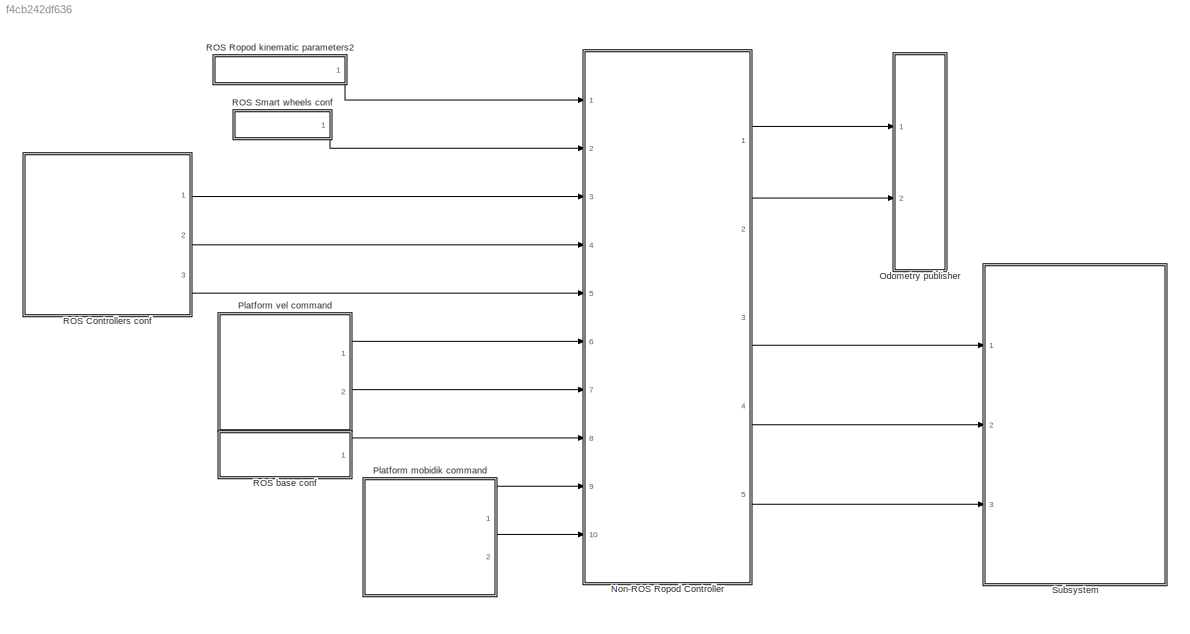
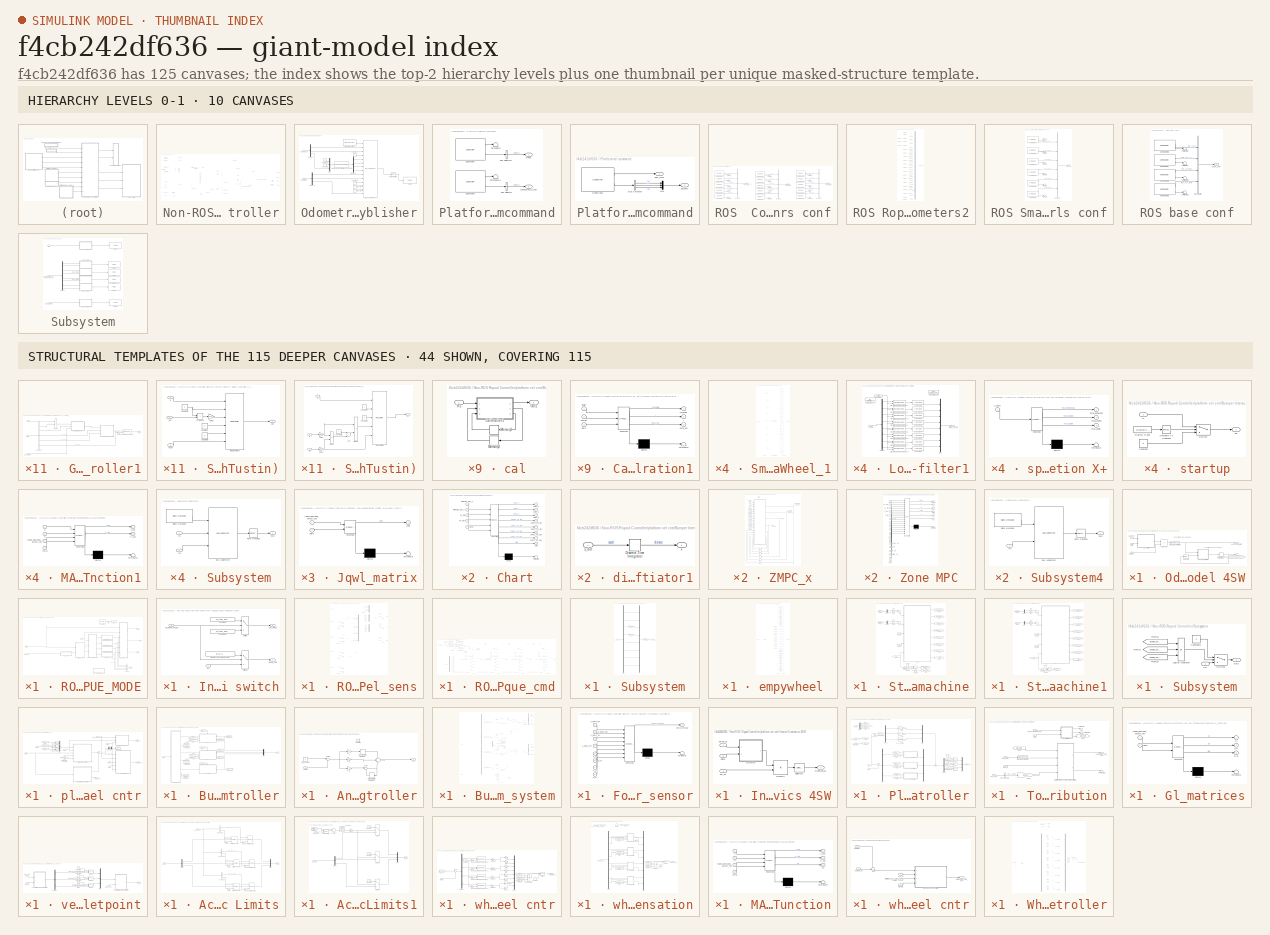
[diagram: thumbnail index - top-2 hierarchy levels (10 canvases) + 44 structural-template representatives of the remaining 115 canvases]
MODEL slx_f4cb242df636
KIND model
CONFIG AbsTol = auto
CONFIG EnableMultiTasking = off
CONFIG FixedStep = Ts
CONFIG InitFcn = init_model
CONFIG MaxStep = auto
CONFIG MinStep = auto
CONFIG PreLoadFcn = init_model
CONFIG RelTol = 1e-3
CONFIG SampleTimeConstraint = Unconstrained
CONFIG Solver = FixedStepAuto
CONFIG SolverName = FixedStepAuto
CONFIG StartTime = 0.0
CONFIG StopTime = Inf
BLOCK [SubSystem] Non-ROS Ropod Controller
  Ports = [10, 5]
  RequestExecContextInheritance = off
  Variant = off
BLOCK [Sum] Non-ROS Ropod Controller/Add
  InputSameDT = off
  Inputs = ++++
  OutDataTypeStr = Inherit: Inherit via internal rule
  Ports = [4, 1]
  SaturateOnIntegerOverflow = off
BLOCK [Reference] Non-ROS Ropod Controller/Allow Tinit seconds for initialization1  REF=simulink/Logic and Bit
Operations/Compare
To Constant
  Ports = [1, 1]
  SourceBlock = simulink/Logic and Bit\nOperations/Compare\nTo Constant
  SourceProductBaseCode = SL
  SourceProductName = Simulink
  SourceType = Compare To Constant
BLOCK [Constant] Non-ROS Ropod Controller/Constant
  Value = [1 1 1 1 1 1 1 1]
BLOCK [DigitalClock] Non-ROS Ropod Controller/Digital Clock1
  SampleTime = Ts
BLOCK [Outport] Non-ROS Ropod Controller/Force_Torque
  IconDisplay = Port number
  Port = 4
BLOCK [From] Non-ROS Ropod Controller/From1
  GotoTag = ropod_kin_param
BLOCK [From] Non-ROS Ropod Controller/From10
  GotoTag = ropod_kin_param
BLOCK [From] Non-ROS Ropod Controller/From11
  GotoTag = platform_dvarphi_cntr_param
BLOCK [From] Non-ROS Ropod Controller/From12
  GotoTag = state
  TagVisibility = global
BLOCK [From] Non-ROS Ropod Controller/From13
  GotoTag = load_applied
  TagVisibility = global
BLOCK [From] Non-ROS Ropod Controller/From2
  GotoTag = ropod_kin_param
BLOCK [From] Non-ROS Ropod Controller/From3
  GotoTag = sw_conf
BLOCK [From] Non-ROS Ropod Controller/From4
  GotoTag = sw_conf
BLOCK [From] Non-ROS Ropod Controller/From5
  GotoTag = initialize
BLOCK [From] Non-ROS Ropod Controller/From6
  GotoTag = initialize
BLOCK [From] Non-ROS Ropod Controller/From7
  GotoTag = initialize
BLOCK [From] Non-ROS Ropod Controller/From8
  GotoTag = platform_dxdy_cntr_param
BLOCK [From] Non-ROS Ropod Controller/From9
  GotoTag = platform_dtheta_cntr_param
BLOCK [Goto] Non-ROS Ropod Controller/Goto
  GotoTag = ropod_kin_param
BLOCK [Goto] Non-ROS Ropod Controller/Goto1
  GotoTag = sw_conf
BLOCK [Goto] Non-ROS Ropod Controller/Goto2
  GotoTag = Disable_Fxm
  TagVisibility = global
BLOCK [Goto] Non-ROS Ropod Controller/Goto3
  GotoTag = platform_dxdy_cntr_param
BLOCK [Goto] Non-ROS Ropod Controller/Goto4
  GotoTag = platform_dtheta_cntr_param
BLOCK [Goto] Non-ROS Ropod Controller/Goto5
  GotoTag = platform_dvarphi_cntr_param
BLOCK [Goto] Non-ROS Ropod Controller/Goto6
  GotoTag = mode
  TagVisibility = global
BLOCK [Goto] Non-ROS Ropod Controller/Goto8
  GotoTag = initialize
BLOCK [SubSystem] Non-ROS Ropod Controller/Odometry and Measurement model 4SW
  Ports = [3, 2]
  RequestExecContextInheritance = off
  Variant = off
BLOCK [DiscreteIntegrator] Non-ROS Ropod Controller/Odometry and Measurement model 4SW/Discrete-Time Integrator
  ICPrevOutput = DiscIntNeverNeededParam
  ICPrevScaledInput = DiscIntNeverNeededParam
  InitialConditionSetting = State (most efficient)
  Ports = [1, 1]
  SampleTime = Ts
BLOCK [SubSystem] Non-ROS Ropod Controller/Odometry and Measurement model 4SW/Jqwl_matrix
  ErrorFcn = Stateflow.Translate.translate
  PermitHierarchicalResolution = ExplicitOnly
  Ports = [2, 1]
  RequestExecContextInheritance = off
  SFBlockType = MATLAB Function
  TreatAsAtomicUnit = on
  Variant = off
BLOCK [Demux] Non-ROS Ropod Controller/Odometry and Measurement model 4SW/Jqwl_matrix/ Demux 
  Outputs = 1
  Ports = [1, 1]
BLOCK [S-Function] Non-ROS Ropod Controller/Odometry and Measurement model 4SW/Jqwl_matrix/ SFunction 
  EnableBusSupport = on
  FunctionName = sf_sfun
  PortCounts = [2 2]
  Ports = [2, 2]
  SFcnIsStateOwnerBlock = off
  SFunctionDeploymentMode = off
  Tag = Stateflow S-Function ROPOD_4Wheel_TdistZMPC_cntr 1
BLOCK [Terminator] Non-ROS Ropod Controller/Odometry and Measurement model 4SW/Jqwl_matrix/ Terminator 
BLOCK [Outport] Non-ROS Ropod Controller/Odometry and Measurement model 4SW/Jqwl_matrix/Jqwl
  IconDisplay = Port number
BLOCK [Inport] Non-ROS Ropod Controller/Odometry and Measurement model 4SW/Jqwl_matrix/delta
  IconDisplay = Port number
  Port = 2
BLOCK [Inport] Non-ROS Ropod Controller/Odometry and Measurement model 4SW/Jqwl_matrix/ropod_kinmodel_param_vec
  IconDisplay = Port number
BLOCK [Product] Non-ROS Ropod Controller/Odometry and Measurement model 4SW/Product3
  InputSameDT = off
  Multiplication = Matrix(*)
  OutDataTypeStr = Inherit: Inherit via internal rule
  Ports = [2, 1]
  RndMeth = Floor
  SaturateOnIntegerOverflow = off
BLOCK [Selector] Non-ROS Ropod Controller/Odometry and Measurement model 4SW/Selector3
  IndexOptions = Index vector (dialog)
  Indices = 3
  InputPortWidth = 3
  OutputSizes = 1
  Ports = [1, 1]
BLOCK [SignalSpecification] Non-ROS Ropod Controller/Odometry and Measurement model 4SW/Signal Specification
  Dimensions = [3 1]
BLOCK [Inport] Non-ROS Ropod Controller/Odometry and Measurement model 4SW/delta
  IconDisplay = Port number
  Port = 3
BLOCK [Inport] Non-ROS Ropod Controller/Odometry and Measurement model 4SW/dvarphi
  IconDisplay = Port number
  Port = 2
BLOCK [Outport] Non-ROS Ropod Controller/Odometry and Measurement model 4SW/odom_robot_pose
  IconDisplay = Port number
BLOCK [Outport] Non-ROS Ropod Controller/Odometry and Measurement model 4SW/odom_robot_twist
  IconDisplay = Port number
  Port = 2
BLOCK [Inport] Non-ROS Ropod Controller/Odometry and Measurement model 4SW/param_in
  IconDisplay = Port number
BLOCK [SubSystem] Non-ROS Ropod Controller/Odometry and Measurement model 4SW/pos_rot_matrix
  ErrorFcn = Stateflow.Translate.translate
  PermitHierarchicalResolution = ExplicitOnly
  Ports = [2, 1]
  RequestExecContextInheritance = off
  SFBlockType = MATLAB Function
  TreatAsAtomicUnit = on
  Variant = off
BLOCK [Demux] Non-ROS Ropod Controller/Odometry and Measurement model 4SW/pos_rot_matrix/ Demux 
  Outputs = 1
  Ports = [1, 1]
BLOCK [S-Function] Non-ROS Ropod Controller/Odometry and Measurement model 4SW/pos_rot_matrix/ SFunction 
  EnableBusSupport = on
  FunctionName = sf_sfun
  PortCounts = [2 2]
  Ports = [2, 2]
  SFcnIsStateOwnerBlock = off
  SFunctionDeploymentMode = off
  Tag = Stateflow S-Function ROPOD_4Wheel_TdistZMPC_cntr 2
BLOCK [Terminator] Non-ROS Ropod Controller/Odometry and Measurement model 4SW/pos_rot_matrix/ Terminator 
BLOCK [Outport] Non-ROS Ropod Controller/Odometry and Measurement model 4SW/pos_rot_matrix/dqr_glb
  IconDisplay = Port number
BLOCK [Inport] Non-ROS Ropod Controller/Odometry and Measurement model 4SW/pos_rot_matrix/dqr_loc
  IconDisplay = Port number
BLOCK [Inport] Non-ROS Ropod Controller/Odometry and Measurement model 4SW/pos_rot_matrix/theta_odom
  IconDisplay = Port number
  Port = 2
BLOCK [SubSystem] Non-ROS Ropod Controller/ROPOD 4SW TORQUE_MODE
  Ports = [3, 4]
  RequestExecContextInheritance = off
  Variant = off
BLOCK [BusCreator] Non-ROS Ropod Controller/ROPOD 4SW TORQUE_MODE/Bus Creator
  DisplayOption = bar
  InheritFromInputs = on
  Inputs = 4
  Ports = [4, 1]
BLOCK [Display] Non-ROS Ropod Controller/ROPOD 4SW TORQUE_MODE/Display1
  Decimation = 1
  Ports = [1]
BLOCK [Reference] Non-ROS Ropod Controller/ROPOD 4SW TORQUE_MODE/ECAT_Interface  REF=SOEM_EtherCAT_Lib/ECAT_Interface
  Ports = [0, 1]
  Priority = 0
  SourceBlock = SOEM_EtherCAT_Lib/ECAT_Interface
  SourceProductName = SOEM_EtherCAT_Lib
BLOCK [Gain] Non-ROS Ropod Controller/ROPOD 4SW TORQUE_MODE/Gain1
  OutDataTypeStr = double
  ParamDataTypeStr = Inherit: Inherit via internal rule
  SaturateOnIntegerOverflow = off
BLOCK [SubSystem] Non-ROS Ropod Controller/ROPOD 4SW TORQUE_MODE/Initialization switch
  Ports = [2, 2]
  RequestExecContextInheritance = off
  Variant = off
BLOCK [Constant] Non-ROS Ropod Controller/ROPOD 4SW TORQUE_MODE/Initialization switch/Constant13
  Value = SW_COM1_MODE_TORQUE
BLOCK [Constant] Non-ROS Ropod Controller/ROPOD 4SW TORQUE_MODE/Initialization switch/Constant5
  Value = SW_COM1_MODE_VELOCITY
BLOCK [Inport] Non-ROS Ropod Controller/ROPOD 4SW TORQUE_MODE/Initialization switch/In2
  IconDisplay = Port number
  Port = 2
BLOCK [Constant] Non-ROS Ropod Controller/ROPOD 4SW TORQUE_MODE/Initialization switch/Movinf around SW axis center
  Value = [2 -2 2 -2 2 -2 2 -2]
BLOCK [Switch] Non-ROS Ropod Controller/ROPOD 4SW TORQUE_MODE/Initialization switch/Switch
  Criteria = u2 ~= 0
  InputSameDT = off
  SaturateOnIntegerOverflow = off
BLOCK [Switch] Non-ROS Ropod Controller/ROPOD 4SW TORQUE_MODE/Initialization switch/Switch1
  Criteria = u2 ~= 0
  InputSameDT = off
  SaturateOnIntegerOverflow = off
BLOCK [Outport] Non-ROS Ropod Controller/ROPOD 4SW TORQUE_MODE/Initialization switch/cntr_mode
  IconDisplay = Port number
BLOCK [Inport] Non-ROS Ropod Controller/ROPOD 4SW TORQUE_MODE/Initialization switch/vel_mode_enable
  IconDisplay = Port number
BLOCK [Outport] Non-ROS Ropod Controller/ROPOD 4SW TORQUE_MODE/Initialization switch/wheel_setp
  IconDisplay = Port number
  Port = 2
BLOCK [SubSystem] Non-ROS Ropod Controller/ROPOD 4SW TORQUE_MODE/ROPOD_4Wheel_sens
  Ports = [6, 3]
  RequestExecContextInheritance = off
  Variant = off
BLOCK [Sum] Non-ROS Ropod Controller/ROPOD 4SW TORQUE_MODE/ROPOD_4Wheel_sens/Add
  InputSameDT = off
  Inputs = -+
  OutDataTypeStr = Inherit: Inherit via internal rule
  Ports = [2, 1]
  SaturateOnIntegerOverflow = off
BLOCK [BusSelector] Non-ROS Ropod Controller/ROPOD 4SW TORQUE_MODE/ROPOD_4Wheel_sens/Bus Selector1
  OutputAsBus = off
  OutputSignals = velocity_1,velocity_2,encoder_pivot,velocity_pivot
  Ports = [1, 4]
BLOCK [BusSelector] Non-ROS Ropod Controller/ROPOD 4SW TORQUE_MODE/ROPOD_4Wheel_sens/Bus Selector2
  OutputAsBus = off
  OutputSignals = velocity_1,velocity_2,encoder_pivot,velocity_pivot
  Ports = [1, 4]
BLOCK [BusSelector] Non-ROS Ropod Controller/ROPOD 4SW TORQUE_MODE/ROPOD_4Wheel_sens/Bus Selector3
  OutputAsBus = off
  OutputSignals = velocity_1,velocity_2,encoder_pivot,velocity_pivot
  Ports = [1, 4]
BLOCK [BusSelector] Non-ROS Ropod Controller/ROPOD 4SW TORQUE_MODE/ROPOD_4Wheel_sens/Bus Selector4
  OutputAsBus = off
  OutputSignals = pivot_offs_sw1,pivot_offs_sw2,pivot_offs_sw3,pivot_offs_sw4
  Ports = [1, 4]
BLOCK [BusSelector] Non-ROS Ropod Controller/ROPOD 4SW TORQUE_MODE/ROPOD_4Wheel_sens/Bus Selector5
  OutputAsBus = off
  OutputSignals = velocity_1,velocity_2,encoder_pivot,velocity_pivot
  Ports = [1, 4]
BLOCK [Constant] Non-ROS Ropod Controller/ROPOD 4SW TORQUE_MODE/ROPOD_4Wheel_sens/Constant
  Value = [0 0 0 0]
BLOCK [Constant] Non-ROS Ropod Controller/ROPOD 4SW TORQUE_MODE/ROPOD_4Wheel_sens/Constant1
  Value = [0 0 0 0]
BLOCK [Constant] Non-ROS Ropod Controller/ROPOD 4SW TORQUE_MODE/ROPOD_4Wheel_sens/Constant2
  Value = [0 0 0 0 0 0 0 0]
BLOCK [From] Non-ROS Ropod Controller/ROPOD 4SW TORQUE_MODE/ROPOD_4Wheel_sens/From
  GotoTag = delta1
BLOCK [From] Non-ROS Ropod Controller/ROPOD 4SW TORQUE_MODE/ROPOD_4Wheel_sens/From1
  GotoTag = delta2
BLOCK [From] Non-ROS Ropod Controller/ROPOD 4SW TORQUE_MODE/ROPOD_4Wheel_sens/From2
  GotoTag = ddelta1
BLOCK [From] Non-ROS Ropod Controller/ROPOD 4SW TORQUE_MODE/ROPOD_4Wheel_sens/From3
  GotoTag = ddelta2
BLOCK [From] Non-ROS Ropod Controller/ROPOD 4SW TORQUE_MODE/ROPOD_4Wheel_sens/From4
  GotoTag = delta3
BLOCK [From] Non-ROS Ropod Controller/ROPOD 4SW TORQUE_MODE/ROPOD_4Wheel_sens/From5
  GotoTag = ddelta3
BLOCK [From] Non-ROS Ropod Controller/ROPOD 4SW TORQUE_MODE/ROPOD_4Wheel_sens/From6
  GotoTag = delta4
BLOCK [From] Non-ROS Ropod Controller/ROPOD 4SW TORQUE_MODE/ROPOD_4Wheel_sens/From7
  GotoTag = ddelta4
BLOCK [Goto] Non-ROS Ropod Controller/ROPOD 4SW TORQUE_MODE/ROPOD_4Wheel_sens/Goto
  GotoTag = delta1
BLOCK [Goto] Non-ROS Ropod Controller/ROPOD 4SW TORQUE_MODE/ROPOD_4Wheel_sens/Goto1
  GotoTag = delta2
BLOCK [Goto] Non-ROS Ropod Controller/ROPOD 4SW TORQUE_MODE/ROPOD_4Wheel_sens/Goto3
  GotoTag = ddelta2
BLOCK [Goto] Non-ROS Ropod Controller/ROPOD 4SW TORQUE_MODE/ROPOD_4Wheel_sens/Goto4
  GotoTag = delta3
BLOCK [Goto] Non-ROS Ropod Controller/ROPOD 4SW TORQUE_MODE/ROPOD_4Wheel_sens/Goto5
  GotoTag = ddelta3
BLOCK [Goto] Non-ROS Ropod Controller/ROPOD 4SW TORQUE_MODE/ROPOD_4Wheel_sens/Goto6
  GotoTag = delta4
BLOCK [Goto] Non-ROS Ropod Controller/ROPOD 4SW TORQUE_MODE/ROPOD_4Wheel_sens/Goto7
  GotoTag = ddelta4
BLOCK [Goto] Non-ROS Ropod Controller/ROPOD 4SW TORQUE_MODE/ROPOD_4Wheel_sens/Goto8
  GotoTag = ddelta1
BLOCK [Mux] Non-ROS Ropod Controller/ROPOD 4SW TORQUE_MODE/ROPOD_4Wheel_sens/Mux
  DisplayOption = bar
  Inputs = 8
  Ports = [8, 1]
BLOCK [Mux] Non-ROS Ropod Controller/ROPOD 4SW TORQUE_MODE/ROPOD_4Wheel_sens/Mux1
  DisplayOption = bar
  Ports = [4, 1]
BLOCK [Mux] Non-ROS Ropod Controller/ROPOD 4SW TORQUE_MODE/ROPOD_4Wheel_sens/Mux2
  DisplayOption = bar
  Ports = [4, 1]
BLOCK [Mux] Non-ROS Ropod Controller/ROPOD 4SW TORQUE_MODE/ROPOD_4Wheel_sens/Mux3
  DisplayOption = bar
  Ports = [4, 1]
BLOCK [Inport] Non-ROS Ropod Controller/ROPOD 4SW TORQUE_MODE/ROPOD_4Wheel_sens/SW1_sens
  IconDisplay = Port number
  Port = 3
BLOCK [Inport] Non-ROS Ropod Controller/ROPOD 4SW TORQUE_MODE/ROPOD_4Wheel_sens/SW2_sens
  IconDisplay = Port number
  Port = 4
BLOCK [Inport] Non-ROS Ropod Controller/ROPOD 4SW TORQUE_MODE/ROPOD_4Wheel_sens/SW3_sens
  IconDisplay = Port number
  Port = 5
BLOCK [Inport] Non-ROS Ropod Controller/ROPOD 4SW TORQUE_MODE/ROPOD_4Wheel_sens/SW4_sens
  IconDisplay = Port number
  Port = 6
BLOCK [Switch] Non-ROS Ropod Controller/ROPOD 4SW TORQUE_MODE/ROPOD_4Wheel_sens/Switch
  Criteria = u2 ~= 0
  InputSameDT = off
  SaturateOnIntegerOverflow = off
BLOCK [Switch] Non-ROS Ropod Controller/ROPOD 4SW TORQUE_MODE/ROPOD_4Wheel_sens/Switch1
  Criteria = u2 ~= 0
  InputSameDT = off
  SaturateOnIntegerOverflow = off
BLOCK [Switch] Non-ROS Ropod Controller/ROPOD 4SW TORQUE_MODE/ROPOD_4Wheel_sens/Switch2
  Criteria = u2 ~= 0
  InputSameDT = off
  SaturateOnIntegerOverflow = off
BLOCK [Outport] Non-ROS Ropod Controller/ROPOD 4SW TORQUE_MODE/ROPOD_4Wheel_sens/ddelta
  IconDisplay = Port number
  Port = 3
BLOCK [Outport] Non-ROS Ropod Controller/ROPOD 4SW TORQUE_MODE/ROPOD_4Wheel_sens/delta
  IconDisplay = Port number
  Port = 2
BLOCK [Inport] Non-ROS Ropod Controller/ROPOD 4SW TORQUE_MODE/ROPOD_4Wheel_sens/disable
  IconDisplay = Port number
BLOCK [InportShadow] Non-ROS Ropod Controller/ROPOD 4SW TORQUE_MODE/ROPOD_4Wheel_sens/disable1
  IconDisplay = Port number
BLOCK [InportShadow] Non-ROS Ropod Controller/ROPOD 4SW TORQUE_MODE/ROPOD_4Wheel_sens/disable2
  IconDisplay = Port number
BLOCK [Outport] Non-ROS Ropod Controller/ROPOD 4SW TORQUE_MODE/ROPOD_4Wheel_sens/dvarphi
  IconDisplay = Port number
BLOCK [Gain] Non-ROS Ropod Controller/ROPOD 4SW TORQUE_MODE/ROPOD_4Wheel_sens/sign convention
  Gain = -1
  OutDataTypeStr = Inherit: Inherit via internal rule
  ParamDataTypeStr = Inherit: Inherit via internal rule
  SaturateOnIntegerOverflow = off
BLOCK [Gain] Non-ROS Ropod Controller/ROPOD 4SW TORQUE_MODE/ROPOD_4Wheel_sens/sign convention1
  Gain = -1
  OutDataTypeStr = Inherit: Inherit via internal rule
  ParamDataTypeStr = Inherit: Inherit via internal rule
  SaturateOnIntegerOverflow = off
BLOCK [Gain] Non-ROS Ropod Controller/ROPOD 4SW TORQUE_MODE/ROPOD_4Wheel_sens/sign convention2
  Gain = -1
  OutDataTypeStr = Inherit: Inherit via internal rule
  ParamDataTypeStr = Inherit: Inherit via internal rule
  SaturateOnIntegerOverflow = off
BLOCK [Gain] Non-ROS Ropod Controller/ROPOD 4SW TORQUE_MODE/ROPOD_4Wheel_sens/sign convention3
  Gain = -1
  OutDataTypeStr = Inherit: Inherit via internal rule
  ParamDataTypeStr = Inherit: Inherit via internal rule
  SaturateOnIntegerOverflow = off
BLOCK [Inport] Non-ROS Ropod Controller/ROPOD 4SW TORQUE_MODE/ROPOD_4Wheel_sens/sw_conf
  IconDisplay = Port number
  Port = 2
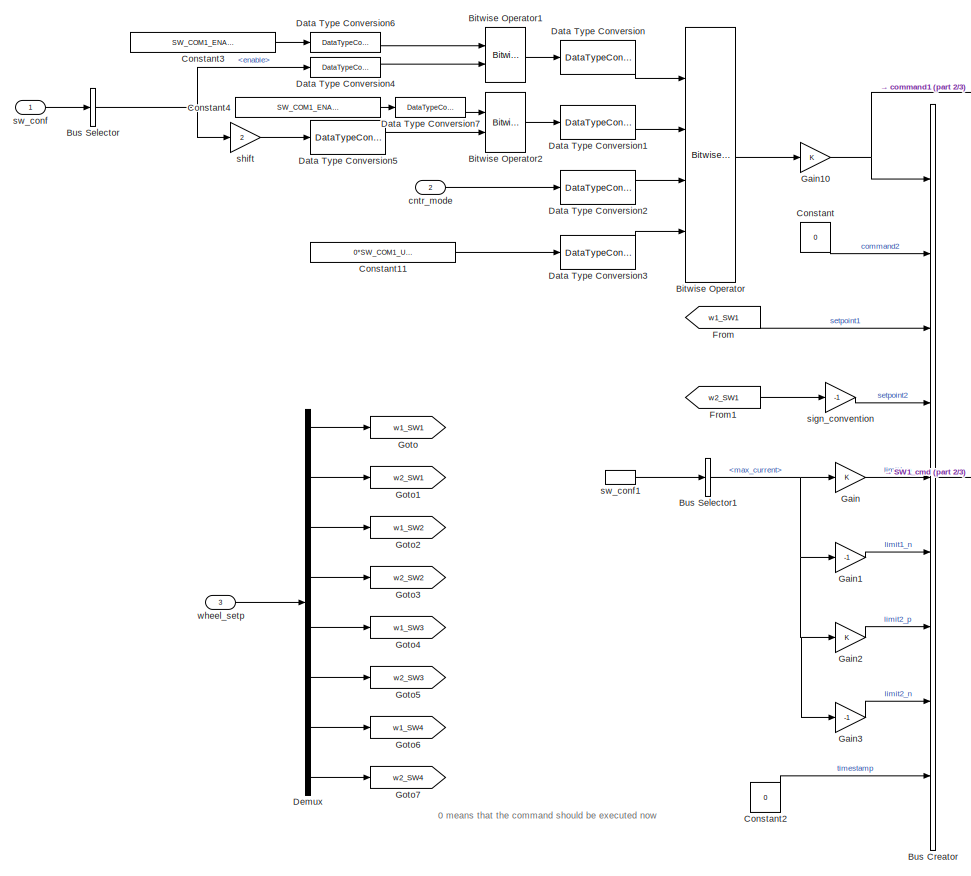
[diagram: Non-ROS Ropod Controller/ROPOD 4SW TORQUE_MODE/ROPOD_4Wheel_torque_cmd - part 1/3, left side, full height]
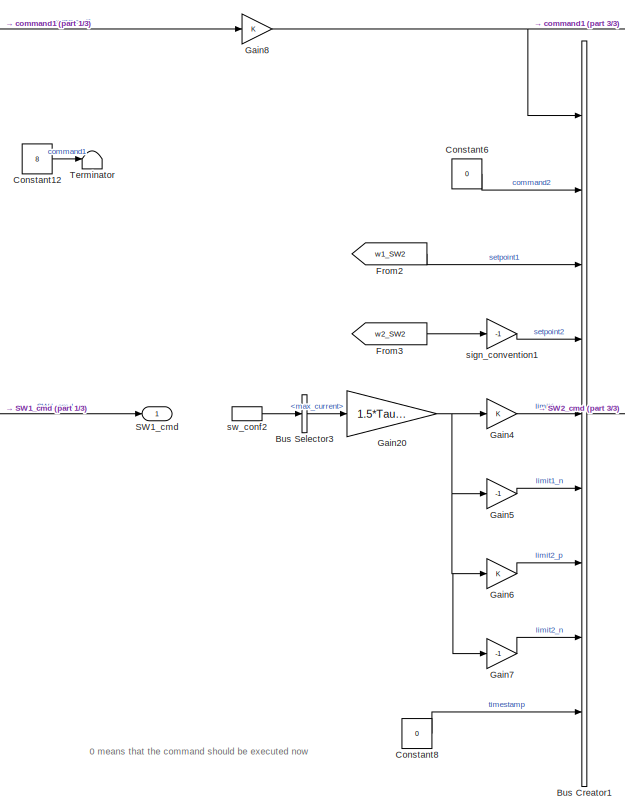
[diagram: Non-ROS Ropod Controller/ROPOD 4SW TORQUE_MODE/ROPOD_4Wheel_torque_cmd - part 2/3, center side, full height]
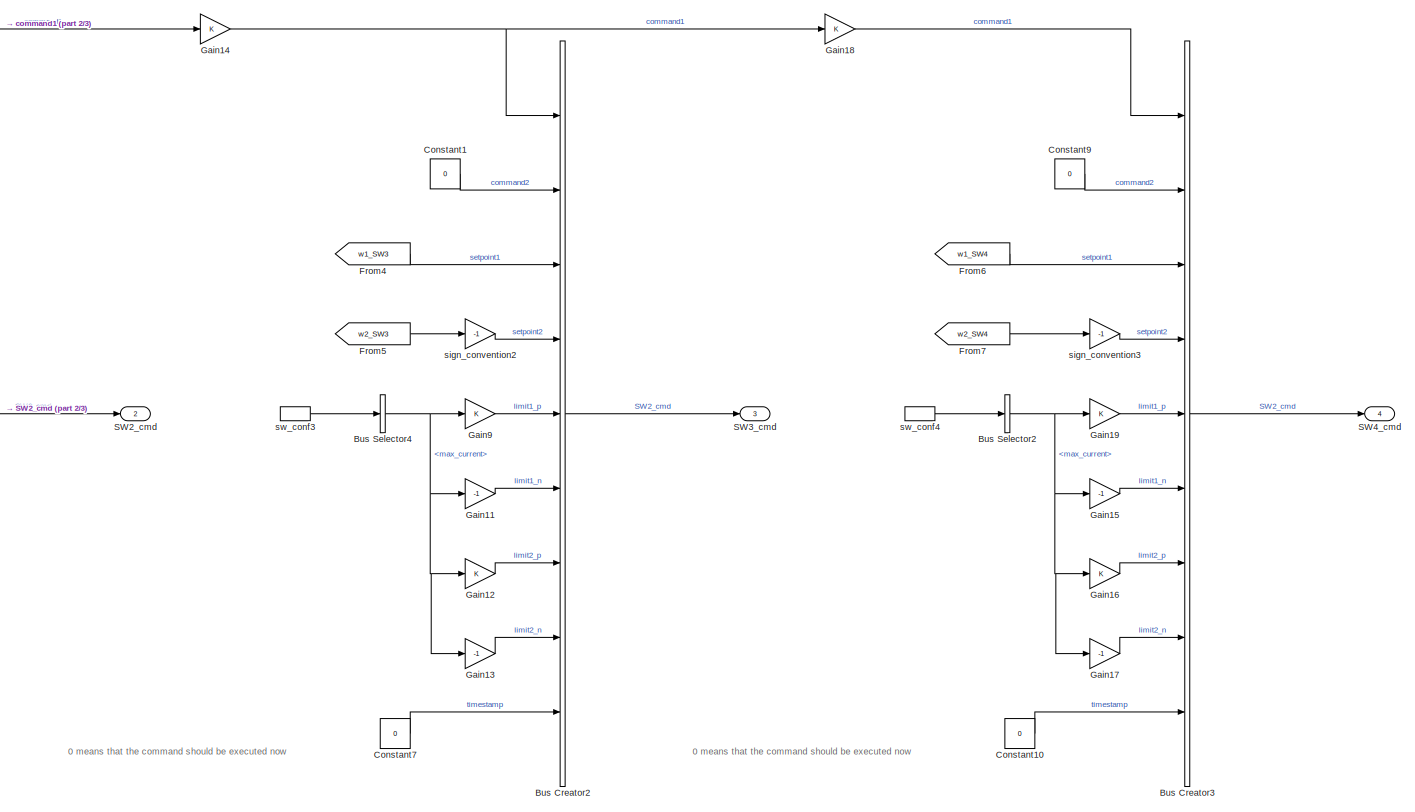
[diagram: Non-ROS Ropod Controller/ROPOD 4SW TORQUE_MODE/ROPOD_4Wheel_torque_cmd - part 3/3, right side, full height]
BLOCK [SubSystem] Non-ROS Ropod Controller/ROPOD 4SW TORQUE_MODE/ROPOD_4Wheel_torque_cmd
  Ports = [3, 4]
  RequestExecContextInheritance = off
  Variant = off
BLOCK [Reference] Non-ROS Ropod Controller/ROPOD 4SW TORQUE_MODE/ROPOD_4Wheel_torque_cmd/Bitwise Operator  REF=simulink/Logic and Bit
Operations/Bitwise
Operator
  Ports = [4, 1]
  SourceBlock = simulink/Logic and Bit\nOperations/Bitwise\nOperator
  SourceProductBaseCode = SL
  SourceProductName = Simulink
  SourceType = Bitwise Operator
BLOCK [Reference] Non-ROS Ropod Controller/ROPOD 4SW TORQUE_MODE/ROPOD_4Wheel_torque_cmd/Bitwise Operator1  REF=simulink/Logic and Bit
Operations/Bitwise
Operator
  Ports = [2, 1]
  SourceBlock = simulink/Logic and Bit\nOperations/Bitwise\nOperator
  SourceProductBaseCode = SL
  SourceProductName = Simulink
  SourceType = Bitwise Operator
BLOCK [Reference] Non-ROS Ropod Controller/ROPOD 4SW TORQUE_MODE/ROPOD_4Wheel_torque_cmd/Bitwise Operator2  REF=simulink/Logic and Bit
Operations/Bitwise
Operator
  Ports = [2, 1]
  SourceBlock = simulink/Logic and Bit\nOperations/Bitwise\nOperator
  SourceProductBaseCode = SL
  SourceProductName = Simulink
  SourceType = Bitwise Operator
BLOCK [BusCreator] Non-ROS Ropod Controller/ROPOD 4SW TORQUE_MODE/ROPOD_4Wheel_torque_cmd/Bus Creator
  DisplayOption = bar
  InheritFromInputs = on
  Inputs = 9
  Ports = [9, 1]
BLOCK [BusCreator] Non-ROS Ropod Controller/ROPOD 4SW TORQUE_MODE/ROPOD_4Wheel_torque_cmd/Bus Creator1
  DisplayOption = bar
  InheritFromInputs = on
  Inputs = 9
  Ports = [9, 1]
BLOCK [BusCreator] Non-ROS Ropod Controller/ROPOD 4SW TORQUE_MODE/ROPOD_4Wheel_torque_cmd/Bus Creator2
  DisplayOption = bar
  InheritFromInputs = on
  Inputs = 9
  Ports = [9, 1]
BLOCK [BusCreator] Non-ROS Ropod Controller/ROPOD 4SW TORQUE_MODE/ROPOD_4Wheel_torque_cmd/Bus Creator3
  DisplayOption = bar
  InheritFromInputs = on
  Inputs = 9
  Ports = [9, 1]
BLOCK [BusSelector] Non-ROS Ropod Controller/ROPOD 4SW TORQUE_MODE/ROPOD_4Wheel_torque_cmd/Bus Selector
  OutputAsBus = off
  OutputSignals = enable
  Ports = [1, 1]
BLOCK [BusSelector] Non-ROS Ropod Controller/ROPOD 4SW TORQUE_MODE/ROPOD_4Wheel_torque_cmd/Bus Selector1
  OutputAsBus = off
  OutputSignals = max_current
  Ports = [1, 1]
BLOCK [BusSelector] Non-ROS Ropod Controller/ROPOD 4SW TORQUE_MODE/ROPOD_4Wheel_torque_cmd/Bus Selector2
  OutputAsBus = off
  OutputSignals = max_current
  Ports = [1, 1]
BLOCK [BusSelector] Non-ROS Ropod Controller/ROPOD 4SW TORQUE_MODE/ROPOD_4Wheel_torque_cmd/Bus Selector3
  OutputAsBus = off
  OutputSignals = max_current
  Ports = [1, 1]
BLOCK [BusSelector] Non-ROS Ropod Controller/ROPOD 4SW TORQUE_MODE/ROPOD_4Wheel_torque_cmd/Bus Selector4
  OutputAsBus = off
  OutputSignals = max_current
  Ports = [1, 1]
BLOCK [Constant] Non-ROS Ropod Controller/ROPOD 4SW TORQUE_MODE/ROPOD_4Wheel_torque_cmd/Constant
  Value = 0
BLOCK [Constant] Non-ROS Ropod Controller/ROPOD 4SW TORQUE_MODE/ROPOD_4Wheel_torque_cmd/Constant1
  Value = 0
BLOCK [Constant] Non-ROS Ropod Controller/ROPOD 4SW TORQUE_MODE/ROPOD_4Wheel_torque_cmd/Constant10
  Value = 0
BLOCK [Constant] Non-ROS Ropod Controller/ROPOD 4SW TORQUE_MODE/ROPOD_4Wheel_torque_cmd/Constant11
  Value = 0*SW_COM1_USE_TS
BLOCK [Constant] Non-ROS Ropod Controller/ROPOD 4SW TORQUE_MODE/ROPOD_4Wheel_torque_cmd/Constant12
  Commented = on
  Value = 8
BLOCK [Constant] Non-ROS Ropod Controller/ROPOD 4SW TORQUE_MODE/ROPOD_4Wheel_torque_cmd/Constant2
  Value = 0
BLOCK [Constant] Non-ROS Ropod Controller/ROPOD 4SW TORQUE_MODE/ROPOD_4Wheel_torque_cmd/Constant3
  Value = SW_COM1_ENABLE1
BLOCK [Constant] Non-ROS Ropod Controller/ROPOD 4SW TORQUE_MODE/ROPOD_4Wheel_torque_cmd/Constant4
  Value = SW_COM1_ENABLE2
BLOCK [Constant] Non-ROS Ropod Controller/ROPOD 4SW TORQUE_MODE/ROPOD_4Wheel_torque_cmd/Constant6
  Value = 0
BLOCK [Constant] Non-ROS Ropod Controller/ROPOD 4SW TORQUE_MODE/ROPOD_4Wheel_torque_cmd/Constant7
  Value = 0
BLOCK [Constant] Non-ROS Ropod Controller/ROPOD 4SW TORQUE_MODE/ROPOD_4Wheel_torque_cmd/Constant8
  Value = 0
BLOCK [Constant] Non-ROS Ropod Controller/ROPOD 4SW TORQUE_MODE/ROPOD_4Wheel_torque_cmd/Constant9
  Value = 0
BLOCK [DataTypeConversion] Non-ROS Ropod Controller/ROPOD 4SW TORQUE_MODE/ROPOD_4Wheel_torque_cmd/Data Type Conversion
  OutDataTypeStr = uint16
  RndMeth = Floor
  SaturateOnIntegerOverflow = off
BLOCK [DataTypeConversion] Non-ROS Ropod Controller/ROPOD 4SW TORQUE_MODE/ROPOD_4Wheel_torque_cmd/Data Type Conversion1
  OutDataTypeStr = uint16
  RndMeth = Floor
  SaturateOnIntegerOverflow = off
BLOCK [DataTypeConversion] Non-ROS Ropod Controller/ROPOD 4SW TORQUE_MODE/ROPOD_4Wheel_torque_cmd/Data Type Conversion2
  OutDataTypeStr = uint16
  RndMeth = Floor
  SaturateOnIntegerOverflow = off
BLOCK [DataTypeConversion] Non-ROS Ropod Controller/ROPOD 4SW TORQUE_MODE/ROPOD_4Wheel_torque_cmd/Data Type Conversion3
  OutDataTypeStr = uint16
  RndMeth = Floor
  SaturateOnIntegerOverflow = off
BLOCK [DataTypeConversion] Non-ROS Ropod Controller/ROPOD 4SW TORQUE_MODE/ROPOD_4Wheel_torque_cmd/Data Type Conversion4
  OutDataTypeStr = uint16
  RndMeth = Floor
  SaturateOnIntegerOverflow = off
BLOCK [DataTypeConversion] Non-ROS Ropod Controller/ROPOD 4SW TORQUE_MODE/ROPOD_4Wheel_torque_cmd/Data Type Conversion5
  OutDataTypeStr = uint16
  RndMeth = Floor
  SaturateOnIntegerOverflow = off
BLOCK [DataTypeConversion] Non-ROS Ropod Controller/ROPOD 4SW TORQUE_MODE/ROPOD_4Wheel_torque_cmd/Data Type Conversion6
  OutDataTypeStr = uint16
  RndMeth = Floor
  SaturateOnIntegerOverflow = off
BLOCK [DataTypeConversion] Non-ROS Ropod Controller/ROPOD 4SW TORQUE_MODE/ROPOD_4Wheel_torque_cmd/Data Type Conversion7
  OutDataTypeStr = uint16
  RndMeth = Floor
  SaturateOnIntegerOverflow = off
BLOCK [Demux] Non-ROS Ropod Controller/ROPOD 4SW TORQUE_MODE/ROPOD_4Wheel_torque_cmd/Demux
  DisplayOption = bar
  Outputs = 8
  Ports = [1, 8]
BLOCK [From] Non-ROS Ropod Controller/ROPOD 4SW TORQUE_MODE/ROPOD_4Wheel_torque_cmd/From
  GotoTag = w1_SW1
BLOCK [From] Non-ROS Ropod Controller/ROPOD 4SW TORQUE_MODE/ROPOD_4Wheel_torque_cmd/From1
  GotoTag = w2_SW1
BLOCK [From] Non-ROS Ropod Controller/ROPOD 4SW TORQUE_MODE/ROPOD_4Wheel_torque_cmd/From2
  GotoTag = w1_SW2
BLOCK [From] Non-ROS Ropod Controller/ROPOD 4SW TORQUE_MODE/ROPOD_4Wheel_torque_cmd/From3
  GotoTag = w2_SW2
BLOCK [From] Non-ROS Ropod Controller/ROPOD 4SW TORQUE_MODE/ROPOD_4Wheel_torque_cmd/From4
  GotoTag = w1_SW3
BLOCK [From] Non-ROS Ropod Controller/ROPOD 4SW TORQUE_MODE/ROPOD_4Wheel_torque_cmd/From5
  GotoTag = w2_SW3
BLOCK [From] Non-ROS Ropod Controller/ROPOD 4SW TORQUE_MODE/ROPOD_4Wheel_torque_cmd/From6
  GotoTag = w1_SW4
BLOCK [From] Non-ROS Ropod Controller/ROPOD 4SW TORQUE_MODE/ROPOD_4Wheel_torque_cmd/From7
  GotoTag = w2_SW4
BLOCK [Gain] Non-ROS Ropod Controller/ROPOD 4SW TORQUE_MODE/ROPOD_4Wheel_torque_cmd/Gain
  OutDataTypeStr = Inherit: Inherit via internal rule
  ParamDataTypeStr = Inherit: Inherit via internal rule
  SaturateOnIntegerOverflow = off
BLOCK [Gain] Non-ROS Ropod Controller/ROPOD 4SW TORQUE_MODE/ROPOD_4Wheel_torque_cmd/Gain1
  Gain = -1
  OutDataTypeStr = Inherit: Inherit via internal rule
  ParamDataTypeStr = Inherit: Inherit via internal rule
  SaturateOnIntegerOverflow = off
BLOCK [Gain] Non-ROS Ropod Controller/ROPOD 4SW TORQUE_MODE/ROPOD_4Wheel_torque_cmd/Gain10
  OutDataTypeStr = double
  ParamDataTypeStr = Inherit: Inherit via internal rule
  SaturateOnIntegerOverflow = off
BLOCK [Gain] Non-ROS Ropod Controller/ROPOD 4SW TORQUE_MODE/ROPOD_4Wheel_torque_cmd/Gain11
  Gain = -1
  OutDataTypeStr = Inherit: Inherit via internal rule
  ParamDataTypeStr = Inherit: Inherit via internal rule
  SaturateOnIntegerOverflow = off
BLOCK [Gain] Non-ROS Ropod Controller/ROPOD 4SW TORQUE_MODE/ROPOD_4Wheel_torque_cmd/Gain12
  OutDataTypeStr = Inherit: Inherit via internal rule
  ParamDataTypeStr = Inherit: Inherit via internal rule
  SaturateOnIntegerOverflow = off
BLOCK [Gain] Non-ROS Ropod Controller/ROPOD 4SW TORQUE_MODE/ROPOD_4Wheel_torque_cmd/Gain13
  Gain = -1
  OutDataTypeStr = Inherit: Inherit via internal rule
  ParamDataTypeStr = Inherit: Inherit via internal rule
  SaturateOnIntegerOverflow = off
BLOCK [Gain] Non-ROS Ropod Controller/ROPOD 4SW TORQUE_MODE/ROPOD_4Wheel_torque_cmd/Gain14
  OutDataTypeStr = double
  ParamDataTypeStr = Inherit: Inherit via internal rule
  SaturateOnIntegerOverflow = off
BLOCK [Gain] Non-ROS Ropod Controller/ROPOD 4SW TORQUE_MODE/ROPOD_4Wheel_torque_cmd/Gain15
  Gain = -1
  OutDataTypeStr = Inherit: Inherit via internal rule
  ParamDataTypeStr = Inherit: Inherit via internal rule
  SaturateOnIntegerOverflow = off
BLOCK [Gain] Non-ROS Ropod Controller/ROPOD 4SW TORQUE_MODE/ROPOD_4Wheel_torque_cmd/Gain16
  OutDataTypeStr = Inherit: Inherit via internal rule
  ParamDataTypeStr = Inherit: Inherit via internal rule
  SaturateOnIntegerOverflow = off
BLOCK [Gain] Non-ROS Ropod Controller/ROPOD 4SW TORQUE_MODE/ROPOD_4Wheel_torque_cmd/Gain17
  Gain = -1
  OutDataTypeStr = Inherit: Inherit via internal rule
  ParamDataTypeStr = Inherit: Inherit via internal rule
  SaturateOnIntegerOverflow = off
BLOCK [Gain] Non-ROS Ropod Controller/ROPOD 4SW TORQUE_MODE/ROPOD_4Wheel_torque_cmd/Gain18
  OutDataTypeStr = double
  ParamDataTypeStr = Inherit: Inherit via internal rule
  SaturateOnIntegerOverflow = off
BLOCK [Gain] Non-ROS Ropod Controller/ROPOD 4SW TORQUE_MODE/ROPOD_4Wheel_torque_cmd/Gain19
  OutDataTypeStr = Inherit: Inherit via internal rule
  ParamDataTypeStr = Inherit: Inherit via internal rule
  SaturateOnIntegerOverflow = off
BLOCK [Gain] Non-ROS Ropod Controller/ROPOD 4SW TORQUE_MODE/ROPOD_4Wheel_torque_cmd/Gain2
  OutDataTypeStr = Inherit: Inherit via internal rule
  ParamDataTypeStr = Inherit: Inherit via internal rule
  SaturateOnIntegerOverflow = off
BLOCK [Gain] Non-ROS Ropod Controller/ROPOD 4SW TORQUE_MODE/ROPOD_4Wheel_torque_cmd/Gain20
  Gain = 1.5*Taucompfactor
  OutDataTypeStr = Inherit: Inherit via internal rule
  ParamDataTypeStr = Inherit: Inherit via internal rule
  SaturateOnIntegerOverflow = off
BLOCK [Gain] Non-ROS Ropod Controller/ROPOD 4SW TORQUE_MODE/ROPOD_4Wheel_torque_cmd/Gain3
  Gain = -1
  OutDataTypeStr = Inherit: Inherit via internal rule
  ParamDataTypeStr = Inherit: Inherit via internal rule
  SaturateOnIntegerOverflow = off
BLOCK [Gain] Non-ROS Ropod Controller/ROPOD 4SW TORQUE_MODE/ROPOD_4Wheel_torque_cmd/Gain4
  OutDataTypeStr = Inherit: Inherit via internal rule
  ParamDataTypeStr = Inherit: Inherit via internal rule
  SaturateOnIntegerOverflow = off
BLOCK [Gain] Non-ROS Ropod Controller/ROPOD 4SW TORQUE_MODE/ROPOD_4Wheel_torque_cmd/Gain5
  Gain = -1
  OutDataTypeStr = Inherit: Inherit via internal rule
  ParamDataTypeStr = Inherit: Inherit via internal rule
  SaturateOnIntegerOverflow = off
BLOCK [Gain] Non-ROS Ropod Controller/ROPOD 4SW TORQUE_MODE/ROPOD_4Wheel_torque_cmd/Gain6
  OutDataTypeStr = Inherit: Inherit via internal rule
  ParamDataTypeStr = Inherit: Inherit via internal rule
  SaturateOnIntegerOverflow = off
BLOCK [Gain] Non-ROS Ropod Controller/ROPOD 4SW TORQUE_MODE/ROPOD_4Wheel_torque_cmd/Gain7
  Gain = -1
  OutDataTypeStr = Inherit: Inherit via internal rule
  ParamDataTypeStr = Inherit: Inherit via internal rule
  SaturateOnIntegerOverflow = off
BLOCK [Gain] Non-ROS Ropod Controller/ROPOD 4SW TORQUE_MODE/ROPOD_4Wheel_torque_cmd/Gain8
  OutDataTypeStr = double
  ParamDataTypeStr = Inherit: Inherit via internal rule
  SaturateOnIntegerOverflow = off
BLOCK [Gain] Non-ROS Ropod Controller/ROPOD 4SW TORQUE_MODE/ROPOD_4Wheel_torque_cmd/Gain9
  OutDataTypeStr = Inherit: Inherit via internal rule
  ParamDataTypeStr = Inherit: Inherit via internal rule
  SaturateOnIntegerOverflow = off
BLOCK [Goto] Non-ROS Ropod Controller/ROPOD 4SW TORQUE_MODE/ROPOD_4Wheel_torque_cmd/Goto
  GotoTag = w1_SW1
BLOCK [Goto] Non-ROS Ropod Controller/ROPOD 4SW TORQUE_MODE/ROPOD_4Wheel_torque_cmd/Goto1
  GotoTag = w2_SW1
BLOCK [Goto] Non-ROS Ropod Controller/ROPOD 4SW TORQUE_MODE/ROPOD_4Wheel_torque_cmd/Goto2
  GotoTag = w1_SW2
BLOCK [Goto] Non-ROS Ropod Controller/ROPOD 4SW TORQUE_MODE/ROPOD_4Wheel_torque_cmd/Goto3
  GotoTag = w2_SW2
BLOCK [Goto] Non-ROS Ropod Controller/ROPOD 4SW TORQUE_MODE/ROPOD_4Wheel_torque_cmd/Goto4
  GotoTag = w1_SW3
BLOCK [Goto] Non-ROS Ropod Controller/ROPOD 4SW TORQUE_MODE/ROPOD_4Wheel_torque_cmd/Goto5
  GotoTag = w2_SW3
BLOCK [Goto] Non-ROS Ropod Controller/ROPOD 4SW TORQUE_MODE/ROPOD_4Wheel_torque_cmd/Goto6
  GotoTag = w1_SW4
BLOCK [Goto] Non-ROS Ropod Controller/ROPOD 4SW TORQUE_MODE/ROPOD_4Wheel_torque_cmd/Goto7
  GotoTag = w2_SW4
BLOCK [Outport] Non-ROS Ropod Controller/ROPOD 4SW TORQUE_MODE/ROPOD_4Wheel_torque_cmd/SW1_cmd
  IconDisplay = Port number
BLOCK [Outport] Non-ROS Ropod Controller/ROPOD 4SW TORQUE_MODE/ROPOD_4Wheel_torque_cmd/SW2_cmd
  IconDisplay = Port number
  Port = 2
BLOCK [Outport] Non-ROS Ropod Controller/ROPOD 4SW TORQUE_MODE/ROPOD_4Wheel_torque_cmd/SW3_cmd
  IconDisplay = Port number
  Port = 3
BLOCK [Outport] Non-ROS Ropod Controller/ROPOD 4SW TORQUE_MODE/ROPOD_4Wheel_torque_cmd/SW4_cmd
  IconDisplay = Port number
  Port = 4
BLOCK [Terminator] Non-ROS Ropod Controller/ROPOD 4SW TORQUE_MODE/ROPOD_4Wheel_torque_cmd/Terminator
  Commented = on
BLOCK [Inport] Non-ROS Ropod Controller/ROPOD 4SW TORQUE_MODE/ROPOD_4Wheel_torque_cmd/cntr_mode
  IconDisplay = Port number
  Port = 2
BLOCK [Gain] Non-ROS Ropod Controller/ROPOD 4SW TORQUE_MODE/ROPOD_4Wheel_torque_cmd/shift
  Gain = 2
  OutDataTypeStr = Inherit: Inherit via internal rule
  ParamDataTypeStr = Inherit: Inherit via internal rule
  SaturateOnIntegerOverflow = off
BLOCK [Gain] Non-ROS Ropod Controller/ROPOD 4SW TORQUE_MODE/ROPOD_4Wheel_torque_cmd/sign_convention
  Gain = -1
  OutDataTypeStr = Inherit: Inherit via internal rule
  ParamDataTypeStr = Inherit: Inherit via internal rule
  SaturateOnIntegerOverflow = off
BLOCK [Gain] Non-ROS Ropod Controller/ROPOD 4SW TORQUE_MODE/ROPOD_4Wheel_torque_cmd/sign_convention1
  Gain = -1
  OutDataTypeStr = Inherit: Inherit via internal rule
  ParamDataTypeStr = Inherit: Inherit via internal rule
  SaturateOnIntegerOverflow = off
BLOCK [Gain] Non-ROS Ropod Controller/ROPOD 4SW TORQUE_MODE/ROPOD_4Wheel_torque_cmd/sign_convention2
  Gain = -1
  OutDataTypeStr = Inherit: Inherit via internal rule
  ParamDataTypeStr = Inherit: Inherit via internal rule
  SaturateOnIntegerOverflow = off
BLOCK [Gain] Non-ROS Ropod Controller/ROPOD 4SW TORQUE_MODE/ROPOD_4Wheel_torque_cmd/sign_convention3
  Gain = -1
  OutDataTypeStr = Inherit: Inherit via internal rule
  ParamDataTypeStr = Inherit: Inherit via internal rule
  SaturateOnIntegerOverflow = off
BLOCK [Inport] Non-ROS Ropod Controller/ROPOD 4SW TORQUE_MODE/ROPOD_4Wheel_torque_cmd/sw_conf
  IconDisplay = Port number
BLOCK [InportShadow] Non-ROS Ropod Controller/ROPOD 4SW TORQUE_MODE/ROPOD_4Wheel_torque_cmd/sw_conf1
  IconDisplay = Port number
BLOCK [InportShadow] Non-ROS Ropod Controller/ROPOD 4SW TORQUE_MODE/ROPOD_4Wheel_torque_cmd/sw_conf2
  IconDisplay = Port number
BLOCK [InportShadow] Non-ROS Ropod Controller/ROPOD 4SW TORQUE_MODE/ROPOD_4Wheel_torque_cmd/sw_conf3
  IconDisplay = Port number
BLOCK [InportShadow] Non-ROS Ropod Controller/ROPOD 4SW TORQUE_MODE/ROPOD_4Wheel_torque_cmd/sw_conf4
  IconDisplay = Port number
BLOCK [Inport] Non-ROS Ropod Controller/ROPOD 4SW TORQUE_MODE/ROPOD_4Wheel_torque_cmd/wheel_setp
  IconDisplay = Port number
  Port = 3
BLOCK [Outport] Non-ROS Ropod Controller/ROPOD 4SW TORQUE_MODE/SW_sens
  IconDisplay = Port number
  Port = 4
BLOCK [SubSystem] Non-ROS Ropod Controller/ROPOD 4SW TORQUE_MODE/Smart_Wheel_1
  Ports = [1, 1]
  RequestExecContextInheritance = off
  Variant = off
BLOCK [BusCreator] Non-ROS Ropod Controller/ROPOD 4SW TORQUE_MODE/Smart_Wheel_1/Bus Creator1
  DisplayOption = bar
  InheritFromInputs = on
  Inputs = 40
  Ports = [40, 1]
BLOCK [BusSelector] Non-ROS Ropod Controller/ROPOD 4SW TORQUE_MODE/Smart_Wheel_1/Bus Selector
  OutputAsBus = off
  OutputSignals = command1,command2,setpoint1,setpoint2,limit1_p,limit1_n,limit2_p,limit2_n,timestamp
  Ports = [1, 9]
BLOCK [Inport] Non-ROS Ropod Controller/ROPOD 4SW TORQUE_MODE/Smart_Wheel_1/SW1_cmd
  IconDisplay = Port number
BLOCK [Outport] Non-ROS Ropod Controller/ROPOD 4SW TORQUE_MODE/Smart_Wheel_1/SW1_sens
  IconDisplay = Port number
BLOCK [Reference] Non-ROS Ropod Controller/ROPOD 4SW TORQUE_MODE/Smart_Wheel_1/ec_ROPOD_SmartWheel  REF=SOEM_EtherCAT_Lib/ec_ROPOD_SmartWheel
  Ports = [9, 40]
  SourceBlock = SOEM_EtherCAT_Lib/ec_ROPOD_SmartWheel
  SourceProductName = SOEM_EtherCAT_Lib
BLOCK [SubSystem] Non-ROS Ropod Controller/ROPOD 4SW TORQUE_MODE/Smart_Wheel_2
  Ports = [1, 1]
  RequestExecContextInheritance = off
  Variant = off
BLOCK [BusCreator] Non-ROS Ropod Controller/ROPOD 4SW TORQUE_MODE/Smart_Wheel_2/Bus Creator1
  DisplayOption = bar
  InheritFromInputs = on
  Inputs = 40
  Ports = [40, 1]
BLOCK [BusSelector] Non-ROS Ropod Controller/ROPOD 4SW TORQUE_MODE/Smart_Wheel_2/Bus Selector
  OutputAsBus = off
  OutputSignals = command1,command2,setpoint1,setpoint2,limit1_p,limit1_n,limit2_p,limit2_n,timestamp
  Ports = [1, 9]
BLOCK [Inport] Non-ROS Ropod Controller/ROPOD 4SW TORQUE_MODE/Smart_Wheel_2/SW2_cmd
  IconDisplay = Port number
BLOCK [Outport] Non-ROS Ropod Controller/ROPOD 4SW TORQUE_MODE/Smart_Wheel_2/SW2_sens
  IconDisplay = Port number
BLOCK [Reference] Non-ROS Ropod Controller/ROPOD 4SW TORQUE_MODE/Smart_Wheel_2/ec_ROPOD_SmartWheel  REF=SOEM_EtherCAT_Lib/ec_ROPOD_SmartWheel
  Ports = [9, 40]
  SourceBlock = SOEM_EtherCAT_Lib/ec_ROPOD_SmartWheel
  SourceProductName = SOEM_EtherCAT_Lib
BLOCK [SubSystem] Non-ROS Ropod Controller/ROPOD 4SW TORQUE_MODE/Smart_Wheel_3
  Ports = [1, 1]
  RequestExecContextInheritance = off
  Variant = off
BLOCK [BusCreator] Non-ROS Ropod Controller/ROPOD 4SW TORQUE_MODE/Smart_Wheel_3/Bus Creator1
  DisplayOption = bar
  InheritFromInputs = on
  Inputs = 40
  Ports = [40, 1]
BLOCK [BusSelector] Non-ROS Ropod Controller/ROPOD 4SW TORQUE_MODE/Smart_Wheel_3/Bus Selector
  OutputAsBus = off
  OutputSignals = command1,command2,setpoint1,setpoint2,limit1_p,limit1_n,limit2_p,limit2_n,timestamp
  Ports = [1, 9]
BLOCK [Inport] Non-ROS Ropod Controller/ROPOD 4SW TORQUE_MODE/Smart_Wheel_3/SW3_cmd
  IconDisplay = Port number
BLOCK [Outport] Non-ROS Ropod Controller/ROPOD 4SW TORQUE_MODE/Smart_Wheel_3/SW3_sens
  IconDisplay = Port number
BLOCK [Reference] Non-ROS Ropod Controller/ROPOD 4SW TORQUE_MODE/Smart_Wheel_3/ec_ROPOD_SmartWheel  REF=SOEM_EtherCAT_Lib/ec_ROPOD_SmartWheel
  Ports = [9, 40]
  SourceBlock = SOEM_EtherCAT_Lib/ec_ROPOD_SmartWheel
  SourceProductName = SOEM_EtherCAT_Lib
BLOCK [SubSystem] Non-ROS Ropod Controller/ROPOD 4SW TORQUE_MODE/Smart_Wheel_4
  Ports = [1, 1]
  RequestExecContextInheritance = off
  Variant = off
BLOCK [BusCreator] Non-ROS Ropod Controller/ROPOD 4SW TORQUE_MODE/Smart_Wheel_4/Bus Creator1
  DisplayOption = bar
  InheritFromInputs = on
  Inputs = 40
  Ports = [40, 1]
BLOCK [BusSelector] Non-ROS Ropod Controller/ROPOD 4SW TORQUE_MODE/Smart_Wheel_4/Bus Selector
  OutputAsBus = off
  OutputSignals = command1,command2,setpoint1,setpoint2,limit1_p,limit1_n,limit2_p,limit2_n,timestamp
  Ports = [1, 9]
BLOCK [Inport] Non-ROS Ropod Controller/ROPOD 4SW TORQUE_MODE/Smart_Wheel_4/SW4_cmd
  IconDisplay = Port number
BLOCK [Outport] Non-ROS Ropod Controller/ROPOD 4SW TORQUE_MODE/Smart_Wheel_4/SW4_sens
  IconDisplay = Port number
BLOCK [Reference] Non-ROS Ropod Controller/ROPOD 4SW TORQUE_MODE/Smart_Wheel_4/ec_ROPOD_SmartWheel  REF=SOEM_EtherCAT_Lib/ec_ROPOD_SmartWheel
  Ports = [9, 40]
  SourceBlock = SOEM_EtherCAT_Lib/ec_ROPOD_SmartWheel
  SourceProductName = SOEM_EtherCAT_Lib
BLOCK [SubSystem] Non-ROS Ropod Controller/ROPOD 4SW TORQUE_MODE/Subsystem
  Ports = [1, 1]
  RequestExecContextInheritance = off
  Variant = off
BLOCK [Demux] Non-ROS Ropod Controller/ROPOD 4SW TORQUE_MODE/Subsystem/Demux
  DisplayOption = bar
  Outputs = 8
  Ports = [1, 8]
BLOCK [Gain] Non-ROS Ropod Controller/ROPOD 4SW TORQUE_MODE/Subsystem/Gain1
  Gain = Taucompfactor
  OutDataTypeStr = Inherit: Inherit via internal rule
  ParamDataTypeStr = Inherit: Inherit via internal rule
  SaturateOnIntegerOverflow = off
BLOCK [Gain] Non-ROS Ropod Controller/ROPOD 4SW TORQUE_MODE/Subsystem/Gain2
  Gain = Taucompfactor
  OutDataTypeStr = Inherit: Inherit via internal rule
  ParamDataTypeStr = Inherit: Inherit via internal rule
  SaturateOnIntegerOverflow = off
BLOCK [Gain] Non-ROS Ropod Controller/ROPOD 4SW TORQUE_MODE/Subsystem/Gain3
  Gain = sw_tau_2_curr
  OutDataTypeStr = Inherit: Inherit via internal rule
  ParamDataTypeStr = Inherit: Inherit via internal rule
  SaturateOnIntegerOverflow = off
BLOCK [Mux] Non-ROS Ropod Controller/ROPOD 4SW TORQUE_MODE/Subsystem/Mux
  DisplayOption = bar
  Inputs = 8
  Ports = [8, 1]
BLOCK [Outport] Non-ROS Ropod Controller/ROPOD 4SW TORQUE_MODE/Subsystem/varphi_curr_setp
  IconDisplay = Port number
BLOCK [Inport] Non-ROS Ropod Controller/ROPOD 4SW TORQUE_MODE/Subsystem/varphi_tau_setp
  IconDisplay = Port number
BLOCK [Outport] Non-ROS Ropod Controller/ROPOD 4SW TORQUE_MODE/ddelta
  IconDisplay = Port number
  Port = 3
BLOCK [Outport] Non-ROS Ropod Controller/ROPOD 4SW TORQUE_MODE/delta
  IconDisplay = Port number
  Port = 2
BLOCK [Outport] Non-ROS Ropod Controller/ROPOD 4SW TORQUE_MODE/dvarphi
  IconDisplay = Port number
BLOCK [SubSystem] Non-ROS Ropod Controller/ROPOD 4SW TORQUE_MODE/empywheel
  Commented = on
  Ports = [1, 1]
  RequestExecContextInheritance = off
  Variant = off
BLOCK [BusCreator] Non-ROS Ropod Controller/ROPOD 4SW TORQUE_MODE/empywheel/Bus Creator1
  DisplayOption = bar
  InheritFromInputs = on
  Inputs = 40
  Ports = [40, 1]
BLOCK [Constant] Non-ROS Ropod Controller/ROPOD 4SW TORQUE_MODE/empywheel/Constant
  Value = 0
BLOCK [Constant] Non-ROS Ropod Controller/ROPOD 4SW TORQUE_MODE/empywheel/Constant1
  Value = 0
BLOCK [Constant] Non-ROS Ropod Controller/ROPOD 4SW TORQUE_MODE/empywheel/Constant10
  Value = 0
BLOCK [Constant] Non-ROS Ropod Controller/ROPOD 4SW TORQUE_MODE/empywheel/Constant11
  Value = 0
BLOCK [Constant] Non-ROS Ropod Controller/ROPOD 4SW TORQUE_MODE/empywheel/Constant12
  Value = 0
BLOCK [Constant] Non-ROS Ropod Controller/ROPOD 4SW TORQUE_MODE/empywheel/Constant13
  Value = 0
BLOCK [Constant] Non-ROS Ropod Controller/ROPOD 4SW TORQUE_MODE/empywheel/Constant14
  Value = 0
BLOCK [Constant] Non-ROS Ropod Controller/ROPOD 4SW TORQUE_MODE/empywheel/Constant15
  Value = 0
BLOCK [Constant] Non-ROS Ropod Controller/ROPOD 4SW TORQUE_MODE/empywheel/Constant16
  Value = 0
BLOCK [Constant] Non-ROS Ropod Controller/ROPOD 4SW TORQUE_MODE/empywheel/Constant17
  Value = 0
BLOCK [Constant] Non-ROS Ropod Controller/ROPOD 4SW TORQUE_MODE/empywheel/Constant18
  Value = 0
BLOCK [Constant] Non-ROS Ropod Controller/ROPOD 4SW TORQUE_MODE/empywheel/Constant19
  Value = 0
BLOCK [Constant] Non-ROS Ropod Controller/ROPOD 4SW TORQUE_MODE/empywheel/Constant2
  Value = 0
BLOCK [Constant] Non-ROS Ropod Controller/ROPOD 4SW TORQUE_MODE/empywheel/Constant20
  Value = 0
BLOCK [Constant] Non-ROS Ropod Controller/ROPOD 4SW TORQUE_MODE/empywheel/Constant21
  Value = 0
BLOCK [Constant] Non-ROS Ropod Controller/ROPOD 4SW TORQUE_MODE/empywheel/Constant22
  Value = 0
BLOCK [Constant] Non-ROS Ropod Controller/ROPOD 4SW TORQUE_MODE/empywheel/Constant23
  Value = 0
BLOCK [Constant] Non-ROS Ropod Controller/ROPOD 4SW TORQUE_MODE/empywheel/Constant24
  Value = 0
BLOCK [Constant] Non-ROS Ropod Controller/ROPOD 4SW TORQUE_MODE/empywheel/Constant25
  Value = 0
BLOCK [Constant] Non-ROS Ropod Controller/ROPOD 4SW TORQUE_MODE/empywheel/Constant26
  Value = 0
BLOCK [Constant] Non-ROS Ropod Controller/ROPOD 4SW TORQUE_MODE/empywheel/Constant27
  Value = 0
BLOCK [Constant] Non-ROS Ropod Controller/ROPOD 4SW TORQUE_MODE/empywheel/Constant28
  Value = 0
BLOCK [Constant] Non-ROS Ropod Controller/ROPOD 4SW TORQUE_MODE/empywheel/Constant29
  Value = 0
BLOCK [Constant] Non-ROS Ropod Controller/ROPOD 4SW TORQUE_MODE/empywheel/Constant3
  Value = 0
BLOCK [Constant] Non-ROS Ropod Controller/ROPOD 4SW TORQUE_MODE/empywheel/Constant30
  Value = 0
BLOCK [Constant] Non-ROS Ropod Controller/ROPOD 4SW TORQUE_MODE/empywheel/Constant31
  Value = 0
BLOCK [Constant] Non-ROS Ropod Controller/ROPOD 4SW TORQUE_MODE/empywheel/Constant32
  Value = 0
BLOCK [Constant] Non-ROS Ropod Controller/ROPOD 4SW TORQUE_MODE/empywheel/Constant33
  Value = 0
BLOCK [Constant] Non-ROS Ropod Controller/ROPOD 4SW TORQUE_MODE/empywheel/Constant4
  Value = 0
BLOCK [Constant] Non-ROS Ropod Controller/ROPOD 4SW TORQUE_MODE/empywheel/Constant40
  Value = 0
BLOCK [Constant] Non-ROS Ropod Controller/ROPOD 4SW TORQUE_MODE/empywheel/Constant41
  Value = 0
BLOCK [Constant] Non-ROS Ropod Controller/ROPOD 4SW TORQUE_MODE/empywheel/Constant42
  Value = 0
BLOCK [Constant] Non-ROS Ropod Controller/ROPOD 4SW TORQUE_MODE/empywheel/Constant43
  Value = 0
BLOCK [Constant] Non-ROS Ropod Controller/ROPOD 4SW TORQUE_MODE/empywheel/Constant44
  Value = 0
BLOCK [Constant] Non-ROS Ropod Controller/ROPOD 4SW TORQUE_MODE/empywheel/Constant45
  Value = 0
BLOCK [Constant] Non-ROS Ropod Controller/ROPOD 4SW TORQUE_MODE/empywheel/Constant5
  Value = 0
BLOCK [Constant] Non-ROS Ropod Controller/ROPOD 4SW TORQUE_MODE/empywheel/Constant6
  Value = 0
BLOCK [Constant] Non-ROS Ropod Controller/ROPOD 4SW TORQUE_MODE/empywheel/Constant7
  Value = 0
BLOCK [Constant] Non-ROS Ropod Controller/ROPOD 4SW TORQUE_MODE/empywheel/Constant8
  Value = 0
BLOCK [Constant] Non-ROS Ropod Controller/ROPOD 4SW TORQUE_MODE/empywheel/Constant9
  Value = 0
BLOCK [Inport] Non-ROS Ropod Controller/ROPOD 4SW TORQUE_MODE/empywheel/SW4_cmd
  IconDisplay = Port number
BLOCK [Outport] Non-ROS Ropod Controller/ROPOD 4SW TORQUE_MODE/empywheel/SW4_sens
  IconDisplay = Port number
BLOCK [Terminator] Non-ROS Ropod Controller/ROPOD 4SW TORQUE_MODE/empywheel/Terminator
BLOCK [Inport] Non-ROS Ropod Controller/ROPOD 4SW TORQUE_MODE/intialization
  IconDisplay = Port number
  Port = 2
BLOCK [Inport] Non-ROS Ropod Controller/ROPOD 4SW TORQUE_MODE/sw_conf
  IconDisplay = Port number
BLOCK [Inport] Non-ROS Ropod Controller/ROPOD 4SW TORQUE_MODE/varphi_tau_setp
  IconDisplay = Port number
  Port = 3
BLOCK [Inport] Non-ROS Ropod Controller/ROS Ropod kinematic parameters
  IconDisplay = Port number
BLOCK [Inport] Non-ROS Ropod Controller/ROS Smart wheels conf
  IconDisplay = Port number
  Port = 2
BLOCK [SubSystem] Non-ROS Ropod Controller/State machine
  Ports = []
  RequestExecContextInheritance = off
  Variant = off
BLOCK [Sum] Non-ROS Ropod Controller/State machine/Add1
  InputSameDT = off
  OutDataTypeStr = Inherit: Inherit via internal rule
  Ports = [2, 1]
  SaturateOnIntegerOverflow = off
BLOCK [Sum] Non-ROS Ropod Controller/State machine/Add2
  InputSameDT = off
  OutDataTypeStr = Inherit: Inherit via internal rule
  Ports = [2, 1]
  SaturateOnIntegerOverflow = off
BLOCK [SubSystem] Non-ROS Ropod Controller/State machine/Chart
  ErrorFcn = Stateflow.Translate.translate
  PermitHierarchicalResolution = ExplicitOnly
  Ports = [5, 8]
  RequestExecContextInheritance = off
  SFBlockType = Chart
  TreatAsAtomicUnit = on
  Variant = off
BLOCK [Demux] Non-ROS Ropod Controller/State machine/Chart/ Demux 
  Outputs = 1
  Ports = [1, 1]
BLOCK [S-Function] Non-ROS Ropod Controller/State machine/Chart/ SFunction 
  EnableBusSupport = on
  FunctionName = sf_sfun
  PortCounts = [5 9]
  Ports = [5, 9]
  SFcnIsStateOwnerBlock = off
  SFunctionDeploymentMode = off
  Tag = Stateflow S-Function ROPOD_4Wheel_TdistZMPC_cntr 3
BLOCK [Terminator] Non-ROS Ropod Controller/State machine/Chart/ Terminator 
BLOCK [Inport] Non-ROS Ropod Controller/State machine/Chart/Fd_max
  IconDisplay = Port number
  Port = 4
BLOCK [Inport] Non-ROS Ropod Controller/State machine/Chart/Fd_min
  IconDisplay = Port number
  Port = 3
BLOCK [Outport] Non-ROS Ropod Controller/State machine/Chart/ZMPC_o
  IconDisplay = Port number
  Port = 3
BLOCK [Outport] Non-ROS Ropod Controller/State machine/Chart/ZMPC_x
  IconDisplay = Port number
BLOCK [Outport] Non-ROS Ropod Controller/State machine/Chart/ZMPC_y
  IconDisplay = Port number
  Port = 2
BLOCK [Outport] Non-ROS Ropod Controller/State machine/Chart/ZMPCx_Fd_max
  IconDisplay = Port number
  Port = 6
BLOCK [Outport] Non-ROS Ropod Controller/State machine/Chart/ZMPCx_Fd_min
  IconDisplay = Port number
  Port = 4
BLOCK [Outport] Non-ROS Ropod Controller/State machine/Chart/ZMPCy_Fd_max
  IconDisplay = Port number
  Port = 7
BLOCK [Outport] Non-ROS Ropod Controller/State machine/Chart/ZMPCy_Fd_min
  IconDisplay = Port number
  Port = 5
BLOCK [Inport] Non-ROS Ropod Controller/State machine/Chart/interaction_force_x
  IconDisplay = Port number
BLOCK [Inport] Non-ROS Ropod Controller/State machine/Chart/interaction_force_y
  IconDisplay = Port number
  Port = 2
BLOCK [Inport] Non-ROS Ropod Controller/State machine/Chart/mode
  IconDisplay = Port number
  Port = 5
BLOCK [Outport] Non-ROS Ropod Controller/State machine/Chart/state
  IconDisplay = Port number
  Port = 8
BLOCK [Reference] Non-ROS Ropod Controller/State machine/Compare To Constant  REF=simulink/Logic and Bit
Operations/Compare
To Constant
  Ports = [1, 1]
  SourceBlock = simulink/Logic and Bit\nOperations/Compare\nTo Constant
  SourceProductBaseCode = SL
  SourceProductName = Simulink
  SourceType = Compare To Constant
BLOCK [Reference] Non-ROS Ropod Controller/State machine/Compare To Constant1  REF=simulink/Logic and Bit
Operations/Compare
To Constant
  Ports = [1, 1]
  SourceBlock = simulink/Logic and Bit\nOperations/Compare\nTo Constant
  SourceProductBaseCode = SL
  SourceProductName = Simulink
  SourceType = Compare To Constant
BLOCK [Constant] Non-ROS Ropod Controller/State machine/Constant
BLOCK [Constant] Non-ROS Ropod Controller/State machine/Constant1
  Value = 0
BLOCK [Demux] Non-ROS Ropod Controller/State machine/Demux1
  DisplayOption = bar
  Outputs = 2
  Ports = [1, 2]
BLOCK [Demux] Non-ROS Ropod Controller/State machine/Demux2
  DisplayOption = bar
  Outputs = 2
  Ports = [1, 2]
BLOCK [Constant] Non-ROS Ropod Controller/State machine/Fd_max
  Value = Fd_max
BLOCK [Constant] Non-ROS Ropod Controller/State machine/Fd_min
  Value = Fd_min
BLOCK [From] Non-ROS Ropod Controller/State machine/From
  GotoTag = deflection_x
  TagVisibility = global
BLOCK [From] Non-ROS Ropod Controller/State machine/From10
  GotoTag = mode
  TagVisibility = global
BLOCK [From] Non-ROS Ropod Controller/State machine/From3
  GotoTag = deflection_y
  TagVisibility = global
BLOCK [Gain] Non-ROS Ropod Controller/State machine/Gain
  Gain = k_cx
  OutDataTypeStr = Inherit: Inherit via internal rule
  ParamDataTypeStr = Inherit: Inherit via internal rule
  SaturateOnIntegerOverflow = off
BLOCK [Gain] Non-ROS Ropod Controller/State machine/Gain1
  Gain = b_cx
  OutDataTypeStr = Inherit: Inherit via internal rule
  ParamDataTypeStr = Inherit: Inherit via internal rule
  SaturateOnIntegerOverflow = off
BLOCK [Gain] Non-ROS Ropod Controller/State machine/Gain2
  Gain = k_cy
  OutDataTypeStr = Inherit: Inherit via internal rule
  ParamDataTypeStr = Inherit: Inherit via internal rule
  SaturateOnIntegerOverflow = off
BLOCK [Gain] Non-ROS Ropod Controller/State machine/Gain3
  Gain = b_cy
  OutDataTypeStr = Inherit: Inherit via internal rule
  ParamDataTypeStr = Inherit: Inherit via internal rule
  SaturateOnIntegerOverflow = off
BLOCK [Goto] Non-ROS Ropod Controller/State machine/Goto
  GotoTag = Enable_ZMPC_x
  TagVisibility = global
BLOCK [Goto] Non-ROS Ropod Controller/State machine/Goto1
  GotoTag = load_applied
  TagVisibility = global
BLOCK [Goto] Non-ROS Ropod Controller/State machine/Goto10
  GotoTag = Enable_ZMPC_o
  TagVisibility = global
BLOCK [Goto] Non-ROS Ropod Controller/State machine/Goto2
  GotoTag = Enable_ZMPC_y
  TagVisibility = global
BLOCK [Goto] Non-ROS Ropod Controller/State machine/Goto3
  GotoTag = state
  TagVisibility = global
BLOCK [Goto] Non-ROS Ropod Controller/State machine/Goto5
  GotoTag = ZMPCx_Fd_min
  TagVisibility = global
BLOCK [Goto] Non-ROS Ropod Controller/State machine/Goto6
  GotoTag = ZMPCy_Fd_min
  TagVisibility = global
BLOCK [Goto] Non-ROS Ropod Controller/State machine/Goto7
  GotoTag = Disable_Fxp
  TagVisibility = global
BLOCK [Goto] Non-ROS Ropod Controller/State machine/Goto8
  GotoTag = ZMPCx_Fd_max
  TagVisibility = global
BLOCK [Goto] Non-ROS Ropod Controller/State machine/Goto9
  GotoTag = ZMPCy_Fd_max
  TagVisibility = global
BLOCK [Switch] Non-ROS Ropod Controller/State machine/Switch
  Criteria = u2 > Threshold
  InputSameDT = off
  SaturateOnIntegerOverflow = off
BLOCK [SubSystem] Non-ROS Ropod Controller/State machine1
  Commented = on
  Ports = []
  RequestExecContextInheritance = off
  Variant = off
BLOCK [Sum] Non-ROS Ropod Controller/State machine1/Add1
  InputSameDT = off
  OutDataTypeStr = Inherit: Inherit via internal rule
  Ports = [2, 1]
  SaturateOnIntegerOverflow = off
BLOCK [Sum] Non-ROS Ropod Controller/State machine1/Add2
  InputSameDT = off
  OutDataTypeStr = Inherit: Inherit via internal rule
  Ports = [2, 1]
  SaturateOnIntegerOverflow = off
BLOCK [SubSystem] Non-ROS Ropod Controller/State machine1/Chart
  ErrorFcn = Stateflow.Translate.translate
  PermitHierarchicalResolution = ExplicitOnly
  Ports = [5, 8]
  RequestExecContextInheritance = off
  SFBlockType = Chart
  TreatAsAtomicUnit = on
  Variant = off
BLOCK [Demux] Non-ROS Ropod Controller/State machine1/Chart/ Demux 
  Outputs = 1
  Ports = [1, 1]
BLOCK [S-Function] Non-ROS Ropod Controller/State machine1/Chart/ SFunction 
  EnableBusSupport = on
  FunctionName = sf_sfun
  PortCounts = [5 9]
  Ports = [5, 9]
  SFcnIsStateOwnerBlock = off
  SFunctionDeploymentMode = off
  Tag = Stateflow S-Function ROPOD_4Wheel_TdistZMPC_cntr 6
BLOCK [Terminator] Non-ROS Ropod Controller/State machine1/Chart/ Terminator 
BLOCK [Inport] Non-ROS Ropod Controller/State machine1/Chart/Fd_max
  IconDisplay = Port number
  Port = 4
BLOCK [Inport] Non-ROS Ropod Controller/State machine1/Chart/Fd_min
  IconDisplay = Port number
  Port = 3
BLOCK [Outport] Non-ROS Ropod Controller/State machine1/Chart/ZMPC_o
  IconDisplay = Port number
  Port = 3
BLOCK [Outport] Non-ROS Ropod Controller/State machine1/Chart/ZMPC_x
  IconDisplay = Port number
BLOCK [Outport] Non-ROS Ropod Controller/State machine1/Chart/ZMPC_y
  IconDisplay = Port number
  Port = 2
BLOCK [Outport] Non-ROS Ropod Controller/State machine1/Chart/ZMPCx_Fd_max
  IconDisplay = Port number
  Port = 6
BLOCK [Outport] Non-ROS Ropod Controller/State machine1/Chart/ZMPCx_Fd_min
  IconDisplay = Port number
  Port = 4
BLOCK [Outport] Non-ROS Ropod Controller/State machine1/Chart/ZMPCy_Fd_max
  IconDisplay = Port number
  Port = 7
BLOCK [Outport] Non-ROS Ropod Controller/State machine1/Chart/ZMPCy_Fd_min
  IconDisplay = Port number
  Port = 5
BLOCK [Inport] Non-ROS Ropod Controller/State machine1/Chart/interaction_force_x
  IconDisplay = Port number
BLOCK [Inport] Non-ROS Ropod Controller/State machine1/Chart/interaction_force_y
  IconDisplay = Port number
  Port = 2
BLOCK [Inport] Non-ROS Ropod Controller/State machine1/Chart/mode
  IconDisplay = Port number
  Port = 5
BLOCK [Outport] Non-ROS Ropod Controller/State machine1/Chart/state
  IconDisplay = Port number
  Port = 8
BLOCK [Reference] Non-ROS Ropod Controller/State machine1/Compare To Constant  REF=simulink/Logic and Bit
Operations/Compare
To Constant
  Ports = [1, 1]
  SourceBlock = simulink/Logic and Bit\nOperations/Compare\nTo Constant
  SourceProductBaseCode = SL
  SourceProductName = Simulink
  SourceType = Compare To Constant
BLOCK [Constant] Non-ROS Ropod Controller/State machine1/Constant
BLOCK [Constant] Non-ROS Ropod Controller/State machine1/Constant1
  Value = 0
BLOCK [Demux] Non-ROS Ropod Controller/State machine1/Demux1
  DisplayOption = bar
  Outputs = 2
  Ports = [1, 2]
BLOCK [Demux] Non-ROS Ropod Controller/State machine1/Demux2
  DisplayOption = bar
  Outputs = 2
  Ports = [1, 2]
BLOCK [Constant] Non-ROS Ropod Controller/State machine1/Fd_max
  Value = Fd_max
BLOCK [Constant] Non-ROS Ropod Controller/State machine1/Fd_min
  Value = Fd_min
BLOCK [From] Non-ROS Ropod Controller/State machine1/From
  GotoTag = deflection_x
  TagVisibility = global
BLOCK [From] Non-ROS Ropod Controller/State machine1/From10
  GotoTag = mode
  TagVisibility = global
BLOCK [From] Non-ROS Ropod Controller/State machine1/From3
  GotoTag = deflection_y
  TagVisibility = global
BLOCK [Gain] Non-ROS Ropod Controller/State machine1/Gain
  Gain = k_cx
  OutDataTypeStr = Inherit: Inherit via internal rule
  ParamDataTypeStr = Inherit: Inherit via internal rule
  SaturateOnIntegerOverflow = off
BLOCK [Gain] Non-ROS Ropod Controller/State machine1/Gain1
  Gain = b_cx
  OutDataTypeStr = Inherit: Inherit via internal rule
  ParamDataTypeStr = Inherit: Inherit via internal rule
  SaturateOnIntegerOverflow = off
BLOCK [Gain] Non-ROS Ropod Controller/State machine1/Gain2
  Gain = k_cy
  OutDataTypeStr = Inherit: Inherit via internal rule
  ParamDataTypeStr = Inherit: Inherit via internal rule
  SaturateOnIntegerOverflow = off
BLOCK [Gain] Non-ROS Ropod Controller/State machine1/Gain3
  Gain = b_cy
  OutDataTypeStr = Inherit: Inherit via internal rule
  ParamDataTypeStr = Inherit: Inherit via internal rule
  SaturateOnIntegerOverflow = off
BLOCK [Goto] Non-ROS Ropod Controller/State machine1/Goto
  GotoTag = Enable_ZMPC_x
  TagVisibility = global
BLOCK [Goto] Non-ROS Ropod Controller/State machine1/Goto10
  GotoTag = Enable_ZMPC_o
  TagVisibility = global
BLOCK [Goto] Non-ROS Ropod Controller/State machine1/Goto2
  GotoTag = Enable_ZMPC_y
  TagVisibility = global
BLOCK [Goto] Non-ROS Ropod Controller/State machine1/Goto3
  GotoTag = state
  TagVisibility = global
BLOCK [Goto] Non-ROS Ropod Controller/State machine1/Goto5
  GotoTag = ZMPCx_Fd_min
  TagVisibility = global
BLOCK [Goto] Non-ROS Ropod Controller/State machine1/Goto6
  GotoTag = ZMPCy_Fd_min
  TagVisibility = global
BLOCK [Goto] Non-ROS Ropod Controller/State machine1/Goto7
  GotoTag = Disable_Fxp
  TagVisibility = global
BLOCK [Goto] Non-ROS Ropod Controller/State machine1/Goto8
  GotoTag = ZMPCx_Fd_max
  TagVisibility = global
BLOCK [Goto] Non-ROS Ropod Controller/State machine1/Goto9
  GotoTag = ZMPCy_Fd_max
  TagVisibility = global
BLOCK [Switch] Non-ROS Ropod Controller/State machine1/Switch
  Criteria = u2 > Threshold
  InputSameDT = off
  SaturateOnIntegerOverflow = off
BLOCK [SubSystem] Non-ROS Ropod Controller/Subsystem
  Ports = [1, 1]
  RequestExecContextInheritance = off
  Variant = off
BLOCK [Constant] Non-ROS Ropod Controller/Subsystem/Constant1
  Value = 0
BLOCK [From] Non-ROS Ropod Controller/Subsystem/From16
  GotoTag = Enable_ZMPC_o
  TagVisibility = global
BLOCK [From] Non-ROS Ropod Controller/Subsystem/From17
  GotoTag = Enable_ZMPC_y
  TagVisibility = global
BLOCK [From] Non-ROS Ropod Controller/Subsystem/From18
  GotoTag = Enable_ZMPC_x
  TagVisibility = global
BLOCK [Inport] Non-ROS Ropod Controller/Subsystem/In2
  IconDisplay = Port number
BLOCK [Logic] Non-ROS Ropod Controller/Subsystem/Logical Operator
  AllPortsSameDT = off
  Inputs = 3
  Operator = OR
  OutDataTypeStr = boolean
  Ports = [3, 1]
BLOCK [Outport] Non-ROS Ropod Controller/Subsystem/Out2
  IconDisplay = Port number
BLOCK [Switch] Non-ROS Ropod Controller/Subsystem/Switch1
  Criteria = u2 > Threshold
  InputSameDT = off
  SaturateOnIntegerOverflow = off
BLOCK [Terminator] Non-ROS Ropod Controller/Terminator
BLOCK [Inport] Non-ROS Ropod Controller/base_conf
  IconDisplay = Port number
  Port = 8
BLOCK [Inport] Non-ROS Ropod Controller/connected_to_cart
  IconDisplay = Port number
  Port = 10
BLOCK [Inport] Non-ROS Ropod Controller/dq_setp
  IconDisplay = Port number
  Port = 7
BLOCK [Outport] Non-ROS Ropod Controller/load_applied
  IconDisplay = Port number
  Port = 5
BLOCK [Inport] Non-ROS Ropod Controller/mode
  IconDisplay = Port number
  Port = 9
BLOCK [Inport] Non-ROS Ropod Controller/new_cmd
  IconDisplay = Port number
  Port = 6
BLOCK [Outport] Non-ROS Ropod Controller/odom_robot_pose
  IconDisplay = Port number
  Port = 2
BLOCK [Outport] Non-ROS Ropod Controller/odom_robot_twist
  IconDisplay = Port number
BLOCK [SubSystem] Non-ROS Ropod Controller/platform vel cntr
  Ports = [9, 3]
  RequestExecContextInheritance = off
  Variant = off
BLOCK [SubSystem] Non-ROS Ropod Controller/platform vel cntr/Bumper Interaction Controller
  Ports = [1, 2]
  RequestExecContextInheritance = off
  Variant = off
BLOCK [SubSystem] Non-ROS Ropod Controller/platform vel cntr/Bumper Interaction Controller/Angle controller
  Ports = [1, 1, 1]
  RequestExecContextInheritance = off
  Variant = off
BLOCK [Gain] Non-ROS Ropod Controller/platform vel cntr/Bumper Interaction Controller/Angle controller/D
  OutDataTypeStr = Inherit: Inherit via internal rule
  ParamDataTypeStr = Inherit: Inherit via internal rule
  SaturateOnIntegerOverflow = off
BLOCK [DiscreteIntegrator] Non-ROS Ropod Controller/platform vel cntr/Bumper Interaction Controller/Angle controller/Discrete-Time Integrator
  ICPrevOutput = DiscIntNeverNeededParam
  ICPrevScaledInput = DiscIntNeverNeededParam
  InitialConditionSetting = State (most efficient)
  Ports = [1, 1]
  SampleTime = -1
BLOCK [DiscreteIntegrator] Non-ROS Ropod Controller/platform vel cntr/Bumper Interaction Controller/Angle controller/Discrete-Time Integrator1
  ICPrevOutput = DiscIntNeverNeededParam
  ICPrevScaledInput = DiscIntNeverNeededParam
  InitialConditionSetting = State (most efficient)
  Ports = [1, 1]
  SampleTime = -1
BLOCK [EnablePort] Non-ROS Ropod Controller/platform vel cntr/Bumper Interaction Controller/Angle controller/Enable
  Ports = []
  StatesWhenEnabling = reset
BLOCK [Gain] Non-ROS Ropod Controller/platform vel cntr/Bumper Interaction Controller/Angle controller/I
  OutDataTypeStr = Inherit: Inherit via internal rule
  ParamDataTypeStr = Inherit: Inherit via internal rule
  SaturateOnIntegerOverflow = off
BLOCK [Gain] Non-ROS Ropod Controller/platform vel cntr/Bumper Interaction Controller/Angle controller/P
  Gain = 4000
  OutDataTypeStr = Inherit: Inherit via internal rule
  ParamDataTypeStr = Inherit: Inherit via internal rule
  SaturateOnIntegerOverflow = off
BLOCK [Constant] Non-ROS Ropod Controller/platform vel cntr/Bumper Interaction Controller/Angle controller/Ref_speed
  Value = 0
BLOCK [Sum] Non-ROS Ropod Controller/platform vel cntr/Bumper Interaction Controller/Angle controller/Sum
  IconShape = round
  InputSameDT = off
  Inputs = |+-
  OutDataTypeStr = Inherit: Inherit via internal rule
  Ports = [2, 1]
  SaturateOnIntegerOverflow = off
BLOCK [Sum] Non-ROS Ropod Controller/platform vel cntr/Bumper Interaction Controller/Angle controller/Sum1
  IconShape = round
  InputSameDT = off
  Inputs = +|++
  OutDataTypeStr = Inherit: Inherit via internal rule
  Ports = [3, 1]
  SaturateOnIntegerOverflow = off
BLOCK [Sum] Non-ROS Ropod Controller/platform vel cntr/Bumper Interaction Controller/Angle controller/Sum2
  IconShape = round
  InputSameDT = off
  Inputs = |+-
  OutDataTypeStr = Inherit: Inherit via internal rule
  Ports = [2, 1]
  SaturateOnIntegerOverflow = off
BLOCK [Inport] Non-ROS Ropod Controller/platform vel cntr/Bumper Interaction Controller/Angle controller/angle
  IconDisplay = Port number
BLOCK [Outport] Non-ROS Ropod Controller/platform vel cntr/Bumper Interaction Controller/Angle controller/u_N
  IconDisplay = Port number
  InitialOutput = 0
  OutputWhenDisabled = reset
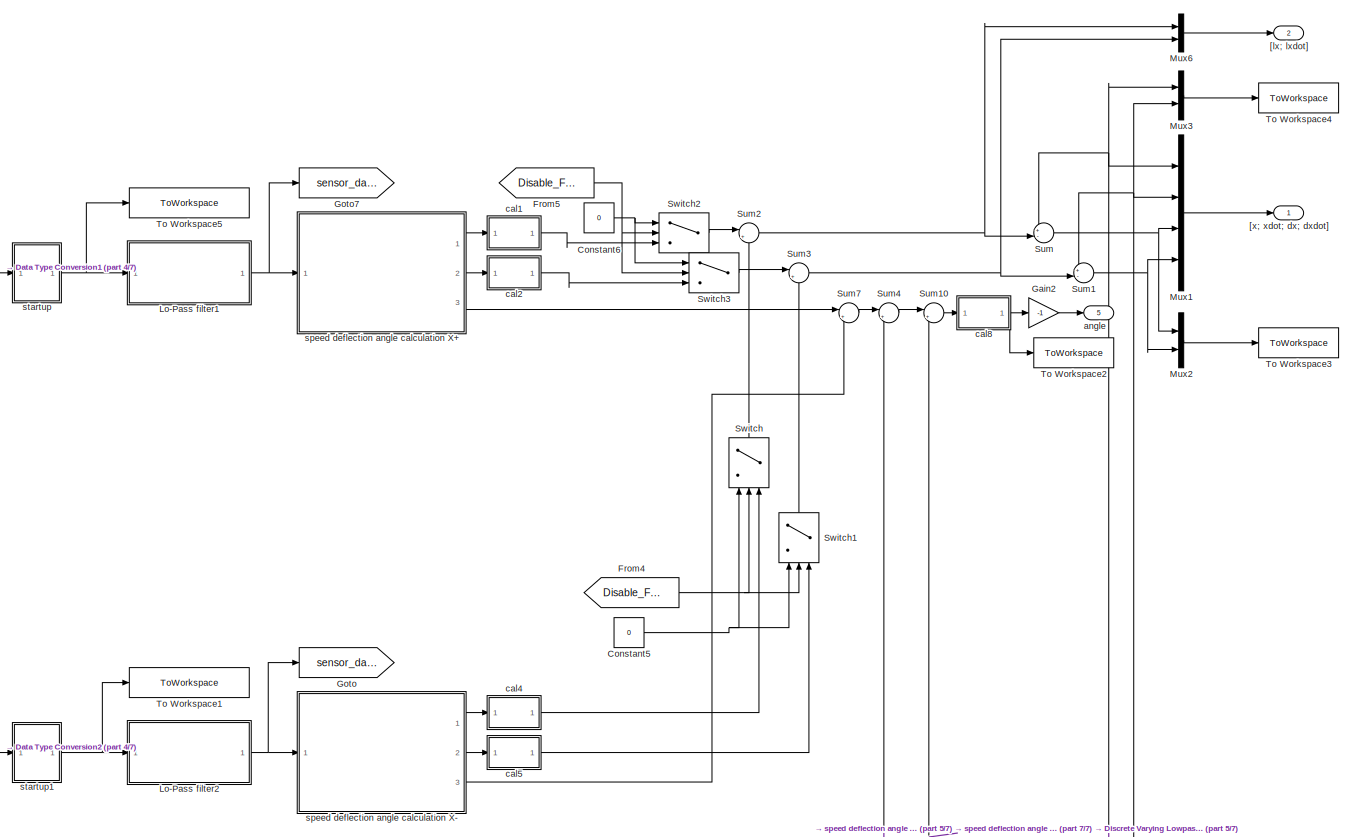
[diagram: Non-ROS Ropod Controller/platform vel cntr/Bumper Interaction Controller/Bumper_system - part 1/7, top right region]
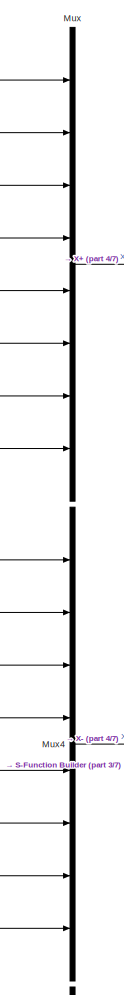
[diagram: Non-ROS Ropod Controller/platform vel cntr/Bumper Interaction Controller/Bumper_system - part 2/7, top left region]
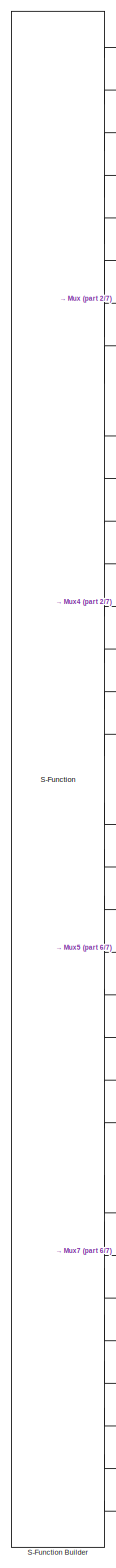
[diagram: Non-ROS Ropod Controller/platform vel cntr/Bumper Interaction Controller/Bumper_system - part 3/7, left side, full height]
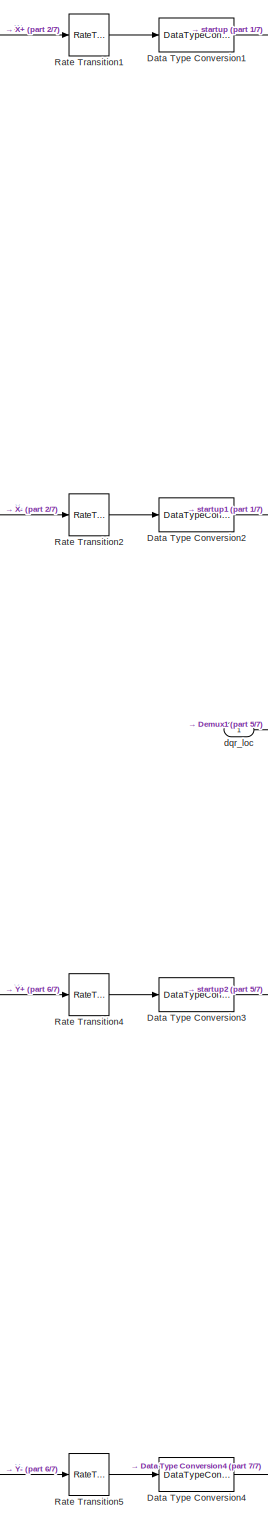
[diagram: Non-ROS Ropod Controller/platform vel cntr/Bumper Interaction Controller/Bumper_system - part 4/7, central region]
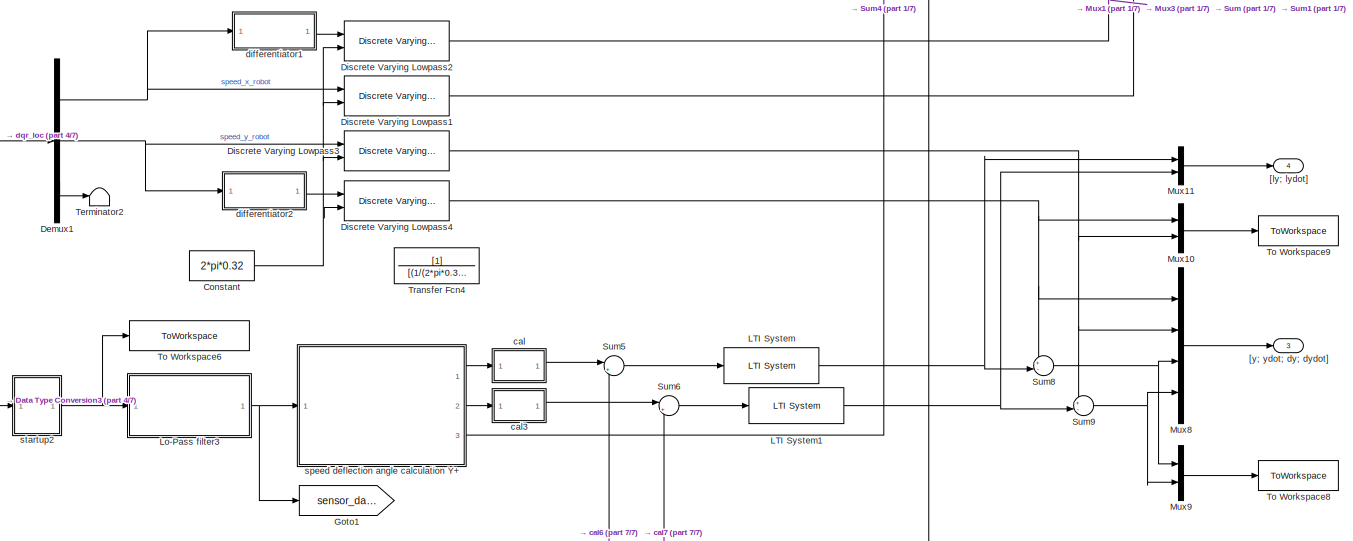
[diagram: Non-ROS Ropod Controller/platform vel cntr/Bumper Interaction Controller/Bumper_system - part 5/7, middle right region]
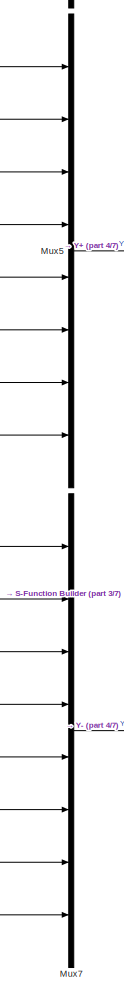
[diagram: Non-ROS Ropod Controller/platform vel cntr/Bumper Interaction Controller/Bumper_system - part 6/7, middle left region]
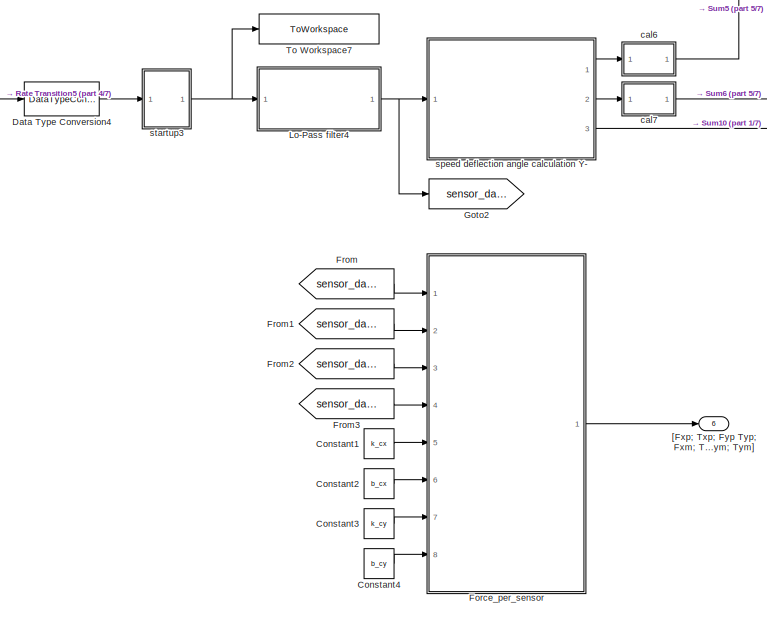
[diagram: Non-ROS Ropod Controller/platform vel cntr/Bumper Interaction Controller/Bumper_system - part 7/7, bottom center region]
BLOCK [SubSystem] Non-ROS Ropod Controller/platform vel cntr/Bumper Interaction Controller/Bumper_system
  Ports = [1, 6]
  RequestExecContextInheritance = off
  Variant = off
BLOCK [Constant] Non-ROS Ropod Controller/platform vel cntr/Bumper Interaction Controller/Bumper_system/Constant
  Value = 2*pi*0.32
BLOCK [Constant] Non-ROS Ropod Controller/platform vel cntr/Bumper Interaction Controller/Bumper_system/Constant1
  Value = k_cx
BLOCK [Constant] Non-ROS Ropod Controller/platform vel cntr/Bumper Interaction Controller/Bumper_system/Constant2
  Value = b_cx
BLOCK [Constant] Non-ROS Ropod Controller/platform vel cntr/Bumper Interaction Controller/Bumper_system/Constant3
  Value = k_cy
BLOCK [Constant] Non-ROS Ropod Controller/platform vel cntr/Bumper Interaction Controller/Bumper_system/Constant4
  Value = b_cy
BLOCK [Constant] Non-ROS Ropod Controller/platform vel cntr/Bumper Interaction Controller/Bumper_system/Constant5
  Value = 0
BLOCK [Constant] Non-ROS Ropod Controller/platform vel cntr/Bumper Interaction Controller/Bumper_system/Constant6
  Value = 0
BLOCK [DataTypeConversion] Non-ROS Ropod Controller/platform vel cntr/Bumper Interaction Controller/Bumper_system/Data Type Conversion1
  RndMeth = Floor
  SaturateOnIntegerOverflow = off
BLOCK [DataTypeConversion] Non-ROS Ropod Controller/platform vel cntr/Bumper Interaction Controller/Bumper_system/Data Type Conversion2
  RndMeth = Floor
  SaturateOnIntegerOverflow = off
BLOCK [DataTypeConversion] Non-ROS Ropod Controller/platform vel cntr/Bumper Interaction Controller/Bumper_system/Data Type Conversion3
  RndMeth = Floor
  SaturateOnIntegerOverflow = off
BLOCK [DataTypeConversion] Non-ROS Ropod Controller/platform vel cntr/Bumper Interaction Controller/Bumper_system/Data Type Conversion4
  RndMeth = Floor
  SaturateOnIntegerOverflow = off
BLOCK [Demux] Non-ROS Ropod Controller/platform vel cntr/Bumper Interaction Controller/Bumper_system/Demux1
  DisplayOption = bar
  Outputs = 3
  Ports = [1, 3]
BLOCK [Reference] Non-ROS Ropod Controller/platform vel cntr/Bumper Interaction Controller/Bumper_system/Discrete Varying Lowpass1  REF=cstblocks/Linear Parameter Varying/Discrete Varying Lowpass
  Ports = [2, 1]
  SourceBlock = cstblocks/Linear Parameter Varying/Discrete Varying Lowpass
  SourceProductBaseCode = CT
  SourceProductName = Control System Toolbox
  SourceType = Discrete Varying Lowpass
BLOCK [Reference] Non-ROS Ropod Controller/platform vel cntr/Bumper Interaction Controller/Bumper_system/Discrete Varying Lowpass2  REF=cstblocks/Linear Parameter Varying/Discrete Varying Lowpass
  Ports = [2, 1]
  SourceBlock = cstblocks/Linear Parameter Varying/Discrete Varying Lowpass
  SourceProductBaseCode = CT
  SourceProductName = Control System Toolbox
  SourceType = Discrete Varying Lowpass
BLOCK [Reference] Non-ROS Ropod Controller/platform vel cntr/Bumper Interaction Controller/Bumper_system/Discrete Varying Lowpass3  REF=cstblocks/Linear Parameter Varying/Discrete Varying Lowpass
  Ports = [2, 1]
  SourceBlock = cstblocks/Linear Parameter Varying/Discrete Varying Lowpass
  SourceProductBaseCode = CT
  SourceProductName = Control System Toolbox
  SourceType = Discrete Varying Lowpass
BLOCK [Reference] Non-ROS Ropod Controller/platform vel cntr/Bumper Interaction Controller/Bumper_system/Discrete Varying Lowpass4  REF=cstblocks/Linear Parameter Varying/Discrete Varying Lowpass
  Ports = [2, 1]
  SourceBlock = cstblocks/Linear Parameter Varying/Discrete Varying Lowpass
  SourceProductBaseCode = CT
  SourceProductName = Control System Toolbox
  SourceType = Discrete Varying Lowpass
BLOCK [SubSystem] Non-ROS Ropod Controller/platform vel cntr/Bumper Interaction Controller/Bumper_system/Force_per_sensor
  ErrorFcn = Stateflow.Translate.translate
  PermitHierarchicalResolution = ExplicitOnly
  Ports = [8, 1]
  RequestExecContextInheritance = off
  SFBlockType = MATLAB Function
  TreatAsAtomicUnit = on
  Variant = off
BLOCK [Demux] Non-ROS Ropod Controller/platform vel cntr/Bumper Interaction Controller/Bumper_system/Force_per_sensor/ Demux 
  Outputs = 1
  Ports = [1, 1]
BLOCK [S-Function] Non-ROS Ropod Controller/platform vel cntr/Bumper Interaction Controller/Bumper_system/Force_per_sensor/ SFunction 
  EnableBusSupport = on
  FunctionName = sf_sfun
  PortCounts = [8 2]
  Ports = [8, 2]
  SFcnIsStateOwnerBlock = off
  SFunctionDeploymentMode = off
  Tag = Stateflow S-Function ROPOD_4Wheel_TdistZMPC_cntr 4
BLOCK [Terminator] Non-ROS Ropod Controller/platform vel cntr/Bumper Interaction Controller/Bumper_system/Force_per_sensor/ Terminator 
BLOCK [Outport] Non-ROS Ropod Controller/platform vel cntr/Bumper Interaction Controller/Bumper_system/Force_per_sensor/Force_Torque
  IconDisplay = Port number
BLOCK [Inport] Non-ROS Ropod Controller/platform vel cntr/Bumper Interaction Controller/Bumper_system/Force_per_sensor/b_cx
  IconDisplay = Port number
  Port = 6
BLOCK [Inport] Non-ROS Ropod Controller/platform vel cntr/Bumper Interaction Controller/Bumper_system/Force_per_sensor/b_cy
  IconDisplay = Port number
  Port = 8
BLOCK [Inport] Non-ROS Ropod Controller/platform vel cntr/Bumper Interaction Controller/Bumper_system/Force_per_sensor/k_cx
  IconDisplay = Port number
  Port = 5
BLOCK [Inport] Non-ROS Ropod Controller/platform vel cntr/Bumper Interaction Controller/Bumper_system/Force_per_sensor/k_cy
  IconDisplay = Port number
  Port = 7
BLOCK [Inport] Non-ROS Ropod Controller/platform vel cntr/Bumper Interaction Controller/Bumper_system/Force_per_sensor/s_data_Xm
  IconDisplay = Port number
  Port = 2
BLOCK [Inport] Non-ROS Ropod Controller/platform vel cntr/Bumper Interaction Controller/Bumper_system/Force_per_sensor/s_data_Xp
  IconDisplay = Port number
BLOCK [Inport] Non-ROS Ropod Controller/platform vel cntr/Bumper Interaction Controller/Bumper_system/Force_per_sensor/s_data_Ym
  IconDisplay = Port number
  Port = 4
BLOCK [Inport] Non-ROS Ropod Controller/platform vel cntr/Bumper Interaction Controller/Bumper_system/Force_per_sensor/s_data_Yp
  IconDisplay = Port number
  Port = 3
BLOCK [From] Non-ROS Ropod Controller/platform vel cntr/Bumper Interaction Controller/Bumper_system/From
  GotoTag = sensor_data_Xp
BLOCK [From] Non-ROS Ropod Controller/platform vel cntr/Bumper Interaction Controller/Bumper_system/From1
  GotoTag = sensor_data_Xm
BLOCK [From] Non-ROS Ropod Controller/platform vel cntr/Bumper Interaction Controller/Bumper_system/From2
  GotoTag = sensor_data_Yp
BLOCK [From] Non-ROS Ropod Controller/platform vel cntr/Bumper Interaction Controller/Bumper_system/From3
  GotoTag = sensor_data_Ym
BLOCK [From] Non-ROS Ropod Controller/platform vel cntr/Bumper Interaction Controller/Bumper_system/From4
  GotoTag = Disable_Fxm
  TagVisibility = global
BLOCK [From] Non-ROS Ropod Controller/platform vel cntr/Bumper Interaction Controller/Bumper_system/From5
  GotoTag = Disable_Fxp
  TagVisibility = global
BLOCK [Gain] Non-ROS Ropod Controller/platform vel cntr/Bumper Interaction Controller/Bumper_system/Gain2
  Gain = -1
  OutDataTypeStr = Inherit: Inherit via internal rule
  ParamDataTypeStr = Inherit: Inherit via internal rule
  SaturateOnIntegerOverflow = off
BLOCK [Goto] Non-ROS Ropod Controller/platform vel cntr/Bumper Interaction Controller/Bumper_system/Goto
  GotoTag = sensor_data_Xm
BLOCK [Goto] Non-ROS Ropod Controller/platform vel cntr/Bumper Interaction Controller/Bumper_system/Goto1
  GotoTag = sensor_data_Yp
BLOCK [Goto] Non-ROS Ropod Controller/platform vel cntr/Bumper Interaction Controller/Bumper_system/Goto2
  GotoTag = sensor_data_Ym
BLOCK [Goto] Non-ROS Ropod Controller/platform vel cntr/Bumper Interaction Controller/Bumper_system/Goto7
  GotoTag = sensor_data_Xp
BLOCK [Reference] Non-ROS Ropod Controller/platform vel cntr/Bumper Interaction Controller/Bumper_system/LTI System  REF=cstblocks/LTI System
  Ports = [1, 1]
  SourceBlock = cstblocks/LTI System
  SourceProductBaseCode = CT
  SourceProductName = Control System Toolbox
  SourceType = LTI Block
BLOCK [Reference] Non-ROS Ropod Controller/platform vel cntr/Bumper Interaction Controller/Bumper_system/LTI System1  REF=cstblocks/LTI System
  Ports = [1, 1]
  SourceBlock = cstblocks/LTI System
  SourceProductBaseCode = CT
  SourceProductName = Control System Toolbox
  SourceType = LTI Block
BLOCK [SubSystem] Non-ROS Ropod Controller/platform vel cntr/Bumper Interaction Controller/Bumper_system/Lo-Pass filter1
  Ports = [1, 1]
  RequestExecContextInheritance = off
  Variant = off
BLOCK [Constant] Non-ROS Ropod Controller/platform vel cntr/Bumper Interaction Controller/Bumper_system/Lo-Pass filter1/Constant
  Value = 2*pi*0.8
BLOCK [Demux] Non-ROS Ropod Controller/platform vel cntr/Bumper Interaction Controller/Bumper_system/Lo-Pass filter1/Demux
  DisplayOption = bar
  Outputs = 8
  Ports = [1, 8]
BLOCK [Reference] Non-ROS Ropod Controller/platform vel cntr/Bumper Interaction Controller/Bumper_system/Lo-Pass filter1/Discrete Varying Lowpass1  REF=cstblocks/Linear Parameter Varying/Discrete Varying Lowpass
  Ports = [2, 1]
  SourceBlock = cstblocks/Linear Parameter Varying/Discrete Varying Lowpass
  SourceProductBaseCode = CT
  SourceProductName = Control System Toolbox
  SourceType = Discrete Varying Lowpass
BLOCK [Reference] Non-ROS Ropod Controller/platform vel cntr/Bumper Interaction Controller/Bumper_system/Lo-Pass filter1/Discrete Varying Lowpass2  REF=cstblocks/Linear Parameter Varying/Discrete Varying Lowpass
  Ports = [2, 1]
  SourceBlock = cstblocks/Linear Parameter Varying/Discrete Varying Lowpass
  SourceProductBaseCode = CT
  SourceProductName = Control System Toolbox
  SourceType = Discrete Varying Lowpass
BLOCK [Reference] Non-ROS Ropod Controller/platform vel cntr/Bumper Interaction Controller/Bumper_system/Lo-Pass filter1/Discrete Varying Lowpass3  REF=cstblocks/Linear Parameter Varying/Discrete Varying Lowpass
  Ports = [2, 1]
  SourceBlock = cstblocks/Linear Parameter Varying/Discrete Varying Lowpass
  SourceProductBaseCode = CT
  SourceProductName = Control System Toolbox
  SourceType = Discrete Varying Lowpass
BLOCK [Reference] Non-ROS Ropod Controller/platform vel cntr/Bumper Interaction Controller/Bumper_system/Lo-Pass filter1/Discrete Varying Lowpass4  REF=cstblocks/Linear Parameter Varying/Discrete Varying Lowpass
  Ports = [2, 1]
  SourceBlock = cstblocks/Linear Parameter Varying/Discrete Varying Lowpass
  SourceProductBaseCode = CT
  SourceProductName = Control System Toolbox
  SourceType = Discrete Varying Lowpass
BLOCK [Reference] Non-ROS Ropod Controller/platform vel cntr/Bumper Interaction Controller/Bumper_system/Lo-Pass filter1/Discrete Varying Lowpass5  REF=cstblocks/Linear Parameter Varying/Discrete Varying Lowpass
  Ports = [2, 1]
  SourceBlock = cstblocks/Linear Parameter Varying/Discrete Varying Lowpass
  SourceProductBaseCode = CT
  SourceProductName = Control System Toolbox
  SourceType = Discrete Varying Lowpass
BLOCK [Reference] Non-ROS Ropod Controller/platform vel cntr/Bumper Interaction Controller/Bumper_system/Lo-Pass filter1/Discrete Varying Lowpass6  REF=cstblocks/Linear Parameter Varying/Discrete Varying Lowpass
  Ports = [2, 1]
  SourceBlock = cstblocks/Linear Parameter Varying/Discrete Varying Lowpass
  SourceProductBaseCode = CT
  SourceProductName = Control System Toolbox
  SourceType = Discrete Varying Lowpass
BLOCK [Reference] Non-ROS Ropod Controller/platform vel cntr/Bumper Interaction Controller/Bumper_system/Lo-Pass filter1/Discrete Varying Lowpass7  REF=cstblocks/Linear Parameter Varying/Discrete Varying Lowpass
  Ports = [2, 1]
  SourceBlock = cstblocks/Linear Parameter Varying/Discrete Varying Lowpass
  SourceProductBaseCode = CT
  SourceProductName = Control System Toolbox
  SourceType = Discrete Varying Lowpass
BLOCK [Reference] Non-ROS Ropod Controller/platform vel cntr/Bumper Interaction Controller/Bumper_system/Lo-Pass filter1/Discrete Varying Lowpass8  REF=cstblocks/Linear Parameter Varying/Discrete Varying Lowpass
  Ports = [2, 1]
  SourceBlock = cstblocks/Linear Parameter Varying/Discrete Varying Lowpass
  SourceProductBaseCode = CT
  SourceProductName = Control System Toolbox
  SourceType = Discrete Varying Lowpass
BLOCK [Outport] Non-ROS Ropod Controller/platform vel cntr/Bumper Interaction Controller/Bumper_system/Lo-Pass filter1/Filterd_s_data
  IconDisplay = Port number
BLOCK [Reference] Non-ROS Ropod Controller/platform vel cntr/Bumper Interaction Controller/Bumper_system/Lo-Pass filter1/LTI System  REF=cstblocks/LTI System
  Commented = through
  Ports = [1, 1]
  SourceBlock = cstblocks/LTI System
  SourceProductBaseCode = CT
  SourceProductName = Control System Toolbox
  SourceType = LTI Block
BLOCK [Reference] Non-ROS Ropod Controller/platform vel cntr/Bumper Interaction Controller/Bumper_system/Lo-Pass filter1/LTI System1  REF=cstblocks/LTI System
  Commented = through
  Ports = [1, 1]
  SourceBlock = cstblocks/LTI System
  SourceProductBaseCode = CT
  SourceProductName = Control System Toolbox
  SourceType = LTI Block
BLOCK [Reference] Non-ROS Ropod Controller/platform vel cntr/Bumper Interaction Controller/Bumper_system/Lo-Pass filter1/LTI System2  REF=cstblocks/LTI System
  Commented = through
  Ports = [1, 1]
  SourceBlock = cstblocks/LTI System
  SourceProductBaseCode = CT
  SourceProductName = Control System Toolbox
  SourceType = LTI Block
BLOCK [Reference] Non-ROS Ropod Controller/platform vel cntr/Bumper Interaction Controller/Bumper_system/Lo-Pass filter1/LTI System3  REF=cstblocks/LTI System
  Commented = through
  Ports = [1, 1]
  SourceBlock = cstblocks/LTI System
  SourceProductBaseCode = CT
  SourceProductName = Control System Toolbox
  SourceType = LTI Block
BLOCK [Reference] Non-ROS Ropod Controller/platform vel cntr/Bumper Interaction Controller/Bumper_system/Lo-Pass filter1/LTI System4  REF=cstblocks/LTI System
  Commented = through
  Ports = [1, 1]
  SourceBlock = cstblocks/LTI System
  SourceProductBaseCode = CT
  SourceProductName = Control System Toolbox
  SourceType = LTI Block
BLOCK [Reference] Non-ROS Ropod Controller/platform vel cntr/Bumper Interaction Controller/Bumper_system/Lo-Pass filter1/LTI System5  REF=cstblocks/LTI System
  Commented = through
  Ports = [1, 1]
  SourceBlock = cstblocks/LTI System
  SourceProductBaseCode = CT
  SourceProductName = Control System Toolbox
  SourceType = LTI Block
BLOCK [Reference] Non-ROS Ropod Controller/platform vel cntr/Bumper Interaction Controller/Bumper_system/Lo-Pass filter1/LTI System6  REF=cstblocks/LTI System
  Commented = through
  Ports = [1, 1]
  SourceBlock = cstblocks/LTI System
  SourceProductBaseCode = CT
  SourceProductName = Control System Toolbox
  SourceType = LTI Block
BLOCK [Reference] Non-ROS Ropod Controller/platform vel cntr/Bumper Interaction Controller/Bumper_system/Lo-Pass filter1/LTI System7  REF=cstblocks/LTI System
  Commented = through
  Ports = [1, 1]
  SourceBlock = cstblocks/LTI System
  SourceProductBaseCode = CT
  SourceProductName = Control System Toolbox
  SourceType = LTI Block
BLOCK [Mux] Non-ROS Ropod Controller/platform vel cntr/Bumper Interaction Controller/Bumper_system/Lo-Pass filter1/Mux
  DisplayOption = bar
  Inputs = 8
  Ports = [8, 1]
BLOCK [TransferFcn] Non-ROS Ropod Controller/platform vel cntr/Bumper Interaction Controller/Bumper_system/Lo-Pass filter1/Transfer Fcn1
  Commented = on
  Denominator = [(1/(2*pi*0.8)) 1]
BLOCK [TransferFcn] Non-ROS Ropod Controller/platform vel cntr/Bumper Interaction Controller/Bumper_system/Lo-Pass filter1/Transfer Fcn9
  Commented = on
  Denominator = [1 (2*0.0003) 0.0003^2]
  Numerator = [1 0 0]
BLOCK [Inport] Non-ROS Ropod Controller/platform vel cntr/Bumper Interaction Controller/Bumper_system/Lo-Pass filter1/s_data
  IconDisplay = Port number
BLOCK [SubSystem] Non-ROS Ropod Controller/platform vel cntr/Bumper Interaction Controller/Bumper_system/Lo-Pass filter2
  Ports = [1, 1]
  RequestExecContextInheritance = off
  Variant = off
BLOCK [Constant] Non-ROS Ropod Controller/platform vel cntr/Bumper Interaction Controller/Bumper_system/Lo-Pass filter2/Constant
  Value = 2*pi*0.8
BLOCK [Demux] Non-ROS Ropod Controller/platform vel cntr/Bumper Interaction Controller/Bumper_system/Lo-Pass filter2/Demux
  DisplayOption = bar
  Outputs = 8
  Ports = [1, 8]
BLOCK [Reference] Non-ROS Ropod Controller/platform vel cntr/Bumper Interaction Controller/Bumper_system/Lo-Pass filter2/Discrete Varying Lowpass1  REF=cstblocks/Linear Parameter Varying/Discrete Varying Lowpass
  Ports = [2, 1]
  SourceBlock = cstblocks/Linear Parameter Varying/Discrete Varying Lowpass
  SourceProductBaseCode = CT
  SourceProductName = Control System Toolbox
  SourceType = Discrete Varying Lowpass
BLOCK [Reference] Non-ROS Ropod Controller/platform vel cntr/Bumper Interaction Controller/Bumper_system/Lo-Pass filter2/Discrete Varying Lowpass2  REF=cstblocks/Linear Parameter Varying/Discrete Varying Lowpass
  Ports = [2, 1]
  SourceBlock = cstblocks/Linear Parameter Varying/Discrete Varying Lowpass
  SourceProductBaseCode = CT
  SourceProductName = Control System Toolbox
  SourceType = Discrete Varying Lowpass
BLOCK [Reference] Non-ROS Ropod Controller/platform vel cntr/Bumper Interaction Controller/Bumper_system/Lo-Pass filter2/Discrete Varying Lowpass3  REF=cstblocks/Linear Parameter Varying/Discrete Varying Lowpass
  Ports = [2, 1]
  SourceBlock = cstblocks/Linear Parameter Varying/Discrete Varying Lowpass
  SourceProductBaseCode = CT
  SourceProductName = Control System Toolbox
  SourceType = Discrete Varying Lowpass
BLOCK [Reference] Non-ROS Ropod Controller/platform vel cntr/Bumper Interaction Controller/Bumper_system/Lo-Pass filter2/Discrete Varying Lowpass4  REF=cstblocks/Linear Parameter Varying/Discrete Varying Lowpass
  Ports = [2, 1]
  SourceBlock = cstblocks/Linear Parameter Varying/Discrete Varying Lowpass
  SourceProductBaseCode = CT
  SourceProductName = Control System Toolbox
  SourceType = Discrete Varying Lowpass
BLOCK [Reference] Non-ROS Ropod Controller/platform vel cntr/Bumper Interaction Controller/Bumper_system/Lo-Pass filter2/Discrete Varying Lowpass5  REF=cstblocks/Linear Parameter Varying/Discrete Varying Lowpass
  Ports = [2, 1]
  SourceBlock = cstblocks/Linear Parameter Varying/Discrete Varying Lowpass
  SourceProductBaseCode = CT
  SourceProductName = Control System Toolbox
  SourceType = Discrete Varying Lowpass
BLOCK [Reference] Non-ROS Ropod Controller/platform vel cntr/Bumper Interaction Controller/Bumper_system/Lo-Pass filter2/Discrete Varying Lowpass6  REF=cstblocks/Linear Parameter Varying/Discrete Varying Lowpass
  Ports = [2, 1]
  SourceBlock = cstblocks/Linear Parameter Varying/Discrete Varying Lowpass
  SourceProductBaseCode = CT
  SourceProductName = Control System Toolbox
  SourceType = Discrete Varying Lowpass
BLOCK [Reference] Non-ROS Ropod Controller/platform vel cntr/Bumper Interaction Controller/Bumper_system/Lo-Pass filter2/Discrete Varying Lowpass7  REF=cstblocks/Linear Parameter Varying/Discrete Varying Lowpass
  Ports = [2, 1]
  SourceBlock = cstblocks/Linear Parameter Varying/Discrete Varying Lowpass
  SourceProductBaseCode = CT
  SourceProductName = Control System Toolbox
  SourceType = Discrete Varying Lowpass
BLOCK [Reference] Non-ROS Ropod Controller/platform vel cntr/Bumper Interaction Controller/Bumper_system/Lo-Pass filter2/Discrete Varying Lowpass8  REF=cstblocks/Linear Parameter Varying/Discrete Varying Lowpass
  Ports = [2, 1]
  SourceBlock = cstblocks/Linear Parameter Varying/Discrete Varying Lowpass
  SourceProductBaseCode = CT
  SourceProductName = Control System Toolbox
  SourceType = Discrete Varying Lowpass
BLOCK [Outport] Non-ROS Ropod Controller/platform vel cntr/Bumper Interaction Controller/Bumper_system/Lo-Pass filter2/Filterd_s_data
  IconDisplay = Port number
BLOCK [Reference] Non-ROS Ropod Controller/platform vel cntr/Bumper Interaction Controller/Bumper_system/Lo-Pass filter2/LTI System  REF=cstblocks/LTI System
  Commented = through
  Ports = [1, 1]
  SourceBlock = cstblocks/LTI System
  SourceProductBaseCode = CT
  SourceProductName = Control System Toolbox
  SourceType = LTI Block
BLOCK [Reference] Non-ROS Ropod Controller/platform vel cntr/Bumper Interaction Controller/Bumper_system/Lo-Pass filter2/LTI System1  REF=cstblocks/LTI System
  Commented = through
  Ports = [1, 1]
  SourceBlock = cstblocks/LTI System
  SourceProductBaseCode = CT
  SourceProductName = Control System Toolbox
  SourceType = LTI Block
BLOCK [Reference] Non-ROS Ropod Controller/platform vel cntr/Bumper Interaction Controller/Bumper_system/Lo-Pass filter2/LTI System2  REF=cstblocks/LTI System
  Commented = through
  Ports = [1, 1]
  SourceBlock = cstblocks/LTI System
  SourceProductBaseCode = CT
  SourceProductName = Control System Toolbox
  SourceType = LTI Block
BLOCK [Reference] Non-ROS Ropod Controller/platform vel cntr/Bumper Interaction Controller/Bumper_system/Lo-Pass filter2/LTI System3  REF=cstblocks/LTI System
  Commented = through
  Ports = [1, 1]
  SourceBlock = cstblocks/LTI System
  SourceProductBaseCode = CT
  SourceProductName = Control System Toolbox
  SourceType = LTI Block
BLOCK [Reference] Non-ROS Ropod Controller/platform vel cntr/Bumper Interaction Controller/Bumper_system/Lo-Pass filter2/LTI System4  REF=cstblocks/LTI System
  Commented = through
  Ports = [1, 1]
  SourceBlock = cstblocks/LTI System
  SourceProductBaseCode = CT
  SourceProductName = Control System Toolbox
  SourceType = LTI Block
BLOCK [Reference] Non-ROS Ropod Controller/platform vel cntr/Bumper Interaction Controller/Bumper_system/Lo-Pass filter2/LTI System5  REF=cstblocks/LTI System
  Commented = through
  Ports = [1, 1]
  SourceBlock = cstblocks/LTI System
  SourceProductBaseCode = CT
  SourceProductName = Control System Toolbox
  SourceType = LTI Block
BLOCK [Reference] Non-ROS Ropod Controller/platform vel cntr/Bumper Interaction Controller/Bumper_system/Lo-Pass filter2/LTI System6  REF=cstblocks/LTI System
  Commented = through
  Ports = [1, 1]
  SourceBlock = cstblocks/LTI System
  SourceProductBaseCode = CT
  SourceProductName = Control System Toolbox
  SourceType = LTI Block
BLOCK [Reference] Non-ROS Ropod Controller/platform vel cntr/Bumper Interaction Controller/Bumper_system/Lo-Pass filter2/LTI System7  REF=cstblocks/LTI System
  Commented = through
  Ports = [1, 1]
  SourceBlock = cstblocks/LTI System
  SourceProductBaseCode = CT
  SourceProductName = Control System Toolbox
  SourceType = LTI Block
BLOCK [Mux] Non-ROS Ropod Controller/platform vel cntr/Bumper Interaction Controller/Bumper_system/Lo-Pass filter2/Mux
  DisplayOption = bar
  Inputs = 8
  Ports = [8, 1]
BLOCK [TransferFcn] Non-ROS Ropod Controller/platform vel cntr/Bumper Interaction Controller/Bumper_system/Lo-Pass filter2/Transfer Fcn1
  Commented = on
  Denominator = [(1/(2*pi*0.8)) 1]
BLOCK [TransferFcn] Non-ROS Ropod Controller/platform vel cntr/Bumper Interaction Controller/Bumper_system/Lo-Pass filter2/Transfer Fcn9
  Commented = on
  Denominator = [1 (2*0.0003) 0.0003^2]
  Numerator = [1 0 0]
BLOCK [Inport] Non-ROS Ropod Controller/platform vel cntr/Bumper Interaction Controller/Bumper_system/Lo-Pass filter2/s_data
  IconDisplay = Port number
BLOCK [SubSystem] Non-ROS Ropod Controller/platform vel cntr/Bumper Interaction Controller/Bumper_system/Lo-Pass filter3
  Ports = [1, 1]
  RequestExecContextInheritance = off
  Variant = off
BLOCK [Constant] Non-ROS Ropod Controller/platform vel cntr/Bumper Interaction Controller/Bumper_system/Lo-Pass filter3/Constant
  Value = 2*pi*0.8
BLOCK [Demux] Non-ROS Ropod Controller/platform vel cntr/Bumper Interaction Controller/Bumper_system/Lo-Pass filter3/Demux
  DisplayOption = bar
  Outputs = 8
  Ports = [1, 8]
BLOCK [Reference] Non-ROS Ropod Controller/platform vel cntr/Bumper Interaction Controller/Bumper_system/Lo-Pass filter3/Discrete Varying Lowpass1  REF=cstblocks/Linear Parameter Varying/Discrete Varying Lowpass
  Ports = [2, 1]
  SourceBlock = cstblocks/Linear Parameter Varying/Discrete Varying Lowpass
  SourceProductBaseCode = CT
  SourceProductName = Control System Toolbox
  SourceType = Discrete Varying Lowpass
BLOCK [Reference] Non-ROS Ropod Controller/platform vel cntr/Bumper Interaction Controller/Bumper_system/Lo-Pass filter3/Discrete Varying Lowpass2  REF=cstblocks/Linear Parameter Varying/Discrete Varying Lowpass
  Ports = [2, 1]
  SourceBlock = cstblocks/Linear Parameter Varying/Discrete Varying Lowpass
  SourceProductBaseCode = CT
  SourceProductName = Control System Toolbox
  SourceType = Discrete Varying Lowpass
BLOCK [Reference] Non-ROS Ropod Controller/platform vel cntr/Bumper Interaction Controller/Bumper_system/Lo-Pass filter3/Discrete Varying Lowpass3  REF=cstblocks/Linear Parameter Varying/Discrete Varying Lowpass
  Ports = [2, 1]
  SourceBlock = cstblocks/Linear Parameter Varying/Discrete Varying Lowpass
  SourceProductBaseCode = CT
  SourceProductName = Control System Toolbox
  SourceType = Discrete Varying Lowpass
BLOCK [Reference] Non-ROS Ropod Controller/platform vel cntr/Bumper Interaction Controller/Bumper_system/Lo-Pass filter3/Discrete Varying Lowpass4  REF=cstblocks/Linear Parameter Varying/Discrete Varying Lowpass
  Ports = [2, 1]
  SourceBlock = cstblocks/Linear Parameter Varying/Discrete Varying Lowpass
  SourceProductBaseCode = CT
  SourceProductName = Control System Toolbox
  SourceType = Discrete Varying Lowpass
BLOCK [Reference] Non-ROS Ropod Controller/platform vel cntr/Bumper Interaction Controller/Bumper_system/Lo-Pass filter3/Discrete Varying Lowpass5  REF=cstblocks/Linear Parameter Varying/Discrete Varying Lowpass
  Ports = [2, 1]
  SourceBlock = cstblocks/Linear Parameter Varying/Discrete Varying Lowpass
  SourceProductBaseCode = CT
  SourceProductName = Control System Toolbox
  SourceType = Discrete Varying Lowpass
BLOCK [Reference] Non-ROS Ropod Controller/platform vel cntr/Bumper Interaction Controller/Bumper_system/Lo-Pass filter3/Discrete Varying Lowpass6  REF=cstblocks/Linear Parameter Varying/Discrete Varying Lowpass
  Ports = [2, 1]
  SourceBlock = cstblocks/Linear Parameter Varying/Discrete Varying Lowpass
  SourceProductBaseCode = CT
  SourceProductName = Control System Toolbox
  SourceType = Discrete Varying Lowpass
BLOCK [Reference] Non-ROS Ropod Controller/platform vel cntr/Bumper Interaction Controller/Bumper_system/Lo-Pass filter3/Discrete Varying Lowpass7  REF=cstblocks/Linear Parameter Varying/Discrete Varying Lowpass
  Ports = [2, 1]
  SourceBlock = cstblocks/Linear Parameter Varying/Discrete Varying Lowpass
  SourceProductBaseCode = CT
  SourceProductName = Control System Toolbox
  SourceType = Discrete Varying Lowpass
BLOCK [Reference] Non-ROS Ropod Controller/platform vel cntr/Bumper Interaction Controller/Bumper_system/Lo-Pass filter3/Discrete Varying Lowpass8  REF=cstblocks/Linear Parameter Varying/Discrete Varying Lowpass
  Ports = [2, 1]
  SourceBlock = cstblocks/Linear Parameter Varying/Discrete Varying Lowpass
  SourceProductBaseCode = CT
  SourceProductName = Control System Toolbox
  SourceType = Discrete Varying Lowpass
BLOCK [Outport] Non-ROS Ropod Controller/platform vel cntr/Bumper Interaction Controller/Bumper_system/Lo-Pass filter3/Filterd_s_data
  IconDisplay = Port number
BLOCK [Reference] Non-ROS Ropod Controller/platform vel cntr/Bumper Interaction Controller/Bumper_system/Lo-Pass filter3/LTI System  REF=cstblocks/LTI System
  Commented = through
  Ports = [1, 1]
  SourceBlock = cstblocks/LTI System
  SourceProductBaseCode = CT
  SourceProductName = Control System Toolbox
  SourceType = LTI Block
BLOCK [Reference] Non-ROS Ropod Controller/platform vel cntr/Bumper Interaction Controller/Bumper_system/Lo-Pass filter3/LTI System1  REF=cstblocks/LTI System
  Commented = through
  Ports = [1, 1]
  SourceBlock = cstblocks/LTI System
  SourceProductBaseCode = CT
  SourceProductName = Control System Toolbox
  SourceType = LTI Block
BLOCK [Reference] Non-ROS Ropod Controller/platform vel cntr/Bumper Interaction Controller/Bumper_system/Lo-Pass filter3/LTI System2  REF=cstblocks/LTI System
  Commented = through
  Ports = [1, 1]
  SourceBlock = cstblocks/LTI System
  SourceProductBaseCode = CT
  SourceProductName = Control System Toolbox
  SourceType = LTI Block
BLOCK [Reference] Non-ROS Ropod Controller/platform vel cntr/Bumper Interaction Controller/Bumper_system/Lo-Pass filter3/LTI System3  REF=cstblocks/LTI System
  Commented = through
  Ports = [1, 1]
  SourceBlock = cstblocks/LTI System
  SourceProductBaseCode = CT
  SourceProductName = Control System Toolbox
  SourceType = LTI Block
BLOCK [Reference] Non-ROS Ropod Controller/platform vel cntr/Bumper Interaction Controller/Bumper_system/Lo-Pass filter3/LTI System4  REF=cstblocks/LTI System
  Commented = through
  Ports = [1, 1]
  SourceBlock = cstblocks/LTI System
  SourceProductBaseCode = CT
  SourceProductName = Control System Toolbox
  SourceType = LTI Block
BLOCK [Reference] Non-ROS Ropod Controller/platform vel cntr/Bumper Interaction Controller/Bumper_system/Lo-Pass filter3/LTI System5  REF=cstblocks/LTI System
  Commented = through
  Ports = [1, 1]
  SourceBlock = cstblocks/LTI System
  SourceProductBaseCode = CT
  SourceProductName = Control System Toolbox
  SourceType = LTI Block
BLOCK [Reference] Non-ROS Ropod Controller/platform vel cntr/Bumper Interaction Controller/Bumper_system/Lo-Pass filter3/LTI System6  REF=cstblocks/LTI System
  Commented = through
  Ports = [1, 1]
  SourceBlock = cstblocks/LTI System
  SourceProductBaseCode = CT
  SourceProductName = Control System Toolbox
  SourceType = LTI Block
BLOCK [Reference] Non-ROS Ropod Controller/platform vel cntr/Bumper Interaction Controller/Bumper_system/Lo-Pass filter3/LTI System7  REF=cstblocks/LTI System
  Commented = through
  Ports = [1, 1]
  SourceBlock = cstblocks/LTI System
  SourceProductBaseCode = CT
  SourceProductName = Control System Toolbox
  SourceType = LTI Block
BLOCK [Mux] Non-ROS Ropod Controller/platform vel cntr/Bumper Interaction Controller/Bumper_system/Lo-Pass filter3/Mux
  DisplayOption = bar
  Inputs = 8
  Ports = [8, 1]
BLOCK [TransferFcn] Non-ROS Ropod Controller/platform vel cntr/Bumper Interaction Controller/Bumper_system/Lo-Pass filter3/Transfer Fcn1
  Commented = on
  Denominator = [(1/(2*pi*0.8)) 1]
BLOCK [TransferFcn] Non-ROS Ropod Controller/platform vel cntr/Bumper Interaction Controller/Bumper_system/Lo-Pass filter3/Transfer Fcn9
  Commented = on
  Denominator = [1 (2*0.0003) 0.0003^2]
  Numerator = [1 0 0]
BLOCK [Inport] Non-ROS Ropod Controller/platform vel cntr/Bumper Interaction Controller/Bumper_system/Lo-Pass filter3/s_data
  IconDisplay = Port number
BLOCK [SubSystem] Non-ROS Ropod Controller/platform vel cntr/Bumper Interaction Controller/Bumper_system/Lo-Pass filter4
  Ports = [1, 1]
  RequestExecContextInheritance = off
  Variant = off
BLOCK [Constant] Non-ROS Ropod Controller/platform vel cntr/Bumper Interaction Controller/Bumper_system/Lo-Pass filter4/Constant
  Value = 2*pi*0.8
BLOCK [Demux] Non-ROS Ropod Controller/platform vel cntr/Bumper Interaction Controller/Bumper_system/Lo-Pass filter4/Demux
  DisplayOption = bar
  Outputs = 8
  Ports = [1, 8]
BLOCK [Reference] Non-ROS Ropod Controller/platform vel cntr/Bumper Interaction Controller/Bumper_system/Lo-Pass filter4/Discrete Varying Lowpass1  REF=cstblocks/Linear Parameter Varying/Discrete Varying Lowpass
  Ports = [2, 1]
  SourceBlock = cstblocks/Linear Parameter Varying/Discrete Varying Lowpass
  SourceProductBaseCode = CT
  SourceProductName = Control System Toolbox
  SourceType = Discrete Varying Lowpass
BLOCK [Reference] Non-ROS Ropod Controller/platform vel cntr/Bumper Interaction Controller/Bumper_system/Lo-Pass filter4/Discrete Varying Lowpass2  REF=cstblocks/Linear Parameter Varying/Discrete Varying Lowpass
  Ports = [2, 1]
  SourceBlock = cstblocks/Linear Parameter Varying/Discrete Varying Lowpass
  SourceProductBaseCode = CT
  SourceProductName = Control System Toolbox
  SourceType = Discrete Varying Lowpass
BLOCK [Reference] Non-ROS Ropod Controller/platform vel cntr/Bumper Interaction Controller/Bumper_system/Lo-Pass filter4/Discrete Varying Lowpass3  REF=cstblocks/Linear Parameter Varying/Discrete Varying Lowpass
  Ports = [2, 1]
  SourceBlock = cstblocks/Linear Parameter Varying/Discrete Varying Lowpass
  SourceProductBaseCode = CT
  SourceProductName = Control System Toolbox
  SourceType = Discrete Varying Lowpass
BLOCK [Reference] Non-ROS Ropod Controller/platform vel cntr/Bumper Interaction Controller/Bumper_system/Lo-Pass filter4/Discrete Varying Lowpass4  REF=cstblocks/Linear Parameter Varying/Discrete Varying Lowpass
  Ports = [2, 1]
  SourceBlock = cstblocks/Linear Parameter Varying/Discrete Varying Lowpass
  SourceProductBaseCode = CT
  SourceProductName = Control System Toolbox
  SourceType = Discrete Varying Lowpass
BLOCK [Reference] Non-ROS Ropod Controller/platform vel cntr/Bumper Interaction Controller/Bumper_system/Lo-Pass filter4/Discrete Varying Lowpass5  REF=cstblocks/Linear Parameter Varying/Discrete Varying Lowpass
  Ports = [2, 1]
  SourceBlock = cstblocks/Linear Parameter Varying/Discrete Varying Lowpass
  SourceProductBaseCode = CT
  SourceProductName = Control System Toolbox
  SourceType = Discrete Varying Lowpass
BLOCK [Reference] Non-ROS Ropod Controller/platform vel cntr/Bumper Interaction Controller/Bumper_system/Lo-Pass filter4/Discrete Varying Lowpass6  REF=cstblocks/Linear Parameter Varying/Discrete Varying Lowpass
  Ports = [2, 1]
  SourceBlock = cstblocks/Linear Parameter Varying/Discrete Varying Lowpass
  SourceProductBaseCode = CT
  SourceProductName = Control System Toolbox
  SourceType = Discrete Varying Lowpass
BLOCK [Reference] Non-ROS Ropod Controller/platform vel cntr/Bumper Interaction Controller/Bumper_system/Lo-Pass filter4/Discrete Varying Lowpass7  REF=cstblocks/Linear Parameter Varying/Discrete Varying Lowpass
  Ports = [2, 1]
  SourceBlock = cstblocks/Linear Parameter Varying/Discrete Varying Lowpass
  SourceProductBaseCode = CT
  SourceProductName = Control System Toolbox
  SourceType = Discrete Varying Lowpass
BLOCK [Reference] Non-ROS Ropod Controller/platform vel cntr/Bumper Interaction Controller/Bumper_system/Lo-Pass filter4/Discrete Varying Lowpass8  REF=cstblocks/Linear Parameter Varying/Discrete Varying Lowpass
  Ports = [2, 1]
  SourceBlock = cstblocks/Linear Parameter Varying/Discrete Varying Lowpass
  SourceProductBaseCode = CT
  SourceProductName = Control System Toolbox
  SourceType = Discrete Varying Lowpass
BLOCK [Outport] Non-ROS Ropod Controller/platform vel cntr/Bumper Interaction Controller/Bumper_system/Lo-Pass filter4/Filterd_s_data
  IconDisplay = Port number
BLOCK [Reference] Non-ROS Ropod Controller/platform vel cntr/Bumper Interaction Controller/Bumper_system/Lo-Pass filter4/LTI System  REF=cstblocks/LTI System
  Commented = through
  Ports = [1, 1]
  SourceBlock = cstblocks/LTI System
  SourceProductBaseCode = CT
  SourceProductName = Control System Toolbox
  SourceType = LTI Block
BLOCK [Reference] Non-ROS Ropod Controller/platform vel cntr/Bumper Interaction Controller/Bumper_system/Lo-Pass filter4/LTI System1  REF=cstblocks/LTI System
  Commented = through
  Ports = [1, 1]
  SourceBlock = cstblocks/LTI System
  SourceProductBaseCode = CT
  SourceProductName = Control System Toolbox
  SourceType = LTI Block
BLOCK [Reference] Non-ROS Ropod Controller/platform vel cntr/Bumper Interaction Controller/Bumper_system/Lo-Pass filter4/LTI System2  REF=cstblocks/LTI System
  Commented = through
  Ports = [1, 1]
  SourceBlock = cstblocks/LTI System
  SourceProductBaseCode = CT
  SourceProductName = Control System Toolbox
  SourceType = LTI Block
BLOCK [Reference] Non-ROS Ropod Controller/platform vel cntr/Bumper Interaction Controller/Bumper_system/Lo-Pass filter4/LTI System3  REF=cstblocks/LTI System
  Commented = through
  Ports = [1, 1]
  SourceBlock = cstblocks/LTI System
  SourceProductBaseCode = CT
  SourceProductName = Control System Toolbox
  SourceType = LTI Block
BLOCK [Reference] Non-ROS Ropod Controller/platform vel cntr/Bumper Interaction Controller/Bumper_system/Lo-Pass filter4/LTI System4  REF=cstblocks/LTI System
  Commented = through
  Ports = [1, 1]
  SourceBlock = cstblocks/LTI System
  SourceProductBaseCode = CT
  SourceProductName = Control System Toolbox
  SourceType = LTI Block
BLOCK [Reference] Non-ROS Ropod Controller/platform vel cntr/Bumper Interaction Controller/Bumper_system/Lo-Pass filter4/LTI System5  REF=cstblocks/LTI System
  Commented = through
  Ports = [1, 1]
  SourceBlock = cstblocks/LTI System
  SourceProductBaseCode = CT
  SourceProductName = Control System Toolbox
  SourceType = LTI Block
BLOCK [Reference] Non-ROS Ropod Controller/platform vel cntr/Bumper Interaction Controller/Bumper_system/Lo-Pass filter4/LTI System6  REF=cstblocks/LTI System
  Commented = through
  Ports = [1, 1]
  SourceBlock = cstblocks/LTI System
  SourceProductBaseCode = CT
  SourceProductName = Control System Toolbox
  SourceType = LTI Block
BLOCK [Reference] Non-ROS Ropod Controller/platform vel cntr/Bumper Interaction Controller/Bumper_system/Lo-Pass filter4/LTI System7  REF=cstblocks/LTI System
  Commented = through
  Ports = [1, 1]
  SourceBlock = cstblocks/LTI System
  SourceProductBaseCode = CT
  SourceProductName = Control System Toolbox
  SourceType = LTI Block
BLOCK [Mux] Non-ROS Ropod Controller/platform vel cntr/Bumper Interaction Controller/Bumper_system/Lo-Pass filter4/Mux
  DisplayOption = bar
  Inputs = 8
  Ports = [8, 1]
BLOCK [TransferFcn] Non-ROS Ropod Controller/platform vel cntr/Bumper Interaction Controller/Bumper_system/Lo-Pass filter4/Transfer Fcn1
  Commented = on
  Denominator = [(1/(2*pi*0.8)) 1]
BLOCK [TransferFcn] Non-ROS Ropod Controller/platform vel cntr/Bumper Interaction Controller/Bumper_system/Lo-Pass filter4/Transfer Fcn9
  Commented = on
  Denominator = [1 (2*0.0003) 0.0003^2]
  Numerator = [1 0 0]
BLOCK [Inport] Non-ROS Ropod Controller/platform vel cntr/Bumper Interaction Controller/Bumper_system/Lo-Pass filter4/s_data
  IconDisplay = Port number
BLOCK [Mux] Non-ROS Ropod Controller/platform vel cntr/Bumper Interaction Controller/Bumper_system/Mux
  DisplayOption = bar
  Inputs = 8
  Ports = [8, 1]
BLOCK [Mux] Non-ROS Ropod Controller/platform vel cntr/Bumper Interaction Controller/Bumper_system/Mux1
  DisplayOption = bar
  Ports = [4, 1]
BLOCK [Mux] Non-ROS Ropod Controller/platform vel cntr/Bumper Interaction Controller/Bumper_system/Mux10
  DisplayOption = bar
  Inputs = 2
  Ports = [2, 1]
BLOCK [Mux] Non-ROS Ropod Controller/platform vel cntr/Bumper Interaction Controller/Bumper_system/Mux11
  DisplayOption = bar
  Inputs = 2
  Ports = [2, 1]
BLOCK [Mux] Non-ROS Ropod Controller/platform vel cntr/Bumper Interaction Controller/Bumper_system/Mux2
  DisplayOption = bar
  Inputs = 2
  Ports = [2, 1]
BLOCK [Mux] Non-ROS Ropod Controller/platform vel cntr/Bumper Interaction Controller/Bumper_system/Mux3
  DisplayOption = bar
  Inputs = 2
  Ports = [2, 1]
BLOCK [Mux] Non-ROS Ropod Controller/platform vel cntr/Bumper Interaction Controller/Bumper_system/Mux4
  DisplayOption = bar
  Inputs = 8
  Ports = [8, 1]
BLOCK [Mux] Non-ROS Ropod Controller/platform vel cntr/Bumper Interaction Controller/Bumper_system/Mux5
  DisplayOption = bar
  Inputs = 8
  Ports = [8, 1]
BLOCK [Mux] Non-ROS Ropod Controller/platform vel cntr/Bumper Interaction Controller/Bumper_system/Mux6
  DisplayOption = bar
  Inputs = 2
  Ports = [2, 1]
BLOCK [Mux] Non-ROS Ropod Controller/platform vel cntr/Bumper Interaction Controller/Bumper_system/Mux7
  DisplayOption = bar
  Inputs = 8
  Ports = [8, 1]
BLOCK [Mux] Non-ROS Ropod Controller/platform vel cntr/Bumper Interaction Controller/Bumper_system/Mux8
  DisplayOption = bar
  Ports = [4, 1]
BLOCK [Mux] Non-ROS Ropod Controller/platform vel cntr/Bumper Interaction Controller/Bumper_system/Mux9
  DisplayOption = bar
  Inputs = 2
  Ports = [2, 1]
BLOCK [RateTransition] Non-ROS Ropod Controller/platform vel cntr/Bumper Interaction Controller/Bumper_system/Rate Transition1
BLOCK [RateTransition] Non-ROS Ropod Controller/platform vel cntr/Bumper Interaction Controller/Bumper_system/Rate Transition2
BLOCK [RateTransition] Non-ROS Ropod Controller/platform vel cntr/Bumper Interaction Controller/Bumper_system/Rate Transition4
BLOCK [RateTransition] Non-ROS Ropod Controller/platform vel cntr/Bumper Interaction Controller/Bumper_system/Rate Transition5
BLOCK [S-Function] Non-ROS Ropod Controller/platform vel cntr/Bumper Interaction Controller/Bumper_system/S-Function Builder
  CopyFcn = set_param(gcbh,'LinkStatus','none')
  EnableBusSupport = off
  FunctionName = Read_Serial_Port
  InitFcn = try, set_param(gcb,'FunctionName','Read_Serial_Port'), end
  OpenFcn = sfunctionwizard(gcbh)
  Ports = [0, 32]
  PreSaveFcn = try, set_param(gcb,'FunctionName','Read_Serial_Port'), end
  SFcnIsStateOwnerBlock = off
  SFunctionDeploymentMode = off
  SFunctionModules = Read_Serial_Port_wrapper
BLOCK [Sum] Non-ROS Ropod Controller/platform vel cntr/Bumper Interaction Controller/Bumper_system/Sum
  IconShape = round
  InputSameDT = off
  Inputs = +-|
  OutDataTypeStr = Inherit: Inherit via internal rule
  Ports = [2, 1]
  SaturateOnIntegerOverflow = off
BLOCK [Sum] Non-ROS Ropod Controller/platform vel cntr/Bumper Interaction Controller/Bumper_system/Sum1
  IconShape = round
  InputSameDT = off
  Inputs = +-|
  OutDataTypeStr = Inherit: Inherit via internal rule
  Ports = [2, 1]
  SaturateOnIntegerOverflow = off
BLOCK [Sum] Non-ROS Ropod Controller/platform vel cntr/Bumper Interaction Controller/Bumper_system/Sum10
  IconShape = round
  InputSameDT = off
  Inputs = |++
  OutDataTypeStr = Inherit: Inherit via internal rule
  Ports = [2, 1]
  SaturateOnIntegerOverflow = off
BLOCK [Sum] Non-ROS Ropod Controller/platform vel cntr/Bumper Interaction Controller/Bumper_system/Sum2
  IconShape = round
  InputSameDT = off
  Inputs = |+-
  OutDataTypeStr = Inherit: Inherit via internal rule
  Ports = [2, 1]
  SaturateOnIntegerOverflow = off
BLOCK [Sum] Non-ROS Ropod Controller/platform vel cntr/Bumper Interaction Controller/Bumper_system/Sum3
  IconShape = round
  InputSameDT = off
  Inputs = |+-
  OutDataTypeStr = Inherit: Inherit via internal rule
  Ports = [2, 1]
  SaturateOnIntegerOverflow = off
BLOCK [Sum] Non-ROS Ropod Controller/platform vel cntr/Bumper Interaction Controller/Bumper_system/Sum4
  IconShape = round
  InputSameDT = off
  Inputs = |++
  OutDataTypeStr = Inherit: Inherit via internal rule
  Ports = [2, 1]
  SaturateOnIntegerOverflow = off
BLOCK [Sum] Non-ROS Ropod Controller/platform vel cntr/Bumper Interaction Controller/Bumper_system/Sum5
  IconShape = round
  InputSameDT = off
  Inputs = |+-
  OutDataTypeStr = Inherit: Inherit via internal rule
  Ports = [2, 1]
  SaturateOnIntegerOverflow = off
BLOCK [Sum] Non-ROS Ropod Controller/platform vel cntr/Bumper Interaction Controller/Bumper_system/Sum6
  IconShape = round
  InputSameDT = off
  Inputs = |+-
  OutDataTypeStr = Inherit: Inherit via internal rule
  Ports = [2, 1]
  SaturateOnIntegerOverflow = off
BLOCK [Sum] Non-ROS Ropod Controller/platform vel cntr/Bumper Interaction Controller/Bumper_system/Sum7
  IconShape = round
  InputSameDT = off
  Inputs = |++
  OutDataTypeStr = Inherit: Inherit via internal rule
  Ports = [2, 1]
  SaturateOnIntegerOverflow = off
BLOCK [Sum] Non-ROS Ropod Controller/platform vel cntr/Bumper Interaction Controller/Bumper_system/Sum8
  IconShape = round
  InputSameDT = off
  Inputs = +-|
  OutDataTypeStr = Inherit: Inherit via internal rule
  Ports = [2, 1]
  SaturateOnIntegerOverflow = off
BLOCK [Sum] Non-ROS Ropod Controller/platform vel cntr/Bumper Interaction Controller/Bumper_system/Sum9
  IconShape = round
  InputSameDT = off
  Inputs = +-|
  OutDataTypeStr = Inherit: Inherit via internal rule
  Ports = [2, 1]
  SaturateOnIntegerOverflow = off
BLOCK [Switch] Non-ROS Ropod Controller/platform vel cntr/Bumper Interaction Controller/Bumper_system/Switch
  Criteria = u2 > Threshold
  InputSameDT = off
  SaturateOnIntegerOverflow = off
BLOCK [Switch] Non-ROS Ropod Controller/platform vel cntr/Bumper Interaction Controller/Bumper_system/Switch1
  Criteria = u2 > Threshold
  InputSameDT = off
  SaturateOnIntegerOverflow = off
BLOCK [Switch] Non-ROS Ropod Controller/platform vel cntr/Bumper Interaction Controller/Bumper_system/Switch2
  Criteria = u2 > Threshold
  InputSameDT = off
  SaturateOnIntegerOverflow = off
BLOCK [Switch] Non-ROS Ropod Controller/platform vel cntr/Bumper Interaction Controller/Bumper_system/Switch3
  Criteria = u2 > Threshold
  InputSameDT = off
  SaturateOnIntegerOverflow = off
BLOCK [Terminator] Non-ROS Ropod Controller/platform vel cntr/Bumper Interaction Controller/Bumper_system/Terminator2
BLOCK [ToWorkspace] Non-ROS Ropod Controller/platform vel cntr/Bumper Interaction Controller/Bumper_system/To Workspace1
  FixptAsFi = on
  MaxDataPoints = inf
  Ports = [1]
  SampleTime = -1
  Save2DSignal = 2-D array (concatenate along first dimension)
  VariableName = sim_sensor_data_Xm
BLOCK [ToWorkspace] Non-ROS Ropod Controller/platform vel cntr/Bumper Interaction Controller/Bumper_system/To Workspace2
  FixptAsFi = on
  MaxDataPoints = inf
  Ports = [1]
  SampleTime = -1
  Save2DSignal = 2-D array (concatenate along first dimension)
  VariableName = sim_angle
BLOCK [ToWorkspace] Non-ROS Ropod Controller/platform vel cntr/Bumper Interaction Controller/Bumper_system/To Workspace3
  FixptAsFi = on
  MaxDataPoints = inf
  Ports = [1]
  SampleTime = -1
  Save2DSignal = 2-D array (concatenate along first dimension)
  VariableName = sim_dx
BLOCK [ToWorkspace] Non-ROS Ropod Controller/platform vel cntr/Bumper Interaction Controller/Bumper_system/To Workspace4
  FixptAsFi = on
  MaxDataPoints = inf
  Ports = [1]
  SampleTime = -1
  Save2DSignal = 2-D array (concatenate along first dimension)
  VariableName = sim_x
BLOCK [ToWorkspace] Non-ROS Ropod Controller/platform vel cntr/Bumper Interaction Controller/Bumper_system/To Workspace5
  FixptAsFi = on
  MaxDataPoints = inf
  Ports = [1]
  SampleTime = -1
  Save2DSignal = 2-D array (concatenate along first dimension)
  VariableName = sim_sensor_data_Xp
BLOCK [ToWorkspace] Non-ROS Ropod Controller/platform vel cntr/Bumper Interaction Controller/Bumper_system/To Workspace6
  FixptAsFi = on
  MaxDataPoints = inf
  Ports = [1]
  SampleTime = -1
  Save2DSignal = 2-D array (concatenate along first dimension)
  VariableName = sim_sensor_data_Yp
BLOCK [ToWorkspace] Non-ROS Ropod Controller/platform vel cntr/Bumper Interaction Controller/Bumper_system/To Workspace7
  FixptAsFi = on
  MaxDataPoints = inf
  Ports = [1]
  SampleTime = -1
  Save2DSignal = 2-D array (concatenate along first dimension)
  VariableName = sim_sensor_data_Ym
BLOCK [ToWorkspace] Non-ROS Ropod Controller/platform vel cntr/Bumper Interaction Controller/Bumper_system/To Workspace8
  FixptAsFi = on
  MaxDataPoints = inf
  Ports = [1]
  SampleTime = -1
  Save2DSignal = 2-D array (concatenate along first dimension)
  VariableName = sim_dy
BLOCK [ToWorkspace] Non-ROS Ropod Controller/platform vel cntr/Bumper Interaction Controller/Bumper_system/To Workspace9
  FixptAsFi = on
  MaxDataPoints = inf
  Ports = [1]
  SampleTime = -1
  Save2DSignal = 2-D array (concatenate along first dimension)
  VariableName = sim_y
BLOCK [TransferFcn] Non-ROS Ropod Controller/platform vel cntr/Bumper Interaction Controller/Bumper_system/Transfer Fcn4
  Commented = on
  Denominator = [(1/(2*pi*0.32)) 1]
BLOCK [Outport] Non-ROS Ropod Controller/platform vel cntr/Bumper Interaction Controller/Bumper_system/[Fxp; Txp; Fyp Typ; Fxm; Txm; Fym; Tym] 
  IconDisplay = Port number
  Port = 6
BLOCK [Outport] Non-ROS Ropod Controller/platform vel cntr/Bumper Interaction Controller/Bumper_system/[lx; lxdot]
  IconDisplay = Port number
  Port = 2
BLOCK [Outport] Non-ROS Ropod Controller/platform vel cntr/Bumper Interaction Controller/Bumper_system/[ly; lydot]
  IconDisplay = Port number
  Port = 4
BLOCK [Outport] Non-ROS Ropod Controller/platform vel cntr/Bumper Interaction Controller/Bumper_system/[x; xdot; dx; dxdot]
  IconDisplay = Port number
BLOCK [Outport] Non-ROS Ropod Controller/platform vel cntr/Bumper Interaction Controller/Bumper_system/[y; ydot; dy; dydot]
  IconDisplay = Port number
  Port = 3
BLOCK [Outport] Non-ROS Ropod Controller/platform vel cntr/Bumper Interaction Controller/Bumper_system/angle
  IconDisplay = Port number
  Port = 5
BLOCK [SubSystem] Non-ROS Ropod Controller/platform vel cntr/Bumper Interaction Controller/Bumper_system/cal
  Ports = [1, 1]
  RequestExecContextInheritance = off
  Variant = off
BLOCK [SubSystem] Non-ROS Ropod Controller/platform vel cntr/Bumper Interaction Controller/Bumper_system/cal/Calibration1
  ErrorFcn = Stateflow.Translate.translate
  PermitHierarchicalResolution = ExplicitOnly
  Ports = [3, 3]
  RequestExecContextInheritance = off
  SFBlockType = MATLAB Function
  TreatAsAtomicUnit = on
  Variant = off
BLOCK [Demux] Non-ROS Ropod Controller/platform vel cntr/Bumper Interaction Controller/Bumper_system/cal/Calibration1/ Demux 
  Outputs = 1
  Ports = [1, 1]
BLOCK [S-Function] Non-ROS Ropod Controller/platform vel cntr/Bumper Interaction Controller/Bumper_system/cal/Calibration1/ SFunction 
  EnableBusSupport = on
  FunctionName = sf_sfun
  PortCounts = [3 4]
  Ports = [3, 4]
  SFcnIsStateOwnerBlock = off
  SFunctionDeploymentMode = off
  Tag = Stateflow S-Function ROPOD_4Wheel_TdistZMPC_cntr 5
BLOCK [Terminator] Non-ROS Ropod Controller/platform vel cntr/Bumper Interaction Controller/Bumper_system/cal/Calibration1/ Terminator 
BLOCK [Inport] Non-ROS Ropod Controller/platform vel cntr/Bumper Interaction Controller/Bumper_system/cal/Calibration1/angle
  IconDisplay = Port number
BLOCK [Outport] Non-ROS Ropod Controller/platform vel cntr/Bumper Interaction Controller/Bumper_system/cal/Calibration1/cal_angle
  IconDisplay = Port number
BLOCK [Inport] Non-ROS Ropod Controller/platform vel cntr/Bumper Interaction Controller/Bumper_system/cal/Calibration1/data
  IconDisplay = Port number
  Port = 3
BLOCK [Outport] Non-ROS Ropod Controller/platform vel cntr/Bumper Interaction Controller/Bumper_system/cal/Calibration1/data_out
  IconDisplay = Port number
  Port = 3
BLOCK [Outport] Non-ROS Ropod Controller/platform vel cntr/Bumper Interaction Controller/Bumper_system/cal/Calibration1/i
  IconDisplay = Port number
  Port = 2
BLOCK [Inport] Non-ROS Ropod Controller/platform vel cntr/Bumper Interaction Controller/Bumper_system/cal/Calibration1/sample
  IconDisplay = Port number
  Port = 2
BLOCK [Inport] Non-ROS Ropod Controller/platform vel cntr/Bumper Interaction Controller/Bumper_system/cal/In1
  IconDisplay = Port number
BLOCK [Memory] Non-ROS Ropod Controller/platform vel cntr/Bumper Interaction Controller/Bumper_system/cal/Memory2
  InitialCondition = 1
BLOCK [Memory] Non-ROS Ropod Controller/platform vel cntr/Bumper Interaction Controller/Bumper_system/cal/Memory3
BLOCK [Outport] Non-ROS Ropod Controller/platform vel cntr/Bumper Interaction Controller/Bumper_system/cal/Out1
  IconDisplay = Port number
BLOCK [SubSystem] Non-ROS Ropod Controller/platform vel cntr/Bumper Interaction Controller/Bumper_system/cal1
  Ports = [1, 1]
  RequestExecContextInheritance = off
  Variant = off
BLOCK [SubSystem] Non-ROS Ropod Controller/platform vel cntr/Bumper Interaction Controller/Bumper_system/cal1/Calibration1
  ErrorFcn = Stateflow.Translate.translate
  PermitHierarchicalResolution = ExplicitOnly
  Ports = [3, 3]
  RequestExecContextInheritance = off
  SFBlockType = MATLAB Function
  TreatAsAtomicUnit = on
  Variant = off
BLOCK [Demux] Non-ROS Ropod Controller/platform vel cntr/Bumper Interaction Controller/Bumper_system/cal1/Calibration1/ Demux 
  Outputs = 1
  Ports = [1, 1]
BLOCK [S-Function] Non-ROS Ropod Controller/platform vel cntr/Bumper Interaction Controller/Bumper_system/cal1/Calibration1/ SFunction 
  EnableBusSupport = on
  FunctionName = sf_sfun
  PortCounts = [3 4]
  Ports = [3, 4]
  SFcnIsStateOwnerBlock = off
  SFunctionDeploymentMode = off
  Tag = Stateflow S-Function ROPOD_4Wheel_TdistZMPC_cntr 7
BLOCK [Terminator] Non-ROS Ropod Controller/platform vel cntr/Bumper Interaction Controller/Bumper_system/cal1/Calibration1/ Terminator 
BLOCK [Inport] Non-ROS Ropod Controller/platform vel cntr/Bumper Interaction Controller/Bumper_system/cal1/Calibration1/angle
  IconDisplay = Port number
BLOCK [Outport] Non-ROS Ropod Controller/platform vel cntr/Bumper Interaction Controller/Bumper_system/cal1/Calibration1/cal_angle
  IconDisplay = Port number
BLOCK [Inport] Non-ROS Ropod Controller/platform vel cntr/Bumper Interaction Controller/Bumper_system/cal1/Calibration1/data
  IconDisplay = Port number
  Port = 3
BLOCK [Outport] Non-ROS Ropod Controller/platform vel cntr/Bumper Interaction Controller/Bumper_system/cal1/Calibration1/data_out
  IconDisplay = Port number
  Port = 3
BLOCK [Outport] Non-ROS Ropod Controller/platform vel cntr/Bumper Interaction Controller/Bumper_system/cal1/Calibration1/i
  IconDisplay = Port number
  Port = 2
BLOCK [Inport] Non-ROS Ropod Controller/platform vel cntr/Bumper Interaction Controller/Bumper_system/cal1/Calibration1/sample
  IconDisplay = Port number
  Port = 2
BLOCK [Inport] Non-ROS Ropod Controller/platform vel cntr/Bumper Interaction Controller/Bumper_system/cal1/In1
  IconDisplay = Port number
BLOCK [Memory] Non-ROS Ropod Controller/platform vel cntr/Bumper Interaction Controller/Bumper_system/cal1/Memory2
  InitialCondition = 1
BLOCK [Memory] Non-ROS Ropod Controller/platform vel cntr/Bumper Interaction Controller/Bumper_system/cal1/Memory3
BLOCK [Outport] Non-ROS Ropod Controller/platform vel cntr/Bumper Interaction Controller/Bumper_system/cal1/Out1
  IconDisplay = Port number
BLOCK [SubSystem] Non-ROS Ropod Controller/platform vel cntr/Bumper Interaction Controller/Bumper_system/cal2
  Ports = [1, 1]
  RequestExecContextInheritance = off
  Variant = off
BLOCK [SubSystem] Non-ROS Ropod Controller/platform vel cntr/Bumper Interaction Controller/Bumper_system/cal2/Calibration1
  ErrorFcn = Stateflow.Translate.translate
  PermitHierarchicalResolution = ExplicitOnly
  Ports = [3, 3]
  RequestExecContextInheritance = off
  SFBlockType = MATLAB Function
  TreatAsAtomicUnit = on
  Variant = off
BLOCK [Demux] Non-ROS Ropod Controller/platform vel cntr/Bumper Interaction Controller/Bumper_system/cal2/Calibration1/ Demux 
  Outputs = 1
  Ports = [1, 1]
BLOCK [S-Function] Non-ROS Ropod Controller/platform vel cntr/Bumper Interaction Controller/Bumper_system/cal2/Calibration1/ SFunction 
  EnableBusSupport = on
  FunctionName = sf_sfun
  PortCounts = [3 4]
  Ports = [3, 4]
  SFcnIsStateOwnerBlock = off
  SFunctionDeploymentMode = off
  Tag = Stateflow S-Function ROPOD_4Wheel_TdistZMPC_cntr 8
BLOCK [Terminator] Non-ROS Ropod Controller/platform vel cntr/Bumper Interaction Controller/Bumper_system/cal2/Calibration1/ Terminator 
BLOCK [Inport] Non-ROS Ropod Controller/platform vel cntr/Bumper Interaction Controller/Bumper_system/cal2/Calibration1/angle
  IconDisplay = Port number
BLOCK [Outport] Non-ROS Ropod Controller/platform vel cntr/Bumper Interaction Controller/Bumper_system/cal2/Calibration1/cal_angle
  IconDisplay = Port number
BLOCK [Inport] Non-ROS Ropod Controller/platform vel cntr/Bumper Interaction Controller/Bumper_system/cal2/Calibration1/data
  IconDisplay = Port number
  Port = 3
BLOCK [Outport] Non-ROS Ropod Controller/platform vel cntr/Bumper Interaction Controller/Bumper_system/cal2/Calibration1/data_out
  IconDisplay = Port number
  Port = 3
BLOCK [Outport] Non-ROS Ropod Controller/platform vel cntr/Bumper Interaction Controller/Bumper_system/cal2/Calibration1/i
  IconDisplay = Port number
  Port = 2
BLOCK [Inport] Non-ROS Ropod Controller/platform vel cntr/Bumper Interaction Controller/Bumper_system/cal2/Calibration1/sample
  IconDisplay = Port number
  Port = 2
BLOCK [Inport] Non-ROS Ropod Controller/platform vel cntr/Bumper Interaction Controller/Bumper_system/cal2/In1
  IconDisplay = Port number
BLOCK [Memory] Non-ROS Ropod Controller/platform vel cntr/Bumper Interaction Controller/Bumper_system/cal2/Memory2
  InitialCondition = 1
BLOCK [Memory] Non-ROS Ropod Controller/platform vel cntr/Bumper Interaction Controller/Bumper_system/cal2/Memory3
BLOCK [Outport] Non-ROS Ropod Controller/platform vel cntr/Bumper Interaction Controller/Bumper_system/cal2/Out1
  IconDisplay = Port number
BLOCK [SubSystem] Non-ROS Ropod Controller/platform vel cntr/Bumper Interaction Controller/Bumper_system/cal3
  Ports = [1, 1]
  RequestExecContextInheritance = off
  Variant = off
BLOCK [SubSystem] Non-ROS Ropod Controller/platform vel cntr/Bumper Interaction Controller/Bumper_system/cal3/Calibration1
  ErrorFcn = Stateflow.Translate.translate
  PermitHierarchicalResolution = ExplicitOnly
  Ports = [3, 3]
  RequestExecContextInheritance = off
  SFBlockType = MATLAB Function
  TreatAsAtomicUnit = on
  Variant = off
BLOCK [Demux] Non-ROS Ropod Controller/platform vel cntr/Bumper Interaction Controller/Bumper_system/cal3/Calibration1/ Demux 
  Outputs = 1
  Ports = [1, 1]
BLOCK [S-Function] Non-ROS Ropod Controller/platform vel cntr/Bumper Interaction Controller/Bumper_system/cal3/Calibration1/ SFunction 
  EnableBusSupport = on
  FunctionName = sf_sfun
  PortCounts = [3 4]
  Ports = [3, 4]
  SFcnIsStateOwnerBlock = off
  SFunctionDeploymentMode = off
  Tag = Stateflow S-Function ROPOD_4Wheel_TdistZMPC_cntr 9
BLOCK [Terminator] Non-ROS Ropod Controller/platform vel cntr/Bumper Interaction Controller/Bumper_system/cal3/Calibration1/ Terminator 
BLOCK [Inport] Non-ROS Ropod Controller/platform vel cntr/Bumper Interaction Controller/Bumper_system/cal3/Calibration1/angle
  IconDisplay = Port number
BLOCK [Outport] Non-ROS Ropod Controller/platform vel cntr/Bumper Interaction Controller/Bumper_system/cal3/Calibration1/cal_angle
  IconDisplay = Port number
BLOCK [Inport] Non-ROS Ropod Controller/platform vel cntr/Bumper Interaction Controller/Bumper_system/cal3/Calibration1/data
  IconDisplay = Port number
  Port = 3
BLOCK [Outport] Non-ROS Ropod Controller/platform vel cntr/Bumper Interaction Controller/Bumper_system/cal3/Calibration1/data_out
  IconDisplay = Port number
  Port = 3
BLOCK [Outport] Non-ROS Ropod Controller/platform vel cntr/Bumper Interaction Controller/Bumper_system/cal3/Calibration1/i
  IconDisplay = Port number
  Port = 2
BLOCK [Inport] Non-ROS Ropod Controller/platform vel cntr/Bumper Interaction Controller/Bumper_system/cal3/Calibration1/sample
  IconDisplay = Port number
  Port = 2
BLOCK [Inport] Non-ROS Ropod Controller/platform vel cntr/Bumper Interaction Controller/Bumper_system/cal3/In1
  IconDisplay = Port number
BLOCK [Memory] Non-ROS Ropod Controller/platform vel cntr/Bumper Interaction Controller/Bumper_system/cal3/Memory2
  InitialCondition = 1
BLOCK [Memory] Non-ROS Ropod Controller/platform vel cntr/Bumper Interaction Controller/Bumper_system/cal3/Memory3
BLOCK [Outport] Non-ROS Ropod Controller/platform vel cntr/Bumper Interaction Controller/Bumper_system/cal3/Out1
  IconDisplay = Port number
BLOCK [SubSystem] Non-ROS Ropod Controller/platform vel cntr/Bumper Interaction Controller/Bumper_system/cal4
  Ports = [1, 1]
  RequestExecContextInheritance = off
  Variant = off
BLOCK [SubSystem] Non-ROS Ropod Controller/platform vel cntr/Bumper Interaction Controller/Bumper_system/cal4/Calibration1
  ErrorFcn = Stateflow.Translate.translate
  PermitHierarchicalResolution = ExplicitOnly
  Ports = [3, 3]
  RequestExecContextInheritance = off
  SFBlockType = MATLAB Function
  TreatAsAtomicUnit = on
  Variant = off
BLOCK [Demux] Non-ROS Ropod Controller/platform vel cntr/Bumper Interaction Controller/Bumper_system/cal4/Calibration1/ Demux 
  Outputs = 1
  Ports = [1, 1]
BLOCK [S-Function] Non-ROS Ropod Controller/platform vel cntr/Bumper Interaction Controller/Bumper_system/cal4/Calibration1/ SFunction 
  EnableBusSupport = on
  FunctionName = sf_sfun
  PortCounts = [3 4]
  Ports = [3, 4]
  SFcnIsStateOwnerBlock = off
  SFunctionDeploymentMode = off
  Tag = Stateflow S-Function ROPOD_4Wheel_TdistZMPC_cntr 10
BLOCK [Terminator] Non-ROS Ropod Controller/platform vel cntr/Bumper Interaction Controller/Bumper_system/cal4/Calibration1/ Terminator 
BLOCK [Inport] Non-ROS Ropod Controller/platform vel cntr/Bumper Interaction Controller/Bumper_system/cal4/Calibration1/angle
  IconDisplay = Port number
BLOCK [Outport] Non-ROS Ropod Controller/platform vel cntr/Bumper Interaction Controller/Bumper_system/cal4/Calibration1/cal_angle
  IconDisplay = Port number
BLOCK [Inport] Non-ROS Ropod Controller/platform vel cntr/Bumper Interaction Controller/Bumper_system/cal4/Calibration1/data
  IconDisplay = Port number
  Port = 3
BLOCK [Outport] Non-ROS Ropod Controller/platform vel cntr/Bumper Interaction Controller/Bumper_system/cal4/Calibration1/data_out
  IconDisplay = Port number
  Port = 3
BLOCK [Outport] Non-ROS Ropod Controller/platform vel cntr/Bumper Interaction Controller/Bumper_system/cal4/Calibration1/i
  IconDisplay = Port number
  Port = 2
BLOCK [Inport] Non-ROS Ropod Controller/platform vel cntr/Bumper Interaction Controller/Bumper_system/cal4/Calibration1/sample
  IconDisplay = Port number
  Port = 2
BLOCK [Inport] Non-ROS Ropod Controller/platform vel cntr/Bumper Interaction Controller/Bumper_system/cal4/In1
  IconDisplay = Port number
BLOCK [Memory] Non-ROS Ropod Controller/platform vel cntr/Bumper Interaction Controller/Bumper_system/cal4/Memory2
  InitialCondition = 1
BLOCK [Memory] Non-ROS Ropod Controller/platform vel cntr/Bumper Interaction Controller/Bumper_system/cal4/Memory3
BLOCK [Outport] Non-ROS Ropod Controller/platform vel cntr/Bumper Interaction Controller/Bumper_system/cal4/Out1
  IconDisplay = Port number
BLOCK [SubSystem] Non-ROS Ropod Controller/platform vel cntr/Bumper Interaction Controller/Bumper_system/cal5
  Ports = [1, 1]
  RequestExecContextInheritance = off
  Variant = off
BLOCK [SubSystem] Non-ROS Ropod Controller/platform vel cntr/Bumper Interaction Controller/Bumper_system/cal5/Calibration1
  ErrorFcn = Stateflow.Translate.translate
  PermitHierarchicalResolution = ExplicitOnly
  Ports = [3, 3]
  RequestExecContextInheritance = off
  SFBlockType = MATLAB Function
  TreatAsAtomicUnit = on
  Variant = off
BLOCK [Demux] Non-ROS Ropod Controller/platform vel cntr/Bumper Interaction Controller/Bumper_system/cal5/Calibration1/ Demux 
  Outputs = 1
  Ports = [1, 1]
BLOCK [S-Function] Non-ROS Ropod Controller/platform vel cntr/Bumper Interaction Controller/Bumper_system/cal5/Calibration1/ SFunction 
  EnableBusSupport = on
  FunctionName = sf_sfun
  PortCounts = [3 4]
  Ports = [3, 4]
  SFcnIsStateOwnerBlock = off
  SFunctionDeploymentMode = off
  Tag = Stateflow S-Function ROPOD_4Wheel_TdistZMPC_cntr 11
BLOCK [Terminator] Non-ROS Ropod Controller/platform vel cntr/Bumper Interaction Controller/Bumper_system/cal5/Calibration1/ Terminator 
BLOCK [Inport] Non-ROS Ropod Controller/platform vel cntr/Bumper Interaction Controller/Bumper_system/cal5/Calibration1/angle
  IconDisplay = Port number
BLOCK [Outport] Non-ROS Ropod Controller/platform vel cntr/Bumper Interaction Controller/Bumper_system/cal5/Calibration1/cal_angle
  IconDisplay = Port number
BLOCK [Inport] Non-ROS Ropod Controller/platform vel cntr/Bumper Interaction Controller/Bumper_system/cal5/Calibration1/data
  IconDisplay = Port number
  Port = 3
BLOCK [Outport] Non-ROS Ropod Controller/platform vel cntr/Bumper Interaction Controller/Bumper_system/cal5/Calibration1/data_out
  IconDisplay = Port number
  Port = 3
BLOCK [Outport] Non-ROS Ropod Controller/platform vel cntr/Bumper Interaction Controller/Bumper_system/cal5/Calibration1/i
  IconDisplay = Port number
  Port = 2
BLOCK [Inport] Non-ROS Ropod Controller/platform vel cntr/Bumper Interaction Controller/Bumper_system/cal5/Calibration1/sample
  IconDisplay = Port number
  Port = 2
BLOCK [Inport] Non-ROS Ropod Controller/platform vel cntr/Bumper Interaction Controller/Bumper_system/cal5/In1
  IconDisplay = Port number
BLOCK [Memory] Non-ROS Ropod Controller/platform vel cntr/Bumper Interaction Controller/Bumper_system/cal5/Memory2
  InitialCondition = 1
BLOCK [Memory] Non-ROS Ropod Controller/platform vel cntr/Bumper Interaction Controller/Bumper_system/cal5/Memory3
BLOCK [Outport] Non-ROS Ropod Controller/platform vel cntr/Bumper Interaction Controller/Bumper_system/cal5/Out1
  IconDisplay = Port number
BLOCK [SubSystem] Non-ROS Ropod Controller/platform vel cntr/Bumper Interaction Controller/Bumper_system/cal6
  Ports = [1, 1]
  RequestExecContextInheritance = off
  Variant = off
BLOCK [SubSystem] Non-ROS Ropod Controller/platform vel cntr/Bumper Interaction Controller/Bumper_system/cal6/Calibration1
  ErrorFcn = Stateflow.Translate.translate
  PermitHierarchicalResolution = ExplicitOnly
  Ports = [3, 3]
  RequestExecContextInheritance = off
  SFBlockType = MATLAB Function
  TreatAsAtomicUnit = on
  Variant = off
BLOCK [Demux] Non-ROS Ropod Controller/platform vel cntr/Bumper Interaction Controller/Bumper_system/cal6/Calibration1/ Demux 
  Outputs = 1
  Ports = [1, 1]
BLOCK [S-Function] Non-ROS Ropod Controller/platform vel cntr/Bumper Interaction Controller/Bumper_system/cal6/Calibration1/ SFunction 
  EnableBusSupport = on
  FunctionName = sf_sfun
  PortCounts = [3 4]
  Ports = [3, 4]
  SFcnIsStateOwnerBlock = off
  SFunctionDeploymentMode = off
  Tag = Stateflow S-Function ROPOD_4Wheel_TdistZMPC_cntr 12
BLOCK [Terminator] Non-ROS Ropod Controller/platform vel cntr/Bumper Interaction Controller/Bumper_system/cal6/Calibration1/ Terminator 
BLOCK [Inport] Non-ROS Ropod Controller/platform vel cntr/Bumper Interaction Controller/Bumper_system/cal6/Calibration1/angle
  IconDisplay = Port number
BLOCK [Outport] Non-ROS Ropod Controller/platform vel cntr/Bumper Interaction Controller/Bumper_system/cal6/Calibration1/cal_angle
  IconDisplay = Port number
BLOCK [Inport] Non-ROS Ropod Controller/platform vel cntr/Bumper Interaction Controller/Bumper_system/cal6/Calibration1/data
  IconDisplay = Port number
  Port = 3
BLOCK [Outport] Non-ROS Ropod Controller/platform vel cntr/Bumper Interaction Controller/Bumper_system/cal6/Calibration1/data_out
  IconDisplay = Port number
  Port = 3
BLOCK [Outport] Non-ROS Ropod Controller/platform vel cntr/Bumper Interaction Controller/Bumper_system/cal6/Calibration1/i
  IconDisplay = Port number
  Port = 2
BLOCK [Inport] Non-ROS Ropod Controller/platform vel cntr/Bumper Interaction Controller/Bumper_system/cal6/Calibration1/sample
  IconDisplay = Port number
  Port = 2
BLOCK [Inport] Non-ROS Ropod Controller/platform vel cntr/Bumper Interaction Controller/Bumper_system/cal6/In1
  IconDisplay = Port number
BLOCK [Memory] Non-ROS Ropod Controller/platform vel cntr/Bumper Interaction Controller/Bumper_system/cal6/Memory2
  InitialCondition = 1
BLOCK [Memory] Non-ROS Ropod Controller/platform vel cntr/Bumper Interaction Controller/Bumper_system/cal6/Memory3
BLOCK [Outport] Non-ROS Ropod Controller/platform vel cntr/Bumper Interaction Controller/Bumper_system/cal6/Out1
  IconDisplay = Port number
BLOCK [SubSystem] Non-ROS Ropod Controller/platform vel cntr/Bumper Interaction Controller/Bumper_system/cal7
  Ports = [1, 1]
  RequestExecContextInheritance = off
  Variant = off
BLOCK [SubSystem] Non-ROS Ropod Controller/platform vel cntr/Bumper Interaction Controller/Bumper_system/cal7/Calibration1
  ErrorFcn = Stateflow.Translate.translate
  PermitHierarchicalResolution = ExplicitOnly
  Ports = [3, 3]
  RequestExecContextInheritance = off
  SFBlockType = MATLAB Function
  TreatAsAtomicUnit = on
  Variant = off
BLOCK [Demux] Non-ROS Ropod Controller/platform vel cntr/Bumper Interaction Controller/Bumper_system/cal7/Calibration1/ Demux 
  Outputs = 1
  Ports = [1, 1]
BLOCK [S-Function] Non-ROS Ropod Controller/platform vel cntr/Bumper Interaction Controller/Bumper_system/cal7/Calibration1/ SFunction 
  EnableBusSupport = on
  FunctionName = sf_sfun
  PortCounts = [3 4]
  Ports = [3, 4]
  SFcnIsStateOwnerBlock = off
  SFunctionDeploymentMode = off
  Tag = Stateflow S-Function ROPOD_4Wheel_TdistZMPC_cntr 13
BLOCK [Terminator] Non-ROS Ropod Controller/platform vel cntr/Bumper Interaction Controller/Bumper_system/cal7/Calibration1/ Terminator 
BLOCK [Inport] Non-ROS Ropod Controller/platform vel cntr/Bumper Interaction Controller/Bumper_system/cal7/Calibration1/angle
  IconDisplay = Port number
BLOCK [Outport] Non-ROS Ropod Controller/platform vel cntr/Bumper Interaction Controller/Bumper_system/cal7/Calibration1/cal_angle
  IconDisplay = Port number
BLOCK [Inport] Non-ROS Ropod Controller/platform vel cntr/Bumper Interaction Controller/Bumper_system/cal7/Calibration1/data
  IconDisplay = Port number
  Port = 3
BLOCK [Outport] Non-ROS Ropod Controller/platform vel cntr/Bumper Interaction Controller/Bumper_system/cal7/Calibration1/data_out
  IconDisplay = Port number
  Port = 3
BLOCK [Outport] Non-ROS Ropod Controller/platform vel cntr/Bumper Interaction Controller/Bumper_system/cal7/Calibration1/i
  IconDisplay = Port number
  Port = 2
BLOCK [Inport] Non-ROS Ropod Controller/platform vel cntr/Bumper Interaction Controller/Bumper_system/cal7/Calibration1/sample
  IconDisplay = Port number
  Port = 2
BLOCK [Inport] Non-ROS Ropod Controller/platform vel cntr/Bumper Interaction Controller/Bumper_system/cal7/In1
  IconDisplay = Port number
BLOCK [Memory] Non-ROS Ropod Controller/platform vel cntr/Bumper Interaction Controller/Bumper_system/cal7/Memory2
  InitialCondition = 1
BLOCK [Memory] Non-ROS Ropod Controller/platform vel cntr/Bumper Interaction Controller/Bumper_system/cal7/Memory3
BLOCK [Outport] Non-ROS Ropod Controller/platform vel cntr/Bumper Interaction Controller/Bumper_system/cal7/Out1
  IconDisplay = Port number
BLOCK [SubSystem] Non-ROS Ropod Controller/platform vel cntr/Bumper Interaction Controller/Bumper_system/cal8
  Ports = [1, 1]
  RequestExecContextInheritance = off
  Variant = off
BLOCK [SubSystem] Non-ROS Ropod Controller/platform vel cntr/Bumper Interaction Controller/Bumper_system/cal8/Calibration1
  ErrorFcn = Stateflow.Translate.translate
  PermitHierarchicalResolution = ExplicitOnly
  Ports = [3, 3]
  RequestExecContextInheritance = off
  SFBlockType = MATLAB Function
  TreatAsAtomicUnit = on
  Variant = off
BLOCK [Demux] Non-ROS Ropod Controller/platform vel cntr/Bumper Interaction Controller/Bumper_system/cal8/Calibration1/ Demux 
  Outputs = 1
  Ports = [1, 1]
BLOCK [S-Function] Non-ROS Ropod Controller/platform vel cntr/Bumper Interaction Controller/Bumper_system/cal8/Calibration1/ SFunction 
  EnableBusSupport = on
  FunctionName = sf_sfun
  PortCounts = [3 4]
  Ports = [3, 4]
  SFcnIsStateOwnerBlock = off
  SFunctionDeploymentMode = off
  Tag = Stateflow S-Function ROPOD_4Wheel_TdistZMPC_cntr 14
BLOCK [Terminator] Non-ROS Ropod Controller/platform vel cntr/Bumper Interaction Controller/Bumper_system/cal8/Calibration1/ Terminator 
BLOCK [Inport] Non-ROS Ropod Controller/platform vel cntr/Bumper Interaction Controller/Bumper_system/cal8/Calibration1/angle
  IconDisplay = Port number
BLOCK [Outport] Non-ROS Ropod Controller/platform vel cntr/Bumper Interaction Controller/Bumper_system/cal8/Calibration1/cal_angle
  IconDisplay = Port number
BLOCK [Inport] Non-ROS Ropod Controller/platform vel cntr/Bumper Interaction Controller/Bumper_system/cal8/Calibration1/data
  IconDisplay = Port number
  Port = 3
BLOCK [Outport] Non-ROS Ropod Controller/platform vel cntr/Bumper Interaction Controller/Bumper_system/cal8/Calibration1/data_out
  IconDisplay = Port number
  Port = 3
BLOCK [Outport] Non-ROS Ropod Controller/platform vel cntr/Bumper Interaction Controller/Bumper_system/cal8/Calibration1/i
  IconDisplay = Port number
  Port = 2
BLOCK [Inport] Non-ROS Ropod Controller/platform vel cntr/Bumper Interaction Controller/Bumper_system/cal8/Calibration1/sample
  IconDisplay = Port number
  Port = 2
BLOCK [Inport] Non-ROS Ropod Controller/platform vel cntr/Bumper Interaction Controller/Bumper_system/cal8/In1
  IconDisplay = Port number
BLOCK [Memory] Non-ROS Ropod Controller/platform vel cntr/Bumper Interaction Controller/Bumper_system/cal8/Memory2
  InitialCondition = 1
BLOCK [Memory] Non-ROS Ropod Controller/platform vel cntr/Bumper Interaction Controller/Bumper_system/cal8/Memory3
BLOCK [Outport] Non-ROS Ropod Controller/platform vel cntr/Bumper Interaction Controller/Bumper_system/cal8/Out1
  IconDisplay = Port number
BLOCK [SubSystem] Non-ROS Ropod Controller/platform vel cntr/Bumper Interaction Controller/Bumper_system/differentiator1
  Ports = [1, 1]
  RequestExecContextInheritance = off
  Variant = off
BLOCK [DiscreteIntegrator] Non-ROS Ropod Controller/platform vel cntr/Bumper Interaction Controller/Bumper_system/differentiator1/Discrete-Time Integrator
  ICPrevOutput = DiscIntNeverNeededParam
  ICPrevScaledInput = DiscIntNeverNeededParam
  InitialConditionSetting = State (most efficient)
  Ports = [1, 1]
  SampleTime = -1
BLOCK [Outport] Non-ROS Ropod Controller/platform vel cntr/Bumper Interaction Controller/Bumper_system/differentiator1/x
  IconDisplay = Port number
BLOCK [Inport] Non-ROS Ropod Controller/platform vel cntr/Bumper Interaction Controller/Bumper_system/differentiator1/x_dot
  IconDisplay = Port number
BLOCK [SubSystem] Non-ROS Ropod Controller/platform vel cntr/Bumper Interaction Controller/Bumper_system/differentiator2
  Ports = [1, 1]
  RequestExecContextInheritance = off
  Variant = off
BLOCK [DiscreteIntegrator] Non-ROS Ropod Controller/platform vel cntr/Bumper Interaction Controller/Bumper_system/differentiator2/Discrete-Time Integrator
  ICPrevOutput = DiscIntNeverNeededParam
  ICPrevScaledInput = DiscIntNeverNeededParam
  InitialConditionSetting = State (most efficient)
  Ports = [1, 1]
  SampleTime = -1
BLOCK [Outport] Non-ROS Ropod Controller/platform vel cntr/Bumper Interaction Controller/Bumper_system/differentiator2/y
  IconDisplay = Port number
BLOCK [Inport] Non-ROS Ropod Controller/platform vel cntr/Bumper Interaction Controller/Bumper_system/differentiator2/y_dot
  IconDisplay = Port number
BLOCK [Inport] Non-ROS Ropod Controller/platform vel cntr/Bumper Interaction Controller/Bumper_system/dqr_loc
  IconDisplay = Port number
BLOCK [SubSystem] Non-ROS Ropod Controller/platform vel cntr/Bumper Interaction Controller/Bumper_system/speed deflection angle calculation X+
  ErrorFcn = Stateflow.Translate.translate
  PermitHierarchicalResolution = ExplicitOnly
  Ports = [1, 3]
  RequestExecContextInheritance = off
  SFBlockType = MATLAB Function
  TreatAsAtomicUnit = on
  Variant = off
BLOCK [Demux] Non-ROS Ropod Controller/platform vel cntr/Bumper Interaction Controller/Bumper_system/speed deflection angle calculation X+/ Demux 
  Outputs = 1
  Ports = [1, 1]
BLOCK [S-Function] Non-ROS Ropod Controller/platform vel cntr/Bumper Interaction Controller/Bumper_system/speed deflection angle calculation X+/ SFunction 
  EnableBusSupport = on
  FunctionName = sf_sfun
  PortCounts = [1 4]
  Ports = [1, 4]
  SFcnIsStateOwnerBlock = off
  SFunctionDeploymentMode = off
  Tag = Stateflow S-Function ROPOD_4Wheel_TdistZMPC_cntr 15
BLOCK [Terminator] Non-ROS Ropod Controller/platform vel cntr/Bumper Interaction Controller/Bumper_system/speed deflection angle calculation X+/ Terminator 
BLOCK [Outport] Non-ROS Ropod Controller/platform vel cntr/Bumper Interaction Controller/Bumper_system/speed deflection angle calculation X+/Total_deflection
  IconDisplay = Port number
BLOCK [Outport] Non-ROS Ropod Controller/platform vel cntr/Bumper Interaction Controller/Bumper_system/speed deflection angle calculation X+/Total_speed
  IconDisplay = Port number
  Port = 2
BLOCK [Outport] Non-ROS Ropod Controller/platform vel cntr/Bumper Interaction Controller/Bumper_system/speed deflection angle calculation X+/max_angle
  IconDisplay = Port number
  Port = 3
BLOCK [Inport] Non-ROS Ropod Controller/platform vel cntr/Bumper Interaction Controller/Bumper_system/speed deflection angle calculation X+/s_data
  IconDisplay = Port number
BLOCK [SubSystem] Non-ROS Ropod Controller/platform vel cntr/Bumper Interaction Controller/Bumper_system/speed deflection angle calculation X-
  ErrorFcn = Stateflow.Translate.translate
  PermitHierarchicalResolution = ExplicitOnly
  Ports = [1, 3]
  RequestExecContextInheritance = off
  SFBlockType = MATLAB Function
  TreatAsAtomicUnit = on
  Variant = off
BLOCK [Demux] Non-ROS Ropod Controller/platform vel cntr/Bumper Interaction Controller/Bumper_system/speed deflection angle calculation X-/ Demux 
  Outputs = 1
  Ports = [1, 1]
BLOCK [S-Function] Non-ROS Ropod Controller/platform vel cntr/Bumper Interaction Controller/Bumper_system/speed deflection angle calculation X-/ SFunction 
  EnableBusSupport = on
  FunctionName = sf_sfun
  PortCounts = [1 4]
  Ports = [1, 4]
  SFcnIsStateOwnerBlock = off
  SFunctionDeploymentMode = off
  Tag = Stateflow S-Function ROPOD_4Wheel_TdistZMPC_cntr 16
BLOCK [Terminator] Non-ROS Ropod Controller/platform vel cntr/Bumper Interaction Controller/Bumper_system/speed deflection angle calculation X-/ Terminator 
BLOCK [Outport] Non-ROS Ropod Controller/platform vel cntr/Bumper Interaction Controller/Bumper_system/speed deflection angle calculation X-/Total_deflection
  IconDisplay = Port number
BLOCK [Outport] Non-ROS Ropod Controller/platform vel cntr/Bumper Interaction Controller/Bumper_system/speed deflection angle calculation X-/Total_speed
  IconDisplay = Port number
  Port = 2
BLOCK [Outport] Non-ROS Ropod Controller/platform vel cntr/Bumper Interaction Controller/Bumper_system/speed deflection angle calculation X-/max_angle
  IconDisplay = Port number
  Port = 3
BLOCK [Inport] Non-ROS Ropod Controller/platform vel cntr/Bumper Interaction Controller/Bumper_system/speed deflection angle calculation X-/s_data
  IconDisplay = Port number
BLOCK [SubSystem] Non-ROS Ropod Controller/platform vel cntr/Bumper Interaction Controller/Bumper_system/speed deflection angle calculation Y+
  ErrorFcn = Stateflow.Translate.translate
  PermitHierarchicalResolution = ExplicitOnly
  Ports = [1, 3]
  RequestExecContextInheritance = off
  SFBlockType = MATLAB Function
  TreatAsAtomicUnit = on
  Variant = off
BLOCK [Demux] Non-ROS Ropod Controller/platform vel cntr/Bumper Interaction Controller/Bumper_system/speed deflection angle calculation Y+/ Demux 
  Outputs = 1
  Ports = [1, 1]
BLOCK [S-Function] Non-ROS Ropod Controller/platform vel cntr/Bumper Interaction Controller/Bumper_system/speed deflection angle calculation Y+/ SFunction 
  EnableBusSupport = on
  FunctionName = sf_sfun
  PortCounts = [1 4]
  Ports = [1, 4]
  SFcnIsStateOwnerBlock = off
  SFunctionDeploymentMode = off
  Tag = Stateflow S-Function ROPOD_4Wheel_TdistZMPC_cntr 17
BLOCK [Terminator] Non-ROS Ropod Controller/platform vel cntr/Bumper Interaction Controller/Bumper_system/speed deflection angle calculation Y+/ Terminator 
BLOCK [Outport] Non-ROS Ropod Controller/platform vel cntr/Bumper Interaction Controller/Bumper_system/speed deflection angle calculation Y+/Total_deflection
  IconDisplay = Port number
BLOCK [Outport] Non-ROS Ropod Controller/platform vel cntr/Bumper Interaction Controller/Bumper_system/speed deflection angle calculation Y+/Total_speed
  IconDisplay = Port number
  Port = 2
BLOCK [Outport] Non-ROS Ropod Controller/platform vel cntr/Bumper Interaction Controller/Bumper_system/speed deflection angle calculation Y+/max_angle
  IconDisplay = Port number
  Port = 3
BLOCK [Inport] Non-ROS Ropod Controller/platform vel cntr/Bumper Interaction Controller/Bumper_system/speed deflection angle calculation Y+/s_data
  IconDisplay = Port number
BLOCK [SubSystem] Non-ROS Ropod Controller/platform vel cntr/Bumper Interaction Controller/Bumper_system/speed deflection angle calculation Y-
  ErrorFcn = Stateflow.Translate.translate
  PermitHierarchicalResolution = ExplicitOnly
  Ports = [1, 3]
  RequestExecContextInheritance = off
  SFBlockType = MATLAB Function
  TreatAsAtomicUnit = on
  Variant = off
BLOCK [Demux] Non-ROS Ropod Controller/platform vel cntr/Bumper Interaction Controller/Bumper_system/speed deflection angle calculation Y-/ Demux 
  Outputs = 1
  Ports = [1, 1]
BLOCK [S-Function] Non-ROS Ropod Controller/platform vel cntr/Bumper Interaction Controller/Bumper_system/speed deflection angle calculation Y-/ SFunction 
  EnableBusSupport = on
  FunctionName = sf_sfun
  PortCounts = [1 4]
  Ports = [1, 4]
  SFcnIsStateOwnerBlock = off
  SFunctionDeploymentMode = off
  Tag = Stateflow S-Function ROPOD_4Wheel_TdistZMPC_cntr 18
BLOCK [Terminator] Non-ROS Ropod Controller/platform vel cntr/Bumper Interaction Controller/Bumper_system/speed deflection angle calculation Y-/ Terminator 
BLOCK [Outport] Non-ROS Ropod Controller/platform vel cntr/Bumper Interaction Controller/Bumper_system/speed deflection angle calculation Y-/Total_deflection
  IconDisplay = Port number
BLOCK [Outport] Non-ROS Ropod Controller/platform vel cntr/Bumper Interaction Controller/Bumper_system/speed deflection angle calculation Y-/Total_speed
  IconDisplay = Port number
  Port = 2
BLOCK [Outport] Non-ROS Ropod Controller/platform vel cntr/Bumper Interaction Controller/Bumper_system/speed deflection angle calculation Y-/max_angle
  IconDisplay = Port number
  Port = 3
BLOCK [Inport] Non-ROS Ropod Controller/platform vel cntr/Bumper Interaction Controller/Bumper_system/speed deflection angle calculation Y-/s_data
  IconDisplay = Port number
BLOCK [SubSystem] Non-ROS Ropod Controller/platform vel cntr/Bumper Interaction Controller/Bumper_system/startup
  Ports = [1, 1]
  RequestExecContextInheritance = off
  Variant = off
BLOCK [Reference] Non-ROS Ropod Controller/platform vel cntr/Bumper Interaction Controller/Bumper_system/startup/Compare To Constant  REF=simulink/Logic and Bit
Operations/Compare
To Constant
  Ports = [1, 1]
  SourceBlock = simulink/Logic and Bit\nOperations/Compare\nTo Constant
  SourceProductBaseCode = SL
  SourceProductName = Simulink
  SourceType = Compare To Constant
BLOCK [Constant] Non-ROS Ropod Controller/platform vel cntr/Bumper Interaction Controller/Bumper_system/startup/Constant
  Value = 0
BLOCK [DigitalClock] Non-ROS Ropod Controller/platform vel cntr/Bumper Interaction Controller/Bumper_system/startup/Digital Clock
  SampleTime = Ts
BLOCK [Switch] Non-ROS Ropod Controller/platform vel cntr/Bumper Interaction Controller/Bumper_system/startup/Switch
  Criteria = u2 > Threshold
  InputSameDT = off
  SaturateOnIntegerOverflow = off
BLOCK [Inport] Non-ROS Ropod Controller/platform vel cntr/Bumper Interaction Controller/Bumper_system/startup/in
  IconDisplay = Port number
BLOCK [Outport] Non-ROS Ropod Controller/platform vel cntr/Bumper Interaction Controller/Bumper_system/startup/out
  IconDisplay = Port number
BLOCK [SubSystem] Non-ROS Ropod Controller/platform vel cntr/Bumper Interaction Controller/Bumper_system/startup1
  Ports = [1, 1]
  RequestExecContextInheritance = off
  Variant = off
BLOCK [Reference] Non-ROS Ropod Controller/platform vel cntr/Bumper Interaction Controller/Bumper_system/startup1/Compare To Constant  REF=simulink/Logic and Bit
Operations/Compare
To Constant
  Ports = [1, 1]
  SourceBlock = simulink/Logic and Bit\nOperations/Compare\nTo Constant
  SourceProductBaseCode = SL
  SourceProductName = Simulink
  SourceType = Compare To Constant
BLOCK [Constant] Non-ROS Ropod Controller/platform vel cntr/Bumper Interaction Controller/Bumper_system/startup1/Constant
  Value = 0
BLOCK [DigitalClock] Non-ROS Ropod Controller/platform vel cntr/Bumper Interaction Controller/Bumper_system/startup1/Digital Clock
  SampleTime = Ts
BLOCK [Switch] Non-ROS Ropod Controller/platform vel cntr/Bumper Interaction Controller/Bumper_system/startup1/Switch
  Criteria = u2 > Threshold
  InputSameDT = off
  SaturateOnIntegerOverflow = off
BLOCK [Inport] Non-ROS Ropod Controller/platform vel cntr/Bumper Interaction Controller/Bumper_system/startup1/in
  IconDisplay = Port number
BLOCK [Outport] Non-ROS Ropod Controller/platform vel cntr/Bumper Interaction Controller/Bumper_system/startup1/out
  IconDisplay = Port number
BLOCK [SubSystem] Non-ROS Ropod Controller/platform vel cntr/Bumper Interaction Controller/Bumper_system/startup2
  Ports = [1, 1]
  RequestExecContextInheritance = off
  Variant = off
BLOCK [Reference] Non-ROS Ropod Controller/platform vel cntr/Bumper Interaction Controller/Bumper_system/startup2/Compare To Constant  REF=simulink/Logic and Bit
Operations/Compare
To Constant
  Ports = [1, 1]
  SourceBlock = simulink/Logic and Bit\nOperations/Compare\nTo Constant
  SourceProductBaseCode = SL
  SourceProductName = Simulink
  SourceType = Compare To Constant
BLOCK [Constant] Non-ROS Ropod Controller/platform vel cntr/Bumper Interaction Controller/Bumper_system/startup2/Constant
  Value = 0
BLOCK [DigitalClock] Non-ROS Ropod Controller/platform vel cntr/Bumper Interaction Controller/Bumper_system/startup2/Digital Clock
  SampleTime = Ts
BLOCK [Switch] Non-ROS Ropod Controller/platform vel cntr/Bumper Interaction Controller/Bumper_system/startup2/Switch
  Criteria = u2 > Threshold
  InputSameDT = off
  SaturateOnIntegerOverflow = off
BLOCK [Inport] Non-ROS Ropod Controller/platform vel cntr/Bumper Interaction Controller/Bumper_system/startup2/in
  IconDisplay = Port number
BLOCK [Outport] Non-ROS Ropod Controller/platform vel cntr/Bumper Interaction Controller/Bumper_system/startup2/out
  IconDisplay = Port number
BLOCK [SubSystem] Non-ROS Ropod Controller/platform vel cntr/Bumper Interaction Controller/Bumper_system/startup3
  Ports = [1, 1]
  RequestExecContextInheritance = off
  Variant = off
BLOCK [Reference] Non-ROS Ropod Controller/platform vel cntr/Bumper Interaction Controller/Bumper_system/startup3/Compare To Constant  REF=simulink/Logic and Bit
Operations/Compare
To Constant
  Ports = [1, 1]
  SourceBlock = simulink/Logic and Bit\nOperations/Compare\nTo Constant
  SourceProductBaseCode = SL
  SourceProductName = Simulink
  SourceType = Compare To Constant
BLOCK [Constant] Non-ROS Ropod Controller/platform vel cntr/Bumper Interaction Controller/Bumper_system/startup3/Constant
  Value = 0
BLOCK [DigitalClock] Non-ROS Ropod Controller/platform vel cntr/Bumper Interaction Controller/Bumper_system/startup3/Digital Clock
  SampleTime = Ts
BLOCK [Switch] Non-ROS Ropod Controller/platform vel cntr/Bumper Interaction Controller/Bumper_system/startup3/Switch
  Criteria = u2 > Threshold
  InputSameDT = off
  SaturateOnIntegerOverflow = off
BLOCK [Inport] Non-ROS Ropod Controller/platform vel cntr/Bumper Interaction Controller/Bumper_system/startup3/in
  IconDisplay = Port number
BLOCK [Outport] Non-ROS Ropod Controller/platform vel cntr/Bumper Interaction Controller/Bumper_system/startup3/out
  IconDisplay = Port number
BLOCK [Outport] Non-ROS Ropod Controller/platform vel cntr/Bumper Interaction Controller/Force_Torque
  IconDisplay = Port number
  InitialOutput = [0;0;0]
  OutputWhenDisabled = reset
  Port = 2
BLOCK [From] Non-ROS Ropod Controller/platform vel cntr/Bumper Interaction Controller/From1
  GotoTag = Enable_ZMPC_o
  TagVisibility = global
BLOCK [From] Non-ROS Ropod Controller/platform vel cntr/Bumper Interaction Controller/From2
  GotoTag = Enable_ZMPC_y
  TagVisibility = global
BLOCK [From] Non-ROS Ropod Controller/platform vel cntr/Bumper Interaction Controller/From3
  GotoTag = Enable_ZMPC_x
  TagVisibility = global
BLOCK [From] Non-ROS Ropod Controller/platform vel cntr/Bumper Interaction Controller/From4
  GotoTag = ZMPCx_Fd_min
  TagVisibility = global
BLOCK [From] Non-ROS Ropod Controller/platform vel cntr/Bumper Interaction Controller/From5
  GotoTag = ZMPCy_Fd_min
  TagVisibility = global
BLOCK [From] Non-ROS Ropod Controller/platform vel cntr/Bumper Interaction Controller/From7
  GotoTag = ZMPCx_Fd_max
  TagVisibility = global
BLOCK [From] Non-ROS Ropod Controller/platform vel cntr/Bumper Interaction Controller/From8
  GotoTag = ZMPCy_Fd_max
  TagVisibility = global
BLOCK [Goto] Non-ROS Ropod Controller/platform vel cntr/Bumper Interaction Controller/Goto1
  GotoTag = deflection_y
  TagVisibility = global
BLOCK [Goto] Non-ROS Ropod Controller/platform vel cntr/Bumper Interaction Controller/Goto7
  GotoTag = deflection_x
  TagVisibility = global
BLOCK [Mux] Non-ROS Ropod Controller/platform vel cntr/Bumper Interaction Controller/Mux
  DisplayOption = bar
  Inputs = 3
  Ports = [3, 1]
BLOCK [ToWorkspace] Non-ROS Ropod Controller/platform vel cntr/Bumper Interaction Controller/To Workspace
  FixptAsFi = on
  MaxDataPoints = inf
  Ports = [1]
  SampleTime = -1
  Save2DSignal = 3-D array (concatenate along third dimension)
  VariableName = Force_Torque
BLOCK [ToWorkspace] Non-ROS Ropod Controller/platform vel cntr/Bumper Interaction Controller/To Workspace1
  FixptAsFi = on
  MaxDataPoints = inf
  Ports = [1]
  SampleTime = -1
  Save2DSignal = 2-D array (concatenate along first dimension)
  VariableName = sim_y_Feasability
BLOCK [ToWorkspace] Non-ROS Ropod Controller/platform vel cntr/Bumper Interaction Controller/To Workspace2
  FixptAsFi = on
  MaxDataPoints = inf
  Ports = [1]
  SampleTime = -1
  Save2DSignal = 2-D array (concatenate along first dimension)
  VariableName = sim_x_Feasability
BLOCK [ToWorkspace] Non-ROS Ropod Controller/platform vel cntr/Bumper Interaction Controller/To Workspace3
  FixptAsFi = on
  MaxDataPoints = inf
  Ports = [1]
  SampleTime = -1
  Save2DSignal = 2-D array (concatenate along first dimension)
  VariableName = sim_u_angle_con
BLOCK [ToWorkspace] Non-ROS Ropod Controller/platform vel cntr/Bumper Interaction Controller/To Workspace4
  FixptAsFi = on
  MaxDataPoints = inf
  Ports = [1]
  SampleTime = -1
  Save2DSignal = 2-D array (concatenate along first dimension)
  VariableName = sim_y_uF
BLOCK [ToWorkspace] Non-ROS Ropod Controller/platform vel cntr/Bumper Interaction Controller/To Workspace5
  FixptAsFi = on
  MaxDataPoints = inf
  Ports = [1]
  SampleTime = -1
  Save2DSignal = 2-D array (concatenate along first dimension)
  VariableName = sim_y_l
BLOCK [ToWorkspace] Non-ROS Ropod Controller/platform vel cntr/Bumper Interaction Controller/To Workspace6
  FixptAsFi = on
  MaxDataPoints = inf
  Ports = [1]
  SampleTime = -1
  Save2DSignal = 2-D array (concatenate along first dimension)
  VariableName = sim_x_uF
BLOCK [ToWorkspace] Non-ROS Ropod Controller/platform vel cntr/Bumper Interaction Controller/To Workspace8
  FixptAsFi = on
  MaxDataPoints = inf
  Ports = [1]
  SampleTime = -1
  Save2DSignal = 2-D array (concatenate along first dimension)
  VariableName = sim_x_l
BLOCK [SubSystem] Non-ROS Ropod Controller/platform vel cntr/Bumper Interaction Controller/ZMPC_x
  Ports = [3, 2, 1]
  RequestExecContextInheritance = off
  Variant = off
BLOCK [Constant] Non-ROS Ropod Controller/platform vel cntr/Bumper Interaction Controller/ZMPC_x/Constant1
  Value = xPhi
BLOCK [Constant] Non-ROS Ropod Controller/platform vel cntr/Bumper Interaction Controller/ZMPC_x/Constant16
  Value = xH
BLOCK [Constant] Non-ROS Ropod Controller/platform vel cntr/Bumper Interaction Controller/ZMPC_x/Constant2
  Value = xBd_dis
BLOCK [Constant] Non-ROS Ropod Controller/platform vel cntr/Bumper Interaction Controller/ZMPC_x/Constant26
  Value = Fr_min
BLOCK [Constant] Non-ROS Ropod Controller/platform vel cntr/Bumper Interaction Controller/ZMPC_x/Constant27
  Value = Fr_max
BLOCK [Constant] Non-ROS Ropod Controller/platform vel cntr/Bumper Interaction Controller/ZMPC_x/Constant28
  Value = xF
BLOCK [Constant] Non-ROS Ropod Controller/platform vel cntr/Bumper Interaction Controller/ZMPC_x/Constant30
  Value = xA
BLOCK [Constant] Non-ROS Ropod Controller/platform vel cntr/Bumper Interaction Controller/ZMPC_x/Constant31
  Value = xW
BLOCK [Constant] Non-ROS Ropod Controller/platform vel cntr/Bumper Interaction Controller/ZMPC_x/Constant32
  Value = xrho
BLOCK [Delay] Non-ROS Ropod Controller/platform vel cntr/Bumper Interaction Controller/ZMPC_x/Delay
  DelayLength = 1
  InputPortMap = u0
  Ports = [1, 1]
  SampleTime = Ts_MPC
BLOCK [Delay] Non-ROS Ropod Controller/platform vel cntr/Bumper Interaction Controller/ZMPC_x/Delay1
  DelayLength = 1
  InputPortMap = u0
  Ports = [1, 1]
  SampleTime = Ts_MPC
BLOCK [Delay] Non-ROS Ropod Controller/platform vel cntr/Bumper Interaction Controller/ZMPC_x/Delay2
  DelayLength = 1
  InputPortMap = u0
  Ports = [1, 1]
  SampleTime = Ts_MPC
BLOCK [Delay] Non-ROS Ropod Controller/platform vel cntr/Bumper Interaction Controller/ZMPC_x/Delay3
  DelayLength = 1
  InputPortMap = u0
  Ports = [1, 1]
  SampleTime = Ts_MPC
BLOCK [Delay] Non-ROS Ropod Controller/platform vel cntr/Bumper Interaction Controller/ZMPC_x/Delay4
  DelayLength = 1
  InputPortMap = u0
  Ports = [1, 1]
  SampleTime = Ts_MPC
BLOCK [Delay] Non-ROS Ropod Controller/platform vel cntr/Bumper Interaction Controller/ZMPC_x/Delay6
  DelayLength = 1
  InitialCondition = 10
  InputPortMap = u0
  Ports = [1, 1]
  SampleTime = Ts_MPC
BLOCK [EnablePort] Non-ROS Ropod Controller/platform vel cntr/Bumper Interaction Controller/ZMPC_x/Enable
  Ports = []
  StatesWhenEnabling = reset
BLOCK [Inport] Non-ROS Ropod Controller/platform vel cntr/Bumper Interaction Controller/ZMPC_x/Fd_max
  IconDisplay = Port number
  Port = 3
BLOCK [Inport] Non-ROS Ropod Controller/platform vel cntr/Bumper Interaction Controller/ZMPC_x/Fd_min
  IconDisplay = Port number
  Port = 2
BLOCK [Outport] Non-ROS Ropod Controller/platform vel cntr/Bumper Interaction Controller/ZMPC_x/Feasability
  IconDisplay = Port number
  InitialOutput = 0
  OutputWhenDisabled = reset
  Port = 2
BLOCK [Outport] Non-ROS Ropod Controller/platform vel cntr/Bumper Interaction Controller/ZMPC_x/Fx
  IconDisplay = Port number
  InitialOutput = 0
  OutputWhenDisabled = reset
BLOCK [ToWorkspace] Non-ROS Ropod Controller/platform vel cntr/Bumper Interaction Controller/ZMPC_x/To Workspace10
  FixptAsFi = on
  MaxDataPoints = inf
  Ports = [1]
  SampleTime = -1
  Save2DSignal = 2-D array (concatenate along first dimension)
  VariableName = sim_x_e
BLOCK [ToWorkspace] Non-ROS Ropod Controller/platform vel cntr/Bumper Interaction Controller/ZMPC_x/To Workspace9
  FixptAsFi = on
  MaxDataPoints = inf
  Ports = [1]
  SampleTime = -1
  Save2DSignal = 2-D array (concatenate along first dimension)
  VariableName = sim_x_uf
BLOCK [SubSystem] Non-ROS Ropod Controller/platform vel cntr/Bumper Interaction Controller/ZMPC_x/Zone MPC
  ErrorFcn = Stateflow.Translate.translate
  PermitHierarchicalResolution = ExplicitOnly
  Ports = [18, 6]
  RequestExecContextInheritance = off
  SFBlockType = MATLAB Function
  SystemSampleTime = Ts_MPC
  TreatAsAtomicUnit = on
  Variant = off
BLOCK [Demux] Non-ROS Ropod Controller/platform vel cntr/Bumper Interaction Controller/ZMPC_x/Zone MPC/ Demux 
  Outputs = 1
  Ports = [1, 1]
BLOCK [S-Function] Non-ROS Ropod Controller/platform vel cntr/Bumper Interaction Controller/ZMPC_x/Zone MPC/ SFunction 
  EnableBusSupport = on
  FunctionName = sf_sfun
  PortCounts = [18 7]
  Ports = [18, 7]
  SFcnIsStateOwnerBlock = off
  SFunctionDeploymentMode = off
  Tag = Stateflow S-Function ROPOD_4Wheel_TdistZMPC_cntr 19
BLOCK [Terminator] Non-ROS Ropod Controller/platform vel cntr/Bumper Interaction Controller/ZMPC_x/Zone MPC/ Terminator 
BLOCK [Inport] Non-ROS Ropod Controller/platform vel cntr/Bumper Interaction Controller/ZMPC_x/Zone MPC/A
  IconDisplay = Port number
  Port = 9
BLOCK [Inport] Non-ROS Ropod Controller/platform vel cntr/Bumper Interaction Controller/ZMPC_x/Zone MPC/Bd_dis
  IconDisplay = Port number
  Port = 6
BLOCK [Inport] Non-ROS Ropod Controller/platform vel cntr/Bumper Interaction Controller/ZMPC_x/Zone MPC/F
  IconDisplay = Port number
  Port = 8
BLOCK [Inport] Non-ROS Ropod Controller/platform vel cntr/Bumper Interaction Controller/ZMPC_x/Zone MPC/Fd_max
  IconDisplay = Port number
  Port = 2
BLOCK [Inport] Non-ROS Ropod Controller/platform vel cntr/Bumper Interaction Controller/ZMPC_x/Zone MPC/Fd_min
  IconDisplay = Port number
  Port = 3
BLOCK [Inport] Non-ROS Ropod Controller/platform vel cntr/Bumper Interaction Controller/ZMPC_x/Zone MPC/Fr_max
  IconDisplay = Port number
  Port = 4
BLOCK [Inport] Non-ROS Ropod Controller/platform vel cntr/Bumper Interaction Controller/ZMPC_x/Zone MPC/Fr_min
  IconDisplay = Port number
  Port = 5
BLOCK [Inport] Non-ROS Ropod Controller/platform vel cntr/Bumper Interaction Controller/ZMPC_x/Zone MPC/H
  IconDisplay = Port number
  Port = 7
BLOCK [Inport] Non-ROS Ropod Controller/platform vel cntr/Bumper Interaction Controller/ZMPC_x/Zone MPC/Phi
  IconDisplay = Port number
  Port = 11
BLOCK [Inport] Non-ROS Ropod Controller/platform vel cntr/Bumper Interaction Controller/ZMPC_x/Zone MPC/W
  IconDisplay = Port number
  Port = 10
BLOCK [Outport] Non-ROS Ropod Controller/platform vel cntr/Bumper Interaction Controller/ZMPC_x/Zone MPC/epsilon
  IconDisplay = Port number
BLOCK [Inport] Non-ROS Ropod Controller/platform vel cntr/Bumper Interaction Controller/ZMPC_x/Zone MPC/epsilon_old
  IconDisplay = Port number
  Port = 13
BLOCK [Outport] Non-ROS Ropod Controller/platform vel cntr/Bumper Interaction Controller/ZMPC_x/Zone MPC/exitflag
  IconDisplay = Port number
  Port = 4
BLOCK [Inport] Non-ROS Ropod Controller/platform vel cntr/Bumper Interaction Controller/ZMPC_x/Zone MPC/exitflag_old
  IconDisplay = Port number
  Port = 16
BLOCK [Outport] Non-ROS Ropod Controller/platform vel cntr/Bumper Interaction Controller/ZMPC_x/Zone MPC/iA
  IconDisplay = Port number
  Port = 5
BLOCK [Inport] Non-ROS Ropod Controller/platform vel cntr/Bumper Interaction Controller/ZMPC_x/Zone MPC/iA0
  IconDisplay = Port number
  Port = 17
BLOCK [Inport] Non-ROS Ropod Controller/platform vel cntr/Bumper Interaction Controller/ZMPC_x/Zone MPC/mo
  IconDisplay = Port number
BLOCK [Outport] Non-ROS Ropod Controller/platform vel cntr/Bumper Interaction Controller/ZMPC_x/Zone MPC/mv
  IconDisplay = Port number
  Port = 3
BLOCK [Inport] Non-ROS Ropod Controller/platform vel cntr/Bumper Interaction Controller/ZMPC_x/Zone MPC/mv_old
  IconDisplay = Port number
  Port = 15
BLOCK [Inport] Non-ROS Ropod Controller/platform vel cntr/Bumper Interaction Controller/ZMPC_x/Zone MPC/rho
  IconDisplay = Port number
  Port = 12
BLOCK [Outport] Non-ROS Ropod Controller/platform vel cntr/Bumper Interaction Controller/ZMPC_x/Zone MPC/s
  IconDisplay = Port number
  Port = 6
BLOCK [Inport] Non-ROS Ropod Controller/platform vel cntr/Bumper Interaction Controller/ZMPC_x/Zone MPC/s_old
  IconDisplay = Port number
  Port = 18
BLOCK [Outport] Non-ROS Ropod Controller/platform vel cntr/Bumper Interaction Controller/ZMPC_x/Zone MPC/u_f
  IconDisplay = Port number
  Port = 2
BLOCK [Inport] Non-ROS Ropod Controller/platform vel cntr/Bumper Interaction Controller/ZMPC_x/Zone MPC/uf_old
  IconDisplay = Port number
  Port = 14
BLOCK [Inport] Non-ROS Ropod Controller/platform vel cntr/Bumper Interaction Controller/ZMPC_x/[x; xdot; d; ddot]
  IconDisplay = Port number
BLOCK [SubSystem] Non-ROS Ropod Controller/platform vel cntr/Bumper Interaction Controller/ZMPC_y
  Ports = [3, 2, 1]
  RequestExecContextInheritance = off
  Variant = off
BLOCK [Constant] Non-ROS Ropod Controller/platform vel cntr/Bumper Interaction Controller/ZMPC_y/Constant1
  Value = yPhi
BLOCK [Constant] Non-ROS Ropod Controller/platform vel cntr/Bumper Interaction Controller/ZMPC_y/Constant16
  Value = yH
BLOCK [Constant] Non-ROS Ropod Controller/platform vel cntr/Bumper Interaction Controller/ZMPC_y/Constant2
  Value = yBd_dis
BLOCK [Constant] Non-ROS Ropod Controller/platform vel cntr/Bumper Interaction Controller/ZMPC_y/Constant26
  Value = Fr_min
BLOCK [Constant] Non-ROS Ropod Controller/platform vel cntr/Bumper Interaction Controller/ZMPC_y/Constant27
  Value = Fr_max
BLOCK [Constant] Non-ROS Ropod Controller/platform vel cntr/Bumper Interaction Controller/ZMPC_y/Constant28
  Value = yF
BLOCK [Constant] Non-ROS Ropod Controller/platform vel cntr/Bumper Interaction Controller/ZMPC_y/Constant30
  Value = yA
BLOCK [Constant] Non-ROS Ropod Controller/platform vel cntr/Bumper Interaction Controller/ZMPC_y/Constant31
  Value = yW
BLOCK [Constant] Non-ROS Ropod Controller/platform vel cntr/Bumper Interaction Controller/ZMPC_y/Constant32
  Value = yrho
BLOCK [Delay] Non-ROS Ropod Controller/platform vel cntr/Bumper Interaction Controller/ZMPC_y/Delay
  DelayLength = 1
  InputPortMap = u0
  Ports = [1, 1]
  SampleTime = Ts_MPC
BLOCK [Delay] Non-ROS Ropod Controller/platform vel cntr/Bumper Interaction Controller/ZMPC_y/Delay1
  DelayLength = 1
  InputPortMap = u0
  Ports = [1, 1]
  SampleTime = Ts_MPC
BLOCK [Delay] Non-ROS Ropod Controller/platform vel cntr/Bumper Interaction Controller/ZMPC_y/Delay2
  DelayLength = 1
  InputPortMap = u0
  Ports = [1, 1]
  SampleTime = Ts_MPC
BLOCK [Delay] Non-ROS Ropod Controller/platform vel cntr/Bumper Interaction Controller/ZMPC_y/Delay3
  DelayLength = 1
  InputPortMap = u0
  Ports = [1, 1]
  SampleTime = Ts_MPC
BLOCK [Delay] Non-ROS Ropod Controller/platform vel cntr/Bumper Interaction Controller/ZMPC_y/Delay4
  DelayLength = 1
  InputPortMap = u0
  Ports = [1, 1]
  SampleTime = Ts_MPC
BLOCK [Delay] Non-ROS Ropod Controller/platform vel cntr/Bumper Interaction Controller/ZMPC_y/Delay6
  DelayLength = 1
  InitialCondition = 10
  InputPortMap = u0
  Ports = [1, 1]
  SampleTime = Ts_MPC
BLOCK [EnablePort] Non-ROS Ropod Controller/platform vel cntr/Bumper Interaction Controller/ZMPC_y/Enable
  Ports = []
  StatesWhenEnabling = reset
BLOCK [Inport] Non-ROS Ropod Controller/platform vel cntr/Bumper Interaction Controller/ZMPC_y/Fd_max
  IconDisplay = Port number
  Port = 3
BLOCK [Inport] Non-ROS Ropod Controller/platform vel cntr/Bumper Interaction Controller/ZMPC_y/Fd_min
  IconDisplay = Port number
  Port = 2
BLOCK [Outport] Non-ROS Ropod Controller/platform vel cntr/Bumper Interaction Controller/ZMPC_y/Feasability
  IconDisplay = Port number
  InitialOutput = 0
  OutputWhenDisabled = reset
  Port = 2
BLOCK [Outport] Non-ROS Ropod Controller/platform vel cntr/Bumper Interaction Controller/ZMPC_y/Fx
  IconDisplay = Port number
  InitialOutput = 0
  OutputWhenDisabled = reset
BLOCK [ToWorkspace] Non-ROS Ropod Controller/platform vel cntr/Bumper Interaction Controller/ZMPC_y/To Workspace10
  FixptAsFi = on
  MaxDataPoints = inf
  Ports = [1]
  SampleTime = -1
  Save2DSignal = 2-D array (concatenate along first dimension)
  VariableName = sim_y_e
BLOCK [ToWorkspace] Non-ROS Ropod Controller/platform vel cntr/Bumper Interaction Controller/ZMPC_y/To Workspace9
  FixptAsFi = on
  MaxDataPoints = inf
  Ports = [1]
  SampleTime = -1
  Save2DSignal = 2-D array (concatenate along first dimension)
  VariableName = sim_y_uf
BLOCK [SubSystem] Non-ROS Ropod Controller/platform vel cntr/Bumper Interaction Controller/ZMPC_y/Zone MPC
  ErrorFcn = Stateflow.Translate.translate
  PermitHierarchicalResolution = ExplicitOnly
  Ports = [18, 6]
  RequestExecContextInheritance = off
  SFBlockType = MATLAB Function
  SystemSampleTime = Ts_MPC
  TreatAsAtomicUnit = on
  Variant = off
BLOCK [Demux] Non-ROS Ropod Controller/platform vel cntr/Bumper Interaction Controller/ZMPC_y/Zone MPC/ Demux 
  Outputs = 1
  Ports = [1, 1]
BLOCK [S-Function] Non-ROS Ropod Controller/platform vel cntr/Bumper Interaction Controller/ZMPC_y/Zone MPC/ SFunction 
  EnableBusSupport = on
  FunctionName = sf_sfun
  PortCounts = [18 7]
  Ports = [18, 7]
  SFcnIsStateOwnerBlock = off
  SFunctionDeploymentMode = off
  Tag = Stateflow S-Function ROPOD_4Wheel_TdistZMPC_cntr 20
BLOCK [Terminator] Non-ROS Ropod Controller/platform vel cntr/Bumper Interaction Controller/ZMPC_y/Zone MPC/ Terminator 
BLOCK [Inport] Non-ROS Ropod Controller/platform vel cntr/Bumper Interaction Controller/ZMPC_y/Zone MPC/A
  IconDisplay = Port number
  Port = 9
BLOCK [Inport] Non-ROS Ropod Controller/platform vel cntr/Bumper Interaction Controller/ZMPC_y/Zone MPC/Bd_dis
  IconDisplay = Port number
  Port = 6
BLOCK [Inport] Non-ROS Ropod Controller/platform vel cntr/Bumper Interaction Controller/ZMPC_y/Zone MPC/F
  IconDisplay = Port number
  Port = 8
BLOCK [Inport] Non-ROS Ropod Controller/platform vel cntr/Bumper Interaction Controller/ZMPC_y/Zone MPC/Fd_max
  IconDisplay = Port number
  Port = 2
BLOCK [Inport] Non-ROS Ropod Controller/platform vel cntr/Bumper Interaction Controller/ZMPC_y/Zone MPC/Fd_min
  IconDisplay = Port number
  Port = 3
BLOCK [Inport] Non-ROS Ropod Controller/platform vel cntr/Bumper Interaction Controller/ZMPC_y/Zone MPC/Fr_max
  IconDisplay = Port number
  Port = 4
BLOCK [Inport] Non-ROS Ropod Controller/platform vel cntr/Bumper Interaction Controller/ZMPC_y/Zone MPC/Fr_min
  IconDisplay = Port number
  Port = 5
BLOCK [Inport] Non-ROS Ropod Controller/platform vel cntr/Bumper Interaction Controller/ZMPC_y/Zone MPC/H
  IconDisplay = Port number
  Port = 7
BLOCK [Inport] Non-ROS Ropod Controller/platform vel cntr/Bumper Interaction Controller/ZMPC_y/Zone MPC/Phi
  IconDisplay = Port number
  Port = 11
BLOCK [Inport] Non-ROS Ropod Controller/platform vel cntr/Bumper Interaction Controller/ZMPC_y/Zone MPC/W
  IconDisplay = Port number
  Port = 10
BLOCK [Outport] Non-ROS Ropod Controller/platform vel cntr/Bumper Interaction Controller/ZMPC_y/Zone MPC/epsilon
  IconDisplay = Port number
BLOCK [Inport] Non-ROS Ropod Controller/platform vel cntr/Bumper Interaction Controller/ZMPC_y/Zone MPC/epsilon_old
  IconDisplay = Port number
  Port = 13
BLOCK [Outport] Non-ROS Ropod Controller/platform vel cntr/Bumper Interaction Controller/ZMPC_y/Zone MPC/exitflag
  IconDisplay = Port number
  Port = 4
BLOCK [Inport] Non-ROS Ropod Controller/platform vel cntr/Bumper Interaction Controller/ZMPC_y/Zone MPC/exitflag_old
  IconDisplay = Port number
  Port = 16
BLOCK [Outport] Non-ROS Ropod Controller/platform vel cntr/Bumper Interaction Controller/ZMPC_y/Zone MPC/iA
  IconDisplay = Port number
  Port = 5
BLOCK [Inport] Non-ROS Ropod Controller/platform vel cntr/Bumper Interaction Controller/ZMPC_y/Zone MPC/iA0
  IconDisplay = Port number
  Port = 17
BLOCK [Inport] Non-ROS Ropod Controller/platform vel cntr/Bumper Interaction Controller/ZMPC_y/Zone MPC/mo
  IconDisplay = Port number
BLOCK [Outport] Non-ROS Ropod Controller/platform vel cntr/Bumper Interaction Controller/ZMPC_y/Zone MPC/mv
  IconDisplay = Port number
  Port = 3
BLOCK [Inport] Non-ROS Ropod Controller/platform vel cntr/Bumper Interaction Controller/ZMPC_y/Zone MPC/mv_old
  IconDisplay = Port number
  Port = 15
BLOCK [Inport] Non-ROS Ropod Controller/platform vel cntr/Bumper Interaction Controller/ZMPC_y/Zone MPC/rho
  IconDisplay = Port number
  Port = 12
BLOCK [Outport] Non-ROS Ropod Controller/platform vel cntr/Bumper Interaction Controller/ZMPC_y/Zone MPC/s
  IconDisplay = Port number
  Port = 6
BLOCK [Inport] Non-ROS Ropod Controller/platform vel cntr/Bumper Interaction Controller/ZMPC_y/Zone MPC/s_old
  IconDisplay = Port number
  Port = 18
BLOCK [Outport] Non-ROS Ropod Controller/platform vel cntr/Bumper Interaction Controller/ZMPC_y/Zone MPC/u_f
  IconDisplay = Port number
  Port = 2
BLOCK [Inport] Non-ROS Ropod Controller/platform vel cntr/Bumper Interaction Controller/ZMPC_y/Zone MPC/uf_old
  IconDisplay = Port number
  Port = 14
BLOCK [Inport] Non-ROS Ropod Controller/platform vel cntr/Bumper Interaction Controller/ZMPC_y/[x; xdot; d; ddot]
  IconDisplay = Port number
BLOCK [Outport] Non-ROS Ropod Controller/platform vel cntr/Bumper Interaction Controller/[Fx; Fy; Fo]
  IconDisplay = Port number
  InitialOutput = [0;0;0]
  OutputWhenDisabled = reset
BLOCK [Inport] Non-ROS Ropod Controller/platform vel cntr/Bumper Interaction Controller/dqr_loc
  IconDisplay = Port number
BLOCK [Demux] Non-ROS Ropod Controller/platform vel cntr/Demux1
  DisplayOption = bar
  Outputs = 3
  Ports = [1, 3]
BLOCK [Outport] Non-ROS Ropod Controller/platform vel cntr/Force_Torque
  IconDisplay = Port number
  Port = 3
BLOCK [From] Non-ROS Ropod Controller/platform vel cntr/From4
  GotoTag = Enable_ZMPC_o
  TagVisibility = global
BLOCK [From] Non-ROS Ropod Controller/platform vel cntr/From5
  GotoTag = Enable_ZMPC_y
  TagVisibility = global
BLOCK [From] Non-ROS Ropod Controller/platform vel cntr/From6
  GotoTag = Enable_ZMPC_x
  TagVisibility = global
BLOCK [SubSystem] Non-ROS Ropod Controller/platform vel cntr/Inverse Kinematics 4SW
  Ports = [3, 1]
  RequestExecContextInheritance = off
  Variant = off
BLOCK [SubSystem] Non-ROS Ropod Controller/platform vel cntr/Inverse Kinematics 4SW/Gl_matrix
  ErrorFcn = Stateflow.Translate.translate
  PermitHierarchicalResolution = ExplicitOnly
  Ports = [2, 1]
  RequestExecContextInheritance = off
  SFBlockType = MATLAB Function
  TreatAsAtomicUnit = on
  Variant = off
BLOCK [Demux] Non-ROS Ropod Controller/platform vel cntr/Inverse Kinematics 4SW/Gl_matrix/ Demux 
  Outputs = 1
  Ports = [1, 1]
BLOCK [S-Function] Non-ROS Ropod Controller/platform vel cntr/Inverse Kinematics 4SW/Gl_matrix/ SFunction 
  EnableBusSupport = on
  FunctionName = sf_sfun
  PortCounts = [2 2]
  Ports = [2, 2]
  SFcnIsStateOwnerBlock = off
  SFunctionDeploymentMode = off
  Tag = Stateflow S-Function ROPOD_4Wheel_TdistZMPC_cntr 21
BLOCK [Terminator] Non-ROS Ropod Controller/platform vel cntr/Inverse Kinematics 4SW/Gl_matrix/ Terminator 
BLOCK [Outport] Non-ROS Ropod Controller/platform vel cntr/Inverse Kinematics 4SW/Gl_matrix/Gl
  IconDisplay = Port number
BLOCK [Inport] Non-ROS Ropod Controller/platform vel cntr/Inverse Kinematics 4SW/Gl_matrix/delta
  IconDisplay = Port number
  Port = 2
BLOCK [Inport] Non-ROS Ropod Controller/platform vel cntr/Inverse Kinematics 4SW/Gl_matrix/ropod_kinmodel_param_vec
  IconDisplay = Port number
BLOCK [Product] Non-ROS Ropod Controller/platform vel cntr/Inverse Kinematics 4SW/Product3
  InputSameDT = off
  Multiplication = Matrix(*)
  OutDataTypeStr = Inherit: Inherit via internal rule
  Ports = [2, 1]
  RndMeth = Floor
  SaturateOnIntegerOverflow = off
BLOCK [Selector] Non-ROS Ropod Controller/platform vel cntr/Inverse Kinematics 4SW/Selector2
  IndexOptions = Index vector (dialog)
  Indices = [3+Nwheels+1:3+3*Nwheels]
  InputPortWidth = 3+3*Nwheels
  OutputSizes = 1
  Ports = [1, 1]
BLOCK [Inport] Non-ROS Ropod Controller/platform vel cntr/Inverse Kinematics 4SW/delta
  IconDisplay = Port number
  Port = 3
BLOCK [Inport] Non-ROS Ropod Controller/platform vel cntr/Inverse Kinematics 4SW/dqr_sp
  IconDisplay = Port number
  Port = 2
BLOCK [Inport] Non-ROS Ropod Controller/platform vel cntr/Inverse Kinematics 4SW/param_in
  IconDisplay = Port number
BLOCK [Outport] Non-ROS Ropod Controller/platform vel cntr/Inverse Kinematics 4SW/wheel_vel_sp
  IconDisplay = Port number
BLOCK [Logic] Non-ROS Ropod Controller/platform vel cntr/Logical Operator
  AllPortsSameDT = off
  Operator = OR
  OutDataTypeStr = boolean
  Ports = [2, 1]
BLOCK [Logic] Non-ROS Ropod Controller/platform vel cntr/Logical Operator1
  AllPortsSameDT = off
  Operator = OR
  OutDataTypeStr = boolean
  Ports = [2, 1]
BLOCK [Logic] Non-ROS Ropod Controller/platform vel cntr/Logical Operator2
  AllPortsSameDT = off
  Operator = OR
  OutDataTypeStr = boolean
  Ports = [2, 1]
BLOCK [Mux] Non-ROS Ropod Controller/platform vel cntr/Mux
  DisplayOption = bar
  Inputs = 3
  Ports = [3, 1]
BLOCK [Mux] Non-ROS Ropod Controller/platform vel cntr/Mux2
  DisplayOption = bar
  Inputs = 3
  Ports = [3, 1]
BLOCK [SubSystem] Non-ROS Ropod Controller/platform vel cntr/Platorm Velocity controller
  Ports = [5, 1]
  RequestExecContextInheritance = off
  Variant = off
BLOCK [Constant] Non-ROS Ropod Controller/platform vel cntr/Platorm Velocity controller/Constant
  Value = 0
BLOCK [Constant] Non-ROS Ropod Controller/platform vel cntr/Platorm Velocity controller/Constant1
  Value = 0
BLOCK [Constant] Non-ROS Ropod Controller/platform vel cntr/Platorm Velocity controller/Constant2
  Value = 0
BLOCK [Demux] Non-ROS Ropod Controller/platform vel cntr/Platorm Velocity controller/Demux
  DisplayOption = bar
  Outputs = 3
  Ports = [1, 3]
BLOCK [Demux] Non-ROS Ropod Controller/platform vel cntr/Platorm Velocity controller/Demux1
  DisplayOption = bar
  Outputs = 3
  Ports = [1, 3]
BLOCK [Demux] Non-ROS Ropod Controller/platform vel cntr/Platorm Velocity controller/Demux2
  DisplayOption = bar
  Outputs = 3
  Ports = [1, 3]
BLOCK [Demux] Non-ROS Ropod Controller/platform vel cntr/Platorm Velocity controller/Demux3
  DisplayOption = bar
  Outputs = 3
  Ports = [1, 3]
BLOCK [Reference] Non-ROS Ropod Controller/platform vel cntr/Platorm Velocity controller/Discrete Derivative  REF=simulink/Discrete/Discrete Derivative
  Ports = [1, 1]
  SourceBlock = simulink/Discrete/Discrete Derivative
  SourceProductBaseCode = SL
  SourceProductName = Simulink
  SourceType = Discrete Derivative
BLOCK [From] Non-ROS Ropod Controller/platform vel cntr/Platorm Velocity controller/From
  GotoTag = param_dxdy_cntr
BLOCK [From] Non-ROS Ropod Controller/platform vel cntr/Platorm Velocity controller/From1
  GotoTag = param_dxdy_cntr
BLOCK [From] Non-ROS Ropod Controller/platform vel cntr/Platorm Velocity controller/From2
  GotoTag = param_dtheta_cntr
BLOCK [From] Non-ROS Ropod Controller/platform vel cntr/Platorm Velocity controller/From4
  GotoTag = reset_int_cntr_x
BLOCK [From] Non-ROS Ropod Controller/platform vel cntr/Platorm Velocity controller/From5
  GotoTag = reset_int_cntr_y
BLOCK [From] Non-ROS Ropod Controller/platform vel cntr/Platorm Velocity controller/From6
  GotoTag = reset_int_cntr_o
BLOCK [From] Non-ROS Ropod Controller/platform vel cntr/Platorm Velocity controller/From7
  GotoTag = Enable_ZMPC_o
  TagVisibility = global
BLOCK [From] Non-ROS Ropod Controller/platform vel cntr/Platorm Velocity controller/From8
  GotoTag = Enable_ZMPC_y
  TagVisibility = global
BLOCK [From] Non-ROS Ropod Controller/platform vel cntr/Platorm Velocity controller/From9
  GotoTag = Enable_ZMPC_x
  TagVisibility = global
BLOCK [SubSystem] Non-ROS Ropod Controller/platform vel cntr/Platorm Velocity controller/G_I_LL_LPF Controller1
  Ports = [3, 1]
  RequestExecContextInheritance = off
  Variant = off
BLOCK [BusSelector] Non-ROS Ropod Controller/platform vel cntr/Platorm Velocity controller/G_I_LL_LPF Controller1/Bus Selector
  OutputAsBus = off
  OutputSignals = P_gain,I_freq_hz,LL_zero_fhz,LL_pole_fhz,LPF_fhz
  Ports = [1, 5]
BLOCK [Reference] Non-ROS Ropod Controller/platform vel cntr/Platorm Velocity controller/G_I_LL_LPF Controller1/Discrete Varying Lowpass3  REF=cstblocks/Linear Parameter Varying/Discrete Varying Lowpass
  Ports = [2, 1]
  SourceBlock = cstblocks/Linear Parameter Varying/Discrete Varying Lowpass
  SourceProductBaseCode = CT
  SourceProductName = Control System Toolbox
  SourceType = Discrete Varying Lowpass
BLOCK [Gain] Non-ROS Ropod Controller/platform vel cntr/Platorm Velocity controller/G_I_LL_LPF Controller1/Gain2
  Gain = 2*pi
  OutDataTypeStr = Inherit: Inherit via internal rule
  ParamDataTypeStr = Inherit: Inherit via internal rule
  SaturateOnIntegerOverflow = off
BLOCK [Inport] Non-ROS Ropod Controller/platform vel cntr/Platorm Velocity controller/G_I_LL_LPF Controller1/In
  IconDisplay = Port number
  Port = 2
BLOCK [Outport] Non-ROS Ropod Controller/platform vel cntr/Platorm Velocity controller/G_I_LL_LPF Controller1/Out
  IconDisplay = Port number
BLOCK [Product] Non-ROS Ropod Controller/platform vel cntr/Platorm Velocity controller/G_I_LL_LPF Controller1/Product5
  InputSameDT = off
  OutDataTypeStr = Inherit: Inherit via internal rule
  Ports = [2, 1]
  RndMeth = Floor
  SaturateOnIntegerOverflow = off
BLOCK [SubSystem] Non-ROS Ropod Controller/platform vel cntr/Platorm Velocity controller/G_I_LL_LPF Controller1/Shapeit Integrator (Tustin)
  Ports = [3, 1]
  RequestExecContextInheritance = off
  Variant = off
BLOCK [Constant] Non-ROS Ropod Controller/platform vel cntr/Platorm Velocity controller/G_I_LL_LPF Controller1/Shapeit Integrator (Tustin)/Constant
  Value = 0
BLOCK [Constant] Non-ROS Ropod Controller/platform vel cntr/Platorm Velocity controller/G_I_LL_LPF Controller1/Shapeit Integrator (Tustin)/Constant4
BLOCK [Constant] Non-ROS Ropod Controller/platform vel cntr/Platorm Velocity controller/G_I_LL_LPF Controller1/Shapeit Integrator (Tustin)/Constant5
  Value = 0
BLOCK [Gain] Non-ROS Ropod Controller/platform vel cntr/Platorm Velocity controller/G_I_LL_LPF Controller1/Shapeit Integrator (Tustin)/Gain2
  Gain = 2*pi
  OutDataTypeStr = Inherit: Inherit via internal rule
  ParamDataTypeStr = Inherit: Inherit via internal rule
  SaturateOnIntegerOverflow = off
BLOCK [Inport] Non-ROS Ropod Controller/platform vel cntr/Platorm Velocity controller/G_I_LL_LPF Controller1/Shapeit Integrator (Tustin)/I_fhz
  IconDisplay = Port number
  Port = 2
BLOCK [Inport] Non-ROS Ropod Controller/platform vel cntr/Platorm Velocity controller/G_I_LL_LPF Controller1/Shapeit Integrator (Tustin)/In
  IconDisplay = Port number
BLOCK [Outport] Non-ROS Ropod Controller/platform vel cntr/Platorm Velocity controller/G_I_LL_LPF Controller1/Shapeit Integrator (Tustin)/Out
  IconDisplay = Port number
BLOCK [Reference] Non-ROS Ropod Controller/platform vel cntr/Platorm Velocity controller/G_I_LL_LPF Controller1/Shapeit Integrator (Tustin)/PID Controller3  REF=simulink/Continuous/PID Controller
  Ports = [6, 1]
  SourceBlock = simulink/Continuous/PID Controller
  SourceProductBaseCode = SL
  SourceProductName = Simulink
  SourceType = PID 1dof
BLOCK [Product] Non-ROS Ropod Controller/platform vel cntr/Platorm Velocity controller/G_I_LL_LPF Controller1/Shapeit Integrator (Tustin)/Product4
  InputSameDT = off
  OutDataTypeStr = Inherit: Inherit via internal rule
  Ports = [2, 1]
  RndMeth = Floor
  SaturateOnIntegerOverflow = off
BLOCK [Inport] Non-ROS Ropod Controller/platform vel cntr/Platorm Velocity controller/G_I_LL_LPF Controller1/Shapeit Integrator (Tustin)/reset
  IconDisplay = Port number
  Port = 3
BLOCK [SubSystem] Non-ROS Ropod Controller/platform vel cntr/Platorm Velocity controller/G_I_LL_LPF Controller1/Shapeit Lead-Lag (Tustin)
  Ports = [3, 1]
  RequestExecContextInheritance = off
  Variant = off
BLOCK [Sum] Non-ROS Ropod Controller/platform vel cntr/Platorm Velocity controller/G_I_LL_LPF Controller1/Shapeit Lead-Lag (Tustin)/Add
  InputSameDT = off
  Inputs = +-
  OutDataTypeStr = Inherit: Inherit via internal rule
  Ports = [2, 1]
  SaturateOnIntegerOverflow = off
BLOCK [Constant] Non-ROS Ropod Controller/platform vel cntr/Platorm Velocity controller/G_I_LL_LPF Controller1/Shapeit Lead-Lag (Tustin)/Constant1
BLOCK [Constant] Non-ROS Ropod Controller/platform vel cntr/Platorm Velocity controller/G_I_LL_LPF Controller1/Shapeit Lead-Lag (Tustin)/Constant2
  Value = 0
BLOCK [Constant] Non-ROS Ropod Controller/platform vel cntr/Platorm Velocity controller/G_I_LL_LPF Controller1/Shapeit Lead-Lag (Tustin)/Constant4
BLOCK [Product] Non-ROS Ropod Controller/platform vel cntr/Platorm Velocity controller/G_I_LL_LPF Controller1/Shapeit Lead-Lag (Tustin)/Divide
  InputSameDT = off
  Inputs = */
  OutDataTypeStr = Inherit: Inherit via internal rule
  Ports = [2, 1]
  RndMeth = Floor
  SaturateOnIntegerOverflow = off
BLOCK [Product] Non-ROS Ropod Controller/platform vel cntr/Platorm Velocity controller/G_I_LL_LPF Controller1/Shapeit Lead-Lag (Tustin)/Divide1
  InputSameDT = off
  Inputs = /*
  OutDataTypeStr = Inherit: Inherit via internal rule
  Ports = [2, 1]
  RndMeth = Floor
  SaturateOnIntegerOverflow = off
BLOCK [Gain] Non-ROS Ropod Controller/platform vel cntr/Platorm Velocity controller/G_I_LL_LPF Controller1/Shapeit Lead-Lag (Tustin)/Gain1
  Gain = 2*pi
  OutDataTypeStr = Inherit: Inherit via internal rule
  ParamDataTypeStr = Inherit: Inherit via internal rule
  SaturateOnIntegerOverflow = off
BLOCK [Gain] Non-ROS Ropod Controller/platform vel cntr/Platorm Velocity controller/G_I_LL_LPF Controller1/Shapeit Lead-Lag (Tustin)/Gain2
  Gain = 2*pi
  OutDataTypeStr = Inherit: Inherit via internal rule
  ParamDataTypeStr = Inherit: Inherit via internal rule
  SaturateOnIntegerOverflow = off
BLOCK [Inport] Non-ROS Ropod Controller/platform vel cntr/Platorm Velocity controller/G_I_LL_LPF Controller1/Shapeit Lead-Lag (Tustin)/In
  IconDisplay = Port number
BLOCK [Outport] Non-ROS Ropod Controller/platform vel cntr/Platorm Velocity controller/G_I_LL_LPF Controller1/Shapeit Lead-Lag (Tustin)/Out
  IconDisplay = Port number
BLOCK [Reference] Non-ROS Ropod Controller/platform vel cntr/Platorm Velocity controller/G_I_LL_LPF Controller1/Shapeit Lead-Lag (Tustin)/PID Controller3  REF=simulink/Continuous/PID Controller
  Ports = [5, 1]
  SourceBlock = simulink/Continuous/PID Controller
  SourceProductBaseCode = SL
  SourceProductName = Simulink
  SourceType = PID 1dof
BLOCK [Inport] Non-ROS Ropod Controller/platform vel cntr/Platorm Velocity controller/G_I_LL_LPF Controller1/Shapeit Lead-Lag (Tustin)/fp
  IconDisplay = Port number
  Port = 3
BLOCK [Inport] Non-ROS Ropod Controller/platform vel cntr/Platorm Velocity controller/G_I_LL_LPF Controller1/Shapeit Lead-Lag (Tustin)/fz
  IconDisplay = Port number
  Port = 2
BLOCK [Inport] Non-ROS Ropod Controller/platform vel cntr/Platorm Velocity controller/G_I_LL_LPF Controller1/param
  IconDisplay = Port number
BLOCK [Inport] Non-ROS Ropod Controller/platform vel cntr/Platorm Velocity controller/G_I_LL_LPF Controller1/reset_integrator
  IconDisplay = Port number
  Port = 3
BLOCK [SubSystem] Non-ROS Ropod Controller/platform vel cntr/Platorm Velocity controller/G_I_LL_LPF Controller2
  Ports = [3, 1]
  RequestExecContextInheritance = off
  Variant = off
BLOCK [BusSelector] Non-ROS Ropod Controller/platform vel cntr/Platorm Velocity controller/G_I_LL_LPF Controller2/Bus Selector
  OutputAsBus = off
  OutputSignals = P_gain,I_freq_hz,LL_zero_fhz,LL_pole_fhz,LPF_fhz
  Ports = [1, 5]
BLOCK [Reference] Non-ROS Ropod Controller/platform vel cntr/Platorm Velocity controller/G_I_LL_LPF Controller2/Discrete Varying Lowpass3  REF=cstblocks/Linear Parameter Varying/Discrete Varying Lowpass
  Ports = [2, 1]
  SourceBlock = cstblocks/Linear Parameter Varying/Discrete Varying Lowpass
  SourceProductBaseCode = CT
  SourceProductName = Control System Toolbox
  SourceType = Discrete Varying Lowpass
BLOCK [Gain] Non-ROS Ropod Controller/platform vel cntr/Platorm Velocity controller/G_I_LL_LPF Controller2/Gain2
  Gain = 2*pi
  OutDataTypeStr = Inherit: Inherit via internal rule
  ParamDataTypeStr = Inherit: Inherit via internal rule
  SaturateOnIntegerOverflow = off
BLOCK [Inport] Non-ROS Ropod Controller/platform vel cntr/Platorm Velocity controller/G_I_LL_LPF Controller2/In
  IconDisplay = Port number
  Port = 2
BLOCK [Outport] Non-ROS Ropod Controller/platform vel cntr/Platorm Velocity controller/G_I_LL_LPF Controller2/Out
  IconDisplay = Port number
BLOCK [Product] Non-ROS Ropod Controller/platform vel cntr/Platorm Velocity controller/G_I_LL_LPF Controller2/Product5
  InputSameDT = off
  OutDataTypeStr = Inherit: Inherit via internal rule
  Ports = [2, 1]
  RndMeth = Floor
  SaturateOnIntegerOverflow = off
BLOCK [SubSystem] Non-ROS Ropod Controller/platform vel cntr/Platorm Velocity controller/G_I_LL_LPF Controller2/Shapeit Integrator (Tustin)
  Ports = [3, 1]
  RequestExecContextInheritance = off
  Variant = off
BLOCK [Constant] Non-ROS Ropod Controller/platform vel cntr/Platorm Velocity controller/G_I_LL_LPF Controller2/Shapeit Integrator (Tustin)/Constant
  Value = 0
BLOCK [Constant] Non-ROS Ropod Controller/platform vel cntr/Platorm Velocity controller/G_I_LL_LPF Controller2/Shapeit Integrator (Tustin)/Constant4
BLOCK [Constant] Non-ROS Ropod Controller/platform vel cntr/Platorm Velocity controller/G_I_LL_LPF Controller2/Shapeit Integrator (Tustin)/Constant5
  Value = 0
BLOCK [Gain] Non-ROS Ropod Controller/platform vel cntr/Platorm Velocity controller/G_I_LL_LPF Controller2/Shapeit Integrator (Tustin)/Gain2
  Gain = 2*pi
  OutDataTypeStr = Inherit: Inherit via internal rule
  ParamDataTypeStr = Inherit: Inherit via internal rule
  SaturateOnIntegerOverflow = off
BLOCK [Inport] Non-ROS Ropod Controller/platform vel cntr/Platorm Velocity controller/G_I_LL_LPF Controller2/Shapeit Integrator (Tustin)/I_fhz
  IconDisplay = Port number
  Port = 2
BLOCK [Inport] Non-ROS Ropod Controller/platform vel cntr/Platorm Velocity controller/G_I_LL_LPF Controller2/Shapeit Integrator (Tustin)/In
  IconDisplay = Port number
BLOCK [Outport] Non-ROS Ropod Controller/platform vel cntr/Platorm Velocity controller/G_I_LL_LPF Controller2/Shapeit Integrator (Tustin)/Out
  IconDisplay = Port number
BLOCK [Reference] Non-ROS Ropod Controller/platform vel cntr/Platorm Velocity controller/G_I_LL_LPF Controller2/Shapeit Integrator (Tustin)/PID Controller3  REF=simulink/Continuous/PID Controller
  Ports = [6, 1]
  SourceBlock = simulink/Continuous/PID Controller
  SourceProductBaseCode = SL
  SourceProductName = Simulink
  SourceType = PID 1dof
BLOCK [Product] Non-ROS Ropod Controller/platform vel cntr/Platorm Velocity controller/G_I_LL_LPF Controller2/Shapeit Integrator (Tustin)/Product4
  InputSameDT = off
  OutDataTypeStr = Inherit: Inherit via internal rule
  Ports = [2, 1]
  RndMeth = Floor
  SaturateOnIntegerOverflow = off
BLOCK [Inport] Non-ROS Ropod Controller/platform vel cntr/Platorm Velocity controller/G_I_LL_LPF Controller2/Shapeit Integrator (Tustin)/reset
  IconDisplay = Port number
  Port = 3
BLOCK [SubSystem] Non-ROS Ropod Controller/platform vel cntr/Platorm Velocity controller/G_I_LL_LPF Controller2/Shapeit Lead-Lag (Tustin)
  Ports = [3, 1]
  RequestExecContextInheritance = off
  Variant = off
BLOCK [Sum] Non-ROS Ropod Controller/platform vel cntr/Platorm Velocity controller/G_I_LL_LPF Controller2/Shapeit Lead-Lag (Tustin)/Add
  InputSameDT = off
  Inputs = +-
  OutDataTypeStr = Inherit: Inherit via internal rule
  Ports = [2, 1]
  SaturateOnIntegerOverflow = off
BLOCK [Constant] Non-ROS Ropod Controller/platform vel cntr/Platorm Velocity controller/G_I_LL_LPF Controller2/Shapeit Lead-Lag (Tustin)/Constant1
BLOCK [Constant] Non-ROS Ropod Controller/platform vel cntr/Platorm Velocity controller/G_I_LL_LPF Controller2/Shapeit Lead-Lag (Tustin)/Constant2
  Value = 0
BLOCK [Constant] Non-ROS Ropod Controller/platform vel cntr/Platorm Velocity controller/G_I_LL_LPF Controller2/Shapeit Lead-Lag (Tustin)/Constant4
BLOCK [Product] Non-ROS Ropod Controller/platform vel cntr/Platorm Velocity controller/G_I_LL_LPF Controller2/Shapeit Lead-Lag (Tustin)/Divide
  InputSameDT = off
  Inputs = */
  OutDataTypeStr = Inherit: Inherit via internal rule
  Ports = [2, 1]
  RndMeth = Floor
  SaturateOnIntegerOverflow = off
BLOCK [Product] Non-ROS Ropod Controller/platform vel cntr/Platorm Velocity controller/G_I_LL_LPF Controller2/Shapeit Lead-Lag (Tustin)/Divide1
  InputSameDT = off
  Inputs = /*
  OutDataTypeStr = Inherit: Inherit via internal rule
  Ports = [2, 1]
  RndMeth = Floor
  SaturateOnIntegerOverflow = off
BLOCK [Gain] Non-ROS Ropod Controller/platform vel cntr/Platorm Velocity controller/G_I_LL_LPF Controller2/Shapeit Lead-Lag (Tustin)/Gain1
  Gain = 2*pi
  OutDataTypeStr = Inherit: Inherit via internal rule
  ParamDataTypeStr = Inherit: Inherit via internal rule
  SaturateOnIntegerOverflow = off
BLOCK [Gain] Non-ROS Ropod Controller/platform vel cntr/Platorm Velocity controller/G_I_LL_LPF Controller2/Shapeit Lead-Lag (Tustin)/Gain2
  Gain = 2*pi
  OutDataTypeStr = Inherit: Inherit via internal rule
  ParamDataTypeStr = Inherit: Inherit via internal rule
  SaturateOnIntegerOverflow = off
BLOCK [Inport] Non-ROS Ropod Controller/platform vel cntr/Platorm Velocity controller/G_I_LL_LPF Controller2/Shapeit Lead-Lag (Tustin)/In
  IconDisplay = Port number
BLOCK [Outport] Non-ROS Ropod Controller/platform vel cntr/Platorm Velocity controller/G_I_LL_LPF Controller2/Shapeit Lead-Lag (Tustin)/Out
  IconDisplay = Port number
BLOCK [Reference] Non-ROS Ropod Controller/platform vel cntr/Platorm Velocity controller/G_I_LL_LPF Controller2/Shapeit Lead-Lag (Tustin)/PID Controller3  REF=simulink/Continuous/PID Controller
  Ports = [5, 1]
  SourceBlock = simulink/Continuous/PID Controller
  SourceProductBaseCode = SL
  SourceProductName = Simulink
  SourceType = PID 1dof
BLOCK [Inport] Non-ROS Ropod Controller/platform vel cntr/Platorm Velocity controller/G_I_LL_LPF Controller2/Shapeit Lead-Lag (Tustin)/fp
  IconDisplay = Port number
  Port = 3
BLOCK [Inport] Non-ROS Ropod Controller/platform vel cntr/Platorm Velocity controller/G_I_LL_LPF Controller2/Shapeit Lead-Lag (Tustin)/fz
  IconDisplay = Port number
  Port = 2
BLOCK [Inport] Non-ROS Ropod Controller/platform vel cntr/Platorm Velocity controller/G_I_LL_LPF Controller2/param
  IconDisplay = Port number
BLOCK [Inport] Non-ROS Ropod Controller/platform vel cntr/Platorm Velocity controller/G_I_LL_LPF Controller2/reset_integrator
  IconDisplay = Port number
  Port = 3
BLOCK [SubSystem] Non-ROS Ropod Controller/platform vel cntr/Platorm Velocity controller/G_I_LL_LPF Controller3
  Ports = [3, 1]
  RequestExecContextInheritance = off
  Variant = off
BLOCK [BusSelector] Non-ROS Ropod Controller/platform vel cntr/Platorm Velocity controller/G_I_LL_LPF Controller3/Bus Selector
  OutputAsBus = off
  OutputSignals = P_gain,I_freq_hz,LL_zero_fhz,LL_pole_fhz,LPF_fhz
  Ports = [1, 5]
BLOCK [Reference] Non-ROS Ropod Controller/platform vel cntr/Platorm Velocity controller/G_I_LL_LPF Controller3/Discrete Varying Lowpass3  REF=cstblocks/Linear Parameter Varying/Discrete Varying Lowpass
  Ports = [2, 1]
  SourceBlock = cstblocks/Linear Parameter Varying/Discrete Varying Lowpass
  SourceProductBaseCode = CT
  SourceProductName = Control System Toolbox
  SourceType = Discrete Varying Lowpass
BLOCK [Gain] Non-ROS Ropod Controller/platform vel cntr/Platorm Velocity controller/G_I_LL_LPF Controller3/Gain2
  Gain = 2*pi
  OutDataTypeStr = Inherit: Inherit via internal rule
  ParamDataTypeStr = Inherit: Inherit via internal rule
  SaturateOnIntegerOverflow = off
BLOCK [Inport] Non-ROS Ropod Controller/platform vel cntr/Platorm Velocity controller/G_I_LL_LPF Controller3/In
  IconDisplay = Port number
  Port = 2
BLOCK [Outport] Non-ROS Ropod Controller/platform vel cntr/Platorm Velocity controller/G_I_LL_LPF Controller3/Out
  IconDisplay = Port number
BLOCK [Product] Non-ROS Ropod Controller/platform vel cntr/Platorm Velocity controller/G_I_LL_LPF Controller3/Product5
  InputSameDT = off
  OutDataTypeStr = Inherit: Inherit via internal rule
  Ports = [2, 1]
  RndMeth = Floor
  SaturateOnIntegerOverflow = off
BLOCK [SubSystem] Non-ROS Ropod Controller/platform vel cntr/Platorm Velocity controller/G_I_LL_LPF Controller3/Shapeit Integrator (Tustin)
  Ports = [3, 1]
  RequestExecContextInheritance = off
  Variant = off
BLOCK [Constant] Non-ROS Ropod Controller/platform vel cntr/Platorm Velocity controller/G_I_LL_LPF Controller3/Shapeit Integrator (Tustin)/Constant
  Value = 0
BLOCK [Constant] Non-ROS Ropod Controller/platform vel cntr/Platorm Velocity controller/G_I_LL_LPF Controller3/Shapeit Integrator (Tustin)/Constant4
BLOCK [Constant] Non-ROS Ropod Controller/platform vel cntr/Platorm Velocity controller/G_I_LL_LPF Controller3/Shapeit Integrator (Tustin)/Constant5
  Value = 0
BLOCK [Gain] Non-ROS Ropod Controller/platform vel cntr/Platorm Velocity controller/G_I_LL_LPF Controller3/Shapeit Integrator (Tustin)/Gain2
  Gain = 2*pi
  OutDataTypeStr = Inherit: Inherit via internal rule
  ParamDataTypeStr = Inherit: Inherit via internal rule
  SaturateOnIntegerOverflow = off
BLOCK [Inport] Non-ROS Ropod Controller/platform vel cntr/Platorm Velocity controller/G_I_LL_LPF Controller3/Shapeit Integrator (Tustin)/I_fhz
  IconDisplay = Port number
  Port = 2
BLOCK [Inport] Non-ROS Ropod Controller/platform vel cntr/Platorm Velocity controller/G_I_LL_LPF Controller3/Shapeit Integrator (Tustin)/In
  IconDisplay = Port number
BLOCK [Outport] Non-ROS Ropod Controller/platform vel cntr/Platorm Velocity controller/G_I_LL_LPF Controller3/Shapeit Integrator (Tustin)/Out
  IconDisplay = Port number
BLOCK [Reference] Non-ROS Ropod Controller/platform vel cntr/Platorm Velocity controller/G_I_LL_LPF Controller3/Shapeit Integrator (Tustin)/PID Controller3  REF=simulink/Continuous/PID Controller
  Ports = [6, 1]
  SourceBlock = simulink/Continuous/PID Controller
  SourceProductBaseCode = SL
  SourceProductName = Simulink
  SourceType = PID 1dof
BLOCK [Product] Non-ROS Ropod Controller/platform vel cntr/Platorm Velocity controller/G_I_LL_LPF Controller3/Shapeit Integrator (Tustin)/Product4
  InputSameDT = off
  OutDataTypeStr = Inherit: Inherit via internal rule
  Ports = [2, 1]
  RndMeth = Floor
  SaturateOnIntegerOverflow = off
BLOCK [Inport] Non-ROS Ropod Controller/platform vel cntr/Platorm Velocity controller/G_I_LL_LPF Controller3/Shapeit Integrator (Tustin)/reset
  IconDisplay = Port number
  Port = 3
BLOCK [SubSystem] Non-ROS Ropod Controller/platform vel cntr/Platorm Velocity controller/G_I_LL_LPF Controller3/Shapeit Lead-Lag (Tustin)
  Ports = [3, 1]
  RequestExecContextInheritance = off
  Variant = off
BLOCK [Sum] Non-ROS Ropod Controller/platform vel cntr/Platorm Velocity controller/G_I_LL_LPF Controller3/Shapeit Lead-Lag (Tustin)/Add
  InputSameDT = off
  Inputs = +-
  OutDataTypeStr = Inherit: Inherit via internal rule
  Ports = [2, 1]
  SaturateOnIntegerOverflow = off
BLOCK [Constant] Non-ROS Ropod Controller/platform vel cntr/Platorm Velocity controller/G_I_LL_LPF Controller3/Shapeit Lead-Lag (Tustin)/Constant1
BLOCK [Constant] Non-ROS Ropod Controller/platform vel cntr/Platorm Velocity controller/G_I_LL_LPF Controller3/Shapeit Lead-Lag (Tustin)/Constant2
  Value = 0
BLOCK [Constant] Non-ROS Ropod Controller/platform vel cntr/Platorm Velocity controller/G_I_LL_LPF Controller3/Shapeit Lead-Lag (Tustin)/Constant4
BLOCK [Product] Non-ROS Ropod Controller/platform vel cntr/Platorm Velocity controller/G_I_LL_LPF Controller3/Shapeit Lead-Lag (Tustin)/Divide
  InputSameDT = off
  Inputs = */
  OutDataTypeStr = Inherit: Inherit via internal rule
  Ports = [2, 1]
  RndMeth = Floor
  SaturateOnIntegerOverflow = off
BLOCK [Product] Non-ROS Ropod Controller/platform vel cntr/Platorm Velocity controller/G_I_LL_LPF Controller3/Shapeit Lead-Lag (Tustin)/Divide1
  InputSameDT = off
  Inputs = /*
  OutDataTypeStr = Inherit: Inherit via internal rule
  Ports = [2, 1]
  RndMeth = Floor
  SaturateOnIntegerOverflow = off
BLOCK [Gain] Non-ROS Ropod Controller/platform vel cntr/Platorm Velocity controller/G_I_LL_LPF Controller3/Shapeit Lead-Lag (Tustin)/Gain1
  Gain = 2*pi
  OutDataTypeStr = Inherit: Inherit via internal rule
  ParamDataTypeStr = Inherit: Inherit via internal rule
  SaturateOnIntegerOverflow = off
BLOCK [Gain] Non-ROS Ropod Controller/platform vel cntr/Platorm Velocity controller/G_I_LL_LPF Controller3/Shapeit Lead-Lag (Tustin)/Gain2
  Gain = 2*pi
  OutDataTypeStr = Inherit: Inherit via internal rule
  ParamDataTypeStr = Inherit: Inherit via internal rule
  SaturateOnIntegerOverflow = off
BLOCK [Inport] Non-ROS Ropod Controller/platform vel cntr/Platorm Velocity controller/G_I_LL_LPF Controller3/Shapeit Lead-Lag (Tustin)/In
  IconDisplay = Port number
BLOCK [Outport] Non-ROS Ropod Controller/platform vel cntr/Platorm Velocity controller/G_I_LL_LPF Controller3/Shapeit Lead-Lag (Tustin)/Out
  IconDisplay = Port number
BLOCK [Reference] Non-ROS Ropod Controller/platform vel cntr/Platorm Velocity controller/G_I_LL_LPF Controller3/Shapeit Lead-Lag (Tustin)/PID Controller3  REF=simulink/Continuous/PID Controller
  Ports = [5, 1]
  SourceBlock = simulink/Continuous/PID Controller
  SourceProductBaseCode = SL
  SourceProductName = Simulink
  SourceType = PID 1dof
BLOCK [Inport] Non-ROS Ropod Controller/platform vel cntr/Platorm Velocity controller/G_I_LL_LPF Controller3/Shapeit Lead-Lag (Tustin)/fp
  IconDisplay = Port number
  Port = 3
BLOCK [Inport] Non-ROS Ropod Controller/platform vel cntr/Platorm Velocity controller/G_I_LL_LPF Controller3/Shapeit Lead-Lag (Tustin)/fz
  IconDisplay = Port number
  Port = 2
BLOCK [Inport] Non-ROS Ropod Controller/platform vel cntr/Platorm Velocity controller/G_I_LL_LPF Controller3/param
  IconDisplay = Port number
BLOCK [Inport] Non-ROS Ropod Controller/platform vel cntr/Platorm Velocity controller/G_I_LL_LPF Controller3/reset_integrator
  IconDisplay = Port number
  Port = 3
BLOCK [Gain] Non-ROS Ropod Controller/platform vel cntr/Platorm Velocity controller/Gain
  Gain = FFxy_mass
  OutDataTypeStr = Inherit: Inherit via internal rule
  ParamDataTypeStr = Inherit: Inherit via internal rule
  SaturateOnIntegerOverflow = off
BLOCK [Gain] Non-ROS Ropod Controller/platform vel cntr/Platorm Velocity controller/Gain1
  Gain = FFxy_mass
  OutDataTypeStr = Inherit: Inherit via internal rule
  ParamDataTypeStr = Inherit: Inherit via internal rule
  SaturateOnIntegerOverflow = off
BLOCK [Gain] Non-ROS Ropod Controller/platform vel cntr/Platorm Velocity controller/Gain2
  Gain = FFtheta_intia
  OutDataTypeStr = Inherit: Inherit via internal rule
  ParamDataTypeStr = Inherit: Inherit via internal rule
  SaturateOnIntegerOverflow = off
BLOCK [Gain] Non-ROS Ropod Controller/platform vel cntr/Platorm Velocity controller/Gain3
  Gain = 0
  OutDataTypeStr = Inherit: Inherit via internal rule
  ParamDataTypeStr = Inherit: Inherit via internal rule
  SaturateOnIntegerOverflow = off
BLOCK [Goto] Non-ROS Ropod Controller/platform vel cntr/Platorm Velocity controller/Goto
  GotoTag = param_dxdy_cntr
BLOCK [Goto] Non-ROS Ropod Controller/platform vel cntr/Platorm Velocity controller/Goto1
  GotoTag = param_dtheta_cntr
BLOCK [Goto] Non-ROS Ropod Controller/platform vel cntr/Platorm Velocity controller/Goto2
  GotoTag = reset_int_cntr_x
BLOCK [Goto] Non-ROS Ropod Controller/platform vel cntr/Platorm Velocity controller/Goto3
  GotoTag = reset_int_cntr_y
BLOCK [Goto] Non-ROS Ropod Controller/platform vel cntr/Platorm Velocity controller/Goto4
  GotoTag = reset_int_cntr_o
BLOCK [Mux] Non-ROS Ropod Controller/platform vel cntr/Platorm Velocity controller/Mux
  DisplayOption = bar
  Inputs = 3
  Ports = [3, 1]
BLOCK [Mux] Non-ROS Ropod Controller/platform vel cntr/Platorm Velocity controller/Mux1
  DisplayOption = bar
  Inputs = 3
  Ports = [3, 1]
BLOCK [Mux] Non-ROS Ropod Controller/platform vel cntr/Platorm Velocity controller/Mux2
  DisplayOption = bar
  Inputs = 3
  Ports = [3, 1]
BLOCK [Sum] Non-ROS Ropod Controller/platform vel cntr/Platorm Velocity controller/Sum
  IconShape = round
  InputSameDT = off
  Inputs = |+-
  OutDataTypeStr = Inherit: Inherit via internal rule
  Ports = [2, 1]
  SaturateOnIntegerOverflow = off
BLOCK [Sum] Non-ROS Ropod Controller/platform vel cntr/Platorm Velocity controller/Sum1
  IconShape = round
  InputSameDT = off
  Inputs = ++|
  OutDataTypeStr = Inherit: Inherit via internal rule
  Ports = [2, 1]
  SaturateOnIntegerOverflow = off
BLOCK [Switch] Non-ROS Ropod Controller/platform vel cntr/Platorm Velocity controller/Switch
  Criteria = u2 > Threshold
  InputSameDT = off
  SaturateOnIntegerOverflow = off
BLOCK [Switch] Non-ROS Ropod Controller/platform vel cntr/Platorm Velocity controller/Switch1
  Criteria = u2 > Threshold
  InputSameDT = off
  SaturateOnIntegerOverflow = off
BLOCK [Switch] Non-ROS Ropod Controller/platform vel cntr/Platorm Velocity controller/Switch2
  Criteria = u2 > Threshold
  InputSameDT = off
  SaturateOnIntegerOverflow = off
BLOCK [Inport] Non-ROS Ropod Controller/platform vel cntr/Platorm Velocity controller/dqr_loc
  IconDisplay = Port number
  Port = 3
BLOCK [Inport] Non-ROS Ropod Controller/platform vel cntr/Platorm Velocity controller/dqr_sp
  IconDisplay = Port number
  Port = 2
BLOCK [Outport] Non-ROS Ropod Controller/platform vel cntr/Platorm Velocity controller/f_body_setp
  IconDisplay = Port number
BLOCK [Inport] Non-ROS Ropod Controller/platform vel cntr/Platorm Velocity controller/platform_dtheta_cntr_param
  IconDisplay = Port number
  Port = 5
BLOCK [Inport] Non-ROS Ropod Controller/platform vel cntr/Platorm Velocity controller/platform_dxdy_cntr_param
  IconDisplay = Port number
  Port = 4
BLOCK [Inport] Non-ROS Ropod Controller/platform vel cntr/Platorm Velocity controller/reset_int
  IconDisplay = Port number
BLOCK [Sum] Non-ROS Ropod Controller/platform vel cntr/Sum
  IconShape = round
  InputSameDT = off
  Inputs = |++
  OutDataTypeStr = Inherit: Inherit via internal rule
  Ports = [2, 1]
  SaturateOnIntegerOverflow = off
BLOCK [ToWorkspace] Non-ROS Ropod Controller/platform vel cntr/To Workspace1
  FixptAsFi = on
  MaxDataPoints = inf
  Ports = [1]
  SampleTime = -1
  Save2DSignal = 2-D array (concatenate along first dimension)
  VariableName = f_body_sp
BLOCK [SubSystem] Non-ROS Ropod Controller/platform vel cntr/Torque distribution
  Ports = [5, 1]
  RequestExecContextInheritance = off
  Variant = off
BLOCK [BusSelector] Non-ROS Ropod Controller/platform vel cntr/Torque distribution/Bus Selector1
  OutputAsBus = off
  OutputSignals = max_current
  Ports = [1, 1]
BLOCK [From] Non-ROS Ropod Controller/platform vel cntr/Torque distribution/From
  GotoTag = GtSl_matrix
BLOCK [Gain] Non-ROS Ropod Controller/platform vel cntr/Torque distribution/Gain3
  Gain = 1/sw_tau_2_curr
  OutDataTypeStr = Inherit: Inherit via internal rule
  ParamDataTypeStr = Inherit: Inherit via internal rule
  SaturateOnIntegerOverflow = off
BLOCK [SubSystem] Non-ROS Ropod Controller/platform vel cntr/Torque distribution/Gl_matrices
  ErrorFcn = Stateflow.Translate.translate
  PermitHierarchicalResolution = ExplicitOnly
  Ports = [2, 3]
  RequestExecContextInheritance = off
  SFBlockType = MATLAB Function
  TreatAsAtomicUnit = on
  Variant = off
BLOCK [Demux] Non-ROS Ropod Controller/platform vel cntr/Torque distribution/Gl_matrices/ Demux 
  Outputs = 1
  Ports = [1, 1]
BLOCK [S-Function] Non-ROS Ropod Controller/platform vel cntr/Torque distribution/Gl_matrices/ SFunction 
  EnableBusSupport = on
  FunctionName = sf_sfun
  PortCounts = [2 4]
  Ports = [2, 4]
  SFcnIsStateOwnerBlock = off
  SFunctionDeploymentMode = off
  Tag = Stateflow S-Function ROPOD_4Wheel_TdistZMPC_cntr 22
BLOCK [Terminator] Non-ROS Ropod Controller/platform vel cntr/Torque distribution/Gl_matrices/ Terminator 
BLOCK [Outport] Non-ROS Ropod Controller/platform vel cntr/Torque distribution/Gl_matrices/Gl
  IconDisplay = Port number
BLOCK [Outport] Non-ROS Ropod Controller/platform vel cntr/Torque distribution/Gl_matrices/GtSl
  IconDisplay = Port number
  Port = 3
BLOCK [Outport] Non-ROS Ropod Controller/platform vel cntr/Torque distribution/Gl_matrices/Gtl
  IconDisplay = Port number
  Port = 2
BLOCK [Inport] Non-ROS Ropod Controller/platform vel cntr/Torque distribution/Gl_matrices/delta
  IconDisplay = Port number
  Port = 2
BLOCK [Inport] Non-ROS Ropod Controller/platform vel cntr/Torque distribution/Gl_matrices/ropod_kinmodel_param_vec
  IconDisplay = Port number
BLOCK [Goto] Non-ROS Ropod Controller/platform vel cntr/Torque distribution/Goto2
  GotoTag = GtSl_matrix
BLOCK [SignalSpecification] Non-ROS Ropod Controller/platform vel cntr/Torque distribution/Signal Specification
  Dimensions = [3 1]
BLOCK [Terminator] Non-ROS Ropod Controller/platform vel cntr/Torque distribution/Terminator
BLOCK [Terminator] Non-ROS Ropod Controller/platform vel cntr/Torque distribution/Terminator1
BLOCK [Terminator] Non-ROS Ropod Controller/platform vel cntr/Torque distribution/Terminator2
BLOCK [Inport] Non-ROS Ropod Controller/platform vel cntr/Torque distribution/delta
  IconDisplay = Port number
  Port = 5
BLOCK [Inport] Non-ROS Ropod Controller/platform vel cntr/Torque distribution/ena_w
  IconDisplay = Port number
  Port = 4
BLOCK [SubSystem] Non-ROS Ropod Controller/platform vel cntr/Torque distribution/platform_forces_2_tau_dist_optimal
  ErrorFcn = Stateflow.Translate.translate
  PermitHierarchicalResolution = ExplicitOnly
  Ports = [4, 2]
  RequestExecContextInheritance = off
  SFBlockType = MATLAB Function
  TreatAsAtomicUnit = on
  Variant = off
BLOCK [Demux] Non-ROS Ropod Controller/platform vel cntr/Torque distribution/platform_forces_2_tau_dist_optimal/ Demux 
  Outputs = 1
  Ports = [1, 1]
BLOCK [S-Function] Non-ROS Ropod Controller/platform vel cntr/Torque distribution/platform_forces_2_tau_dist_optimal/ SFunction 
  EnableBusSupport = on
  FunctionName = sf_sfun
  PortCounts = [4 3]
  Ports = [4, 3]
  SFcnIsStateOwnerBlock = off
  SFunctionDeploymentMode = off
  Tag = Stateflow S-Function ROPOD_4Wheel_TdistZMPC_cntr 23
BLOCK [Terminator] Non-ROS Ropod Controller/platform vel cntr/Torque distribution/platform_forces_2_tau_dist_optimal/ Terminator 
BLOCK [Inport] Non-ROS Ropod Controller/platform vel cntr/Torque distribution/platform_forces_2_tau_dist_optimal/GtSl
  IconDisplay = Port number
BLOCK [Outport] Non-ROS Ropod Controller/platform vel cntr/Torque distribution/platform_forces_2_tau_dist_optimal/Ttaud
  IconDisplay = Port number
BLOCK [Inport] Non-ROS Ropod Controller/platform vel cntr/Torque distribution/platform_forces_2_tau_dist_optimal/ena_w
  IconDisplay = Port number
  Port = 3
BLOCK [Inport] Non-ROS Ropod Controller/platform vel cntr/Torque distribution/platform_forces_2_tau_dist_optimal/tau_max
  IconDisplay = Port number
  Port = 4
BLOCK [Inport] Non-ROS Ropod Controller/platform vel cntr/Torque distribution/platform_forces_2_tau_dist_optimal/taubody
  IconDisplay = Port number
  Port = 2
BLOCK [Outport] Non-ROS Ropod Controller/platform vel cntr/Torque distribution/platform_forces_2_tau_dist_optimal/taubody_sc
  IconDisplay = Port number
  Port = 2
BLOCK [Inport] Non-ROS Ropod Controller/platform vel cntr/Torque distribution/ropod_kinmodel_pv
  IconDisplay = Port number
  Port = 2
BLOCK [Inport] Non-ROS Ropod Controller/platform vel cntr/Torque distribution/sw_conf
  IconDisplay = Port number
  Port = 3
BLOCK [Inport] Non-ROS Ropod Controller/platform vel cntr/Torque distribution/tau_body
  IconDisplay = Port number
BLOCK [Outport] Non-ROS Ropod Controller/platform vel cntr/Torque distribution/varphi_tau_setp_out
  IconDisplay = Port number
BLOCK [Inport] Non-ROS Ropod Controller/platform vel cntr/delta
  IconDisplay = Port number
  Port = 8
BLOCK [Inport] Non-ROS Ropod Controller/platform vel cntr/disable
  IconDisplay = Port number
  Port = 3
BLOCK [Inport] Non-ROS Ropod Controller/platform vel cntr/dqr_loc
  IconDisplay = Port number
  Port = 7
BLOCK [Inport] Non-ROS Ropod Controller/platform vel cntr/dqr_sp
  IconDisplay = Port number
  Port = 6
BLOCK [Outport] Non-ROS Ropod Controller/platform vel cntr/dvarphi_sp
  IconDisplay = Port number
BLOCK [Inport] Non-ROS Ropod Controller/platform vel cntr/ena_w
  IconDisplay = Port number
  Port = 9
BLOCK [Inport] Non-ROS Ropod Controller/platform vel cntr/platform_dtheta_cntr_param
  IconDisplay = Port number
  Port = 5
BLOCK [Inport] Non-ROS Ropod Controller/platform vel cntr/platform_dxdy_cntr_param
  IconDisplay = Port number
  Port = 4
BLOCK [Inport] Non-ROS Ropod Controller/platform vel cntr/ropod_kinmodel_pv
  IconDisplay = Port number
BLOCK [Inport] Non-ROS Ropod Controller/platform vel cntr/sw_conf
  IconDisplay = Port number
  Port = 2
BLOCK [Outport] Non-ROS Ropod Controller/platform vel cntr/varphi_tau_sp
  IconDisplay = Port number
  Port = 2
BLOCK [Inport] Non-ROS Ropod Controller/platform_dtheta_cntr_param
  IconDisplay = Port number
  Port = 4
BLOCK [Inport] Non-ROS Ropod Controller/platform_dvarphi_cntr_param
  IconDisplay = Port number
  Port = 5
BLOCK [Inport] Non-ROS Ropod Controller/platform_dxdy_cntr_param
  IconDisplay = Port number
  Port = 3
BLOCK [Outport] Non-ROS Ropod Controller/state
  IconDisplay = Port number
  Port = 3
BLOCK [SubSystem] Non-ROS Ropod Controller/velocity_setpoint
  Ports = [3, 1]
  RequestExecContextInheritance = off
  Variant = off
BLOCK [SubSystem] Non-ROS Ropod Controller/velocity_setpoint/Acceleration and Velocity Limits
  Ports = [2, 1]
  RequestExecContextInheritance = off
  Variant = off
BLOCK [BusSelector] Non-ROS Ropod Controller/velocity_setpoint/Acceleration and Velocity Limits/Bus Selector1
  OutputAsBus = off
  OutputSignals = max_acc_xy,max_vel_xy
  Ports = [1, 2]
BLOCK [BusSelector] Non-ROS Ropod Controller/velocity_setpoint/Acceleration and Velocity Limits/Bus Selector2
  OutputAsBus = off
  OutputSignals = max_acc_xy,max_vel_xy
  Ports = [1, 2]
BLOCK [BusSelector] Non-ROS Ropod Controller/velocity_setpoint/Acceleration and Velocity Limits/Bus Selector3
  OutputAsBus = off
  OutputSignals = max_acc_theta,max_vel_theta
  Ports = [1, 2]
BLOCK [Demux] Non-ROS Ropod Controller/velocity_setpoint/Acceleration and Velocity Limits/Demux
  DisplayOption = bar
  Outputs = 3
  Ports = [1, 3]
BLOCK [Gain] Non-ROS Ropod Controller/velocity_setpoint/Acceleration and Velocity Limits/Gain
  Gain = -1
  OutDataTypeStr = Inherit: Inherit via internal rule
  ParamDataTypeStr = Inherit: Inherit via internal rule
  SaturateOnIntegerOverflow = off
BLOCK [Gain] Non-ROS Ropod Controller/velocity_setpoint/Acceleration and Velocity Limits/Gain1
  Gain = -1
  OutDataTypeStr = Inherit: Inherit via internal rule
  ParamDataTypeStr = Inherit: Inherit via internal rule
  SaturateOnIntegerOverflow = off
BLOCK [Gain] Non-ROS Ropod Controller/velocity_setpoint/Acceleration and Velocity Limits/Gain2
  Gain = -1
  OutDataTypeStr = Inherit: Inherit via internal rule
  ParamDataTypeStr = Inherit: Inherit via internal rule
  SaturateOnIntegerOverflow = off
BLOCK [Gain] Non-ROS Ropod Controller/velocity_setpoint/Acceleration and Velocity Limits/Gain3
  Gain = -1
  OutDataTypeStr = Inherit: Inherit via internal rule
  ParamDataTypeStr = Inherit: Inherit via internal rule
  SaturateOnIntegerOverflow = off
BLOCK [Gain] Non-ROS Ropod Controller/velocity_setpoint/Acceleration and Velocity Limits/Gain4
  Gain = -1
  OutDataTypeStr = Inherit: Inherit via internal rule
  ParamDataTypeStr = Inherit: Inherit via internal rule
  SaturateOnIntegerOverflow = off
BLOCK [Gain] Non-ROS Ropod Controller/velocity_setpoint/Acceleration and Velocity Limits/Gain5
  Gain = -1
  OutDataTypeStr = Inherit: Inherit via internal rule
  ParamDataTypeStr = Inherit: Inherit via internal rule
  SaturateOnIntegerOverflow = off
BLOCK [Mux] Non-ROS Ropod Controller/velocity_setpoint/Acceleration and Velocity Limits/Mux
  DisplayOption = bar
  Inputs = 3
  Ports = [3, 1]
BLOCK [Reference] Non-ROS Ropod Controller/velocity_setpoint/Acceleration and Velocity Limits/Rate Limiter Dynamic  REF=simulink/Discontinuities/Rate Limiter
Dynamic
  Ports = [3, 1]
  SourceBlock = simulink/Discontinuities/Rate Limiter\nDynamic
  SourceProductBaseCode = SL
  SourceProductName = Simulink
  SourceType = Rate Limiter Dynamic
BLOCK [Reference] Non-ROS Ropod Controller/velocity_setpoint/Acceleration and Velocity Limits/Rate Limiter Dynamic1  REF=simulink/Discontinuities/Rate Limiter
Dynamic
  Ports = [3, 1]
  SourceBlock = simulink/Discontinuities/Rate Limiter\nDynamic
  SourceProductBaseCode = SL
  SourceProductName = Simulink
  SourceType = Rate Limiter Dynamic
BLOCK [Reference] Non-ROS Ropod Controller/velocity_setpoint/Acceleration and Velocity Limits/Rate Limiter Dynamic2  REF=simulink/Discontinuities/Rate Limiter
Dynamic
  Ports = [3, 1]
  SourceBlock = simulink/Discontinuities/Rate Limiter\nDynamic
  SourceProductBaseCode = SL
  SourceProductName = Simulink
  SourceType = Rate Limiter Dynamic
BLOCK [Reference] Non-ROS Ropod Controller/velocity_setpoint/Acceleration and Velocity Limits/Saturation Dynamic  REF=simulink/Discontinuities/Saturation
Dynamic
  Ports = [3, 1]
  SourceBlock = simulink/Discontinuities/Saturation\nDynamic
  SourceProductBaseCode = SL
  SourceProductName = Simulink
  SourceType = Saturation Dynamic
BLOCK [Reference] Non-ROS Ropod Controller/velocity_setpoint/Acceleration and Velocity Limits/Saturation Dynamic1  REF=simulink/Discontinuities/Saturation
Dynamic
  Ports = [3, 1]
  SourceBlock = simulink/Discontinuities/Saturation\nDynamic
  SourceProductBaseCode = SL
  SourceProductName = Simulink
  SourceType = Saturation Dynamic
BLOCK [Reference] Non-ROS Ropod Controller/velocity_setpoint/Acceleration and Velocity Limits/Saturation Dynamic2  REF=simulink/Discontinuities/Saturation
Dynamic
  Ports = [3, 1]
  SourceBlock = simulink/Discontinuities/Saturation\nDynamic
  SourceProductBaseCode = SL
  SourceProductName = Simulink
  SourceType = Saturation Dynamic
BLOCK [Inport] Non-ROS Ropod Controller/velocity_setpoint/Acceleration and Velocity Limits/base_conf
  IconDisplay = Port number
  Port = 2
BLOCK [Outport] Non-ROS Ropod Controller/velocity_setpoint/Acceleration and Velocity Limits/dq_loc
  IconDisplay = Port number
BLOCK [Inport] Non-ROS Ropod Controller/velocity_setpoint/Acceleration and Velocity Limits/dq_setp
  IconDisplay = Port number
BLOCK [SubSystem] Non-ROS Ropod Controller/velocity_setpoint/Acceleration and Velocity Limits1
  Ports = [2, 1]
  RequestExecContextInheritance = off
  Variant = off
BLOCK [Reference] Non-ROS Ropod Controller/velocity_setpoint/Acceleration and Velocity Limits1/Compare To Constant  REF=simulink/Logic and Bit
Operations/Compare
To Constant
  Ports = [1, 1]
  SourceBlock = simulink/Logic and Bit\nOperations/Compare\nTo Constant
  SourceProductBaseCode = SL
  SourceProductName = Simulink
  SourceType = Compare To Constant
BLOCK [Constant] Non-ROS Ropod Controller/velocity_setpoint/Acceleration and Velocity Limits1/Constant
  Value = 0
BLOCK [Constant] Non-ROS Ropod Controller/velocity_setpoint/Acceleration and Velocity Limits1/Constant1
  Value = 0
BLOCK [Constant] Non-ROS Ropod Controller/velocity_setpoint/Acceleration and Velocity Limits1/Constant2
  Value = 0
BLOCK [Demux] Non-ROS Ropod Controller/velocity_setpoint/Acceleration and Velocity Limits1/Demux
  DisplayOption = bar
  Outputs = 3
  Ports = [1, 3]
BLOCK [DigitalClock] Non-ROS Ropod Controller/velocity_setpoint/Acceleration and Velocity Limits1/Digital Clock
  SampleTime = Ts
BLOCK [Delay] Non-ROS Ropod Controller/velocity_setpoint/Acceleration and Velocity Limits1/Enabled Delay
  DelayLength = 1
  InputPortMap = u0,e6
  Ports = [2, 1]
  SampleTime = Ts
  ShowEnablePort = on
BLOCK [Gain] Non-ROS Ropod Controller/velocity_setpoint/Acceleration and Velocity Limits1/Gain6
  OutDataTypeStr = Inherit: Inherit via internal rule
  ParamDataTypeStr = Inherit: Inherit via internal rule
  SaturateOnIntegerOverflow = off
BLOCK [Mux] Non-ROS Ropod Controller/velocity_setpoint/Acceleration and Velocity Limits1/Mux
  DisplayOption = bar
  Inputs = 3
  Ports = [3, 1]
BLOCK [Sum] Non-ROS Ropod Controller/velocity_setpoint/Acceleration and Velocity Limits1/Subtract
  InputSameDT = off
  Inputs = +-
  OutDataTypeStr = Inherit: Inherit via internal rule
  Ports = [2, 1]
  SaturateOnIntegerOverflow = off
BLOCK [Switch] Non-ROS Ropod Controller/velocity_setpoint/Acceleration and Velocity Limits1/Switch
  Criteria = u2 > Threshold
  InputSameDT = off
  SaturateOnIntegerOverflow = off
BLOCK [Switch] Non-ROS Ropod Controller/velocity_setpoint/Acceleration and Velocity Limits1/Switch1
  Criteria = u2 > Threshold
  InputSameDT = off
  SaturateOnIntegerOverflow = off
BLOCK [Switch] Non-ROS Ropod Controller/velocity_setpoint/Acceleration and Velocity Limits1/Switch2
  Criteria = u2 > Threshold
  InputSameDT = off
  SaturateOnIntegerOverflow = off
BLOCK [Outport] Non-ROS Ropod Controller/velocity_setpoint/Acceleration and Velocity Limits1/dq_loc
  IconDisplay = Port number
BLOCK [Inport] Non-ROS Ropod Controller/velocity_setpoint/Acceleration and Velocity Limits1/dq_setp
  IconDisplay = Port number
  Port = 2
BLOCK [Inport] Non-ROS Ropod Controller/velocity_setpoint/Acceleration and Velocity Limits1/new_cmd
  IconDisplay = Port number
BLOCK [Constant] Non-ROS Ropod Controller/velocity_setpoint/Constant1
  Value = 0
BLOCK [Constant] Non-ROS Ropod Controller/velocity_setpoint/Constant2
  Value = 0
BLOCK [Constant] Non-ROS Ropod Controller/velocity_setpoint/Constant3
  Value = 0
BLOCK [Demux] Non-ROS Ropod Controller/velocity_setpoint/Demux1
  DisplayOption = bar
  Outputs = 3
  Ports = [1, 3]
BLOCK [From] Non-ROS Ropod Controller/velocity_setpoint/From7
  GotoTag = Enable_ZMPC_x
  TagVisibility = global
BLOCK [From] Non-ROS Ropod Controller/velocity_setpoint/From8
  GotoTag = Enable_ZMPC_y
  TagVisibility = global
BLOCK [From] Non-ROS Ropod Controller/velocity_setpoint/From9
  GotoTag = Enable_ZMPC_o
  TagVisibility = global
BLOCK [Mux] Non-ROS Ropod Controller/velocity_setpoint/Mux
  DisplayOption = bar
  Inputs = 3.
  Ports = [3, 1]
BLOCK [Switch] Non-ROS Ropod Controller/velocity_setpoint/Switch1
  Criteria = u2 > Threshold
  InputSameDT = off
  SaturateOnIntegerOverflow = off
BLOCK [Switch] Non-ROS Ropod Controller/velocity_setpoint/Switch2
  Criteria = u2 > Threshold
  InputSameDT = off
  SaturateOnIntegerOverflow = off
BLOCK [Switch] Non-ROS Ropod Controller/velocity_setpoint/Switch3
  Criteria = u2 > Threshold
  InputSameDT = off
  SaturateOnIntegerOverflow = off
BLOCK [Inport] Non-ROS Ropod Controller/velocity_setpoint/base_conf
  IconDisplay = Port number
  Port = 3
BLOCK [Inport] Non-ROS Ropod Controller/velocity_setpoint/new_cmd
  IconDisplay = Port number
BLOCK [Outport] Non-ROS Ropod Controller/velocity_setpoint/v_sp
  IconDisplay = Port number
BLOCK [Inport] Non-ROS Ropod Controller/velocity_setpoint/vel_sp
  IconDisplay = Port number
  Port = 2
BLOCK [SubSystem] Non-ROS Ropod Controller/wheel angle vel cntr
  Ports = [1, 1]
  RequestExecContextInheritance = off
  Variant = off
BLOCK [Constant] Non-ROS Ropod Controller/wheel angle vel cntr/Constant1
  Value = 0
BLOCK [Constant] Non-ROS Ropod Controller/wheel angle vel cntr/Constant2
  Value = 50
BLOCK [Demux] Non-ROS Ropod Controller/wheel angle vel cntr/Demux1
  DisplayOption = bar
  Ports = [1, 4]
BLOCK [Reference] Non-ROS Ropod Controller/wheel angle vel cntr/Discrete Varying Lowpass1  REF=cstblocks/Linear Parameter Varying/Discrete Varying Lowpass
  Ports = [2, 1]
  SourceBlock = cstblocks/Linear Parameter Varying/Discrete Varying Lowpass
  SourceProductBaseCode = CT
  SourceProductName = Control System Toolbox
  SourceType = Discrete Varying Lowpass
BLOCK [Reference] Non-ROS Ropod Controller/wheel angle vel cntr/Discrete Varying Lowpass2  REF=cstblocks/Linear Parameter Varying/Discrete Varying Lowpass
  Ports = [2, 1]
  SourceBlock = cstblocks/Linear Parameter Varying/Discrete Varying Lowpass
  SourceProductBaseCode = CT
  SourceProductName = Control System Toolbox
  SourceType = Discrete Varying Lowpass
BLOCK [Reference] Non-ROS Ropod Controller/wheel angle vel cntr/Discrete Varying Lowpass3  REF=cstblocks/Linear Parameter Varying/Discrete Varying Lowpass
  Ports = [2, 1]
  SourceBlock = cstblocks/Linear Parameter Varying/Discrete Varying Lowpass
  SourceProductBaseCode = CT
  SourceProductName = Control System Toolbox
  SourceType = Discrete Varying Lowpass
BLOCK [Reference] Non-ROS Ropod Controller/wheel angle vel cntr/Discrete Varying Lowpass4  REF=cstblocks/Linear Parameter Varying/Discrete Varying Lowpass
  Ports = [2, 1]
  SourceBlock = cstblocks/Linear Parameter Varying/Discrete Varying Lowpass
  SourceProductBaseCode = CT
  SourceProductName = Control System Toolbox
  SourceType = Discrete Varying Lowpass
BLOCK [From] Non-ROS Ropod Controller/wheel angle vel cntr/From16
  GotoTag = Enable_ZMPC_o
  TagVisibility = global
BLOCK [From] Non-ROS Ropod Controller/wheel angle vel cntr/From17
  GotoTag = Enable_ZMPC_y
  TagVisibility = global
BLOCK [From] Non-ROS Ropod Controller/wheel angle vel cntr/From18
  GotoTag = Enable_ZMPC_x
  TagVisibility = global
BLOCK [Gain] Non-ROS Ropod Controller/wheel angle vel cntr/Gain
  Gain = -1
  OutDataTypeStr = Inherit: Inherit via internal rule
  ParamDataTypeStr = Inherit: Inherit via internal rule
  SaturateOnIntegerOverflow = off
BLOCK [Gain] Non-ROS Ropod Controller/wheel angle vel cntr/Gain1
  OutDataTypeStr = Inherit: Inherit via internal rule
  ParamDataTypeStr = Inherit: Inherit via internal rule
  SaturateOnIntegerOverflow = off
BLOCK [Gain] Non-ROS Ropod Controller/wheel angle vel cntr/Gain10
  Gain = -1
  OutDataTypeStr = Inherit: Inherit via internal rule
  ParamDataTypeStr = Inherit: Inherit via internal rule
  SaturateOnIntegerOverflow = off
BLOCK [Gain] Non-ROS Ropod Controller/wheel angle vel cntr/Gain11
  OutDataTypeStr = Inherit: Inherit via internal rule
  ParamDataTypeStr = Inherit: Inherit via internal rule
  SaturateOnIntegerOverflow = off
BLOCK [Gain] Non-ROS Ropod Controller/wheel angle vel cntr/Gain2
  Gain = 2*pi
  OutDataTypeStr = Inherit: Inherit via internal rule
  ParamDataTypeStr = Inherit: Inherit via internal rule
  SaturateOnIntegerOverflow = off
BLOCK [Gain] Non-ROS Ropod Controller/wheel angle vel cntr/Gain3
  Gain = 2*pi
  OutDataTypeStr = Inherit: Inherit via internal rule
  ParamDataTypeStr = Inherit: Inherit via internal rule
  SaturateOnIntegerOverflow = off
BLOCK [Gain] Non-ROS Ropod Controller/wheel angle vel cntr/Gain4
  Gain = 2*pi
  OutDataTypeStr = Inherit: Inherit via internal rule
  ParamDataTypeStr = Inherit: Inherit via internal rule
  SaturateOnIntegerOverflow = off
BLOCK [Gain] Non-ROS Ropod Controller/wheel angle vel cntr/Gain5
  Gain = 2*pi
  OutDataTypeStr = Inherit: Inherit via internal rule
  ParamDataTypeStr = Inherit: Inherit via internal rule
  SaturateOnIntegerOverflow = off
BLOCK [Gain] Non-ROS Ropod Controller/wheel angle vel cntr/Gain6
  Gain = -1
  OutDataTypeStr = Inherit: Inherit via internal rule
  ParamDataTypeStr = Inherit: Inherit via internal rule
  SaturateOnIntegerOverflow = off
BLOCK [Gain] Non-ROS Ropod Controller/wheel angle vel cntr/Gain7
  OutDataTypeStr = Inherit: Inherit via internal rule
  ParamDataTypeStr = Inherit: Inherit via internal rule
  SaturateOnIntegerOverflow = off
BLOCK [Gain] Non-ROS Ropod Controller/wheel angle vel cntr/Gain8
  Gain = -1
  OutDataTypeStr = Inherit: Inherit via internal rule
  ParamDataTypeStr = Inherit: Inherit via internal rule
  SaturateOnIntegerOverflow = off
BLOCK [Gain] Non-ROS Ropod Controller/wheel angle vel cntr/Gain9
  OutDataTypeStr = Inherit: Inherit via internal rule
  ParamDataTypeStr = Inherit: Inherit via internal rule
  SaturateOnIntegerOverflow = off
BLOCK [Logic] Non-ROS Ropod Controller/wheel angle vel cntr/Logical Operator
  AllPortsSameDT = off
  Inputs = 3
  Operator = OR
  OutDataTypeStr = boolean
  Ports = [3, 1]
BLOCK [Mux] Non-ROS Ropod Controller/wheel angle vel cntr/Mux1
  DisplayOption = bar
  Inputs = 8
  Ports = [8, 1]
BLOCK [Sum] Non-ROS Ropod Controller/wheel angle vel cntr/Sum
  IconShape = round
  InputSameDT = off
  Inputs = |+-
  OutDataTypeStr = Inherit: Inherit via internal rule
  Ports = [2, 1]
  SaturateOnIntegerOverflow = off
BLOCK [Switch] Non-ROS Ropod Controller/wheel angle vel cntr/Switch1
  Criteria = u2 > Threshold
  InputSameDT = off
  SaturateOnIntegerOverflow = off
BLOCK [Gain] Non-ROS Ropod Controller/wheel angle vel cntr/damping
  Gain = .2
  OutDataTypeStr = Inherit: Inherit via internal rule
  ParamDataTypeStr = Inherit: Inherit via internal rule
  SaturateOnIntegerOverflow = off
BLOCK [Gain] Non-ROS Ropod Controller/wheel angle vel cntr/damping1
  Gain = .2
  OutDataTypeStr = Inherit: Inherit via internal rule
  ParamDataTypeStr = Inherit: Inherit via internal rule
  SaturateOnIntegerOverflow = off
BLOCK [Gain] Non-ROS Ropod Controller/wheel angle vel cntr/damping2
  Gain = .2
  OutDataTypeStr = Inherit: Inherit via internal rule
  ParamDataTypeStr = Inherit: Inherit via internal rule
  SaturateOnIntegerOverflow = off
BLOCK [Gain] Non-ROS Ropod Controller/wheel angle vel cntr/damping3
  Gain = .2
  OutDataTypeStr = Inherit: Inherit via internal rule
  ParamDataTypeStr = Inherit: Inherit via internal rule
  SaturateOnIntegerOverflow = off
BLOCK [Inport] Non-ROS Ropod Controller/wheel angle vel cntr/ddelta
  IconDisplay = Port number
BLOCK [Constant] Non-ROS Ropod Controller/wheel angle vel cntr/ref
  Value = [0 0 0 0]
BLOCK [Outport] Non-ROS Ropod Controller/wheel angle vel cntr/varphi_tau_sp
  IconDisplay = Port number
BLOCK [SubSystem] Non-ROS Ropod Controller/wheel flip compensation
  Ports = [2, 1]
  RequestExecContextInheritance = off
  Variant = off
BLOCK [Constant] Non-ROS Ropod Controller/wheel flip compensation/Constant
  Value = 3
BLOCK [Constant] Non-ROS Ropod Controller/wheel flip compensation/Constant1
  Value = 0
BLOCK [Demux] Non-ROS Ropod Controller/wheel flip compensation/Demux
  DisplayOption = bar
  Outputs = 8
  Ports = [1, 8]
BLOCK [From] Non-ROS Ropod Controller/wheel flip compensation/From
  GotoTag = kmax
BLOCK [From] Non-ROS Ropod Controller/wheel flip compensation/From1
  GotoTag = ropod_kin_param
BLOCK [From] Non-ROS Ropod Controller/wheel flip compensation/From16
  GotoTag = Enable_ZMPC_o
  TagVisibility = global
BLOCK [From] Non-ROS Ropod Controller/wheel flip compensation/From17
  GotoTag = Enable_ZMPC_y
  TagVisibility = global
BLOCK [From] Non-ROS Ropod Controller/wheel flip compensation/From18
  GotoTag = Enable_ZMPC_x
  TagVisibility = global
BLOCK [From] Non-ROS Ropod Controller/wheel flip compensation/From2
  GotoTag = kmax
BLOCK [From] Non-ROS Ropod Controller/wheel flip compensation/From3
  GotoTag = ropod_kin_param
BLOCK [From] Non-ROS Ropod Controller/wheel flip compensation/From4
  GotoTag = kmax
BLOCK [From] Non-ROS Ropod Controller/wheel flip compensation/From5
  GotoTag = ropod_kin_param
BLOCK [From] Non-ROS Ropod Controller/wheel flip compensation/From6
  GotoTag = kmax
BLOCK [From] Non-ROS Ropod Controller/wheel flip compensation/From7
  GotoTag = ropod_kin_param
BLOCK [Goto] Non-ROS Ropod Controller/wheel flip compensation/Goto
  GotoTag = ropod_kin_param
BLOCK [Goto] Non-ROS Ropod Controller/wheel flip compensation/Goto1
  GotoTag = kmax
BLOCK [Logic] Non-ROS Ropod Controller/wheel flip compensation/Logical Operator
  AllPortsSameDT = off
  Inputs = 3
  Operator = OR
  OutDataTypeStr = boolean
  Ports = [3, 1]
BLOCK [SubSystem] Non-ROS Ropod Controller/wheel flip compensation/MATLAB Function
  ErrorFcn = Stateflow.Translate.translate
  PermitHierarchicalResolution = ExplicitOnly
  Ports = [4, 3]
  RequestExecContextInheritance = off
  SFBlockType = MATLAB Function
  TreatAsAtomicUnit = on
  Variant = off
BLOCK [Demux] Non-ROS Ropod Controller/wheel flip compensation/MATLAB Function/ Demux 
  Outputs = 1
  Ports = [1, 1]
BLOCK [S-Function] Non-ROS Ropod Controller/wheel flip compensation/MATLAB Function/ SFunction 
  EnableBusSupport = on
  FunctionName = sf_sfun
  PortCounts = [4 4]
  Ports = [4, 4]
  SFcnIsStateOwnerBlock = off
  SFunctionDeploymentMode = off
  Tag = Stateflow S-Function ROPOD_4Wheel_TdistZMPC_cntr 45
BLOCK [Terminator] Non-ROS Ropod Controller/wheel flip compensation/MATLAB Function/ Terminator 
BLOCK [Inport] Non-ROS Ropod Controller/wheel flip compensation/MATLAB Function/kmax
  IconDisplay = Port number
  Port = 4
BLOCK [Inport] Non-ROS Ropod Controller/wheel flip compensation/MATLAB Function/ropod_kinmodel_param_vec
  IconDisplay = Port number
  Port = 3
BLOCK [Outport] Non-ROS Ropod Controller/wheel flip compensation/MATLAB Function/sc
  IconDisplay = Port number
  Port = 3
BLOCK [Inport] Non-ROS Ropod Controller/wheel flip compensation/MATLAB Function/tl
  IconDisplay = Port number
BLOCK [Outport] Non-ROS Ropod Controller/wheel flip compensation/MATLAB Function/tl_out
  IconDisplay = Port number
BLOCK [Inport] Non-ROS Ropod Controller/wheel flip compensation/MATLAB Function/tr
  IconDisplay = Port number
  Port = 2
BLOCK [Outport] Non-ROS Ropod Controller/wheel flip compensation/MATLAB Function/tr_out
  IconDisplay = Port number
  Port = 2
BLOCK [SubSystem] Non-ROS Ropod Controller/wheel flip compensation/MATLAB Function1
  ErrorFcn = Stateflow.Translate.translate
  PermitHierarchicalResolution = ExplicitOnly
  Ports = [4, 2]
  RequestExecContextInheritance = off
  SFBlockType = MATLAB Function
  TreatAsAtomicUnit = on
  Variant = off
BLOCK [Demux] Non-ROS Ropod Controller/wheel flip compensation/MATLAB Function1/ Demux 
  Outputs = 1
  Ports = [1, 1]
BLOCK [S-Function] Non-ROS Ropod Controller/wheel flip compensation/MATLAB Function1/ SFunction 
  EnableBusSupport = on
  FunctionName = sf_sfun
  PortCounts = [4 3]
  Ports = [4, 3]
  SFcnIsStateOwnerBlock = off
  SFunctionDeploymentMode = off
  Tag = Stateflow S-Function ROPOD_4Wheel_TdistZMPC_cntr 46
BLOCK [Terminator] Non-ROS Ropod Controller/wheel flip compensation/MATLAB Function1/ Terminator 
BLOCK [Inport] Non-ROS Ropod Controller/wheel flip compensation/MATLAB Function1/kmax
  IconDisplay = Port number
  Port = 4
BLOCK [Inport] Non-ROS Ropod Controller/wheel flip compensation/MATLAB Function1/ropod_kinmodel_param_vec
  IconDisplay = Port number
  Port = 3
BLOCK [Inport] Non-ROS Ropod Controller/wheel flip compensation/MATLAB Function1/tl
  IconDisplay = Port number
BLOCK [Outport] Non-ROS Ropod Controller/wheel flip compensation/MATLAB Function1/tl_out
  IconDisplay = Port number
BLOCK [Inport] Non-ROS Ropod Controller/wheel flip compensation/MATLAB Function1/tr
  IconDisplay = Port number
  Port = 2
BLOCK [Outport] Non-ROS Ropod Controller/wheel flip compensation/MATLAB Function1/tr_out
  IconDisplay = Port number
  Port = 2
BLOCK [SubSystem] Non-ROS Ropod Controller/wheel flip compensation/MATLAB Function2
  ErrorFcn = Stateflow.Translate.translate
  PermitHierarchicalResolution = ExplicitOnly
  Ports = [4, 2]
  RequestExecContextInheritance = off
  SFBlockType = MATLAB Function
  TreatAsAtomicUnit = on
  Variant = off
BLOCK [Demux] Non-ROS Ropod Controller/wheel flip compensation/MATLAB Function2/ Demux 
  Outputs = 1
  Ports = [1, 1]
BLOCK [S-Function] Non-ROS Ropod Controller/wheel flip compensation/MATLAB Function2/ SFunction 
  EnableBusSupport = on
  FunctionName = sf_sfun
  PortCounts = [4 3]
  Ports = [4, 3]
  SFcnIsStateOwnerBlock = off
  SFunctionDeploymentMode = off
  Tag = Stateflow S-Function ROPOD_4Wheel_TdistZMPC_cntr 47
BLOCK [Terminator] Non-ROS Ropod Controller/wheel flip compensation/MATLAB Function2/ Terminator 
BLOCK [Inport] Non-ROS Ropod Controller/wheel flip compensation/MATLAB Function2/kmax
  IconDisplay = Port number
  Port = 4
BLOCK [Inport] Non-ROS Ropod Controller/wheel flip compensation/MATLAB Function2/ropod_kinmodel_param_vec
  IconDisplay = Port number
  Port = 3
BLOCK [Inport] Non-ROS Ropod Controller/wheel flip compensation/MATLAB Function2/tl
  IconDisplay = Port number
BLOCK [Outport] Non-ROS Ropod Controller/wheel flip compensation/MATLAB Function2/tl_out
  IconDisplay = Port number
BLOCK [Inport] Non-ROS Ropod Controller/wheel flip compensation/MATLAB Function2/tr
  IconDisplay = Port number
  Port = 2
BLOCK [Outport] Non-ROS Ropod Controller/wheel flip compensation/MATLAB Function2/tr_out
  IconDisplay = Port number
  Port = 2
BLOCK [SubSystem] Non-ROS Ropod Controller/wheel flip compensation/MATLAB Function3
  ErrorFcn = Stateflow.Translate.translate
  PermitHierarchicalResolution = ExplicitOnly
  Ports = [4, 2]
  RequestExecContextInheritance = off
  SFBlockType = MATLAB Function
  TreatAsAtomicUnit = on
  Variant = off
BLOCK [Demux] Non-ROS Ropod Controller/wheel flip compensation/MATLAB Function3/ Demux 
  Outputs = 1
  Ports = [1, 1]
BLOCK [S-Function] Non-ROS Ropod Controller/wheel flip compensation/MATLAB Function3/ SFunction 
  EnableBusSupport = on
  FunctionName = sf_sfun
  PortCounts = [4 3]
  Ports = [4, 3]
  SFcnIsStateOwnerBlock = off
  SFunctionDeploymentMode = off
  Tag = Stateflow S-Function ROPOD_4Wheel_TdistZMPC_cntr 48
BLOCK [Terminator] Non-ROS Ropod Controller/wheel flip compensation/MATLAB Function3/ Terminator 
BLOCK [Inport] Non-ROS Ropod Controller/wheel flip compensation/MATLAB Function3/kmax
  IconDisplay = Port number
  Port = 4
BLOCK [Inport] Non-ROS Ropod Controller/wheel flip compensation/MATLAB Function3/ropod_kinmodel_param_vec
  IconDisplay = Port number
  Port = 3
BLOCK [Inport] Non-ROS Ropod Controller/wheel flip compensation/MATLAB Function3/tl
  IconDisplay = Port number
BLOCK [Outport] Non-ROS Ropod Controller/wheel flip compensation/MATLAB Function3/tl_out
  IconDisplay = Port number
BLOCK [Inport] Non-ROS Ropod Controller/wheel flip compensation/MATLAB Function3/tr
  IconDisplay = Port number
  Port = 2
BLOCK [Outport] Non-ROS Ropod Controller/wheel flip compensation/MATLAB Function3/tr_out
  IconDisplay = Port number
  Port = 2
BLOCK [Mux] Non-ROS Ropod Controller/wheel flip compensation/Mux
  DisplayOption = bar
  Inputs = 8
  Ports = [8, 1]
BLOCK [Switch] Non-ROS Ropod Controller/wheel flip compensation/Switch1
  Criteria = u2 > Threshold
  InputSameDT = off
  SaturateOnIntegerOverflow = off
BLOCK [Terminator] Non-ROS Ropod Controller/wheel flip compensation/Terminator
BLOCK [Inport] Non-ROS Ropod Controller/wheel flip compensation/ropod_kin_param
  IconDisplay = Port number
  Port = 2
BLOCK [Inport] Non-ROS Ropod Controller/wheel flip compensation/varphi_tau_sp_in
  IconDisplay = Port number
BLOCK [Outport] Non-ROS Ropod Controller/wheel flip compensation/varphi_tau_sp_out
  IconDisplay = Port number
BLOCK [SubSystem] Non-ROS Ropod Controller/wheel vel cntr
  Ports = [5, 1]
  RequestExecContextInheritance = off
  Variant = off
BLOCK [Sum] Non-ROS Ropod Controller/wheel vel cntr/Sum
  IconShape = round
  InputSameDT = off
  Inputs = -+|
  OutDataTypeStr = Inherit: Inherit via internal rule
  Ports = [2, 1]
  SaturateOnIntegerOverflow = off
BLOCK [SubSystem] Non-ROS Ropod Controller/wheel vel cntr/Wheels Velocity controller
  Ports = [4, 1]
  RequestExecContextInheritance = off
  Variant = off
BLOCK [Constant] Non-ROS Ropod Controller/wheel vel cntr/Wheels Velocity controller/Constant1
  Value = 0
BLOCK [Demux] Non-ROS Ropod Controller/wheel vel cntr/Wheels Velocity controller/Demux
  DisplayOption = bar
  Outputs = 8
  Ports = [1, 8]
BLOCK [From] Non-ROS Ropod Controller/wheel vel cntr/Wheels Velocity controller/From
  GotoTag = reset_int_cntr
BLOCK [From] Non-ROS Ropod Controller/wheel vel cntr/Wheels Velocity controller/From1
  GotoTag = param_dvarphi_cntr
BLOCK [From] Non-ROS Ropod Controller/wheel vel cntr/Wheels Velocity controller/From10
  GotoTag = reset_int_cntr
BLOCK [From] Non-ROS Ropod Controller/wheel vel cntr/Wheels Velocity controller/From11
  GotoTag = param_dvarphi_cntr
BLOCK [From] Non-ROS Ropod Controller/wheel vel cntr/Wheels Velocity controller/From12
  GotoTag = reset_int_cntr
BLOCK [From] Non-ROS Ropod Controller/wheel vel cntr/Wheels Velocity controller/From13
  GotoTag = param_dvarphi_cntr
BLOCK [From] Non-ROS Ropod Controller/wheel vel cntr/Wheels Velocity controller/From14
  GotoTag = reset_int_cntr
BLOCK [From] Non-ROS Ropod Controller/wheel vel cntr/Wheels Velocity controller/From15
  GotoTag = param_dvarphi_cntr
BLOCK [From] Non-ROS Ropod Controller/wheel vel cntr/Wheels Velocity controller/From16
  GotoTag = Enable_ZMPC_o
  TagVisibility = global
BLOCK [From] Non-ROS Ropod Controller/wheel vel cntr/Wheels Velocity controller/From17
  GotoTag = Enable_ZMPC_y
  TagVisibility = global
BLOCK [From] Non-ROS Ropod Controller/wheel vel cntr/Wheels Velocity controller/From18
  GotoTag = Enable_ZMPC_x
  TagVisibility = global
BLOCK [From] Non-ROS Ropod Controller/wheel vel cntr/Wheels Velocity controller/From2
  GotoTag = reset_int_cntr
BLOCK [From] Non-ROS Ropod Controller/wheel vel cntr/Wheels Velocity controller/From3
  GotoTag = param_dvarphi_cntr
BLOCK [From] Non-ROS Ropod Controller/wheel vel cntr/Wheels Velocity controller/From4
  GotoTag = reset_int_cntr
BLOCK [From] Non-ROS Ropod Controller/wheel vel cntr/Wheels Velocity controller/From5
  GotoTag = param_dvarphi_cntr
BLOCK [From] Non-ROS Ropod Controller/wheel vel cntr/Wheels Velocity controller/From6
  GotoTag = reset_int_cntr
BLOCK [From] Non-ROS Ropod Controller/wheel vel cntr/Wheels Velocity controller/From7
  GotoTag = param_dvarphi_cntr
BLOCK [From] Non-ROS Ropod Controller/wheel vel cntr/Wheels Velocity controller/From8
  GotoTag = reset_int_cntr
BLOCK [From] Non-ROS Ropod Controller/wheel vel cntr/Wheels Velocity controller/From9
  GotoTag = param_dvarphi_cntr
BLOCK [SubSystem] Non-ROS Ropod Controller/wheel vel cntr/Wheels Velocity controller/G_I_LL_LPF Controller1
  Ports = [3, 1]
  RequestExecContextInheritance = off
  Variant = off
BLOCK [BusSelector] Non-ROS Ropod Controller/wheel vel cntr/Wheels Velocity controller/G_I_LL_LPF Controller1/Bus Selector
  OutputAsBus = off
  OutputSignals = P_gain,I_freq_hz,LL_zero_fhz,LL_pole_fhz,LPF_fhz
  Ports = [1, 5]
BLOCK [Reference] Non-ROS Ropod Controller/wheel vel cntr/Wheels Velocity controller/G_I_LL_LPF Controller1/Discrete Varying Lowpass3  REF=cstblocks/Linear Parameter Varying/Discrete Varying Lowpass
  Ports = [2, 1]
  SourceBlock = cstblocks/Linear Parameter Varying/Discrete Varying Lowpass
  SourceProductBaseCode = CT
  SourceProductName = Control System Toolbox
  SourceType = Discrete Varying Lowpass
BLOCK [Gain] Non-ROS Ropod Controller/wheel vel cntr/Wheels Velocity controller/G_I_LL_LPF Controller1/Gain2
  Gain = 2*pi
  OutDataTypeStr = Inherit: Inherit via internal rule
  ParamDataTypeStr = Inherit: Inherit via internal rule
  SaturateOnIntegerOverflow = off
BLOCK [Inport] Non-ROS Ropod Controller/wheel vel cntr/Wheels Velocity controller/G_I_LL_LPF Controller1/In
  IconDisplay = Port number
  Port = 2
BLOCK [Outport] Non-ROS Ropod Controller/wheel vel cntr/Wheels Velocity controller/G_I_LL_LPF Controller1/Out
  IconDisplay = Port number
BLOCK [Product] Non-ROS Ropod Controller/wheel vel cntr/Wheels Velocity controller/G_I_LL_LPF Controller1/Product5
  InputSameDT = off
  OutDataTypeStr = Inherit: Inherit via internal rule
  Ports = [2, 1]
  RndMeth = Floor
  SaturateOnIntegerOverflow = off
BLOCK [SubSystem] Non-ROS Ropod Controller/wheel vel cntr/Wheels Velocity controller/G_I_LL_LPF Controller1/Shapeit Integrator (Tustin)
  Ports = [3, 1]
  RequestExecContextInheritance = off
  Variant = off
BLOCK [Constant] Non-ROS Ropod Controller/wheel vel cntr/Wheels Velocity controller/G_I_LL_LPF Controller1/Shapeit Integrator (Tustin)/Constant
  Value = 0
BLOCK [Constant] Non-ROS Ropod Controller/wheel vel cntr/Wheels Velocity controller/G_I_LL_LPF Controller1/Shapeit Integrator (Tustin)/Constant4
BLOCK [Constant] Non-ROS Ropod Controller/wheel vel cntr/Wheels Velocity controller/G_I_LL_LPF Controller1/Shapeit Integrator (Tustin)/Constant5
  Value = 0
BLOCK [Gain] Non-ROS Ropod Controller/wheel vel cntr/Wheels Velocity controller/G_I_LL_LPF Controller1/Shapeit Integrator (Tustin)/Gain2
  Gain = 2*pi
  OutDataTypeStr = Inherit: Inherit via internal rule
  ParamDataTypeStr = Inherit: Inherit via internal rule
  SaturateOnIntegerOverflow = off
BLOCK [Inport] Non-ROS Ropod Controller/wheel vel cntr/Wheels Velocity controller/G_I_LL_LPF Controller1/Shapeit Integrator (Tustin)/I_fhz
  IconDisplay = Port number
  Port = 2
BLOCK [Inport] Non-ROS Ropod Controller/wheel vel cntr/Wheels Velocity controller/G_I_LL_LPF Controller1/Shapeit Integrator (Tustin)/In
  IconDisplay = Port number
BLOCK [Outport] Non-ROS Ropod Controller/wheel vel cntr/Wheels Velocity controller/G_I_LL_LPF Controller1/Shapeit Integrator (Tustin)/Out
  IconDisplay = Port number
BLOCK [Reference] Non-ROS Ropod Controller/wheel vel cntr/Wheels Velocity controller/G_I_LL_LPF Controller1/Shapeit Integrator (Tustin)/PID Controller3  REF=simulink/Continuous/PID Controller
  Ports = [6, 1]
  SourceBlock = simulink/Continuous/PID Controller
  SourceProductBaseCode = SL
  SourceProductName = Simulink
  SourceType = PID 1dof
BLOCK [Product] Non-ROS Ropod Controller/wheel vel cntr/Wheels Velocity controller/G_I_LL_LPF Controller1/Shapeit Integrator (Tustin)/Product4
  InputSameDT = off
  OutDataTypeStr = Inherit: Inherit via internal rule
  Ports = [2, 1]
  RndMeth = Floor
  SaturateOnIntegerOverflow = off
BLOCK [Inport] Non-ROS Ropod Controller/wheel vel cntr/Wheels Velocity controller/G_I_LL_LPF Controller1/Shapeit Integrator (Tustin)/reset
  IconDisplay = Port number
  Port = 3
BLOCK [SubSystem] Non-ROS Ropod Controller/wheel vel cntr/Wheels Velocity controller/G_I_LL_LPF Controller1/Shapeit Lead-Lag (Tustin)
  Ports = [3, 1]
  RequestExecContextInheritance = off
  Variant = off
BLOCK [Sum] Non-ROS Ropod Controller/wheel vel cntr/Wheels Velocity controller/G_I_LL_LPF Controller1/Shapeit Lead-Lag (Tustin)/Add
  InputSameDT = off
  Inputs = +-
  OutDataTypeStr = Inherit: Inherit via internal rule
  Ports = [2, 1]
  SaturateOnIntegerOverflow = off
BLOCK [Constant] Non-ROS Ropod Controller/wheel vel cntr/Wheels Velocity controller/G_I_LL_LPF Controller1/Shapeit Lead-Lag (Tustin)/Constant1
BLOCK [Constant] Non-ROS Ropod Controller/wheel vel cntr/Wheels Velocity controller/G_I_LL_LPF Controller1/Shapeit Lead-Lag (Tustin)/Constant2
  Value = 0
BLOCK [Constant] Non-ROS Ropod Controller/wheel vel cntr/Wheels Velocity controller/G_I_LL_LPF Controller1/Shapeit Lead-Lag (Tustin)/Constant4
BLOCK [Product] Non-ROS Ropod Controller/wheel vel cntr/Wheels Velocity controller/G_I_LL_LPF Controller1/Shapeit Lead-Lag (Tustin)/Divide
  InputSameDT = off
  Inputs = */
  OutDataTypeStr = Inherit: Inherit via internal rule
  Ports = [2, 1]
  RndMeth = Floor
  SaturateOnIntegerOverflow = off
BLOCK [Product] Non-ROS Ropod Controller/wheel vel cntr/Wheels Velocity controller/G_I_LL_LPF Controller1/Shapeit Lead-Lag (Tustin)/Divide1
  InputSameDT = off
  Inputs = /*
  OutDataTypeStr = Inherit: Inherit via internal rule
  Ports = [2, 1]
  RndMeth = Floor
  SaturateOnIntegerOverflow = off
BLOCK [Gain] Non-ROS Ropod Controller/wheel vel cntr/Wheels Velocity controller/G_I_LL_LPF Controller1/Shapeit Lead-Lag (Tustin)/Gain1
  Gain = 2*pi
  OutDataTypeStr = Inherit: Inherit via internal rule
  ParamDataTypeStr = Inherit: Inherit via internal rule
  SaturateOnIntegerOverflow = off
BLOCK [Gain] Non-ROS Ropod Controller/wheel vel cntr/Wheels Velocity controller/G_I_LL_LPF Controller1/Shapeit Lead-Lag (Tustin)/Gain2
  Gain = 2*pi
  OutDataTypeStr = Inherit: Inherit via internal rule
  ParamDataTypeStr = Inherit: Inherit via internal rule
  SaturateOnIntegerOverflow = off
BLOCK [Inport] Non-ROS Ropod Controller/wheel vel cntr/Wheels Velocity controller/G_I_LL_LPF Controller1/Shapeit Lead-Lag (Tustin)/In
  IconDisplay = Port number
BLOCK [Outport] Non-ROS Ropod Controller/wheel vel cntr/Wheels Velocity controller/G_I_LL_LPF Controller1/Shapeit Lead-Lag (Tustin)/Out
  IconDisplay = Port number
BLOCK [Reference] Non-ROS Ropod Controller/wheel vel cntr/Wheels Velocity controller/G_I_LL_LPF Controller1/Shapeit Lead-Lag (Tustin)/PID Controller3  REF=simulink/Continuous/PID Controller
  Ports = [5, 1]
  SourceBlock = simulink/Continuous/PID Controller
  SourceProductBaseCode = SL
  SourceProductName = Simulink
  SourceType = PID 1dof
BLOCK [Inport] Non-ROS Ropod Controller/wheel vel cntr/Wheels Velocity controller/G_I_LL_LPF Controller1/Shapeit Lead-Lag (Tustin)/fp
  IconDisplay = Port number
  Port = 3
BLOCK [Inport] Non-ROS Ropod Controller/wheel vel cntr/Wheels Velocity controller/G_I_LL_LPF Controller1/Shapeit Lead-Lag (Tustin)/fz
  IconDisplay = Port number
  Port = 2
BLOCK [Inport] Non-ROS Ropod Controller/wheel vel cntr/Wheels Velocity controller/G_I_LL_LPF Controller1/param
  IconDisplay = Port number
BLOCK [Inport] Non-ROS Ropod Controller/wheel vel cntr/Wheels Velocity controller/G_I_LL_LPF Controller1/reset_integrator
  IconDisplay = Port number
  Port = 3
BLOCK [SubSystem] Non-ROS Ropod Controller/wheel vel cntr/Wheels Velocity controller/G_I_LL_LPF Controller2
  Ports = [3, 1]
  RequestExecContextInheritance = off
  Variant = off
BLOCK [BusSelector] Non-ROS Ropod Controller/wheel vel cntr/Wheels Velocity controller/G_I_LL_LPF Controller2/Bus Selector
  OutputAsBus = off
  OutputSignals = P_gain,I_freq_hz,LL_zero_fhz,LL_pole_fhz,LPF_fhz
  Ports = [1, 5]
BLOCK [Reference] Non-ROS Ropod Controller/wheel vel cntr/Wheels Velocity controller/G_I_LL_LPF Controller2/Discrete Varying Lowpass3  REF=cstblocks/Linear Parameter Varying/Discrete Varying Lowpass
  Ports = [2, 1]
  SourceBlock = cstblocks/Linear Parameter Varying/Discrete Varying Lowpass
  SourceProductBaseCode = CT
  SourceProductName = Control System Toolbox
  SourceType = Discrete Varying Lowpass
BLOCK [Gain] Non-ROS Ropod Controller/wheel vel cntr/Wheels Velocity controller/G_I_LL_LPF Controller2/Gain2
  Gain = 2*pi
  OutDataTypeStr = Inherit: Inherit via internal rule
  ParamDataTypeStr = Inherit: Inherit via internal rule
  SaturateOnIntegerOverflow = off
BLOCK [Inport] Non-ROS Ropod Controller/wheel vel cntr/Wheels Velocity controller/G_I_LL_LPF Controller2/In
  IconDisplay = Port number
  Port = 2
BLOCK [Outport] Non-ROS Ropod Controller/wheel vel cntr/Wheels Velocity controller/G_I_LL_LPF Controller2/Out
  IconDisplay = Port number
BLOCK [Product] Non-ROS Ropod Controller/wheel vel cntr/Wheels Velocity controller/G_I_LL_LPF Controller2/Product5
  InputSameDT = off
  OutDataTypeStr = Inherit: Inherit via internal rule
  Ports = [2, 1]
  RndMeth = Floor
  SaturateOnIntegerOverflow = off
BLOCK [SubSystem] Non-ROS Ropod Controller/wheel vel cntr/Wheels Velocity controller/G_I_LL_LPF Controller2/Shapeit Integrator (Tustin)
  Ports = [3, 1]
  RequestExecContextInheritance = off
  Variant = off
BLOCK [Constant] Non-ROS Ropod Controller/wheel vel cntr/Wheels Velocity controller/G_I_LL_LPF Controller2/Shapeit Integrator (Tustin)/Constant
  Value = 0
BLOCK [Constant] Non-ROS Ropod Controller/wheel vel cntr/Wheels Velocity controller/G_I_LL_LPF Controller2/Shapeit Integrator (Tustin)/Constant4
BLOCK [Constant] Non-ROS Ropod Controller/wheel vel cntr/Wheels Velocity controller/G_I_LL_LPF Controller2/Shapeit Integrator (Tustin)/Constant5
  Value = 0
BLOCK [Gain] Non-ROS Ropod Controller/wheel vel cntr/Wheels Velocity controller/G_I_LL_LPF Controller2/Shapeit Integrator (Tustin)/Gain2
  Gain = 2*pi
  OutDataTypeStr = Inherit: Inherit via internal rule
  ParamDataTypeStr = Inherit: Inherit via internal rule
  SaturateOnIntegerOverflow = off
BLOCK [Inport] Non-ROS Ropod Controller/wheel vel cntr/Wheels Velocity controller/G_I_LL_LPF Controller2/Shapeit Integrator (Tustin)/I_fhz
  IconDisplay = Port number
  Port = 2
BLOCK [Inport] Non-ROS Ropod Controller/wheel vel cntr/Wheels Velocity controller/G_I_LL_LPF Controller2/Shapeit Integrator (Tustin)/In
  IconDisplay = Port number
BLOCK [Outport] Non-ROS Ropod Controller/wheel vel cntr/Wheels Velocity controller/G_I_LL_LPF Controller2/Shapeit Integrator (Tustin)/Out
  IconDisplay = Port number
BLOCK [Reference] Non-ROS Ropod Controller/wheel vel cntr/Wheels Velocity controller/G_I_LL_LPF Controller2/Shapeit Integrator (Tustin)/PID Controller3  REF=simulink/Continuous/PID Controller
  Ports = [6, 1]
  SourceBlock = simulink/Continuous/PID Controller
  SourceProductBaseCode = SL
  SourceProductName = Simulink
  SourceType = PID 1dof
BLOCK [Product] Non-ROS Ropod Controller/wheel vel cntr/Wheels Velocity controller/G_I_LL_LPF Controller2/Shapeit Integrator (Tustin)/Product4
  InputSameDT = off
  OutDataTypeStr = Inherit: Inherit via internal rule
  Ports = [2, 1]
  RndMeth = Floor
  SaturateOnIntegerOverflow = off
BLOCK [Inport] Non-ROS Ropod Controller/wheel vel cntr/Wheels Velocity controller/G_I_LL_LPF Controller2/Shapeit Integrator (Tustin)/reset
  IconDisplay = Port number
  Port = 3
BLOCK [SubSystem] Non-ROS Ropod Controller/wheel vel cntr/Wheels Velocity controller/G_I_LL_LPF Controller2/Shapeit Lead-Lag (Tustin)
  Ports = [3, 1]
  RequestExecContextInheritance = off
  Variant = off
BLOCK [Sum] Non-ROS Ropod Controller/wheel vel cntr/Wheels Velocity controller/G_I_LL_LPF Controller2/Shapeit Lead-Lag (Tustin)/Add
  InputSameDT = off
  Inputs = +-
  OutDataTypeStr = Inherit: Inherit via internal rule
  Ports = [2, 1]
  SaturateOnIntegerOverflow = off
BLOCK [Constant] Non-ROS Ropod Controller/wheel vel cntr/Wheels Velocity controller/G_I_LL_LPF Controller2/Shapeit Lead-Lag (Tustin)/Constant1
BLOCK [Constant] Non-ROS Ropod Controller/wheel vel cntr/Wheels Velocity controller/G_I_LL_LPF Controller2/Shapeit Lead-Lag (Tustin)/Constant2
  Value = 0
BLOCK [Constant] Non-ROS Ropod Controller/wheel vel cntr/Wheels Velocity controller/G_I_LL_LPF Controller2/Shapeit Lead-Lag (Tustin)/Constant4
BLOCK [Product] Non-ROS Ropod Controller/wheel vel cntr/Wheels Velocity controller/G_I_LL_LPF Controller2/Shapeit Lead-Lag (Tustin)/Divide
  InputSameDT = off
  Inputs = */
  OutDataTypeStr = Inherit: Inherit via internal rule
  Ports = [2, 1]
  RndMeth = Floor
  SaturateOnIntegerOverflow = off
BLOCK [Product] Non-ROS Ropod Controller/wheel vel cntr/Wheels Velocity controller/G_I_LL_LPF Controller2/Shapeit Lead-Lag (Tustin)/Divide1
  InputSameDT = off
  Inputs = /*
  OutDataTypeStr = Inherit: Inherit via internal rule
  Ports = [2, 1]
  RndMeth = Floor
  SaturateOnIntegerOverflow = off
BLOCK [Gain] Non-ROS Ropod Controller/wheel vel cntr/Wheels Velocity controller/G_I_LL_LPF Controller2/Shapeit Lead-Lag (Tustin)/Gain1
  Gain = 2*pi
  OutDataTypeStr = Inherit: Inherit via internal rule
  ParamDataTypeStr = Inherit: Inherit via internal rule
  SaturateOnIntegerOverflow = off
BLOCK [Gain] Non-ROS Ropod Controller/wheel vel cntr/Wheels Velocity controller/G_I_LL_LPF Controller2/Shapeit Lead-Lag (Tustin)/Gain2
  Gain = 2*pi
  OutDataTypeStr = Inherit: Inherit via internal rule
  ParamDataTypeStr = Inherit: Inherit via internal rule
  SaturateOnIntegerOverflow = off
BLOCK [Inport] Non-ROS Ropod Controller/wheel vel cntr/Wheels Velocity controller/G_I_LL_LPF Controller2/Shapeit Lead-Lag (Tustin)/In
  IconDisplay = Port number
BLOCK [Outport] Non-ROS Ropod Controller/wheel vel cntr/Wheels Velocity controller/G_I_LL_LPF Controller2/Shapeit Lead-Lag (Tustin)/Out
  IconDisplay = Port number
BLOCK [Reference] Non-ROS Ropod Controller/wheel vel cntr/Wheels Velocity controller/G_I_LL_LPF Controller2/Shapeit Lead-Lag (Tustin)/PID Controller3  REF=simulink/Continuous/PID Controller
  Ports = [5, 1]
  SourceBlock = simulink/Continuous/PID Controller
  SourceProductBaseCode = SL
  SourceProductName = Simulink
  SourceType = PID 1dof
BLOCK [Inport] Non-ROS Ropod Controller/wheel vel cntr/Wheels Velocity controller/G_I_LL_LPF Controller2/Shapeit Lead-Lag (Tustin)/fp
  IconDisplay = Port number
  Port = 3
BLOCK [Inport] Non-ROS Ropod Controller/wheel vel cntr/Wheels Velocity controller/G_I_LL_LPF Controller2/Shapeit Lead-Lag (Tustin)/fz
  IconDisplay = Port number
  Port = 2
BLOCK [Inport] Non-ROS Ropod Controller/wheel vel cntr/Wheels Velocity controller/G_I_LL_LPF Controller2/param
  IconDisplay = Port number
BLOCK [Inport] Non-ROS Ropod Controller/wheel vel cntr/Wheels Velocity controller/G_I_LL_LPF Controller2/reset_integrator
  IconDisplay = Port number
  Port = 3
BLOCK [SubSystem] Non-ROS Ropod Controller/wheel vel cntr/Wheels Velocity controller/G_I_LL_LPF Controller3
  Ports = [3, 1]
  RequestExecContextInheritance = off
  Variant = off
BLOCK [BusSelector] Non-ROS Ropod Controller/wheel vel cntr/Wheels Velocity controller/G_I_LL_LPF Controller3/Bus Selector
  OutputAsBus = off
  OutputSignals = P_gain,I_freq_hz,LL_zero_fhz,LL_pole_fhz,LPF_fhz
  Ports = [1, 5]
BLOCK [Reference] Non-ROS Ropod Controller/wheel vel cntr/Wheels Velocity controller/G_I_LL_LPF Controller3/Discrete Varying Lowpass3  REF=cstblocks/Linear Parameter Varying/Discrete Varying Lowpass
  Ports = [2, 1]
  SourceBlock = cstblocks/Linear Parameter Varying/Discrete Varying Lowpass
  SourceProductBaseCode = CT
  SourceProductName = Control System Toolbox
  SourceType = Discrete Varying Lowpass
BLOCK [Gain] Non-ROS Ropod Controller/wheel vel cntr/Wheels Velocity controller/G_I_LL_LPF Controller3/Gain2
  Gain = 2*pi
  OutDataTypeStr = Inherit: Inherit via internal rule
  ParamDataTypeStr = Inherit: Inherit via internal rule
  SaturateOnIntegerOverflow = off
BLOCK [Inport] Non-ROS Ropod Controller/wheel vel cntr/Wheels Velocity controller/G_I_LL_LPF Controller3/In
  IconDisplay = Port number
  Port = 2
BLOCK [Outport] Non-ROS Ropod Controller/wheel vel cntr/Wheels Velocity controller/G_I_LL_LPF Controller3/Out
  IconDisplay = Port number
BLOCK [Product] Non-ROS Ropod Controller/wheel vel cntr/Wheels Velocity controller/G_I_LL_LPF Controller3/Product5
  InputSameDT = off
  OutDataTypeStr = Inherit: Inherit via internal rule
  Ports = [2, 1]
  RndMeth = Floor
  SaturateOnIntegerOverflow = off
BLOCK [SubSystem] Non-ROS Ropod Controller/wheel vel cntr/Wheels Velocity controller/G_I_LL_LPF Controller3/Shapeit Integrator (Tustin)
  Ports = [3, 1]
  RequestExecContextInheritance = off
  Variant = off
BLOCK [Constant] Non-ROS Ropod Controller/wheel vel cntr/Wheels Velocity controller/G_I_LL_LPF Controller3/Shapeit Integrator (Tustin)/Constant
  Value = 0
BLOCK [Constant] Non-ROS Ropod Controller/wheel vel cntr/Wheels Velocity controller/G_I_LL_LPF Controller3/Shapeit Integrator (Tustin)/Constant4
BLOCK [Constant] Non-ROS Ropod Controller/wheel vel cntr/Wheels Velocity controller/G_I_LL_LPF Controller3/Shapeit Integrator (Tustin)/Constant5
  Value = 0
BLOCK [Gain] Non-ROS Ropod Controller/wheel vel cntr/Wheels Velocity controller/G_I_LL_LPF Controller3/Shapeit Integrator (Tustin)/Gain2
  Gain = 2*pi
  OutDataTypeStr = Inherit: Inherit via internal rule
  ParamDataTypeStr = Inherit: Inherit via internal rule
  SaturateOnIntegerOverflow = off
BLOCK [Inport] Non-ROS Ropod Controller/wheel vel cntr/Wheels Velocity controller/G_I_LL_LPF Controller3/Shapeit Integrator (Tustin)/I_fhz
  IconDisplay = Port number
  Port = 2
BLOCK [Inport] Non-ROS Ropod Controller/wheel vel cntr/Wheels Velocity controller/G_I_LL_LPF Controller3/Shapeit Integrator (Tustin)/In
  IconDisplay = Port number
BLOCK [Outport] Non-ROS Ropod Controller/wheel vel cntr/Wheels Velocity controller/G_I_LL_LPF Controller3/Shapeit Integrator (Tustin)/Out
  IconDisplay = Port number
BLOCK [Reference] Non-ROS Ropod Controller/wheel vel cntr/Wheels Velocity controller/G_I_LL_LPF Controller3/Shapeit Integrator (Tustin)/PID Controller3  REF=simulink/Continuous/PID Controller
  Ports = [6, 1]
  SourceBlock = simulink/Continuous/PID Controller
  SourceProductBaseCode = SL
  SourceProductName = Simulink
  SourceType = PID 1dof
BLOCK [Product] Non-ROS Ropod Controller/wheel vel cntr/Wheels Velocity controller/G_I_LL_LPF Controller3/Shapeit Integrator (Tustin)/Product4
  InputSameDT = off
  OutDataTypeStr = Inherit: Inherit via internal rule
  Ports = [2, 1]
  RndMeth = Floor
  SaturateOnIntegerOverflow = off
BLOCK [Inport] Non-ROS Ropod Controller/wheel vel cntr/Wheels Velocity controller/G_I_LL_LPF Controller3/Shapeit Integrator (Tustin)/reset
  IconDisplay = Port number
  Port = 3
BLOCK [SubSystem] Non-ROS Ropod Controller/wheel vel cntr/Wheels Velocity controller/G_I_LL_LPF Controller3/Shapeit Lead-Lag (Tustin)
  Ports = [3, 1]
  RequestExecContextInheritance = off
  Variant = off
BLOCK [Sum] Non-ROS Ropod Controller/wheel vel cntr/Wheels Velocity controller/G_I_LL_LPF Controller3/Shapeit Lead-Lag (Tustin)/Add
  InputSameDT = off
  Inputs = +-
  OutDataTypeStr = Inherit: Inherit via internal rule
  Ports = [2, 1]
  SaturateOnIntegerOverflow = off
BLOCK [Constant] Non-ROS Ropod Controller/wheel vel cntr/Wheels Velocity controller/G_I_LL_LPF Controller3/Shapeit Lead-Lag (Tustin)/Constant1
BLOCK [Constant] Non-ROS Ropod Controller/wheel vel cntr/Wheels Velocity controller/G_I_LL_LPF Controller3/Shapeit Lead-Lag (Tustin)/Constant2
  Value = 0
BLOCK [Constant] Non-ROS Ropod Controller/wheel vel cntr/Wheels Velocity controller/G_I_LL_LPF Controller3/Shapeit Lead-Lag (Tustin)/Constant4
BLOCK [Product] Non-ROS Ropod Controller/wheel vel cntr/Wheels Velocity controller/G_I_LL_LPF Controller3/Shapeit Lead-Lag (Tustin)/Divide
  InputSameDT = off
  Inputs = */
  OutDataTypeStr = Inherit: Inherit via internal rule
  Ports = [2, 1]
  RndMeth = Floor
  SaturateOnIntegerOverflow = off
BLOCK [Product] Non-ROS Ropod Controller/wheel vel cntr/Wheels Velocity controller/G_I_LL_LPF Controller3/Shapeit Lead-Lag (Tustin)/Divide1
  InputSameDT = off
  Inputs = /*
  OutDataTypeStr = Inherit: Inherit via internal rule
  Ports = [2, 1]
  RndMeth = Floor
  SaturateOnIntegerOverflow = off
BLOCK [Gain] Non-ROS Ropod Controller/wheel vel cntr/Wheels Velocity controller/G_I_LL_LPF Controller3/Shapeit Lead-Lag (Tustin)/Gain1
  Gain = 2*pi
  OutDataTypeStr = Inherit: Inherit via internal rule
  ParamDataTypeStr = Inherit: Inherit via internal rule
  SaturateOnIntegerOverflow = off
BLOCK [Gain] Non-ROS Ropod Controller/wheel vel cntr/Wheels Velocity controller/G_I_LL_LPF Controller3/Shapeit Lead-Lag (Tustin)/Gain2
  Gain = 2*pi
  OutDataTypeStr = Inherit: Inherit via internal rule
  ParamDataTypeStr = Inherit: Inherit via internal rule
  SaturateOnIntegerOverflow = off
BLOCK [Inport] Non-ROS Ropod Controller/wheel vel cntr/Wheels Velocity controller/G_I_LL_LPF Controller3/Shapeit Lead-Lag (Tustin)/In
  IconDisplay = Port number
BLOCK [Outport] Non-ROS Ropod Controller/wheel vel cntr/Wheels Velocity controller/G_I_LL_LPF Controller3/Shapeit Lead-Lag (Tustin)/Out
  IconDisplay = Port number
BLOCK [Reference] Non-ROS Ropod Controller/wheel vel cntr/Wheels Velocity controller/G_I_LL_LPF Controller3/Shapeit Lead-Lag (Tustin)/PID Controller3  REF=simulink/Continuous/PID Controller
  Ports = [5, 1]
  SourceBlock = simulink/Continuous/PID Controller
  SourceProductBaseCode = SL
  SourceProductName = Simulink
  SourceType = PID 1dof
BLOCK [Inport] Non-ROS Ropod Controller/wheel vel cntr/Wheels Velocity controller/G_I_LL_LPF Controller3/Shapeit Lead-Lag (Tustin)/fp
  IconDisplay = Port number
  Port = 3
BLOCK [Inport] Non-ROS Ropod Controller/wheel vel cntr/Wheels Velocity controller/G_I_LL_LPF Controller3/Shapeit Lead-Lag (Tustin)/fz
  IconDisplay = Port number
  Port = 2
BLOCK [Inport] Non-ROS Ropod Controller/wheel vel cntr/Wheels Velocity controller/G_I_LL_LPF Controller3/param
  IconDisplay = Port number
BLOCK [Inport] Non-ROS Ropod Controller/wheel vel cntr/Wheels Velocity controller/G_I_LL_LPF Controller3/reset_integrator
  IconDisplay = Port number
  Port = 3
BLOCK [SubSystem] Non-ROS Ropod Controller/wheel vel cntr/Wheels Velocity controller/G_I_LL_LPF Controller4
  Ports = [3, 1]
  RequestExecContextInheritance = off
  Variant = off
BLOCK [BusSelector] Non-ROS Ropod Controller/wheel vel cntr/Wheels Velocity controller/G_I_LL_LPF Controller4/Bus Selector
  OutputAsBus = off
  OutputSignals = P_gain,I_freq_hz,LL_zero_fhz,LL_pole_fhz,LPF_fhz
  Ports = [1, 5]
BLOCK [Reference] Non-ROS Ropod Controller/wheel vel cntr/Wheels Velocity controller/G_I_LL_LPF Controller4/Discrete Varying Lowpass3  REF=cstblocks/Linear Parameter Varying/Discrete Varying Lowpass
  Ports = [2, 1]
  SourceBlock = cstblocks/Linear Parameter Varying/Discrete Varying Lowpass
  SourceProductBaseCode = CT
  SourceProductName = Control System Toolbox
  SourceType = Discrete Varying Lowpass
BLOCK [Gain] Non-ROS Ropod Controller/wheel vel cntr/Wheels Velocity controller/G_I_LL_LPF Controller4/Gain2
  Gain = 2*pi
  OutDataTypeStr = Inherit: Inherit via internal rule
  ParamDataTypeStr = Inherit: Inherit via internal rule
  SaturateOnIntegerOverflow = off
BLOCK [Inport] Non-ROS Ropod Controller/wheel vel cntr/Wheels Velocity controller/G_I_LL_LPF Controller4/In
  IconDisplay = Port number
  Port = 2
BLOCK [Outport] Non-ROS Ropod Controller/wheel vel cntr/Wheels Velocity controller/G_I_LL_LPF Controller4/Out
  IconDisplay = Port number
BLOCK [Product] Non-ROS Ropod Controller/wheel vel cntr/Wheels Velocity controller/G_I_LL_LPF Controller4/Product5
  InputSameDT = off
  OutDataTypeStr = Inherit: Inherit via internal rule
  Ports = [2, 1]
  RndMeth = Floor
  SaturateOnIntegerOverflow = off
BLOCK [SubSystem] Non-ROS Ropod Controller/wheel vel cntr/Wheels Velocity controller/G_I_LL_LPF Controller4/Shapeit Integrator (Tustin)
  Ports = [3, 1]
  RequestExecContextInheritance = off
  Variant = off
BLOCK [Constant] Non-ROS Ropod Controller/wheel vel cntr/Wheels Velocity controller/G_I_LL_LPF Controller4/Shapeit Integrator (Tustin)/Constant
  Value = 0
BLOCK [Constant] Non-ROS Ropod Controller/wheel vel cntr/Wheels Velocity controller/G_I_LL_LPF Controller4/Shapeit Integrator (Tustin)/Constant4
BLOCK [Constant] Non-ROS Ropod Controller/wheel vel cntr/Wheels Velocity controller/G_I_LL_LPF Controller4/Shapeit Integrator (Tustin)/Constant5
  Value = 0
BLOCK [Gain] Non-ROS Ropod Controller/wheel vel cntr/Wheels Velocity controller/G_I_LL_LPF Controller4/Shapeit Integrator (Tustin)/Gain2
  Gain = 2*pi
  OutDataTypeStr = Inherit: Inherit via internal rule
  ParamDataTypeStr = Inherit: Inherit via internal rule
  SaturateOnIntegerOverflow = off
BLOCK [Inport] Non-ROS Ropod Controller/wheel vel cntr/Wheels Velocity controller/G_I_LL_LPF Controller4/Shapeit Integrator (Tustin)/I_fhz
  IconDisplay = Port number
  Port = 2
BLOCK [Inport] Non-ROS Ropod Controller/wheel vel cntr/Wheels Velocity controller/G_I_LL_LPF Controller4/Shapeit Integrator (Tustin)/In
  IconDisplay = Port number
BLOCK [Outport] Non-ROS Ropod Controller/wheel vel cntr/Wheels Velocity controller/G_I_LL_LPF Controller4/Shapeit Integrator (Tustin)/Out
  IconDisplay = Port number
BLOCK [Reference] Non-ROS Ropod Controller/wheel vel cntr/Wheels Velocity controller/G_I_LL_LPF Controller4/Shapeit Integrator (Tustin)/PID Controller3  REF=simulink/Continuous/PID Controller
  Ports = [6, 1]
  SourceBlock = simulink/Continuous/PID Controller
  SourceProductBaseCode = SL
  SourceProductName = Simulink
  SourceType = PID 1dof
BLOCK [Product] Non-ROS Ropod Controller/wheel vel cntr/Wheels Velocity controller/G_I_LL_LPF Controller4/Shapeit Integrator (Tustin)/Product4
  InputSameDT = off
  OutDataTypeStr = Inherit: Inherit via internal rule
  Ports = [2, 1]
  RndMeth = Floor
  SaturateOnIntegerOverflow = off
BLOCK [Inport] Non-ROS Ropod Controller/wheel vel cntr/Wheels Velocity controller/G_I_LL_LPF Controller4/Shapeit Integrator (Tustin)/reset
  IconDisplay = Port number
  Port = 3
BLOCK [SubSystem] Non-ROS Ropod Controller/wheel vel cntr/Wheels Velocity controller/G_I_LL_LPF Controller4/Shapeit Lead-Lag (Tustin)
  Ports = [3, 1]
  RequestExecContextInheritance = off
  Variant = off
BLOCK [Sum] Non-ROS Ropod Controller/wheel vel cntr/Wheels Velocity controller/G_I_LL_LPF Controller4/Shapeit Lead-Lag (Tustin)/Add
  InputSameDT = off
  Inputs = +-
  OutDataTypeStr = Inherit: Inherit via internal rule
  Ports = [2, 1]
  SaturateOnIntegerOverflow = off
BLOCK [Constant] Non-ROS Ropod Controller/wheel vel cntr/Wheels Velocity controller/G_I_LL_LPF Controller4/Shapeit Lead-Lag (Tustin)/Constant1
BLOCK [Constant] Non-ROS Ropod Controller/wheel vel cntr/Wheels Velocity controller/G_I_LL_LPF Controller4/Shapeit Lead-Lag (Tustin)/Constant2
  Value = 0
BLOCK [Constant] Non-ROS Ropod Controller/wheel vel cntr/Wheels Velocity controller/G_I_LL_LPF Controller4/Shapeit Lead-Lag (Tustin)/Constant4
BLOCK [Product] Non-ROS Ropod Controller/wheel vel cntr/Wheels Velocity controller/G_I_LL_LPF Controller4/Shapeit Lead-Lag (Tustin)/Divide
  InputSameDT = off
  Inputs = */
  OutDataTypeStr = Inherit: Inherit via internal rule
  Ports = [2, 1]
  RndMeth = Floor
  SaturateOnIntegerOverflow = off
BLOCK [Product] Non-ROS Ropod Controller/wheel vel cntr/Wheels Velocity controller/G_I_LL_LPF Controller4/Shapeit Lead-Lag (Tustin)/Divide1
  InputSameDT = off
  Inputs = /*
  OutDataTypeStr = Inherit: Inherit via internal rule
  Ports = [2, 1]
  RndMeth = Floor
  SaturateOnIntegerOverflow = off
BLOCK [Gain] Non-ROS Ropod Controller/wheel vel cntr/Wheels Velocity controller/G_I_LL_LPF Controller4/Shapeit Lead-Lag (Tustin)/Gain1
  Gain = 2*pi
  OutDataTypeStr = Inherit: Inherit via internal rule
  ParamDataTypeStr = Inherit: Inherit via internal rule
  SaturateOnIntegerOverflow = off
BLOCK [Gain] Non-ROS Ropod Controller/wheel vel cntr/Wheels Velocity controller/G_I_LL_LPF Controller4/Shapeit Lead-Lag (Tustin)/Gain2
  Gain = 2*pi
  OutDataTypeStr = Inherit: Inherit via internal rule
  ParamDataTypeStr = Inherit: Inherit via internal rule
  SaturateOnIntegerOverflow = off
BLOCK [Inport] Non-ROS Ropod Controller/wheel vel cntr/Wheels Velocity controller/G_I_LL_LPF Controller4/Shapeit Lead-Lag (Tustin)/In
  IconDisplay = Port number
BLOCK [Outport] Non-ROS Ropod Controller/wheel vel cntr/Wheels Velocity controller/G_I_LL_LPF Controller4/Shapeit Lead-Lag (Tustin)/Out
  IconDisplay = Port number
BLOCK [Reference] Non-ROS Ropod Controller/wheel vel cntr/Wheels Velocity controller/G_I_LL_LPF Controller4/Shapeit Lead-Lag (Tustin)/PID Controller3  REF=simulink/Continuous/PID Controller
  Ports = [5, 1]
  SourceBlock = simulink/Continuous/PID Controller
  SourceProductBaseCode = SL
  SourceProductName = Simulink
  SourceType = PID 1dof
BLOCK [Inport] Non-ROS Ropod Controller/wheel vel cntr/Wheels Velocity controller/G_I_LL_LPF Controller4/Shapeit Lead-Lag (Tustin)/fp
  IconDisplay = Port number
  Port = 3
BLOCK [Inport] Non-ROS Ropod Controller/wheel vel cntr/Wheels Velocity controller/G_I_LL_LPF Controller4/Shapeit Lead-Lag (Tustin)/fz
  IconDisplay = Port number
  Port = 2
BLOCK [Inport] Non-ROS Ropod Controller/wheel vel cntr/Wheels Velocity controller/G_I_LL_LPF Controller4/param
  IconDisplay = Port number
BLOCK [Inport] Non-ROS Ropod Controller/wheel vel cntr/Wheels Velocity controller/G_I_LL_LPF Controller4/reset_integrator
  IconDisplay = Port number
  Port = 3
BLOCK [SubSystem] Non-ROS Ropod Controller/wheel vel cntr/Wheels Velocity controller/G_I_LL_LPF Controller5
  Ports = [3, 1]
  RequestExecContextInheritance = off
  Variant = off
BLOCK [BusSelector] Non-ROS Ropod Controller/wheel vel cntr/Wheels Velocity controller/G_I_LL_LPF Controller5/Bus Selector
  OutputAsBus = off
  OutputSignals = P_gain,I_freq_hz,LL_zero_fhz,LL_pole_fhz,LPF_fhz
  Ports = [1, 5]
BLOCK [Reference] Non-ROS Ropod Controller/wheel vel cntr/Wheels Velocity controller/G_I_LL_LPF Controller5/Discrete Varying Lowpass3  REF=cstblocks/Linear Parameter Varying/Discrete Varying Lowpass
  Ports = [2, 1]
  SourceBlock = cstblocks/Linear Parameter Varying/Discrete Varying Lowpass
  SourceProductBaseCode = CT
  SourceProductName = Control System Toolbox
  SourceType = Discrete Varying Lowpass
BLOCK [Gain] Non-ROS Ropod Controller/wheel vel cntr/Wheels Velocity controller/G_I_LL_LPF Controller5/Gain2
  Gain = 2*pi
  OutDataTypeStr = Inherit: Inherit via internal rule
  ParamDataTypeStr = Inherit: Inherit via internal rule
  SaturateOnIntegerOverflow = off
BLOCK [Inport] Non-ROS Ropod Controller/wheel vel cntr/Wheels Velocity controller/G_I_LL_LPF Controller5/In
  IconDisplay = Port number
  Port = 2
BLOCK [Outport] Non-ROS Ropod Controller/wheel vel cntr/Wheels Velocity controller/G_I_LL_LPF Controller5/Out
  IconDisplay = Port number
BLOCK [Product] Non-ROS Ropod Controller/wheel vel cntr/Wheels Velocity controller/G_I_LL_LPF Controller5/Product5
  InputSameDT = off
  OutDataTypeStr = Inherit: Inherit via internal rule
  Ports = [2, 1]
  RndMeth = Floor
  SaturateOnIntegerOverflow = off
BLOCK [SubSystem] Non-ROS Ropod Controller/wheel vel cntr/Wheels Velocity controller/G_I_LL_LPF Controller5/Shapeit Integrator (Tustin)
  Ports = [3, 1]
  RequestExecContextInheritance = off
  Variant = off
BLOCK [Constant] Non-ROS Ropod Controller/wheel vel cntr/Wheels Velocity controller/G_I_LL_LPF Controller5/Shapeit Integrator (Tustin)/Constant
  Value = 0
BLOCK [Constant] Non-ROS Ropod Controller/wheel vel cntr/Wheels Velocity controller/G_I_LL_LPF Controller5/Shapeit Integrator (Tustin)/Constant4
BLOCK [Constant] Non-ROS Ropod Controller/wheel vel cntr/Wheels Velocity controller/G_I_LL_LPF Controller5/Shapeit Integrator (Tustin)/Constant5
  Value = 0
BLOCK [Gain] Non-ROS Ropod Controller/wheel vel cntr/Wheels Velocity controller/G_I_LL_LPF Controller5/Shapeit Integrator (Tustin)/Gain2
  Gain = 2*pi
  OutDataTypeStr = Inherit: Inherit via internal rule
  ParamDataTypeStr = Inherit: Inherit via internal rule
  SaturateOnIntegerOverflow = off
BLOCK [Inport] Non-ROS Ropod Controller/wheel vel cntr/Wheels Velocity controller/G_I_LL_LPF Controller5/Shapeit Integrator (Tustin)/I_fhz
  IconDisplay = Port number
  Port = 2
BLOCK [Inport] Non-ROS Ropod Controller/wheel vel cntr/Wheels Velocity controller/G_I_LL_LPF Controller5/Shapeit Integrator (Tustin)/In
  IconDisplay = Port number
BLOCK [Outport] Non-ROS Ropod Controller/wheel vel cntr/Wheels Velocity controller/G_I_LL_LPF Controller5/Shapeit Integrator (Tustin)/Out
  IconDisplay = Port number
BLOCK [Reference] Non-ROS Ropod Controller/wheel vel cntr/Wheels Velocity controller/G_I_LL_LPF Controller5/Shapeit Integrator (Tustin)/PID Controller3  REF=simulink/Continuous/PID Controller
  Ports = [6, 1]
  SourceBlock = simulink/Continuous/PID Controller
  SourceProductBaseCode = SL
  SourceProductName = Simulink
  SourceType = PID 1dof
BLOCK [Product] Non-ROS Ropod Controller/wheel vel cntr/Wheels Velocity controller/G_I_LL_LPF Controller5/Shapeit Integrator (Tustin)/Product4
  InputSameDT = off
  OutDataTypeStr = Inherit: Inherit via internal rule
  Ports = [2, 1]
  RndMeth = Floor
  SaturateOnIntegerOverflow = off
BLOCK [Inport] Non-ROS Ropod Controller/wheel vel cntr/Wheels Velocity controller/G_I_LL_LPF Controller5/Shapeit Integrator (Tustin)/reset
  IconDisplay = Port number
  Port = 3
BLOCK [SubSystem] Non-ROS Ropod Controller/wheel vel cntr/Wheels Velocity controller/G_I_LL_LPF Controller5/Shapeit Lead-Lag (Tustin)
  Ports = [3, 1]
  RequestExecContextInheritance = off
  Variant = off
BLOCK [Sum] Non-ROS Ropod Controller/wheel vel cntr/Wheels Velocity controller/G_I_LL_LPF Controller5/Shapeit Lead-Lag (Tustin)/Add
  InputSameDT = off
  Inputs = +-
  OutDataTypeStr = Inherit: Inherit via internal rule
  Ports = [2, 1]
  SaturateOnIntegerOverflow = off
BLOCK [Constant] Non-ROS Ropod Controller/wheel vel cntr/Wheels Velocity controller/G_I_LL_LPF Controller5/Shapeit Lead-Lag (Tustin)/Constant1
BLOCK [Constant] Non-ROS Ropod Controller/wheel vel cntr/Wheels Velocity controller/G_I_LL_LPF Controller5/Shapeit Lead-Lag (Tustin)/Constant2
  Value = 0
BLOCK [Constant] Non-ROS Ropod Controller/wheel vel cntr/Wheels Velocity controller/G_I_LL_LPF Controller5/Shapeit Lead-Lag (Tustin)/Constant4
BLOCK [Product] Non-ROS Ropod Controller/wheel vel cntr/Wheels Velocity controller/G_I_LL_LPF Controller5/Shapeit Lead-Lag (Tustin)/Divide
  InputSameDT = off
  Inputs = */
  OutDataTypeStr = Inherit: Inherit via internal rule
  Ports = [2, 1]
  RndMeth = Floor
  SaturateOnIntegerOverflow = off
BLOCK [Product] Non-ROS Ropod Controller/wheel vel cntr/Wheels Velocity controller/G_I_LL_LPF Controller5/Shapeit Lead-Lag (Tustin)/Divide1
  InputSameDT = off
  Inputs = /*
  OutDataTypeStr = Inherit: Inherit via internal rule
  Ports = [2, 1]
  RndMeth = Floor
  SaturateOnIntegerOverflow = off
BLOCK [Gain] Non-ROS Ropod Controller/wheel vel cntr/Wheels Velocity controller/G_I_LL_LPF Controller5/Shapeit Lead-Lag (Tustin)/Gain1
  Gain = 2*pi
  OutDataTypeStr = Inherit: Inherit via internal rule
  ParamDataTypeStr = Inherit: Inherit via internal rule
  SaturateOnIntegerOverflow = off
BLOCK [Gain] Non-ROS Ropod Controller/wheel vel cntr/Wheels Velocity controller/G_I_LL_LPF Controller5/Shapeit Lead-Lag (Tustin)/Gain2
  Gain = 2*pi
  OutDataTypeStr = Inherit: Inherit via internal rule
  ParamDataTypeStr = Inherit: Inherit via internal rule
  SaturateOnIntegerOverflow = off
BLOCK [Inport] Non-ROS Ropod Controller/wheel vel cntr/Wheels Velocity controller/G_I_LL_LPF Controller5/Shapeit Lead-Lag (Tustin)/In
  IconDisplay = Port number
BLOCK [Outport] Non-ROS Ropod Controller/wheel vel cntr/Wheels Velocity controller/G_I_LL_LPF Controller5/Shapeit Lead-Lag (Tustin)/Out
  IconDisplay = Port number
BLOCK [Reference] Non-ROS Ropod Controller/wheel vel cntr/Wheels Velocity controller/G_I_LL_LPF Controller5/Shapeit Lead-Lag (Tustin)/PID Controller3  REF=simulink/Continuous/PID Controller
  Ports = [5, 1]
  SourceBlock = simulink/Continuous/PID Controller
  SourceProductBaseCode = SL
  SourceProductName = Simulink
  SourceType = PID 1dof
BLOCK [Inport] Non-ROS Ropod Controller/wheel vel cntr/Wheels Velocity controller/G_I_LL_LPF Controller5/Shapeit Lead-Lag (Tustin)/fp
  IconDisplay = Port number
  Port = 3
BLOCK [Inport] Non-ROS Ropod Controller/wheel vel cntr/Wheels Velocity controller/G_I_LL_LPF Controller5/Shapeit Lead-Lag (Tustin)/fz
  IconDisplay = Port number
  Port = 2
BLOCK [Inport] Non-ROS Ropod Controller/wheel vel cntr/Wheels Velocity controller/G_I_LL_LPF Controller5/param
  IconDisplay = Port number
BLOCK [Inport] Non-ROS Ropod Controller/wheel vel cntr/Wheels Velocity controller/G_I_LL_LPF Controller5/reset_integrator
  IconDisplay = Port number
  Port = 3
BLOCK [SubSystem] Non-ROS Ropod Controller/wheel vel cntr/Wheels Velocity controller/G_I_LL_LPF Controller6
  Ports = [3, 1]
  RequestExecContextInheritance = off
  Variant = off
BLOCK [BusSelector] Non-ROS Ropod Controller/wheel vel cntr/Wheels Velocity controller/G_I_LL_LPF Controller6/Bus Selector
  OutputAsBus = off
  OutputSignals = P_gain,I_freq_hz,LL_zero_fhz,LL_pole_fhz,LPF_fhz
  Ports = [1, 5]
BLOCK [Reference] Non-ROS Ropod Controller/wheel vel cntr/Wheels Velocity controller/G_I_LL_LPF Controller6/Discrete Varying Lowpass3  REF=cstblocks/Linear Parameter Varying/Discrete Varying Lowpass
  Ports = [2, 1]
  SourceBlock = cstblocks/Linear Parameter Varying/Discrete Varying Lowpass
  SourceProductBaseCode = CT
  SourceProductName = Control System Toolbox
  SourceType = Discrete Varying Lowpass
BLOCK [Gain] Non-ROS Ropod Controller/wheel vel cntr/Wheels Velocity controller/G_I_LL_LPF Controller6/Gain2
  Gain = 2*pi
  OutDataTypeStr = Inherit: Inherit via internal rule
  ParamDataTypeStr = Inherit: Inherit via internal rule
  SaturateOnIntegerOverflow = off
BLOCK [Inport] Non-ROS Ropod Controller/wheel vel cntr/Wheels Velocity controller/G_I_LL_LPF Controller6/In
  IconDisplay = Port number
  Port = 2
BLOCK [Outport] Non-ROS Ropod Controller/wheel vel cntr/Wheels Velocity controller/G_I_LL_LPF Controller6/Out
  IconDisplay = Port number
BLOCK [Product] Non-ROS Ropod Controller/wheel vel cntr/Wheels Velocity controller/G_I_LL_LPF Controller6/Product5
  InputSameDT = off
  OutDataTypeStr = Inherit: Inherit via internal rule
  Ports = [2, 1]
  RndMeth = Floor
  SaturateOnIntegerOverflow = off
BLOCK [SubSystem] Non-ROS Ropod Controller/wheel vel cntr/Wheels Velocity controller/G_I_LL_LPF Controller6/Shapeit Integrator (Tustin)
  Ports = [3, 1]
  RequestExecContextInheritance = off
  Variant = off
BLOCK [Constant] Non-ROS Ropod Controller/wheel vel cntr/Wheels Velocity controller/G_I_LL_LPF Controller6/Shapeit Integrator (Tustin)/Constant
  Value = 0
BLOCK [Constant] Non-ROS Ropod Controller/wheel vel cntr/Wheels Velocity controller/G_I_LL_LPF Controller6/Shapeit Integrator (Tustin)/Constant4
BLOCK [Constant] Non-ROS Ropod Controller/wheel vel cntr/Wheels Velocity controller/G_I_LL_LPF Controller6/Shapeit Integrator (Tustin)/Constant5
  Value = 0
BLOCK [Gain] Non-ROS Ropod Controller/wheel vel cntr/Wheels Velocity controller/G_I_LL_LPF Controller6/Shapeit Integrator (Tustin)/Gain2
  Gain = 2*pi
  OutDataTypeStr = Inherit: Inherit via internal rule
  ParamDataTypeStr = Inherit: Inherit via internal rule
  SaturateOnIntegerOverflow = off
BLOCK [Inport] Non-ROS Ropod Controller/wheel vel cntr/Wheels Velocity controller/G_I_LL_LPF Controller6/Shapeit Integrator (Tustin)/I_fhz
  IconDisplay = Port number
  Port = 2
BLOCK [Inport] Non-ROS Ropod Controller/wheel vel cntr/Wheels Velocity controller/G_I_LL_LPF Controller6/Shapeit Integrator (Tustin)/In
  IconDisplay = Port number
BLOCK [Outport] Non-ROS Ropod Controller/wheel vel cntr/Wheels Velocity controller/G_I_LL_LPF Controller6/Shapeit Integrator (Tustin)/Out
  IconDisplay = Port number
BLOCK [Reference] Non-ROS Ropod Controller/wheel vel cntr/Wheels Velocity controller/G_I_LL_LPF Controller6/Shapeit Integrator (Tustin)/PID Controller3  REF=simulink/Continuous/PID Controller
  Ports = [6, 1]
  SourceBlock = simulink/Continuous/PID Controller
  SourceProductBaseCode = SL
  SourceProductName = Simulink
  SourceType = PID 1dof
BLOCK [Product] Non-ROS Ropod Controller/wheel vel cntr/Wheels Velocity controller/G_I_LL_LPF Controller6/Shapeit Integrator (Tustin)/Product4
  InputSameDT = off
  OutDataTypeStr = Inherit: Inherit via internal rule
  Ports = [2, 1]
  RndMeth = Floor
  SaturateOnIntegerOverflow = off
BLOCK [Inport] Non-ROS Ropod Controller/wheel vel cntr/Wheels Velocity controller/G_I_LL_LPF Controller6/Shapeit Integrator (Tustin)/reset
  IconDisplay = Port number
  Port = 3
BLOCK [SubSystem] Non-ROS Ropod Controller/wheel vel cntr/Wheels Velocity controller/G_I_LL_LPF Controller6/Shapeit Lead-Lag (Tustin)
  Ports = [3, 1]
  RequestExecContextInheritance = off
  Variant = off
BLOCK [Sum] Non-ROS Ropod Controller/wheel vel cntr/Wheels Velocity controller/G_I_LL_LPF Controller6/Shapeit Lead-Lag (Tustin)/Add
  InputSameDT = off
  Inputs = +-
  OutDataTypeStr = Inherit: Inherit via internal rule
  Ports = [2, 1]
  SaturateOnIntegerOverflow = off
BLOCK [Constant] Non-ROS Ropod Controller/wheel vel cntr/Wheels Velocity controller/G_I_LL_LPF Controller6/Shapeit Lead-Lag (Tustin)/Constant1
BLOCK [Constant] Non-ROS Ropod Controller/wheel vel cntr/Wheels Velocity controller/G_I_LL_LPF Controller6/Shapeit Lead-Lag (Tustin)/Constant2
  Value = 0
BLOCK [Constant] Non-ROS Ropod Controller/wheel vel cntr/Wheels Velocity controller/G_I_LL_LPF Controller6/Shapeit Lead-Lag (Tustin)/Constant4
BLOCK [Product] Non-ROS Ropod Controller/wheel vel cntr/Wheels Velocity controller/G_I_LL_LPF Controller6/Shapeit Lead-Lag (Tustin)/Divide
  InputSameDT = off
  Inputs = */
  OutDataTypeStr = Inherit: Inherit via internal rule
  Ports = [2, 1]
  RndMeth = Floor
  SaturateOnIntegerOverflow = off
BLOCK [Product] Non-ROS Ropod Controller/wheel vel cntr/Wheels Velocity controller/G_I_LL_LPF Controller6/Shapeit Lead-Lag (Tustin)/Divide1
  InputSameDT = off
  Inputs = /*
  OutDataTypeStr = Inherit: Inherit via internal rule
  Ports = [2, 1]
  RndMeth = Floor
  SaturateOnIntegerOverflow = off
BLOCK [Gain] Non-ROS Ropod Controller/wheel vel cntr/Wheels Velocity controller/G_I_LL_LPF Controller6/Shapeit Lead-Lag (Tustin)/Gain1
  Gain = 2*pi
  OutDataTypeStr = Inherit: Inherit via internal rule
  ParamDataTypeStr = Inherit: Inherit via internal rule
  SaturateOnIntegerOverflow = off
BLOCK [Gain] Non-ROS Ropod Controller/wheel vel cntr/Wheels Velocity controller/G_I_LL_LPF Controller6/Shapeit Lead-Lag (Tustin)/Gain2
  Gain = 2*pi
  OutDataTypeStr = Inherit: Inherit via internal rule
  ParamDataTypeStr = Inherit: Inherit via internal rule
  SaturateOnIntegerOverflow = off
BLOCK [Inport] Non-ROS Ropod Controller/wheel vel cntr/Wheels Velocity controller/G_I_LL_LPF Controller6/Shapeit Lead-Lag (Tustin)/In
  IconDisplay = Port number
BLOCK [Outport] Non-ROS Ropod Controller/wheel vel cntr/Wheels Velocity controller/G_I_LL_LPF Controller6/Shapeit Lead-Lag (Tustin)/Out
  IconDisplay = Port number
BLOCK [Reference] Non-ROS Ropod Controller/wheel vel cntr/Wheels Velocity controller/G_I_LL_LPF Controller6/Shapeit Lead-Lag (Tustin)/PID Controller3  REF=simulink/Continuous/PID Controller
  Ports = [5, 1]
  SourceBlock = simulink/Continuous/PID Controller
  SourceProductBaseCode = SL
  SourceProductName = Simulink
  SourceType = PID 1dof
BLOCK [Inport] Non-ROS Ropod Controller/wheel vel cntr/Wheels Velocity controller/G_I_LL_LPF Controller6/Shapeit Lead-Lag (Tustin)/fp
  IconDisplay = Port number
  Port = 3
BLOCK [Inport] Non-ROS Ropod Controller/wheel vel cntr/Wheels Velocity controller/G_I_LL_LPF Controller6/Shapeit Lead-Lag (Tustin)/fz
  IconDisplay = Port number
  Port = 2
BLOCK [Inport] Non-ROS Ropod Controller/wheel vel cntr/Wheels Velocity controller/G_I_LL_LPF Controller6/param
  IconDisplay = Port number
BLOCK [Inport] Non-ROS Ropod Controller/wheel vel cntr/Wheels Velocity controller/G_I_LL_LPF Controller6/reset_integrator
  IconDisplay = Port number
  Port = 3
BLOCK [SubSystem] Non-ROS Ropod Controller/wheel vel cntr/Wheels Velocity controller/G_I_LL_LPF Controller7
  Ports = [3, 1]
  RequestExecContextInheritance = off
  Variant = off
BLOCK [BusSelector] Non-ROS Ropod Controller/wheel vel cntr/Wheels Velocity controller/G_I_LL_LPF Controller7/Bus Selector
  OutputAsBus = off
  OutputSignals = P_gain,I_freq_hz,LL_zero_fhz,LL_pole_fhz,LPF_fhz
  Ports = [1, 5]
BLOCK [Reference] Non-ROS Ropod Controller/wheel vel cntr/Wheels Velocity controller/G_I_LL_LPF Controller7/Discrete Varying Lowpass3  REF=cstblocks/Linear Parameter Varying/Discrete Varying Lowpass
  Ports = [2, 1]
  SourceBlock = cstblocks/Linear Parameter Varying/Discrete Varying Lowpass
  SourceProductBaseCode = CT
  SourceProductName = Control System Toolbox
  SourceType = Discrete Varying Lowpass
BLOCK [Gain] Non-ROS Ropod Controller/wheel vel cntr/Wheels Velocity controller/G_I_LL_LPF Controller7/Gain2
  Gain = 2*pi
  OutDataTypeStr = Inherit: Inherit via internal rule
  ParamDataTypeStr = Inherit: Inherit via internal rule
  SaturateOnIntegerOverflow = off
BLOCK [Inport] Non-ROS Ropod Controller/wheel vel cntr/Wheels Velocity controller/G_I_LL_LPF Controller7/In
  IconDisplay = Port number
  Port = 2
BLOCK [Outport] Non-ROS Ropod Controller/wheel vel cntr/Wheels Velocity controller/G_I_LL_LPF Controller7/Out
  IconDisplay = Port number
BLOCK [Product] Non-ROS Ropod Controller/wheel vel cntr/Wheels Velocity controller/G_I_LL_LPF Controller7/Product5
  InputSameDT = off
  OutDataTypeStr = Inherit: Inherit via internal rule
  Ports = [2, 1]
  RndMeth = Floor
  SaturateOnIntegerOverflow = off
BLOCK [SubSystem] Non-ROS Ropod Controller/wheel vel cntr/Wheels Velocity controller/G_I_LL_LPF Controller7/Shapeit Integrator (Tustin)
  Ports = [3, 1]
  RequestExecContextInheritance = off
  Variant = off
BLOCK [Constant] Non-ROS Ropod Controller/wheel vel cntr/Wheels Velocity controller/G_I_LL_LPF Controller7/Shapeit Integrator (Tustin)/Constant
  Value = 0
BLOCK [Constant] Non-ROS Ropod Controller/wheel vel cntr/Wheels Velocity controller/G_I_LL_LPF Controller7/Shapeit Integrator (Tustin)/Constant4
BLOCK [Constant] Non-ROS Ropod Controller/wheel vel cntr/Wheels Velocity controller/G_I_LL_LPF Controller7/Shapeit Integrator (Tustin)/Constant5
  Value = 0
BLOCK [Gain] Non-ROS Ropod Controller/wheel vel cntr/Wheels Velocity controller/G_I_LL_LPF Controller7/Shapeit Integrator (Tustin)/Gain2
  Gain = 2*pi
  OutDataTypeStr = Inherit: Inherit via internal rule
  ParamDataTypeStr = Inherit: Inherit via internal rule
  SaturateOnIntegerOverflow = off
BLOCK [Inport] Non-ROS Ropod Controller/wheel vel cntr/Wheels Velocity controller/G_I_LL_LPF Controller7/Shapeit Integrator (Tustin)/I_fhz
  IconDisplay = Port number
  Port = 2
BLOCK [Inport] Non-ROS Ropod Controller/wheel vel cntr/Wheels Velocity controller/G_I_LL_LPF Controller7/Shapeit Integrator (Tustin)/In
  IconDisplay = Port number
BLOCK [Outport] Non-ROS Ropod Controller/wheel vel cntr/Wheels Velocity controller/G_I_LL_LPF Controller7/Shapeit Integrator (Tustin)/Out
  IconDisplay = Port number
BLOCK [Reference] Non-ROS Ropod Controller/wheel vel cntr/Wheels Velocity controller/G_I_LL_LPF Controller7/Shapeit Integrator (Tustin)/PID Controller3  REF=simulink/Continuous/PID Controller
  Ports = [6, 1]
  SourceBlock = simulink/Continuous/PID Controller
  SourceProductBaseCode = SL
  SourceProductName = Simulink
  SourceType = PID 1dof
BLOCK [Product] Non-ROS Ropod Controller/wheel vel cntr/Wheels Velocity controller/G_I_LL_LPF Controller7/Shapeit Integrator (Tustin)/Product4
  InputSameDT = off
  OutDataTypeStr = Inherit: Inherit via internal rule
  Ports = [2, 1]
  RndMeth = Floor
  SaturateOnIntegerOverflow = off
BLOCK [Inport] Non-ROS Ropod Controller/wheel vel cntr/Wheels Velocity controller/G_I_LL_LPF Controller7/Shapeit Integrator (Tustin)/reset
  IconDisplay = Port number
  Port = 3
BLOCK [SubSystem] Non-ROS Ropod Controller/wheel vel cntr/Wheels Velocity controller/G_I_LL_LPF Controller7/Shapeit Lead-Lag (Tustin)
  Ports = [3, 1]
  RequestExecContextInheritance = off
  Variant = off
BLOCK [Sum] Non-ROS Ropod Controller/wheel vel cntr/Wheels Velocity controller/G_I_LL_LPF Controller7/Shapeit Lead-Lag (Tustin)/Add
  InputSameDT = off
  Inputs = +-
  OutDataTypeStr = Inherit: Inherit via internal rule
  Ports = [2, 1]
  SaturateOnIntegerOverflow = off
BLOCK [Constant] Non-ROS Ropod Controller/wheel vel cntr/Wheels Velocity controller/G_I_LL_LPF Controller7/Shapeit Lead-Lag (Tustin)/Constant1
BLOCK [Constant] Non-ROS Ropod Controller/wheel vel cntr/Wheels Velocity controller/G_I_LL_LPF Controller7/Shapeit Lead-Lag (Tustin)/Constant2
  Value = 0
BLOCK [Constant] Non-ROS Ropod Controller/wheel vel cntr/Wheels Velocity controller/G_I_LL_LPF Controller7/Shapeit Lead-Lag (Tustin)/Constant4
BLOCK [Product] Non-ROS Ropod Controller/wheel vel cntr/Wheels Velocity controller/G_I_LL_LPF Controller7/Shapeit Lead-Lag (Tustin)/Divide
  InputSameDT = off
  Inputs = */
  OutDataTypeStr = Inherit: Inherit via internal rule
  Ports = [2, 1]
  RndMeth = Floor
  SaturateOnIntegerOverflow = off
BLOCK [Product] Non-ROS Ropod Controller/wheel vel cntr/Wheels Velocity controller/G_I_LL_LPF Controller7/Shapeit Lead-Lag (Tustin)/Divide1
  InputSameDT = off
  Inputs = /*
  OutDataTypeStr = Inherit: Inherit via internal rule
  Ports = [2, 1]
  RndMeth = Floor
  SaturateOnIntegerOverflow = off
BLOCK [Gain] Non-ROS Ropod Controller/wheel vel cntr/Wheels Velocity controller/G_I_LL_LPF Controller7/Shapeit Lead-Lag (Tustin)/Gain1
  Gain = 2*pi
  OutDataTypeStr = Inherit: Inherit via internal rule
  ParamDataTypeStr = Inherit: Inherit via internal rule
  SaturateOnIntegerOverflow = off
BLOCK [Gain] Non-ROS Ropod Controller/wheel vel cntr/Wheels Velocity controller/G_I_LL_LPF Controller7/Shapeit Lead-Lag (Tustin)/Gain2
  Gain = 2*pi
  OutDataTypeStr = Inherit: Inherit via internal rule
  ParamDataTypeStr = Inherit: Inherit via internal rule
  SaturateOnIntegerOverflow = off
BLOCK [Inport] Non-ROS Ropod Controller/wheel vel cntr/Wheels Velocity controller/G_I_LL_LPF Controller7/Shapeit Lead-Lag (Tustin)/In
  IconDisplay = Port number
BLOCK [Outport] Non-ROS Ropod Controller/wheel vel cntr/Wheels Velocity controller/G_I_LL_LPF Controller7/Shapeit Lead-Lag (Tustin)/Out
  IconDisplay = Port number
BLOCK [Reference] Non-ROS Ropod Controller/wheel vel cntr/Wheels Velocity controller/G_I_LL_LPF Controller7/Shapeit Lead-Lag (Tustin)/PID Controller3  REF=simulink/Continuous/PID Controller
  Ports = [5, 1]
  SourceBlock = simulink/Continuous/PID Controller
  SourceProductBaseCode = SL
  SourceProductName = Simulink
  SourceType = PID 1dof
BLOCK [Inport] Non-ROS Ropod Controller/wheel vel cntr/Wheels Velocity controller/G_I_LL_LPF Controller7/Shapeit Lead-Lag (Tustin)/fp
  IconDisplay = Port number
  Port = 3
BLOCK [Inport] Non-ROS Ropod Controller/wheel vel cntr/Wheels Velocity controller/G_I_LL_LPF Controller7/Shapeit Lead-Lag (Tustin)/fz
  IconDisplay = Port number
  Port = 2
BLOCK [Inport] Non-ROS Ropod Controller/wheel vel cntr/Wheels Velocity controller/G_I_LL_LPF Controller7/param
  IconDisplay = Port number
BLOCK [Inport] Non-ROS Ropod Controller/wheel vel cntr/Wheels Velocity controller/G_I_LL_LPF Controller7/reset_integrator
  IconDisplay = Port number
  Port = 3
BLOCK [SubSystem] Non-ROS Ropod Controller/wheel vel cntr/Wheels Velocity controller/G_I_LL_LPF Controller8
  Ports = [3, 1]
  RequestExecContextInheritance = off
  Variant = off
BLOCK [BusSelector] Non-ROS Ropod Controller/wheel vel cntr/Wheels Velocity controller/G_I_LL_LPF Controller8/Bus Selector
  OutputAsBus = off
  OutputSignals = P_gain,I_freq_hz,LL_zero_fhz,LL_pole_fhz,LPF_fhz
  Ports = [1, 5]
BLOCK [Reference] Non-ROS Ropod Controller/wheel vel cntr/Wheels Velocity controller/G_I_LL_LPF Controller8/Discrete Varying Lowpass3  REF=cstblocks/Linear Parameter Varying/Discrete Varying Lowpass
  Ports = [2, 1]
  SourceBlock = cstblocks/Linear Parameter Varying/Discrete Varying Lowpass
  SourceProductBaseCode = CT
  SourceProductName = Control System Toolbox
  SourceType = Discrete Varying Lowpass
BLOCK [Gain] Non-ROS Ropod Controller/wheel vel cntr/Wheels Velocity controller/G_I_LL_LPF Controller8/Gain2
  Gain = 2*pi
  OutDataTypeStr = Inherit: Inherit via internal rule
  ParamDataTypeStr = Inherit: Inherit via internal rule
  SaturateOnIntegerOverflow = off
BLOCK [Inport] Non-ROS Ropod Controller/wheel vel cntr/Wheels Velocity controller/G_I_LL_LPF Controller8/In
  IconDisplay = Port number
  Port = 2
BLOCK [Outport] Non-ROS Ropod Controller/wheel vel cntr/Wheels Velocity controller/G_I_LL_LPF Controller8/Out
  IconDisplay = Port number
BLOCK [Product] Non-ROS Ropod Controller/wheel vel cntr/Wheels Velocity controller/G_I_LL_LPF Controller8/Product5
  InputSameDT = off
  OutDataTypeStr = Inherit: Inherit via internal rule
  Ports = [2, 1]
  RndMeth = Floor
  SaturateOnIntegerOverflow = off
BLOCK [SubSystem] Non-ROS Ropod Controller/wheel vel cntr/Wheels Velocity controller/G_I_LL_LPF Controller8/Shapeit Integrator (Tustin)
  Ports = [3, 1]
  RequestExecContextInheritance = off
  Variant = off
BLOCK [Constant] Non-ROS Ropod Controller/wheel vel cntr/Wheels Velocity controller/G_I_LL_LPF Controller8/Shapeit Integrator (Tustin)/Constant
  Value = 0
BLOCK [Constant] Non-ROS Ropod Controller/wheel vel cntr/Wheels Velocity controller/G_I_LL_LPF Controller8/Shapeit Integrator (Tustin)/Constant4
BLOCK [Constant] Non-ROS Ropod Controller/wheel vel cntr/Wheels Velocity controller/G_I_LL_LPF Controller8/Shapeit Integrator (Tustin)/Constant5
  Value = 0
BLOCK [Gain] Non-ROS Ropod Controller/wheel vel cntr/Wheels Velocity controller/G_I_LL_LPF Controller8/Shapeit Integrator (Tustin)/Gain2
  Gain = 2*pi
  OutDataTypeStr = Inherit: Inherit via internal rule
  ParamDataTypeStr = Inherit: Inherit via internal rule
  SaturateOnIntegerOverflow = off
BLOCK [Inport] Non-ROS Ropod Controller/wheel vel cntr/Wheels Velocity controller/G_I_LL_LPF Controller8/Shapeit Integrator (Tustin)/I_fhz
  IconDisplay = Port number
  Port = 2
BLOCK [Inport] Non-ROS Ropod Controller/wheel vel cntr/Wheels Velocity controller/G_I_LL_LPF Controller8/Shapeit Integrator (Tustin)/In
  IconDisplay = Port number
BLOCK [Outport] Non-ROS Ropod Controller/wheel vel cntr/Wheels Velocity controller/G_I_LL_LPF Controller8/Shapeit Integrator (Tustin)/Out
  IconDisplay = Port number
BLOCK [Reference] Non-ROS Ropod Controller/wheel vel cntr/Wheels Velocity controller/G_I_LL_LPF Controller8/Shapeit Integrator (Tustin)/PID Controller3  REF=simulink/Continuous/PID Controller
  Ports = [6, 1]
  SourceBlock = simulink/Continuous/PID Controller
  SourceProductBaseCode = SL
  SourceProductName = Simulink
  SourceType = PID 1dof
BLOCK [Product] Non-ROS Ropod Controller/wheel vel cntr/Wheels Velocity controller/G_I_LL_LPF Controller8/Shapeit Integrator (Tustin)/Product4
  InputSameDT = off
  OutDataTypeStr = Inherit: Inherit via internal rule
  Ports = [2, 1]
  RndMeth = Floor
  SaturateOnIntegerOverflow = off
BLOCK [Inport] Non-ROS Ropod Controller/wheel vel cntr/Wheels Velocity controller/G_I_LL_LPF Controller8/Shapeit Integrator (Tustin)/reset
  IconDisplay = Port number
  Port = 3
BLOCK [SubSystem] Non-ROS Ropod Controller/wheel vel cntr/Wheels Velocity controller/G_I_LL_LPF Controller8/Shapeit Lead-Lag (Tustin)
  Ports = [3, 1]
  RequestExecContextInheritance = off
  Variant = off
BLOCK [Sum] Non-ROS Ropod Controller/wheel vel cntr/Wheels Velocity controller/G_I_LL_LPF Controller8/Shapeit Lead-Lag (Tustin)/Add
  InputSameDT = off
  Inputs = +-
  OutDataTypeStr = Inherit: Inherit via internal rule
  Ports = [2, 1]
  SaturateOnIntegerOverflow = off
BLOCK [Constant] Non-ROS Ropod Controller/wheel vel cntr/Wheels Velocity controller/G_I_LL_LPF Controller8/Shapeit Lead-Lag (Tustin)/Constant1
BLOCK [Constant] Non-ROS Ropod Controller/wheel vel cntr/Wheels Velocity controller/G_I_LL_LPF Controller8/Shapeit Lead-Lag (Tustin)/Constant2
  Value = 0
BLOCK [Constant] Non-ROS Ropod Controller/wheel vel cntr/Wheels Velocity controller/G_I_LL_LPF Controller8/Shapeit Lead-Lag (Tustin)/Constant4
BLOCK [Product] Non-ROS Ropod Controller/wheel vel cntr/Wheels Velocity controller/G_I_LL_LPF Controller8/Shapeit Lead-Lag (Tustin)/Divide
  InputSameDT = off
  Inputs = */
  OutDataTypeStr = Inherit: Inherit via internal rule
  Ports = [2, 1]
  RndMeth = Floor
  SaturateOnIntegerOverflow = off
BLOCK [Product] Non-ROS Ropod Controller/wheel vel cntr/Wheels Velocity controller/G_I_LL_LPF Controller8/Shapeit Lead-Lag (Tustin)/Divide1
  InputSameDT = off
  Inputs = /*
  OutDataTypeStr = Inherit: Inherit via internal rule
  Ports = [2, 1]
  RndMeth = Floor
  SaturateOnIntegerOverflow = off
BLOCK [Gain] Non-ROS Ropod Controller/wheel vel cntr/Wheels Velocity controller/G_I_LL_LPF Controller8/Shapeit Lead-Lag (Tustin)/Gain1
  Gain = 2*pi
  OutDataTypeStr = Inherit: Inherit via internal rule
  ParamDataTypeStr = Inherit: Inherit via internal rule
  SaturateOnIntegerOverflow = off
BLOCK [Gain] Non-ROS Ropod Controller/wheel vel cntr/Wheels Velocity controller/G_I_LL_LPF Controller8/Shapeit Lead-Lag (Tustin)/Gain2
  Gain = 2*pi
  OutDataTypeStr = Inherit: Inherit via internal rule
  ParamDataTypeStr = Inherit: Inherit via internal rule
  SaturateOnIntegerOverflow = off
BLOCK [Inport] Non-ROS Ropod Controller/wheel vel cntr/Wheels Velocity controller/G_I_LL_LPF Controller8/Shapeit Lead-Lag (Tustin)/In
  IconDisplay = Port number
BLOCK [Outport] Non-ROS Ropod Controller/wheel vel cntr/Wheels Velocity controller/G_I_LL_LPF Controller8/Shapeit Lead-Lag (Tustin)/Out
  IconDisplay = Port number
BLOCK [Reference] Non-ROS Ropod Controller/wheel vel cntr/Wheels Velocity controller/G_I_LL_LPF Controller8/Shapeit Lead-Lag (Tustin)/PID Controller3  REF=simulink/Continuous/PID Controller
  Ports = [5, 1]
  SourceBlock = simulink/Continuous/PID Controller
  SourceProductBaseCode = SL
  SourceProductName = Simulink
  SourceType = PID 1dof
BLOCK [Inport] Non-ROS Ropod Controller/wheel vel cntr/Wheels Velocity controller/G_I_LL_LPF Controller8/Shapeit Lead-Lag (Tustin)/fp
  IconDisplay = Port number
  Port = 3
BLOCK [Inport] Non-ROS Ropod Controller/wheel vel cntr/Wheels Velocity controller/G_I_LL_LPF Controller8/Shapeit Lead-Lag (Tustin)/fz
  IconDisplay = Port number
  Port = 2
BLOCK [Inport] Non-ROS Ropod Controller/wheel vel cntr/Wheels Velocity controller/G_I_LL_LPF Controller8/param
  IconDisplay = Port number
BLOCK [Inport] Non-ROS Ropod Controller/wheel vel cntr/Wheels Velocity controller/G_I_LL_LPF Controller8/reset_integrator
  IconDisplay = Port number
  Port = 3
BLOCK [Goto] Non-ROS Ropod Controller/wheel vel cntr/Wheels Velocity controller/Goto
  GotoTag = param_dvarphi_cntr
BLOCK [Goto] Non-ROS Ropod Controller/wheel vel cntr/Wheels Velocity controller/Goto2
  GotoTag = reset_int_cntr
BLOCK [Logic] Non-ROS Ropod Controller/wheel vel cntr/Wheels Velocity controller/Logical Operator
  AllPortsSameDT = off
  Inputs = 3
  Operator = OR
  OutDataTypeStr = boolean
  Ports = [3, 1]
BLOCK [Mux] Non-ROS Ropod Controller/wheel vel cntr/Wheels Velocity controller/Mux
  DisplayOption = bar
  Inputs = 8
  Ports = [8, 1]
BLOCK [Product] Non-ROS Ropod Controller/wheel vel cntr/Wheels Velocity controller/Product9
  InputSameDT = off
  OutDataTypeStr = Inherit: Inherit via internal rule
  Ports = [2, 1]
  RndMeth = Floor
  SaturateOnIntegerOverflow = off
BLOCK [Switch] Non-ROS Ropod Controller/wheel vel cntr/Wheels Velocity controller/Switch1
  Criteria = u2 > Threshold
  InputSameDT = off
  SaturateOnIntegerOverflow = off
BLOCK [Inport] Non-ROS Ropod Controller/wheel vel cntr/Wheels Velocity controller/dvarphi_error
  IconDisplay = Port number
BLOCK [Inport] Non-ROS Ropod Controller/wheel vel cntr/Wheels Velocity controller/ena_w
  IconDisplay = Port number
  Port = 2
BLOCK [Inport] Non-ROS Ropod Controller/wheel vel cntr/Wheels Velocity controller/platform_dvarphi_cntr_param
  IconDisplay = Port number
  Port = 3
BLOCK [Inport] Non-ROS Ropod Controller/wheel vel cntr/Wheels Velocity controller/reset_int
  IconDisplay = Port number
  Port = 4
BLOCK [Outport] Non-ROS Ropod Controller/wheel vel cntr/Wheels Velocity controller/varphi_tau_setp
  IconDisplay = Port number
BLOCK [Inport] Non-ROS Ropod Controller/wheel vel cntr/disable
  IconDisplay = Port number
BLOCK [Inport] Non-ROS Ropod Controller/wheel vel cntr/dvarphi
  IconDisplay = Port number
  Port = 5
BLOCK [Inport] Non-ROS Ropod Controller/wheel vel cntr/dvarphi_sp
  IconDisplay = Port number
  Port = 3
BLOCK [Inport] Non-ROS Ropod Controller/wheel vel cntr/ena_w
  IconDisplay = Port number
  Port = 4
BLOCK [Inport] Non-ROS Ropod Controller/wheel vel cntr/platform_dxdy_cntr_param
  IconDisplay = Port number
  Port = 2
BLOCK [Outport] Non-ROS Ropod Controller/wheel vel cntr/varphi_tau_setp_out
  IconDisplay = Port number
BLOCK [SubSystem] Odometry publisher
  Ports = [2]
  RequestExecContextInheritance = off
  Variant = off
BLOCK [Reference] Odometry publisher/Blank Message  REF=robotlib/Blank Message
  Ports = [0, 1]
  SourceBlock = robotlib/Blank Message
  SourceLibraryInfo = This block requires Robotics System Toolbox
  SourceProductBaseCode = RO
  SourceProductName = Robotics System Toolbox
  SourceType = ROS Blank Message
BLOCK [BusAssignment] Odometry publisher/Bus Assignment
  AssignedSignals = Pose.Pose.Position.X,Pose.Pose.Position.Y,Pose.Pose.Position.Z,Pose.Pose.Orientation.W,Pose.Pose.Orientation.X,Pose.Pose.Orientation.Y,Pose.Pose.Orientation.Z,Twist.Twist.Linear.X,Twist.Twist.Linear.Y,Twist.Twist.Linear.Z,Twist.Twist.Angular.X,Twist.Twist.Angular.Y,Twist.Twist.Angular.Z
  Ports = [14, 1]
BLOCK [Constant] Odometry publisher/Constant
  Value = 0
BLOCK [Constant] Odometry publisher/Constant1
  Value = 0
BLOCK [Constant] Odometry publisher/Constant2
  Value = 0
BLOCK [Constant] Odometry publisher/Constant3
  Value = 0
BLOCK [Constant] Odometry publisher/Constant4
  Value = 0
BLOCK [Constant] Odometry publisher/Constant5
  Value = 0
BLOCK [Reference] Odometry publisher/Coordinate Transformation Conversion  REF=robotcorelib/Coordinate Transformation Conversion
  Ports = [1, 1]
  SourceBlock = robotcorelib/Coordinate Transformation Conversion
  SourceProductBaseCode = RO
  SourceProductName = Robotics System Toolbox
  SourceType = robotics.slcore.internal.block.CoordinateTransformationConversion
BLOCK [Demux] Odometry publisher/Demux
  DisplayOption = bar
  Outputs = 3
  Ports = [1, 3]
BLOCK [Demux] Odometry publisher/Demux1
  DisplayOption = bar
  Ports = [1, 4]
BLOCK [Demux] Odometry publisher/Demux2
  DisplayOption = bar
  Outputs = 3
  Ports = [1, 3]
BLOCK [Mux] Odometry publisher/Mux
  DisplayOption = bar
  Inputs = 3
  Ports = [3, 1]
BLOCK [Reference] Odometry publisher/Publish  REF=robotlib/Publish
  Ports = [1]
  SourceBlock = robotlib/Publish
  SourceLibraryInfo = This block requires Robotics System Toolbox
  SourceProductBaseCode = RO
  SourceProductName = Robotics System Toolbox
  SourceType = ROS Publish
BLOCK [RateTransition] Odometry publisher/Rate Transition
  OutPortSampleTime = Ts_rost
BLOCK [Inport] Odometry publisher/odom_pose
  IconDisplay = Port number
BLOCK [Inport] Odometry publisher/odom_twist
  IconDisplay = Port number
  Port = 2
BLOCK [SubSystem] Platform mobidik command
  Ports = [0, 2]
  RequestExecContextInheritance = off
  Variant = off
BLOCK [BusSelector] Platform mobidik command/Bus Selector
  OutputAsBus = off
  OutputSignals = Data
  Ports = [1, 1]
BLOCK [BusSelector] Platform mobidik command/Bus Selector1
  OutputAsBus = off
  OutputSignals = Data
  Ports = [1, 1]
BLOCK [Reference] Platform mobidik command/Subscribe1  REF=robotlib/Subscribe
  Ports = [0, 2]
  SourceBlock = robotlib/Subscribe
  SourceLibraryInfo = This block requires Robotics System Toolbox
  SourceProductBaseCode = RO
  SourceProductName = Robotics System Toolbox
  SourceType = ROS Subscribe
BLOCK [Reference] Platform mobidik command/Subscribe2  REF=robotlib/Subscribe
  Ports = [0, 2]
  SourceBlock = robotlib/Subscribe
  SourceLibraryInfo = This block requires Robotics System Toolbox
  SourceProductBaseCode = RO
  SourceProductName = Robotics System Toolbox
  SourceType = ROS Subscribe
BLOCK [Terminator] Platform mobidik command/Terminator
BLOCK [Terminator] Platform mobidik command/Terminator1
BLOCK [Outport] Platform mobidik command/connected_to_cart
  IconDisplay = Port number
  Port = 2
BLOCK [Outport] Platform mobidik command/mode
  IconDisplay = Port number
BLOCK [SubSystem] Platform vel command
  Ports = [0, 2]
  RequestExecContextInheritance = off
  Variant = off
BLOCK [BusSelector] Platform vel command/Bus Selector
  OutputAsBus = off
  OutputSignals = Linear.X,Linear.Y,Angular.Z
  Ports = [1, 3]
BLOCK [Mux] Platform vel command/Mux
  DisplayOption = bar
  Inputs = 3.
  Ports = [3, 1]
BLOCK [Reference] Platform vel command/Subscribe1  REF=robotlib/Subscribe
  Ports = [0, 2]
  SourceBlock = robotlib/Subscribe
  SourceLibraryInfo = This block requires Robotics System Toolbox
  SourceProductBaseCode = RO
  SourceProductName = Robotics System Toolbox
  SourceType = ROS Subscribe
BLOCK [Outport] Platform vel command/dq_setp
  IconDisplay = Port number
  Port = 2
BLOCK [Outport] Platform vel command/new_cmd
  IconDisplay = Port number
BLOCK [SubSystem] ROS  Controllers conf
  Ports = [0, 3]
  RequestExecContextInheritance = off
  Variant = off
BLOCK [BusCreator] ROS  Controllers conf/Bus Creator
  DisplayOption = bar
  InheritFromInputs = on
  Inputs = 5
  Ports = [5, 1]
BLOCK [BusCreator] ROS  Controllers conf/Bus Creator1
  DisplayOption = bar
  InheritFromInputs = on
  Inputs = 5
  Ports = [5, 1]
BLOCK [BusCreator] ROS  Controllers conf/Bus Creator2
  DisplayOption = bar
  InheritFromInputs = on
  Inputs = 5
  Ports = [5, 1]
BLOCK [Reference] ROS  Controllers conf/Get Parameter  REF=robotlib/Get Parameter
  Ports = [0, 2]
  SourceBlock = robotlib/Get Parameter
  SourceLibraryInfo = This block requires Robotics System Toolbox
  SourceProductBaseCode = RO
  SourceProductName = Robotics System Toolbox
  SourceType = ROS Get Parameter
BLOCK [Reference] ROS  Controllers conf/Get Parameter1  REF=robotlib/Get Parameter
  Ports = [0, 2]
  SourceBlock = robotlib/Get Parameter
  SourceLibraryInfo = This block requires Robotics System Toolbox
  SourceProductBaseCode = RO
  SourceProductName = Robotics System Toolbox
  SourceType = ROS Get Parameter
BLOCK [Reference] ROS  Controllers conf/Get Parameter10  REF=robotlib/Get Parameter
  Ports = [0, 2]
  SourceBlock = robotlib/Get Parameter
  SourceLibraryInfo = This block requires Robotics System Toolbox
  SourceProductBaseCode = RO
  SourceProductName = Robotics System Toolbox
  SourceType = ROS Get Parameter
BLOCK [Reference] ROS  Controllers conf/Get Parameter11  REF=robotlib/Get Parameter
  Ports = [0, 2]
  SourceBlock = robotlib/Get Parameter
  SourceLibraryInfo = This block requires Robotics System Toolbox
  SourceProductBaseCode = RO
  SourceProductName = Robotics System Toolbox
  SourceType = ROS Get Parameter
BLOCK [Reference] ROS  Controllers conf/Get Parameter12  REF=robotlib/Get Parameter
  Ports = [0, 2]
  SourceBlock = robotlib/Get Parameter
  SourceLibraryInfo = This block requires Robotics System Toolbox
  SourceProductBaseCode = RO
  SourceProductName = Robotics System Toolbox
  SourceType = ROS Get Parameter
BLOCK [Reference] ROS  Controllers conf/Get Parameter13  REF=robotlib/Get Parameter
  Ports = [0, 2]
  SourceBlock = robotlib/Get Parameter
  SourceLibraryInfo = This block requires Robotics System Toolbox
  SourceProductBaseCode = RO
  SourceProductName = Robotics System Toolbox
  SourceType = ROS Get Parameter
BLOCK [Reference] ROS  Controllers conf/Get Parameter14  REF=robotlib/Get Parameter
  Ports = [0, 2]
  SourceBlock = robotlib/Get Parameter
  SourceLibraryInfo = This block requires Robotics System Toolbox
  SourceProductBaseCode = RO
  SourceProductName = Robotics System Toolbox
  SourceType = ROS Get Parameter
BLOCK [Reference] ROS  Controllers conf/Get Parameter2  REF=robotlib/Get Parameter
  Ports = [0, 2]
  SourceBlock = robotlib/Get Parameter
  SourceLibraryInfo = This block requires Robotics System Toolbox
  SourceProductBaseCode = RO
  SourceProductName = Robotics System Toolbox
  SourceType = ROS Get Parameter
BLOCK [Reference] ROS  Controllers conf/Get Parameter3  REF=robotlib/Get Parameter
  Ports = [0, 2]
  SourceBlock = robotlib/Get Parameter
  SourceLibraryInfo = This block requires Robotics System Toolbox
  SourceProductBaseCode = RO
  SourceProductName = Robotics System Toolbox
  SourceType = ROS Get Parameter
BLOCK [Reference] ROS  Controllers conf/Get Parameter4  REF=robotlib/Get Parameter
  Ports = [0, 2]
  SourceBlock = robotlib/Get Parameter
  SourceLibraryInfo = This block requires Robotics System Toolbox
  SourceProductBaseCode = RO
  SourceProductName = Robotics System Toolbox
  SourceType = ROS Get Parameter
BLOCK [Reference] ROS  Controllers conf/Get Parameter5  REF=robotlib/Get Parameter
  Ports = [0, 2]
  SourceBlock = robotlib/Get Parameter
  SourceLibraryInfo = This block requires Robotics System Toolbox
  SourceProductBaseCode = RO
  SourceProductName = Robotics System Toolbox
  SourceType = ROS Get Parameter
BLOCK [Reference] ROS  Controllers conf/Get Parameter6  REF=robotlib/Get Parameter
  Ports = [0, 2]
  SourceBlock = robotlib/Get Parameter
  SourceLibraryInfo = This block requires Robotics System Toolbox
  SourceProductBaseCode = RO
  SourceProductName = Robotics System Toolbox
  SourceType = ROS Get Parameter
BLOCK [Reference] ROS  Controllers conf/Get Parameter7  REF=robotlib/Get Parameter
  Ports = [0, 2]
  SourceBlock = robotlib/Get Parameter
  SourceLibraryInfo = This block requires Robotics System Toolbox
  SourceProductBaseCode = RO
  SourceProductName = Robotics System Toolbox
  SourceType = ROS Get Parameter
BLOCK [Reference] ROS  Controllers conf/Get Parameter8  REF=robotlib/Get Parameter
  Ports = [0, 2]
  SourceBlock = robotlib/Get Parameter
  SourceLibraryInfo = This block requires Robotics System Toolbox
  SourceProductBaseCode = RO
  SourceProductName = Robotics System Toolbox
  SourceType = ROS Get Parameter
BLOCK [Reference] ROS  Controllers conf/Get Parameter9  REF=robotlib/Get Parameter
  Ports = [0, 2]
  SourceBlock = robotlib/Get Parameter
  SourceLibraryInfo = This block requires Robotics System Toolbox
  SourceProductBaseCode = RO
  SourceProductName = Robotics System Toolbox
  SourceType = ROS Get Parameter
BLOCK [Terminator] ROS  Controllers conf/Terminator
BLOCK [Terminator] ROS  Controllers conf/Terminator1
BLOCK [Terminator] ROS  Controllers conf/Terminator10
BLOCK [Terminator] ROS  Controllers conf/Terminator11
BLOCK [Terminator] ROS  Controllers conf/Terminator12
BLOCK [Terminator] ROS  Controllers conf/Terminator13
BLOCK [Terminator] ROS  Controllers conf/Terminator14
BLOCK [Terminator] ROS  Controllers conf/Terminator2
BLOCK [Terminator] ROS  Controllers conf/Terminator3
BLOCK [Terminator] ROS  Controllers conf/Terminator4
BLOCK [Terminator] ROS  Controllers conf/Terminator5
BLOCK [Terminator] ROS  Controllers conf/Terminator6
BLOCK [Terminator] ROS  Controllers conf/Terminator7
BLOCK [Terminator] ROS  Controllers conf/Terminator8
BLOCK [Terminator] ROS  Controllers conf/Terminator9
BLOCK [Outport] ROS  Controllers conf/platform_dtheta_cntr_param
  IconDisplay = Port number
  Port = 2
BLOCK [Outport] ROS  Controllers conf/platform_dvarphi_cntr_param
  IconDisplay = Port number
  Port = 3
BLOCK [Outport] ROS  Controllers conf/platform_dxdy_cntr_param
  IconDisplay = Port number
BLOCK [SubSystem] ROS Ropod kinematic parameters2
  Ports = [0, 1]
  RequestExecContextInheritance = off
  Variant = off
BLOCK [Reference] ROS Ropod kinematic parameters2/Get Parameter  REF=robotlib/Get Parameter
  Ports = [0, 2]
  SourceBlock = robotlib/Get Parameter
  SourceLibraryInfo = This block requires Robotics System Toolbox
  SourceProductBaseCode = RO
  SourceProductName = Robotics System Toolbox
  SourceType = ROS Get Parameter
BLOCK [Reference] ROS Ropod kinematic parameters2/Get Parameter1  REF=robotlib/Get Parameter
  Ports = [0, 2]
  SourceBlock = robotlib/Get Parameter
  SourceLibraryInfo = This block requires Robotics System Toolbox
  SourceProductBaseCode = RO
  SourceProductName = Robotics System Toolbox
  SourceType = ROS Get Parameter
BLOCK [Reference] ROS Ropod kinematic parameters2/Get Parameter10  REF=robotlib/Get Parameter
  Ports = [0, 2]
  SourceBlock = robotlib/Get Parameter
  SourceLibraryInfo = This block requires Robotics System Toolbox
  SourceProductBaseCode = RO
  SourceProductName = Robotics System Toolbox
  SourceType = ROS Get Parameter
BLOCK [Reference] ROS Ropod kinematic parameters2/Get Parameter11  REF=robotlib/Get Parameter
  Ports = [0, 2]
  SourceBlock = robotlib/Get Parameter
  SourceLibraryInfo = This block requires Robotics System Toolbox
  SourceProductBaseCode = RO
  SourceProductName = Robotics System Toolbox
  SourceType = ROS Get Parameter
BLOCK [Reference] ROS Ropod kinematic parameters2/Get Parameter12  REF=robotlib/Get Parameter
  Ports = [0, 2]
  SourceBlock = robotlib/Get Parameter
  SourceLibraryInfo = This block requires Robotics System Toolbox
  SourceProductBaseCode = RO
  SourceProductName = Robotics System Toolbox
  SourceType = ROS Get Parameter
BLOCK [Reference] ROS Ropod kinematic parameters2/Get Parameter13  REF=robotlib/Get Parameter
  Ports = [0, 2]
  SourceBlock = robotlib/Get Parameter
  SourceLibraryInfo = This block requires Robotics System Toolbox
  SourceProductBaseCode = RO
  SourceProductName = Robotics System Toolbox
  SourceType = ROS Get Parameter
BLOCK [Reference] ROS Ropod kinematic parameters2/Get Parameter14  REF=robotlib/Get Parameter
  Ports = [0, 2]
  SourceBlock = robotlib/Get Parameter
  SourceLibraryInfo = This block requires Robotics System Toolbox
  SourceProductBaseCode = RO
  SourceProductName = Robotics System Toolbox
  SourceType = ROS Get Parameter
BLOCK [Reference] ROS Ropod kinematic parameters2/Get Parameter15  REF=robotlib/Get Parameter
  Ports = [0, 2]
  SourceBlock = robotlib/Get Parameter
  SourceLibraryInfo = This block requires Robotics System Toolbox
  SourceProductBaseCode = RO
  SourceProductName = Robotics System Toolbox
  SourceType = ROS Get Parameter
BLOCK [Reference] ROS Ropod kinematic parameters2/Get Parameter16  REF=robotlib/Get Parameter
  Ports = [0, 2]
  SourceBlock = robotlib/Get Parameter
  SourceLibraryInfo = This block requires Robotics System Toolbox
  SourceProductBaseCode = RO
  SourceProductName = Robotics System Toolbox
  SourceType = ROS Get Parameter
BLOCK [Reference] ROS Ropod kinematic parameters2/Get Parameter17  REF=robotlib/Get Parameter
  Ports = [0, 2]
  SourceBlock = robotlib/Get Parameter
  SourceLibraryInfo = This block requires Robotics System Toolbox
  SourceProductBaseCode = RO
  SourceProductName = Robotics System Toolbox
  SourceType = ROS Get Parameter
BLOCK [Reference] ROS Ropod kinematic parameters2/Get Parameter2  REF=robotlib/Get Parameter
  Ports = [0, 2]
  SourceBlock = robotlib/Get Parameter
  SourceLibraryInfo = This block requires Robotics System Toolbox
  SourceProductBaseCode = RO
  SourceProductName = Robotics System Toolbox
  SourceType = ROS Get Parameter
BLOCK [Reference] ROS Ropod kinematic parameters2/Get Parameter3  REF=robotlib/Get Parameter
  Ports = [0, 2]
  SourceBlock = robotlib/Get Parameter
  SourceLibraryInfo = This block requires Robotics System Toolbox
  SourceProductBaseCode = RO
  SourceProductName = Robotics System Toolbox
  SourceType = ROS Get Parameter
BLOCK [Reference] ROS Ropod kinematic parameters2/Get Parameter4  REF=robotlib/Get Parameter
  Ports = [0, 2]
  SourceBlock = robotlib/Get Parameter
  SourceLibraryInfo = This block requires Robotics System Toolbox
  SourceProductBaseCode = RO
  SourceProductName = Robotics System Toolbox
  SourceType = ROS Get Parameter
BLOCK [Reference] ROS Ropod kinematic parameters2/Get Parameter5  REF=robotlib/Get Parameter
  Ports = [0, 2]
  SourceBlock = robotlib/Get Parameter
  SourceLibraryInfo = This block requires Robotics System Toolbox
  SourceProductBaseCode = RO
  SourceProductName = Robotics System Toolbox
  SourceType = ROS Get Parameter
BLOCK [Reference] ROS Ropod kinematic parameters2/Get Parameter6  REF=robotlib/Get Parameter
  Ports = [0, 2]
  SourceBlock = robotlib/Get Parameter
  SourceLibraryInfo = This block requires Robotics System Toolbox
  SourceProductBaseCode = RO
  SourceProductName = Robotics System Toolbox
  SourceType = ROS Get Parameter
BLOCK [Reference] ROS Ropod kinematic parameters2/Get Parameter7  REF=robotlib/Get Parameter
  Ports = [0, 2]
  SourceBlock = robotlib/Get Parameter
  SourceLibraryInfo = This block requires Robotics System Toolbox
  SourceProductBaseCode = RO
  SourceProductName = Robotics System Toolbox
  SourceType = ROS Get Parameter
BLOCK [Reference] ROS Ropod kinematic parameters2/Get Parameter8  REF=robotlib/Get Parameter
  Ports = [0, 2]
  SourceBlock = robotlib/Get Parameter
  SourceLibraryInfo = This block requires Robotics System Toolbox
  SourceProductBaseCode = RO
  SourceProductName = Robotics System Toolbox
  SourceType = ROS Get Parameter
BLOCK [Reference] ROS Ropod kinematic parameters2/Get Parameter9  REF=robotlib/Get Parameter
  Ports = [0, 2]
  SourceBlock = robotlib/Get Parameter
  SourceLibraryInfo = This block requires Robotics System Toolbox
  SourceProductBaseCode = RO
  SourceProductName = Robotics System Toolbox
  SourceType = ROS Get Parameter
BLOCK [Mux] ROS Ropod kinematic parameters2/Mux
  DisplayOption = bar
  Inputs = 18
  Ports = [18, 1]
BLOCK [Terminator] ROS Ropod kinematic parameters2/Terminator
BLOCK [Terminator] ROS Ropod kinematic parameters2/Terminator1
BLOCK [Terminator] ROS Ropod kinematic parameters2/Terminator10
BLOCK [Terminator] ROS Ropod kinematic parameters2/Terminator11
BLOCK [Terminator] ROS Ropod kinematic parameters2/Terminator12
BLOCK [Terminator] ROS Ropod kinematic parameters2/Terminator13
BLOCK [Terminator] ROS Ropod kinematic parameters2/Terminator14
BLOCK [Terminator] ROS Ropod kinematic parameters2/Terminator15
BLOCK [Terminator] ROS Ropod kinematic parameters2/Terminator16
BLOCK [Terminator] ROS Ropod kinematic parameters2/Terminator17
BLOCK [Terminator] ROS Ropod kinematic parameters2/Terminator2
BLOCK [Terminator] ROS Ropod kinematic parameters2/Terminator3
BLOCK [Terminator] ROS Ropod kinematic parameters2/Terminator4
BLOCK [Terminator] ROS Ropod kinematic parameters2/Terminator5
BLOCK [Terminator] ROS Ropod kinematic parameters2/Terminator6
BLOCK [Terminator] ROS Ropod kinematic parameters2/Terminator7
BLOCK [Terminator] ROS Ropod kinematic parameters2/Terminator8
BLOCK [Terminator] ROS Ropod kinematic parameters2/Terminator9
BLOCK [Outport] ROS Ropod kinematic parameters2/ropod_kin_param
  IconDisplay = Port number
BLOCK [SubSystem] ROS Smart wheels conf
  Ports = [0, 1]
  RequestExecContextInheritance = off
  Variant = off
BLOCK [BusCreator] ROS Smart wheels conf/Bus Creator
  DisplayOption = bar
  InheritFromInputs = on
  Inputs = 6
  Ports = [6, 1]
BLOCK [Reference] ROS Smart wheels conf/Get Parameter  REF=robotlib/Get Parameter
  Ports = [0, 2]
  SourceBlock = robotlib/Get Parameter
  SourceLibraryInfo = This block requires Robotics System Toolbox
  SourceProductBaseCode = RO
  SourceProductName = Robotics System Toolbox
  SourceType = ROS Get Parameter
BLOCK [Reference] ROS Smart wheels conf/Get Parameter1  REF=robotlib/Get Parameter
  Ports = [0, 2]
  SourceBlock = robotlib/Get Parameter
  SourceLibraryInfo = This block requires Robotics System Toolbox
  SourceProductBaseCode = RO
  SourceProductName = Robotics System Toolbox
  SourceType = ROS Get Parameter
BLOCK [Reference] ROS Smart wheels conf/Get Parameter2  REF=robotlib/Get Parameter
  Ports = [0, 2]
  SourceBlock = robotlib/Get Parameter
  SourceLibraryInfo = This block requires Robotics System Toolbox
  SourceProductBaseCode = RO
  SourceProductName = Robotics System Toolbox
  SourceType = ROS Get Parameter
BLOCK [Reference] ROS Smart wheels conf/Get Parameter3  REF=robotlib/Get Parameter
  Ports = [0, 2]
  SourceBlock = robotlib/Get Parameter
  SourceLibraryInfo = This block requires Robotics System Toolbox
  SourceProductBaseCode = RO
  SourceProductName = Robotics System Toolbox
  SourceType = ROS Get Parameter
BLOCK [Reference] ROS Smart wheels conf/Get Parameter4  REF=robotlib/Get Parameter
  Ports = [0, 2]
  SourceBlock = robotlib/Get Parameter
  SourceLibraryInfo = This block requires Robotics System Toolbox
  SourceProductBaseCode = RO
  SourceProductName = Robotics System Toolbox
  SourceType = ROS Get Parameter
BLOCK [Reference] ROS Smart wheels conf/Get Parameter5  REF=robotlib/Get Parameter
  Ports = [0, 2]
  SourceBlock = robotlib/Get Parameter
  SourceLibraryInfo = This block requires Robotics System Toolbox
  SourceProductBaseCode = RO
  SourceProductName = Robotics System Toolbox
  SourceType = ROS Get Parameter
BLOCK [Terminator] ROS Smart wheels conf/Terminator
BLOCK [Terminator] ROS Smart wheels conf/Terminator1
BLOCK [Terminator] ROS Smart wheels conf/Terminator2
BLOCK [Terminator] ROS Smart wheels conf/Terminator3
BLOCK [Terminator] ROS Smart wheels conf/Terminator4
BLOCK [Terminator] ROS Smart wheels conf/Terminator5
BLOCK [Outport] ROS Smart wheels conf/sw_conf
  IconDisplay = Port number
BLOCK [SubSystem] ROS base conf
  Ports = [0, 1]
  RequestExecContextInheritance = off
  Variant = off
BLOCK [BusCreator] ROS base conf/Bus Creator
  DisplayOption = bar
  InheritFromInputs = on
  Inputs = 4
  Ports = [4, 1]
BLOCK [Reference] ROS base conf/Get Parameter  REF=robotlib/Get Parameter
  Ports = [0, 2]
  SourceBlock = robotlib/Get Parameter
  SourceLibraryInfo = This block requires Robotics System Toolbox
  SourceProductBaseCode = RO
  SourceProductName = Robotics System Toolbox
  SourceType = ROS Get Parameter
BLOCK [Reference] ROS base conf/Get Parameter1  REF=robotlib/Get Parameter
  Ports = [0, 2]
  SourceBlock = robotlib/Get Parameter
  SourceLibraryInfo = This block requires Robotics System Toolbox
  SourceProductBaseCode = RO
  SourceProductName = Robotics System Toolbox
  SourceType = ROS Get Parameter
BLOCK [Reference] ROS base conf/Get Parameter2  REF=robotlib/Get Parameter
  Ports = [0, 2]
  SourceBlock = robotlib/Get Parameter
  SourceLibraryInfo = This block requires Robotics System Toolbox
  SourceProductBaseCode = RO
  SourceProductName = Robotics System Toolbox
  SourceType = ROS Get Parameter
BLOCK [Reference] ROS base conf/Get Parameter3  REF=robotlib/Get Parameter
  Ports = [0, 2]
  SourceBlock = robotlib/Get Parameter
  SourceLibraryInfo = This block requires Robotics System Toolbox
  SourceProductBaseCode = RO
  SourceProductName = Robotics System Toolbox
  SourceType = ROS Get Parameter
BLOCK [Terminator] ROS base conf/Terminator
BLOCK [Terminator] ROS base conf/Terminator1
BLOCK [Terminator] ROS base conf/Terminator2
BLOCK [Terminator] ROS base conf/Terminator3
BLOCK [Outport] ROS base conf/base_conf
  IconDisplay = Port number
BLOCK [SubSystem] Subsystem
  Ports = [3]
  RequestExecContextInheritance = off
  Variant = off
BLOCK [Demux] Subsystem/Demux
  DisplayOption = bar
  Outputs = 8
  Ports = [1, 8]
BLOCK [Reference] Subsystem/Publish  REF=robotlib/Publish
  Ports = [1]
  SourceBlock = robotlib/Publish
  SourceLibraryInfo = This block requires Robotics System Toolbox
  SourceProductBaseCode = RO
  SourceProductName = Robotics System Toolbox
  SourceType = ROS Publish
BLOCK [Reference] Subsystem/Publish1  REF=robotlib/Publish
  Ports = [1]
  SourceBlock = robotlib/Publish
  SourceLibraryInfo = This block requires Robotics System Toolbox
  SourceProductBaseCode = RO
  SourceProductName = Robotics System Toolbox
  SourceType = ROS Publish
BLOCK [Reference] Subsystem/Publish2  REF=robotlib/Publish
  Ports = [1]
  SourceBlock = robotlib/Publish
  SourceLibraryInfo = This block requires Robotics System Toolbox
  SourceProductBaseCode = RO
  SourceProductName = Robotics System Toolbox
  SourceType = ROS Publish
BLOCK [Reference] Subsystem/Publish3  REF=robotlib/Publish
  Ports = [1]
  SourceBlock = robotlib/Publish
  SourceLibraryInfo = This block requires Robotics System Toolbox
  SourceProductBaseCode = RO
  SourceProductName = Robotics System Toolbox
  SourceType = ROS Publish
BLOCK [Reference] Subsystem/Publish4  REF=robotlib/Publish
  Ports = [1]
  SourceBlock = robotlib/Publish
  SourceLibraryInfo = This block requires Robotics System Toolbox
  SourceProductBaseCode = RO
  SourceProductName = Robotics System Toolbox
  SourceType = ROS Publish
BLOCK [Reference] Subsystem/Publish5  REF=robotlib/Publish
  Ports = [1]
  SourceBlock = robotlib/Publish
  SourceLibraryInfo = This block requires Robotics System Toolbox
  SourceProductBaseCode = RO
  SourceProductName = Robotics System Toolbox
  SourceType = ROS Publish
BLOCK [SubSystem] Subsystem/Subsystem
  Ports = [2, 1]
  RequestExecContextInheritance = off
  Variant = off
BLOCK [Reference] Subsystem/Subsystem/Blank Message  REF=robotlib/Blank Message
  Ports = [0, 1]
  SourceBlock = robotlib/Blank Message
  SourceLibraryInfo = This block requires Robotics System Toolbox
  SourceProductBaseCode = RO
  SourceProductName = Robotics System Toolbox
  SourceType = ROS Blank Message
BLOCK [BusAssignment] Subsystem/Subsystem/Bus Assignment
  AssignedSignals = Wrench.Force.X,Wrench.Torque.Z
  Ports = [3, 1]
BLOCK [Inport] Subsystem/Subsystem/In1
  IconDisplay = Port number
BLOCK [Inport] Subsystem/Subsystem/In2
  IconDisplay = Port number
  Port = 2
BLOCK [Outport] Subsystem/Subsystem/Out1
  IconDisplay = Port number
BLOCK [RateTransition] Subsystem/Subsystem/Rate Transition
  OutPortSampleTime = Ts_rost
BLOCK [SubSystem] Subsystem/Subsystem1
  Ports = [2, 1]
  RequestExecContextInheritance = off
  Variant = off
BLOCK [Reference] Subsystem/Subsystem1/Blank Message  REF=robotlib/Blank Message
  Ports = [0, 1]
  SourceBlock = robotlib/Blank Message
  SourceLibraryInfo = This block requires Robotics System Toolbox
  SourceProductBaseCode = RO
  SourceProductName = Robotics System Toolbox
  SourceType = ROS Blank Message
BLOCK [BusAssignment] Subsystem/Subsystem1/Bus Assignment
  AssignedSignals = Wrench.Force.Y,Wrench.Torque.Z
  Ports = [3, 1]
BLOCK [Inport] Subsystem/Subsystem1/In1
  IconDisplay = Port number
BLOCK [Inport] Subsystem/Subsystem1/In2
  IconDisplay = Port number
  Port = 2
BLOCK [Outport] Subsystem/Subsystem1/Out1
  IconDisplay = Port number
BLOCK [RateTransition] Subsystem/Subsystem1/Rate Transition
  OutPortSampleTime = Ts_rost
BLOCK [SubSystem] Subsystem/Subsystem2
  Ports = [2, 1]
  RequestExecContextInheritance = off
  Variant = off
BLOCK [Reference] Subsystem/Subsystem2/Blank Message  REF=robotlib/Blank Message
  Ports = [0, 1]
  SourceBlock = robotlib/Blank Message
  SourceLibraryInfo = This block requires Robotics System Toolbox
  SourceProductBaseCode = RO
  SourceProductName = Robotics System Toolbox
  SourceType = ROS Blank Message
BLOCK [BusAssignment] Subsystem/Subsystem2/Bus Assignment
  AssignedSignals = Wrench.Force.X,Wrench.Torque.Z
  Ports = [3, 1]
BLOCK [Inport] Subsystem/Subsystem2/In1
  IconDisplay = Port number
BLOCK [Inport] Subsystem/Subsystem2/In2
  IconDisplay = Port number
  Port = 2
BLOCK [Outport] Subsystem/Subsystem2/Out1
  IconDisplay = Port number
BLOCK [RateTransition] Subsystem/Subsystem2/Rate Transition
  OutPortSampleTime = Ts_rost
BLOCK [SubSystem] Subsystem/Subsystem3
  Ports = [2, 1]
  RequestExecContextInheritance = off
  Variant = off
BLOCK [Reference] Subsystem/Subsystem3/Blank Message  REF=robotlib/Blank Message
  Ports = [0, 1]
  SourceBlock = robotlib/Blank Message
  SourceLibraryInfo = This block requires Robotics System Toolbox
  SourceProductBaseCode = RO
  SourceProductName = Robotics System Toolbox
  SourceType = ROS Blank Message
BLOCK [BusAssignment] Subsystem/Subsystem3/Bus Assignment
  AssignedSignals = Wrench.Force.Y,Wrench.Torque.Z
  Ports = [3, 1]
BLOCK [Inport] Subsystem/Subsystem3/In1
  IconDisplay = Port number
BLOCK [Inport] Subsystem/Subsystem3/In2
  IconDisplay = Port number
  Port = 2
BLOCK [Outport] Subsystem/Subsystem3/Out1
  IconDisplay = Port number
BLOCK [RateTransition] Subsystem/Subsystem3/Rate Transition
  OutPortSampleTime = Ts_rost
BLOCK [SubSystem] Subsystem/Subsystem4
  Ports = [1, 1]
  RequestExecContextInheritance = off
  Variant = off
BLOCK [Reference] Subsystem/Subsystem4/Blank Message  REF=robotlib/Blank Message
  Ports = [0, 1]
  SourceBlock = robotlib/Blank Message
  SourceLibraryInfo = This block requires Robotics System Toolbox
  SourceProductBaseCode = RO
  SourceProductName = Robotics System Toolbox
  SourceType = ROS Blank Message
BLOCK [BusAssignment] Subsystem/Subsystem4/Bus Assignment
  AssignedSignals = Data
  Ports = [2, 1]
BLOCK [Inport] Subsystem/Subsystem4/In1
  IconDisplay = Port number
BLOCK [Outport] Subsystem/Subsystem4/Out1
  IconDisplay = Port number
BLOCK [RateTransition] Subsystem/Subsystem4/Rate Transition
  OutPortSampleTime = Ts_rost
BLOCK [SubSystem] Subsystem/Subsystem5
  Ports = [1, 1]
  RequestExecContextInheritance = off
  Variant = off
BLOCK [Reference] Subsystem/Subsystem5/Blank Message  REF=robotlib/Blank Message
  Ports = [0, 1]
  SourceBlock = robotlib/Blank Message
  SourceLibraryInfo = This block requires Robotics System Toolbox
  SourceProductBaseCode = RO
  SourceProductName = Robotics System Toolbox
  SourceType = ROS Blank Message
BLOCK [BusAssignment] Subsystem/Subsystem5/Bus Assignment
  AssignedSignals = Data
  Ports = [2, 1]
BLOCK [Inport] Subsystem/Subsystem5/In1
  IconDisplay = Port number
BLOCK [Outport] Subsystem/Subsystem5/Out1
  IconDisplay = Port number
BLOCK [RateTransition] Subsystem/Subsystem5/Rate Transition
  OutPortSampleTime = Ts_rost
BLOCK [Inport] Subsystem/[Fxp; Txp; Fyp Typ; Fxm; Txm; Fym; Tym] 
  IconDisplay = Port number
  Port = 2
BLOCK [Inport] Subsystem/load_applied
  IconDisplay = Port number
  Port = 3
BLOCK [Inport] Subsystem/state
  IconDisplay = Port number
ANNOTATION Non-ROS Ropod Controller: Get from ROS
ANNOTATION Non-ROS Ropod Controller/Odometry and Measurement model 4SW: This output is only useful when using ros This data is fed to /odom/pose
ANNOTATION Non-ROS Ropod Controller/Odometry and Measurement model 4SW: This part is in global coordinates
ANNOTATION Non-ROS Ropod Controller/Odometry and Measurement model 4SW: This part is in local coordinates
ANNOTATION Non-ROS Ropod Controller/ROPOD 4SW TORQUE_MODE/ROPOD_4Wheel_torque_cmd: 0 means that the command should be executed now
ANNOTATION Non-ROS Ropod Controller/platform vel cntr/Platorm Velocity controller: Mass Feedforward
ANNOTATION Non-ROS Ropod Controller/platform vel cntr/Platorm Velocity controller: disable for now
ANNOTATION Non-ROS Ropod Controller/velocity_setpoint/Acceleration and Velocity Limits1: if no vel commands are received after 0.5 sec, stop
ANNOTATION Non-ROS Ropod Controller/velocity_setpoint/Acceleration and Velocity Limits1: set 0 for testing
LINE Non-ROS Ropod Controller/Add:1 -> Non-ROS Ropod Controller/ROPOD 4SW TORQUE_MODE:3
LINE Non-ROS Ropod Controller/Allow Tinit seconds for initialization1:1 -> Non-ROS Ropod Controller/Goto8:1
NET Non-ROS Ropod Controller/Constant:1 -> Non-ROS Ropod Controller/platform vel cntr:9, Non-ROS Ropod Controller/wheel vel cntr:4
LINE Non-ROS Ropod Controller/Digital Clock1:1 -> Non-ROS Ropod Controller/Allow Tinit seconds for initialization1:1
LINE Non-ROS Ropod Controller/From10:1 -> Non-ROS Ropod Controller/wheel flip compensation:2
LINE Non-ROS Ropod Controller/From11:1 -> Non-ROS Ropod Controller/wheel vel cntr:2
LINE Non-ROS Ropod Controller/From12:1 -> Non-ROS Ropod Controller/state:1
LINE Non-ROS Ropod Controller/From13:1 -> Non-ROS Ropod Controller/load_applied:1
LINE Non-ROS Ropod Controller/From1:1 -> Non-ROS Ropod Controller/Odometry and Measurement model 4SW:1
LINE Non-ROS Ropod Controller/From2:1 -> Non-ROS Ropod Controller/platform vel cntr:1
LINE Non-ROS Ropod Controller/From3:1 -> Non-ROS Ropod Controller/ROPOD 4SW TORQUE_MODE:1
LINE Non-ROS Ropod Controller/From4:1 -> Non-ROS Ropod Controller/platform vel cntr:2
LINE Non-ROS Ropod Controller/From5:1 -> Non-ROS Ropod Controller/ROPOD 4SW TORQUE_MODE:2
LINE Non-ROS Ropod Controller/From6:1 -> Non-ROS Ropod Controller/wheel vel cntr:1
LINE Non-ROS Ropod Controller/From7:1 -> Non-ROS Ropod Controller/platform vel cntr:3
LINE Non-ROS Ropod Controller/From8:1 -> Non-ROS Ropod Controller/platform vel cntr:4
LINE Non-ROS Ropod Controller/From9:1 -> Non-ROS Ropod Controller/platform vel cntr:5
NET Non-ROS Ropod Controller/Odometry and Measurement model 4SW/Discrete-Time Integrator:1 -> Non-ROS Ropod Controller/Odometry and Measurement model 4SW/Selector3:1, Non-ROS Ropod Controller/Odometry and Measurement model 4SW/odom_robot_pose:1
LINE Non-ROS Ropod Controller/Odometry and Measurement model 4SW/Jqwl_matrix:1 -> Non-ROS Ropod Controller/Odometry and Measurement model 4SW/Product3:1
LINE Non-ROS Ropod Controller/Odometry and Measurement model 4SW/Product3:1 -> Non-ROS Ropod Controller/Odometry and Measurement model 4SW/Signal Specification:1
LINE Non-ROS Ropod Controller/Odometry and Measurement model 4SW/Selector3:1 -> Non-ROS Ropod Controller/Odometry and Measurement model 4SW/pos_rot_matrix:2
NET Non-ROS Ropod Controller/Odometry and Measurement model 4SW/Signal Specification:1 -> Non-ROS Ropod Controller/Odometry and Measurement model 4SW/odom_robot_twist:1, Non-ROS Ropod Controller/Odometry and Measurement model 4SW/pos_rot_matrix:1
LINE Non-ROS Ropod Controller/Odometry and Measurement model 4SW/delta:1 -> Non-ROS Ropod Controller/Odometry and Measurement model 4SW/Jqwl_matrix:2
LINE Non-ROS Ropod Controller/Odometry and Measurement model 4SW/dvarphi:1 -> Non-ROS Ropod Controller/Odometry and Measurement model 4SW/Product3:2
LINE Non-ROS Ropod Controller/Odometry and Measurement model 4SW/param_in:1 -> Non-ROS Ropod Controller/Odometry and Measurement model 4SW/Jqwl_matrix:1
LINE Non-ROS Ropod Controller/Odometry and Measurement model 4SW/pos_rot_matrix:1 -> Non-ROS Ropod Controller/Odometry and Measurement model 4SW/Discrete-Time Integrator:1
LINE Non-ROS Ropod Controller/Odometry and Measurement model 4SW:1 -> Non-ROS Ropod Controller/odom_robot_twist:1
NET Non-ROS Ropod Controller/Odometry and Measurement model 4SW:2 -> Non-ROS Ropod Controller/odom_robot_pose:1, Non-ROS Ropod Controller/platform vel cntr:7
LINE Non-ROS Ropod Controller/ROPOD 4SW TORQUE_MODE/Bus Creator:1 -> Non-ROS Ropod Controller/ROPOD 4SW TORQUE_MODE/SW_sens:1
LINE Non-ROS Ropod Controller/ROPOD 4SW TORQUE_MODE/ECAT_Interface:1 -> Non-ROS Ropod Controller/ROPOD 4SW TORQUE_MODE/Gain1:1
LINE Non-ROS Ropod Controller/ROPOD 4SW TORQUE_MODE/Gain1:1 -> Non-ROS Ropod Controller/ROPOD 4SW TORQUE_MODE/Display1:1
LINE Non-ROS Ropod Controller/ROPOD 4SW TORQUE_MODE/Initialization switch/Constant13:1 -> Non-ROS Ropod Controller/ROPOD 4SW TORQUE_MODE/Initialization switch/Switch:3
LINE Non-ROS Ropod Controller/ROPOD 4SW TORQUE_MODE/Initialization switch/Constant5:1 -> Non-ROS Ropod Controller/ROPOD 4SW TORQUE_MODE/Initialization switch/Switch:1
LINE Non-ROS Ropod Controller/ROPOD 4SW TORQUE_MODE/Initialization switch/In2:1 -> Non-ROS Ropod Controller/ROPOD 4SW TORQUE_MODE/Initialization switch/Switch1:3
LINE Non-ROS Ropod Controller/ROPOD 4SW TORQUE_MODE/Initialization switch/Movinf around SW axis center:1 -> Non-ROS Ropod Controller/ROPOD 4SW TORQUE_MODE/Initialization switch/Switch1:1
LINE Non-ROS Ropod Controller/ROPOD 4SW TORQUE_MODE/Initialization switch/Switch1:1 -> Non-ROS Ropod Controller/ROPOD 4SW TORQUE_MODE/Initialization switch/wheel_setp:1
LINE Non-ROS Ropod Controller/ROPOD 4SW TORQUE_MODE/Initialization switch/Switch:1 -> Non-ROS Ropod Controller/ROPOD 4SW TORQUE_MODE/Initialization switch/cntr_mode:1
NET Non-ROS Ropod Controller/ROPOD 4SW TORQUE_MODE/Initialization switch/vel_mode_enable:1 -> Non-ROS Ropod Controller/ROPOD 4SW TORQUE_MODE/Initialization switch/Switch1:2, Non-ROS Ropod Controller/ROPOD 4SW TORQUE_MODE/Initialization switch/Switch:2
LINE Non-ROS Ropod Controller/ROPOD 4SW TORQUE_MODE/Initialization switch:1 -> Non-ROS Ropod Controller/ROPOD 4SW TORQUE_MODE/ROPOD_4Wheel_torque_cmd:2
LINE Non-ROS Ropod Controller/ROPOD 4SW TORQUE_MODE/Initialization switch:2 -> Non-ROS Ropod Controller/ROPOD 4SW TORQUE_MODE/ROPOD_4Wheel_torque_cmd:3
LINE Non-ROS Ropod Controller/ROPOD 4SW TORQUE_MODE/ROPOD_4Wheel_sens/Add:1 -> Non-ROS Ropod Controller/ROPOD 4SW TORQUE_MODE/ROPOD_4Wheel_sens/Switch:3
LINE Non-ROS Ropod Controller/ROPOD 4SW TORQUE_MODE/ROPOD_4Wheel_sens/Bus Selector1:1 -> Non-ROS Ropod Controller/ROPOD 4SW TORQUE_MODE/ROPOD_4Wheel_sens/Mux:5
LINE Non-ROS Ropod Controller/ROPOD 4SW TORQUE_MODE/ROPOD_4Wheel_sens/Bus Selector1:2 -> Non-ROS Ropod Controller/ROPOD 4SW TORQUE_MODE/ROPOD_4Wheel_sens/sign convention2:1
LINE Non-ROS Ropod Controller/ROPOD 4SW TORQUE_MODE/ROPOD_4Wheel_sens/Bus Selector1:3 -> Non-ROS Ropod Controller/ROPOD 4SW TORQUE_MODE/ROPOD_4Wheel_sens/Goto4:1
LINE Non-ROS Ropod Controller/ROPOD 4SW TORQUE_MODE/ROPOD_4Wheel_sens/Bus Selector1:4 -> Non-ROS Ropod Controller/ROPOD 4SW TORQUE_MODE/ROPOD_4Wheel_sens/Goto5:1
LINE Non-ROS Ropod Controller/ROPOD 4SW TORQUE_MODE/ROPOD_4Wheel_sens/Bus Selector2:1 -> Non-ROS Ropod Controller/ROPOD 4SW TORQUE_MODE/ROPOD_4Wheel_sens/Mux:3
LINE Non-ROS Ropod Controller/ROPOD 4SW TORQUE_MODE/ROPOD_4Wheel_sens/Bus Selector2:2 -> Non-ROS Ropod Controller/ROPOD 4SW TORQUE_MODE/ROPOD_4Wheel_sens/sign convention1:1
LINE Non-ROS Ropod Controller/ROPOD 4SW TORQUE_MODE/ROPOD_4Wheel_sens/Bus Selector2:3 -> Non-ROS Ropod Controller/ROPOD 4SW TORQUE_MODE/ROPOD_4Wheel_sens/Goto1:1
LINE Non-ROS Ropod Controller/ROPOD 4SW TORQUE_MODE/ROPOD_4Wheel_sens/Bus Selector2:4 -> Non-ROS Ropod Controller/ROPOD 4SW TORQUE_MODE/ROPOD_4Wheel_sens/Goto3:1
LINE Non-ROS Ropod Controller/ROPOD 4SW TORQUE_MODE/ROPOD_4Wheel_sens/Bus Selector3:1 -> Non-ROS Ropod Controller/ROPOD 4SW TORQUE_MODE/ROPOD_4Wheel_sens/Mux:7
LINE Non-ROS Ropod Controller/ROPOD 4SW TORQUE_MODE/ROPOD_4Wheel_sens/Bus Selector3:2 -> Non-ROS Ropod Controller/ROPOD 4SW TORQUE_MODE/ROPOD_4Wheel_sens/sign convention3:1
LINE Non-ROS Ropod Controller/ROPOD 4SW TORQUE_MODE/ROPOD_4Wheel_sens/Bus Selector3:3 -> Non-ROS Ropod Controller/ROPOD 4SW TORQUE_MODE/ROPOD_4Wheel_sens/Goto6:1
LINE Non-ROS Ropod Controller/ROPOD 4SW TORQUE_MODE/ROPOD_4Wheel_sens/Bus Selector3:4 -> Non-ROS Ropod Controller/ROPOD 4SW TORQUE_MODE/ROPOD_4Wheel_sens/Goto7:1
LINE Non-ROS Ropod Controller/ROPOD 4SW TORQUE_MODE/ROPOD_4Wheel_sens/Bus Selector4:1 -> Non-ROS Ropod Controller/ROPOD 4SW TORQUE_MODE/ROPOD_4Wheel_sens/Mux3:1
LINE Non-ROS Ropod Controller/ROPOD 4SW TORQUE_MODE/ROPOD_4Wheel_sens/Bus Selector4:2 -> Non-ROS Ropod Controller/ROPOD 4SW TORQUE_MODE/ROPOD_4Wheel_sens/Mux3:2
LINE Non-ROS Ropod Controller/ROPOD 4SW TORQUE_MODE/ROPOD_4Wheel_sens/Bus Selector4:3 -> Non-ROS Ropod Controller/ROPOD 4SW TORQUE_MODE/ROPOD_4Wheel_sens/Mux3:3
LINE Non-ROS Ropod Controller/ROPOD 4SW TORQUE_MODE/ROPOD_4Wheel_sens/Bus Selector4:4 -> Non-ROS Ropod Controller/ROPOD 4SW TORQUE_MODE/ROPOD_4Wheel_sens/Mux3:4
LINE Non-ROS Ropod Controller/ROPOD 4SW TORQUE_MODE/ROPOD_4Wheel_sens/Bus Selector5:1 -> Non-ROS Ropod Controller/ROPOD 4SW TORQUE_MODE/ROPOD_4Wheel_sens/Mux:1
LINE Non-ROS Ropod Controller/ROPOD 4SW TORQUE_MODE/ROPOD_4Wheel_sens/Bus Selector5:2 -> Non-ROS Ropod Controller/ROPOD 4SW TORQUE_MODE/ROPOD_4Wheel_sens/sign convention:1
LINE Non-ROS Ropod Controller/ROPOD 4SW TORQUE_MODE/ROPOD_4Wheel_sens/Bus Selector5:3 -> Non-ROS Ropod Controller/ROPOD 4SW TORQUE_MODE/ROPOD_4Wheel_sens/Goto:1
LINE Non-ROS Ropod Controller/ROPOD 4SW TORQUE_MODE/ROPOD_4Wheel_sens/Bus Selector5:4 -> Non-ROS Ropod Controller/ROPOD 4SW TORQUE_MODE/ROPOD_4Wheel_sens/Goto8:1
LINE Non-ROS Ropod Controller/ROPOD 4SW TORQUE_MODE/ROPOD_4Wheel_sens/Constant1:1 -> Non-ROS Ropod Controller/ROPOD 4SW TORQUE_MODE/ROPOD_4Wheel_sens/Switch1:1
LINE Non-ROS Ropod Controller/ROPOD 4SW TORQUE_MODE/ROPOD_4Wheel_sens/Constant2:1 -> Non-ROS Ropod Controller/ROPOD 4SW TORQUE_MODE/ROPOD_4Wheel_sens/Switch2:1
LINE Non-ROS Ropod Controller/ROPOD 4SW TORQUE_MODE/ROPOD_4Wheel_sens/Constant:1 -> Non-ROS Ropod Controller/ROPOD 4SW TORQUE_MODE/ROPOD_4Wheel_sens/Switch:1
LINE Non-ROS Ropod Controller/ROPOD 4SW TORQUE_MODE/ROPOD_4Wheel_sens/From1:1 -> Non-ROS Ropod Controller/ROPOD 4SW TORQUE_MODE/ROPOD_4Wheel_sens/Mux1:2
LINE Non-ROS Ropod Controller/ROPOD 4SW TORQUE_MODE/ROPOD_4Wheel_sens/From2:1 -> Non-ROS Ropod Controller/ROPOD 4SW TORQUE_MODE/ROPOD_4Wheel_sens/Mux2:1
LINE Non-ROS Ropod Controller/ROPOD 4SW TORQUE_MODE/ROPOD_4Wheel_sens/From3:1 -> Non-ROS Ropod Controller/ROPOD 4SW TORQUE_MODE/ROPOD_4Wheel_sens/Mux2:2
LINE Non-ROS Ropod Controller/ROPOD 4SW TORQUE_MODE/ROPOD_4Wheel_sens/From4:1 -> Non-ROS Ropod Controller/ROPOD 4SW TORQUE_MODE/ROPOD_4Wheel_sens/Mux1:3
LINE Non-ROS Ropod Controller/ROPOD 4SW TORQUE_MODE/ROPOD_4Wheel_sens/From5:1 -> Non-ROS Ropod Controller/ROPOD 4SW TORQUE_MODE/ROPOD_4Wheel_sens/Mux2:3
LINE Non-ROS Ropod Controller/ROPOD 4SW TORQUE_MODE/ROPOD_4Wheel_sens/From6:1 -> Non-ROS Ropod Controller/ROPOD 4SW TORQUE_MODE/ROPOD_4Wheel_sens/Mux1:4
LINE Non-ROS Ropod Controller/ROPOD 4SW TORQUE_MODE/ROPOD_4Wheel_sens/From7:1 -> Non-ROS Ropod Controller/ROPOD 4SW TORQUE_MODE/ROPOD_4Wheel_sens/Mux2:4
LINE Non-ROS Ropod Controller/ROPOD 4SW TORQUE_MODE/ROPOD_4Wheel_sens/From:1 -> Non-ROS Ropod Controller/ROPOD 4SW TORQUE_MODE/ROPOD_4Wheel_sens/Mux1:1
LINE Non-ROS Ropod Controller/ROPOD 4SW TORQUE_MODE/ROPOD_4Wheel_sens/Mux1:1 -> Non-ROS Ropod Controller/ROPOD 4SW TORQUE_MODE/ROPOD_4Wheel_sens/Add:2
LINE Non-ROS Ropod Controller/ROPOD 4SW TORQUE_MODE/ROPOD_4Wheel_sens/Mux2:1 -> Non-ROS Ropod Controller/ROPOD 4SW TORQUE_MODE/ROPOD_4Wheel_sens/Switch1:3
LINE Non-ROS Ropod Controller/ROPOD 4SW TORQUE_MODE/ROPOD_4Wheel_sens/Mux3:1 -> Non-ROS Ropod Controller/ROPOD 4SW TORQUE_MODE/ROPOD_4Wheel_sens/Add:1
LINE Non-ROS Ropod Controller/ROPOD 4SW TORQUE_MODE/ROPOD_4Wheel_sens/Mux:1 -> Non-ROS Ropod Controller/ROPOD 4SW TORQUE_MODE/ROPOD_4Wheel_sens/Switch2:3
LINE Non-ROS Ropod Controller/ROPOD 4SW TORQUE_MODE/ROPOD_4Wheel_sens/SW1_sens:1 -> Non-ROS Ropod Controller/ROPOD 4SW TORQUE_MODE/ROPOD_4Wheel_sens/Bus Selector5:1
LINE Non-ROS Ropod Controller/ROPOD 4SW TORQUE_MODE/ROPOD_4Wheel_sens/SW2_sens:1 -> Non-ROS Ropod Controller/ROPOD 4SW TORQUE_MODE/ROPOD_4Wheel_sens/Bus Selector2:1
LINE Non-ROS Ropod Controller/ROPOD 4SW TORQUE_MODE/ROPOD_4Wheel_sens/SW3_sens:1 -> Non-ROS Ropod Controller/ROPOD 4SW TORQUE_MODE/ROPOD_4Wheel_sens/Bus Selector1:1
LINE Non-ROS Ropod Controller/ROPOD 4SW TORQUE_MODE/ROPOD_4Wheel_sens/SW4_sens:1 -> Non-ROS Ropod Controller/ROPOD 4SW TORQUE_MODE/ROPOD_4Wheel_sens/Bus Selector3:1
LINE Non-ROS Ropod Controller/ROPOD 4SW TORQUE_MODE/ROPOD_4Wheel_sens/Switch1:1 -> Non-ROS Ropod Controller/ROPOD 4SW TORQUE_MODE/ROPOD_4Wheel_sens/ddelta:1
LINE Non-ROS Ropod Controller/ROPOD 4SW TORQUE_MODE/ROPOD_4Wheel_sens/Switch2:1 -> Non-ROS Ropod Controller/ROPOD 4SW TORQUE_MODE/ROPOD_4Wheel_sens/dvarphi:1
LINE Non-ROS Ropod Controller/ROPOD 4SW TORQUE_MODE/ROPOD_4Wheel_sens/Switch:1 -> Non-ROS Ropod Controller/ROPOD 4SW TORQUE_MODE/ROPOD_4Wheel_sens/delta:1
LINE Non-ROS Ropod Controller/ROPOD 4SW TORQUE_MODE/ROPOD_4Wheel_sens/disable1:1 -> Non-ROS Ropod Controller/ROPOD 4SW TORQUE_MODE/ROPOD_4Wheel_sens/Switch1:2
LINE Non-ROS Ropod Controller/ROPOD 4SW TORQUE_MODE/ROPOD_4Wheel_sens/disable2:1 -> Non-ROS Ropod Controller/ROPOD 4SW TORQUE_MODE/ROPOD_4Wheel_sens/Switch2:2
LINE Non-ROS Ropod Controller/ROPOD 4SW TORQUE_MODE/ROPOD_4Wheel_sens/disable:1 -> Non-ROS Ropod Controller/ROPOD 4SW TORQUE_MODE/ROPOD_4Wheel_sens/Switch:2
LINE Non-ROS Ropod Controller/ROPOD 4SW TORQUE_MODE/ROPOD_4Wheel_sens/sign convention1:1 -> Non-ROS Ropod Controller/ROPOD 4SW TORQUE_MODE/ROPOD_4Wheel_sens/Mux:4
LINE Non-ROS Ropod Controller/ROPOD 4SW TORQUE_MODE/ROPOD_4Wheel_sens/sign convention2:1 -> Non-ROS Ropod Controller/ROPOD 4SW TORQUE_MODE/ROPOD_4Wheel_sens/Mux:6
LINE Non-ROS Ropod Controller/ROPOD 4SW TORQUE_MODE/ROPOD_4Wheel_sens/sign convention3:1 -> Non-ROS Ropod Controller/ROPOD 4SW TORQUE_MODE/ROPOD_4Wheel_sens/Mux:8
LINE Non-ROS Ropod Controller/ROPOD 4SW TORQUE_MODE/ROPOD_4Wheel_sens/sign convention:1 -> Non-ROS Ropod Controller/ROPOD 4SW TORQUE_MODE/ROPOD_4Wheel_sens/Mux:2
LINE Non-ROS Ropod Controller/ROPOD 4SW TORQUE_MODE/ROPOD_4Wheel_sens/sw_conf:1 -> Non-ROS Ropod Controller/ROPOD 4SW TORQUE_MODE/ROPOD_4Wheel_sens/Bus Selector4:1
LINE Non-ROS Ropod Controller/ROPOD 4SW TORQUE_MODE/ROPOD_4Wheel_sens:1 -> Non-ROS Ropod Controller/ROPOD 4SW TORQUE_MODE/dvarphi:1
LINE Non-ROS Ropod Controller/ROPOD 4SW TORQUE_MODE/ROPOD_4Wheel_sens:2 -> Non-ROS Ropod Controller/ROPOD 4SW TORQUE_MODE/delta:1
LINE Non-ROS Ropod Controller/ROPOD 4SW TORQUE_MODE/ROPOD_4Wheel_sens:3 -> Non-ROS Ropod Controller/ROPOD 4SW TORQUE_MODE/ddelta:1
LINE Non-ROS Ropod Controller/ROPOD 4SW TORQUE_MODE/ROPOD_4Wheel_torque_cmd/Bitwise Operator1:1 -> Non-ROS Ropod Controller/ROPOD 4SW TORQUE_MODE/ROPOD_4Wheel_torque_cmd/Data Type Conversion:1
LINE Non-ROS Ropod Controller/ROPOD 4SW TORQUE_MODE/ROPOD_4Wheel_torque_cmd/Bitwise Operator2:1 -> Non-ROS Ropod Controller/ROPOD 4SW TORQUE_MODE/ROPOD_4Wheel_torque_cmd/Data Type Conversion1:1
LINE Non-ROS Ropod Controller/ROPOD 4SW TORQUE_MODE/ROPOD_4Wheel_torque_cmd/Bitwise Operator:1 -> Non-ROS Ropod Controller/ROPOD 4SW TORQUE_MODE/ROPOD_4Wheel_torque_cmd/Gain10:1
LINE Non-ROS Ropod Controller/ROPOD 4SW TORQUE_MODE/ROPOD_4Wheel_torque_cmd/Bus Creator1:1 -> Non-ROS Ropod Controller/ROPOD 4SW TORQUE_MODE/ROPOD_4Wheel_torque_cmd/SW2_cmd:1
LINE Non-ROS Ropod Controller/ROPOD 4SW TORQUE_MODE/ROPOD_4Wheel_torque_cmd/Bus Creator2:1 -> Non-ROS Ropod Controller/ROPOD 4SW TORQUE_MODE/ROPOD_4Wheel_torque_cmd/SW3_cmd:1
LINE Non-ROS Ropod Controller/ROPOD 4SW TORQUE_MODE/ROPOD_4Wheel_torque_cmd/Bus Creator3:1 -> Non-ROS Ropod Controller/ROPOD 4SW TORQUE_MODE/ROPOD_4Wheel_torque_cmd/SW4_cmd:1
LINE Non-ROS Ropod Controller/ROPOD 4SW TORQUE_MODE/ROPOD_4Wheel_torque_cmd/Bus Creator:1 -> Non-ROS Ropod Controller/ROPOD 4SW TORQUE_MODE/ROPOD_4Wheel_torque_cmd/SW1_cmd:1
NET Non-ROS Ropod Controller/ROPOD 4SW TORQUE_MODE/ROPOD_4Wheel_torque_cmd/Bus Selector1:1 -> Non-ROS Ropod Controller/ROPOD 4SW TORQUE_MODE/ROPOD_4Wheel_torque_cmd/Gain1:1, Non-ROS Ropod Controller/ROPOD 4SW TORQUE_MODE/ROPOD_4Wheel_torque_cmd/Gain2:1, Non-ROS Ropod Controller/ROPOD 4SW TORQUE_MODE/ROPOD_4Wheel_torque_cmd/Gain3:1, Non-ROS Ropod Controller/ROPOD 4SW TORQUE_MODE/ROPOD_4Wheel_torque_cmd/Gain:1
NET Non-ROS Ropod Controller/ROPOD 4SW TORQUE_MODE/ROPOD_4Wheel_torque_cmd/Bus Selector2:1 -> Non-ROS Ropod Controller/ROPOD 4SW TORQUE_MODE/ROPOD_4Wheel_torque_cmd/Gain15:1, Non-ROS Ropod Controller/ROPOD 4SW TORQUE_MODE/ROPOD_4Wheel_torque_cmd/Gain16:1, Non-ROS Ropod Controller/ROPOD 4SW TORQUE_MODE/ROPOD_4Wheel_torque_cmd/Gain17:1, Non-ROS Ropod Controller/ROPOD 4SW TORQUE_MODE/ROPOD_4Wheel_torque_cmd/Gain19:1
LINE Non-ROS Ropod Controller/ROPOD 4SW TORQUE_MODE/ROPOD_4Wheel_torque_cmd/Bus Selector3:1 -> Non-ROS Ropod Controller/ROPOD 4SW TORQUE_MODE/ROPOD_4Wheel_torque_cmd/Gain20:1
NET Non-ROS Ropod Controller/ROPOD 4SW TORQUE_MODE/ROPOD_4Wheel_torque_cmd/Bus Selector4:1 -> Non-ROS Ropod Controller/ROPOD 4SW TORQUE_MODE/ROPOD_4Wheel_torque_cmd/Gain11:1, Non-ROS Ropod Controller/ROPOD 4SW TORQUE_MODE/ROPOD_4Wheel_torque_cmd/Gain12:1, Non-ROS Ropod Controller/ROPOD 4SW TORQUE_MODE/ROPOD_4Wheel_torque_cmd/Gain13:1, Non-ROS Ropod Controller/ROPOD 4SW TORQUE_MODE/ROPOD_4Wheel_torque_cmd/Gain9:1
NET Non-ROS Ropod Controller/ROPOD 4SW TORQUE_MODE/ROPOD_4Wheel_torque_cmd/Bus Selector:1 -> Non-ROS Ropod Controller/ROPOD 4SW TORQUE_MODE/ROPOD_4Wheel_torque_cmd/Data Type Conversion4:1, Non-ROS Ropod Controller/ROPOD 4SW TORQUE_MODE/ROPOD_4Wheel_torque_cmd/shift:1
LINE Non-ROS Ropod Controller/ROPOD 4SW TORQUE_MODE/ROPOD_4Wheel_torque_cmd/Constant10:1 -> Non-ROS Ropod Controller/ROPOD 4SW TORQUE_MODE/ROPOD_4Wheel_torque_cmd/Bus Creator3:9
LINE Non-ROS Ropod Controller/ROPOD 4SW TORQUE_MODE/ROPOD_4Wheel_torque_cmd/Constant11:1 -> Non-ROS Ropod Controller/ROPOD 4SW TORQUE_MODE/ROPOD_4Wheel_torque_cmd/Data Type Conversion3:1
LINE Non-ROS Ropod Controller/ROPOD 4SW TORQUE_MODE/ROPOD_4Wheel_torque_cmd/Constant12:1 -> Non-ROS Ropod Controller/ROPOD 4SW TORQUE_MODE/ROPOD_4Wheel_torque_cmd/Terminator:1
LINE Non-ROS Ropod Controller/ROPOD 4SW TORQUE_MODE/ROPOD_4Wheel_torque_cmd/Constant1:1 -> Non-ROS Ropod Controller/ROPOD 4SW TORQUE_MODE/ROPOD_4Wheel_torque_cmd/Bus Creator2:2
LINE Non-ROS Ropod Controller/ROPOD 4SW TORQUE_MODE/ROPOD_4Wheel_torque_cmd/Constant2:1 -> Non-ROS Ropod Controller/ROPOD 4SW TORQUE_MODE/ROPOD_4Wheel_torque_cmd/Bus Creator:9
LINE Non-ROS Ropod Controller/ROPOD 4SW TORQUE_MODE/ROPOD_4Wheel_torque_cmd/Constant3:1 -> Non-ROS Ropod Controller/ROPOD 4SW TORQUE_MODE/ROPOD_4Wheel_torque_cmd/Data Type Conversion6:1
LINE Non-ROS Ropod Controller/ROPOD 4SW TORQUE_MODE/ROPOD_4Wheel_torque_cmd/Constant4:1 -> Non-ROS Ropod Controller/ROPOD 4SW TORQUE_MODE/ROPOD_4Wheel_torque_cmd/Data Type Conversion7:1
LINE Non-ROS Ropod Controller/ROPOD 4SW TORQUE_MODE/ROPOD_4Wheel_torque_cmd/Constant6:1 -> Non-ROS Ropod Controller/ROPOD 4SW TORQUE_MODE/ROPOD_4Wheel_torque_cmd/Bus Creator1:2
LINE Non-ROS Ropod Controller/ROPOD 4SW TORQUE_MODE/ROPOD_4Wheel_torque_cmd/Constant7:1 -> Non-ROS Ropod Controller/ROPOD 4SW TORQUE_MODE/ROPOD_4Wheel_torque_cmd/Bus Creator2:9
LINE Non-ROS Ropod Controller/ROPOD 4SW TORQUE_MODE/ROPOD_4Wheel_torque_cmd/Constant8:1 -> Non-ROS Ropod Controller/ROPOD 4SW TORQUE_MODE/ROPOD_4Wheel_torque_cmd/Bus Creator1:9
LINE Non-ROS Ropod Controller/ROPOD 4SW TORQUE_MODE/ROPOD_4Wheel_torque_cmd/Constant9:1 -> Non-ROS Ropod Controller/ROPOD 4SW TORQUE_MODE/ROPOD_4Wheel_torque_cmd/Bus Creator3:2
LINE Non-ROS Ropod Controller/ROPOD 4SW TORQUE_MODE/ROPOD_4Wheel_torque_cmd/Constant:1 -> Non-ROS Ropod Controller/ROPOD 4SW TORQUE_MODE/ROPOD_4Wheel_torque_cmd/Bus Creator:2
LINE Non-ROS Ropod Controller/ROPOD 4SW TORQUE_MODE/ROPOD_4Wheel_torque_cmd/Data Type Conversion1:1 -> Non-ROS Ropod Controller/ROPOD 4SW TORQUE_MODE/ROPOD_4Wheel_torque_cmd/Bitwise Operator:2
LINE Non-ROS Ropod Controller/ROPOD 4SW TORQUE_MODE/ROPOD_4Wheel_torque_cmd/Data Type Conversion2:1 -> Non-ROS Ropod Controller/ROPOD 4SW TORQUE_MODE/ROPOD_4Wheel_torque_cmd/Bitwise Operator:3
LINE Non-ROS Ropod Controller/ROPOD 4SW TORQUE_MODE/ROPOD_4Wheel_torque_cmd/Data Type Conversion3:1 -> Non-ROS Ropod Controller/ROPOD 4SW TORQUE_MODE/ROPOD_4Wheel_torque_cmd/Bitwise Operator:4
LINE Non-ROS Ropod Controller/ROPOD 4SW TORQUE_MODE/ROPOD_4Wheel_torque_cmd/Data Type Conversion4:1 -> Non-ROS Ropod Controller/ROPOD 4SW TORQUE_MODE/ROPOD_4Wheel_torque_cmd/Bitwise Operator1:2
LINE Non-ROS Ropod Controller/ROPOD 4SW TORQUE_MODE/ROPOD_4Wheel_torque_cmd/Data Type Conversion5:1 -> Non-ROS Ropod Controller/ROPOD 4SW TORQUE_MODE/ROPOD_4Wheel_torque_cmd/Bitwise Operator2:2
LINE Non-ROS Ropod Controller/ROPOD 4SW TORQUE_MODE/ROPOD_4Wheel_torque_cmd/Data Type Conversion6:1 -> Non-ROS Ropod Controller/ROPOD 4SW TORQUE_MODE/ROPOD_4Wheel_torque_cmd/Bitwise Operator1:1
LINE Non-ROS Ropod Controller/ROPOD 4SW TORQUE_MODE/ROPOD_4Wheel_torque_cmd/Data Type Conversion7:1 -> Non-ROS Ropod Controller/ROPOD 4SW TORQUE_MODE/ROPOD_4Wheel_torque_cmd/Bitwise Operator2:1
LINE Non-ROS Ropod Controller/ROPOD 4SW TORQUE_MODE/ROPOD_4Wheel_torque_cmd/Data Type Conversion:1 -> Non-ROS Ropod Controller/ROPOD 4SW TORQUE_MODE/ROPOD_4Wheel_torque_cmd/Bitwise Operator:1
LINE Non-ROS Ropod Controller/ROPOD 4SW TORQUE_MODE/ROPOD_4Wheel_torque_cmd/Demux:1 -> Non-ROS Ropod Controller/ROPOD 4SW TORQUE_MODE/ROPOD_4Wheel_torque_cmd/Goto:1
LINE Non-ROS Ropod Controller/ROPOD 4SW TORQUE_MODE/ROPOD_4Wheel_torque_cmd/Demux:2 -> Non-ROS Ropod Controller/ROPOD 4SW TORQUE_MODE/ROPOD_4Wheel_torque_cmd/Goto1:1
LINE Non-ROS Ropod Controller/ROPOD 4SW TORQUE_MODE/ROPOD_4Wheel_torque_cmd/Demux:3 -> Non-ROS Ropod Controller/ROPOD 4SW TORQUE_MODE/ROPOD_4Wheel_torque_cmd/Goto2:1
LINE Non-ROS Ropod Controller/ROPOD 4SW TORQUE_MODE/ROPOD_4Wheel_torque_cmd/Demux:4 -> Non-ROS Ropod Controller/ROPOD 4SW TORQUE_MODE/ROPOD_4Wheel_torque_cmd/Goto3:1
LINE Non-ROS Ropod Controller/ROPOD 4SW TORQUE_MODE/ROPOD_4Wheel_torque_cmd/Demux:5 -> Non-ROS Ropod Controller/ROPOD 4SW TORQUE_MODE/ROPOD_4Wheel_torque_cmd/Goto4:1
LINE Non-ROS Ropod Controller/ROPOD 4SW TORQUE_MODE/ROPOD_4Wheel_torque_cmd/Demux:6 -> Non-ROS Ropod Controller/ROPOD 4SW TORQUE_MODE/ROPOD_4Wheel_torque_cmd/Goto5:1
LINE Non-ROS Ropod Controller/ROPOD 4SW TORQUE_MODE/ROPOD_4Wheel_torque_cmd/Demux:7 -> Non-ROS Ropod Controller/ROPOD 4SW TORQUE_MODE/ROPOD_4Wheel_torque_cmd/Goto6:1
LINE Non-ROS Ropod Controller/ROPOD 4SW TORQUE_MODE/ROPOD_4Wheel_torque_cmd/Demux:8 -> Non-ROS Ropod Controller/ROPOD 4SW TORQUE_MODE/ROPOD_4Wheel_torque_cmd/Goto7:1
LINE Non-ROS Ropod Controller/ROPOD 4SW TORQUE_MODE/ROPOD_4Wheel_torque_cmd/From1:1 -> Non-ROS Ropod Controller/ROPOD 4SW TORQUE_MODE/ROPOD_4Wheel_torque_cmd/sign_convention:1
LINE Non-ROS Ropod Controller/ROPOD 4SW TORQUE_MODE/ROPOD_4Wheel_torque_cmd/From2:1 -> Non-ROS Ropod Controller/ROPOD 4SW TORQUE_MODE/ROPOD_4Wheel_torque_cmd/Bus Creator1:3
LINE Non-ROS Ropod Controller/ROPOD 4SW TORQUE_MODE/ROPOD_4Wheel_torque_cmd/From3:1 -> Non-ROS Ropod Controller/ROPOD 4SW TORQUE_MODE/ROPOD_4Wheel_torque_cmd/sign_convention1:1
LINE Non-ROS Ropod Controller/ROPOD 4SW TORQUE_MODE/ROPOD_4Wheel_torque_cmd/From4:1 -> Non-ROS Ropod Controller/ROPOD 4SW TORQUE_MODE/ROPOD_4Wheel_torque_cmd/Bus Creator2:3
LINE Non-ROS Ropod Controller/ROPOD 4SW TORQUE_MODE/ROPOD_4Wheel_torque_cmd/From5:1 -> Non-ROS Ropod Controller/ROPOD 4SW TORQUE_MODE/ROPOD_4Wheel_torque_cmd/sign_convention2:1
LINE Non-ROS Ropod Controller/ROPOD 4SW TORQUE_MODE/ROPOD_4Wheel_torque_cmd/From6:1 -> Non-ROS Ropod Controller/ROPOD 4SW TORQUE_MODE/ROPOD_4Wheel_torque_cmd/Bus Creator3:3
LINE Non-ROS Ropod Controller/ROPOD 4SW TORQUE_MODE/ROPOD_4Wheel_torque_cmd/From7:1 -> Non-ROS Ropod Controller/ROPOD 4SW TORQUE_MODE/ROPOD_4Wheel_torque_cmd/sign_convention3:1
LINE Non-ROS Ropod Controller/ROPOD 4SW TORQUE_MODE/ROPOD_4Wheel_torque_cmd/From:1 -> Non-ROS Ropod Controller/ROPOD 4SW TORQUE_MODE/ROPOD_4Wheel_torque_cmd/Bus Creator:3
NET Non-ROS Ropod Controller/ROPOD 4SW TORQUE_MODE/ROPOD_4Wheel_torque_cmd/Gain10:1 -> Non-ROS Ropod Controller/ROPOD 4SW TORQUE_MODE/ROPOD_4Wheel_torque_cmd/Bus Creator:1, Non-ROS Ropod Controller/ROPOD 4SW TORQUE_MODE/ROPOD_4Wheel_torque_cmd/Gain8:1
LINE Non-ROS Ropod Controller/ROPOD 4SW TORQUE_MODE/ROPOD_4Wheel_torque_cmd/Gain11:1 -> Non-ROS Ropod Controller/ROPOD 4SW TORQUE_MODE/ROPOD_4Wheel_torque_cmd/Bus Creator2:6
LINE Non-ROS Ropod Controller/ROPOD 4SW TORQUE_MODE/ROPOD_4Wheel_torque_cmd/Gain12:1 -> Non-ROS Ropod Controller/ROPOD 4SW TORQUE_MODE/ROPOD_4Wheel_torque_cmd/Bus Creator2:7
LINE Non-ROS Ropod Controller/ROPOD 4SW TORQUE_MODE/ROPOD_4Wheel_torque_cmd/Gain13:1 -> Non-ROS Ropod Controller/ROPOD 4SW TORQUE_MODE/ROPOD_4Wheel_torque_cmd/Bus Creator2:8
NET Non-ROS Ropod Controller/ROPOD 4SW TORQUE_MODE/ROPOD_4Wheel_torque_cmd/Gain14:1 -> Non-ROS Ropod Controller/ROPOD 4SW TORQUE_MODE/ROPOD_4Wheel_torque_cmd/Bus Creator2:1, Non-ROS Ropod Controller/ROPOD 4SW TORQUE_MODE/ROPOD_4Wheel_torque_cmd/Gain18:1
LINE Non-ROS Ropod Controller/ROPOD 4SW TORQUE_MODE/ROPOD_4Wheel_torque_cmd/Gain15:1 -> Non-ROS Ropod Controller/ROPOD 4SW TORQUE_MODE/ROPOD_4Wheel_torque_cmd/Bus Creator3:6
LINE Non-ROS Ropod Controller/ROPOD 4SW TORQUE_MODE/ROPOD_4Wheel_torque_cmd/Gain16:1 -> Non-ROS Ropod Controller/ROPOD 4SW TORQUE_MODE/ROPOD_4Wheel_torque_cmd/Bus Creator3:7
LINE Non-ROS Ropod Controller/ROPOD 4SW TORQUE_MODE/ROPOD_4Wheel_torque_cmd/Gain17:1 -> Non-ROS Ropod Controller/ROPOD 4SW TORQUE_MODE/ROPOD_4Wheel_torque_cmd/Bus Creator3:8
LINE Non-ROS Ropod Controller/ROPOD 4SW TORQUE_MODE/ROPOD_4Wheel_torque_cmd/Gain18:1 -> Non-ROS Ropod Controller/ROPOD 4SW TORQUE_MODE/ROPOD_4Wheel_torque_cmd/Bus Creator3:1
LINE Non-ROS Ropod Controller/ROPOD 4SW TORQUE_MODE/ROPOD_4Wheel_torque_cmd/Gain19:1 -> Non-ROS Ropod Controller/ROPOD 4SW TORQUE_MODE/ROPOD_4Wheel_torque_cmd/Bus Creator3:5
LINE Non-ROS Ropod Controller/ROPOD 4SW TORQUE_MODE/ROPOD_4Wheel_torque_cmd/Gain1:1 -> Non-ROS Ropod Controller/ROPOD 4SW TORQUE_MODE/ROPOD_4Wheel_torque_cmd/Bus Creator:6
NET Non-ROS Ropod Controller/ROPOD 4SW TORQUE_MODE/ROPOD_4Wheel_torque_cmd/Gain20:1 -> Non-ROS Ropod Controller/ROPOD 4SW TORQUE_MODE/ROPOD_4Wheel_torque_cmd/Gain4:1, Non-ROS Ropod Controller/ROPOD 4SW TORQUE_MODE/ROPOD_4Wheel_torque_cmd/Gain5:1, Non-ROS Ropod Controller/ROPOD 4SW TORQUE_MODE/ROPOD_4Wheel_torque_cmd/Gain6:1, Non-ROS Ropod Controller/ROPOD 4SW TORQUE_MODE/ROPOD_4Wheel_torque_cmd/Gain7:1
LINE Non-ROS Ropod Controller/ROPOD 4SW TORQUE_MODE/ROPOD_4Wheel_torque_cmd/Gain2:1 -> Non-ROS Ropod Controller/ROPOD 4SW TORQUE_MODE/ROPOD_4Wheel_torque_cmd/Bus Creator:7
LINE Non-ROS Ropod Controller/ROPOD 4SW TORQUE_MODE/ROPOD_4Wheel_torque_cmd/Gain3:1 -> Non-ROS Ropod Controller/ROPOD 4SW TORQUE_MODE/ROPOD_4Wheel_torque_cmd/Bus Creator:8
LINE Non-ROS Ropod Controller/ROPOD 4SW TORQUE_MODE/ROPOD_4Wheel_torque_cmd/Gain4:1 -> Non-ROS Ropod Controller/ROPOD 4SW TORQUE_MODE/ROPOD_4Wheel_torque_cmd/Bus Creator1:5
LINE Non-ROS Ropod Controller/ROPOD 4SW TORQUE_MODE/ROPOD_4Wheel_torque_cmd/Gain5:1 -> Non-ROS Ropod Controller/ROPOD 4SW TORQUE_MODE/ROPOD_4Wheel_torque_cmd/Bus Creator1:6
LINE Non-ROS Ropod Controller/ROPOD 4SW TORQUE_MODE/ROPOD_4Wheel_torque_cmd/Gain6:1 -> Non-ROS Ropod Controller/ROPOD 4SW TORQUE_MODE/ROPOD_4Wheel_torque_cmd/Bus Creator1:7
LINE Non-ROS Ropod Controller/ROPOD 4SW TORQUE_MODE/ROPOD_4Wheel_torque_cmd/Gain7:1 -> Non-ROS Ropod Controller/ROPOD 4SW TORQUE_MODE/ROPOD_4Wheel_torque_cmd/Bus Creator1:8
NET Non-ROS Ropod Controller/ROPOD 4SW TORQUE_MODE/ROPOD_4Wheel_torque_cmd/Gain8:1 -> Non-ROS Ropod Controller/ROPOD 4SW TORQUE_MODE/ROPOD_4Wheel_torque_cmd/Bus Creator1:1, Non-ROS Ropod Controller/ROPOD 4SW TORQUE_MODE/ROPOD_4Wheel_torque_cmd/Gain14:1
LINE Non-ROS Ropod Controller/ROPOD 4SW TORQUE_MODE/ROPOD_4Wheel_torque_cmd/Gain9:1 -> Non-ROS Ropod Controller/ROPOD 4SW TORQUE_MODE/ROPOD_4Wheel_torque_cmd/Bus Creator2:5
LINE Non-ROS Ropod Controller/ROPOD 4SW TORQUE_MODE/ROPOD_4Wheel_torque_cmd/Gain:1 -> Non-ROS Ropod Controller/ROPOD 4SW TORQUE_MODE/ROPOD_4Wheel_torque_cmd/Bus Creator:5
LINE Non-ROS Ropod Controller/ROPOD 4SW TORQUE_MODE/ROPOD_4Wheel_torque_cmd/cntr_mode:1 -> Non-ROS Ropod Controller/ROPOD 4SW TORQUE_MODE/ROPOD_4Wheel_torque_cmd/Data Type Conversion2:1
LINE Non-ROS Ropod Controller/ROPOD 4SW TORQUE_MODE/ROPOD_4Wheel_torque_cmd/shift:1 -> Non-ROS Ropod Controller/ROPOD 4SW TORQUE_MODE/ROPOD_4Wheel_torque_cmd/Data Type Conversion5:1
LINE Non-ROS Ropod Controller/ROPOD 4SW TORQUE_MODE/ROPOD_4Wheel_torque_cmd/sign_convention1:1 -> Non-ROS Ropod Controller/ROPOD 4SW TORQUE_MODE/ROPOD_4Wheel_torque_cmd/Bus Creator1:4
LINE Non-ROS Ropod Controller/ROPOD 4SW TORQUE_MODE/ROPOD_4Wheel_torque_cmd/sign_convention2:1 -> Non-ROS Ropod Controller/ROPOD 4SW TORQUE_MODE/ROPOD_4Wheel_torque_cmd/Bus Creator2:4
LINE Non-ROS Ropod Controller/ROPOD 4SW TORQUE_MODE/ROPOD_4Wheel_torque_cmd/sign_convention3:1 -> Non-ROS Ropod Controller/ROPOD 4SW TORQUE_MODE/ROPOD_4Wheel_torque_cmd/Bus Creator3:4
LINE Non-ROS Ropod Controller/ROPOD 4SW TORQUE_MODE/ROPOD_4Wheel_torque_cmd/sign_convention:1 -> Non-ROS Ropod Controller/ROPOD 4SW TORQUE_MODE/ROPOD_4Wheel_torque_cmd/Bus Creator:4
LINE Non-ROS Ropod Controller/ROPOD 4SW TORQUE_MODE/ROPOD_4Wheel_torque_cmd/sw_conf1:1 -> Non-ROS Ropod Controller/ROPOD 4SW TORQUE_MODE/ROPOD_4Wheel_torque_cmd/Bus Selector1:1
LINE Non-ROS Ropod Controller/ROPOD 4SW TORQUE_MODE/ROPOD_4Wheel_torque_cmd/sw_conf2:1 -> Non-ROS Ropod Controller/ROPOD 4SW TORQUE_MODE/ROPOD_4Wheel_torque_cmd/Bus Selector3:1
LINE Non-ROS Ropod Controller/ROPOD 4SW TORQUE_MODE/ROPOD_4Wheel_torque_cmd/sw_conf3:1 -> Non-ROS Ropod Controller/ROPOD 4SW TORQUE_MODE/ROPOD_4Wheel_torque_cmd/Bus Selector4:1
LINE Non-ROS Ropod Controller/ROPOD 4SW TORQUE_MODE/ROPOD_4Wheel_torque_cmd/sw_conf4:1 -> Non-ROS Ropod Controller/ROPOD 4SW TORQUE_MODE/ROPOD_4Wheel_torque_cmd/Bus Selector2:1
LINE Non-ROS Ropod Controller/ROPOD 4SW TORQUE_MODE/ROPOD_4Wheel_torque_cmd/sw_conf:1 -> Non-ROS Ropod Controller/ROPOD 4SW TORQUE_MODE/ROPOD_4Wheel_torque_cmd/Bus Selector:1
LINE Non-ROS Ropod Controller/ROPOD 4SW TORQUE_MODE/ROPOD_4Wheel_torque_cmd/wheel_setp:1 -> Non-ROS Ropod Controller/ROPOD 4SW TORQUE_MODE/ROPOD_4Wheel_torque_cmd/Demux:1
LINE Non-ROS Ropod Controller/ROPOD 4SW TORQUE_MODE/ROPOD_4Wheel_torque_cmd:1 -> Non-ROS Ropod Controller/ROPOD 4SW TORQUE_MODE/Smart_Wheel_1:1
LINE Non-ROS Ropod Controller/ROPOD 4SW TORQUE_MODE/ROPOD_4Wheel_torque_cmd:2 -> Non-ROS Ropod Controller/ROPOD 4SW TORQUE_MODE/Smart_Wheel_2:1
LINE Non-ROS Ropod Controller/ROPOD 4SW TORQUE_MODE/ROPOD_4Wheel_torque_cmd:3 -> Non-ROS Ropod Controller/ROPOD 4SW TORQUE_MODE/Smart_Wheel_3:1
LINE Non-ROS Ropod Controller/ROPOD 4SW TORQUE_MODE/ROPOD_4Wheel_torque_cmd:4 -> Non-ROS Ropod Controller/ROPOD 4SW TORQUE_MODE/Smart_Wheel_4:1
LINE Non-ROS Ropod Controller/ROPOD 4SW TORQUE_MODE/Smart_Wheel_1/Bus Creator1:1 -> Non-ROS Ropod Controller/ROPOD 4SW TORQUE_MODE/Smart_Wheel_1/SW1_sens:1
LINE Non-ROS Ropod Controller/ROPOD 4SW TORQUE_MODE/Smart_Wheel_1/Bus Selector:1 -> Non-ROS Ropod Controller/ROPOD 4SW TORQUE_MODE/Smart_Wheel_1/ec_ROPOD_SmartWheel:1
LINE Non-ROS Ropod Controller/ROPOD 4SW TORQUE_MODE/Smart_Wheel_1/Bus Selector:2 -> Non-ROS Ropod Controller/ROPOD 4SW TORQUE_MODE/Smart_Wheel_1/ec_ROPOD_SmartWheel:2
LINE Non-ROS Ropod Controller/ROPOD 4SW TORQUE_MODE/Smart_Wheel_1/Bus Selector:3 -> Non-ROS Ropod Controller/ROPOD 4SW TORQUE_MODE/Smart_Wheel_1/ec_ROPOD_SmartWheel:3
LINE Non-ROS Ropod Controller/ROPOD 4SW TORQUE_MODE/Smart_Wheel_1/Bus Selector:4 -> Non-ROS Ropod Controller/ROPOD 4SW TORQUE_MODE/Smart_Wheel_1/ec_ROPOD_SmartWheel:4
LINE Non-ROS Ropod Controller/ROPOD 4SW TORQUE_MODE/Smart_Wheel_1/Bus Selector:5 -> Non-ROS Ropod Controller/ROPOD 4SW TORQUE_MODE/Smart_Wheel_1/ec_ROPOD_SmartWheel:5
LINE Non-ROS Ropod Controller/ROPOD 4SW TORQUE_MODE/Smart_Wheel_1/Bus Selector:6 -> Non-ROS Ropod Controller/ROPOD 4SW TORQUE_MODE/Smart_Wheel_1/ec_ROPOD_SmartWheel:6
LINE Non-ROS Ropod Controller/ROPOD 4SW TORQUE_MODE/Smart_Wheel_1/Bus Selector:7 -> Non-ROS Ropod Controller/ROPOD 4SW TORQUE_MODE/Smart_Wheel_1/ec_ROPOD_SmartWheel:7
LINE Non-ROS Ropod Controller/ROPOD 4SW TORQUE_MODE/Smart_Wheel_1/Bus Selector:8 -> Non-ROS Ropod Controller/ROPOD 4SW TORQUE_MODE/Smart_Wheel_1/ec_ROPOD_SmartWheel:8
LINE Non-ROS Ropod Controller/ROPOD 4SW TORQUE_MODE/Smart_Wheel_1/Bus Selector:9 -> Non-ROS Ropod Controller/ROPOD 4SW TORQUE_MODE/Smart_Wheel_1/ec_ROPOD_SmartWheel:9
LINE Non-ROS Ropod Controller/ROPOD 4SW TORQUE_MODE/Smart_Wheel_1/SW1_cmd:1 -> Non-ROS Ropod Controller/ROPOD 4SW TORQUE_MODE/Smart_Wheel_1/Bus Selector:1
LINE Non-ROS Ropod Controller/ROPOD 4SW TORQUE_MODE/Smart_Wheel_1/ec_ROPOD_SmartWheel:1 -> Non-ROS Ropod Controller/ROPOD 4SW TORQUE_MODE/Smart_Wheel_1/Bus Creator1:1
LINE Non-ROS Ropod Controller/ROPOD 4SW TORQUE_MODE/Smart_Wheel_1/ec_ROPOD_SmartWheel:10 -> Non-ROS Ropod Controller/ROPOD 4SW TORQUE_MODE/Smart_Wheel_1/Bus Creator1:10
LINE Non-ROS Ropod Controller/ROPOD 4SW TORQUE_MODE/Smart_Wheel_1/ec_ROPOD_SmartWheel:11 -> Non-ROS Ropod Controller/ROPOD 4SW TORQUE_MODE/Smart_Wheel_1/Bus Creator1:11
LINE Non-ROS Ropod Controller/ROPOD 4SW TORQUE_MODE/Smart_Wheel_1/ec_ROPOD_SmartWheel:12 -> Non-ROS Ropod Controller/ROPOD 4SW TORQUE_MODE/Smart_Wheel_1/Bus Creator1:12
LINE Non-ROS Ropod Controller/ROPOD 4SW TORQUE_MODE/Smart_Wheel_1/ec_ROPOD_SmartWheel:13 -> Non-ROS Ropod Controller/ROPOD 4SW TORQUE_MODE/Smart_Wheel_1/Bus Creator1:13
LINE Non-ROS Ropod Controller/ROPOD 4SW TORQUE_MODE/Smart_Wheel_1/ec_ROPOD_SmartWheel:14 -> Non-ROS Ropod Controller/ROPOD 4SW TORQUE_MODE/Smart_Wheel_1/Bus Creator1:14
LINE Non-ROS Ropod Controller/ROPOD 4SW TORQUE_MODE/Smart_Wheel_1/ec_ROPOD_SmartWheel:15 -> Non-ROS Ropod Controller/ROPOD 4SW TORQUE_MODE/Smart_Wheel_1/Bus Creator1:15
LINE Non-ROS Ropod Controller/ROPOD 4SW TORQUE_MODE/Smart_Wheel_1/ec_ROPOD_SmartWheel:16 -> Non-ROS Ropod Controller/ROPOD 4SW TORQUE_MODE/Smart_Wheel_1/Bus Creator1:16
LINE Non-ROS Ropod Controller/ROPOD 4SW TORQUE_MODE/Smart_Wheel_1/ec_ROPOD_SmartWheel:17 -> Non-ROS Ropod Controller/ROPOD 4SW TORQUE_MODE/Smart_Wheel_1/Bus Creator1:17
LINE Non-ROS Ropod Controller/ROPOD 4SW TORQUE_MODE/Smart_Wheel_1/ec_ROPOD_SmartWheel:18 -> Non-ROS Ropod Controller/ROPOD 4SW TORQUE_MODE/Smart_Wheel_1/Bus Creator1:18
LINE Non-ROS Ropod Controller/ROPOD 4SW TORQUE_MODE/Smart_Wheel_1/ec_ROPOD_SmartWheel:19 -> Non-ROS Ropod Controller/ROPOD 4SW TORQUE_MODE/Smart_Wheel_1/Bus Creator1:19
LINE Non-ROS Ropod Controller/ROPOD 4SW TORQUE_MODE/Smart_Wheel_1/ec_ROPOD_SmartWheel:2 -> Non-ROS Ropod Controller/ROPOD 4SW TORQUE_MODE/Smart_Wheel_1/Bus Creator1:2
LINE Non-ROS Ropod Controller/ROPOD 4SW TORQUE_MODE/Smart_Wheel_1/ec_ROPOD_SmartWheel:20 -> Non-ROS Ropod Controller/ROPOD 4SW TORQUE_MODE/Smart_Wheel_1/Bus Creator1:20
LINE Non-ROS Ropod Controller/ROPOD 4SW TORQUE_MODE/Smart_Wheel_1/ec_ROPOD_SmartWheel:21 -> Non-ROS Ropod Controller/ROPOD 4SW TORQUE_MODE/Smart_Wheel_1/Bus Creator1:21
LINE Non-ROS Ropod Controller/ROPOD 4SW TORQUE_MODE/Smart_Wheel_1/ec_ROPOD_SmartWheel:22 -> Non-ROS Ropod Controller/ROPOD 4SW TORQUE_MODE/Smart_Wheel_1/Bus Creator1:22
LINE Non-ROS Ropod Controller/ROPOD 4SW TORQUE_MODE/Smart_Wheel_1/ec_ROPOD_SmartWheel:23 -> Non-ROS Ropod Controller/ROPOD 4SW TORQUE_MODE/Smart_Wheel_1/Bus Creator1:23
LINE Non-ROS Ropod Controller/ROPOD 4SW TORQUE_MODE/Smart_Wheel_1/ec_ROPOD_SmartWheel:24 -> Non-ROS Ropod Controller/ROPOD 4SW TORQUE_MODE/Smart_Wheel_1/Bus Creator1:24
LINE Non-ROS Ropod Controller/ROPOD 4SW TORQUE_MODE/Smart_Wheel_1/ec_ROPOD_SmartWheel:25 -> Non-ROS Ropod Controller/ROPOD 4SW TORQUE_MODE/Smart_Wheel_1/Bus Creator1:25
LINE Non-ROS Ropod Controller/ROPOD 4SW TORQUE_MODE/Smart_Wheel_1/ec_ROPOD_SmartWheel:26 -> Non-ROS Ropod Controller/ROPOD 4SW TORQUE_MODE/Smart_Wheel_1/Bus Creator1:26
LINE Non-ROS Ropod Controller/ROPOD 4SW TORQUE_MODE/Smart_Wheel_1/ec_ROPOD_SmartWheel:27 -> Non-ROS Ropod Controller/ROPOD 4SW TORQUE_MODE/Smart_Wheel_1/Bus Creator1:27
LINE Non-ROS Ropod Controller/ROPOD 4SW TORQUE_MODE/Smart_Wheel_1/ec_ROPOD_SmartWheel:28 -> Non-ROS Ropod Controller/ROPOD 4SW TORQUE_MODE/Smart_Wheel_1/Bus Creator1:28
LINE Non-ROS Ropod Controller/ROPOD 4SW TORQUE_MODE/Smart_Wheel_1/ec_ROPOD_SmartWheel:29 -> Non-ROS Ropod Controller/ROPOD 4SW TORQUE_MODE/Smart_Wheel_1/Bus Creator1:29
LINE Non-ROS Ropod Controller/ROPOD 4SW TORQUE_MODE/Smart_Wheel_1/ec_ROPOD_SmartWheel:3 -> Non-ROS Ropod Controller/ROPOD 4SW TORQUE_MODE/Smart_Wheel_1/Bus Creator1:3
LINE Non-ROS Ropod Controller/ROPOD 4SW TORQUE_MODE/Smart_Wheel_1/ec_ROPOD_SmartWheel:30 -> Non-ROS Ropod Controller/ROPOD 4SW TORQUE_MODE/Smart_Wheel_1/Bus Creator1:30
LINE Non-ROS Ropod Controller/ROPOD 4SW TORQUE_MODE/Smart_Wheel_1/ec_ROPOD_SmartWheel:31 -> Non-ROS Ropod Controller/ROPOD 4SW TORQUE_MODE/Smart_Wheel_1/Bus Creator1:31
LINE Non-ROS Ropod Controller/ROPOD 4SW TORQUE_MODE/Smart_Wheel_1/ec_ROPOD_SmartWheel:32 -> Non-ROS Ropod Controller/ROPOD 4SW TORQUE_MODE/Smart_Wheel_1/Bus Creator1:32
LINE Non-ROS Ropod Controller/ROPOD 4SW TORQUE_MODE/Smart_Wheel_1/ec_ROPOD_SmartWheel:33 -> Non-ROS Ropod Controller/ROPOD 4SW TORQUE_MODE/Smart_Wheel_1/Bus Creator1:33
LINE Non-ROS Ropod Controller/ROPOD 4SW TORQUE_MODE/Smart_Wheel_1/ec_ROPOD_SmartWheel:34 -> Non-ROS Ropod Controller/ROPOD 4SW TORQUE_MODE/Smart_Wheel_1/Bus Creator1:34
LINE Non-ROS Ropod Controller/ROPOD 4SW TORQUE_MODE/Smart_Wheel_1/ec_ROPOD_SmartWheel:35 -> Non-ROS Ropod Controller/ROPOD 4SW TORQUE_MODE/Smart_Wheel_1/Bus Creator1:35
LINE Non-ROS Ropod Controller/ROPOD 4SW TORQUE_MODE/Smart_Wheel_1/ec_ROPOD_SmartWheel:36 -> Non-ROS Ropod Controller/ROPOD 4SW TORQUE_MODE/Smart_Wheel_1/Bus Creator1:36
LINE Non-ROS Ropod Controller/ROPOD 4SW TORQUE_MODE/Smart_Wheel_1/ec_ROPOD_SmartWheel:37 -> Non-ROS Ropod Controller/ROPOD 4SW TORQUE_MODE/Smart_Wheel_1/Bus Creator1:37
LINE Non-ROS Ropod Controller/ROPOD 4SW TORQUE_MODE/Smart_Wheel_1/ec_ROPOD_SmartWheel:38 -> Non-ROS Ropod Controller/ROPOD 4SW TORQUE_MODE/Smart_Wheel_1/Bus Creator1:38
LINE Non-ROS Ropod Controller/ROPOD 4SW TORQUE_MODE/Smart_Wheel_1/ec_ROPOD_SmartWheel:39 -> Non-ROS Ropod Controller/ROPOD 4SW TORQUE_MODE/Smart_Wheel_1/Bus Creator1:39
LINE Non-ROS Ropod Controller/ROPOD 4SW TORQUE_MODE/Smart_Wheel_1/ec_ROPOD_SmartWheel:4 -> Non-ROS Ropod Controller/ROPOD 4SW TORQUE_MODE/Smart_Wheel_1/Bus Creator1:4
LINE Non-ROS Ropod Controller/ROPOD 4SW TORQUE_MODE/Smart_Wheel_1/ec_ROPOD_SmartWheel:40 -> Non-ROS Ropod Controller/ROPOD 4SW TORQUE_MODE/Smart_Wheel_1/Bus Creator1:40
LINE Non-ROS Ropod Controller/ROPOD 4SW TORQUE_MODE/Smart_Wheel_1/ec_ROPOD_SmartWheel:5 -> Non-ROS Ropod Controller/ROPOD 4SW TORQUE_MODE/Smart_Wheel_1/Bus Creator1:5
LINE Non-ROS Ropod Controller/ROPOD 4SW TORQUE_MODE/Smart_Wheel_1/ec_ROPOD_SmartWheel:6 -> Non-ROS Ropod Controller/ROPOD 4SW TORQUE_MODE/Smart_Wheel_1/Bus Creator1:6
LINE Non-ROS Ropod Controller/ROPOD 4SW TORQUE_MODE/Smart_Wheel_1/ec_ROPOD_SmartWheel:7 -> Non-ROS Ropod Controller/ROPOD 4SW TORQUE_MODE/Smart_Wheel_1/Bus Creator1:7
LINE Non-ROS Ropod Controller/ROPOD 4SW TORQUE_MODE/Smart_Wheel_1/ec_ROPOD_SmartWheel:8 -> Non-ROS Ropod Controller/ROPOD 4SW TORQUE_MODE/Smart_Wheel_1/Bus Creator1:8
LINE Non-ROS Ropod Controller/ROPOD 4SW TORQUE_MODE/Smart_Wheel_1/ec_ROPOD_SmartWheel:9 -> Non-ROS Ropod Controller/ROPOD 4SW TORQUE_MODE/Smart_Wheel_1/Bus Creator1:9
NET Non-ROS Ropod Controller/ROPOD 4SW TORQUE_MODE/Smart_Wheel_1:1 -> Non-ROS Ropod Controller/ROPOD 4SW TORQUE_MODE/Bus Creator:1, Non-ROS Ropod Controller/ROPOD 4SW TORQUE_MODE/ROPOD_4Wheel_sens:3
LINE Non-ROS Ropod Controller/ROPOD 4SW TORQUE_MODE/Smart_Wheel_2/Bus Creator1:1 -> Non-ROS Ropod Controller/ROPOD 4SW TORQUE_MODE/Smart_Wheel_2/SW2_sens:1
LINE Non-ROS Ropod Controller/ROPOD 4SW TORQUE_MODE/Smart_Wheel_2/Bus Selector:1 -> Non-ROS Ropod Controller/ROPOD 4SW TORQUE_MODE/Smart_Wheel_2/ec_ROPOD_SmartWheel:1
LINE Non-ROS Ropod Controller/ROPOD 4SW TORQUE_MODE/Smart_Wheel_2/Bus Selector:2 -> Non-ROS Ropod Controller/ROPOD 4SW TORQUE_MODE/Smart_Wheel_2/ec_ROPOD_SmartWheel:2
LINE Non-ROS Ropod Controller/ROPOD 4SW TORQUE_MODE/Smart_Wheel_2/Bus Selector:3 -> Non-ROS Ropod Controller/ROPOD 4SW TORQUE_MODE/Smart_Wheel_2/ec_ROPOD_SmartWheel:3
LINE Non-ROS Ropod Controller/ROPOD 4SW TORQUE_MODE/Smart_Wheel_2/Bus Selector:4 -> Non-ROS Ropod Controller/ROPOD 4SW TORQUE_MODE/Smart_Wheel_2/ec_ROPOD_SmartWheel:4
LINE Non-ROS Ropod Controller/ROPOD 4SW TORQUE_MODE/Smart_Wheel_2/Bus Selector:5 -> Non-ROS Ropod Controller/ROPOD 4SW TORQUE_MODE/Smart_Wheel_2/ec_ROPOD_SmartWheel:5
LINE Non-ROS Ropod Controller/ROPOD 4SW TORQUE_MODE/Smart_Wheel_2/Bus Selector:6 -> Non-ROS Ropod Controller/ROPOD 4SW TORQUE_MODE/Smart_Wheel_2/ec_ROPOD_SmartWheel:6
LINE Non-ROS Ropod Controller/ROPOD 4SW TORQUE_MODE/Smart_Wheel_2/Bus Selector:7 -> Non-ROS Ropod Controller/ROPOD 4SW TORQUE_MODE/Smart_Wheel_2/ec_ROPOD_SmartWheel:7
LINE Non-ROS Ropod Controller/ROPOD 4SW TORQUE_MODE/Smart_Wheel_2/Bus Selector:8 -> Non-ROS Ropod Controller/ROPOD 4SW TORQUE_MODE/Smart_Wheel_2/ec_ROPOD_SmartWheel:8
LINE Non-ROS Ropod Controller/ROPOD 4SW TORQUE_MODE/Smart_Wheel_2/Bus Selector:9 -> Non-ROS Ropod Controller/ROPOD 4SW TORQUE_MODE/Smart_Wheel_2/ec_ROPOD_SmartWheel:9
LINE Non-ROS Ropod Controller/ROPOD 4SW TORQUE_MODE/Smart_Wheel_2/SW2_cmd:1 -> Non-ROS Ropod Controller/ROPOD 4SW TORQUE_MODE/Smart_Wheel_2/Bus Selector:1
LINE Non-ROS Ropod Controller/ROPOD 4SW TORQUE_MODE/Smart_Wheel_2/ec_ROPOD_SmartWheel:1 -> Non-ROS Ropod Controller/ROPOD 4SW TORQUE_MODE/Smart_Wheel_2/Bus Creator1:1
LINE Non-ROS Ropod Controller/ROPOD 4SW TORQUE_MODE/Smart_Wheel_2/ec_ROPOD_SmartWheel:10 -> Non-ROS Ropod Controller/ROPOD 4SW TORQUE_MODE/Smart_Wheel_2/Bus Creator1:10
LINE Non-ROS Ropod Controller/ROPOD 4SW TORQUE_MODE/Smart_Wheel_2/ec_ROPOD_SmartWheel:11 -> Non-ROS Ropod Controller/ROPOD 4SW TORQUE_MODE/Smart_Wheel_2/Bus Creator1:11
LINE Non-ROS Ropod Controller/ROPOD 4SW TORQUE_MODE/Smart_Wheel_2/ec_ROPOD_SmartWheel:12 -> Non-ROS Ropod Controller/ROPOD 4SW TORQUE_MODE/Smart_Wheel_2/Bus Creator1:12
LINE Non-ROS Ropod Controller/ROPOD 4SW TORQUE_MODE/Smart_Wheel_2/ec_ROPOD_SmartWheel:13 -> Non-ROS Ropod Controller/ROPOD 4SW TORQUE_MODE/Smart_Wheel_2/Bus Creator1:13
LINE Non-ROS Ropod Controller/ROPOD 4SW TORQUE_MODE/Smart_Wheel_2/ec_ROPOD_SmartWheel:14 -> Non-ROS Ropod Controller/ROPOD 4SW TORQUE_MODE/Smart_Wheel_2/Bus Creator1:14
LINE Non-ROS Ropod Controller/ROPOD 4SW TORQUE_MODE/Smart_Wheel_2/ec_ROPOD_SmartWheel:15 -> Non-ROS Ropod Controller/ROPOD 4SW TORQUE_MODE/Smart_Wheel_2/Bus Creator1:15
LINE Non-ROS Ropod Controller/ROPOD 4SW TORQUE_MODE/Smart_Wheel_2/ec_ROPOD_SmartWheel:16 -> Non-ROS Ropod Controller/ROPOD 4SW TORQUE_MODE/Smart_Wheel_2/Bus Creator1:16
LINE Non-ROS Ropod Controller/ROPOD 4SW TORQUE_MODE/Smart_Wheel_2/ec_ROPOD_SmartWheel:17 -> Non-ROS Ropod Controller/ROPOD 4SW TORQUE_MODE/Smart_Wheel_2/Bus Creator1:17
LINE Non-ROS Ropod Controller/ROPOD 4SW TORQUE_MODE/Smart_Wheel_2/ec_ROPOD_SmartWheel:18 -> Non-ROS Ropod Controller/ROPOD 4SW TORQUE_MODE/Smart_Wheel_2/Bus Creator1:18
LINE Non-ROS Ropod Controller/ROPOD 4SW TORQUE_MODE/Smart_Wheel_2/ec_ROPOD_SmartWheel:19 -> Non-ROS Ropod Controller/ROPOD 4SW TORQUE_MODE/Smart_Wheel_2/Bus Creator1:19
LINE Non-ROS Ropod Controller/ROPOD 4SW TORQUE_MODE/Smart_Wheel_2/ec_ROPOD_SmartWheel:2 -> Non-ROS Ropod Controller/ROPOD 4SW TORQUE_MODE/Smart_Wheel_2/Bus Creator1:2
LINE Non-ROS Ropod Controller/ROPOD 4SW TORQUE_MODE/Smart_Wheel_2/ec_ROPOD_SmartWheel:20 -> Non-ROS Ropod Controller/ROPOD 4SW TORQUE_MODE/Smart_Wheel_2/Bus Creator1:20
LINE Non-ROS Ropod Controller/ROPOD 4SW TORQUE_MODE/Smart_Wheel_2/ec_ROPOD_SmartWheel:21 -> Non-ROS Ropod Controller/ROPOD 4SW TORQUE_MODE/Smart_Wheel_2/Bus Creator1:21
LINE Non-ROS Ropod Controller/ROPOD 4SW TORQUE_MODE/Smart_Wheel_2/ec_ROPOD_SmartWheel:22 -> Non-ROS Ropod Controller/ROPOD 4SW TORQUE_MODE/Smart_Wheel_2/Bus Creator1:22
LINE Non-ROS Ropod Controller/ROPOD 4SW TORQUE_MODE/Smart_Wheel_2/ec_ROPOD_SmartWheel:23 -> Non-ROS Ropod Controller/ROPOD 4SW TORQUE_MODE/Smart_Wheel_2/Bus Creator1:23
LINE Non-ROS Ropod Controller/ROPOD 4SW TORQUE_MODE/Smart_Wheel_2/ec_ROPOD_SmartWheel:24 -> Non-ROS Ropod Controller/ROPOD 4SW TORQUE_MODE/Smart_Wheel_2/Bus Creator1:24
LINE Non-ROS Ropod Controller/ROPOD 4SW TORQUE_MODE/Smart_Wheel_2/ec_ROPOD_SmartWheel:25 -> Non-ROS Ropod Controller/ROPOD 4SW TORQUE_MODE/Smart_Wheel_2/Bus Creator1:25
LINE Non-ROS Ropod Controller/ROPOD 4SW TORQUE_MODE/Smart_Wheel_2/ec_ROPOD_SmartWheel:26 -> Non-ROS Ropod Controller/ROPOD 4SW TORQUE_MODE/Smart_Wheel_2/Bus Creator1:26
LINE Non-ROS Ropod Controller/ROPOD 4SW TORQUE_MODE/Smart_Wheel_2/ec_ROPOD_SmartWheel:27 -> Non-ROS Ropod Controller/ROPOD 4SW TORQUE_MODE/Smart_Wheel_2/Bus Creator1:27
LINE Non-ROS Ropod Controller/ROPOD 4SW TORQUE_MODE/Smart_Wheel_2/ec_ROPOD_SmartWheel:28 -> Non-ROS Ropod Controller/ROPOD 4SW TORQUE_MODE/Smart_Wheel_2/Bus Creator1:28
LINE Non-ROS Ropod Controller/ROPOD 4SW TORQUE_MODE/Smart_Wheel_2/ec_ROPOD_SmartWheel:29 -> Non-ROS Ropod Controller/ROPOD 4SW TORQUE_MODE/Smart_Wheel_2/Bus Creator1:29
LINE Non-ROS Ropod Controller/ROPOD 4SW TORQUE_MODE/Smart_Wheel_2/ec_ROPOD_SmartWheel:3 -> Non-ROS Ropod Controller/ROPOD 4SW TORQUE_MODE/Smart_Wheel_2/Bus Creator1:3
LINE Non-ROS Ropod Controller/ROPOD 4SW TORQUE_MODE/Smart_Wheel_2/ec_ROPOD_SmartWheel:30 -> Non-ROS Ropod Controller/ROPOD 4SW TORQUE_MODE/Smart_Wheel_2/Bus Creator1:30
LINE Non-ROS Ropod Controller/ROPOD 4SW TORQUE_MODE/Smart_Wheel_2/ec_ROPOD_SmartWheel:31 -> Non-ROS Ropod Controller/ROPOD 4SW TORQUE_MODE/Smart_Wheel_2/Bus Creator1:31
LINE Non-ROS Ropod Controller/ROPOD 4SW TORQUE_MODE/Smart_Wheel_2/ec_ROPOD_SmartWheel:32 -> Non-ROS Ropod Controller/ROPOD 4SW TORQUE_MODE/Smart_Wheel_2/Bus Creator1:32
LINE Non-ROS Ropod Controller/ROPOD 4SW TORQUE_MODE/Smart_Wheel_2/ec_ROPOD_SmartWheel:33 -> Non-ROS Ropod Controller/ROPOD 4SW TORQUE_MODE/Smart_Wheel_2/Bus Creator1:33
LINE Non-ROS Ropod Controller/ROPOD 4SW TORQUE_MODE/Smart_Wheel_2/ec_ROPOD_SmartWheel:34 -> Non-ROS Ropod Controller/ROPOD 4SW TORQUE_MODE/Smart_Wheel_2/Bus Creator1:34
LINE Non-ROS Ropod Controller/ROPOD 4SW TORQUE_MODE/Smart_Wheel_2/ec_ROPOD_SmartWheel:35 -> Non-ROS Ropod Controller/ROPOD 4SW TORQUE_MODE/Smart_Wheel_2/Bus Creator1:35
LINE Non-ROS Ropod Controller/ROPOD 4SW TORQUE_MODE/Smart_Wheel_2/ec_ROPOD_SmartWheel:36 -> Non-ROS Ropod Controller/ROPOD 4SW TORQUE_MODE/Smart_Wheel_2/Bus Creator1:36
LINE Non-ROS Ropod Controller/ROPOD 4SW TORQUE_MODE/Smart_Wheel_2/ec_ROPOD_SmartWheel:37 -> Non-ROS Ropod Controller/ROPOD 4SW TORQUE_MODE/Smart_Wheel_2/Bus Creator1:37
LINE Non-ROS Ropod Controller/ROPOD 4SW TORQUE_MODE/Smart_Wheel_2/ec_ROPOD_SmartWheel:38 -> Non-ROS Ropod Controller/ROPOD 4SW TORQUE_MODE/Smart_Wheel_2/Bus Creator1:38
LINE Non-ROS Ropod Controller/ROPOD 4SW TORQUE_MODE/Smart_Wheel_2/ec_ROPOD_SmartWheel:39 -> Non-ROS Ropod Controller/ROPOD 4SW TORQUE_MODE/Smart_Wheel_2/Bus Creator1:39
LINE Non-ROS Ropod Controller/ROPOD 4SW TORQUE_MODE/Smart_Wheel_2/ec_ROPOD_SmartWheel:4 -> Non-ROS Ropod Controller/ROPOD 4SW TORQUE_MODE/Smart_Wheel_2/Bus Creator1:4
LINE Non-ROS Ropod Controller/ROPOD 4SW TORQUE_MODE/Smart_Wheel_2/ec_ROPOD_SmartWheel:40 -> Non-ROS Ropod Controller/ROPOD 4SW TORQUE_MODE/Smart_Wheel_2/Bus Creator1:40
LINE Non-ROS Ropod Controller/ROPOD 4SW TORQUE_MODE/Smart_Wheel_2/ec_ROPOD_SmartWheel:5 -> Non-ROS Ropod Controller/ROPOD 4SW TORQUE_MODE/Smart_Wheel_2/Bus Creator1:5
LINE Non-ROS Ropod Controller/ROPOD 4SW TORQUE_MODE/Smart_Wheel_2/ec_ROPOD_SmartWheel:6 -> Non-ROS Ropod Controller/ROPOD 4SW TORQUE_MODE/Smart_Wheel_2/Bus Creator1:6
LINE Non-ROS Ropod Controller/ROPOD 4SW TORQUE_MODE/Smart_Wheel_2/ec_ROPOD_SmartWheel:7 -> Non-ROS Ropod Controller/ROPOD 4SW TORQUE_MODE/Smart_Wheel_2/Bus Creator1:7
LINE Non-ROS Ropod Controller/ROPOD 4SW TORQUE_MODE/Smart_Wheel_2/ec_ROPOD_SmartWheel:8 -> Non-ROS Ropod Controller/ROPOD 4SW TORQUE_MODE/Smart_Wheel_2/Bus Creator1:8
LINE Non-ROS Ropod Controller/ROPOD 4SW TORQUE_MODE/Smart_Wheel_2/ec_ROPOD_SmartWheel:9 -> Non-ROS Ropod Controller/ROPOD 4SW TORQUE_MODE/Smart_Wheel_2/Bus Creator1:9
NET Non-ROS Ropod Controller/ROPOD 4SW TORQUE_MODE/Smart_Wheel_2:1 -> Non-ROS Ropod Controller/ROPOD 4SW TORQUE_MODE/Bus Creator:2, Non-ROS Ropod Controller/ROPOD 4SW TORQUE_MODE/ROPOD_4Wheel_sens:4
LINE Non-ROS Ropod Controller/ROPOD 4SW TORQUE_MODE/Smart_Wheel_3/Bus Creator1:1 -> Non-ROS Ropod Controller/ROPOD 4SW TORQUE_MODE/Smart_Wheel_3/SW3_sens:1
LINE Non-ROS Ropod Controller/ROPOD 4SW TORQUE_MODE/Smart_Wheel_3/Bus Selector:1 -> Non-ROS Ropod Controller/ROPOD 4SW TORQUE_MODE/Smart_Wheel_3/ec_ROPOD_SmartWheel:1
LINE Non-ROS Ropod Controller/ROPOD 4SW TORQUE_MODE/Smart_Wheel_3/Bus Selector:2 -> Non-ROS Ropod Controller/ROPOD 4SW TORQUE_MODE/Smart_Wheel_3/ec_ROPOD_SmartWheel:2
LINE Non-ROS Ropod Controller/ROPOD 4SW TORQUE_MODE/Smart_Wheel_3/Bus Selector:3 -> Non-ROS Ropod Controller/ROPOD 4SW TORQUE_MODE/Smart_Wheel_3/ec_ROPOD_SmartWheel:3
LINE Non-ROS Ropod Controller/ROPOD 4SW TORQUE_MODE/Smart_Wheel_3/Bus Selector:4 -> Non-ROS Ropod Controller/ROPOD 4SW TORQUE_MODE/Smart_Wheel_3/ec_ROPOD_SmartWheel:4
LINE Non-ROS Ropod Controller/ROPOD 4SW TORQUE_MODE/Smart_Wheel_3/Bus Selector:5 -> Non-ROS Ropod Controller/ROPOD 4SW TORQUE_MODE/Smart_Wheel_3/ec_ROPOD_SmartWheel:5
LINE Non-ROS Ropod Controller/ROPOD 4SW TORQUE_MODE/Smart_Wheel_3/Bus Selector:6 -> Non-ROS Ropod Controller/ROPOD 4SW TORQUE_MODE/Smart_Wheel_3/ec_ROPOD_SmartWheel:6
LINE Non-ROS Ropod Controller/ROPOD 4SW TORQUE_MODE/Smart_Wheel_3/Bus Selector:7 -> Non-ROS Ropod Controller/ROPOD 4SW TORQUE_MODE/Smart_Wheel_3/ec_ROPOD_SmartWheel:7
LINE Non-ROS Ropod Controller/ROPOD 4SW TORQUE_MODE/Smart_Wheel_3/Bus Selector:8 -> Non-ROS Ropod Controller/ROPOD 4SW TORQUE_MODE/Smart_Wheel_3/ec_ROPOD_SmartWheel:8
LINE Non-ROS Ropod Controller/ROPOD 4SW TORQUE_MODE/Smart_Wheel_3/Bus Selector:9 -> Non-ROS Ropod Controller/ROPOD 4SW TORQUE_MODE/Smart_Wheel_3/ec_ROPOD_SmartWheel:9
LINE Non-ROS Ropod Controller/ROPOD 4SW TORQUE_MODE/Smart_Wheel_3/SW3_cmd:1 -> Non-ROS Ropod Controller/ROPOD 4SW TORQUE_MODE/Smart_Wheel_3/Bus Selector:1
LINE Non-ROS Ropod Controller/ROPOD 4SW TORQUE_MODE/Smart_Wheel_3/ec_ROPOD_SmartWheel:1 -> Non-ROS Ropod Controller/ROPOD 4SW TORQUE_MODE/Smart_Wheel_3/Bus Creator1:1
LINE Non-ROS Ropod Controller/ROPOD 4SW TORQUE_MODE/Smart_Wheel_3/ec_ROPOD_SmartWheel:10 -> Non-ROS Ropod Controller/ROPOD 4SW TORQUE_MODE/Smart_Wheel_3/Bus Creator1:10
LINE Non-ROS Ropod Controller/ROPOD 4SW TORQUE_MODE/Smart_Wheel_3/ec_ROPOD_SmartWheel:11 -> Non-ROS Ropod Controller/ROPOD 4SW TORQUE_MODE/Smart_Wheel_3/Bus Creator1:11
LINE Non-ROS Ropod Controller/ROPOD 4SW TORQUE_MODE/Smart_Wheel_3/ec_ROPOD_SmartWheel:12 -> Non-ROS Ropod Controller/ROPOD 4SW TORQUE_MODE/Smart_Wheel_3/Bus Creator1:12
LINE Non-ROS Ropod Controller/ROPOD 4SW TORQUE_MODE/Smart_Wheel_3/ec_ROPOD_SmartWheel:13 -> Non-ROS Ropod Controller/ROPOD 4SW TORQUE_MODE/Smart_Wheel_3/Bus Creator1:13
LINE Non-ROS Ropod Controller/ROPOD 4SW TORQUE_MODE/Smart_Wheel_3/ec_ROPOD_SmartWheel:14 -> Non-ROS Ropod Controller/ROPOD 4SW TORQUE_MODE/Smart_Wheel_3/Bus Creator1:14
LINE Non-ROS Ropod Controller/ROPOD 4SW TORQUE_MODE/Smart_Wheel_3/ec_ROPOD_SmartWheel:15 -> Non-ROS Ropod Controller/ROPOD 4SW TORQUE_MODE/Smart_Wheel_3/Bus Creator1:15
LINE Non-ROS Ropod Controller/ROPOD 4SW TORQUE_MODE/Smart_Wheel_3/ec_ROPOD_SmartWheel:16 -> Non-ROS Ropod Controller/ROPOD 4SW TORQUE_MODE/Smart_Wheel_3/Bus Creator1:16
LINE Non-ROS Ropod Controller/ROPOD 4SW TORQUE_MODE/Smart_Wheel_3/ec_ROPOD_SmartWheel:17 -> Non-ROS Ropod Controller/ROPOD 4SW TORQUE_MODE/Smart_Wheel_3/Bus Creator1:17
LINE Non-ROS Ropod Controller/ROPOD 4SW TORQUE_MODE/Smart_Wheel_3/ec_ROPOD_SmartWheel:18 -> Non-ROS Ropod Controller/ROPOD 4SW TORQUE_MODE/Smart_Wheel_3/Bus Creator1:18
LINE Non-ROS Ropod Controller/ROPOD 4SW TORQUE_MODE/Smart_Wheel_3/ec_ROPOD_SmartWheel:19 -> Non-ROS Ropod Controller/ROPOD 4SW TORQUE_MODE/Smart_Wheel_3/Bus Creator1:19
LINE Non-ROS Ropod Controller/ROPOD 4SW TORQUE_MODE/Smart_Wheel_3/ec_ROPOD_SmartWheel:2 -> Non-ROS Ropod Controller/ROPOD 4SW TORQUE_MODE/Smart_Wheel_3/Bus Creator1:2
LINE Non-ROS Ropod Controller/ROPOD 4SW TORQUE_MODE/Smart_Wheel_3/ec_ROPOD_SmartWheel:20 -> Non-ROS Ropod Controller/ROPOD 4SW TORQUE_MODE/Smart_Wheel_3/Bus Creator1:20
LINE Non-ROS Ropod Controller/ROPOD 4SW TORQUE_MODE/Smart_Wheel_3/ec_ROPOD_SmartWheel:21 -> Non-ROS Ropod Controller/ROPOD 4SW TORQUE_MODE/Smart_Wheel_3/Bus Creator1:21
LINE Non-ROS Ropod Controller/ROPOD 4SW TORQUE_MODE/Smart_Wheel_3/ec_ROPOD_SmartWheel:22 -> Non-ROS Ropod Controller/ROPOD 4SW TORQUE_MODE/Smart_Wheel_3/Bus Creator1:22
LINE Non-ROS Ropod Controller/ROPOD 4SW TORQUE_MODE/Smart_Wheel_3/ec_ROPOD_SmartWheel:23 -> Non-ROS Ropod Controller/ROPOD 4SW TORQUE_MODE/Smart_Wheel_3/Bus Creator1:23
LINE Non-ROS Ropod Controller/ROPOD 4SW TORQUE_MODE/Smart_Wheel_3/ec_ROPOD_SmartWheel:24 -> Non-ROS Ropod Controller/ROPOD 4SW TORQUE_MODE/Smart_Wheel_3/Bus Creator1:24
LINE Non-ROS Ropod Controller/ROPOD 4SW TORQUE_MODE/Smart_Wheel_3/ec_ROPOD_SmartWheel:25 -> Non-ROS Ropod Controller/ROPOD 4SW TORQUE_MODE/Smart_Wheel_3/Bus Creator1:25
LINE Non-ROS Ropod Controller/ROPOD 4SW TORQUE_MODE/Smart_Wheel_3/ec_ROPOD_SmartWheel:26 -> Non-ROS Ropod Controller/ROPOD 4SW TORQUE_MODE/Smart_Wheel_3/Bus Creator1:26
LINE Non-ROS Ropod Controller/ROPOD 4SW TORQUE_MODE/Smart_Wheel_3/ec_ROPOD_SmartWheel:27 -> Non-ROS Ropod Controller/ROPOD 4SW TORQUE_MODE/Smart_Wheel_3/Bus Creator1:27
LINE Non-ROS Ropod Controller/ROPOD 4SW TORQUE_MODE/Smart_Wheel_3/ec_ROPOD_SmartWheel:28 -> Non-ROS Ropod Controller/ROPOD 4SW TORQUE_MODE/Smart_Wheel_3/Bus Creator1:28
LINE Non-ROS Ropod Controller/ROPOD 4SW TORQUE_MODE/Smart_Wheel_3/ec_ROPOD_SmartWheel:29 -> Non-ROS Ropod Controller/ROPOD 4SW TORQUE_MODE/Smart_Wheel_3/Bus Creator1:29
LINE Non-ROS Ropod Controller/ROPOD 4SW TORQUE_MODE/Smart_Wheel_3/ec_ROPOD_SmartWheel:3 -> Non-ROS Ropod Controller/ROPOD 4SW TORQUE_MODE/Smart_Wheel_3/Bus Creator1:3
LINE Non-ROS Ropod Controller/ROPOD 4SW TORQUE_MODE/Smart_Wheel_3/ec_ROPOD_SmartWheel:30 -> Non-ROS Ropod Controller/ROPOD 4SW TORQUE_MODE/Smart_Wheel_3/Bus Creator1:30
LINE Non-ROS Ropod Controller/ROPOD 4SW TORQUE_MODE/Smart_Wheel_3/ec_ROPOD_SmartWheel:31 -> Non-ROS Ropod Controller/ROPOD 4SW TORQUE_MODE/Smart_Wheel_3/Bus Creator1:31
LINE Non-ROS Ropod Controller/ROPOD 4SW TORQUE_MODE/Smart_Wheel_3/ec_ROPOD_SmartWheel:32 -> Non-ROS Ropod Controller/ROPOD 4SW TORQUE_MODE/Smart_Wheel_3/Bus Creator1:32
LINE Non-ROS Ropod Controller/ROPOD 4SW TORQUE_MODE/Smart_Wheel_3/ec_ROPOD_SmartWheel:33 -> Non-ROS Ropod Controller/ROPOD 4SW TORQUE_MODE/Smart_Wheel_3/Bus Creator1:33
LINE Non-ROS Ropod Controller/ROPOD 4SW TORQUE_MODE/Smart_Wheel_3/ec_ROPOD_SmartWheel:34 -> Non-ROS Ropod Controller/ROPOD 4SW TORQUE_MODE/Smart_Wheel_3/Bus Creator1:34
LINE Non-ROS Ropod Controller/ROPOD 4SW TORQUE_MODE/Smart_Wheel_3/ec_ROPOD_SmartWheel:35 -> Non-ROS Ropod Controller/ROPOD 4SW TORQUE_MODE/Smart_Wheel_3/Bus Creator1:35
LINE Non-ROS Ropod Controller/ROPOD 4SW TORQUE_MODE/Smart_Wheel_3/ec_ROPOD_SmartWheel:36 -> Non-ROS Ropod Controller/ROPOD 4SW TORQUE_MODE/Smart_Wheel_3/Bus Creator1:36
LINE Non-ROS Ropod Controller/ROPOD 4SW TORQUE_MODE/Smart_Wheel_3/ec_ROPOD_SmartWheel:37 -> Non-ROS Ropod Controller/ROPOD 4SW TORQUE_MODE/Smart_Wheel_3/Bus Creator1:37
LINE Non-ROS Ropod Controller/ROPOD 4SW TORQUE_MODE/Smart_Wheel_3/ec_ROPOD_SmartWheel:38 -> Non-ROS Ropod Controller/ROPOD 4SW TORQUE_MODE/Smart_Wheel_3/Bus Creator1:38
LINE Non-ROS Ropod Controller/ROPOD 4SW TORQUE_MODE/Smart_Wheel_3/ec_ROPOD_SmartWheel:39 -> Non-ROS Ropod Controller/ROPOD 4SW TORQUE_MODE/Smart_Wheel_3/Bus Creator1:39
LINE Non-ROS Ropod Controller/ROPOD 4SW TORQUE_MODE/Smart_Wheel_3/ec_ROPOD_SmartWheel:4 -> Non-ROS Ropod Controller/ROPOD 4SW TORQUE_MODE/Smart_Wheel_3/Bus Creator1:4
LINE Non-ROS Ropod Controller/ROPOD 4SW TORQUE_MODE/Smart_Wheel_3/ec_ROPOD_SmartWheel:40 -> Non-ROS Ropod Controller/ROPOD 4SW TORQUE_MODE/Smart_Wheel_3/Bus Creator1:40
LINE Non-ROS Ropod Controller/ROPOD 4SW TORQUE_MODE/Smart_Wheel_3/ec_ROPOD_SmartWheel:5 -> Non-ROS Ropod Controller/ROPOD 4SW TORQUE_MODE/Smart_Wheel_3/Bus Creator1:5
LINE Non-ROS Ropod Controller/ROPOD 4SW TORQUE_MODE/Smart_Wheel_3/ec_ROPOD_SmartWheel:6 -> Non-ROS Ropod Controller/ROPOD 4SW TORQUE_MODE/Smart_Wheel_3/Bus Creator1:6
LINE Non-ROS Ropod Controller/ROPOD 4SW TORQUE_MODE/Smart_Wheel_3/ec_ROPOD_SmartWheel:7 -> Non-ROS Ropod Controller/ROPOD 4SW TORQUE_MODE/Smart_Wheel_3/Bus Creator1:7
LINE Non-ROS Ropod Controller/ROPOD 4SW TORQUE_MODE/Smart_Wheel_3/ec_ROPOD_SmartWheel:8 -> Non-ROS Ropod Controller/ROPOD 4SW TORQUE_MODE/Smart_Wheel_3/Bus Creator1:8
LINE Non-ROS Ropod Controller/ROPOD 4SW TORQUE_MODE/Smart_Wheel_3/ec_ROPOD_SmartWheel:9 -> Non-ROS Ropod Controller/ROPOD 4SW TORQUE_MODE/Smart_Wheel_3/Bus Creator1:9
NET Non-ROS Ropod Controller/ROPOD 4SW TORQUE_MODE/Smart_Wheel_3:1 -> Non-ROS Ropod Controller/ROPOD 4SW TORQUE_MODE/Bus Creator:3, Non-ROS Ropod Controller/ROPOD 4SW TORQUE_MODE/ROPOD_4Wheel_sens:5
LINE Non-ROS Ropod Controller/ROPOD 4SW TORQUE_MODE/Smart_Wheel_4/Bus Creator1:1 -> Non-ROS Ropod Controller/ROPOD 4SW TORQUE_MODE/Smart_Wheel_4/SW4_sens:1
LINE Non-ROS Ropod Controller/ROPOD 4SW TORQUE_MODE/Smart_Wheel_4/Bus Selector:1 -> Non-ROS Ropod Controller/ROPOD 4SW TORQUE_MODE/Smart_Wheel_4/ec_ROPOD_SmartWheel:1
LINE Non-ROS Ropod Controller/ROPOD 4SW TORQUE_MODE/Smart_Wheel_4/Bus Selector:2 -> Non-ROS Ropod Controller/ROPOD 4SW TORQUE_MODE/Smart_Wheel_4/ec_ROPOD_SmartWheel:2
LINE Non-ROS Ropod Controller/ROPOD 4SW TORQUE_MODE/Smart_Wheel_4/Bus Selector:3 -> Non-ROS Ropod Controller/ROPOD 4SW TORQUE_MODE/Smart_Wheel_4/ec_ROPOD_SmartWheel:3
LINE Non-ROS Ropod Controller/ROPOD 4SW TORQUE_MODE/Smart_Wheel_4/Bus Selector:4 -> Non-ROS Ropod Controller/ROPOD 4SW TORQUE_MODE/Smart_Wheel_4/ec_ROPOD_SmartWheel:4
LINE Non-ROS Ropod Controller/ROPOD 4SW TORQUE_MODE/Smart_Wheel_4/Bus Selector:5 -> Non-ROS Ropod Controller/ROPOD 4SW TORQUE_MODE/Smart_Wheel_4/ec_ROPOD_SmartWheel:5
LINE Non-ROS Ropod Controller/ROPOD 4SW TORQUE_MODE/Smart_Wheel_4/Bus Selector:6 -> Non-ROS Ropod Controller/ROPOD 4SW TORQUE_MODE/Smart_Wheel_4/ec_ROPOD_SmartWheel:6
LINE Non-ROS Ropod Controller/ROPOD 4SW TORQUE_MODE/Smart_Wheel_4/Bus Selector:7 -> Non-ROS Ropod Controller/ROPOD 4SW TORQUE_MODE/Smart_Wheel_4/ec_ROPOD_SmartWheel:7
LINE Non-ROS Ropod Controller/ROPOD 4SW TORQUE_MODE/Smart_Wheel_4/Bus Selector:8 -> Non-ROS Ropod Controller/ROPOD 4SW TORQUE_MODE/Smart_Wheel_4/ec_ROPOD_SmartWheel:8
LINE Non-ROS Ropod Controller/ROPOD 4SW TORQUE_MODE/Smart_Wheel_4/Bus Selector:9 -> Non-ROS Ropod Controller/ROPOD 4SW TORQUE_MODE/Smart_Wheel_4/ec_ROPOD_SmartWheel:9
LINE Non-ROS Ropod Controller/ROPOD 4SW TORQUE_MODE/Smart_Wheel_4/SW4_cmd:1 -> Non-ROS Ropod Controller/ROPOD 4SW TORQUE_MODE/Smart_Wheel_4/Bus Selector:1
LINE Non-ROS Ropod Controller/ROPOD 4SW TORQUE_MODE/Smart_Wheel_4/ec_ROPOD_SmartWheel:1 -> Non-ROS Ropod Controller/ROPOD 4SW TORQUE_MODE/Smart_Wheel_4/Bus Creator1:1
LINE Non-ROS Ropod Controller/ROPOD 4SW TORQUE_MODE/Smart_Wheel_4/ec_ROPOD_SmartWheel:10 -> Non-ROS Ropod Controller/ROPOD 4SW TORQUE_MODE/Smart_Wheel_4/Bus Creator1:10
LINE Non-ROS Ropod Controller/ROPOD 4SW TORQUE_MODE/Smart_Wheel_4/ec_ROPOD_SmartWheel:11 -> Non-ROS Ropod Controller/ROPOD 4SW TORQUE_MODE/Smart_Wheel_4/Bus Creator1:11
LINE Non-ROS Ropod Controller/ROPOD 4SW TORQUE_MODE/Smart_Wheel_4/ec_ROPOD_SmartWheel:12 -> Non-ROS Ropod Controller/ROPOD 4SW TORQUE_MODE/Smart_Wheel_4/Bus Creator1:12
LINE Non-ROS Ropod Controller/ROPOD 4SW TORQUE_MODE/Smart_Wheel_4/ec_ROPOD_SmartWheel:13 -> Non-ROS Ropod Controller/ROPOD 4SW TORQUE_MODE/Smart_Wheel_4/Bus Creator1:13
LINE Non-ROS Ropod Controller/ROPOD 4SW TORQUE_MODE/Smart_Wheel_4/ec_ROPOD_SmartWheel:14 -> Non-ROS Ropod Controller/ROPOD 4SW TORQUE_MODE/Smart_Wheel_4/Bus Creator1:14
LINE Non-ROS Ropod Controller/ROPOD 4SW TORQUE_MODE/Smart_Wheel_4/ec_ROPOD_SmartWheel:15 -> Non-ROS Ropod Controller/ROPOD 4SW TORQUE_MODE/Smart_Wheel_4/Bus Creator1:15
LINE Non-ROS Ropod Controller/ROPOD 4SW TORQUE_MODE/Smart_Wheel_4/ec_ROPOD_SmartWheel:16 -> Non-ROS Ropod Controller/ROPOD 4SW TORQUE_MODE/Smart_Wheel_4/Bus Creator1:16
LINE Non-ROS Ropod Controller/ROPOD 4SW TORQUE_MODE/Smart_Wheel_4/ec_ROPOD_SmartWheel:17 -> Non-ROS Ropod Controller/ROPOD 4SW TORQUE_MODE/Smart_Wheel_4/Bus Creator1:17
LINE Non-ROS Ropod Controller/ROPOD 4SW TORQUE_MODE/Smart_Wheel_4/ec_ROPOD_SmartWheel:18 -> Non-ROS Ropod Controller/ROPOD 4SW TORQUE_MODE/Smart_Wheel_4/Bus Creator1:18
LINE Non-ROS Ropod Controller/ROPOD 4SW TORQUE_MODE/Smart_Wheel_4/ec_ROPOD_SmartWheel:19 -> Non-ROS Ropod Controller/ROPOD 4SW TORQUE_MODE/Smart_Wheel_4/Bus Creator1:19
LINE Non-ROS Ropod Controller/ROPOD 4SW TORQUE_MODE/Smart_Wheel_4/ec_ROPOD_SmartWheel:2 -> Non-ROS Ropod Controller/ROPOD 4SW TORQUE_MODE/Smart_Wheel_4/Bus Creator1:2
LINE Non-ROS Ropod Controller/ROPOD 4SW TORQUE_MODE/Smart_Wheel_4/ec_ROPOD_SmartWheel:20 -> Non-ROS Ropod Controller/ROPOD 4SW TORQUE_MODE/Smart_Wheel_4/Bus Creator1:20
LINE Non-ROS Ropod Controller/ROPOD 4SW TORQUE_MODE/Smart_Wheel_4/ec_ROPOD_SmartWheel:21 -> Non-ROS Ropod Controller/ROPOD 4SW TORQUE_MODE/Smart_Wheel_4/Bus Creator1:21
LINE Non-ROS Ropod Controller/ROPOD 4SW TORQUE_MODE/Smart_Wheel_4/ec_ROPOD_SmartWheel:22 -> Non-ROS Ropod Controller/ROPOD 4SW TORQUE_MODE/Smart_Wheel_4/Bus Creator1:22
LINE Non-ROS Ropod Controller/ROPOD 4SW TORQUE_MODE/Smart_Wheel_4/ec_ROPOD_SmartWheel:23 -> Non-ROS Ropod Controller/ROPOD 4SW TORQUE_MODE/Smart_Wheel_4/Bus Creator1:23
LINE Non-ROS Ropod Controller/ROPOD 4SW TORQUE_MODE/Smart_Wheel_4/ec_ROPOD_SmartWheel:24 -> Non-ROS Ropod Controller/ROPOD 4SW TORQUE_MODE/Smart_Wheel_4/Bus Creator1:24
LINE Non-ROS Ropod Controller/ROPOD 4SW TORQUE_MODE/Smart_Wheel_4/ec_ROPOD_SmartWheel:25 -> Non-ROS Ropod Controller/ROPOD 4SW TORQUE_MODE/Smart_Wheel_4/Bus Creator1:25
LINE Non-ROS Ropod Controller/ROPOD 4SW TORQUE_MODE/Smart_Wheel_4/ec_ROPOD_SmartWheel:26 -> Non-ROS Ropod Controller/ROPOD 4SW TORQUE_MODE/Smart_Wheel_4/Bus Creator1:26
LINE Non-ROS Ropod Controller/ROPOD 4SW TORQUE_MODE/Smart_Wheel_4/ec_ROPOD_SmartWheel:27 -> Non-ROS Ropod Controller/ROPOD 4SW TORQUE_MODE/Smart_Wheel_4/Bus Creator1:27
LINE Non-ROS Ropod Controller/ROPOD 4SW TORQUE_MODE/Smart_Wheel_4/ec_ROPOD_SmartWheel:28 -> Non-ROS Ropod Controller/ROPOD 4SW TORQUE_MODE/Smart_Wheel_4/Bus Creator1:28
LINE Non-ROS Ropod Controller/ROPOD 4SW TORQUE_MODE/Smart_Wheel_4/ec_ROPOD_SmartWheel:29 -> Non-ROS Ropod Controller/ROPOD 4SW TORQUE_MODE/Smart_Wheel_4/Bus Creator1:29
LINE Non-ROS Ropod Controller/ROPOD 4SW TORQUE_MODE/Smart_Wheel_4/ec_ROPOD_SmartWheel:3 -> Non-ROS Ropod Controller/ROPOD 4SW TORQUE_MODE/Smart_Wheel_4/Bus Creator1:3
LINE Non-ROS Ropod Controller/ROPOD 4SW TORQUE_MODE/Smart_Wheel_4/ec_ROPOD_SmartWheel:30 -> Non-ROS Ropod Controller/ROPOD 4SW TORQUE_MODE/Smart_Wheel_4/Bus Creator1:30
LINE Non-ROS Ropod Controller/ROPOD 4SW TORQUE_MODE/Smart_Wheel_4/ec_ROPOD_SmartWheel:31 -> Non-ROS Ropod Controller/ROPOD 4SW TORQUE_MODE/Smart_Wheel_4/Bus Creator1:31
LINE Non-ROS Ropod Controller/ROPOD 4SW TORQUE_MODE/Smart_Wheel_4/ec_ROPOD_SmartWheel:32 -> Non-ROS Ropod Controller/ROPOD 4SW TORQUE_MODE/Smart_Wheel_4/Bus Creator1:32
LINE Non-ROS Ropod Controller/ROPOD 4SW TORQUE_MODE/Smart_Wheel_4/ec_ROPOD_SmartWheel:33 -> Non-ROS Ropod Controller/ROPOD 4SW TORQUE_MODE/Smart_Wheel_4/Bus Creator1:33
LINE Non-ROS Ropod Controller/ROPOD 4SW TORQUE_MODE/Smart_Wheel_4/ec_ROPOD_SmartWheel:34 -> Non-ROS Ropod Controller/ROPOD 4SW TORQUE_MODE/Smart_Wheel_4/Bus Creator1:34
LINE Non-ROS Ropod Controller/ROPOD 4SW TORQUE_MODE/Smart_Wheel_4/ec_ROPOD_SmartWheel:35 -> Non-ROS Ropod Controller/ROPOD 4SW TORQUE_MODE/Smart_Wheel_4/Bus Creator1:35
LINE Non-ROS Ropod Controller/ROPOD 4SW TORQUE_MODE/Smart_Wheel_4/ec_ROPOD_SmartWheel:36 -> Non-ROS Ropod Controller/ROPOD 4SW TORQUE_MODE/Smart_Wheel_4/Bus Creator1:36
LINE Non-ROS Ropod Controller/ROPOD 4SW TORQUE_MODE/Smart_Wheel_4/ec_ROPOD_SmartWheel:37 -> Non-ROS Ropod Controller/ROPOD 4SW TORQUE_MODE/Smart_Wheel_4/Bus Creator1:37
LINE Non-ROS Ropod Controller/ROPOD 4SW TORQUE_MODE/Smart_Wheel_4/ec_ROPOD_SmartWheel:38 -> Non-ROS Ropod Controller/ROPOD 4SW TORQUE_MODE/Smart_Wheel_4/Bus Creator1:38
LINE Non-ROS Ropod Controller/ROPOD 4SW TORQUE_MODE/Smart_Wheel_4/ec_ROPOD_SmartWheel:39 -> Non-ROS Ropod Controller/ROPOD 4SW TORQUE_MODE/Smart_Wheel_4/Bus Creator1:39
LINE Non-ROS Ropod Controller/ROPOD 4SW TORQUE_MODE/Smart_Wheel_4/ec_ROPOD_SmartWheel:4 -> Non-ROS Ropod Controller/ROPOD 4SW TORQUE_MODE/Smart_Wheel_4/Bus Creator1:4
LINE Non-ROS Ropod Controller/ROPOD 4SW TORQUE_MODE/Smart_Wheel_4/ec_ROPOD_SmartWheel:40 -> Non-ROS Ropod Controller/ROPOD 4SW TORQUE_MODE/Smart_Wheel_4/Bus Creator1:40
LINE Non-ROS Ropod Controller/ROPOD 4SW TORQUE_MODE/Smart_Wheel_4/ec_ROPOD_SmartWheel:5 -> Non-ROS Ropod Controller/ROPOD 4SW TORQUE_MODE/Smart_Wheel_4/Bus Creator1:5
LINE Non-ROS Ropod Controller/ROPOD 4SW TORQUE_MODE/Smart_Wheel_4/ec_ROPOD_SmartWheel:6 -> Non-ROS Ropod Controller/ROPOD 4SW TORQUE_MODE/Smart_Wheel_4/Bus Creator1:6
LINE Non-ROS Ropod Controller/ROPOD 4SW TORQUE_MODE/Smart_Wheel_4/ec_ROPOD_SmartWheel:7 -> Non-ROS Ropod Controller/ROPOD 4SW TORQUE_MODE/Smart_Wheel_4/Bus Creator1:7
LINE Non-ROS Ropod Controller/ROPOD 4SW TORQUE_MODE/Smart_Wheel_4/ec_ROPOD_SmartWheel:8 -> Non-ROS Ropod Controller/ROPOD 4SW TORQUE_MODE/Smart_Wheel_4/Bus Creator1:8
LINE Non-ROS Ropod Controller/ROPOD 4SW TORQUE_MODE/Smart_Wheel_4/ec_ROPOD_SmartWheel:9 -> Non-ROS Ropod Controller/ROPOD 4SW TORQUE_MODE/Smart_Wheel_4/Bus Creator1:9
NET Non-ROS Ropod Controller/ROPOD 4SW TORQUE_MODE/Smart_Wheel_4:1 -> Non-ROS Ropod Controller/ROPOD 4SW TORQUE_MODE/Bus Creator:4, Non-ROS Ropod Controller/ROPOD 4SW TORQUE_MODE/ROPOD_4Wheel_sens:6
LINE Non-ROS Ropod Controller/ROPOD 4SW TORQUE_MODE/Subsystem/Demux:1 -> Non-ROS Ropod Controller/ROPOD 4SW TORQUE_MODE/Subsystem/Mux:1
LINE Non-ROS Ropod Controller/ROPOD 4SW TORQUE_MODE/Subsystem/Demux:2 -> Non-ROS Ropod Controller/ROPOD 4SW TORQUE_MODE/Subsystem/Mux:2
LINE Non-ROS Ropod Controller/ROPOD 4SW TORQUE_MODE/Subsystem/Demux:3 -> Non-ROS Ropod Controller/ROPOD 4SW TORQUE_MODE/Subsystem/Gain2:1
LINE Non-ROS Ropod Controller/ROPOD 4SW TORQUE_MODE/Subsystem/Demux:4 -> Non-ROS Ropod Controller/ROPOD 4SW TORQUE_MODE/Subsystem/Gain1:1
LINE Non-ROS Ropod Controller/ROPOD 4SW TORQUE_MODE/Subsystem/Demux:5 -> Non-ROS Ropod Controller/ROPOD 4SW TORQUE_MODE/Subsystem/Mux:5
LINE Non-ROS Ropod Controller/ROPOD 4SW TORQUE_MODE/Subsystem/Demux:6 -> Non-ROS Ropod Controller/ROPOD 4SW TORQUE_MODE/Subsystem/Mux:6
LINE Non-ROS Ropod Controller/ROPOD 4SW TORQUE_MODE/Subsystem/Demux:7 -> Non-ROS Ropod Controller/ROPOD 4SW TORQUE_MODE/Subsystem/Mux:7
LINE Non-ROS Ropod Controller/ROPOD 4SW TORQUE_MODE/Subsystem/Demux:8 -> Non-ROS Ropod Controller/ROPOD 4SW TORQUE_MODE/Subsystem/Mux:8
LINE Non-ROS Ropod Controller/ROPOD 4SW TORQUE_MODE/Subsystem/Gain1:1 -> Non-ROS Ropod Controller/ROPOD 4SW TORQUE_MODE/Subsystem/Mux:4
LINE Non-ROS Ropod Controller/ROPOD 4SW TORQUE_MODE/Subsystem/Gain2:1 -> Non-ROS Ropod Controller/ROPOD 4SW TORQUE_MODE/Subsystem/Mux:3
LINE Non-ROS Ropod Controller/ROPOD 4SW TORQUE_MODE/Subsystem/Gain3:1 -> Non-ROS Ropod Controller/ROPOD 4SW TORQUE_MODE/Subsystem/varphi_curr_setp:1
LINE Non-ROS Ropod Controller/ROPOD 4SW TORQUE_MODE/Subsystem/Mux:1 -> Non-ROS Ropod Controller/ROPOD 4SW TORQUE_MODE/Subsystem/Gain3:1
LINE Non-ROS Ropod Controller/ROPOD 4SW TORQUE_MODE/Subsystem/varphi_tau_setp:1 -> Non-ROS Ropod Controller/ROPOD 4SW TORQUE_MODE/Subsystem/Demux:1
LINE Non-ROS Ropod Controller/ROPOD 4SW TORQUE_MODE/Subsystem:1 -> Non-ROS Ropod Controller/ROPOD 4SW TORQUE_MODE/Initialization switch:2
LINE Non-ROS Ropod Controller/ROPOD 4SW TORQUE_MODE/empywheel/Bus Creator1:1 -> Non-ROS Ropod Controller/ROPOD 4SW TORQUE_MODE/empywheel/SW4_sens:1
LINE Non-ROS Ropod Controller/ROPOD 4SW TORQUE_MODE/empywheel/Constant10:1 -> Non-ROS Ropod Controller/ROPOD 4SW TORQUE_MODE/empywheel/Bus Creator1:11
LINE Non-ROS Ropod Controller/ROPOD 4SW TORQUE_MODE/empywheel/Constant11:1 -> Non-ROS Ropod Controller/ROPOD 4SW TORQUE_MODE/empywheel/Bus Creator1:12
LINE Non-ROS Ropod Controller/ROPOD 4SW TORQUE_MODE/empywheel/Constant12:1 -> Non-ROS Ropod Controller/ROPOD 4SW TORQUE_MODE/empywheel/Bus Creator1:13
LINE Non-ROS Ropod Controller/ROPOD 4SW TORQUE_MODE/empywheel/Constant13:1 -> Non-ROS Ropod Controller/ROPOD 4SW TORQUE_MODE/empywheel/Bus Creator1:14
LINE Non-ROS Ropod Controller/ROPOD 4SW TORQUE_MODE/empywheel/Constant14:1 -> Non-ROS Ropod Controller/ROPOD 4SW TORQUE_MODE/empywheel/Bus Creator1:15
LINE Non-ROS Ropod Controller/ROPOD 4SW TORQUE_MODE/empywheel/Constant15:1 -> Non-ROS Ropod Controller/ROPOD 4SW TORQUE_MODE/empywheel/Bus Creator1:16
LINE Non-ROS Ropod Controller/ROPOD 4SW TORQUE_MODE/empywheel/Constant16:1 -> Non-ROS Ropod Controller/ROPOD 4SW TORQUE_MODE/empywheel/Bus Creator1:17
LINE Non-ROS Ropod Controller/ROPOD 4SW TORQUE_MODE/empywheel/Constant17:1 -> Non-ROS Ropod Controller/ROPOD 4SW TORQUE_MODE/empywheel/Bus Creator1:18
LINE Non-ROS Ropod Controller/ROPOD 4SW TORQUE_MODE/empywheel/Constant18:1 -> Non-ROS Ropod Controller/ROPOD 4SW TORQUE_MODE/empywheel/Bus Creator1:27
LINE Non-ROS Ropod Controller/ROPOD 4SW TORQUE_MODE/empywheel/Constant19:1 -> Non-ROS Ropod Controller/ROPOD 4SW TORQUE_MODE/empywheel/Bus Creator1:28
LINE Non-ROS Ropod Controller/ROPOD 4SW TORQUE_MODE/empywheel/Constant1:1 -> Non-ROS Ropod Controller/ROPOD 4SW TORQUE_MODE/empywheel/Bus Creator1:2
LINE Non-ROS Ropod Controller/ROPOD 4SW TORQUE_MODE/empywheel/Constant20:1 -> Non-ROS Ropod Controller/ROPOD 4SW TORQUE_MODE/empywheel/Bus Creator1:29
LINE Non-ROS Ropod Controller/ROPOD 4SW TORQUE_MODE/empywheel/Constant21:1 -> Non-ROS Ropod Controller/ROPOD 4SW TORQUE_MODE/empywheel/Bus Creator1:30
LINE Non-ROS Ropod Controller/ROPOD 4SW TORQUE_MODE/empywheel/Constant22:1 -> Non-ROS Ropod Controller/ROPOD 4SW TORQUE_MODE/empywheel/Bus Creator1:31
LINE Non-ROS Ropod Controller/ROPOD 4SW TORQUE_MODE/empywheel/Constant23:1 -> Non-ROS Ropod Controller/ROPOD 4SW TORQUE_MODE/empywheel/Bus Creator1:32
LINE Non-ROS Ropod Controller/ROPOD 4SW TORQUE_MODE/empywheel/Constant24:1 -> Non-ROS Ropod Controller/ROPOD 4SW TORQUE_MODE/empywheel/Bus Creator1:19
LINE Non-ROS Ropod Controller/ROPOD 4SW TORQUE_MODE/empywheel/Constant25:1 -> Non-ROS Ropod Controller/ROPOD 4SW TORQUE_MODE/empywheel/Bus Creator1:20
LINE Non-ROS Ropod Controller/ROPOD 4SW TORQUE_MODE/empywheel/Constant26:1 -> Non-ROS Ropod Controller/ROPOD 4SW TORQUE_MODE/empywheel/Bus Creator1:21
LINE Non-ROS Ropod Controller/ROPOD 4SW TORQUE_MODE/empywheel/Constant27:1 -> Non-ROS Ropod Controller/ROPOD 4SW TORQUE_MODE/empywheel/Bus Creator1:22
LINE Non-ROS Ropod Controller/ROPOD 4SW TORQUE_MODE/empywheel/Constant28:1 -> Non-ROS Ropod Controller/ROPOD 4SW TORQUE_MODE/empywheel/Bus Creator1:23
LINE Non-ROS Ropod Controller/ROPOD 4SW TORQUE_MODE/empywheel/Constant29:1 -> Non-ROS Ropod Controller/ROPOD 4SW TORQUE_MODE/empywheel/Bus Creator1:24
LINE Non-ROS Ropod Controller/ROPOD 4SW TORQUE_MODE/empywheel/Constant2:1 -> Non-ROS Ropod Controller/ROPOD 4SW TORQUE_MODE/empywheel/Bus Creator1:3
LINE Non-ROS Ropod Controller/ROPOD 4SW TORQUE_MODE/empywheel/Constant30:1 -> Non-ROS Ropod Controller/ROPOD 4SW TORQUE_MODE/empywheel/Bus Creator1:25
LINE Non-ROS Ropod Controller/ROPOD 4SW TORQUE_MODE/empywheel/Constant31:1 -> Non-ROS Ropod Controller/ROPOD 4SW TORQUE_MODE/empywheel/Bus Creator1:26
LINE Non-ROS Ropod Controller/ROPOD 4SW TORQUE_MODE/empywheel/Constant32:1 -> Non-ROS Ropod Controller/ROPOD 4SW TORQUE_MODE/empywheel/Bus Creator1:33
LINE Non-ROS Ropod Controller/ROPOD 4SW TORQUE_MODE/empywheel/Constant33:1 -> Non-ROS Ropod Controller/ROPOD 4SW TORQUE_MODE/empywheel/Bus Creator1:34
LINE Non-ROS Ropod Controller/ROPOD 4SW TORQUE_MODE/empywheel/Constant3:1 -> Non-ROS Ropod Controller/ROPOD 4SW TORQUE_MODE/empywheel/Bus Creator1:4
LINE Non-ROS Ropod Controller/ROPOD 4SW TORQUE_MODE/empywheel/Constant40:1 -> Non-ROS Ropod Controller/ROPOD 4SW TORQUE_MODE/empywheel/Bus Creator1:35
LINE Non-ROS Ropod Controller/ROPOD 4SW TORQUE_MODE/empywheel/Constant41:1 -> Non-ROS Ropod Controller/ROPOD 4SW TORQUE_MODE/empywheel/Bus Creator1:36
LINE Non-ROS Ropod Controller/ROPOD 4SW TORQUE_MODE/empywheel/Constant42:1 -> Non-ROS Ropod Controller/ROPOD 4SW TORQUE_MODE/empywheel/Bus Creator1:37
LINE Non-ROS Ropod Controller/ROPOD 4SW TORQUE_MODE/empywheel/Constant43:1 -> Non-ROS Ropod Controller/ROPOD 4SW TORQUE_MODE/empywheel/Bus Creator1:38
LINE Non-ROS Ropod Controller/ROPOD 4SW TORQUE_MODE/empywheel/Constant44:1 -> Non-ROS Ropod Controller/ROPOD 4SW TORQUE_MODE/empywheel/Bus Creator1:39
LINE Non-ROS Ropod Controller/ROPOD 4SW TORQUE_MODE/empywheel/Constant45:1 -> Non-ROS Ropod Controller/ROPOD 4SW TORQUE_MODE/empywheel/Bus Creator1:40
LINE Non-ROS Ropod Controller/ROPOD 4SW TORQUE_MODE/empywheel/Constant4:1 -> Non-ROS Ropod Controller/ROPOD 4SW TORQUE_MODE/empywheel/Bus Creator1:5
LINE Non-ROS Ropod Controller/ROPOD 4SW TORQUE_MODE/empywheel/Constant5:1 -> Non-ROS Ropod Controller/ROPOD 4SW TORQUE_MODE/empywheel/Bus Creator1:6
LINE Non-ROS Ropod Controller/ROPOD 4SW TORQUE_MODE/empywheel/Constant6:1 -> Non-ROS Ropod Controller/ROPOD 4SW TORQUE_MODE/empywheel/Bus Creator1:7
LINE Non-ROS Ropod Controller/ROPOD 4SW TORQUE_MODE/empywheel/Constant7:1 -> Non-ROS Ropod Controller/ROPOD 4SW TORQUE_MODE/empywheel/Bus Creator1:8
LINE Non-ROS Ropod Controller/ROPOD 4SW TORQUE_MODE/empywheel/Constant8:1 -> Non-ROS Ropod Controller/ROPOD 4SW TORQUE_MODE/empywheel/Bus Creator1:9
LINE Non-ROS Ropod Controller/ROPOD 4SW TORQUE_MODE/empywheel/Constant9:1 -> Non-ROS Ropod Controller/ROPOD 4SW TORQUE_MODE/empywheel/Bus Creator1:10
LINE Non-ROS Ropod Controller/ROPOD 4SW TORQUE_MODE/empywheel/Constant:1 -> Non-ROS Ropod Controller/ROPOD 4SW TORQUE_MODE/empywheel/Bus Creator1:1
LINE Non-ROS Ropod Controller/ROPOD 4SW TORQUE_MODE/empywheel/SW4_cmd:1 -> Non-ROS Ropod Controller/ROPOD 4SW TORQUE_MODE/empywheel/Terminator:1
NET Non-ROS Ropod Controller/ROPOD 4SW TORQUE_MODE/intialization:1 -> Non-ROS Ropod Controller/ROPOD 4SW TORQUE_MODE/Initialization switch:1, Non-ROS Ropod Controller/ROPOD 4SW TORQUE_MODE/ROPOD_4Wheel_sens:1
NET Non-ROS Ropod Controller/ROPOD 4SW TORQUE_MODE/sw_conf:1 -> Non-ROS Ropod Controller/ROPOD 4SW TORQUE_MODE/ROPOD_4Wheel_sens:2, Non-ROS Ropod Controller/ROPOD 4SW TORQUE_MODE/ROPOD_4Wheel_torque_cmd:1
LINE Non-ROS Ropod Controller/ROPOD 4SW TORQUE_MODE/varphi_tau_setp:1 -> Non-ROS Ropod Controller/ROPOD 4SW TORQUE_MODE/Subsystem:1
NET Non-ROS Ropod Controller/ROPOD 4SW TORQUE_MODE:1 -> Non-ROS Ropod Controller/Odometry and Measurement model 4SW:2, Non-ROS Ropod Controller/wheel vel cntr:5
NET Non-ROS Ropod Controller/ROPOD 4SW TORQUE_MODE:2 -> Non-ROS Ropod Controller/Odometry and Measurement model 4SW:3, Non-ROS Ropod Controller/platform vel cntr:8
LINE Non-ROS Ropod Controller/ROPOD 4SW TORQUE_MODE:3 -> Non-ROS Ropod Controller/wheel angle vel cntr:1
LINE Non-ROS Ropod Controller/ROPOD 4SW TORQUE_MODE:4 -> Non-ROS Ropod Controller/Terminator:1
LINE Non-ROS Ropod Controller/ROS Ropod kinematic parameters:1 -> Non-ROS Ropod Controller/Goto:1
LINE Non-ROS Ropod Controller/ROS Smart wheels conf:1 -> Non-ROS Ropod Controller/Goto1:1
LINE Non-ROS Ropod Controller/State machine/Add1:1 -> Non-ROS Ropod Controller/State machine/Chart:1
LINE Non-ROS Ropod Controller/State machine/Add2:1 -> Non-ROS Ropod Controller/State machine/Chart:2
LINE Non-ROS Ropod Controller/State machine/Chart:1 -> Non-ROS Ropod Controller/State machine/Goto:1
LINE Non-ROS Ropod Controller/State machine/Chart:2 -> Non-ROS Ropod Controller/State machine/Goto2:1
LINE Non-ROS Ropod Controller/State machine/Chart:3 -> Non-ROS Ropod Controller/State machine/Goto10:1
LINE Non-ROS Ropod Controller/State machine/Chart:4 -> Non-ROS Ropod Controller/State machine/Goto5:1
LINE Non-ROS Ropod Controller/State machine/Chart:5 -> Non-ROS Ropod Controller/State machine/Goto6:1
LINE Non-ROS Ropod Controller/State machine/Chart:6 -> Non-ROS Ropod Controller/State machine/Goto8:1
LINE Non-ROS Ropod Controller/State machine/Chart:7 -> Non-ROS Ropod Controller/State machine/Goto9:1
LINE Non-ROS Ropod Controller/State machine/Chart:8 -> Non-ROS Ropod Controller/State machine/Goto3:1
LINE Non-ROS Ropod Controller/State machine/Compare To Constant1:1 -> Non-ROS Ropod Controller/State machine/Goto1:1
NET Non-ROS Ropod Controller/State machine/Compare To Constant:1 -> Non-ROS Ropod Controller/State machine/Compare To Constant1:1, Non-ROS Ropod Controller/State machine/Switch:2
LINE Non-ROS Ropod Controller/State machine/Constant1:1 -> Non-ROS Ropod Controller/State machine/Switch:3
LINE Non-ROS Ropod Controller/State machine/Constant:1 -> Non-ROS Ropod Controller/State machine/Switch:1
LINE Non-ROS Ropod Controller/State machine/Demux1:1 -> Non-ROS Ropod Controller/State machine/Gain:1
LINE Non-ROS Ropod Controller/State machine/Demux1:2 -> Non-ROS Ropod Controller/State machine/Gain1:1
LINE Non-ROS Ropod Controller/State machine/Demux2:1 -> Non-ROS Ropod Controller/State machine/Gain2:1
LINE Non-ROS Ropod Controller/State machine/Demux2:2 -> Non-ROS Ropod Controller/State machine/Gain3:1
LINE Non-ROS Ropod Controller/State machine/Fd_max:1 -> Non-ROS Ropod Controller/State machine/Chart:4
LINE Non-ROS Ropod Controller/State machine/Fd_min:1 -> Non-ROS Ropod Controller/State machine/Chart:3
NET Non-ROS Ropod Controller/State machine/From10:1 -> Non-ROS Ropod Controller/State machine/Chart:5, Non-ROS Ropod Controller/State machine/Compare To Constant:1
LINE Non-ROS Ropod Controller/State machine/From3:1 -> Non-ROS Ropod Controller/State machine/Demux2:1
LINE Non-ROS Ropod Controller/State machine/From:1 -> Non-ROS Ropod Controller/State machine/Demux1:1
LINE Non-ROS Ropod Controller/State machine/Gain1:1 -> Non-ROS Ropod Controller/State machine/Add1:2
LINE Non-ROS Ropod Controller/State machine/Gain2:1 -> Non-ROS Ropod Controller/State machine/Add2:1
LINE Non-ROS Ropod Controller/State machine/Gain3:1 -> Non-ROS Ropod Controller/State machine/Add2:2
LINE Non-ROS Ropod Controller/State machine/Gain:1 -> Non-ROS Ropod Controller/State machine/Add1:1
LINE Non-ROS Ropod Controller/State machine/Switch:1 -> Non-ROS Ropod Controller/State machine/Goto7:1
LINE Non-ROS Ropod Controller/State machine1/Add1:1 -> Non-ROS Ropod Controller/State machine1/Chart:1
LINE Non-ROS Ropod Controller/State machine1/Add2:1 -> Non-ROS Ropod Controller/State machine1/Chart:2
LINE Non-ROS Ropod Controller/State machine1/Chart:1 -> Non-ROS Ropod Controller/State machine1/Goto:1
LINE Non-ROS Ropod Controller/State machine1/Chart:2 -> Non-ROS Ropod Controller/State machine1/Goto2:1
LINE Non-ROS Ropod Controller/State machine1/Chart:3 -> Non-ROS Ropod Controller/State machine1/Goto10:1
LINE Non-ROS Ropod Controller/State machine1/Chart:4 -> Non-ROS Ropod Controller/State machine1/Goto5:1
LINE Non-ROS Ropod Controller/State machine1/Chart:5 -> Non-ROS Ropod Controller/State machine1/Goto6:1
LINE Non-ROS Ropod Controller/State machine1/Chart:6 -> Non-ROS Ropod Controller/State machine1/Goto8:1
LINE Non-ROS Ropod Controller/State machine1/Chart:7 -> Non-ROS Ropod Controller/State machine1/Goto9:1
LINE Non-ROS Ropod Controller/State machine1/Chart:8 -> Non-ROS Ropod Controller/State machine1/Goto3:1
LINE Non-ROS Ropod Controller/State machine1/Compare To Constant:1 -> Non-ROS Ropod Controller/State machine1/Switch:2
LINE Non-ROS Ropod Controller/State machine1/Constant1:1 -> Non-ROS Ropod Controller/State machine1/Switch:3
LINE Non-ROS Ropod Controller/State machine1/Constant:1 -> Non-ROS Ropod Controller/State machine1/Switch:1
LINE Non-ROS Ropod Controller/State machine1/Demux1:1 -> Non-ROS Ropod Controller/State machine1/Gain:1
LINE Non-ROS Ropod Controller/State machine1/Demux1:2 -> Non-ROS Ropod Controller/State machine1/Gain1:1
LINE Non-ROS Ropod Controller/State machine1/Demux2:1 -> Non-ROS Ropod Controller/State machine1/Gain2:1
LINE Non-ROS Ropod Controller/State machine1/Demux2:2 -> Non-ROS Ropod Controller/State machine1/Gain3:1
LINE Non-ROS Ropod Controller/State machine1/Fd_max:1 -> Non-ROS Ropod Controller/State machine1/Chart:4
LINE Non-ROS Ropod Controller/State machine1/Fd_min:1 -> Non-ROS Ropod Controller/State machine1/Chart:3
NET Non-ROS Ropod Controller/State machine1/From10:1 -> Non-ROS Ropod Controller/State machine1/Chart:5, Non-ROS Ropod Controller/State machine1/Compare To Constant:1
LINE Non-ROS Ropod Controller/State machine1/From3:1 -> Non-ROS Ropod Controller/State machine1/Demux2:1
LINE Non-ROS Ropod Controller/State machine1/From:1 -> Non-ROS Ropod Controller/State machine1/Demux1:1
LINE Non-ROS Ropod Controller/State machine1/Gain1:1 -> Non-ROS Ropod Controller/State machine1/Add1:2
LINE Non-ROS Ropod Controller/State machine1/Gain2:1 -> Non-ROS Ropod Controller/State machine1/Add2:1
LINE Non-ROS Ropod Controller/State machine1/Gain3:1 -> Non-ROS Ropod Controller/State machine1/Add2:2
LINE Non-ROS Ropod Controller/State machine1/Gain:1 -> Non-ROS Ropod Controller/State machine1/Add1:1
LINE Non-ROS Ropod Controller/State machine1/Switch:1 -> Non-ROS Ropod Controller/State machine1/Goto7:1
LINE Non-ROS Ropod Controller/Subsystem/Constant1:1 -> Non-ROS Ropod Controller/Subsystem/Switch1:1
LINE Non-ROS Ropod Controller/Subsystem/From16:1 -> Non-ROS Ropod Controller/Subsystem/Logical Operator:3
LINE Non-ROS Ropod Controller/Subsystem/From17:1 -> Non-ROS Ropod Controller/Subsystem/Logical Operator:2
LINE Non-ROS Ropod Controller/Subsystem/From18:1 -> Non-ROS Ropod Controller/Subsystem/Logical Operator:1
LINE Non-ROS Ropod Controller/Subsystem/In2:1 -> Non-ROS Ropod Controller/Subsystem/Switch1:3
LINE Non-ROS Ropod Controller/Subsystem/Logical Operator:1 -> Non-ROS Ropod Controller/Subsystem/Switch1:2
LINE Non-ROS Ropod Controller/Subsystem/Switch1:1 -> Non-ROS Ropod Controller/Subsystem/Out2:1
LINE Non-ROS Ropod Controller/Subsystem:1 -> Non-ROS Ropod Controller/Add:2
LINE Non-ROS Ropod Controller/base_conf:1 -> Non-ROS Ropod Controller/velocity_setpoint:3
LINE Non-ROS Ropod Controller/connected_to_cart:1 -> Non-ROS Ropod Controller/Goto2:1
LINE Non-ROS Ropod Controller/dq_setp:1 -> Non-ROS Ropod Controller/velocity_setpoint:2
LINE Non-ROS Ropod Controller/mode:1 -> Non-ROS Ropod Controller/Goto6:1
LINE Non-ROS Ropod Controller/new_cmd:1 -> Non-ROS Ropod Controller/velocity_setpoint:1
LINE Non-ROS Ropod Controller/platform vel cntr/Bumper Interaction Controller/Angle controller/D:1 -> Non-ROS Ropod Controller/platform vel cntr/Bumper Interaction Controller/Angle controller/Sum:1
LINE Non-ROS Ropod Controller/platform vel cntr/Bumper Interaction Controller/Angle controller/Discrete-Time Integrator1:1 -> Non-ROS Ropod Controller/platform vel cntr/Bumper Interaction Controller/Angle controller/Sum:2
LINE Non-ROS Ropod Controller/platform vel cntr/Bumper Interaction Controller/Angle controller/Discrete-Time Integrator:1 -> Non-ROS Ropod Controller/platform vel cntr/Bumper Interaction Controller/Angle controller/Sum1:1
LINE Non-ROS Ropod Controller/platform vel cntr/Bumper Interaction Controller/Angle controller/I:1 -> Non-ROS Ropod Controller/platform vel cntr/Bumper Interaction Controller/Angle controller/Discrete-Time Integrator:1
LINE Non-ROS Ropod Controller/platform vel cntr/Bumper Interaction Controller/Angle controller/P:1 -> Non-ROS Ropod Controller/platform vel cntr/Bumper Interaction Controller/Angle controller/Sum1:2
LINE Non-ROS Ropod Controller/platform vel cntr/Bumper Interaction Controller/Angle controller/Ref_speed:1 -> Non-ROS Ropod Controller/platform vel cntr/Bumper Interaction Controller/Angle controller/Sum2:1
LINE Non-ROS Ropod Controller/platform vel cntr/Bumper Interaction Controller/Angle controller/Sum1:1 -> Non-ROS Ropod Controller/platform vel cntr/Bumper Interaction Controller/Angle controller/u_N:1
NET Non-ROS Ropod Controller/platform vel cntr/Bumper Interaction Controller/Angle controller/Sum2:1 -> Non-ROS Ropod Controller/platform vel cntr/Bumper Interaction Controller/Angle controller/D:1, Non-ROS Ropod Controller/platform vel cntr/Bumper Interaction Controller/Angle controller/I:1, Non-ROS Ropod Controller/platform vel cntr/Bumper Interaction Controller/Angle controller/P:1
NET Non-ROS Ropod Controller/platform vel cntr/Bumper Interaction Controller/Angle controller/Sum:1 -> Non-ROS Ropod Controller/platform vel cntr/Bumper Interaction Controller/Angle controller/Discrete-Time Integrator1:1, Non-ROS Ropod Controller/platform vel cntr/Bumper Interaction Controller/Angle controller/Sum1:3
LINE Non-ROS Ropod Controller/platform vel cntr/Bumper Interaction Controller/Angle controller/angle:1 -> Non-ROS Ropod Controller/platform vel cntr/Bumper Interaction Controller/Angle controller/Sum2:2
NET Non-ROS Ropod Controller/platform vel cntr/Bumper Interaction Controller/Angle controller:1 -> Non-ROS Ropod Controller/platform vel cntr/Bumper Interaction Controller/Mux:3, Non-ROS Ropod Controller/platform vel cntr/Bumper Interaction Controller/To Workspace3:1
LINE Non-ROS Ropod Controller/platform vel cntr/Bumper Interaction Controller/Bumper_system/Constant1:1 -> Non-ROS Ropod Controller/platform vel cntr/Bumper Interaction Controller/Bumper_system/Force_per_sensor:5
LINE Non-ROS Ropod Controller/platform vel cntr/Bumper Interaction Controller/Bumper_system/Constant2:1 -> Non-ROS Ropod Controller/platform vel cntr/Bumper Interaction Controller/Bumper_system/Force_per_sensor:6
LINE Non-ROS Ropod Controller/platform vel cntr/Bumper Interaction Controller/Bumper_system/Constant3:1 -> Non-ROS Ropod Controller/platform vel cntr/Bumper Interaction Controller/Bumper_system/Force_per_sensor:7
LINE Non-ROS Ropod Controller/platform vel cntr/Bumper Interaction Controller/Bumper_system/Constant4:1 -> Non-ROS Ropod Controller/platform vel cntr/Bumper Interaction Controller/Bumper_system/Force_per_sensor:8
NET Non-ROS Ropod Controller/platform vel cntr/Bumper Interaction Controller/Bumper_system/Constant5:1 -> Non-ROS Ropod Controller/platform vel cntr/Bumper Interaction Controller/Bumper_system/Switch1:1, Non-ROS Ropod Controller/platform vel cntr/Bumper Interaction Controller/Bumper_system/Switch:1
NET Non-ROS Ropod Controller/platform vel cntr/Bumper Interaction Controller/Bumper_system/Constant6:1 -> Non-ROS Ropod Controller/platform vel cntr/Bumper Interaction Controller/Bumper_system/Switch2:1, Non-ROS Ropod Controller/platform vel cntr/Bumper Interaction Controller/Bumper_system/Switch3:1
NET Non-ROS Ropod Controller/platform vel cntr/Bumper Interaction Controller/Bumper_system/Constant:1 -> Non-ROS Ropod Controller/platform vel cntr/Bumper Interaction Controller/Bumper_system/Discrete Varying Lowpass1:2, Non-ROS Ropod Controller/platform vel cntr/Bumper Interaction Controller/Bumper_system/Discrete Varying Lowpass2:2, Non-ROS Ropod Controller/platform vel cntr/Bumper Interaction Controller/Bumper_system/Discrete Varying Lowpass3:2, Non-ROS Ropod Controller/platform vel cntr/Bumper Interaction Controller/Bumper_system/Discrete Varying Lowpass4:2
LINE Non-ROS Ropod Controller/platform vel cntr/Bumper Interaction Controller/Bumper_system/Data Type Conversion1:1 -> Non-ROS Ropod Controller/platform vel cntr/Bumper Interaction Controller/Bumper_system/startup:1
LINE Non-ROS Ropod Controller/platform vel cntr/Bumper Interaction Controller/Bumper_system/Data Type Conversion2:1 -> Non-ROS Ropod Controller/platform vel cntr/Bumper Interaction Controller/Bumper_system/startup1:1
LINE Non-ROS Ropod Controller/platform vel cntr/Bumper Interaction Controller/Bumper_system/Data Type Conversion3:1 -> Non-ROS Ropod Controller/platform vel cntr/Bumper Interaction Controller/Bumper_system/startup2:1
LINE Non-ROS Ropod Controller/platform vel cntr/Bumper Interaction Controller/Bumper_system/Data Type Conversion4:1 -> Non-ROS Ropod Controller/platform vel cntr/Bumper Interaction Controller/Bumper_system/startup3:1
NET Non-ROS Ropod Controller/platform vel cntr/Bumper Interaction Controller/Bumper_system/Demux1:1 -> Non-ROS Ropod Controller/platform vel cntr/Bumper Interaction Controller/Bumper_system/Discrete Varying Lowpass1:1, Non-ROS Ropod Controller/platform vel cntr/Bumper Interaction Controller/Bumper_system/differentiator1:1
NET Non-ROS Ropod Controller/platform vel cntr/Bumper Interaction Controller/Bumper_system/Demux1:2 -> Non-ROS Ropod Controller/platform vel cntr/Bumper Interaction Controller/Bumper_system/Discrete Varying Lowpass3:1, Non-ROS Ropod Controller/platform vel cntr/Bumper Interaction Controller/Bumper_system/differentiator2:1
LINE Non-ROS Ropod Controller/platform vel cntr/Bumper Interaction Controller/Bumper_system/Demux1:3 -> Non-ROS Ropod Controller/platform vel cntr/Bumper Interaction Controller/Bumper_system/Terminator2:1
NET Non-ROS Ropod Controller/platform vel cntr/Bumper Interaction Controller/Bumper_system/Discrete Varying Lowpass1:1 -> Non-ROS Ropod Controller/platform vel cntr/Bumper Interaction Controller/Bumper_system/Mux1:2, Non-ROS Ropod Controller/platform vel cntr/Bumper Interaction Controller/Bumper_system/Mux3:2, Non-ROS Ropod Controller/platform vel cntr/Bumper Interaction Controller/Bumper_system/Sum1:1
NET Non-ROS Ropod Controller/platform vel cntr/Bumper Interaction Controller/Bumper_system/Discrete Varying Lowpass2:1 -> Non-ROS Ropod Controller/platform vel cntr/Bumper Interaction Controller/Bumper_system/Mux1:1, Non-ROS Ropod Controller/platform vel cntr/Bumper Interaction Controller/Bumper_system/Mux3:1, Non-ROS Ropod Controller/platform vel cntr/Bumper Interaction Controller/Bumper_system/Sum:1
NET Non-ROS Ropod Controller/platform vel cntr/Bumper Interaction Controller/Bumper_system/Discrete Varying Lowpass3:1 -> Non-ROS Ropod Controller/platform vel cntr/Bumper Interaction Controller/Bumper_system/Mux10:2, Non-ROS Ropod Controller/platform vel cntr/Bumper Interaction Controller/Bumper_system/Mux8:2, Non-ROS Ropod Controller/platform vel cntr/Bumper Interaction Controller/Bumper_system/Sum9:1
NET Non-ROS Ropod Controller/platform vel cntr/Bumper Interaction Controller/Bumper_system/Discrete Varying Lowpass4:1 -> Non-ROS Ropod Controller/platform vel cntr/Bumper Interaction Controller/Bumper_system/Mux10:1, Non-ROS Ropod Controller/platform vel cntr/Bumper Interaction Controller/Bumper_system/Mux8:1, Non-ROS Ropod Controller/platform vel cntr/Bumper Interaction Controller/Bumper_system/Sum8:1
LINE Non-ROS Ropod Controller/platform vel cntr/Bumper Interaction Controller/Bumper_system/Force_per_sensor:1 -> Non-ROS Ropod Controller/platform vel cntr/Bumper Interaction Controller/Bumper_system/[Fxp; Txp; Fyp Typ; Fxm; Txm; Fym; Tym] :1
LINE Non-ROS Ropod Controller/platform vel cntr/Bumper Interaction Controller/Bumper_system/From1:1 -> Non-ROS Ropod Controller/platform vel cntr/Bumper Interaction Controller/Bumper_system/Force_per_sensor:2
LINE Non-ROS Ropod Controller/platform vel cntr/Bumper Interaction Controller/Bumper_system/From2:1 -> Non-ROS Ropod Controller/platform vel cntr/Bumper Interaction Controller/Bumper_system/Force_per_sensor:3
LINE Non-ROS Ropod Controller/platform vel cntr/Bumper Interaction Controller/Bumper_system/From3:1 -> Non-ROS Ropod Controller/platform vel cntr/Bumper Interaction Controller/Bumper_system/Force_per_sensor:4
NET Non-ROS Ropod Controller/platform vel cntr/Bumper Interaction Controller/Bumper_system/From4:1 -> Non-ROS Ropod Controller/platform vel cntr/Bumper Interaction Controller/Bumper_system/Switch1:2, Non-ROS Ropod Controller/platform vel cntr/Bumper Interaction Controller/Bumper_system/Switch:2
NET Non-ROS Ropod Controller/platform vel cntr/Bumper Interaction Controller/Bumper_system/From5:1 -> Non-ROS Ropod Controller/platform vel cntr/Bumper Interaction Controller/Bumper_system/Switch2:2, Non-ROS Ropod Controller/platform vel cntr/Bumper Interaction Controller/Bumper_system/Switch3:2
LINE Non-ROS Ropod Controller/platform vel cntr/Bumper Interaction Controller/Bumper_system/From:1 -> Non-ROS Ropod Controller/platform vel cntr/Bumper Interaction Controller/Bumper_system/Force_per_sensor:1
LINE Non-ROS Ropod Controller/platform vel cntr/Bumper Interaction Controller/Bumper_system/Gain2:1 -> Non-ROS Ropod Controller/platform vel cntr/Bumper Interaction Controller/Bumper_system/angle:1
NET Non-ROS Ropod Controller/platform vel cntr/Bumper Interaction Controller/Bumper_system/LTI System1:1 -> Non-ROS Ropod Controller/platform vel cntr/Bumper Interaction Controller/Bumper_system/Mux11:2, Non-ROS Ropod Controller/platform vel cntr/Bumper Interaction Controller/Bumper_system/Sum9:2
NET Non-ROS Ropod Controller/platform vel cntr/Bumper Interaction Controller/Bumper_system/LTI System:1 -> Non-ROS Ropod Controller/platform vel cntr/Bumper Interaction Controller/Bumper_system/Mux11:1, Non-ROS Ropod Controller/platform vel cntr/Bumper Interaction Controller/Bumper_system/Sum8:2
NET Non-ROS Ropod Controller/platform vel cntr/Bumper Interaction Controller/Bumper_system/Lo-Pass filter1/Constant:1 -> Non-ROS Ropod Controller/platform vel cntr/Bumper Interaction Controller/Bumper_system/Lo-Pass filter1/Discrete Varying Lowpass1:2, Non-ROS Ropod Controller/platform vel cntr/Bumper Interaction Controller/Bumper_system/Lo-Pass filter1/Discrete Varying Lowpass2:2, Non-ROS Ropod Controller/platform vel cntr/Bumper Interaction Controller/Bumper_system/Lo-Pass filter1/Discrete Varying Lowpass3:2, Non-ROS Ropod Controller/platform vel cntr/Bumper Interaction Controller/Bumper_system/Lo-Pass filter1/Discrete Varying Lowpass4:2, Non-ROS Ropod Controller/platform vel cntr/Bumper Interaction Controller/Bumper_system/Lo-Pass filter1/Discrete Varying Lowpass5:2, Non-ROS Ropod Controller/platform vel cntr/Bumper Interaction Controller/Bumper_system/Lo-Pass filter1/Discrete Varying Lowpass6:2, Non-ROS Ropod Controller/platform vel cntr/Bumper Interaction Controller/Bumper_system/Lo-Pass filter1/Discrete Varying Lowpass7:2, Non-ROS Ropod Controller/platform vel cntr/Bumper Interaction Controller/Bumper_system/Lo-Pass filter1/Discrete Varying Lowpass8:2
LINE Non-ROS Ropod Controller/platform vel cntr/Bumper Interaction Controller/Bumper_system/Lo-Pass filter1/Demux:1 -> Non-ROS Ropod Controller/platform vel cntr/Bumper Interaction Controller/Bumper_system/Lo-Pass filter1/Discrete Varying Lowpass2:1
LINE Non-ROS Ropod Controller/platform vel cntr/Bumper Interaction Controller/Bumper_system/Lo-Pass filter1/Demux:2 -> Non-ROS Ropod Controller/platform vel cntr/Bumper Interaction Controller/Bumper_system/Lo-Pass filter1/Discrete Varying Lowpass1:1
LINE Non-ROS Ropod Controller/platform vel cntr/Bumper Interaction Controller/Bumper_system/Lo-Pass filter1/Demux:3 -> Non-ROS Ropod Controller/platform vel cntr/Bumper Interaction Controller/Bumper_system/Lo-Pass filter1/Discrete Varying Lowpass3:1
LINE Non-ROS Ropod Controller/platform vel cntr/Bumper Interaction Controller/Bumper_system/Lo-Pass filter1/Demux:4 -> Non-ROS Ropod Controller/platform vel cntr/Bumper Interaction Controller/Bumper_system/Lo-Pass filter1/Discrete Varying Lowpass4:1
LINE Non-ROS Ropod Controller/platform vel cntr/Bumper Interaction Controller/Bumper_system/Lo-Pass filter1/Demux:5 -> Non-ROS Ropod Controller/platform vel cntr/Bumper Interaction Controller/Bumper_system/Lo-Pass filter1/Discrete Varying Lowpass5:1
LINE Non-ROS Ropod Controller/platform vel cntr/Bumper Interaction Controller/Bumper_system/Lo-Pass filter1/Demux:6 -> Non-ROS Ropod Controller/platform vel cntr/Bumper Interaction Controller/Bumper_system/Lo-Pass filter1/Discrete Varying Lowpass6:1
LINE Non-ROS Ropod Controller/platform vel cntr/Bumper Interaction Controller/Bumper_system/Lo-Pass filter1/Demux:7 -> Non-ROS Ropod Controller/platform vel cntr/Bumper Interaction Controller/Bumper_system/Lo-Pass filter1/Discrete Varying Lowpass7:1
LINE Non-ROS Ropod Controller/platform vel cntr/Bumper Interaction Controller/Bumper_system/Lo-Pass filter1/Demux:8 -> Non-ROS Ropod Controller/platform vel cntr/Bumper Interaction Controller/Bumper_system/Lo-Pass filter1/Discrete Varying Lowpass8:1
LINE Non-ROS Ropod Controller/platform vel cntr/Bumper Interaction Controller/Bumper_system/Lo-Pass filter1/Discrete Varying Lowpass1:1 -> Non-ROS Ropod Controller/platform vel cntr/Bumper Interaction Controller/Bumper_system/Lo-Pass filter1/LTI System1:1
LINE Non-ROS Ropod Controller/platform vel cntr/Bumper Interaction Controller/Bumper_system/Lo-Pass filter1/Discrete Varying Lowpass2:1 -> Non-ROS Ropod Controller/platform vel cntr/Bumper Interaction Controller/Bumper_system/Lo-Pass filter1/LTI System:1
LINE Non-ROS Ropod Controller/platform vel cntr/Bumper Interaction Controller/Bumper_system/Lo-Pass filter1/Discrete Varying Lowpass3:1 -> Non-ROS Ropod Controller/platform vel cntr/Bumper Interaction Controller/Bumper_system/Lo-Pass filter1/LTI System2:1
LINE Non-ROS Ropod Controller/platform vel cntr/Bumper Interaction Controller/Bumper_system/Lo-Pass filter1/Discrete Varying Lowpass4:1 -> Non-ROS Ropod Controller/platform vel cntr/Bumper Interaction Controller/Bumper_system/Lo-Pass filter1/LTI System3:1
LINE Non-ROS Ropod Controller/platform vel cntr/Bumper Interaction Controller/Bumper_system/Lo-Pass filter1/Discrete Varying Lowpass5:1 -> Non-ROS Ropod Controller/platform vel cntr/Bumper Interaction Controller/Bumper_system/Lo-Pass filter1/LTI System4:1
LINE Non-ROS Ropod Controller/platform vel cntr/Bumper Interaction Controller/Bumper_system/Lo-Pass filter1/Discrete Varying Lowpass6:1 -> Non-ROS Ropod Controller/platform vel cntr/Bumper Interaction Controller/Bumper_system/Lo-Pass filter1/LTI System5:1
LINE Non-ROS Ropod Controller/platform vel cntr/Bumper Interaction Controller/Bumper_system/Lo-Pass filter1/Discrete Varying Lowpass7:1 -> Non-ROS Ropod Controller/platform vel cntr/Bumper Interaction Controller/Bumper_system/Lo-Pass filter1/LTI System6:1
LINE Non-ROS Ropod Controller/platform vel cntr/Bumper Interaction Controller/Bumper_system/Lo-Pass filter1/Discrete Varying Lowpass8:1 -> Non-ROS Ropod Controller/platform vel cntr/Bumper Interaction Controller/Bumper_system/Lo-Pass filter1/LTI System7:1
LINE Non-ROS Ropod Controller/platform vel cntr/Bumper Interaction Controller/Bumper_system/Lo-Pass filter1/LTI System1:1 -> Non-ROS Ropod Controller/platform vel cntr/Bumper Interaction Controller/Bumper_system/Lo-Pass filter1/Mux:2
LINE Non-ROS Ropod Controller/platform vel cntr/Bumper Interaction Controller/Bumper_system/Lo-Pass filter1/LTI System2:1 -> Non-ROS Ropod Controller/platform vel cntr/Bumper Interaction Controller/Bumper_system/Lo-Pass filter1/Mux:3
LINE Non-ROS Ropod Controller/platform vel cntr/Bumper Interaction Controller/Bumper_system/Lo-Pass filter1/LTI System3:1 -> Non-ROS Ropod Controller/platform vel cntr/Bumper Interaction Controller/Bumper_system/Lo-Pass filter1/Mux:4
LINE Non-ROS Ropod Controller/platform vel cntr/Bumper Interaction Controller/Bumper_system/Lo-Pass filter1/LTI System4:1 -> Non-ROS Ropod Controller/platform vel cntr/Bumper Interaction Controller/Bumper_system/Lo-Pass filter1/Mux:5
LINE Non-ROS Ropod Controller/platform vel cntr/Bumper Interaction Controller/Bumper_system/Lo-Pass filter1/LTI System5:1 -> Non-ROS Ropod Controller/platform vel cntr/Bumper Interaction Controller/Bumper_system/Lo-Pass filter1/Mux:6
LINE Non-ROS Ropod Controller/platform vel cntr/Bumper Interaction Controller/Bumper_system/Lo-Pass filter1/LTI System6:1 -> Non-ROS Ropod Controller/platform vel cntr/Bumper Interaction Controller/Bumper_system/Lo-Pass filter1/Mux:7
LINE Non-ROS Ropod Controller/platform vel cntr/Bumper Interaction Controller/Bumper_system/Lo-Pass filter1/LTI System7:1 -> Non-ROS Ropod Controller/platform vel cntr/Bumper Interaction Controller/Bumper_system/Lo-Pass filter1/Mux:8
LINE Non-ROS Ropod Controller/platform vel cntr/Bumper Interaction Controller/Bumper_system/Lo-Pass filter1/LTI System:1 -> Non-ROS Ropod Controller/platform vel cntr/Bumper Interaction Controller/Bumper_system/Lo-Pass filter1/Mux:1
LINE Non-ROS Ropod Controller/platform vel cntr/Bumper Interaction Controller/Bumper_system/Lo-Pass filter1/Mux:1 -> Non-ROS Ropod Controller/platform vel cntr/Bumper Interaction Controller/Bumper_system/Lo-Pass filter1/Filterd_s_data:1
LINE Non-ROS Ropod Controller/platform vel cntr/Bumper Interaction Controller/Bumper_system/Lo-Pass filter1/s_data:1 -> Non-ROS Ropod Controller/platform vel cntr/Bumper Interaction Controller/Bumper_system/Lo-Pass filter1/Demux:1
NET Non-ROS Ropod Controller/platform vel cntr/Bumper Interaction Controller/Bumper_system/Lo-Pass filter1:1 -> Non-ROS Ropod Controller/platform vel cntr/Bumper Interaction Controller/Bumper_system/Goto7:1, Non-ROS Ropod Controller/platform vel cntr/Bumper Interaction Controller/Bumper_system/speed deflection angle calculation X+:1
NET Non-ROS Ropod Controller/platform vel cntr/Bumper Interaction Controller/Bumper_system/Lo-Pass filter2/Constant:1 -> Non-ROS Ropod Controller/platform vel cntr/Bumper Interaction Controller/Bumper_system/Lo-Pass filter2/Discrete Varying Lowpass1:2, Non-ROS Ropod Controller/platform vel cntr/Bumper Interaction Controller/Bumper_system/Lo-Pass filter2/Discrete Varying Lowpass2:2, Non-ROS Ropod Controller/platform vel cntr/Bumper Interaction Controller/Bumper_system/Lo-Pass filter2/Discrete Varying Lowpass3:2, Non-ROS Ropod Controller/platform vel cntr/Bumper Interaction Controller/Bumper_system/Lo-Pass filter2/Discrete Varying Lowpass4:2, Non-ROS Ropod Controller/platform vel cntr/Bumper Interaction Controller/Bumper_system/Lo-Pass filter2/Discrete Varying Lowpass5:2, Non-ROS Ropod Controller/platform vel cntr/Bumper Interaction Controller/Bumper_system/Lo-Pass filter2/Discrete Varying Lowpass6:2, Non-ROS Ropod Controller/platform vel cntr/Bumper Interaction Controller/Bumper_system/Lo-Pass filter2/Discrete Varying Lowpass7:2, Non-ROS Ropod Controller/platform vel cntr/Bumper Interaction Controller/Bumper_system/Lo-Pass filter2/Discrete Varying Lowpass8:2
LINE Non-ROS Ropod Controller/platform vel cntr/Bumper Interaction Controller/Bumper_system/Lo-Pass filter2/Demux:1 -> Non-ROS Ropod Controller/platform vel cntr/Bumper Interaction Controller/Bumper_system/Lo-Pass filter2/Discrete Varying Lowpass2:1
LINE Non-ROS Ropod Controller/platform vel cntr/Bumper Interaction Controller/Bumper_system/Lo-Pass filter2/Demux:2 -> Non-ROS Ropod Controller/platform vel cntr/Bumper Interaction Controller/Bumper_system/Lo-Pass filter2/Discrete Varying Lowpass1:1
LINE Non-ROS Ropod Controller/platform vel cntr/Bumper Interaction Controller/Bumper_system/Lo-Pass filter2/Demux:3 -> Non-ROS Ropod Controller/platform vel cntr/Bumper Interaction Controller/Bumper_system/Lo-Pass filter2/Discrete Varying Lowpass3:1
LINE Non-ROS Ropod Controller/platform vel cntr/Bumper Interaction Controller/Bumper_system/Lo-Pass filter2/Demux:4 -> Non-ROS Ropod Controller/platform vel cntr/Bumper Interaction Controller/Bumper_system/Lo-Pass filter2/Discrete Varying Lowpass4:1
LINE Non-ROS Ropod Controller/platform vel cntr/Bumper Interaction Controller/Bumper_system/Lo-Pass filter2/Demux:5 -> Non-ROS Ropod Controller/platform vel cntr/Bumper Interaction Controller/Bumper_system/Lo-Pass filter2/Discrete Varying Lowpass5:1
LINE Non-ROS Ropod Controller/platform vel cntr/Bumper Interaction Controller/Bumper_system/Lo-Pass filter2/Demux:6 -> Non-ROS Ropod Controller/platform vel cntr/Bumper Interaction Controller/Bumper_system/Lo-Pass filter2/Discrete Varying Lowpass6:1
LINE Non-ROS Ropod Controller/platform vel cntr/Bumper Interaction Controller/Bumper_system/Lo-Pass filter2/Demux:7 -> Non-ROS Ropod Controller/platform vel cntr/Bumper Interaction Controller/Bumper_system/Lo-Pass filter2/Discrete Varying Lowpass7:1
LINE Non-ROS Ropod Controller/platform vel cntr/Bumper Interaction Controller/Bumper_system/Lo-Pass filter2/Demux:8 -> Non-ROS Ropod Controller/platform vel cntr/Bumper Interaction Controller/Bumper_system/Lo-Pass filter2/Discrete Varying Lowpass8:1
LINE Non-ROS Ropod Controller/platform vel cntr/Bumper Interaction Controller/Bumper_system/Lo-Pass filter2/Discrete Varying Lowpass1:1 -> Non-ROS Ropod Controller/platform vel cntr/Bumper Interaction Controller/Bumper_system/Lo-Pass filter2/LTI System1:1
LINE Non-ROS Ropod Controller/platform vel cntr/Bumper Interaction Controller/Bumper_system/Lo-Pass filter2/Discrete Varying Lowpass2:1 -> Non-ROS Ropod Controller/platform vel cntr/Bumper Interaction Controller/Bumper_system/Lo-Pass filter2/LTI System:1
LINE Non-ROS Ropod Controller/platform vel cntr/Bumper Interaction Controller/Bumper_system/Lo-Pass filter2/Discrete Varying Lowpass3:1 -> Non-ROS Ropod Controller/platform vel cntr/Bumper Interaction Controller/Bumper_system/Lo-Pass filter2/LTI System2:1
LINE Non-ROS Ropod Controller/platform vel cntr/Bumper Interaction Controller/Bumper_system/Lo-Pass filter2/Discrete Varying Lowpass4:1 -> Non-ROS Ropod Controller/platform vel cntr/Bumper Interaction Controller/Bumper_system/Lo-Pass filter2/LTI System3:1
LINE Non-ROS Ropod Controller/platform vel cntr/Bumper Interaction Controller/Bumper_system/Lo-Pass filter2/Discrete Varying Lowpass5:1 -> Non-ROS Ropod Controller/platform vel cntr/Bumper Interaction Controller/Bumper_system/Lo-Pass filter2/LTI System4:1
LINE Non-ROS Ropod Controller/platform vel cntr/Bumper Interaction Controller/Bumper_system/Lo-Pass filter2/Discrete Varying Lowpass6:1 -> Non-ROS Ropod Controller/platform vel cntr/Bumper Interaction Controller/Bumper_system/Lo-Pass filter2/LTI System5:1
LINE Non-ROS Ropod Controller/platform vel cntr/Bumper Interaction Controller/Bumper_system/Lo-Pass filter2/Discrete Varying Lowpass7:1 -> Non-ROS Ropod Controller/platform vel cntr/Bumper Interaction Controller/Bumper_system/Lo-Pass filter2/LTI System6:1
LINE Non-ROS Ropod Controller/platform vel cntr/Bumper Interaction Controller/Bumper_system/Lo-Pass filter2/Discrete Varying Lowpass8:1 -> Non-ROS Ropod Controller/platform vel cntr/Bumper Interaction Controller/Bumper_system/Lo-Pass filter2/LTI System7:1
LINE Non-ROS Ropod Controller/platform vel cntr/Bumper Interaction Controller/Bumper_system/Lo-Pass filter2/LTI System1:1 -> Non-ROS Ropod Controller/platform vel cntr/Bumper Interaction Controller/Bumper_system/Lo-Pass filter2/Mux:2
LINE Non-ROS Ropod Controller/platform vel cntr/Bumper Interaction Controller/Bumper_system/Lo-Pass filter2/LTI System2:1 -> Non-ROS Ropod Controller/platform vel cntr/Bumper Interaction Controller/Bumper_system/Lo-Pass filter2/Mux:3
LINE Non-ROS Ropod Controller/platform vel cntr/Bumper Interaction Controller/Bumper_system/Lo-Pass filter2/LTI System3:1 -> Non-ROS Ropod Controller/platform vel cntr/Bumper Interaction Controller/Bumper_system/Lo-Pass filter2/Mux:4
LINE Non-ROS Ropod Controller/platform vel cntr/Bumper Interaction Controller/Bumper_system/Lo-Pass filter2/LTI System4:1 -> Non-ROS Ropod Controller/platform vel cntr/Bumper Interaction Controller/Bumper_system/Lo-Pass filter2/Mux:5
LINE Non-ROS Ropod Controller/platform vel cntr/Bumper Interaction Controller/Bumper_system/Lo-Pass filter2/LTI System5:1 -> Non-ROS Ropod Controller/platform vel cntr/Bumper Interaction Controller/Bumper_system/Lo-Pass filter2/Mux:6
LINE Non-ROS Ropod Controller/platform vel cntr/Bumper Interaction Controller/Bumper_system/Lo-Pass filter2/LTI System6:1 -> Non-ROS Ropod Controller/platform vel cntr/Bumper Interaction Controller/Bumper_system/Lo-Pass filter2/Mux:7
LINE Non-ROS Ropod Controller/platform vel cntr/Bumper Interaction Controller/Bumper_system/Lo-Pass filter2/LTI System7:1 -> Non-ROS Ropod Controller/platform vel cntr/Bumper Interaction Controller/Bumper_system/Lo-Pass filter2/Mux:8
LINE Non-ROS Ropod Controller/platform vel cntr/Bumper Interaction Controller/Bumper_system/Lo-Pass filter2/LTI System:1 -> Non-ROS Ropod Controller/platform vel cntr/Bumper Interaction Controller/Bumper_system/Lo-Pass filter2/Mux:1
LINE Non-ROS Ropod Controller/platform vel cntr/Bumper Interaction Controller/Bumper_system/Lo-Pass filter2/Mux:1 -> Non-ROS Ropod Controller/platform vel cntr/Bumper Interaction Controller/Bumper_system/Lo-Pass filter2/Filterd_s_data:1
LINE Non-ROS Ropod Controller/platform vel cntr/Bumper Interaction Controller/Bumper_system/Lo-Pass filter2/s_data:1 -> Non-ROS Ropod Controller/platform vel cntr/Bumper Interaction Controller/Bumper_system/Lo-Pass filter2/Demux:1
NET Non-ROS Ropod Controller/platform vel cntr/Bumper Interaction Controller/Bumper_system/Lo-Pass filter2:1 -> Non-ROS Ropod Controller/platform vel cntr/Bumper Interaction Controller/Bumper_system/Goto:1, Non-ROS Ropod Controller/platform vel cntr/Bumper Interaction Controller/Bumper_system/speed deflection angle calculation X-:1
NET Non-ROS Ropod Controller/platform vel cntr/Bumper Interaction Controller/Bumper_system/Lo-Pass filter3/Constant:1 -> Non-ROS Ropod Controller/platform vel cntr/Bumper Interaction Controller/Bumper_system/Lo-Pass filter3/Discrete Varying Lowpass1:2, Non-ROS Ropod Controller/platform vel cntr/Bumper Interaction Controller/Bumper_system/Lo-Pass filter3/Discrete Varying Lowpass2:2, Non-ROS Ropod Controller/platform vel cntr/Bumper Interaction Controller/Bumper_system/Lo-Pass filter3/Discrete Varying Lowpass3:2, Non-ROS Ropod Controller/platform vel cntr/Bumper Interaction Controller/Bumper_system/Lo-Pass filter3/Discrete Varying Lowpass4:2, Non-ROS Ropod Controller/platform vel cntr/Bumper Interaction Controller/Bumper_system/Lo-Pass filter3/Discrete Varying Lowpass5:2, Non-ROS Ropod Controller/platform vel cntr/Bumper Interaction Controller/Bumper_system/Lo-Pass filter3/Discrete Varying Lowpass6:2, Non-ROS Ropod Controller/platform vel cntr/Bumper Interaction Controller/Bumper_system/Lo-Pass filter3/Discrete Varying Lowpass7:2, Non-ROS Ropod Controller/platform vel cntr/Bumper Interaction Controller/Bumper_system/Lo-Pass filter3/Discrete Varying Lowpass8:2
LINE Non-ROS Ropod Controller/platform vel cntr/Bumper Interaction Controller/Bumper_system/Lo-Pass filter3/Demux:1 -> Non-ROS Ropod Controller/platform vel cntr/Bumper Interaction Controller/Bumper_system/Lo-Pass filter3/Discrete Varying Lowpass2:1
LINE Non-ROS Ropod Controller/platform vel cntr/Bumper Interaction Controller/Bumper_system/Lo-Pass filter3/Demux:2 -> Non-ROS Ropod Controller/platform vel cntr/Bumper Interaction Controller/Bumper_system/Lo-Pass filter3/Discrete Varying Lowpass1:1
LINE Non-ROS Ropod Controller/platform vel cntr/Bumper Interaction Controller/Bumper_system/Lo-Pass filter3/Demux:3 -> Non-ROS Ropod Controller/platform vel cntr/Bumper Interaction Controller/Bumper_system/Lo-Pass filter3/Discrete Varying Lowpass3:1
LINE Non-ROS Ropod Controller/platform vel cntr/Bumper Interaction Controller/Bumper_system/Lo-Pass filter3/Demux:4 -> Non-ROS Ropod Controller/platform vel cntr/Bumper Interaction Controller/Bumper_system/Lo-Pass filter3/Discrete Varying Lowpass4:1
LINE Non-ROS Ropod Controller/platform vel cntr/Bumper Interaction Controller/Bumper_system/Lo-Pass filter3/Demux:5 -> Non-ROS Ropod Controller/platform vel cntr/Bumper Interaction Controller/Bumper_system/Lo-Pass filter3/Discrete Varying Lowpass5:1
LINE Non-ROS Ropod Controller/platform vel cntr/Bumper Interaction Controller/Bumper_system/Lo-Pass filter3/Demux:6 -> Non-ROS Ropod Controller/platform vel cntr/Bumper Interaction Controller/Bumper_system/Lo-Pass filter3/Discrete Varying Lowpass6:1
LINE Non-ROS Ropod Controller/platform vel cntr/Bumper Interaction Controller/Bumper_system/Lo-Pass filter3/Demux:7 -> Non-ROS Ropod Controller/platform vel cntr/Bumper Interaction Controller/Bumper_system/Lo-Pass filter3/Discrete Varying Lowpass7:1
LINE Non-ROS Ropod Controller/platform vel cntr/Bumper Interaction Controller/Bumper_system/Lo-Pass filter3/Demux:8 -> Non-ROS Ropod Controller/platform vel cntr/Bumper Interaction Controller/Bumper_system/Lo-Pass filter3/Discrete Varying Lowpass8:1
LINE Non-ROS Ropod Controller/platform vel cntr/Bumper Interaction Controller/Bumper_system/Lo-Pass filter3/Discrete Varying Lowpass1:1 -> Non-ROS Ropod Controller/platform vel cntr/Bumper Interaction Controller/Bumper_system/Lo-Pass filter3/LTI System1:1
LINE Non-ROS Ropod Controller/platform vel cntr/Bumper Interaction Controller/Bumper_system/Lo-Pass filter3/Discrete Varying Lowpass2:1 -> Non-ROS Ropod Controller/platform vel cntr/Bumper Interaction Controller/Bumper_system/Lo-Pass filter3/LTI System:1
LINE Non-ROS Ropod Controller/platform vel cntr/Bumper Interaction Controller/Bumper_system/Lo-Pass filter3/Discrete Varying Lowpass3:1 -> Non-ROS Ropod Controller/platform vel cntr/Bumper Interaction Controller/Bumper_system/Lo-Pass filter3/LTI System2:1
LINE Non-ROS Ropod Controller/platform vel cntr/Bumper Interaction Controller/Bumper_system/Lo-Pass filter3/Discrete Varying Lowpass4:1 -> Non-ROS Ropod Controller/platform vel cntr/Bumper Interaction Controller/Bumper_system/Lo-Pass filter3/LTI System3:1
LINE Non-ROS Ropod Controller/platform vel cntr/Bumper Interaction Controller/Bumper_system/Lo-Pass filter3/Discrete Varying Lowpass5:1 -> Non-ROS Ropod Controller/platform vel cntr/Bumper Interaction Controller/Bumper_system/Lo-Pass filter3/LTI System4:1
LINE Non-ROS Ropod Controller/platform vel cntr/Bumper Interaction Controller/Bumper_system/Lo-Pass filter3/Discrete Varying Lowpass6:1 -> Non-ROS Ropod Controller/platform vel cntr/Bumper Interaction Controller/Bumper_system/Lo-Pass filter3/LTI System5:1
LINE Non-ROS Ropod Controller/platform vel cntr/Bumper Interaction Controller/Bumper_system/Lo-Pass filter3/Discrete Varying Lowpass7:1 -> Non-ROS Ropod Controller/platform vel cntr/Bumper Interaction Controller/Bumper_system/Lo-Pass filter3/LTI System6:1
LINE Non-ROS Ropod Controller/platform vel cntr/Bumper Interaction Controller/Bumper_system/Lo-Pass filter3/Discrete Varying Lowpass8:1 -> Non-ROS Ropod Controller/platform vel cntr/Bumper Interaction Controller/Bumper_system/Lo-Pass filter3/LTI System7:1
LINE Non-ROS Ropod Controller/platform vel cntr/Bumper Interaction Controller/Bumper_system/Lo-Pass filter3/LTI System1:1 -> Non-ROS Ropod Controller/platform vel cntr/Bumper Interaction Controller/Bumper_system/Lo-Pass filter3/Mux:2
LINE Non-ROS Ropod Controller/platform vel cntr/Bumper Interaction Controller/Bumper_system/Lo-Pass filter3/LTI System2:1 -> Non-ROS Ropod Controller/platform vel cntr/Bumper Interaction Controller/Bumper_system/Lo-Pass filter3/Mux:3
LINE Non-ROS Ropod Controller/platform vel cntr/Bumper Interaction Controller/Bumper_system/Lo-Pass filter3/LTI System3:1 -> Non-ROS Ropod Controller/platform vel cntr/Bumper Interaction Controller/Bumper_system/Lo-Pass filter3/Mux:4
LINE Non-ROS Ropod Controller/platform vel cntr/Bumper Interaction Controller/Bumper_system/Lo-Pass filter3/LTI System4:1 -> Non-ROS Ropod Controller/platform vel cntr/Bumper Interaction Controller/Bumper_system/Lo-Pass filter3/Mux:5
LINE Non-ROS Ropod Controller/platform vel cntr/Bumper Interaction Controller/Bumper_system/Lo-Pass filter3/LTI System5:1 -> Non-ROS Ropod Controller/platform vel cntr/Bumper Interaction Controller/Bumper_system/Lo-Pass filter3/Mux:6
LINE Non-ROS Ropod Controller/platform vel cntr/Bumper Interaction Controller/Bumper_system/Lo-Pass filter3/LTI System6:1 -> Non-ROS Ropod Controller/platform vel cntr/Bumper Interaction Controller/Bumper_system/Lo-Pass filter3/Mux:7
LINE Non-ROS Ropod Controller/platform vel cntr/Bumper Interaction Controller/Bumper_system/Lo-Pass filter3/LTI System7:1 -> Non-ROS Ropod Controller/platform vel cntr/Bumper Interaction Controller/Bumper_system/Lo-Pass filter3/Mux:8
LINE Non-ROS Ropod Controller/platform vel cntr/Bumper Interaction Controller/Bumper_system/Lo-Pass filter3/LTI System:1 -> Non-ROS Ropod Controller/platform vel cntr/Bumper Interaction Controller/Bumper_system/Lo-Pass filter3/Mux:1
LINE Non-ROS Ropod Controller/platform vel cntr/Bumper Interaction Controller/Bumper_system/Lo-Pass filter3/Mux:1 -> Non-ROS Ropod Controller/platform vel cntr/Bumper Interaction Controller/Bumper_system/Lo-Pass filter3/Filterd_s_data:1
LINE Non-ROS Ropod Controller/platform vel cntr/Bumper Interaction Controller/Bumper_system/Lo-Pass filter3/s_data:1 -> Non-ROS Ropod Controller/platform vel cntr/Bumper Interaction Controller/Bumper_system/Lo-Pass filter3/Demux:1
NET Non-ROS Ropod Controller/platform vel cntr/Bumper Interaction Controller/Bumper_system/Lo-Pass filter3:1 -> Non-ROS Ropod Controller/platform vel cntr/Bumper Interaction Controller/Bumper_system/Goto1:1, Non-ROS Ropod Controller/platform vel cntr/Bumper Interaction Controller/Bumper_system/speed deflection angle calculation Y+:1
NET Non-ROS Ropod Controller/platform vel cntr/Bumper Interaction Controller/Bumper_system/Lo-Pass filter4/Constant:1 -> Non-ROS Ropod Controller/platform vel cntr/Bumper Interaction Controller/Bumper_system/Lo-Pass filter4/Discrete Varying Lowpass1:2, Non-ROS Ropod Controller/platform vel cntr/Bumper Interaction Controller/Bumper_system/Lo-Pass filter4/Discrete Varying Lowpass2:2, Non-ROS Ropod Controller/platform vel cntr/Bumper Interaction Controller/Bumper_system/Lo-Pass filter4/Discrete Varying Lowpass3:2, Non-ROS Ropod Controller/platform vel cntr/Bumper Interaction Controller/Bumper_system/Lo-Pass filter4/Discrete Varying Lowpass4:2, Non-ROS Ropod Controller/platform vel cntr/Bumper Interaction Controller/Bumper_system/Lo-Pass filter4/Discrete Varying Lowpass5:2, Non-ROS Ropod Controller/platform vel cntr/Bumper Interaction Controller/Bumper_system/Lo-Pass filter4/Discrete Varying Lowpass6:2, Non-ROS Ropod Controller/platform vel cntr/Bumper Interaction Controller/Bumper_system/Lo-Pass filter4/Discrete Varying Lowpass7:2, Non-ROS Ropod Controller/platform vel cntr/Bumper Interaction Controller/Bumper_system/Lo-Pass filter4/Discrete Varying Lowpass8:2
LINE Non-ROS Ropod Controller/platform vel cntr/Bumper Interaction Controller/Bumper_system/Lo-Pass filter4/Demux:1 -> Non-ROS Ropod Controller/platform vel cntr/Bumper Interaction Controller/Bumper_system/Lo-Pass filter4/Discrete Varying Lowpass2:1
LINE Non-ROS Ropod Controller/platform vel cntr/Bumper Interaction Controller/Bumper_system/Lo-Pass filter4/Demux:2 -> Non-ROS Ropod Controller/platform vel cntr/Bumper Interaction Controller/Bumper_system/Lo-Pass filter4/Discrete Varying Lowpass1:1
LINE Non-ROS Ropod Controller/platform vel cntr/Bumper Interaction Controller/Bumper_system/Lo-Pass filter4/Demux:3 -> Non-ROS Ropod Controller/platform vel cntr/Bumper Interaction Controller/Bumper_system/Lo-Pass filter4/Discrete Varying Lowpass3:1
LINE Non-ROS Ropod Controller/platform vel cntr/Bumper Interaction Controller/Bumper_system/Lo-Pass filter4/Demux:4 -> Non-ROS Ropod Controller/platform vel cntr/Bumper Interaction Controller/Bumper_system/Lo-Pass filter4/Discrete Varying Lowpass4:1
LINE Non-ROS Ropod Controller/platform vel cntr/Bumper Interaction Controller/Bumper_system/Lo-Pass filter4/Demux:5 -> Non-ROS Ropod Controller/platform vel cntr/Bumper Interaction Controller/Bumper_system/Lo-Pass filter4/Discrete Varying Lowpass5:1
LINE Non-ROS Ropod Controller/platform vel cntr/Bumper Interaction Controller/Bumper_system/Lo-Pass filter4/Demux:6 -> Non-ROS Ropod Controller/platform vel cntr/Bumper Interaction Controller/Bumper_system/Lo-Pass filter4/Discrete Varying Lowpass6:1
LINE Non-ROS Ropod Controller/platform vel cntr/Bumper Interaction Controller/Bumper_system/Lo-Pass filter4/Demux:7 -> Non-ROS Ropod Controller/platform vel cntr/Bumper Interaction Controller/Bumper_system/Lo-Pass filter4/Discrete Varying Lowpass7:1
LINE Non-ROS Ropod Controller/platform vel cntr/Bumper Interaction Controller/Bumper_system/Lo-Pass filter4/Demux:8 -> Non-ROS Ropod Controller/platform vel cntr/Bumper Interaction Controller/Bumper_system/Lo-Pass filter4/Discrete Varying Lowpass8:1
LINE Non-ROS Ropod Controller/platform vel cntr/Bumper Interaction Controller/Bumper_system/Lo-Pass filter4/Discrete Varying Lowpass1:1 -> Non-ROS Ropod Controller/platform vel cntr/Bumper Interaction Controller/Bumper_system/Lo-Pass filter4/LTI System1:1
LINE Non-ROS Ropod Controller/platform vel cntr/Bumper Interaction Controller/Bumper_system/Lo-Pass filter4/Discrete Varying Lowpass2:1 -> Non-ROS Ropod Controller/platform vel cntr/Bumper Interaction Controller/Bumper_system/Lo-Pass filter4/LTI System:1
LINE Non-ROS Ropod Controller/platform vel cntr/Bumper Interaction Controller/Bumper_system/Lo-Pass filter4/Discrete Varying Lowpass3:1 -> Non-ROS Ropod Controller/platform vel cntr/Bumper Interaction Controller/Bumper_system/Lo-Pass filter4/LTI System2:1
LINE Non-ROS Ropod Controller/platform vel cntr/Bumper Interaction Controller/Bumper_system/Lo-Pass filter4/Discrete Varying Lowpass4:1 -> Non-ROS Ropod Controller/platform vel cntr/Bumper Interaction Controller/Bumper_system/Lo-Pass filter4/LTI System3:1
LINE Non-ROS Ropod Controller/platform vel cntr/Bumper Interaction Controller/Bumper_system/Lo-Pass filter4/Discrete Varying Lowpass5:1 -> Non-ROS Ropod Controller/platform vel cntr/Bumper Interaction Controller/Bumper_system/Lo-Pass filter4/LTI System4:1
LINE Non-ROS Ropod Controller/platform vel cntr/Bumper Interaction Controller/Bumper_system/Lo-Pass filter4/Discrete Varying Lowpass6:1 -> Non-ROS Ropod Controller/platform vel cntr/Bumper Interaction Controller/Bumper_system/Lo-Pass filter4/LTI System5:1
LINE Non-ROS Ropod Controller/platform vel cntr/Bumper Interaction Controller/Bumper_system/Lo-Pass filter4/Discrete Varying Lowpass7:1 -> Non-ROS Ropod Controller/platform vel cntr/Bumper Interaction Controller/Bumper_system/Lo-Pass filter4/LTI System6:1
LINE Non-ROS Ropod Controller/platform vel cntr/Bumper Interaction Controller/Bumper_system/Lo-Pass filter4/Discrete Varying Lowpass8:1 -> Non-ROS Ropod Controller/platform vel cntr/Bumper Interaction Controller/Bumper_system/Lo-Pass filter4/LTI System7:1
LINE Non-ROS Ropod Controller/platform vel cntr/Bumper Interaction Controller/Bumper_system/Lo-Pass filter4/LTI System1:1 -> Non-ROS Ropod Controller/platform vel cntr/Bumper Interaction Controller/Bumper_system/Lo-Pass filter4/Mux:2
LINE Non-ROS Ropod Controller/platform vel cntr/Bumper Interaction Controller/Bumper_system/Lo-Pass filter4/LTI System2:1 -> Non-ROS Ropod Controller/platform vel cntr/Bumper Interaction Controller/Bumper_system/Lo-Pass filter4/Mux:3
LINE Non-ROS Ropod Controller/platform vel cntr/Bumper Interaction Controller/Bumper_system/Lo-Pass filter4/LTI System3:1 -> Non-ROS Ropod Controller/platform vel cntr/Bumper Interaction Controller/Bumper_system/Lo-Pass filter4/Mux:4
LINE Non-ROS Ropod Controller/platform vel cntr/Bumper Interaction Controller/Bumper_system/Lo-Pass filter4/LTI System4:1 -> Non-ROS Ropod Controller/platform vel cntr/Bumper Interaction Controller/Bumper_system/Lo-Pass filter4/Mux:5
LINE Non-ROS Ropod Controller/platform vel cntr/Bumper Interaction Controller/Bumper_system/Lo-Pass filter4/LTI System5:1 -> Non-ROS Ropod Controller/platform vel cntr/Bumper Interaction Controller/Bumper_system/Lo-Pass filter4/Mux:6
LINE Non-ROS Ropod Controller/platform vel cntr/Bumper Interaction Controller/Bumper_system/Lo-Pass filter4/LTI System6:1 -> Non-ROS Ropod Controller/platform vel cntr/Bumper Interaction Controller/Bumper_system/Lo-Pass filter4/Mux:7
LINE Non-ROS Ropod Controller/platform vel cntr/Bumper Interaction Controller/Bumper_system/Lo-Pass filter4/LTI System7:1 -> Non-ROS Ropod Controller/platform vel cntr/Bumper Interaction Controller/Bumper_system/Lo-Pass filter4/Mux:8
LINE Non-ROS Ropod Controller/platform vel cntr/Bumper Interaction Controller/Bumper_system/Lo-Pass filter4/LTI System:1 -> Non-ROS Ropod Controller/platform vel cntr/Bumper Interaction Controller/Bumper_system/Lo-Pass filter4/Mux:1
LINE Non-ROS Ropod Controller/platform vel cntr/Bumper Interaction Controller/Bumper_system/Lo-Pass filter4/Mux:1 -> Non-ROS Ropod Controller/platform vel cntr/Bumper Interaction Controller/Bumper_system/Lo-Pass filter4/Filterd_s_data:1
LINE Non-ROS Ropod Controller/platform vel cntr/Bumper Interaction Controller/Bumper_system/Lo-Pass filter4/s_data:1 -> Non-ROS Ropod Controller/platform vel cntr/Bumper Interaction Controller/Bumper_system/Lo-Pass filter4/Demux:1
NET Non-ROS Ropod Controller/platform vel cntr/Bumper Interaction Controller/Bumper_system/Lo-Pass filter4:1 -> Non-ROS Ropod Controller/platform vel cntr/Bumper Interaction Controller/Bumper_system/Goto2:1, Non-ROS Ropod Controller/platform vel cntr/Bumper Interaction Controller/Bumper_system/speed deflection angle calculation Y-:1
LINE Non-ROS Ropod Controller/platform vel cntr/Bumper Interaction Controller/Bumper_system/Mux10:1 -> Non-ROS Ropod Controller/platform vel cntr/Bumper Interaction Controller/Bumper_system/To Workspace9:1
LINE Non-ROS Ropod Controller/platform vel cntr/Bumper Interaction Controller/Bumper_system/Mux11:1 -> Non-ROS Ropod Controller/platform vel cntr/Bumper Interaction Controller/Bumper_system/[ly; lydot]:1
LINE Non-ROS Ropod Controller/platform vel cntr/Bumper Interaction Controller/Bumper_system/Mux1:1 -> Non-ROS Ropod Controller/platform vel cntr/Bumper Interaction Controller/Bumper_system/[x; xdot; dx; dxdot]:1
LINE Non-ROS Ropod Controller/platform vel cntr/Bumper Interaction Controller/Bumper_system/Mux2:1 -> Non-ROS Ropod Controller/platform vel cntr/Bumper Interaction Controller/Bumper_system/To Workspace3:1
LINE Non-ROS Ropod Controller/platform vel cntr/Bumper Interaction Controller/Bumper_system/Mux3:1 -> Non-ROS Ropod Controller/platform vel cntr/Bumper Interaction Controller/Bumper_system/To Workspace4:1
LINE Non-ROS Ropod Controller/platform vel cntr/Bumper Interaction Controller/Bumper_system/Mux4:1 -> Non-ROS Ropod Controller/platform vel cntr/Bumper Interaction Controller/Bumper_system/Rate Transition2:1
LINE Non-ROS Ropod Controller/platform vel cntr/Bumper Interaction Controller/Bumper_system/Mux5:1 -> Non-ROS Ropod Controller/platform vel cntr/Bumper Interaction Controller/Bumper_system/Rate Transition4:1
LINE Non-ROS Ropod Controller/platform vel cntr/Bumper Interaction Controller/Bumper_system/Mux6:1 -> Non-ROS Ropod Controller/platform vel cntr/Bumper Interaction Controller/Bumper_system/[lx; lxdot]:1
LINE Non-ROS Ropod Controller/platform vel cntr/Bumper Interaction Controller/Bumper_system/Mux7:1 -> Non-ROS Ropod Controller/platform vel cntr/Bumper Interaction Controller/Bumper_system/Rate Transition5:1
LINE Non-ROS Ropod Controller/platform vel cntr/Bumper Interaction Controller/Bumper_system/Mux8:1 -> Non-ROS Ropod Controller/platform vel cntr/Bumper Interaction Controller/Bumper_system/[y; ydot; dy; dydot]:1
LINE Non-ROS Ropod Controller/platform vel cntr/Bumper Interaction Controller/Bumper_system/Mux9:1 -> Non-ROS Ropod Controller/platform vel cntr/Bumper Interaction Controller/Bumper_system/To Workspace8:1
LINE Non-ROS Ropod Controller/platform vel cntr/Bumper Interaction Controller/Bumper_system/Mux:1 -> Non-ROS Ropod Controller/platform vel cntr/Bumper Interaction Controller/Bumper_system/Rate Transition1:1
LINE Non-ROS Ropod Controller/platform vel cntr/Bumper Interaction Controller/Bumper_system/Rate Transition1:1 -> Non-ROS Ropod Controller/platform vel cntr/Bumper Interaction Controller/Bumper_system/Data Type Conversion1:1
LINE Non-ROS Ropod Controller/platform vel cntr/Bumper Interaction Controller/Bumper_system/Rate Transition2:1 -> Non-ROS Ropod Controller/platform vel cntr/Bumper Interaction Controller/Bumper_system/Data Type Conversion2:1
LINE Non-ROS Ropod Controller/platform vel cntr/Bumper Interaction Controller/Bumper_system/Rate Transition4:1 -> Non-ROS Ropod Controller/platform vel cntr/Bumper Interaction Controller/Bumper_system/Data Type Conversion3:1
LINE Non-ROS Ropod Controller/platform vel cntr/Bumper Interaction Controller/Bumper_system/Rate Transition5:1 -> Non-ROS Ropod Controller/platform vel cntr/Bumper Interaction Controller/Bumper_system/Data Type Conversion4:1
LINE Non-ROS Ropod Controller/platform vel cntr/Bumper Interaction Controller/Bumper_system/S-Function Builder:1 -> Non-ROS Ropod Controller/platform vel cntr/Bumper Interaction Controller/Bumper_system/Mux:1
LINE Non-ROS Ropod Controller/platform vel cntr/Bumper Interaction Controller/Bumper_system/S-Function Builder:10 -> Non-ROS Ropod Controller/platform vel cntr/Bumper Interaction Controller/Bumper_system/Mux4:2
LINE Non-ROS Ropod Controller/platform vel cntr/Bumper Interaction Controller/Bumper_system/S-Function Builder:11 -> Non-ROS Ropod Controller/platform vel cntr/Bumper Interaction Controller/Bumper_system/Mux4:3
LINE Non-ROS Ropod Controller/platform vel cntr/Bumper Interaction Controller/Bumper_system/S-Function Builder:12 -> Non-ROS Ropod Controller/platform vel cntr/Bumper Interaction Controller/Bumper_system/Mux4:4
LINE Non-ROS Ropod Controller/platform vel cntr/Bumper Interaction Controller/Bumper_system/S-Function Builder:13 -> Non-ROS Ropod Controller/platform vel cntr/Bumper Interaction Controller/Bumper_system/Mux4:5
LINE Non-ROS Ropod Controller/platform vel cntr/Bumper Interaction Controller/Bumper_system/S-Function Builder:14 -> Non-ROS Ropod Controller/platform vel cntr/Bumper Interaction Controller/Bumper_system/Mux4:6
LINE Non-ROS Ropod Controller/platform vel cntr/Bumper Interaction Controller/Bumper_system/S-Function Builder:15 -> Non-ROS Ropod Controller/platform vel cntr/Bumper Interaction Controller/Bumper_system/Mux4:7
LINE Non-ROS Ropod Controller/platform vel cntr/Bumper Interaction Controller/Bumper_system/S-Function Builder:16 -> Non-ROS Ropod Controller/platform vel cntr/Bumper Interaction Controller/Bumper_system/Mux4:8
LINE Non-ROS Ropod Controller/platform vel cntr/Bumper Interaction Controller/Bumper_system/S-Function Builder:17 -> Non-ROS Ropod Controller/platform vel cntr/Bumper Interaction Controller/Bumper_system/Mux5:1
LINE Non-ROS Ropod Controller/platform vel cntr/Bumper Interaction Controller/Bumper_system/S-Function Builder:18 -> Non-ROS Ropod Controller/platform vel cntr/Bumper Interaction Controller/Bumper_system/Mux5:2
LINE Non-ROS Ropod Controller/platform vel cntr/Bumper Interaction Controller/Bumper_system/S-Function Builder:19 -> Non-ROS Ropod Controller/platform vel cntr/Bumper Interaction Controller/Bumper_system/Mux5:3
LINE Non-ROS Ropod Controller/platform vel cntr/Bumper Interaction Controller/Bumper_system/S-Function Builder:2 -> Non-ROS Ropod Controller/platform vel cntr/Bumper Interaction Controller/Bumper_system/Mux:2
LINE Non-ROS Ropod Controller/platform vel cntr/Bumper Interaction Controller/Bumper_system/S-Function Builder:20 -> Non-ROS Ropod Controller/platform vel cntr/Bumper Interaction Controller/Bumper_system/Mux5:4
LINE Non-ROS Ropod Controller/platform vel cntr/Bumper Interaction Controller/Bumper_system/S-Function Builder:21 -> Non-ROS Ropod Controller/platform vel cntr/Bumper Interaction Controller/Bumper_system/Mux5:5
LINE Non-ROS Ropod Controller/platform vel cntr/Bumper Interaction Controller/Bumper_system/S-Function Builder:22 -> Non-ROS Ropod Controller/platform vel cntr/Bumper Interaction Controller/Bumper_system/Mux5:6
LINE Non-ROS Ropod Controller/platform vel cntr/Bumper Interaction Controller/Bumper_system/S-Function Builder:23 -> Non-ROS Ropod Controller/platform vel cntr/Bumper Interaction Controller/Bumper_system/Mux5:7
LINE Non-ROS Ropod Controller/platform vel cntr/Bumper Interaction Controller/Bumper_system/S-Function Builder:24 -> Non-ROS Ropod Controller/platform vel cntr/Bumper Interaction Controller/Bumper_system/Mux5:8
LINE Non-ROS Ropod Controller/platform vel cntr/Bumper Interaction Controller/Bumper_system/S-Function Builder:25 -> Non-ROS Ropod Controller/platform vel cntr/Bumper Interaction Controller/Bumper_system/Mux7:1
LINE Non-ROS Ropod Controller/platform vel cntr/Bumper Interaction Controller/Bumper_system/S-Function Builder:26 -> Non-ROS Ropod Controller/platform vel cntr/Bumper Interaction Controller/Bumper_system/Mux7:2
LINE Non-ROS Ropod Controller/platform vel cntr/Bumper Interaction Controller/Bumper_system/S-Function Builder:27 -> Non-ROS Ropod Controller/platform vel cntr/Bumper Interaction Controller/Bumper_system/Mux7:3
LINE Non-ROS Ropod Controller/platform vel cntr/Bumper Interaction Controller/Bumper_system/S-Function Builder:28 -> Non-ROS Ropod Controller/platform vel cntr/Bumper Interaction Controller/Bumper_system/Mux7:4
LINE Non-ROS Ropod Controller/platform vel cntr/Bumper Interaction Controller/Bumper_system/S-Function Builder:29 -> Non-ROS Ropod Controller/platform vel cntr/Bumper Interaction Controller/Bumper_system/Mux7:5
LINE Non-ROS Ropod Controller/platform vel cntr/Bumper Interaction Controller/Bumper_system/S-Function Builder:3 -> Non-ROS Ropod Controller/platform vel cntr/Bumper Interaction Controller/Bumper_system/Mux:3
LINE Non-ROS Ropod Controller/platform vel cntr/Bumper Interaction Controller/Bumper_system/S-Function Builder:30 -> Non-ROS Ropod Controller/platform vel cntr/Bumper Interaction Controller/Bumper_system/Mux7:6
LINE Non-ROS Ropod Controller/platform vel cntr/Bumper Interaction Controller/Bumper_system/S-Function Builder:31 -> Non-ROS Ropod Controller/platform vel cntr/Bumper Interaction Controller/Bumper_system/Mux7:7
LINE Non-ROS Ropod Controller/platform vel cntr/Bumper Interaction Controller/Bumper_system/S-Function Builder:32 -> Non-ROS Ropod Controller/platform vel cntr/Bumper Interaction Controller/Bumper_system/Mux7:8
LINE Non-ROS Ropod Controller/platform vel cntr/Bumper Interaction Controller/Bumper_system/S-Function Builder:4 -> Non-ROS Ropod Controller/platform vel cntr/Bumper Interaction Controller/Bumper_system/Mux:4
LINE Non-ROS Ropod Controller/platform vel cntr/Bumper Interaction Controller/Bumper_system/S-Function Builder:5 -> Non-ROS Ropod Controller/platform vel cntr/Bumper Interaction Controller/Bumper_system/Mux:5
LINE Non-ROS Ropod Controller/platform vel cntr/Bumper Interaction Controller/Bumper_system/S-Function Builder:6 -> Non-ROS Ropod Controller/platform vel cntr/Bumper Interaction Controller/Bumper_system/Mux:6
LINE Non-ROS Ropod Controller/platform vel cntr/Bumper Interaction Controller/Bumper_system/S-Function Builder:7 -> Non-ROS Ropod Controller/platform vel cntr/Bumper Interaction Controller/Bumper_system/Mux:7
LINE Non-ROS Ropod Controller/platform vel cntr/Bumper Interaction Controller/Bumper_system/S-Function Builder:8 -> Non-ROS Ropod Controller/platform vel cntr/Bumper Interaction Controller/Bumper_system/Mux:8
LINE Non-ROS Ropod Controller/platform vel cntr/Bumper Interaction Controller/Bumper_system/S-Function Builder:9 -> Non-ROS Ropod Controller/platform vel cntr/Bumper Interaction Controller/Bumper_system/Mux4:1
LINE Non-ROS Ropod Controller/platform vel cntr/Bumper Interaction Controller/Bumper_system/Sum10:1 -> Non-ROS Ropod Controller/platform vel cntr/Bumper Interaction Controller/Bumper_system/cal8:1
NET Non-ROS Ropod Controller/platform vel cntr/Bumper Interaction Controller/Bumper_system/Sum1:1 -> Non-ROS Ropod Controller/platform vel cntr/Bumper Interaction Controller/Bumper_system/Mux1:4, Non-ROS Ropod Controller/platform vel cntr/Bumper Interaction Controller/Bumper_system/Mux2:2
NET Non-ROS Ropod Controller/platform vel cntr/Bumper Interaction Controller/Bumper_system/Sum2:1 -> Non-ROS Ropod Controller/platform vel cntr/Bumper Interaction Controller/Bumper_system/Mux6:1, Non-ROS Ropod Controller/platform vel cntr/Bumper Interaction Controller/Bumper_system/Sum:2
NET Non-ROS Ropod Controller/platform vel cntr/Bumper Interaction Controller/Bumper_system/Sum3:1 -> Non-ROS Ropod Controller/platform vel cntr/Bumper Interaction Controller/Bumper_system/Mux6:2, Non-ROS Ropod Controller/platform vel cntr/Bumper Interaction Controller/Bumper_system/Sum1:2
LINE Non-ROS Ropod Controller/platform vel cntr/Bumper Interaction Controller/Bumper_system/Sum4:1 -> Non-ROS Ropod Controller/platform vel cntr/Bumper Interaction Controller/Bumper_system/Sum10:1
LINE Non-ROS Ropod Controller/platform vel cntr/Bumper Interaction Controller/Bumper_system/Sum5:1 -> Non-ROS Ropod Controller/platform vel cntr/Bumper Interaction Controller/Bumper_system/LTI System:1
LINE Non-ROS Ropod Controller/platform vel cntr/Bumper Interaction Controller/Bumper_system/Sum6:1 -> Non-ROS Ropod Controller/platform vel cntr/Bumper Interaction Controller/Bumper_system/LTI System1:1
LINE Non-ROS Ropod Controller/platform vel cntr/Bumper Interaction Controller/Bumper_system/Sum7:1 -> Non-ROS Ropod Controller/platform vel cntr/Bumper Interaction Controller/Bumper_system/Sum4:1
NET Non-ROS Ropod Controller/platform vel cntr/Bumper Interaction Controller/Bumper_system/Sum8:1 -> Non-ROS Ropod Controller/platform vel cntr/Bumper Interaction Controller/Bumper_system/Mux8:3, Non-ROS Ropod Controller/platform vel cntr/Bumper Interaction Controller/Bumper_system/Mux9:1
NET Non-ROS Ropod Controller/platform vel cntr/Bumper Interaction Controller/Bumper_system/Sum9:1 -> Non-ROS Ropod Controller/platform vel cntr/Bumper Interaction Controller/Bumper_system/Mux8:4, Non-ROS Ropod Controller/platform vel cntr/Bumper Interaction Controller/Bumper_system/Mux9:2
NET Non-ROS Ropod Controller/platform vel cntr/Bumper Interaction Controller/Bumper_system/Sum:1 -> Non-ROS Ropod Controller/platform vel cntr/Bumper Interaction Controller/Bumper_system/Mux1:3, Non-ROS Ropod Controller/platform vel cntr/Bumper Interaction Controller/Bumper_system/Mux2:1
LINE Non-ROS Ropod Controller/platform vel cntr/Bumper Interaction Controller/Bumper_system/Switch1:1 -> Non-ROS Ropod Controller/platform vel cntr/Bumper Interaction Controller/Bumper_system/Sum3:2
LINE Non-ROS Ropod Controller/platform vel cntr/Bumper Interaction Controller/Bumper_system/Switch2:1 -> Non-ROS Ropod Controller/platform vel cntr/Bumper Interaction Controller/Bumper_system/Sum2:1
LINE Non-ROS Ropod Controller/platform vel cntr/Bumper Interaction Controller/Bumper_system/Switch3:1 -> Non-ROS Ropod Controller/platform vel cntr/Bumper Interaction Controller/Bumper_system/Sum3:1
LINE Non-ROS Ropod Controller/platform vel cntr/Bumper Interaction Controller/Bumper_system/Switch:1 -> Non-ROS Ropod Controller/platform vel cntr/Bumper Interaction Controller/Bumper_system/Sum2:2
LINE Non-ROS Ropod Controller/platform vel cntr/Bumper Interaction Controller/Bumper_system/cal/Calibration1:1 -> Non-ROS Ropod Controller/platform vel cntr/Bumper Interaction Controller/Bumper_system/cal/Out1:1
LINE Non-ROS Ropod Controller/platform vel cntr/Bumper Interaction Controller/Bumper_system/cal/Calibration1:2 -> Non-ROS Ropod Controller/platform vel cntr/Bumper Interaction Controller/Bumper_system/cal/Memory2:1
LINE Non-ROS Ropod Controller/platform vel cntr/Bumper Interaction Controller/Bumper_system/cal/Calibration1:3 -> Non-ROS Ropod Controller/platform vel cntr/Bumper Interaction Controller/Bumper_system/cal/Memory3:1
LINE Non-ROS Ropod Controller/platform vel cntr/Bumper Interaction Controller/Bumper_system/cal/In1:1 -> Non-ROS Ropod Controller/platform vel cntr/Bumper Interaction Controller/Bumper_system/cal/Calibration1:1
LINE Non-ROS Ropod Controller/platform vel cntr/Bumper Interaction Controller/Bumper_system/cal/Memory2:1 -> Non-ROS Ropod Controller/platform vel cntr/Bumper Interaction Controller/Bumper_system/cal/Calibration1:2
LINE Non-ROS Ropod Controller/platform vel cntr/Bumper Interaction Controller/Bumper_system/cal/Memory3:1 -> Non-ROS Ropod Controller/platform vel cntr/Bumper Interaction Controller/Bumper_system/cal/Calibration1:3
LINE Non-ROS Ropod Controller/platform vel cntr/Bumper Interaction Controller/Bumper_system/cal1/Calibration1:1 -> Non-ROS Ropod Controller/platform vel cntr/Bumper Interaction Controller/Bumper_system/cal1/Out1:1
LINE Non-ROS Ropod Controller/platform vel cntr/Bumper Interaction Controller/Bumper_system/cal1/Calibration1:2 -> Non-ROS Ropod Controller/platform vel cntr/Bumper Interaction Controller/Bumper_system/cal1/Memory2:1
LINE Non-ROS Ropod Controller/platform vel cntr/Bumper Interaction Controller/Bumper_system/cal1/Calibration1:3 -> Non-ROS Ropod Controller/platform vel cntr/Bumper Interaction Controller/Bumper_system/cal1/Memory3:1
LINE Non-ROS Ropod Controller/platform vel cntr/Bumper Interaction Controller/Bumper_system/cal1/In1:1 -> Non-ROS Ropod Controller/platform vel cntr/Bumper Interaction Controller/Bumper_system/cal1/Calibration1:1
LINE Non-ROS Ropod Controller/platform vel cntr/Bumper Interaction Controller/Bumper_system/cal1/Memory2:1 -> Non-ROS Ropod Controller/platform vel cntr/Bumper Interaction Controller/Bumper_system/cal1/Calibration1:2
LINE Non-ROS Ropod Controller/platform vel cntr/Bumper Interaction Controller/Bumper_system/cal1/Memory3:1 -> Non-ROS Ropod Controller/platform vel cntr/Bumper Interaction Controller/Bumper_system/cal1/Calibration1:3
LINE Non-ROS Ropod Controller/platform vel cntr/Bumper Interaction Controller/Bumper_system/cal1:1 -> Non-ROS Ropod Controller/platform vel cntr/Bumper Interaction Controller/Bumper_system/Switch2:3
LINE Non-ROS Ropod Controller/platform vel cntr/Bumper Interaction Controller/Bumper_system/cal2/Calibration1:1 -> Non-ROS Ropod Controller/platform vel cntr/Bumper Interaction Controller/Bumper_system/cal2/Out1:1
LINE Non-ROS Ropod Controller/platform vel cntr/Bumper Interaction Controller/Bumper_system/cal2/Calibration1:2 -> Non-ROS Ropod Controller/platform vel cntr/Bumper Interaction Controller/Bumper_system/cal2/Memory2:1
LINE Non-ROS Ropod Controller/platform vel cntr/Bumper Interaction Controller/Bumper_system/cal2/Calibration1:3 -> Non-ROS Ropod Controller/platform vel cntr/Bumper Interaction Controller/Bumper_system/cal2/Memory3:1
LINE Non-ROS Ropod Controller/platform vel cntr/Bumper Interaction Controller/Bumper_system/cal2/In1:1 -> Non-ROS Ropod Controller/platform vel cntr/Bumper Interaction Controller/Bumper_system/cal2/Calibration1:1
LINE Non-ROS Ropod Controller/platform vel cntr/Bumper Interaction Controller/Bumper_system/cal2/Memory2:1 -> Non-ROS Ropod Controller/platform vel cntr/Bumper Interaction Controller/Bumper_system/cal2/Calibration1:2
LINE Non-ROS Ropod Controller/platform vel cntr/Bumper Interaction Controller/Bumper_system/cal2/Memory3:1 -> Non-ROS Ropod Controller/platform vel cntr/Bumper Interaction Controller/Bumper_system/cal2/Calibration1:3
LINE Non-ROS Ropod Controller/platform vel cntr/Bumper Interaction Controller/Bumper_system/cal2:1 -> Non-ROS Ropod Controller/platform vel cntr/Bumper Interaction Controller/Bumper_system/Switch3:3
LINE Non-ROS Ropod Controller/platform vel cntr/Bumper Interaction Controller/Bumper_system/cal3/Calibration1:1 -> Non-ROS Ropod Controller/platform vel cntr/Bumper Interaction Controller/Bumper_system/cal3/Out1:1
LINE Non-ROS Ropod Controller/platform vel cntr/Bumper Interaction Controller/Bumper_system/cal3/Calibration1:2 -> Non-ROS Ropod Controller/platform vel cntr/Bumper Interaction Controller/Bumper_system/cal3/Memory2:1
LINE Non-ROS Ropod Controller/platform vel cntr/Bumper Interaction Controller/Bumper_system/cal3/Calibration1:3 -> Non-ROS Ropod Controller/platform vel cntr/Bumper Interaction Controller/Bumper_system/cal3/Memory3:1
LINE Non-ROS Ropod Controller/platform vel cntr/Bumper Interaction Controller/Bumper_system/cal3/In1:1 -> Non-ROS Ropod Controller/platform vel cntr/Bumper Interaction Controller/Bumper_system/cal3/Calibration1:1
LINE Non-ROS Ropod Controller/platform vel cntr/Bumper Interaction Controller/Bumper_system/cal3/Memory2:1 -> Non-ROS Ropod Controller/platform vel cntr/Bumper Interaction Controller/Bumper_system/cal3/Calibration1:2
LINE Non-ROS Ropod Controller/platform vel cntr/Bumper Interaction Controller/Bumper_system/cal3/Memory3:1 -> Non-ROS Ropod Controller/platform vel cntr/Bumper Interaction Controller/Bumper_system/cal3/Calibration1:3
LINE Non-ROS Ropod Controller/platform vel cntr/Bumper Interaction Controller/Bumper_system/cal3:1 -> Non-ROS Ropod Controller/platform vel cntr/Bumper Interaction Controller/Bumper_system/Sum6:1
LINE Non-ROS Ropod Controller/platform vel cntr/Bumper Interaction Controller/Bumper_system/cal4/Calibration1:1 -> Non-ROS Ropod Controller/platform vel cntr/Bumper Interaction Controller/Bumper_system/cal4/Out1:1
LINE Non-ROS Ropod Controller/platform vel cntr/Bumper Interaction Controller/Bumper_system/cal4/Calibration1:2 -> Non-ROS Ropod Controller/platform vel cntr/Bumper Interaction Controller/Bumper_system/cal4/Memory2:1
LINE Non-ROS Ropod Controller/platform vel cntr/Bumper Interaction Controller/Bumper_system/cal4/Calibration1:3 -> Non-ROS Ropod Controller/platform vel cntr/Bumper Interaction Controller/Bumper_system/cal4/Memory3:1
LINE Non-ROS Ropod Controller/platform vel cntr/Bumper Interaction Controller/Bumper_system/cal4/In1:1 -> Non-ROS Ropod Controller/platform vel cntr/Bumper Interaction Controller/Bumper_system/cal4/Calibration1:1
LINE Non-ROS Ropod Controller/platform vel cntr/Bumper Interaction Controller/Bumper_system/cal4/Memory2:1 -> Non-ROS Ropod Controller/platform vel cntr/Bumper Interaction Controller/Bumper_system/cal4/Calibration1:2
LINE Non-ROS Ropod Controller/platform vel cntr/Bumper Interaction Controller/Bumper_system/cal4/Memory3:1 -> Non-ROS Ropod Controller/platform vel cntr/Bumper Interaction Controller/Bumper_system/cal4/Calibration1:3
LINE Non-ROS Ropod Controller/platform vel cntr/Bumper Interaction Controller/Bumper_system/cal4:1 -> Non-ROS Ropod Controller/platform vel cntr/Bumper Interaction Controller/Bumper_system/Switch:3
LINE Non-ROS Ropod Controller/platform vel cntr/Bumper Interaction Controller/Bumper_system/cal5/Calibration1:1 -> Non-ROS Ropod Controller/platform vel cntr/Bumper Interaction Controller/Bumper_system/cal5/Out1:1
LINE Non-ROS Ropod Controller/platform vel cntr/Bumper Interaction Controller/Bumper_system/cal5/Calibration1:2 -> Non-ROS Ropod Controller/platform vel cntr/Bumper Interaction Controller/Bumper_system/cal5/Memory2:1
LINE Non-ROS Ropod Controller/platform vel cntr/Bumper Interaction Controller/Bumper_system/cal5/Calibration1:3 -> Non-ROS Ropod Controller/platform vel cntr/Bumper Interaction Controller/Bumper_system/cal5/Memory3:1
LINE Non-ROS Ropod Controller/platform vel cntr/Bumper Interaction Controller/Bumper_system/cal5/In1:1 -> Non-ROS Ropod Controller/platform vel cntr/Bumper Interaction Controller/Bumper_system/cal5/Calibration1:1
LINE Non-ROS Ropod Controller/platform vel cntr/Bumper Interaction Controller/Bumper_system/cal5/Memory2:1 -> Non-ROS Ropod Controller/platform vel cntr/Bumper Interaction Controller/Bumper_system/cal5/Calibration1:2
LINE Non-ROS Ropod Controller/platform vel cntr/Bumper Interaction Controller/Bumper_system/cal5/Memory3:1 -> Non-ROS Ropod Controller/platform vel cntr/Bumper Interaction Controller/Bumper_system/cal5/Calibration1:3
LINE Non-ROS Ropod Controller/platform vel cntr/Bumper Interaction Controller/Bumper_system/cal5:1 -> Non-ROS Ropod Controller/platform vel cntr/Bumper Interaction Controller/Bumper_system/Switch1:3
LINE Non-ROS Ropod Controller/platform vel cntr/Bumper Interaction Controller/Bumper_system/cal6/Calibration1:1 -> Non-ROS Ropod Controller/platform vel cntr/Bumper Interaction Controller/Bumper_system/cal6/Out1:1
LINE Non-ROS Ropod Controller/platform vel cntr/Bumper Interaction Controller/Bumper_system/cal6/Calibration1:2 -> Non-ROS Ropod Controller/platform vel cntr/Bumper Interaction Controller/Bumper_system/cal6/Memory2:1
LINE Non-ROS Ropod Controller/platform vel cntr/Bumper Interaction Controller/Bumper_system/cal6/Calibration1:3 -> Non-ROS Ropod Controller/platform vel cntr/Bumper Interaction Controller/Bumper_system/cal6/Memory3:1
LINE Non-ROS Ropod Controller/platform vel cntr/Bumper Interaction Controller/Bumper_system/cal6/In1:1 -> Non-ROS Ropod Controller/platform vel cntr/Bumper Interaction Controller/Bumper_system/cal6/Calibration1:1
LINE Non-ROS Ropod Controller/platform vel cntr/Bumper Interaction Controller/Bumper_system/cal6/Memory2:1 -> Non-ROS Ropod Controller/platform vel cntr/Bumper Interaction Controller/Bumper_system/cal6/Calibration1:2
LINE Non-ROS Ropod Controller/platform vel cntr/Bumper Interaction Controller/Bumper_system/cal6/Memory3:1 -> Non-ROS Ropod Controller/platform vel cntr/Bumper Interaction Controller/Bumper_system/cal6/Calibration1:3
LINE Non-ROS Ropod Controller/platform vel cntr/Bumper Interaction Controller/Bumper_system/cal6:1 -> Non-ROS Ropod Controller/platform vel cntr/Bumper Interaction Controller/Bumper_system/Sum5:2
LINE Non-ROS Ropod Controller/platform vel cntr/Bumper Interaction Controller/Bumper_system/cal7/Calibration1:1 -> Non-ROS Ropod Controller/platform vel cntr/Bumper Interaction Controller/Bumper_system/cal7/Out1:1
LINE Non-ROS Ropod Controller/platform vel cntr/Bumper Interaction Controller/Bumper_system/cal7/Calibration1:2 -> Non-ROS Ropod Controller/platform vel cntr/Bumper Interaction Controller/Bumper_system/cal7/Memory2:1
LINE Non-ROS Ropod Controller/platform vel cntr/Bumper Interaction Controller/Bumper_system/cal7/Calibration1:3 -> Non-ROS Ropod Controller/platform vel cntr/Bumper Interaction Controller/Bumper_system/cal7/Memory3:1
LINE Non-ROS Ropod Controller/platform vel cntr/Bumper Interaction Controller/Bumper_system/cal7/In1:1 -> Non-ROS Ropod Controller/platform vel cntr/Bumper Interaction Controller/Bumper_system/cal7/Calibration1:1
LINE Non-ROS Ropod Controller/platform vel cntr/Bumper Interaction Controller/Bumper_system/cal7/Memory2:1 -> Non-ROS Ropod Controller/platform vel cntr/Bumper Interaction Controller/Bumper_system/cal7/Calibration1:2
LINE Non-ROS Ropod Controller/platform vel cntr/Bumper Interaction Controller/Bumper_system/cal7/Memory3:1 -> Non-ROS Ropod Controller/platform vel cntr/Bumper Interaction Controller/Bumper_system/cal7/Calibration1:3
LINE Non-ROS Ropod Controller/platform vel cntr/Bumper Interaction Controller/Bumper_system/cal7:1 -> Non-ROS Ropod Controller/platform vel cntr/Bumper Interaction Controller/Bumper_system/Sum6:2
LINE Non-ROS Ropod Controller/platform vel cntr/Bumper Interaction Controller/Bumper_system/cal8/Calibration1:1 -> Non-ROS Ropod Controller/platform vel cntr/Bumper Interaction Controller/Bumper_system/cal8/Out1:1
LINE Non-ROS Ropod Controller/platform vel cntr/Bumper Interaction Controller/Bumper_system/cal8/Calibration1:2 -> Non-ROS Ropod Controller/platform vel cntr/Bumper Interaction Controller/Bumper_system/cal8/Memory2:1
LINE Non-ROS Ropod Controller/platform vel cntr/Bumper Interaction Controller/Bumper_system/cal8/Calibration1:3 -> Non-ROS Ropod Controller/platform vel cntr/Bumper Interaction Controller/Bumper_system/cal8/Memory3:1
LINE Non-ROS Ropod Controller/platform vel cntr/Bumper Interaction Controller/Bumper_system/cal8/In1:1 -> Non-ROS Ropod Controller/platform vel cntr/Bumper Interaction Controller/Bumper_system/cal8/Calibration1:1
LINE Non-ROS Ropod Controller/platform vel cntr/Bumper Interaction Controller/Bumper_system/cal8/Memory2:1 -> Non-ROS Ropod Controller/platform vel cntr/Bumper Interaction Controller/Bumper_system/cal8/Calibration1:2
LINE Non-ROS Ropod Controller/platform vel cntr/Bumper Interaction Controller/Bumper_system/cal8/Memory3:1 -> Non-ROS Ropod Controller/platform vel cntr/Bumper Interaction Controller/Bumper_system/cal8/Calibration1:3
NET Non-ROS Ropod Controller/platform vel cntr/Bumper Interaction Controller/Bumper_system/cal8:1 -> Non-ROS Ropod Controller/platform vel cntr/Bumper Interaction Controller/Bumper_system/Gain2:1, Non-ROS Ropod Controller/platform vel cntr/Bumper Interaction Controller/Bumper_system/To Workspace2:1
LINE Non-ROS Ropod Controller/platform vel cntr/Bumper Interaction Controller/Bumper_system/cal:1 -> Non-ROS Ropod Controller/platform vel cntr/Bumper Interaction Controller/Bumper_system/Sum5:1
LINE Non-ROS Ropod Controller/platform vel cntr/Bumper Interaction Controller/Bumper_system/differentiator1/Discrete-Time Integrator:1 -> Non-ROS Ropod Controller/platform vel cntr/Bumper Interaction Controller/Bumper_system/differentiator1/x:1
LINE Non-ROS Ropod Controller/platform vel cntr/Bumper Interaction Controller/Bumper_system/differentiator1/x_dot:1 -> Non-ROS Ropod Controller/platform vel cntr/Bumper Interaction Controller/Bumper_system/differentiator1/Discrete-Time Integrator:1
LINE Non-ROS Ropod Controller/platform vel cntr/Bumper Interaction Controller/Bumper_system/differentiator1:1 -> Non-ROS Ropod Controller/platform vel cntr/Bumper Interaction Controller/Bumper_system/Discrete Varying Lowpass2:1
LINE Non-ROS Ropod Controller/platform vel cntr/Bumper Interaction Controller/Bumper_system/differentiator2/Discrete-Time Integrator:1 -> Non-ROS Ropod Controller/platform vel cntr/Bumper Interaction Controller/Bumper_system/differentiator2/y:1
LINE Non-ROS Ropod Controller/platform vel cntr/Bumper Interaction Controller/Bumper_system/differentiator2/y_dot:1 -> Non-ROS Ropod Controller/platform vel cntr/Bumper Interaction Controller/Bumper_system/differentiator2/Discrete-Time Integrator:1
LINE Non-ROS Ropod Controller/platform vel cntr/Bumper Interaction Controller/Bumper_system/differentiator2:1 -> Non-ROS Ropod Controller/platform vel cntr/Bumper Interaction Controller/Bumper_system/Discrete Varying Lowpass4:1
LINE Non-ROS Ropod Controller/platform vel cntr/Bumper Interaction Controller/Bumper_system/dqr_loc:1 -> Non-ROS Ropod Controller/platform vel cntr/Bumper Interaction Controller/Bumper_system/Demux1:1
LINE Non-ROS Ropod Controller/platform vel cntr/Bumper Interaction Controller/Bumper_system/speed deflection angle calculation X+:1 -> Non-ROS Ropod Controller/platform vel cntr/Bumper Interaction Controller/Bumper_system/cal1:1
LINE Non-ROS Ropod Controller/platform vel cntr/Bumper Interaction Controller/Bumper_system/speed deflection angle calculation X+:2 -> Non-ROS Ropod Controller/platform vel cntr/Bumper Interaction Controller/Bumper_system/cal2:1
LINE Non-ROS Ropod Controller/platform vel cntr/Bumper Interaction Controller/Bumper_system/speed deflection angle calculation X+:3 -> Non-ROS Ropod Controller/platform vel cntr/Bumper Interaction Controller/Bumper_system/Sum7:1
LINE Non-ROS Ropod Controller/platform vel cntr/Bumper Interaction Controller/Bumper_system/speed deflection angle calculation X-:1 -> Non-ROS Ropod Controller/platform vel cntr/Bumper Interaction Controller/Bumper_system/cal4:1
LINE Non-ROS Ropod Controller/platform vel cntr/Bumper Interaction Controller/Bumper_system/speed deflection angle calculation X-:2 -> Non-ROS Ropod Controller/platform vel cntr/Bumper Interaction Controller/Bumper_system/cal5:1
LINE Non-ROS Ropod Controller/platform vel cntr/Bumper Interaction Controller/Bumper_system/speed deflection angle calculation X-:3 -> Non-ROS Ropod Controller/platform vel cntr/Bumper Interaction Controller/Bumper_system/Sum7:2
LINE Non-ROS Ropod Controller/platform vel cntr/Bumper Interaction Controller/Bumper_system/speed deflection angle calculation Y+:1 -> Non-ROS Ropod Controller/platform vel cntr/Bumper Interaction Controller/Bumper_system/cal:1
LINE Non-ROS Ropod Controller/platform vel cntr/Bumper Interaction Controller/Bumper_system/speed deflection angle calculation Y+:2 -> Non-ROS Ropod Controller/platform vel cntr/Bumper Interaction Controller/Bumper_system/cal3:1
LINE Non-ROS Ropod Controller/platform vel cntr/Bumper Interaction Controller/Bumper_system/speed deflection angle calculation Y+:3 -> Non-ROS Ropod Controller/platform vel cntr/Bumper Interaction Controller/Bumper_system/Sum4:2
LINE Non-ROS Ropod Controller/platform vel cntr/Bumper Interaction Controller/Bumper_system/speed deflection angle calculation Y-:1 -> Non-ROS Ropod Controller/platform vel cntr/Bumper Interaction Controller/Bumper_system/cal6:1
LINE Non-ROS Ropod Controller/platform vel cntr/Bumper Interaction Controller/Bumper_system/speed deflection angle calculation Y-:2 -> Non-ROS Ropod Controller/platform vel cntr/Bumper Interaction Controller/Bumper_system/cal7:1
LINE Non-ROS Ropod Controller/platform vel cntr/Bumper Interaction Controller/Bumper_system/speed deflection angle calculation Y-:3 -> Non-ROS Ropod Controller/platform vel cntr/Bumper Interaction Controller/Bumper_system/Sum10:2
LINE Non-ROS Ropod Controller/platform vel cntr/Bumper Interaction Controller/Bumper_system/startup/Compare To Constant:1 -> Non-ROS Ropod Controller/platform vel cntr/Bumper Interaction Controller/Bumper_system/startup/Switch:2
LINE Non-ROS Ropod Controller/platform vel cntr/Bumper Interaction Controller/Bumper_system/startup/Constant:1 -> Non-ROS Ropod Controller/platform vel cntr/Bumper Interaction Controller/Bumper_system/startup/Switch:3
LINE Non-ROS Ropod Controller/platform vel cntr/Bumper Interaction Controller/Bumper_system/startup/Digital Clock:1 -> Non-ROS Ropod Controller/platform vel cntr/Bumper Interaction Controller/Bumper_system/startup/Compare To Constant:1
LINE Non-ROS Ropod Controller/platform vel cntr/Bumper Interaction Controller/Bumper_system/startup/Switch:1 -> Non-ROS Ropod Controller/platform vel cntr/Bumper Interaction Controller/Bumper_system/startup/out:1
LINE Non-ROS Ropod Controller/platform vel cntr/Bumper Interaction Controller/Bumper_system/startup/in:1 -> Non-ROS Ropod Controller/platform vel cntr/Bumper Interaction Controller/Bumper_system/startup/Switch:1
LINE Non-ROS Ropod Controller/platform vel cntr/Bumper Interaction Controller/Bumper_system/startup1/Compare To Constant:1 -> Non-ROS Ropod Controller/platform vel cntr/Bumper Interaction Controller/Bumper_system/startup1/Switch:2
LINE Non-ROS Ropod Controller/platform vel cntr/Bumper Interaction Controller/Bumper_system/startup1/Constant:1 -> Non-ROS Ropod Controller/platform vel cntr/Bumper Interaction Controller/Bumper_system/startup1/Switch:3
LINE Non-ROS Ropod Controller/platform vel cntr/Bumper Interaction Controller/Bumper_system/startup1/Digital Clock:1 -> Non-ROS Ropod Controller/platform vel cntr/Bumper Interaction Controller/Bumper_system/startup1/Compare To Constant:1
LINE Non-ROS Ropod Controller/platform vel cntr/Bumper Interaction Controller/Bumper_system/startup1/Switch:1 -> Non-ROS Ropod Controller/platform vel cntr/Bumper Interaction Controller/Bumper_system/startup1/out:1
LINE Non-ROS Ropod Controller/platform vel cntr/Bumper Interaction Controller/Bumper_system/startup1/in:1 -> Non-ROS Ropod Controller/platform vel cntr/Bumper Interaction Controller/Bumper_system/startup1/Switch:1
NET Non-ROS Ropod Controller/platform vel cntr/Bumper Interaction Controller/Bumper_system/startup1:1 -> Non-ROS Ropod Controller/platform vel cntr/Bumper Interaction Controller/Bumper_system/Lo-Pass filter2:1, Non-ROS Ropod Controller/platform vel cntr/Bumper Interaction Controller/Bumper_system/To Workspace1:1
LINE Non-ROS Ropod Controller/platform vel cntr/Bumper Interaction Controller/Bumper_system/startup2/Compare To Constant:1 -> Non-ROS Ropod Controller/platform vel cntr/Bumper Interaction Controller/Bumper_system/startup2/Switch:2
LINE Non-ROS Ropod Controller/platform vel cntr/Bumper Interaction Controller/Bumper_system/startup2/Constant:1 -> Non-ROS Ropod Controller/platform vel cntr/Bumper Interaction Controller/Bumper_system/startup2/Switch:3
LINE Non-ROS Ropod Controller/platform vel cntr/Bumper Interaction Controller/Bumper_system/startup2/Digital Clock:1 -> Non-ROS Ropod Controller/platform vel cntr/Bumper Interaction Controller/Bumper_system/startup2/Compare To Constant:1
LINE Non-ROS Ropod Controller/platform vel cntr/Bumper Interaction Controller/Bumper_system/startup2/Switch:1 -> Non-ROS Ropod Controller/platform vel cntr/Bumper Interaction Controller/Bumper_system/startup2/out:1
LINE Non-ROS Ropod Controller/platform vel cntr/Bumper Interaction Controller/Bumper_system/startup2/in:1 -> Non-ROS Ropod Controller/platform vel cntr/Bumper Interaction Controller/Bumper_system/startup2/Switch:1
NET Non-ROS Ropod Controller/platform vel cntr/Bumper Interaction Controller/Bumper_system/startup2:1 -> Non-ROS Ropod Controller/platform vel cntr/Bumper Interaction Controller/Bumper_system/Lo-Pass filter3:1, Non-ROS Ropod Controller/platform vel cntr/Bumper Interaction Controller/Bumper_system/To Workspace6:1
LINE Non-ROS Ropod Controller/platform vel cntr/Bumper Interaction Controller/Bumper_system/startup3/Compare To Constant:1 -> Non-ROS Ropod Controller/platform vel cntr/Bumper Interaction Controller/Bumper_system/startup3/Switch:2
LINE Non-ROS Ropod Controller/platform vel cntr/Bumper Interaction Controller/Bumper_system/startup3/Constant:1 -> Non-ROS Ropod Controller/platform vel cntr/Bumper Interaction Controller/Bumper_system/startup3/Switch:3
LINE Non-ROS Ropod Controller/platform vel cntr/Bumper Interaction Controller/Bumper_system/startup3/Digital Clock:1 -> Non-ROS Ropod Controller/platform vel cntr/Bumper Interaction Controller/Bumper_system/startup3/Compare To Constant:1
LINE Non-ROS Ropod Controller/platform vel cntr/Bumper Interaction Controller/Bumper_system/startup3/Switch:1 -> Non-ROS Ropod Controller/platform vel cntr/Bumper Interaction Controller/Bumper_system/startup3/out:1
LINE Non-ROS Ropod Controller/platform vel cntr/Bumper Interaction Controller/Bumper_system/startup3/in:1 -> Non-ROS Ropod Controller/platform vel cntr/Bumper Interaction Controller/Bumper_system/startup3/Switch:1
NET Non-ROS Ropod Controller/platform vel cntr/Bumper Interaction Controller/Bumper_system/startup3:1 -> Non-ROS Ropod Controller/platform vel cntr/Bumper Interaction Controller/Bumper_system/Lo-Pass filter4:1, Non-ROS Ropod Controller/platform vel cntr/Bumper Interaction Controller/Bumper_system/To Workspace7:1
NET Non-ROS Ropod Controller/platform vel cntr/Bumper Interaction Controller/Bumper_system/startup:1 -> Non-ROS Ropod Controller/platform vel cntr/Bumper Interaction Controller/Bumper_system/Lo-Pass filter1:1, Non-ROS Ropod Controller/platform vel cntr/Bumper Interaction Controller/Bumper_system/To Workspace5:1
LINE Non-ROS Ropod Controller/platform vel cntr/Bumper Interaction Controller/Bumper_system:1 -> Non-ROS Ropod Controller/platform vel cntr/Bumper Interaction Controller/ZMPC_x:1
NET Non-ROS Ropod Controller/platform vel cntr/Bumper Interaction Controller/Bumper_system:2 -> Non-ROS Ropod Controller/platform vel cntr/Bumper Interaction Controller/Goto7:1, Non-ROS Ropod Controller/platform vel cntr/Bumper Interaction Controller/To Workspace8:1
LINE Non-ROS Ropod Controller/platform vel cntr/Bumper Interaction Controller/Bumper_system:3 -> Non-ROS Ropod Controller/platform vel cntr/Bumper Interaction Controller/ZMPC_y:1
NET Non-ROS Ropod Controller/platform vel cntr/Bumper Interaction Controller/Bumper_system:4 -> Non-ROS Ropod Controller/platform vel cntr/Bumper Interaction Controller/Goto1:1, Non-ROS Ropod Controller/platform vel cntr/Bumper Interaction Controller/To Workspace5:1
LINE Non-ROS Ropod Controller/platform vel cntr/Bumper Interaction Controller/Bumper_system:5 -> Non-ROS Ropod Controller/platform vel cntr/Bumper Interaction Controller/Angle controller:1
NET Non-ROS Ropod Controller/platform vel cntr/Bumper Interaction Controller/Bumper_system:6 -> Non-ROS Ropod Controller/platform vel cntr/Bumper Interaction Controller/Force_Torque:1, Non-ROS Ropod Controller/platform vel cntr/Bumper Interaction Controller/To Workspace:1
LINE Non-ROS Ropod Controller/platform vel cntr/Bumper Interaction Controller/From1:1 -> Non-ROS Ropod Controller/platform vel cntr/Bumper Interaction Controller/Angle controller:enable
LINE Non-ROS Ropod Controller/platform vel cntr/Bumper Interaction Controller/From2:1 -> Non-ROS Ropod Controller/platform vel cntr/Bumper Interaction Controller/ZMPC_y:enable
LINE Non-ROS Ropod Controller/platform vel cntr/Bumper Interaction Controller/From3:1 -> Non-ROS Ropod Controller/platform vel cntr/Bumper Interaction Controller/ZMPC_x:enable
LINE Non-ROS Ropod Controller/platform vel cntr/Bumper Interaction Controller/From4:1 -> Non-ROS Ropod Controller/platform vel cntr/Bumper Interaction Controller/ZMPC_x:2
LINE Non-ROS Ropod Controller/platform vel cntr/Bumper Interaction Controller/From5:1 -> Non-ROS Ropod Controller/platform vel cntr/Bumper Interaction Controller/ZMPC_y:2
LINE Non-ROS Ropod Controller/platform vel cntr/Bumper Interaction Controller/From7:1 -> Non-ROS Ropod Controller/platform vel cntr/Bumper Interaction Controller/ZMPC_x:3
LINE Non-ROS Ropod Controller/platform vel cntr/Bumper Interaction Controller/From8:1 -> Non-ROS Ropod Controller/platform vel cntr/Bumper Interaction Controller/ZMPC_y:3
LINE Non-ROS Ropod Controller/platform vel cntr/Bumper Interaction Controller/Mux:1 -> Non-ROS Ropod Controller/platform vel cntr/Bumper Interaction Controller/[Fx; Fy; Fo]:1
LINE Non-ROS Ropod Controller/platform vel cntr/Bumper Interaction Controller/ZMPC_x/Constant16:1 -> Non-ROS Ropod Controller/platform vel cntr/Bumper Interaction Controller/ZMPC_x/Zone MPC:7
LINE Non-ROS Ropod Controller/platform vel cntr/Bumper Interaction Controller/ZMPC_x/Constant1:1 -> Non-ROS Ropod Controller/platform vel cntr/Bumper Interaction Controller/ZMPC_x/Zone MPC:11
LINE Non-ROS Ropod Controller/platform vel cntr/Bumper Interaction Controller/ZMPC_x/Constant26:1 -> Non-ROS Ropod Controller/platform vel cntr/Bumper Interaction Controller/ZMPC_x/Zone MPC:5
LINE Non-ROS Ropod Controller/platform vel cntr/Bumper Interaction Controller/ZMPC_x/Constant27:1 -> Non-ROS Ropod Controller/platform vel cntr/Bumper Interaction Controller/ZMPC_x/Zone MPC:4
LINE Non-ROS Ropod Controller/platform vel cntr/Bumper Interaction Controller/ZMPC_x/Constant28:1 -> Non-ROS Ropod Controller/platform vel cntr/Bumper Interaction Controller/ZMPC_x/Zone MPC:8
LINE Non-ROS Ropod Controller/platform vel cntr/Bumper Interaction Controller/ZMPC_x/Constant2:1 -> Non-ROS Ropod Controller/platform vel cntr/Bumper Interaction Controller/ZMPC_x/Zone MPC:6
LINE Non-ROS Ropod Controller/platform vel cntr/Bumper Interaction Controller/ZMPC_x/Constant30:1 -> Non-ROS Ropod Controller/platform vel cntr/Bumper Interaction Controller/ZMPC_x/Zone MPC:9
LINE Non-ROS Ropod Controller/platform vel cntr/Bumper Interaction Controller/ZMPC_x/Constant31:1 -> Non-ROS Ropod Controller/platform vel cntr/Bumper Interaction Controller/ZMPC_x/Zone MPC:10
LINE Non-ROS Ropod Controller/platform vel cntr/Bumper Interaction Controller/ZMPC_x/Constant32:1 -> Non-ROS Ropod Controller/platform vel cntr/Bumper Interaction Controller/ZMPC_x/Zone MPC:12
LINE Non-ROS Ropod Controller/platform vel cntr/Bumper Interaction Controller/ZMPC_x/Delay1:1 -> Non-ROS Ropod Controller/platform vel cntr/Bumper Interaction Controller/ZMPC_x/Zone MPC:16
LINE Non-ROS Ropod Controller/platform vel cntr/Bumper Interaction Controller/ZMPC_x/Delay2:1 -> Non-ROS Ropod Controller/platform vel cntr/Bumper Interaction Controller/ZMPC_x/Zone MPC:17
LINE Non-ROS Ropod Controller/platform vel cntr/Bumper Interaction Controller/ZMPC_x/Delay3:1 -> Non-ROS Ropod Controller/platform vel cntr/Bumper Interaction Controller/ZMPC_x/Zone MPC:14
LINE Non-ROS Ropod Controller/platform vel cntr/Bumper Interaction Controller/ZMPC_x/Delay4:1 -> Non-ROS Ropod Controller/platform vel cntr/Bumper Interaction Controller/ZMPC_x/Zone MPC:13
LINE Non-ROS Ropod Controller/platform vel cntr/Bumper Interaction Controller/ZMPC_x/Delay6:1 -> Non-ROS Ropod Controller/platform vel cntr/Bumper Interaction Controller/ZMPC_x/Zone MPC:18
LINE Non-ROS Ropod Controller/platform vel cntr/Bumper Interaction Controller/ZMPC_x/Delay:1 -> Non-ROS Ropod Controller/platform vel cntr/Bumper Interaction Controller/ZMPC_x/Zone MPC:15
LINE Non-ROS Ropod Controller/platform vel cntr/Bumper Interaction Controller/ZMPC_x/Fd_max:1 -> Non-ROS Ropod Controller/platform vel cntr/Bumper Interaction Controller/ZMPC_x/Zone MPC:2
LINE Non-ROS Ropod Controller/platform vel cntr/Bumper Interaction Controller/ZMPC_x/Fd_min:1 -> Non-ROS Ropod Controller/platform vel cntr/Bumper Interaction Controller/ZMPC_x/Zone MPC:3
NET Non-ROS Ropod Controller/platform vel cntr/Bumper Interaction Controller/ZMPC_x/Zone MPC:1 -> Non-ROS Ropod Controller/platform vel cntr/Bumper Interaction Controller/ZMPC_x/Delay4:1, Non-ROS Ropod Controller/platform vel cntr/Bumper Interaction Controller/ZMPC_x/To Workspace10:1
NET Non-ROS Ropod Controller/platform vel cntr/Bumper Interaction Controller/ZMPC_x/Zone MPC:2 -> Non-ROS Ropod Controller/platform vel cntr/Bumper Interaction Controller/ZMPC_x/Delay3:1, Non-ROS Ropod Controller/platform vel cntr/Bumper Interaction Controller/ZMPC_x/To Workspace9:1
NET Non-ROS Ropod Controller/platform vel cntr/Bumper Interaction Controller/ZMPC_x/Zone MPC:3 -> Non-ROS Ropod Controller/platform vel cntr/Bumper Interaction Controller/ZMPC_x/Delay:1, Non-ROS Ropod Controller/platform vel cntr/Bumper Interaction Controller/ZMPC_x/Fx:1
NET Non-ROS Ropod Controller/platform vel cntr/Bumper Interaction Controller/ZMPC_x/Zone MPC:4 -> Non-ROS Ropod Controller/platform vel cntr/Bumper Interaction Controller/ZMPC_x/Delay1:1, Non-ROS Ropod Controller/platform vel cntr/Bumper Interaction Controller/ZMPC_x/Feasability:1
LINE Non-ROS Ropod Controller/platform vel cntr/Bumper Interaction Controller/ZMPC_x/Zone MPC:5 -> Non-ROS Ropod Controller/platform vel cntr/Bumper Interaction Controller/ZMPC_x/Delay2:1
LINE Non-ROS Ropod Controller/platform vel cntr/Bumper Interaction Controller/ZMPC_x/Zone MPC:6 -> Non-ROS Ropod Controller/platform vel cntr/Bumper Interaction Controller/ZMPC_x/Delay6:1
LINE Non-ROS Ropod Controller/platform vel cntr/Bumper Interaction Controller/ZMPC_x/[x; xdot; d; ddot]:1 -> Non-ROS Ropod Controller/platform vel cntr/Bumper Interaction Controller/ZMPC_x/Zone MPC:1
NET Non-ROS Ropod Controller/platform vel cntr/Bumper Interaction Controller/ZMPC_x:1 -> Non-ROS Ropod Controller/platform vel cntr/Bumper Interaction Controller/Mux:1, Non-ROS Ropod Controller/platform vel cntr/Bumper Interaction Controller/To Workspace6:1
LINE Non-ROS Ropod Controller/platform vel cntr/Bumper Interaction Controller/ZMPC_x:2 -> Non-ROS Ropod Controller/platform vel cntr/Bumper Interaction Controller/To Workspace2:1
LINE Non-ROS Ropod Controller/platform vel cntr/Bumper Interaction Controller/ZMPC_y/Constant16:1 -> Non-ROS Ropod Controller/platform vel cntr/Bumper Interaction Controller/ZMPC_y/Zone MPC:7
LINE Non-ROS Ropod Controller/platform vel cntr/Bumper Interaction Controller/ZMPC_y/Constant1:1 -> Non-ROS Ropod Controller/platform vel cntr/Bumper Interaction Controller/ZMPC_y/Zone MPC:11
LINE Non-ROS Ropod Controller/platform vel cntr/Bumper Interaction Controller/ZMPC_y/Constant26:1 -> Non-ROS Ropod Controller/platform vel cntr/Bumper Interaction Controller/ZMPC_y/Zone MPC:5
LINE Non-ROS Ropod Controller/platform vel cntr/Bumper Interaction Controller/ZMPC_y/Constant27:1 -> Non-ROS Ropod Controller/platform vel cntr/Bumper Interaction Controller/ZMPC_y/Zone MPC:4
LINE Non-ROS Ropod Controller/platform vel cntr/Bumper Interaction Controller/ZMPC_y/Constant28:1 -> Non-ROS Ropod Controller/platform vel cntr/Bumper Interaction Controller/ZMPC_y/Zone MPC:8
LINE Non-ROS Ropod Controller/platform vel cntr/Bumper Interaction Controller/ZMPC_y/Constant2:1 -> Non-ROS Ropod Controller/platform vel cntr/Bumper Interaction Controller/ZMPC_y/Zone MPC:6
LINE Non-ROS Ropod Controller/platform vel cntr/Bumper Interaction Controller/ZMPC_y/Constant30:1 -> Non-ROS Ropod Controller/platform vel cntr/Bumper Interaction Controller/ZMPC_y/Zone MPC:9
LINE Non-ROS Ropod Controller/platform vel cntr/Bumper Interaction Controller/ZMPC_y/Constant31:1 -> Non-ROS Ropod Controller/platform vel cntr/Bumper Interaction Controller/ZMPC_y/Zone MPC:10
LINE Non-ROS Ropod Controller/platform vel cntr/Bumper Interaction Controller/ZMPC_y/Constant32:1 -> Non-ROS Ropod Controller/platform vel cntr/Bumper Interaction Controller/ZMPC_y/Zone MPC:12
LINE Non-ROS Ropod Controller/platform vel cntr/Bumper Interaction Controller/ZMPC_y/Delay1:1 -> Non-ROS Ropod Controller/platform vel cntr/Bumper Interaction Controller/ZMPC_y/Zone MPC:16
LINE Non-ROS Ropod Controller/platform vel cntr/Bumper Interaction Controller/ZMPC_y/Delay2:1 -> Non-ROS Ropod Controller/platform vel cntr/Bumper Interaction Controller/ZMPC_y/Zone MPC:17
LINE Non-ROS Ropod Controller/platform vel cntr/Bumper Interaction Controller/ZMPC_y/Delay3:1 -> Non-ROS Ropod Controller/platform vel cntr/Bumper Interaction Controller/ZMPC_y/Zone MPC:14
LINE Non-ROS Ropod Controller/platform vel cntr/Bumper Interaction Controller/ZMPC_y/Delay4:1 -> Non-ROS Ropod Controller/platform vel cntr/Bumper Interaction Controller/ZMPC_y/Zone MPC:13
LINE Non-ROS Ropod Controller/platform vel cntr/Bumper Interaction Controller/ZMPC_y/Delay6:1 -> Non-ROS Ropod Controller/platform vel cntr/Bumper Interaction Controller/ZMPC_y/Zone MPC:18
LINE Non-ROS Ropod Controller/platform vel cntr/Bumper Interaction Controller/ZMPC_y/Delay:1 -> Non-ROS Ropod Controller/platform vel cntr/Bumper Interaction Controller/ZMPC_y/Zone MPC:15
LINE Non-ROS Ropod Controller/platform vel cntr/Bumper Interaction Controller/ZMPC_y/Fd_max:1 -> Non-ROS Ropod Controller/platform vel cntr/Bumper Interaction Controller/ZMPC_y/Zone MPC:2
LINE Non-ROS Ropod Controller/platform vel cntr/Bumper Interaction Controller/ZMPC_y/Fd_min:1 -> Non-ROS Ropod Controller/platform vel cntr/Bumper Interaction Controller/ZMPC_y/Zone MPC:3
NET Non-ROS Ropod Controller/platform vel cntr/Bumper Interaction Controller/ZMPC_y/Zone MPC:1 -> Non-ROS Ropod Controller/platform vel cntr/Bumper Interaction Controller/ZMPC_y/Delay4:1, Non-ROS Ropod Controller/platform vel cntr/Bumper Interaction Controller/ZMPC_y/To Workspace10:1
NET Non-ROS Ropod Controller/platform vel cntr/Bumper Interaction Controller/ZMPC_y/Zone MPC:2 -> Non-ROS Ropod Controller/platform vel cntr/Bumper Interaction Controller/ZMPC_y/Delay3:1, Non-ROS Ropod Controller/platform vel cntr/Bumper Interaction Controller/ZMPC_y/To Workspace9:1
NET Non-ROS Ropod Controller/platform vel cntr/Bumper Interaction Controller/ZMPC_y/Zone MPC:3 -> Non-ROS Ropod Controller/platform vel cntr/Bumper Interaction Controller/ZMPC_y/Delay:1, Non-ROS Ropod Controller/platform vel cntr/Bumper Interaction Controller/ZMPC_y/Fx:1
NET Non-ROS Ropod Controller/platform vel cntr/Bumper Interaction Controller/ZMPC_y/Zone MPC:4 -> Non-ROS Ropod Controller/platform vel cntr/Bumper Interaction Controller/ZMPC_y/Delay1:1, Non-ROS Ropod Controller/platform vel cntr/Bumper Interaction Controller/ZMPC_y/Feasability:1
LINE Non-ROS Ropod Controller/platform vel cntr/Bumper Interaction Controller/ZMPC_y/Zone MPC:5 -> Non-ROS Ropod Controller/platform vel cntr/Bumper Interaction Controller/ZMPC_y/Delay2:1
LINE Non-ROS Ropod Controller/platform vel cntr/Bumper Interaction Controller/ZMPC_y/Zone MPC:6 -> Non-ROS Ropod Controller/platform vel cntr/Bumper Interaction Controller/ZMPC_y/Delay6:1
LINE Non-ROS Ropod Controller/platform vel cntr/Bumper Interaction Controller/ZMPC_y/[x; xdot; d; ddot]:1 -> Non-ROS Ropod Controller/platform vel cntr/Bumper Interaction Controller/ZMPC_y/Zone MPC:1
NET Non-ROS Ropod Controller/platform vel cntr/Bumper Interaction Controller/ZMPC_y:1 -> Non-ROS Ropod Controller/platform vel cntr/Bumper Interaction Controller/Mux:2, Non-ROS Ropod Controller/platform vel cntr/Bumper Interaction Controller/To Workspace4:1
LINE Non-ROS Ropod Controller/platform vel cntr/Bumper Interaction Controller/ZMPC_y:2 -> Non-ROS Ropod Controller/platform vel cntr/Bumper Interaction Controller/To Workspace1:1
LINE Non-ROS Ropod Controller/platform vel cntr/Bumper Interaction Controller/dqr_loc:1 -> Non-ROS Ropod Controller/platform vel cntr/Bumper Interaction Controller/Bumper_system:1
LINE Non-ROS Ropod Controller/platform vel cntr/Bumper Interaction Controller:1 -> Non-ROS Ropod Controller/platform vel cntr/Sum:2
LINE Non-ROS Ropod Controller/platform vel cntr/Bumper Interaction Controller:2 -> Non-ROS Ropod Controller/platform vel cntr/Force_Torque:1
LINE Non-ROS Ropod Controller/platform vel cntr/Demux1:1 -> Non-ROS Ropod Controller/platform vel cntr/Mux:1
LINE Non-ROS Ropod Controller/platform vel cntr/Demux1:2 -> Non-ROS Ropod Controller/platform vel cntr/Mux:2
LINE Non-ROS Ropod Controller/platform vel cntr/Demux1:3 -> Non-ROS Ropod Controller/platform vel cntr/Mux:3
LINE Non-ROS Ropod Controller/platform vel cntr/From4:1 -> Non-ROS Ropod Controller/platform vel cntr/Logical Operator2:1
LINE Non-ROS Ropod Controller/platform vel cntr/From5:1 -> Non-ROS Ropod Controller/platform vel cntr/Logical Operator1:1
LINE Non-ROS Ropod Controller/platform vel cntr/From6:1 -> Non-ROS Ropod Controller/platform vel cntr/Logical Operator:1
LINE Non-ROS Ropod Controller/platform vel cntr/Inverse Kinematics 4SW/Gl_matrix:1 -> Non-ROS Ropod Controller/platform vel cntr/Inverse Kinematics 4SW/Product3:1
LINE Non-ROS Ropod Controller/platform vel cntr/Inverse Kinematics 4SW/Product3:1 -> Non-ROS Ropod Controller/platform vel cntr/Inverse Kinematics 4SW/Selector2:1
LINE Non-ROS Ropod Controller/platform vel cntr/Inverse Kinematics 4SW/Selector2:1 -> Non-ROS Ropod Controller/platform vel cntr/Inverse Kinematics 4SW/wheel_vel_sp:1
LINE Non-ROS Ropod Controller/platform vel cntr/Inverse Kinematics 4SW/delta:1 -> Non-ROS Ropod Controller/platform vel cntr/Inverse Kinematics 4SW/Gl_matrix:2
LINE Non-ROS Ropod Controller/platform vel cntr/Inverse Kinematics 4SW/dqr_sp:1 -> Non-ROS Ropod Controller/platform vel cntr/Inverse Kinematics 4SW/Product3:2
LINE Non-ROS Ropod Controller/platform vel cntr/Inverse Kinematics 4SW/param_in:1 -> Non-ROS Ropod Controller/platform vel cntr/Inverse Kinematics 4SW/Gl_matrix:1
LINE Non-ROS Ropod Controller/platform vel cntr/Inverse Kinematics 4SW:1 -> Non-ROS Ropod Controller/platform vel cntr/dvarphi_sp:1
LINE Non-ROS Ropod Controller/platform vel cntr/Logical Operator1:1 -> Non-ROS Ropod Controller/platform vel cntr/Mux2:2
LINE Non-ROS Ropod Controller/platform vel cntr/Logical Operator2:1 -> Non-ROS Ropod Controller/platform vel cntr/Mux2:3
LINE Non-ROS Ropod Controller/platform vel cntr/Logical Operator:1 -> Non-ROS Ropod Controller/platform vel cntr/Mux2:1
LINE Non-ROS Ropod Controller/platform vel cntr/Mux2:1 -> Non-ROS Ropod Controller/platform vel cntr/Platorm Velocity controller:1
LINE Non-ROS Ropod Controller/platform vel cntr/Mux:1 -> Non-ROS Ropod Controller/platform vel cntr/To Workspace1:1
LINE Non-ROS Ropod Controller/platform vel cntr/Platorm Velocity controller/Constant1:1 -> Non-ROS Ropod Controller/platform vel cntr/Platorm Velocity controller/Switch1:1
LINE Non-ROS Ropod Controller/platform vel cntr/Platorm Velocity controller/Constant2:1 -> Non-ROS Ropod Controller/platform vel cntr/Platorm Velocity controller/Switch2:1
LINE Non-ROS Ropod Controller/platform vel cntr/Platorm Velocity controller/Constant:1 -> Non-ROS Ropod Controller/platform vel cntr/Platorm Velocity controller/Switch:1
LINE Non-ROS Ropod Controller/platform vel cntr/Platorm Velocity controller/Demux1:1 -> Non-ROS Ropod Controller/platform vel cntr/Platorm Velocity controller/Gain:1
LINE Non-ROS Ropod Controller/platform vel cntr/Platorm Velocity controller/Demux1:2 -> Non-ROS Ropod Controller/platform vel cntr/Platorm Velocity controller/Gain1:1
LINE Non-ROS Ropod Controller/platform vel cntr/Platorm Velocity controller/Demux1:3 -> Non-ROS Ropod Controller/platform vel cntr/Platorm Velocity controller/Gain2:1
LINE Non-ROS Ropod Controller/platform vel cntr/Platorm Velocity controller/Demux2:1 -> Non-ROS Ropod Controller/platform vel cntr/Platorm Velocity controller/Goto2:1
LINE Non-ROS Ropod Controller/platform vel cntr/Platorm Velocity controller/Demux2:2 -> Non-ROS Ropod Controller/platform vel cntr/Platorm Velocity controller/Goto3:1
LINE Non-ROS Ropod Controller/platform vel cntr/Platorm Velocity controller/Demux2:3 -> Non-ROS Ropod Controller/platform vel cntr/Platorm Velocity controller/Goto4:1
LINE Non-ROS Ropod Controller/platform vel cntr/Platorm Velocity controller/Demux3:1 -> Non-ROS Ropod Controller/platform vel cntr/Platorm Velocity controller/Switch:3
LINE Non-ROS Ropod Controller/platform vel cntr/Platorm Velocity controller/Demux3:2 -> Non-ROS Ropod Controller/platform vel cntr/Platorm Velocity controller/Switch1:3
LINE Non-ROS Ropod Controller/platform vel cntr/Platorm Velocity controller/Demux3:3 -> Non-ROS Ropod Controller/platform vel cntr/Platorm Velocity controller/Switch2:3
LINE Non-ROS Ropod Controller/platform vel cntr/Platorm Velocity controller/Demux:1 -> Non-ROS Ropod Controller/platform vel cntr/Platorm Velocity controller/G_I_LL_LPF Controller1:2
LINE Non-ROS Ropod Controller/platform vel cntr/Platorm Velocity controller/Demux:2 -> Non-ROS Ropod Controller/platform vel cntr/Platorm Velocity controller/G_I_LL_LPF Controller2:2
LINE Non-ROS Ropod Controller/platform vel cntr/Platorm Velocity controller/Demux:3 -> Non-ROS Ropod Controller/platform vel cntr/Platorm Velocity controller/G_I_LL_LPF Controller3:2
LINE Non-ROS Ropod Controller/platform vel cntr/Platorm Velocity controller/Discrete Derivative:1 -> Non-ROS Ropod Controller/platform vel cntr/Platorm Velocity controller/Demux1:1
LINE Non-ROS Ropod Controller/platform vel cntr/Platorm Velocity controller/From1:1 -> Non-ROS Ropod Controller/platform vel cntr/Platorm Velocity controller/G_I_LL_LPF Controller2:1
LINE Non-ROS Ropod Controller/platform vel cntr/Platorm Velocity controller/From2:1 -> Non-ROS Ropod Controller/platform vel cntr/Platorm Velocity controller/G_I_LL_LPF Controller3:1
LINE Non-ROS Ropod Controller/platform vel cntr/Platorm Velocity controller/From4:1 -> Non-ROS Ropod Controller/platform vel cntr/Platorm Velocity controller/G_I_LL_LPF Controller1:3
LINE Non-ROS Ropod Controller/platform vel cntr/Platorm Velocity controller/From5:1 -> Non-ROS Ropod Controller/platform vel cntr/Platorm Velocity controller/G_I_LL_LPF Controller2:3
LINE Non-ROS Ropod Controller/platform vel cntr/Platorm Velocity controller/From6:1 -> Non-ROS Ropod Controller/platform vel cntr/Platorm Velocity controller/G_I_LL_LPF Controller3:3
LINE Non-ROS Ropod Controller/platform vel cntr/Platorm Velocity controller/From7:1 -> Non-ROS Ropod Controller/platform vel cntr/Platorm Velocity controller/Switch2:2
LINE Non-ROS Ropod Controller/platform vel cntr/Platorm Velocity controller/From8:1 -> Non-ROS Ropod Controller/platform vel cntr/Platorm Velocity controller/Switch1:2
LINE Non-ROS Ropod Controller/platform vel cntr/Platorm Velocity controller/From9:1 -> Non-ROS Ropod Controller/platform vel cntr/Platorm Velocity controller/Switch:2
LINE Non-ROS Ropod Controller/platform vel cntr/Platorm Velocity controller/From:1 -> Non-ROS Ropod Controller/platform vel cntr/Platorm Velocity controller/G_I_LL_LPF Controller1:1
LINE Non-ROS Ropod Controller/platform vel cntr/Platorm Velocity controller/G_I_LL_LPF Controller1/Bus Selector:1 -> Non-ROS Ropod Controller/platform vel cntr/Platorm Velocity controller/G_I_LL_LPF Controller1/Product5:2
LINE Non-ROS Ropod Controller/platform vel cntr/Platorm Velocity controller/G_I_LL_LPF Controller1/Bus Selector:2 -> Non-ROS Ropod Controller/platform vel cntr/Platorm Velocity controller/G_I_LL_LPF Controller1/Shapeit Integrator (Tustin):2
LINE Non-ROS Ropod Controller/platform vel cntr/Platorm Velocity controller/G_I_LL_LPF Controller1/Bus Selector:3 -> Non-ROS Ropod Controller/platform vel cntr/Platorm Velocity controller/G_I_LL_LPF Controller1/Shapeit Lead-Lag (Tustin):2
LINE Non-ROS Ropod Controller/platform vel cntr/Platorm Velocity controller/G_I_LL_LPF Controller1/Bus Selector:4 -> Non-ROS Ropod Controller/platform vel cntr/Platorm Velocity controller/G_I_LL_LPF Controller1/Shapeit Lead-Lag (Tustin):3
LINE Non-ROS Ropod Controller/platform vel cntr/Platorm Velocity controller/G_I_LL_LPF Controller1/Bus Selector:5 -> Non-ROS Ropod Controller/platform vel cntr/Platorm Velocity controller/G_I_LL_LPF Controller1/Gain2:1
LINE Non-ROS Ropod Controller/platform vel cntr/Platorm Velocity controller/G_I_LL_LPF Controller1/Discrete Varying Lowpass3:1 -> Non-ROS Ropod Controller/platform vel cntr/Platorm Velocity controller/G_I_LL_LPF Controller1/Out:1
LINE Non-ROS Ropod Controller/platform vel cntr/Platorm Velocity controller/G_I_LL_LPF Controller1/Gain2:1 -> Non-ROS Ropod Controller/platform vel cntr/Platorm Velocity controller/G_I_LL_LPF Controller1/Discrete Varying Lowpass3:2
LINE Non-ROS Ropod Controller/platform vel cntr/Platorm Velocity controller/G_I_LL_LPF Controller1/In:1 -> Non-ROS Ropod Controller/platform vel cntr/Platorm Velocity controller/G_I_LL_LPF Controller1/Product5:1
LINE Non-ROS Ropod Controller/platform vel cntr/Platorm Velocity controller/G_I_LL_LPF Controller1/Product5:1 -> Non-ROS Ropod Controller/platform vel cntr/Platorm Velocity controller/G_I_LL_LPF Controller1/Shapeit Integrator (Tustin):1
NET Non-ROS Ropod Controller/platform vel cntr/Platorm Velocity controller/G_I_LL_LPF Controller1/Shapeit Integrator (Tustin)/Constant4:1 -> Non-ROS Ropod Controller/platform vel cntr/Platorm Velocity controller/G_I_LL_LPF Controller1/Shapeit Integrator (Tustin)/PID Controller3:2, Non-ROS Ropod Controller/platform vel cntr/Platorm Velocity controller/G_I_LL_LPF Controller1/Shapeit Integrator (Tustin)/Product4:1
LINE Non-ROS Ropod Controller/platform vel cntr/Platorm Velocity controller/G_I_LL_LPF Controller1/Shapeit Integrator (Tustin)/Constant5:1 -> Non-ROS Ropod Controller/platform vel cntr/Platorm Velocity controller/G_I_LL_LPF Controller1/Shapeit Integrator (Tustin)/PID Controller3:5
LINE Non-ROS Ropod Controller/platform vel cntr/Platorm Velocity controller/G_I_LL_LPF Controller1/Shapeit Integrator (Tustin)/Constant:1 -> Non-ROS Ropod Controller/platform vel cntr/Platorm Velocity controller/G_I_LL_LPF Controller1/Shapeit Integrator (Tustin)/PID Controller3:4
LINE Non-ROS Ropod Controller/platform vel cntr/Platorm Velocity controller/G_I_LL_LPF Controller1/Shapeit Integrator (Tustin)/Gain2:1 -> Non-ROS Ropod Controller/platform vel cntr/Platorm Velocity controller/G_I_LL_LPF Controller1/Shapeit Integrator (Tustin)/PID Controller3:3
LINE Non-ROS Ropod Controller/platform vel cntr/Platorm Velocity controller/G_I_LL_LPF Controller1/Shapeit Integrator (Tustin)/I_fhz:1 -> Non-ROS Ropod Controller/platform vel cntr/Platorm Velocity controller/G_I_LL_LPF Controller1/Shapeit Integrator (Tustin)/Product4:2
LINE Non-ROS Ropod Controller/platform vel cntr/Platorm Velocity controller/G_I_LL_LPF Controller1/Shapeit Integrator (Tustin)/In:1 -> Non-ROS Ropod Controller/platform vel cntr/Platorm Velocity controller/G_I_LL_LPF Controller1/Shapeit Integrator (Tustin)/PID Controller3:1
LINE Non-ROS Ropod Controller/platform vel cntr/Platorm Velocity controller/G_I_LL_LPF Controller1/Shapeit Integrator (Tustin)/PID Controller3:1 -> Non-ROS Ropod Controller/platform vel cntr/Platorm Velocity controller/G_I_LL_LPF Controller1/Shapeit Integrator (Tustin)/Out:1
LINE Non-ROS Ropod Controller/platform vel cntr/Platorm Velocity controller/G_I_LL_LPF Controller1/Shapeit Integrator (Tustin)/Product4:1 -> Non-ROS Ropod Controller/platform vel cntr/Platorm Velocity controller/G_I_LL_LPF Controller1/Shapeit Integrator (Tustin)/Gain2:1
LINE Non-ROS Ropod Controller/platform vel cntr/Platorm Velocity controller/G_I_LL_LPF Controller1/Shapeit Integrator (Tustin)/reset:1 -> Non-ROS Ropod Controller/platform vel cntr/Platorm Velocity controller/G_I_LL_LPF Controller1/Shapeit Integrator (Tustin)/PID Controller3:6
LINE Non-ROS Ropod Controller/platform vel cntr/Platorm Velocity controller/G_I_LL_LPF Controller1/Shapeit Integrator (Tustin):1 -> Non-ROS Ropod Controller/platform vel cntr/Platorm Velocity controller/G_I_LL_LPF Controller1/Shapeit Lead-Lag (Tustin):1
LINE Non-ROS Ropod Controller/platform vel cntr/Platorm Velocity controller/G_I_LL_LPF Controller1/Shapeit Lead-Lag (Tustin)/Add:1 -> Non-ROS Ropod Controller/platform vel cntr/Platorm Velocity controller/G_I_LL_LPF Controller1/Shapeit Lead-Lag (Tustin)/Divide1:2
LINE Non-ROS Ropod Controller/platform vel cntr/Platorm Velocity controller/G_I_LL_LPF Controller1/Shapeit Lead-Lag (Tustin)/Constant1:1 -> Non-ROS Ropod Controller/platform vel cntr/Platorm Velocity controller/G_I_LL_LPF Controller1/Shapeit Lead-Lag (Tustin)/Add:1
LINE Non-ROS Ropod Controller/platform vel cntr/Platorm Velocity controller/G_I_LL_LPF Controller1/Shapeit Lead-Lag (Tustin)/Constant2:1 -> Non-ROS Ropod Controller/platform vel cntr/Platorm Velocity controller/G_I_LL_LPF Controller1/Shapeit Lead-Lag (Tustin)/PID Controller3:3
LINE Non-ROS Ropod Controller/platform vel cntr/Platorm Velocity controller/G_I_LL_LPF Controller1/Shapeit Lead-Lag (Tustin)/Constant4:1 -> Non-ROS Ropod Controller/platform vel cntr/Platorm Velocity controller/G_I_LL_LPF Controller1/Shapeit Lead-Lag (Tustin)/PID Controller3:2
LINE Non-ROS Ropod Controller/platform vel cntr/Platorm Velocity controller/G_I_LL_LPF Controller1/Shapeit Lead-Lag (Tustin)/Divide1:1 -> Non-ROS Ropod Controller/platform vel cntr/Platorm Velocity controller/G_I_LL_LPF Controller1/Shapeit Lead-Lag (Tustin)/PID Controller3:4
LINE Non-ROS Ropod Controller/platform vel cntr/Platorm Velocity controller/G_I_LL_LPF Controller1/Shapeit Lead-Lag (Tustin)/Divide:1 -> Non-ROS Ropod Controller/platform vel cntr/Platorm Velocity controller/G_I_LL_LPF Controller1/Shapeit Lead-Lag (Tustin)/Add:2
NET Non-ROS Ropod Controller/platform vel cntr/Platorm Velocity controller/G_I_LL_LPF Controller1/Shapeit Lead-Lag (Tustin)/Gain1:1 -> Non-ROS Ropod Controller/platform vel cntr/Platorm Velocity controller/G_I_LL_LPF Controller1/Shapeit Lead-Lag (Tustin)/Divide:2, Non-ROS Ropod Controller/platform vel cntr/Platorm Velocity controller/G_I_LL_LPF Controller1/Shapeit Lead-Lag (Tustin)/PID Controller3:5
NET Non-ROS Ropod Controller/platform vel cntr/Platorm Velocity controller/G_I_LL_LPF Controller1/Shapeit Lead-Lag (Tustin)/Gain2:1 -> Non-ROS Ropod Controller/platform vel cntr/Platorm Velocity controller/G_I_LL_LPF Controller1/Shapeit Lead-Lag (Tustin)/Divide1:1, Non-ROS Ropod Controller/platform vel cntr/Platorm Velocity controller/G_I_LL_LPF Controller1/Shapeit Lead-Lag (Tustin)/Divide:1
LINE Non-ROS Ropod Controller/platform vel cntr/Platorm Velocity controller/G_I_LL_LPF Controller1/Shapeit Lead-Lag (Tustin)/In:1 -> Non-ROS Ropod Controller/platform vel cntr/Platorm Velocity controller/G_I_LL_LPF Controller1/Shapeit Lead-Lag (Tustin)/PID Controller3:1
LINE Non-ROS Ropod Controller/platform vel cntr/Platorm Velocity controller/G_I_LL_LPF Controller1/Shapeit Lead-Lag (Tustin)/PID Controller3:1 -> Non-ROS Ropod Controller/platform vel cntr/Platorm Velocity controller/G_I_LL_LPF Controller1/Shapeit Lead-Lag (Tustin)/Out:1
LINE Non-ROS Ropod Controller/platform vel cntr/Platorm Velocity controller/G_I_LL_LPF Controller1/Shapeit Lead-Lag (Tustin)/fp:1 -> Non-ROS Ropod Controller/platform vel cntr/Platorm Velocity controller/G_I_LL_LPF Controller1/Shapeit Lead-Lag (Tustin)/Gain1:1
LINE Non-ROS Ropod Controller/platform vel cntr/Platorm Velocity controller/G_I_LL_LPF Controller1/Shapeit Lead-Lag (Tustin)/fz:1 -> Non-ROS Ropod Controller/platform vel cntr/Platorm Velocity controller/G_I_LL_LPF Controller1/Shapeit Lead-Lag (Tustin)/Gain2:1
LINE Non-ROS Ropod Controller/platform vel cntr/Platorm Velocity controller/G_I_LL_LPF Controller1/Shapeit Lead-Lag (Tustin):1 -> Non-ROS Ropod Controller/platform vel cntr/Platorm Velocity controller/G_I_LL_LPF Controller1/Discrete Varying Lowpass3:1
LINE Non-ROS Ropod Controller/platform vel cntr/Platorm Velocity controller/G_I_LL_LPF Controller1/param:1 -> Non-ROS Ropod Controller/platform vel cntr/Platorm Velocity controller/G_I_LL_LPF Controller1/Bus Selector:1
LINE Non-ROS Ropod Controller/platform vel cntr/Platorm Velocity controller/G_I_LL_LPF Controller1/reset_integrator:1 -> Non-ROS Ropod Controller/platform vel cntr/Platorm Velocity controller/G_I_LL_LPF Controller1/Shapeit Integrator (Tustin):3
LINE Non-ROS Ropod Controller/platform vel cntr/Platorm Velocity controller/G_I_LL_LPF Controller1:1 -> Non-ROS Ropod Controller/platform vel cntr/Platorm Velocity controller/Mux:1
LINE Non-ROS Ropod Controller/platform vel cntr/Platorm Velocity controller/G_I_LL_LPF Controller2/Bus Selector:1 -> Non-ROS Ropod Controller/platform vel cntr/Platorm Velocity controller/G_I_LL_LPF Controller2/Product5:2
LINE Non-ROS Ropod Controller/platform vel cntr/Platorm Velocity controller/G_I_LL_LPF Controller2/Bus Selector:2 -> Non-ROS Ropod Controller/platform vel cntr/Platorm Velocity controller/G_I_LL_LPF Controller2/Shapeit Integrator (Tustin):2
LINE Non-ROS Ropod Controller/platform vel cntr/Platorm Velocity controller/G_I_LL_LPF Controller2/Bus Selector:3 -> Non-ROS Ropod Controller/platform vel cntr/Platorm Velocity controller/G_I_LL_LPF Controller2/Shapeit Lead-Lag (Tustin):2
LINE Non-ROS Ropod Controller/platform vel cntr/Platorm Velocity controller/G_I_LL_LPF Controller2/Bus Selector:4 -> Non-ROS Ropod Controller/platform vel cntr/Platorm Velocity controller/G_I_LL_LPF Controller2/Shapeit Lead-Lag (Tustin):3
LINE Non-ROS Ropod Controller/platform vel cntr/Platorm Velocity controller/G_I_LL_LPF Controller2/Bus Selector:5 -> Non-ROS Ropod Controller/platform vel cntr/Platorm Velocity controller/G_I_LL_LPF Controller2/Gain2:1
LINE Non-ROS Ropod Controller/platform vel cntr/Platorm Velocity controller/G_I_LL_LPF Controller2/Discrete Varying Lowpass3:1 -> Non-ROS Ropod Controller/platform vel cntr/Platorm Velocity controller/G_I_LL_LPF Controller2/Out:1
LINE Non-ROS Ropod Controller/platform vel cntr/Platorm Velocity controller/G_I_LL_LPF Controller2/Gain2:1 -> Non-ROS Ropod Controller/platform vel cntr/Platorm Velocity controller/G_I_LL_LPF Controller2/Discrete Varying Lowpass3:2
LINE Non-ROS Ropod Controller/platform vel cntr/Platorm Velocity controller/G_I_LL_LPF Controller2/In:1 -> Non-ROS Ropod Controller/platform vel cntr/Platorm Velocity controller/G_I_LL_LPF Controller2/Product5:1
LINE Non-ROS Ropod Controller/platform vel cntr/Platorm Velocity controller/G_I_LL_LPF Controller2/Product5:1 -> Non-ROS Ropod Controller/platform vel cntr/Platorm Velocity controller/G_I_LL_LPF Controller2/Shapeit Integrator (Tustin):1
NET Non-ROS Ropod Controller/platform vel cntr/Platorm Velocity controller/G_I_LL_LPF Controller2/Shapeit Integrator (Tustin)/Constant4:1 -> Non-ROS Ropod Controller/platform vel cntr/Platorm Velocity controller/G_I_LL_LPF Controller2/Shapeit Integrator (Tustin)/PID Controller3:2, Non-ROS Ropod Controller/platform vel cntr/Platorm Velocity controller/G_I_LL_LPF Controller2/Shapeit Integrator (Tustin)/Product4:1
LINE Non-ROS Ropod Controller/platform vel cntr/Platorm Velocity controller/G_I_LL_LPF Controller2/Shapeit Integrator (Tustin)/Constant5:1 -> Non-ROS Ropod Controller/platform vel cntr/Platorm Velocity controller/G_I_LL_LPF Controller2/Shapeit Integrator (Tustin)/PID Controller3:5
LINE Non-ROS Ropod Controller/platform vel cntr/Platorm Velocity controller/G_I_LL_LPF Controller2/Shapeit Integrator (Tustin)/Constant:1 -> Non-ROS Ropod Controller/platform vel cntr/Platorm Velocity controller/G_I_LL_LPF Controller2/Shapeit Integrator (Tustin)/PID Controller3:4
LINE Non-ROS Ropod Controller/platform vel cntr/Platorm Velocity controller/G_I_LL_LPF Controller2/Shapeit Integrator (Tustin)/Gain2:1 -> Non-ROS Ropod Controller/platform vel cntr/Platorm Velocity controller/G_I_LL_LPF Controller2/Shapeit Integrator (Tustin)/PID Controller3:3
LINE Non-ROS Ropod Controller/platform vel cntr/Platorm Velocity controller/G_I_LL_LPF Controller2/Shapeit Integrator (Tustin)/I_fhz:1 -> Non-ROS Ropod Controller/platform vel cntr/Platorm Velocity controller/G_I_LL_LPF Controller2/Shapeit Integrator (Tustin)/Product4:2
LINE Non-ROS Ropod Controller/platform vel cntr/Platorm Velocity controller/G_I_LL_LPF Controller2/Shapeit Integrator (Tustin)/In:1 -> Non-ROS Ropod Controller/platform vel cntr/Platorm Velocity controller/G_I_LL_LPF Controller2/Shapeit Integrator (Tustin)/PID Controller3:1
LINE Non-ROS Ropod Controller/platform vel cntr/Platorm Velocity controller/G_I_LL_LPF Controller2/Shapeit Integrator (Tustin)/PID Controller3:1 -> Non-ROS Ropod Controller/platform vel cntr/Platorm Velocity controller/G_I_LL_LPF Controller2/Shapeit Integrator (Tustin)/Out:1
LINE Non-ROS Ropod Controller/platform vel cntr/Platorm Velocity controller/G_I_LL_LPF Controller2/Shapeit Integrator (Tustin)/Product4:1 -> Non-ROS Ropod Controller/platform vel cntr/Platorm Velocity controller/G_I_LL_LPF Controller2/Shapeit Integrator (Tustin)/Gain2:1
LINE Non-ROS Ropod Controller/platform vel cntr/Platorm Velocity controller/G_I_LL_LPF Controller2/Shapeit Integrator (Tustin)/reset:1 -> Non-ROS Ropod Controller/platform vel cntr/Platorm Velocity controller/G_I_LL_LPF Controller2/Shapeit Integrator (Tustin)/PID Controller3:6
LINE Non-ROS Ropod Controller/platform vel cntr/Platorm Velocity controller/G_I_LL_LPF Controller2/Shapeit Integrator (Tustin):1 -> Non-ROS Ropod Controller/platform vel cntr/Platorm Velocity controller/G_I_LL_LPF Controller2/Shapeit Lead-Lag (Tustin):1
LINE Non-ROS Ropod Controller/platform vel cntr/Platorm Velocity controller/G_I_LL_LPF Controller2/Shapeit Lead-Lag (Tustin)/Add:1 -> Non-ROS Ropod Controller/platform vel cntr/Platorm Velocity controller/G_I_LL_LPF Controller2/Shapeit Lead-Lag (Tustin)/Divide1:2
LINE Non-ROS Ropod Controller/platform vel cntr/Platorm Velocity controller/G_I_LL_LPF Controller2/Shapeit Lead-Lag (Tustin)/Constant1:1 -> Non-ROS Ropod Controller/platform vel cntr/Platorm Velocity controller/G_I_LL_LPF Controller2/Shapeit Lead-Lag (Tustin)/Add:1
LINE Non-ROS Ropod Controller/platform vel cntr/Platorm Velocity controller/G_I_LL_LPF Controller2/Shapeit Lead-Lag (Tustin)/Constant2:1 -> Non-ROS Ropod Controller/platform vel cntr/Platorm Velocity controller/G_I_LL_LPF Controller2/Shapeit Lead-Lag (Tustin)/PID Controller3:3
LINE Non-ROS Ropod Controller/platform vel cntr/Platorm Velocity controller/G_I_LL_LPF Controller2/Shapeit Lead-Lag (Tustin)/Constant4:1 -> Non-ROS Ropod Controller/platform vel cntr/Platorm Velocity controller/G_I_LL_LPF Controller2/Shapeit Lead-Lag (Tustin)/PID Controller3:2
LINE Non-ROS Ropod Controller/platform vel cntr/Platorm Velocity controller/G_I_LL_LPF Controller2/Shapeit Lead-Lag (Tustin)/Divide1:1 -> Non-ROS Ropod Controller/platform vel cntr/Platorm Velocity controller/G_I_LL_LPF Controller2/Shapeit Lead-Lag (Tustin)/PID Controller3:4
LINE Non-ROS Ropod Controller/platform vel cntr/Platorm Velocity controller/G_I_LL_LPF Controller2/Shapeit Lead-Lag (Tustin)/Divide:1 -> Non-ROS Ropod Controller/platform vel cntr/Platorm Velocity controller/G_I_LL_LPF Controller2/Shapeit Lead-Lag (Tustin)/Add:2
NET Non-ROS Ropod Controller/platform vel cntr/Platorm Velocity controller/G_I_LL_LPF Controller2/Shapeit Lead-Lag (Tustin)/Gain1:1 -> Non-ROS Ropod Controller/platform vel cntr/Platorm Velocity controller/G_I_LL_LPF Controller2/Shapeit Lead-Lag (Tustin)/Divide:2, Non-ROS Ropod Controller/platform vel cntr/Platorm Velocity controller/G_I_LL_LPF Controller2/Shapeit Lead-Lag (Tustin)/PID Controller3:5
NET Non-ROS Ropod Controller/platform vel cntr/Platorm Velocity controller/G_I_LL_LPF Controller2/Shapeit Lead-Lag (Tustin)/Gain2:1 -> Non-ROS Ropod Controller/platform vel cntr/Platorm Velocity controller/G_I_LL_LPF Controller2/Shapeit Lead-Lag (Tustin)/Divide1:1, Non-ROS Ropod Controller/platform vel cntr/Platorm Velocity controller/G_I_LL_LPF Controller2/Shapeit Lead-Lag (Tustin)/Divide:1
LINE Non-ROS Ropod Controller/platform vel cntr/Platorm Velocity controller/G_I_LL_LPF Controller2/Shapeit Lead-Lag (Tustin)/In:1 -> Non-ROS Ropod Controller/platform vel cntr/Platorm Velocity controller/G_I_LL_LPF Controller2/Shapeit Lead-Lag (Tustin)/PID Controller3:1
LINE Non-ROS Ropod Controller/platform vel cntr/Platorm Velocity controller/G_I_LL_LPF Controller2/Shapeit Lead-Lag (Tustin)/PID Controller3:1 -> Non-ROS Ropod Controller/platform vel cntr/Platorm Velocity controller/G_I_LL_LPF Controller2/Shapeit Lead-Lag (Tustin)/Out:1
LINE Non-ROS Ropod Controller/platform vel cntr/Platorm Velocity controller/G_I_LL_LPF Controller2/Shapeit Lead-Lag (Tustin)/fp:1 -> Non-ROS Ropod Controller/platform vel cntr/Platorm Velocity controller/G_I_LL_LPF Controller2/Shapeit Lead-Lag (Tustin)/Gain1:1
LINE Non-ROS Ropod Controller/platform vel cntr/Platorm Velocity controller/G_I_LL_LPF Controller2/Shapeit Lead-Lag (Tustin)/fz:1 -> Non-ROS Ropod Controller/platform vel cntr/Platorm Velocity controller/G_I_LL_LPF Controller2/Shapeit Lead-Lag (Tustin)/Gain2:1
LINE Non-ROS Ropod Controller/platform vel cntr/Platorm Velocity controller/G_I_LL_LPF Controller2/Shapeit Lead-Lag (Tustin):1 -> Non-ROS Ropod Controller/platform vel cntr/Platorm Velocity controller/G_I_LL_LPF Controller2/Discrete Varying Lowpass3:1
LINE Non-ROS Ropod Controller/platform vel cntr/Platorm Velocity controller/G_I_LL_LPF Controller2/param:1 -> Non-ROS Ropod Controller/platform vel cntr/Platorm Velocity controller/G_I_LL_LPF Controller2/Bus Selector:1
LINE Non-ROS Ropod Controller/platform vel cntr/Platorm Velocity controller/G_I_LL_LPF Controller2/reset_integrator:1 -> Non-ROS Ropod Controller/platform vel cntr/Platorm Velocity controller/G_I_LL_LPF Controller2/Shapeit Integrator (Tustin):3
LINE Non-ROS Ropod Controller/platform vel cntr/Platorm Velocity controller/G_I_LL_LPF Controller2:1 -> Non-ROS Ropod Controller/platform vel cntr/Platorm Velocity controller/Mux:2
LINE Non-ROS Ropod Controller/platform vel cntr/Platorm Velocity controller/G_I_LL_LPF Controller3/Bus Selector:1 -> Non-ROS Ropod Controller/platform vel cntr/Platorm Velocity controller/G_I_LL_LPF Controller3/Product5:2
LINE Non-ROS Ropod Controller/platform vel cntr/Platorm Velocity controller/G_I_LL_LPF Controller3/Bus Selector:2 -> Non-ROS Ropod Controller/platform vel cntr/Platorm Velocity controller/G_I_LL_LPF Controller3/Shapeit Integrator (Tustin):2
LINE Non-ROS Ropod Controller/platform vel cntr/Platorm Velocity controller/G_I_LL_LPF Controller3/Bus Selector:3 -> Non-ROS Ropod Controller/platform vel cntr/Platorm Velocity controller/G_I_LL_LPF Controller3/Shapeit Lead-Lag (Tustin):2
LINE Non-ROS Ropod Controller/platform vel cntr/Platorm Velocity controller/G_I_LL_LPF Controller3/Bus Selector:4 -> Non-ROS Ropod Controller/platform vel cntr/Platorm Velocity controller/G_I_LL_LPF Controller3/Shapeit Lead-Lag (Tustin):3
LINE Non-ROS Ropod Controller/platform vel cntr/Platorm Velocity controller/G_I_LL_LPF Controller3/Bus Selector:5 -> Non-ROS Ropod Controller/platform vel cntr/Platorm Velocity controller/G_I_LL_LPF Controller3/Gain2:1
LINE Non-ROS Ropod Controller/platform vel cntr/Platorm Velocity controller/G_I_LL_LPF Controller3/Discrete Varying Lowpass3:1 -> Non-ROS Ropod Controller/platform vel cntr/Platorm Velocity controller/G_I_LL_LPF Controller3/Out:1
LINE Non-ROS Ropod Controller/platform vel cntr/Platorm Velocity controller/G_I_LL_LPF Controller3/Gain2:1 -> Non-ROS Ropod Controller/platform vel cntr/Platorm Velocity controller/G_I_LL_LPF Controller3/Discrete Varying Lowpass3:2
LINE Non-ROS Ropod Controller/platform vel cntr/Platorm Velocity controller/G_I_LL_LPF Controller3/In:1 -> Non-ROS Ropod Controller/platform vel cntr/Platorm Velocity controller/G_I_LL_LPF Controller3/Product5:1
LINE Non-ROS Ropod Controller/platform vel cntr/Platorm Velocity controller/G_I_LL_LPF Controller3/Product5:1 -> Non-ROS Ropod Controller/platform vel cntr/Platorm Velocity controller/G_I_LL_LPF Controller3/Shapeit Integrator (Tustin):1
NET Non-ROS Ropod Controller/platform vel cntr/Platorm Velocity controller/G_I_LL_LPF Controller3/Shapeit Integrator (Tustin)/Constant4:1 -> Non-ROS Ropod Controller/platform vel cntr/Platorm Velocity controller/G_I_LL_LPF Controller3/Shapeit Integrator (Tustin)/PID Controller3:2, Non-ROS Ropod Controller/platform vel cntr/Platorm Velocity controller/G_I_LL_LPF Controller3/Shapeit Integrator (Tustin)/Product4:1
LINE Non-ROS Ropod Controller/platform vel cntr/Platorm Velocity controller/G_I_LL_LPF Controller3/Shapeit Integrator (Tustin)/Constant5:1 -> Non-ROS Ropod Controller/platform vel cntr/Platorm Velocity controller/G_I_LL_LPF Controller3/Shapeit Integrator (Tustin)/PID Controller3:5
LINE Non-ROS Ropod Controller/platform vel cntr/Platorm Velocity controller/G_I_LL_LPF Controller3/Shapeit Integrator (Tustin)/Constant:1 -> Non-ROS Ropod Controller/platform vel cntr/Platorm Velocity controller/G_I_LL_LPF Controller3/Shapeit Integrator (Tustin)/PID Controller3:4
LINE Non-ROS Ropod Controller/platform vel cntr/Platorm Velocity controller/G_I_LL_LPF Controller3/Shapeit Integrator (Tustin)/Gain2:1 -> Non-ROS Ropod Controller/platform vel cntr/Platorm Velocity controller/G_I_LL_LPF Controller3/Shapeit Integrator (Tustin)/PID Controller3:3
LINE Non-ROS Ropod Controller/platform vel cntr/Platorm Velocity controller/G_I_LL_LPF Controller3/Shapeit Integrator (Tustin)/I_fhz:1 -> Non-ROS Ropod Controller/platform vel cntr/Platorm Velocity controller/G_I_LL_LPF Controller3/Shapeit Integrator (Tustin)/Product4:2
LINE Non-ROS Ropod Controller/platform vel cntr/Platorm Velocity controller/G_I_LL_LPF Controller3/Shapeit Integrator (Tustin)/In:1 -> Non-ROS Ropod Controller/platform vel cntr/Platorm Velocity controller/G_I_LL_LPF Controller3/Shapeit Integrator (Tustin)/PID Controller3:1
LINE Non-ROS Ropod Controller/platform vel cntr/Platorm Velocity controller/G_I_LL_LPF Controller3/Shapeit Integrator (Tustin)/PID Controller3:1 -> Non-ROS Ropod Controller/platform vel cntr/Platorm Velocity controller/G_I_LL_LPF Controller3/Shapeit Integrator (Tustin)/Out:1
LINE Non-ROS Ropod Controller/platform vel cntr/Platorm Velocity controller/G_I_LL_LPF Controller3/Shapeit Integrator (Tustin)/Product4:1 -> Non-ROS Ropod Controller/platform vel cntr/Platorm Velocity controller/G_I_LL_LPF Controller3/Shapeit Integrator (Tustin)/Gain2:1
LINE Non-ROS Ropod Controller/platform vel cntr/Platorm Velocity controller/G_I_LL_LPF Controller3/Shapeit Integrator (Tustin)/reset:1 -> Non-ROS Ropod Controller/platform vel cntr/Platorm Velocity controller/G_I_LL_LPF Controller3/Shapeit Integrator (Tustin)/PID Controller3:6
LINE Non-ROS Ropod Controller/platform vel cntr/Platorm Velocity controller/G_I_LL_LPF Controller3/Shapeit Integrator (Tustin):1 -> Non-ROS Ropod Controller/platform vel cntr/Platorm Velocity controller/G_I_LL_LPF Controller3/Shapeit Lead-Lag (Tustin):1
LINE Non-ROS Ropod Controller/platform vel cntr/Platorm Velocity controller/G_I_LL_LPF Controller3/Shapeit Lead-Lag (Tustin)/Add:1 -> Non-ROS Ropod Controller/platform vel cntr/Platorm Velocity controller/G_I_LL_LPF Controller3/Shapeit Lead-Lag (Tustin)/Divide1:2
LINE Non-ROS Ropod Controller/platform vel cntr/Platorm Velocity controller/G_I_LL_LPF Controller3/Shapeit Lead-Lag (Tustin)/Constant1:1 -> Non-ROS Ropod Controller/platform vel cntr/Platorm Velocity controller/G_I_LL_LPF Controller3/Shapeit Lead-Lag (Tustin)/Add:1
LINE Non-ROS Ropod Controller/platform vel cntr/Platorm Velocity controller/G_I_LL_LPF Controller3/Shapeit Lead-Lag (Tustin)/Constant2:1 -> Non-ROS Ropod Controller/platform vel cntr/Platorm Velocity controller/G_I_LL_LPF Controller3/Shapeit Lead-Lag (Tustin)/PID Controller3:3
LINE Non-ROS Ropod Controller/platform vel cntr/Platorm Velocity controller/G_I_LL_LPF Controller3/Shapeit Lead-Lag (Tustin)/Constant4:1 -> Non-ROS Ropod Controller/platform vel cntr/Platorm Velocity controller/G_I_LL_LPF Controller3/Shapeit Lead-Lag (Tustin)/PID Controller3:2
LINE Non-ROS Ropod Controller/platform vel cntr/Platorm Velocity controller/G_I_LL_LPF Controller3/Shapeit Lead-Lag (Tustin)/Divide1:1 -> Non-ROS Ropod Controller/platform vel cntr/Platorm Velocity controller/G_I_LL_LPF Controller3/Shapeit Lead-Lag (Tustin)/PID Controller3:4
LINE Non-ROS Ropod Controller/platform vel cntr/Platorm Velocity controller/G_I_LL_LPF Controller3/Shapeit Lead-Lag (Tustin)/Divide:1 -> Non-ROS Ropod Controller/platform vel cntr/Platorm Velocity controller/G_I_LL_LPF Controller3/Shapeit Lead-Lag (Tustin)/Add:2
NET Non-ROS Ropod Controller/platform vel cntr/Platorm Velocity controller/G_I_LL_LPF Controller3/Shapeit Lead-Lag (Tustin)/Gain1:1 -> Non-ROS Ropod Controller/platform vel cntr/Platorm Velocity controller/G_I_LL_LPF Controller3/Shapeit Lead-Lag (Tustin)/Divide:2, Non-ROS Ropod Controller/platform vel cntr/Platorm Velocity controller/G_I_LL_LPF Controller3/Shapeit Lead-Lag (Tustin)/PID Controller3:5
NET Non-ROS Ropod Controller/platform vel cntr/Platorm Velocity controller/G_I_LL_LPF Controller3/Shapeit Lead-Lag (Tustin)/Gain2:1 -> Non-ROS Ropod Controller/platform vel cntr/Platorm Velocity controller/G_I_LL_LPF Controller3/Shapeit Lead-Lag (Tustin)/Divide1:1, Non-ROS Ropod Controller/platform vel cntr/Platorm Velocity controller/G_I_LL_LPF Controller3/Shapeit Lead-Lag (Tustin)/Divide:1
LINE Non-ROS Ropod Controller/platform vel cntr/Platorm Velocity controller/G_I_LL_LPF Controller3/Shapeit Lead-Lag (Tustin)/In:1 -> Non-ROS Ropod Controller/platform vel cntr/Platorm Velocity controller/G_I_LL_LPF Controller3/Shapeit Lead-Lag (Tustin)/PID Controller3:1
LINE Non-ROS Ropod Controller/platform vel cntr/Platorm Velocity controller/G_I_LL_LPF Controller3/Shapeit Lead-Lag (Tustin)/PID Controller3:1 -> Non-ROS Ropod Controller/platform vel cntr/Platorm Velocity controller/G_I_LL_LPF Controller3/Shapeit Lead-Lag (Tustin)/Out:1
LINE Non-ROS Ropod Controller/platform vel cntr/Platorm Velocity controller/G_I_LL_LPF Controller3/Shapeit Lead-Lag (Tustin)/fp:1 -> Non-ROS Ropod Controller/platform vel cntr/Platorm Velocity controller/G_I_LL_LPF Controller3/Shapeit Lead-Lag (Tustin)/Gain1:1
LINE Non-ROS Ropod Controller/platform vel cntr/Platorm Velocity controller/G_I_LL_LPF Controller3/Shapeit Lead-Lag (Tustin)/fz:1 -> Non-ROS Ropod Controller/platform vel cntr/Platorm Velocity controller/G_I_LL_LPF Controller3/Shapeit Lead-Lag (Tustin)/Gain2:1
LINE Non-ROS Ropod Controller/platform vel cntr/Platorm Velocity controller/G_I_LL_LPF Controller3/Shapeit Lead-Lag (Tustin):1 -> Non-ROS Ropod Controller/platform vel cntr/Platorm Velocity controller/G_I_LL_LPF Controller3/Discrete Varying Lowpass3:1
LINE Non-ROS Ropod Controller/platform vel cntr/Platorm Velocity controller/G_I_LL_LPF Controller3/param:1 -> Non-ROS Ropod Controller/platform vel cntr/Platorm Velocity controller/G_I_LL_LPF Controller3/Bus Selector:1
LINE Non-ROS Ropod Controller/platform vel cntr/Platorm Velocity controller/G_I_LL_LPF Controller3/reset_integrator:1 -> Non-ROS Ropod Controller/platform vel cntr/Platorm Velocity controller/G_I_LL_LPF Controller3/Shapeit Integrator (Tustin):3
LINE Non-ROS Ropod Controller/platform vel cntr/Platorm Velocity controller/G_I_LL_LPF Controller3:1 -> Non-ROS Ropod Controller/platform vel cntr/Platorm Velocity controller/Mux:3
LINE Non-ROS Ropod Controller/platform vel cntr/Platorm Velocity controller/Gain1:1 -> Non-ROS Ropod Controller/platform vel cntr/Platorm Velocity controller/Mux1:2
LINE Non-ROS Ropod Controller/platform vel cntr/Platorm Velocity controller/Gain2:1 -> Non-ROS Ropod Controller/platform vel cntr/Platorm Velocity controller/Mux1:3
LINE Non-ROS Ropod Controller/platform vel cntr/Platorm Velocity controller/Gain3:1 -> Non-ROS Ropod Controller/platform vel cntr/Platorm Velocity controller/Discrete Derivative:1
LINE Non-ROS Ropod Controller/platform vel cntr/Platorm Velocity controller/Gain:1 -> Non-ROS Ropod Controller/platform vel cntr/Platorm Velocity controller/Mux1:1
LINE Non-ROS Ropod Controller/platform vel cntr/Platorm Velocity controller/Mux1:1 -> Non-ROS Ropod Controller/platform vel cntr/Platorm Velocity controller/Sum1:1
LINE Non-ROS Ropod Controller/platform vel cntr/Platorm Velocity controller/Mux2:1 -> Non-ROS Ropod Controller/platform vel cntr/Platorm Velocity controller/f_body_setp:1
LINE Non-ROS Ropod Controller/platform vel cntr/Platorm Velocity controller/Mux:1 -> Non-ROS Ropod Controller/platform vel cntr/Platorm Velocity controller/Sum1:2
LINE Non-ROS Ropod Controller/platform vel cntr/Platorm Velocity controller/Sum1:1 -> Non-ROS Ropod Controller/platform vel cntr/Platorm Velocity controller/Demux3:1
LINE Non-ROS Ropod Controller/platform vel cntr/Platorm Velocity controller/Sum:1 -> Non-ROS Ropod Controller/platform vel cntr/Platorm Velocity controller/Demux:1
LINE Non-ROS Ropod Controller/platform vel cntr/Platorm Velocity controller/Switch1:1 -> Non-ROS Ropod Controller/platform vel cntr/Platorm Velocity controller/Mux2:2
LINE Non-ROS Ropod Controller/platform vel cntr/Platorm Velocity controller/Switch2:1 -> Non-ROS Ropod Controller/platform vel cntr/Platorm Velocity controller/Mux2:3
LINE Non-ROS Ropod Controller/platform vel cntr/Platorm Velocity controller/Switch:1 -> Non-ROS Ropod Controller/platform vel cntr/Platorm Velocity controller/Mux2:1
LINE Non-ROS Ropod Controller/platform vel cntr/Platorm Velocity controller/dqr_loc:1 -> Non-ROS Ropod Controller/platform vel cntr/Platorm Velocity controller/Sum:2
NET Non-ROS Ropod Controller/platform vel cntr/Platorm Velocity controller/dqr_sp:1 -> Non-ROS Ropod Controller/platform vel cntr/Platorm Velocity controller/Gain3:1, Non-ROS Ropod Controller/platform vel cntr/Platorm Velocity controller/Sum:1
LINE Non-ROS Ropod Controller/platform vel cntr/Platorm Velocity controller/platform_dtheta_cntr_param:1 -> Non-ROS Ropod Controller/platform vel cntr/Platorm Velocity controller/Goto1:1
LINE Non-ROS Ropod Controller/platform vel cntr/Platorm Velocity controller/platform_dxdy_cntr_param:1 -> Non-ROS Ropod Controller/platform vel cntr/Platorm Velocity controller/Goto:1
LINE Non-ROS Ropod Controller/platform vel cntr/Platorm Velocity controller/reset_int:1 -> Non-ROS Ropod Controller/platform vel cntr/Platorm Velocity controller/Demux2:1
LINE Non-ROS Ropod Controller/platform vel cntr/Platorm Velocity controller:1 -> Non-ROS Ropod Controller/platform vel cntr/Sum:1
NET Non-ROS Ropod Controller/platform vel cntr/Sum:1 -> Non-ROS Ropod Controller/platform vel cntr/Demux1:1, Non-ROS Ropod Controller/platform vel cntr/Torque distribution:1
LINE Non-ROS Ropod Controller/platform vel cntr/Torque distribution/Bus Selector1:1 -> Non-ROS Ropod Controller/platform vel cntr/Torque distribution/Gain3:1
LINE Non-ROS Ropod Controller/platform vel cntr/Torque distribution/From:1 -> Non-ROS Ropod Controller/platform vel cntr/Torque distribution/platform_forces_2_tau_dist_optimal:1
LINE Non-ROS Ropod Controller/platform vel cntr/Torque distribution/Gain3:1 -> Non-ROS Ropod Controller/platform vel cntr/Torque distribution/platform_forces_2_tau_dist_optimal:4
LINE Non-ROS Ropod Controller/platform vel cntr/Torque distribution/Gl_matrices:1 -> Non-ROS Ropod Controller/platform vel cntr/Torque distribution/Terminator:1
LINE Non-ROS Ropod Controller/platform vel cntr/Torque distribution/Gl_matrices:2 -> Non-ROS Ropod Controller/platform vel cntr/Torque distribution/Terminator1:1
LINE Non-ROS Ropod Controller/platform vel cntr/Torque distribution/Gl_matrices:3 -> Non-ROS Ropod Controller/platform vel cntr/Torque distribution/Goto2:1
LINE Non-ROS Ropod Controller/platform vel cntr/Torque distribution/Signal Specification:1 -> Non-ROS Ropod Controller/platform vel cntr/Torque distribution/platform_forces_2_tau_dist_optimal:2
LINE Non-ROS Ropod Controller/platform vel cntr/Torque distribution/delta:1 -> Non-ROS Ropod Controller/platform vel cntr/Torque distribution/Gl_matrices:2
LINE Non-ROS Ropod Controller/platform vel cntr/Torque distribution/ena_w:1 -> Non-ROS Ropod Controller/platform vel cntr/Torque distribution/platform_forces_2_tau_dist_optimal:3
LINE Non-ROS Ropod Controller/platform vel cntr/Torque distribution/platform_forces_2_tau_dist_optimal:1 -> Non-ROS Ropod Controller/platform vel cntr/Torque distribution/varphi_tau_setp_out:1
LINE Non-ROS Ropod Controller/platform vel cntr/Torque distribution/platform_forces_2_tau_dist_optimal:2 -> Non-ROS Ropod Controller/platform vel cntr/Torque distribution/Terminator2:1
LINE Non-ROS Ropod Controller/platform vel cntr/Torque distribution/ropod_kinmodel_pv:1 -> Non-ROS Ropod Controller/platform vel cntr/Torque distribution/Gl_matrices:1
LINE Non-ROS Ropod Controller/platform vel cntr/Torque distribution/sw_conf:1 -> Non-ROS Ropod Controller/platform vel cntr/Torque distribution/Bus Selector1:1
LINE Non-ROS Ropod Controller/platform vel cntr/Torque distribution/tau_body:1 -> Non-ROS Ropod Controller/platform vel cntr/Torque distribution/Signal Specification:1
LINE Non-ROS Ropod Controller/platform vel cntr/Torque distribution:1 -> Non-ROS Ropod Controller/platform vel cntr/varphi_tau_sp:1
NET Non-ROS Ropod Controller/platform vel cntr/delta:1 -> Non-ROS Ropod Controller/platform vel cntr/Inverse Kinematics 4SW:3, Non-ROS Ropod Controller/platform vel cntr/Torque distribution:5
NET Non-ROS Ropod Controller/platform vel cntr/disable:1 -> Non-ROS Ropod Controller/platform vel cntr/Logical Operator1:2, Non-ROS Ropod Controller/platform vel cntr/Logical Operator2:2, Non-ROS Ropod Controller/platform vel cntr/Logical Operator:2
NET Non-ROS Ropod Controller/platform vel cntr/dqr_loc:1 -> Non-ROS Ropod Controller/platform vel cntr/Bumper Interaction Controller:1, Non-ROS Ropod Controller/platform vel cntr/Platorm Velocity controller:3
NET Non-ROS Ropod Controller/platform vel cntr/dqr_sp:1 -> Non-ROS Ropod Controller/platform vel cntr/Inverse Kinematics 4SW:2, Non-ROS Ropod Controller/platform vel cntr/Platorm Velocity controller:2
LINE Non-ROS Ropod Controller/platform vel cntr/ena_w:1 -> Non-ROS Ropod Controller/platform vel cntr/Torque distribution:4
LINE Non-ROS Ropod Controller/platform vel cntr/platform_dtheta_cntr_param:1 -> Non-ROS Ropod Controller/platform vel cntr/Platorm Velocity controller:5
LINE Non-ROS Ropod Controller/platform vel cntr/platform_dxdy_cntr_param:1 -> Non-ROS Ropod Controller/platform vel cntr/Platorm Velocity controller:4
NET Non-ROS Ropod Controller/platform vel cntr/ropod_kinmodel_pv:1 -> Non-ROS Ropod Controller/platform vel cntr/Inverse Kinematics 4SW:1, Non-ROS Ropod Controller/platform vel cntr/Torque distribution:2
LINE Non-ROS Ropod Controller/platform vel cntr/sw_conf:1 -> Non-ROS Ropod Controller/platform vel cntr/Torque distribution:3
LINE Non-ROS Ropod Controller/platform vel cntr:1 -> Non-ROS Ropod Controller/wheel vel cntr:3
NET Non-ROS Ropod Controller/platform vel cntr:2 -> Non-ROS Ropod Controller/Subsystem:1, Non-ROS Ropod Controller/wheel flip compensation:1
LINE Non-ROS Ropod Controller/platform vel cntr:3 -> Non-ROS Ropod Controller/Force_Torque:1
LINE Non-ROS Ropod Controller/platform_dtheta_cntr_param:1 -> Non-ROS Ropod Controller/Goto4:1
LINE Non-ROS Ropod Controller/platform_dvarphi_cntr_param:1 -> Non-ROS Ropod Controller/Goto5:1
LINE Non-ROS Ropod Controller/platform_dxdy_cntr_param:1 -> Non-ROS Ropod Controller/Goto3:1
NET Non-ROS Ropod Controller/velocity_setpoint/Acceleration and Velocity Limits/Bus Selector1:1 -> Non-ROS Ropod Controller/velocity_setpoint/Acceleration and Velocity Limits/Gain:1, Non-ROS Ropod Controller/velocity_setpoint/Acceleration and Velocity Limits/Rate Limiter Dynamic:1
NET Non-ROS Ropod Controller/velocity_setpoint/Acceleration and Velocity Limits/Bus Selector1:2 -> Non-ROS Ropod Controller/velocity_setpoint/Acceleration and Velocity Limits/Gain1:1, Non-ROS Ropod Controller/velocity_setpoint/Acceleration and Velocity Limits/Saturation Dynamic:1
NET Non-ROS Ropod Controller/velocity_setpoint/Acceleration and Velocity Limits/Bus Selector2:1 -> Non-ROS Ropod Controller/velocity_setpoint/Acceleration and Velocity Limits/Gain2:1, Non-ROS Ropod Controller/velocity_setpoint/Acceleration and Velocity Limits/Rate Limiter Dynamic1:1
NET Non-ROS Ropod Controller/velocity_setpoint/Acceleration and Velocity Limits/Bus Selector2:2 -> Non-ROS Ropod Controller/velocity_setpoint/Acceleration and Velocity Limits/Gain3:1, Non-ROS Ropod Controller/velocity_setpoint/Acceleration and Velocity Limits/Saturation Dynamic1:1
NET Non-ROS Ropod Controller/velocity_setpoint/Acceleration and Velocity Limits/Bus Selector3:1 -> Non-ROS Ropod Controller/velocity_setpoint/Acceleration and Velocity Limits/Gain4:1, Non-ROS Ropod Controller/velocity_setpoint/Acceleration and Velocity Limits/Rate Limiter Dynamic2:1
NET Non-ROS Ropod Controller/velocity_setpoint/Acceleration and Velocity Limits/Bus Selector3:2 -> Non-ROS Ropod Controller/velocity_setpoint/Acceleration and Velocity Limits/Gain5:1, Non-ROS Ropod Controller/velocity_setpoint/Acceleration and Velocity Limits/Saturation Dynamic2:1
LINE Non-ROS Ropod Controller/velocity_setpoint/Acceleration and Velocity Limits/Demux:1 -> Non-ROS Ropod Controller/velocity_setpoint/Acceleration and Velocity Limits/Saturation Dynamic:2
LINE Non-ROS Ropod Controller/velocity_setpoint/Acceleration and Velocity Limits/Demux:2 -> Non-ROS Ropod Controller/velocity_setpoint/Acceleration and Velocity Limits/Saturation Dynamic1:2
LINE Non-ROS Ropod Controller/velocity_setpoint/Acceleration and Velocity Limits/Demux:3 -> Non-ROS Ropod Controller/velocity_setpoint/Acceleration and Velocity Limits/Saturation Dynamic2:2
LINE Non-ROS Ropod Controller/velocity_setpoint/Acceleration and Velocity Limits/Gain1:1 -> Non-ROS Ropod Controller/velocity_setpoint/Acceleration and Velocity Limits/Saturation Dynamic:3
LINE Non-ROS Ropod Controller/velocity_setpoint/Acceleration and Velocity Limits/Gain2:1 -> Non-ROS Ropod Controller/velocity_setpoint/Acceleration and Velocity Limits/Rate Limiter Dynamic1:3
LINE Non-ROS Ropod Controller/velocity_setpoint/Acceleration and Velocity Limits/Gain3:1 -> Non-ROS Ropod Controller/velocity_setpoint/Acceleration and Velocity Limits/Saturation Dynamic1:3
LINE Non-ROS Ropod Controller/velocity_setpoint/Acceleration and Velocity Limits/Gain4:1 -> Non-ROS Ropod Controller/velocity_setpoint/Acceleration and Velocity Limits/Rate Limiter Dynamic2:3
LINE Non-ROS Ropod Controller/velocity_setpoint/Acceleration and Velocity Limits/Gain5:1 -> Non-ROS Ropod Controller/velocity_setpoint/Acceleration and Velocity Limits/Saturation Dynamic2:3
LINE Non-ROS Ropod Controller/velocity_setpoint/Acceleration and Velocity Limits/Gain:1 -> Non-ROS Ropod Controller/velocity_setpoint/Acceleration and Velocity Limits/Rate Limiter Dynamic:3
LINE Non-ROS Ropod Controller/velocity_setpoint/Acceleration and Velocity Limits/Mux:1 -> Non-ROS Ropod Controller/velocity_setpoint/Acceleration and Velocity Limits/dq_loc:1
LINE Non-ROS Ropod Controller/velocity_setpoint/Acceleration and Velocity Limits/Rate Limiter Dynamic1:1 -> Non-ROS Ropod Controller/velocity_setpoint/Acceleration and Velocity Limits/Mux:2
LINE Non-ROS Ropod Controller/velocity_setpoint/Acceleration and Velocity Limits/Rate Limiter Dynamic2:1 -> Non-ROS Ropod Controller/velocity_setpoint/Acceleration and Velocity Limits/Mux:3
LINE Non-ROS Ropod Controller/velocity_setpoint/Acceleration and Velocity Limits/Rate Limiter Dynamic:1 -> Non-ROS Ropod Controller/velocity_setpoint/Acceleration and Velocity Limits/Mux:1
LINE Non-ROS Ropod Controller/velocity_setpoint/Acceleration and Velocity Limits/Saturation Dynamic1:1 -> Non-ROS Ropod Controller/velocity_setpoint/Acceleration and Velocity Limits/Rate Limiter Dynamic1:2
LINE Non-ROS Ropod Controller/velocity_setpoint/Acceleration and Velocity Limits/Saturation Dynamic2:1 -> Non-ROS Ropod Controller/velocity_setpoint/Acceleration and Velocity Limits/Rate Limiter Dynamic2:2
LINE Non-ROS Ropod Controller/velocity_setpoint/Acceleration and Velocity Limits/Saturation Dynamic:1 -> Non-ROS Ropod Controller/velocity_setpoint/Acceleration and Velocity Limits/Rate Limiter Dynamic:2
NET Non-ROS Ropod Controller/velocity_setpoint/Acceleration and Velocity Limits/base_conf:1 -> Non-ROS Ropod Controller/velocity_setpoint/Acceleration and Velocity Limits/Bus Selector1:1, Non-ROS Ropod Controller/velocity_setpoint/Acceleration and Velocity Limits/Bus Selector2:1, Non-ROS Ropod Controller/velocity_setpoint/Acceleration and Velocity Limits/Bus Selector3:1
LINE Non-ROS Ropod Controller/velocity_setpoint/Acceleration and Velocity Limits/dq_setp:1 -> Non-ROS Ropod Controller/velocity_setpoint/Acceleration and Velocity Limits/Demux:1
LINE Non-ROS Ropod Controller/velocity_setpoint/Acceleration and Velocity Limits1/Compare To Constant:1 -> Non-ROS Ropod Controller/velocity_setpoint/Acceleration and Velocity Limits1/Gain6:1
LINE Non-ROS Ropod Controller/velocity_setpoint/Acceleration and Velocity Limits1/Constant1:1 -> Non-ROS Ropod Controller/velocity_setpoint/Acceleration and Velocity Limits1/Switch1:1
LINE Non-ROS Ropod Controller/velocity_setpoint/Acceleration and Velocity Limits1/Constant2:1 -> Non-ROS Ropod Controller/velocity_setpoint/Acceleration and Velocity Limits1/Switch2:1
LINE Non-ROS Ropod Controller/velocity_setpoint/Acceleration and Velocity Limits1/Constant:1 -> Non-ROS Ropod Controller/velocity_setpoint/Acceleration and Velocity Limits1/Switch:1
LINE Non-ROS Ropod Controller/velocity_setpoint/Acceleration and Velocity Limits1/Demux:1 -> Non-ROS Ropod Controller/velocity_setpoint/Acceleration and Velocity Limits1/Switch:3
LINE Non-ROS Ropod Controller/velocity_setpoint/Acceleration and Velocity Limits1/Demux:2 -> Non-ROS Ropod Controller/velocity_setpoint/Acceleration and Velocity Limits1/Switch1:3
LINE Non-ROS Ropod Controller/velocity_setpoint/Acceleration and Velocity Limits1/Demux:3 -> Non-ROS Ropod Controller/velocity_setpoint/Acceleration and Velocity Limits1/Switch2:3
NET Non-ROS Ropod Controller/velocity_setpoint/Acceleration and Velocity Limits1/Digital Clock:1 -> Non-ROS Ropod Controller/velocity_setpoint/Acceleration and Velocity Limits1/Enabled Delay:1, Non-ROS Ropod Controller/velocity_setpoint/Acceleration and Velocity Limits1/Subtract:1
LINE Non-ROS Ropod Controller/velocity_setpoint/Acceleration and Velocity Limits1/Enabled Delay:1 -> Non-ROS Ropod Controller/velocity_setpoint/Acceleration and Velocity Limits1/Subtract:2
NET Non-ROS Ropod Controller/velocity_setpoint/Acceleration and Velocity Limits1/Gain6:1 -> Non-ROS Ropod Controller/velocity_setpoint/Acceleration and Velocity Limits1/Switch1:2, Non-ROS Ropod Controller/velocity_setpoint/Acceleration and Velocity Limits1/Switch2:2, Non-ROS Ropod Controller/velocity_setpoint/Acceleration and Velocity Limits1/Switch:2
LINE Non-ROS Ropod Controller/velocity_setpoint/Acceleration and Velocity Limits1/Mux:1 -> Non-ROS Ropod Controller/velocity_setpoint/Acceleration and Velocity Limits1/dq_loc:1
LINE Non-ROS Ropod Controller/velocity_setpoint/Acceleration and Velocity Limits1/Subtract:1 -> Non-ROS Ropod Controller/velocity_setpoint/Acceleration and Velocity Limits1/Compare To Constant:1
LINE Non-ROS Ropod Controller/velocity_setpoint/Acceleration and Velocity Limits1/Switch1:1 -> Non-ROS Ropod Controller/velocity_setpoint/Acceleration and Velocity Limits1/Mux:2
LINE Non-ROS Ropod Controller/velocity_setpoint/Acceleration and Velocity Limits1/Switch2:1 -> Non-ROS Ropod Controller/velocity_setpoint/Acceleration and Velocity Limits1/Mux:3
LINE Non-ROS Ropod Controller/velocity_setpoint/Acceleration and Velocity Limits1/Switch:1 -> Non-ROS Ropod Controller/velocity_setpoint/Acceleration and Velocity Limits1/Mux:1
LINE Non-ROS Ropod Controller/velocity_setpoint/Acceleration and Velocity Limits1/dq_setp:1 -> Non-ROS Ropod Controller/velocity_setpoint/Acceleration and Velocity Limits1/Demux:1
LINE Non-ROS Ropod Controller/velocity_setpoint/Acceleration and Velocity Limits1/new_cmd:1 -> Non-ROS Ropod Controller/velocity_setpoint/Acceleration and Velocity Limits1/Enabled Delay:2
LINE Non-ROS Ropod Controller/velocity_setpoint/Acceleration and Velocity Limits1:1 -> Non-ROS Ropod Controller/velocity_setpoint/Demux1:1
LINE Non-ROS Ropod Controller/velocity_setpoint/Acceleration and Velocity Limits:1 -> Non-ROS Ropod Controller/velocity_setpoint/v_sp:1
LINE Non-ROS Ropod Controller/velocity_setpoint/Constant1:1 -> Non-ROS Ropod Controller/velocity_setpoint/Switch1:1
LINE Non-ROS Ropod Controller/velocity_setpoint/Constant2:1 -> Non-ROS Ropod Controller/velocity_setpoint/Switch2:1
LINE Non-ROS Ropod Controller/velocity_setpoint/Constant3:1 -> Non-ROS Ropod Controller/velocity_setpoint/Switch3:1
LINE Non-ROS Ropod Controller/velocity_setpoint/Demux1:1 -> Non-ROS Ropod Controller/velocity_setpoint/Switch1:3
LINE Non-ROS Ropod Controller/velocity_setpoint/Demux1:2 -> Non-ROS Ropod Controller/velocity_setpoint/Switch2:3
LINE Non-ROS Ropod Controller/velocity_setpoint/Demux1:3 -> Non-ROS Ropod Controller/velocity_setpoint/Switch3:3
LINE Non-ROS Ropod Controller/velocity_setpoint/From7:1 -> Non-ROS Ropod Controller/velocity_setpoint/Switch1:2
LINE Non-ROS Ropod Controller/velocity_setpoint/From8:1 -> Non-ROS Ropod Controller/velocity_setpoint/Switch2:2
LINE Non-ROS Ropod Controller/velocity_setpoint/From9:1 -> Non-ROS Ropod Controller/velocity_setpoint/Switch3:2
LINE Non-ROS Ropod Controller/velocity_setpoint/Mux:1 -> Non-ROS Ropod Controller/velocity_setpoint/Acceleration and Velocity Limits:1
LINE Non-ROS Ropod Controller/velocity_setpoint/Switch1:1 -> Non-ROS Ropod Controller/velocity_setpoint/Mux:1
LINE Non-ROS Ropod Controller/velocity_setpoint/Switch2:1 -> Non-ROS Ropod Controller/velocity_setpoint/Mux:2
LINE Non-ROS Ropod Controller/velocity_setpoint/Switch3:1 -> Non-ROS Ropod Controller/velocity_setpoint/Mux:3
LINE Non-ROS Ropod Controller/velocity_setpoint/base_conf:1 -> Non-ROS Ropod Controller/velocity_setpoint/Acceleration and Velocity Limits:2
LINE Non-ROS Ropod Controller/velocity_setpoint/new_cmd:1 -> Non-ROS Ropod Controller/velocity_setpoint/Acceleration and Velocity Limits1:1
LINE Non-ROS Ropod Controller/velocity_setpoint/vel_sp:1 -> Non-ROS Ropod Controller/velocity_setpoint/Acceleration and Velocity Limits1:2
LINE Non-ROS Ropod Controller/velocity_setpoint:1 -> Non-ROS Ropod Controller/platform vel cntr:6
LINE Non-ROS Ropod Controller/wheel angle vel cntr/Constant1:1 -> Non-ROS Ropod Controller/wheel angle vel cntr/Switch1:3
NET Non-ROS Ropod Controller/wheel angle vel cntr/Constant2:1 -> Non-ROS Ropod Controller/wheel angle vel cntr/Gain2:1, Non-ROS Ropod Controller/wheel angle vel cntr/Gain3:1, Non-ROS Ropod Controller/wheel angle vel cntr/Gain4:1, Non-ROS Ropod Controller/wheel angle vel cntr/Gain5:1
LINE Non-ROS Ropod Controller/wheel angle vel cntr/Demux1:1 -> Non-ROS Ropod Controller/wheel angle vel cntr/Discrete Varying Lowpass3:1
LINE Non-ROS Ropod Controller/wheel angle vel cntr/Demux1:2 -> Non-ROS Ropod Controller/wheel angle vel cntr/Discrete Varying Lowpass1:1
LINE Non-ROS Ropod Controller/wheel angle vel cntr/Demux1:3 -> Non-ROS Ropod Controller/wheel angle vel cntr/Discrete Varying Lowpass2:1
LINE Non-ROS Ropod Controller/wheel angle vel cntr/Demux1:4 -> Non-ROS Ropod Controller/wheel angle vel cntr/Discrete Varying Lowpass4:1
LINE Non-ROS Ropod Controller/wheel angle vel cntr/Discrete Varying Lowpass1:1 -> Non-ROS Ropod Controller/wheel angle vel cntr/damping1:1
LINE Non-ROS Ropod Controller/wheel angle vel cntr/Discrete Varying Lowpass2:1 -> Non-ROS Ropod Controller/wheel angle vel cntr/damping2:1
LINE Non-ROS Ropod Controller/wheel angle vel cntr/Discrete Varying Lowpass3:1 -> Non-ROS Ropod Controller/wheel angle vel cntr/damping:1
LINE Non-ROS Ropod Controller/wheel angle vel cntr/Discrete Varying Lowpass4:1 -> Non-ROS Ropod Controller/wheel angle vel cntr/damping3:1
LINE Non-ROS Ropod Controller/wheel angle vel cntr/From16:1 -> Non-ROS Ropod Controller/wheel angle vel cntr/Logical Operator:3
LINE Non-ROS Ropod Controller/wheel angle vel cntr/From17:1 -> Non-ROS Ropod Controller/wheel angle vel cntr/Logical Operator:2
LINE Non-ROS Ropod Controller/wheel angle vel cntr/From18:1 -> Non-ROS Ropod Controller/wheel angle vel cntr/Logical Operator:1
LINE Non-ROS Ropod Controller/wheel angle vel cntr/Gain10:1 -> Non-ROS Ropod Controller/wheel angle vel cntr/Mux1:7
LINE Non-ROS Ropod Controller/wheel angle vel cntr/Gain11:1 -> Non-ROS Ropod Controller/wheel angle vel cntr/Mux1:8
LINE Non-ROS Ropod Controller/wheel angle vel cntr/Gain1:1 -> Non-ROS Ropod Controller/wheel angle vel cntr/Mux1:2
LINE Non-ROS Ropod Controller/wheel angle vel cntr/Gain2:1 -> Non-ROS Ropod Controller/wheel angle vel cntr/Discrete Varying Lowpass3:2
LINE Non-ROS Ropod Controller/wheel angle vel cntr/Gain3:1 -> Non-ROS Ropod Controller/wheel angle vel cntr/Discrete Varying Lowpass1:2
LINE Non-ROS Ropod Controller/wheel angle vel cntr/Gain4:1 -> Non-ROS Ropod Controller/wheel angle vel cntr/Discrete Varying Lowpass2:2
LINE Non-ROS Ropod Controller/wheel angle vel cntr/Gain5:1 -> Non-ROS Ropod Controller/wheel angle vel cntr/Discrete Varying Lowpass4:2
LINE Non-ROS Ropod Controller/wheel angle vel cntr/Gain6:1 -> Non-ROS Ropod Controller/wheel angle vel cntr/Mux1:3
LINE Non-ROS Ropod Controller/wheel angle vel cntr/Gain7:1 -> Non-ROS Ropod Controller/wheel angle vel cntr/Mux1:4
LINE Non-ROS Ropod Controller/wheel angle vel cntr/Gain8:1 -> Non-ROS Ropod Controller/wheel angle vel cntr/Mux1:5
LINE Non-ROS Ropod Controller/wheel angle vel cntr/Gain9:1 -> Non-ROS Ropod Controller/wheel angle vel cntr/Mux1:6
LINE Non-ROS Ropod Controller/wheel angle vel cntr/Gain:1 -> Non-ROS Ropod Controller/wheel angle vel cntr/Mux1:1
LINE Non-ROS Ropod Controller/wheel angle vel cntr/Logical Operator:1 -> Non-ROS Ropod Controller/wheel angle vel cntr/Switch1:2
LINE Non-ROS Ropod Controller/wheel angle vel cntr/Mux1:1 -> Non-ROS Ropod Controller/wheel angle vel cntr/Switch1:1
LINE Non-ROS Ropod Controller/wheel angle vel cntr/Sum:1 -> Non-ROS Ropod Controller/wheel angle vel cntr/Demux1:1
LINE Non-ROS Ropod Controller/wheel angle vel cntr/Switch1:1 -> Non-ROS Ropod Controller/wheel angle vel cntr/varphi_tau_sp:1
NET Non-ROS Ropod Controller/wheel angle vel cntr/damping1:1 -> Non-ROS Ropod Controller/wheel angle vel cntr/Gain6:1, Non-ROS Ropod Controller/wheel angle vel cntr/Gain7:1
NET Non-ROS Ropod Controller/wheel angle vel cntr/damping2:1 -> Non-ROS Ropod Controller/wheel angle vel cntr/Gain8:1, Non-ROS Ropod Controller/wheel angle vel cntr/Gain9:1
NET Non-ROS Ropod Controller/wheel angle vel cntr/damping3:1 -> Non-ROS Ropod Controller/wheel angle vel cntr/Gain10:1, Non-ROS Ropod Controller/wheel angle vel cntr/Gain11:1
NET Non-ROS Ropod Controller/wheel angle vel cntr/damping:1 -> Non-ROS Ropod Controller/wheel angle vel cntr/Gain1:1, Non-ROS Ropod Controller/wheel angle vel cntr/Gain:1
LINE Non-ROS Ropod Controller/wheel angle vel cntr/ddelta:1 -> Non-ROS Ropod Controller/wheel angle vel cntr/Sum:2
LINE Non-ROS Ropod Controller/wheel angle vel cntr/ref:1 -> Non-ROS Ropod Controller/wheel angle vel cntr/Sum:1
LINE Non-ROS Ropod Controller/wheel angle vel cntr:1 -> Non-ROS Ropod Controller/Add:4
LINE Non-ROS Ropod Controller/wheel flip compensation/Constant1:1 -> Non-ROS Ropod Controller/wheel flip compensation/Switch1:3
LINE Non-ROS Ropod Controller/wheel flip compensation/Constant:1 -> Non-ROS Ropod Controller/wheel flip compensation/Goto1:1
LINE Non-ROS Ropod Controller/wheel flip compensation/Demux:1 -> Non-ROS Ropod Controller/wheel flip compensation/MATLAB Function:1
LINE Non-ROS Ropod Controller/wheel flip compensation/Demux:2 -> Non-ROS Ropod Controller/wheel flip compensation/MATLAB Function:2
LINE Non-ROS Ropod Controller/wheel flip compensation/Demux:3 -> Non-ROS Ropod Controller/wheel flip compensation/MATLAB Function1:1
LINE Non-ROS Ropod Controller/wheel flip compensation/Demux:4 -> Non-ROS Ropod Controller/wheel flip compensation/MATLAB Function1:2
LINE Non-ROS Ropod Controller/wheel flip compensation/Demux:5 -> Non-ROS Ropod Controller/wheel flip compensation/MATLAB Function2:1
LINE Non-ROS Ropod Controller/wheel flip compensation/Demux:6 -> Non-ROS Ropod Controller/wheel flip compensation/MATLAB Function2:2
LINE Non-ROS Ropod Controller/wheel flip compensation/Demux:7 -> Non-ROS Ropod Controller/wheel flip compensation/MATLAB Function3:1
LINE Non-ROS Ropod Controller/wheel flip compensation/Demux:8 -> Non-ROS Ropod Controller/wheel flip compensation/MATLAB Function3:2
LINE Non-ROS Ropod Controller/wheel flip compensation/From16:1 -> Non-ROS Ropod Controller/wheel flip compensation/Logical Operator:3
LINE Non-ROS Ropod Controller/wheel flip compensation/From17:1 -> Non-ROS Ropod Controller/wheel flip compensation/Logical Operator:2
LINE Non-ROS Ropod Controller/wheel flip compensation/From18:1 -> Non-ROS Ropod Controller/wheel flip compensation/Logical Operator:1
LINE Non-ROS Ropod Controller/wheel flip compensation/From1:1 -> Non-ROS Ropod Controller/wheel flip compensation/MATLAB Function:3
LINE Non-ROS Ropod Controller/wheel flip compensation/From2:1 -> Non-ROS Ropod Controller/wheel flip compensation/MATLAB Function1:4
LINE Non-ROS Ropod Controller/wheel flip compensation/From3:1 -> Non-ROS Ropod Controller/wheel flip compensation/MATLAB Function1:3
LINE Non-ROS Ropod Controller/wheel flip compensation/From4:1 -> Non-ROS Ropod Controller/wheel flip compensation/MATLAB Function2:4
LINE Non-ROS Ropod Controller/wheel flip compensation/From5:1 -> Non-ROS Ropod Controller/wheel flip compensation/MATLAB Function2:3
LINE Non-ROS Ropod Controller/wheel flip compensation/From6:1 -> Non-ROS Ropod Controller/wheel flip compensation/MATLAB Function3:4
LINE Non-ROS Ropod Controller/wheel flip compensation/From7:1 -> Non-ROS Ropod Controller/wheel flip compensation/MATLAB Function3:3
LINE Non-ROS Ropod Controller/wheel flip compensation/From:1 -> Non-ROS Ropod Controller/wheel flip compensation/MATLAB Function:4
LINE Non-ROS Ropod Controller/wheel flip compensation/Logical Operator:1 -> Non-ROS Ropod Controller/wheel flip compensation/Switch1:2
LINE Non-ROS Ropod Controller/wheel flip compensation/MATLAB Function1:1 -> Non-ROS Ropod Controller/wheel flip compensation/Mux:3
LINE Non-ROS Ropod Controller/wheel flip compensation/MATLAB Function1:2 -> Non-ROS Ropod Controller/wheel flip compensation/Mux:4
LINE Non-ROS Ropod Controller/wheel flip compensation/MATLAB Function2:1 -> Non-ROS Ropod Controller/wheel flip compensation/Mux:5
LINE Non-ROS Ropod Controller/wheel flip compensation/MATLAB Function2:2 -> Non-ROS Ropod Controller/wheel flip compensation/Mux:6
LINE Non-ROS Ropod Controller/wheel flip compensation/MATLAB Function3:1 -> Non-ROS Ropod Controller/wheel flip compensation/Mux:7
LINE Non-ROS Ropod Controller/wheel flip compensation/MATLAB Function3:2 -> Non-ROS Ropod Controller/wheel flip compensation/Mux:8
LINE Non-ROS Ropod Controller/wheel flip compensation/MATLAB Function:1 -> Non-ROS Ropod Controller/wheel flip compensation/Mux:1
LINE Non-ROS Ropod Controller/wheel flip compensation/MATLAB Function:2 -> Non-ROS Ropod Controller/wheel flip compensation/Mux:2
LINE Non-ROS Ropod Controller/wheel flip compensation/MATLAB Function:3 -> Non-ROS Ropod Controller/wheel flip compensation/Terminator:1
LINE Non-ROS Ropod Controller/wheel flip compensation/Mux:1 -> Non-ROS Ropod Controller/wheel flip compensation/Switch1:1
LINE Non-ROS Ropod Controller/wheel flip compensation/Switch1:1 -> Non-ROS Ropod Controller/wheel flip compensation/varphi_tau_sp_out:1
LINE Non-ROS Ropod Controller/wheel flip compensation/ropod_kin_param:1 -> Non-ROS Ropod Controller/wheel flip compensation/Goto:1
LINE Non-ROS Ropod Controller/wheel flip compensation/varphi_tau_sp_in:1 -> Non-ROS Ropod Controller/wheel flip compensation/Demux:1
LINE Non-ROS Ropod Controller/wheel flip compensation:1 -> Non-ROS Ropod Controller/Add:3
LINE Non-ROS Ropod Controller/wheel vel cntr/Sum:1 -> Non-ROS Ropod Controller/wheel vel cntr/Wheels Velocity controller:1
LINE Non-ROS Ropod Controller/wheel vel cntr/Wheels Velocity controller/Constant1:1 -> Non-ROS Ropod Controller/wheel vel cntr/Wheels Velocity controller/Switch1:1
LINE Non-ROS Ropod Controller/wheel vel cntr/Wheels Velocity controller/Demux:1 -> Non-ROS Ropod Controller/wheel vel cntr/Wheels Velocity controller/G_I_LL_LPF Controller1:2
LINE Non-ROS Ropod Controller/wheel vel cntr/Wheels Velocity controller/Demux:2 -> Non-ROS Ropod Controller/wheel vel cntr/Wheels Velocity controller/G_I_LL_LPF Controller2:2
LINE Non-ROS Ropod Controller/wheel vel cntr/Wheels Velocity controller/Demux:3 -> Non-ROS Ropod Controller/wheel vel cntr/Wheels Velocity controller/G_I_LL_LPF Controller3:2
LINE Non-ROS Ropod Controller/wheel vel cntr/Wheels Velocity controller/Demux:4 -> Non-ROS Ropod Controller/wheel vel cntr/Wheels Velocity controller/G_I_LL_LPF Controller4:2
LINE Non-ROS Ropod Controller/wheel vel cntr/Wheels Velocity controller/Demux:5 -> Non-ROS Ropod Controller/wheel vel cntr/Wheels Velocity controller/G_I_LL_LPF Controller5:2
LINE Non-ROS Ropod Controller/wheel vel cntr/Wheels Velocity controller/Demux:6 -> Non-ROS Ropod Controller/wheel vel cntr/Wheels Velocity controller/G_I_LL_LPF Controller6:2
LINE Non-ROS Ropod Controller/wheel vel cntr/Wheels Velocity controller/Demux:7 -> Non-ROS Ropod Controller/wheel vel cntr/Wheels Velocity controller/G_I_LL_LPF Controller7:2
LINE Non-ROS Ropod Controller/wheel vel cntr/Wheels Velocity controller/Demux:8 -> Non-ROS Ropod Controller/wheel vel cntr/Wheels Velocity controller/G_I_LL_LPF Controller8:2
LINE Non-ROS Ropod Controller/wheel vel cntr/Wheels Velocity controller/From10:1 -> Non-ROS Ropod Controller/wheel vel cntr/Wheels Velocity controller/G_I_LL_LPF Controller6:3
LINE Non-ROS Ropod Controller/wheel vel cntr/Wheels Velocity controller/From11:1 -> Non-ROS Ropod Controller/wheel vel cntr/Wheels Velocity controller/G_I_LL_LPF Controller6:1
LINE Non-ROS Ropod Controller/wheel vel cntr/Wheels Velocity controller/From12:1 -> Non-ROS Ropod Controller/wheel vel cntr/Wheels Velocity controller/G_I_LL_LPF Controller7:3
LINE Non-ROS Ropod Controller/wheel vel cntr/Wheels Velocity controller/From13:1 -> Non-ROS Ropod Controller/wheel vel cntr/Wheels Velocity controller/G_I_LL_LPF Controller7:1
LINE Non-ROS Ropod Controller/wheel vel cntr/Wheels Velocity controller/From14:1 -> Non-ROS Ropod Controller/wheel vel cntr/Wheels Velocity controller/G_I_LL_LPF Controller8:3
LINE Non-ROS Ropod Controller/wheel vel cntr/Wheels Velocity controller/From15:1 -> Non-ROS Ropod Controller/wheel vel cntr/Wheels Velocity controller/G_I_LL_LPF Controller8:1
LINE Non-ROS Ropod Controller/wheel vel cntr/Wheels Velocity controller/From16:1 -> Non-ROS Ropod Controller/wheel vel cntr/Wheels Velocity controller/Logical Operator:3
LINE Non-ROS Ropod Controller/wheel vel cntr/Wheels Velocity controller/From17:1 -> Non-ROS Ropod Controller/wheel vel cntr/Wheels Velocity controller/Logical Operator:2
LINE Non-ROS Ropod Controller/wheel vel cntr/Wheels Velocity controller/From18:1 -> Non-ROS Ropod Controller/wheel vel cntr/Wheels Velocity controller/Logical Operator:1
LINE Non-ROS Ropod Controller/wheel vel cntr/Wheels Velocity controller/From1:1 -> Non-ROS Ropod Controller/wheel vel cntr/Wheels Velocity controller/G_I_LL_LPF Controller1:1
LINE Non-ROS Ropod Controller/wheel vel cntr/Wheels Velocity controller/From2:1 -> Non-ROS Ropod Controller/wheel vel cntr/Wheels Velocity controller/G_I_LL_LPF Controller2:3
LINE Non-ROS Ropod Controller/wheel vel cntr/Wheels Velocity controller/From3:1 -> Non-ROS Ropod Controller/wheel vel cntr/Wheels Velocity controller/G_I_LL_LPF Controller2:1
LINE Non-ROS Ropod Controller/wheel vel cntr/Wheels Velocity controller/From4:1 -> Non-ROS Ropod Controller/wheel vel cntr/Wheels Velocity controller/G_I_LL_LPF Controller3:3
LINE Non-ROS Ropod Controller/wheel vel cntr/Wheels Velocity controller/From5:1 -> Non-ROS Ropod Controller/wheel vel cntr/Wheels Velocity controller/G_I_LL_LPF Controller3:1
LINE Non-ROS Ropod Controller/wheel vel cntr/Wheels Velocity controller/From6:1 -> Non-ROS Ropod Controller/wheel vel cntr/Wheels Velocity controller/G_I_LL_LPF Controller4:3
LINE Non-ROS Ropod Controller/wheel vel cntr/Wheels Velocity controller/From7:1 -> Non-ROS Ropod Controller/wheel vel cntr/Wheels Velocity controller/G_I_LL_LPF Controller4:1
LINE Non-ROS Ropod Controller/wheel vel cntr/Wheels Velocity controller/From8:1 -> Non-ROS Ropod Controller/wheel vel cntr/Wheels Velocity controller/G_I_LL_LPF Controller5:3
LINE Non-ROS Ropod Controller/wheel vel cntr/Wheels Velocity controller/From9:1 -> Non-ROS Ropod Controller/wheel vel cntr/Wheels Velocity controller/G_I_LL_LPF Controller5:1
LINE Non-ROS Ropod Controller/wheel vel cntr/Wheels Velocity controller/From:1 -> Non-ROS Ropod Controller/wheel vel cntr/Wheels Velocity controller/G_I_LL_LPF Controller1:3
LINE Non-ROS Ropod Controller/wheel vel cntr/Wheels Velocity controller/G_I_LL_LPF Controller1/Bus Selector:1 -> Non-ROS Ropod Controller/wheel vel cntr/Wheels Velocity controller/G_I_LL_LPF Controller1/Product5:2
LINE Non-ROS Ropod Controller/wheel vel cntr/Wheels Velocity controller/G_I_LL_LPF Controller1/Bus Selector:2 -> Non-ROS Ropod Controller/wheel vel cntr/Wheels Velocity controller/G_I_LL_LPF Controller1/Shapeit Integrator (Tustin):2
LINE Non-ROS Ropod Controller/wheel vel cntr/Wheels Velocity controller/G_I_LL_LPF Controller1/Bus Selector:3 -> Non-ROS Ropod Controller/wheel vel cntr/Wheels Velocity controller/G_I_LL_LPF Controller1/Shapeit Lead-Lag (Tustin):2
LINE Non-ROS Ropod Controller/wheel vel cntr/Wheels Velocity controller/G_I_LL_LPF Controller1/Bus Selector:4 -> Non-ROS Ropod Controller/wheel vel cntr/Wheels Velocity controller/G_I_LL_LPF Controller1/Shapeit Lead-Lag (Tustin):3
LINE Non-ROS Ropod Controller/wheel vel cntr/Wheels Velocity controller/G_I_LL_LPF Controller1/Bus Selector:5 -> Non-ROS Ropod Controller/wheel vel cntr/Wheels Velocity controller/G_I_LL_LPF Controller1/Gain2:1
LINE Non-ROS Ropod Controller/wheel vel cntr/Wheels Velocity controller/G_I_LL_LPF Controller1/Discrete Varying Lowpass3:1 -> Non-ROS Ropod Controller/wheel vel cntr/Wheels Velocity controller/G_I_LL_LPF Controller1/Out:1
LINE Non-ROS Ropod Controller/wheel vel cntr/Wheels Velocity controller/G_I_LL_LPF Controller1/Gain2:1 -> Non-ROS Ropod Controller/wheel vel cntr/Wheels Velocity controller/G_I_LL_LPF Controller1/Discrete Varying Lowpass3:2
LINE Non-ROS Ropod Controller/wheel vel cntr/Wheels Velocity controller/G_I_LL_LPF Controller1/In:1 -> Non-ROS Ropod Controller/wheel vel cntr/Wheels Velocity controller/G_I_LL_LPF Controller1/Product5:1
LINE Non-ROS Ropod Controller/wheel vel cntr/Wheels Velocity controller/G_I_LL_LPF Controller1/Product5:1 -> Non-ROS Ropod Controller/wheel vel cntr/Wheels Velocity controller/G_I_LL_LPF Controller1/Shapeit Integrator (Tustin):1
NET Non-ROS Ropod Controller/wheel vel cntr/Wheels Velocity controller/G_I_LL_LPF Controller1/Shapeit Integrator (Tustin)/Constant4:1 -> Non-ROS Ropod Controller/wheel vel cntr/Wheels Velocity controller/G_I_LL_LPF Controller1/Shapeit Integrator (Tustin)/PID Controller3:2, Non-ROS Ropod Controller/wheel vel cntr/Wheels Velocity controller/G_I_LL_LPF Controller1/Shapeit Integrator (Tustin)/Product4:1
LINE Non-ROS Ropod Controller/wheel vel cntr/Wheels Velocity controller/G_I_LL_LPF Controller1/Shapeit Integrator (Tustin)/Constant5:1 -> Non-ROS Ropod Controller/wheel vel cntr/Wheels Velocity controller/G_I_LL_LPF Controller1/Shapeit Integrator (Tustin)/PID Controller3:5
LINE Non-ROS Ropod Controller/wheel vel cntr/Wheels Velocity controller/G_I_LL_LPF Controller1/Shapeit Integrator (Tustin)/Constant:1 -> Non-ROS Ropod Controller/wheel vel cntr/Wheels Velocity controller/G_I_LL_LPF Controller1/Shapeit Integrator (Tustin)/PID Controller3:4
LINE Non-ROS Ropod Controller/wheel vel cntr/Wheels Velocity controller/G_I_LL_LPF Controller1/Shapeit Integrator (Tustin)/Gain2:1 -> Non-ROS Ropod Controller/wheel vel cntr/Wheels Velocity controller/G_I_LL_LPF Controller1/Shapeit Integrator (Tustin)/PID Controller3:3
LINE Non-ROS Ropod Controller/wheel vel cntr/Wheels Velocity controller/G_I_LL_LPF Controller1/Shapeit Integrator (Tustin)/I_fhz:1 -> Non-ROS Ropod Controller/wheel vel cntr/Wheels Velocity controller/G_I_LL_LPF Controller1/Shapeit Integrator (Tustin)/Product4:2
LINE Non-ROS Ropod Controller/wheel vel cntr/Wheels Velocity controller/G_I_LL_LPF Controller1/Shapeit Integrator (Tustin)/In:1 -> Non-ROS Ropod Controller/wheel vel cntr/Wheels Velocity controller/G_I_LL_LPF Controller1/Shapeit Integrator (Tustin)/PID Controller3:1
LINE Non-ROS Ropod Controller/wheel vel cntr/Wheels Velocity controller/G_I_LL_LPF Controller1/Shapeit Integrator (Tustin)/PID Controller3:1 -> Non-ROS Ropod Controller/wheel vel cntr/Wheels Velocity controller/G_I_LL_LPF Controller1/Shapeit Integrator (Tustin)/Out:1
LINE Non-ROS Ropod Controller/wheel vel cntr/Wheels Velocity controller/G_I_LL_LPF Controller1/Shapeit Integrator (Tustin)/Product4:1 -> Non-ROS Ropod Controller/wheel vel cntr/Wheels Velocity controller/G_I_LL_LPF Controller1/Shapeit Integrator (Tustin)/Gain2:1
LINE Non-ROS Ropod Controller/wheel vel cntr/Wheels Velocity controller/G_I_LL_LPF Controller1/Shapeit Integrator (Tustin)/reset:1 -> Non-ROS Ropod Controller/wheel vel cntr/Wheels Velocity controller/G_I_LL_LPF Controller1/Shapeit Integrator (Tustin)/PID Controller3:6
LINE Non-ROS Ropod Controller/wheel vel cntr/Wheels Velocity controller/G_I_LL_LPF Controller1/Shapeit Integrator (Tustin):1 -> Non-ROS Ropod Controller/wheel vel cntr/Wheels Velocity controller/G_I_LL_LPF Controller1/Shapeit Lead-Lag (Tustin):1
LINE Non-ROS Ropod Controller/wheel vel cntr/Wheels Velocity controller/G_I_LL_LPF Controller1/Shapeit Lead-Lag (Tustin)/Add:1 -> Non-ROS Ropod Controller/wheel vel cntr/Wheels Velocity controller/G_I_LL_LPF Controller1/Shapeit Lead-Lag (Tustin)/Divide1:2
LINE Non-ROS Ropod Controller/wheel vel cntr/Wheels Velocity controller/G_I_LL_LPF Controller1/Shapeit Lead-Lag (Tustin)/Constant1:1 -> Non-ROS Ropod Controller/wheel vel cntr/Wheels Velocity controller/G_I_LL_LPF Controller1/Shapeit Lead-Lag (Tustin)/Add:1
LINE Non-ROS Ropod Controller/wheel vel cntr/Wheels Velocity controller/G_I_LL_LPF Controller1/Shapeit Lead-Lag (Tustin)/Constant2:1 -> Non-ROS Ropod Controller/wheel vel cntr/Wheels Velocity controller/G_I_LL_LPF Controller1/Shapeit Lead-Lag (Tustin)/PID Controller3:3
LINE Non-ROS Ropod Controller/wheel vel cntr/Wheels Velocity controller/G_I_LL_LPF Controller1/Shapeit Lead-Lag (Tustin)/Constant4:1 -> Non-ROS Ropod Controller/wheel vel cntr/Wheels Velocity controller/G_I_LL_LPF Controller1/Shapeit Lead-Lag (Tustin)/PID Controller3:2
LINE Non-ROS Ropod Controller/wheel vel cntr/Wheels Velocity controller/G_I_LL_LPF Controller1/Shapeit Lead-Lag (Tustin)/Divide1:1 -> Non-ROS Ropod Controller/wheel vel cntr/Wheels Velocity controller/G_I_LL_LPF Controller1/Shapeit Lead-Lag (Tustin)/PID Controller3:4
LINE Non-ROS Ropod Controller/wheel vel cntr/Wheels Velocity controller/G_I_LL_LPF Controller1/Shapeit Lead-Lag (Tustin)/Divide:1 -> Non-ROS Ropod Controller/wheel vel cntr/Wheels Velocity controller/G_I_LL_LPF Controller1/Shapeit Lead-Lag (Tustin)/Add:2
NET Non-ROS Ropod Controller/wheel vel cntr/Wheels Velocity controller/G_I_LL_LPF Controller1/Shapeit Lead-Lag (Tustin)/Gain1:1 -> Non-ROS Ropod Controller/wheel vel cntr/Wheels Velocity controller/G_I_LL_LPF Controller1/Shapeit Lead-Lag (Tustin)/Divide:2, Non-ROS Ropod Controller/wheel vel cntr/Wheels Velocity controller/G_I_LL_LPF Controller1/Shapeit Lead-Lag (Tustin)/PID Controller3:5
NET Non-ROS Ropod Controller/wheel vel cntr/Wheels Velocity controller/G_I_LL_LPF Controller1/Shapeit Lead-Lag (Tustin)/Gain2:1 -> Non-ROS Ropod Controller/wheel vel cntr/Wheels Velocity controller/G_I_LL_LPF Controller1/Shapeit Lead-Lag (Tustin)/Divide1:1, Non-ROS Ropod Controller/wheel vel cntr/Wheels Velocity controller/G_I_LL_LPF Controller1/Shapeit Lead-Lag (Tustin)/Divide:1
LINE Non-ROS Ropod Controller/wheel vel cntr/Wheels Velocity controller/G_I_LL_LPF Controller1/Shapeit Lead-Lag (Tustin)/In:1 -> Non-ROS Ropod Controller/wheel vel cntr/Wheels Velocity controller/G_I_LL_LPF Controller1/Shapeit Lead-Lag (Tustin)/PID Controller3:1
LINE Non-ROS Ropod Controller/wheel vel cntr/Wheels Velocity controller/G_I_LL_LPF Controller1/Shapeit Lead-Lag (Tustin)/PID Controller3:1 -> Non-ROS Ropod Controller/wheel vel cntr/Wheels Velocity controller/G_I_LL_LPF Controller1/Shapeit Lead-Lag (Tustin)/Out:1
LINE Non-ROS Ropod Controller/wheel vel cntr/Wheels Velocity controller/G_I_LL_LPF Controller1/Shapeit Lead-Lag (Tustin)/fp:1 -> Non-ROS Ropod Controller/wheel vel cntr/Wheels Velocity controller/G_I_LL_LPF Controller1/Shapeit Lead-Lag (Tustin)/Gain1:1
LINE Non-ROS Ropod Controller/wheel vel cntr/Wheels Velocity controller/G_I_LL_LPF Controller1/Shapeit Lead-Lag (Tustin)/fz:1 -> Non-ROS Ropod Controller/wheel vel cntr/Wheels Velocity controller/G_I_LL_LPF Controller1/Shapeit Lead-Lag (Tustin)/Gain2:1
LINE Non-ROS Ropod Controller/wheel vel cntr/Wheels Velocity controller/G_I_LL_LPF Controller1/Shapeit Lead-Lag (Tustin):1 -> Non-ROS Ropod Controller/wheel vel cntr/Wheels Velocity controller/G_I_LL_LPF Controller1/Discrete Varying Lowpass3:1
LINE Non-ROS Ropod Controller/wheel vel cntr/Wheels Velocity controller/G_I_LL_LPF Controller1/param:1 -> Non-ROS Ropod Controller/wheel vel cntr/Wheels Velocity controller/G_I_LL_LPF Controller1/Bus Selector:1
LINE Non-ROS Ropod Controller/wheel vel cntr/Wheels Velocity controller/G_I_LL_LPF Controller1/reset_integrator:1 -> Non-ROS Ropod Controller/wheel vel cntr/Wheels Velocity controller/G_I_LL_LPF Controller1/Shapeit Integrator (Tustin):3
LINE Non-ROS Ropod Controller/wheel vel cntr/Wheels Velocity controller/G_I_LL_LPF Controller1:1 -> Non-ROS Ropod Controller/wheel vel cntr/Wheels Velocity controller/Mux:1
LINE Non-ROS Ropod Controller/wheel vel cntr/Wheels Velocity controller/G_I_LL_LPF Controller2/Bus Selector:1 -> Non-ROS Ropod Controller/wheel vel cntr/Wheels Velocity controller/G_I_LL_LPF Controller2/Product5:2
LINE Non-ROS Ropod Controller/wheel vel cntr/Wheels Velocity controller/G_I_LL_LPF Controller2/Bus Selector:2 -> Non-ROS Ropod Controller/wheel vel cntr/Wheels Velocity controller/G_I_LL_LPF Controller2/Shapeit Integrator (Tustin):2
LINE Non-ROS Ropod Controller/wheel vel cntr/Wheels Velocity controller/G_I_LL_LPF Controller2/Bus Selector:3 -> Non-ROS Ropod Controller/wheel vel cntr/Wheels Velocity controller/G_I_LL_LPF Controller2/Shapeit Lead-Lag (Tustin):2
LINE Non-ROS Ropod Controller/wheel vel cntr/Wheels Velocity controller/G_I_LL_LPF Controller2/Bus Selector:4 -> Non-ROS Ropod Controller/wheel vel cntr/Wheels Velocity controller/G_I_LL_LPF Controller2/Shapeit Lead-Lag (Tustin):3
LINE Non-ROS Ropod Controller/wheel vel cntr/Wheels Velocity controller/G_I_LL_LPF Controller2/Bus Selector:5 -> Non-ROS Ropod Controller/wheel vel cntr/Wheels Velocity controller/G_I_LL_LPF Controller2/Gain2:1
LINE Non-ROS Ropod Controller/wheel vel cntr/Wheels Velocity controller/G_I_LL_LPF Controller2/Discrete Varying Lowpass3:1 -> Non-ROS Ropod Controller/wheel vel cntr/Wheels Velocity controller/G_I_LL_LPF Controller2/Out:1
LINE Non-ROS Ropod Controller/wheel vel cntr/Wheels Velocity controller/G_I_LL_LPF Controller2/Gain2:1 -> Non-ROS Ropod Controller/wheel vel cntr/Wheels Velocity controller/G_I_LL_LPF Controller2/Discrete Varying Lowpass3:2
LINE Non-ROS Ropod Controller/wheel vel cntr/Wheels Velocity controller/G_I_LL_LPF Controller2/In:1 -> Non-ROS Ropod Controller/wheel vel cntr/Wheels Velocity controller/G_I_LL_LPF Controller2/Product5:1
LINE Non-ROS Ropod Controller/wheel vel cntr/Wheels Velocity controller/G_I_LL_LPF Controller2/Product5:1 -> Non-ROS Ropod Controller/wheel vel cntr/Wheels Velocity controller/G_I_LL_LPF Controller2/Shapeit Integrator (Tustin):1
NET Non-ROS Ropod Controller/wheel vel cntr/Wheels Velocity controller/G_I_LL_LPF Controller2/Shapeit Integrator (Tustin)/Constant4:1 -> Non-ROS Ropod Controller/wheel vel cntr/Wheels Velocity controller/G_I_LL_LPF Controller2/Shapeit Integrator (Tustin)/PID Controller3:2, Non-ROS Ropod Controller/wheel vel cntr/Wheels Velocity controller/G_I_LL_LPF Controller2/Shapeit Integrator (Tustin)/Product4:1
LINE Non-ROS Ropod Controller/wheel vel cntr/Wheels Velocity controller/G_I_LL_LPF Controller2/Shapeit Integrator (Tustin)/Constant5:1 -> Non-ROS Ropod Controller/wheel vel cntr/Wheels Velocity controller/G_I_LL_LPF Controller2/Shapeit Integrator (Tustin)/PID Controller3:5
LINE Non-ROS Ropod Controller/wheel vel cntr/Wheels Velocity controller/G_I_LL_LPF Controller2/Shapeit Integrator (Tustin)/Constant:1 -> Non-ROS Ropod Controller/wheel vel cntr/Wheels Velocity controller/G_I_LL_LPF Controller2/Shapeit Integrator (Tustin)/PID Controller3:4
LINE Non-ROS Ropod Controller/wheel vel cntr/Wheels Velocity controller/G_I_LL_LPF Controller2/Shapeit Integrator (Tustin)/Gain2:1 -> Non-ROS Ropod Controller/wheel vel cntr/Wheels Velocity controller/G_I_LL_LPF Controller2/Shapeit Integrator (Tustin)/PID Controller3:3
LINE Non-ROS Ropod Controller/wheel vel cntr/Wheels Velocity controller/G_I_LL_LPF Controller2/Shapeit Integrator (Tustin)/I_fhz:1 -> Non-ROS Ropod Controller/wheel vel cntr/Wheels Velocity controller/G_I_LL_LPF Controller2/Shapeit Integrator (Tustin)/Product4:2
LINE Non-ROS Ropod Controller/wheel vel cntr/Wheels Velocity controller/G_I_LL_LPF Controller2/Shapeit Integrator (Tustin)/In:1 -> Non-ROS Ropod Controller/wheel vel cntr/Wheels Velocity controller/G_I_LL_LPF Controller2/Shapeit Integrator (Tustin)/PID Controller3:1
LINE Non-ROS Ropod Controller/wheel vel cntr/Wheels Velocity controller/G_I_LL_LPF Controller2/Shapeit Integrator (Tustin)/PID Controller3:1 -> Non-ROS Ropod Controller/wheel vel cntr/Wheels Velocity controller/G_I_LL_LPF Controller2/Shapeit Integrator (Tustin)/Out:1
LINE Non-ROS Ropod Controller/wheel vel cntr/Wheels Velocity controller/G_I_LL_LPF Controller2/Shapeit Integrator (Tustin)/Product4:1 -> Non-ROS Ropod Controller/wheel vel cntr/Wheels Velocity controller/G_I_LL_LPF Controller2/Shapeit Integrator (Tustin)/Gain2:1
LINE Non-ROS Ropod Controller/wheel vel cntr/Wheels Velocity controller/G_I_LL_LPF Controller2/Shapeit Integrator (Tustin)/reset:1 -> Non-ROS Ropod Controller/wheel vel cntr/Wheels Velocity controller/G_I_LL_LPF Controller2/Shapeit Integrator (Tustin)/PID Controller3:6
LINE Non-ROS Ropod Controller/wheel vel cntr/Wheels Velocity controller/G_I_LL_LPF Controller2/Shapeit Integrator (Tustin):1 -> Non-ROS Ropod Controller/wheel vel cntr/Wheels Velocity controller/G_I_LL_LPF Controller2/Shapeit Lead-Lag (Tustin):1
LINE Non-ROS Ropod Controller/wheel vel cntr/Wheels Velocity controller/G_I_LL_LPF Controller2/Shapeit Lead-Lag (Tustin)/Add:1 -> Non-ROS Ropod Controller/wheel vel cntr/Wheels Velocity controller/G_I_LL_LPF Controller2/Shapeit Lead-Lag (Tustin)/Divide1:2
LINE Non-ROS Ropod Controller/wheel vel cntr/Wheels Velocity controller/G_I_LL_LPF Controller2/Shapeit Lead-Lag (Tustin)/Constant1:1 -> Non-ROS Ropod Controller/wheel vel cntr/Wheels Velocity controller/G_I_LL_LPF Controller2/Shapeit Lead-Lag (Tustin)/Add:1
LINE Non-ROS Ropod Controller/wheel vel cntr/Wheels Velocity controller/G_I_LL_LPF Controller2/Shapeit Lead-Lag (Tustin)/Constant2:1 -> Non-ROS Ropod Controller/wheel vel cntr/Wheels Velocity controller/G_I_LL_LPF Controller2/Shapeit Lead-Lag (Tustin)/PID Controller3:3
LINE Non-ROS Ropod Controller/wheel vel cntr/Wheels Velocity controller/G_I_LL_LPF Controller2/Shapeit Lead-Lag (Tustin)/Constant4:1 -> Non-ROS Ropod Controller/wheel vel cntr/Wheels Velocity controller/G_I_LL_LPF Controller2/Shapeit Lead-Lag (Tustin)/PID Controller3:2
LINE Non-ROS Ropod Controller/wheel vel cntr/Wheels Velocity controller/G_I_LL_LPF Controller2/Shapeit Lead-Lag (Tustin)/Divide1:1 -> Non-ROS Ropod Controller/wheel vel cntr/Wheels Velocity controller/G_I_LL_LPF Controller2/Shapeit Lead-Lag (Tustin)/PID Controller3:4
LINE Non-ROS Ropod Controller/wheel vel cntr/Wheels Velocity controller/G_I_LL_LPF Controller2/Shapeit Lead-Lag (Tustin)/Divide:1 -> Non-ROS Ropod Controller/wheel vel cntr/Wheels Velocity controller/G_I_LL_LPF Controller2/Shapeit Lead-Lag (Tustin)/Add:2
NET Non-ROS Ropod Controller/wheel vel cntr/Wheels Velocity controller/G_I_LL_LPF Controller2/Shapeit Lead-Lag (Tustin)/Gain1:1 -> Non-ROS Ropod Controller/wheel vel cntr/Wheels Velocity controller/G_I_LL_LPF Controller2/Shapeit Lead-Lag (Tustin)/Divide:2, Non-ROS Ropod Controller/wheel vel cntr/Wheels Velocity controller/G_I_LL_LPF Controller2/Shapeit Lead-Lag (Tustin)/PID Controller3:5
NET Non-ROS Ropod Controller/wheel vel cntr/Wheels Velocity controller/G_I_LL_LPF Controller2/Shapeit Lead-Lag (Tustin)/Gain2:1 -> Non-ROS Ropod Controller/wheel vel cntr/Wheels Velocity controller/G_I_LL_LPF Controller2/Shapeit Lead-Lag (Tustin)/Divide1:1, Non-ROS Ropod Controller/wheel vel cntr/Wheels Velocity controller/G_I_LL_LPF Controller2/Shapeit Lead-Lag (Tustin)/Divide:1
LINE Non-ROS Ropod Controller/wheel vel cntr/Wheels Velocity controller/G_I_LL_LPF Controller2/Shapeit Lead-Lag (Tustin)/In:1 -> Non-ROS Ropod Controller/wheel vel cntr/Wheels Velocity controller/G_I_LL_LPF Controller2/Shapeit Lead-Lag (Tustin)/PID Controller3:1
LINE Non-ROS Ropod Controller/wheel vel cntr/Wheels Velocity controller/G_I_LL_LPF Controller2/Shapeit Lead-Lag (Tustin)/PID Controller3:1 -> Non-ROS Ropod Controller/wheel vel cntr/Wheels Velocity controller/G_I_LL_LPF Controller2/Shapeit Lead-Lag (Tustin)/Out:1
LINE Non-ROS Ropod Controller/wheel vel cntr/Wheels Velocity controller/G_I_LL_LPF Controller2/Shapeit Lead-Lag (Tustin)/fp:1 -> Non-ROS Ropod Controller/wheel vel cntr/Wheels Velocity controller/G_I_LL_LPF Controller2/Shapeit Lead-Lag (Tustin)/Gain1:1
LINE Non-ROS Ropod Controller/wheel vel cntr/Wheels Velocity controller/G_I_LL_LPF Controller2/Shapeit Lead-Lag (Tustin)/fz:1 -> Non-ROS Ropod Controller/wheel vel cntr/Wheels Velocity controller/G_I_LL_LPF Controller2/Shapeit Lead-Lag (Tustin)/Gain2:1
LINE Non-ROS Ropod Controller/wheel vel cntr/Wheels Velocity controller/G_I_LL_LPF Controller2/Shapeit Lead-Lag (Tustin):1 -> Non-ROS Ropod Controller/wheel vel cntr/Wheels Velocity controller/G_I_LL_LPF Controller2/Discrete Varying Lowpass3:1
LINE Non-ROS Ropod Controller/wheel vel cntr/Wheels Velocity controller/G_I_LL_LPF Controller2/param:1 -> Non-ROS Ropod Controller/wheel vel cntr/Wheels Velocity controller/G_I_LL_LPF Controller2/Bus Selector:1
LINE Non-ROS Ropod Controller/wheel vel cntr/Wheels Velocity controller/G_I_LL_LPF Controller2/reset_integrator:1 -> Non-ROS Ropod Controller/wheel vel cntr/Wheels Velocity controller/G_I_LL_LPF Controller2/Shapeit Integrator (Tustin):3
LINE Non-ROS Ropod Controller/wheel vel cntr/Wheels Velocity controller/G_I_LL_LPF Controller2:1 -> Non-ROS Ropod Controller/wheel vel cntr/Wheels Velocity controller/Mux:2
LINE Non-ROS Ropod Controller/wheel vel cntr/Wheels Velocity controller/G_I_LL_LPF Controller3/Bus Selector:1 -> Non-ROS Ropod Controller/wheel vel cntr/Wheels Velocity controller/G_I_LL_LPF Controller3/Product5:2
LINE Non-ROS Ropod Controller/wheel vel cntr/Wheels Velocity controller/G_I_LL_LPF Controller3/Bus Selector:2 -> Non-ROS Ropod Controller/wheel vel cntr/Wheels Velocity controller/G_I_LL_LPF Controller3/Shapeit Integrator (Tustin):2
LINE Non-ROS Ropod Controller/wheel vel cntr/Wheels Velocity controller/G_I_LL_LPF Controller3/Bus Selector:3 -> Non-ROS Ropod Controller/wheel vel cntr/Wheels Velocity controller/G_I_LL_LPF Controller3/Shapeit Lead-Lag (Tustin):2
LINE Non-ROS Ropod Controller/wheel vel cntr/Wheels Velocity controller/G_I_LL_LPF Controller3/Bus Selector:4 -> Non-ROS Ropod Controller/wheel vel cntr/Wheels Velocity controller/G_I_LL_LPF Controller3/Shapeit Lead-Lag (Tustin):3
LINE Non-ROS Ropod Controller/wheel vel cntr/Wheels Velocity controller/G_I_LL_LPF Controller3/Bus Selector:5 -> Non-ROS Ropod Controller/wheel vel cntr/Wheels Velocity controller/G_I_LL_LPF Controller3/Gain2:1
LINE Non-ROS Ropod Controller/wheel vel cntr/Wheels Velocity controller/G_I_LL_LPF Controller3/Discrete Varying Lowpass3:1 -> Non-ROS Ropod Controller/wheel vel cntr/Wheels Velocity controller/G_I_LL_LPF Controller3/Out:1
LINE Non-ROS Ropod Controller/wheel vel cntr/Wheels Velocity controller/G_I_LL_LPF Controller3/Gain2:1 -> Non-ROS Ropod Controller/wheel vel cntr/Wheels Velocity controller/G_I_LL_LPF Controller3/Discrete Varying Lowpass3:2
LINE Non-ROS Ropod Controller/wheel vel cntr/Wheels Velocity controller/G_I_LL_LPF Controller3/In:1 -> Non-ROS Ropod Controller/wheel vel cntr/Wheels Velocity controller/G_I_LL_LPF Controller3/Product5:1
LINE Non-ROS Ropod Controller/wheel vel cntr/Wheels Velocity controller/G_I_LL_LPF Controller3/Product5:1 -> Non-ROS Ropod Controller/wheel vel cntr/Wheels Velocity controller/G_I_LL_LPF Controller3/Shapeit Integrator (Tustin):1
NET Non-ROS Ropod Controller/wheel vel cntr/Wheels Velocity controller/G_I_LL_LPF Controller3/Shapeit Integrator (Tustin)/Constant4:1 -> Non-ROS Ropod Controller/wheel vel cntr/Wheels Velocity controller/G_I_LL_LPF Controller3/Shapeit Integrator (Tustin)/PID Controller3:2, Non-ROS Ropod Controller/wheel vel cntr/Wheels Velocity controller/G_I_LL_LPF Controller3/Shapeit Integrator (Tustin)/Product4:1
LINE Non-ROS Ropod Controller/wheel vel cntr/Wheels Velocity controller/G_I_LL_LPF Controller3/Shapeit Integrator (Tustin)/Constant5:1 -> Non-ROS Ropod Controller/wheel vel cntr/Wheels Velocity controller/G_I_LL_LPF Controller3/Shapeit Integrator (Tustin)/PID Controller3:5
LINE Non-ROS Ropod Controller/wheel vel cntr/Wheels Velocity controller/G_I_LL_LPF Controller3/Shapeit Integrator (Tustin)/Constant:1 -> Non-ROS Ropod Controller/wheel vel cntr/Wheels Velocity controller/G_I_LL_LPF Controller3/Shapeit Integrator (Tustin)/PID Controller3:4
LINE Non-ROS Ropod Controller/wheel vel cntr/Wheels Velocity controller/G_I_LL_LPF Controller3/Shapeit Integrator (Tustin)/Gain2:1 -> Non-ROS Ropod Controller/wheel vel cntr/Wheels Velocity controller/G_I_LL_LPF Controller3/Shapeit Integrator (Tustin)/PID Controller3:3
LINE Non-ROS Ropod Controller/wheel vel cntr/Wheels Velocity controller/G_I_LL_LPF Controller3/Shapeit Integrator (Tustin)/I_fhz:1 -> Non-ROS Ropod Controller/wheel vel cntr/Wheels Velocity controller/G_I_LL_LPF Controller3/Shapeit Integrator (Tustin)/Product4:2
LINE Non-ROS Ropod Controller/wheel vel cntr/Wheels Velocity controller/G_I_LL_LPF Controller3/Shapeit Integrator (Tustin)/In:1 -> Non-ROS Ropod Controller/wheel vel cntr/Wheels Velocity controller/G_I_LL_LPF Controller3/Shapeit Integrator (Tustin)/PID Controller3:1
LINE Non-ROS Ropod Controller/wheel vel cntr/Wheels Velocity controller/G_I_LL_LPF Controller3/Shapeit Integrator (Tustin)/PID Controller3:1 -> Non-ROS Ropod Controller/wheel vel cntr/Wheels Velocity controller/G_I_LL_LPF Controller3/Shapeit Integrator (Tustin)/Out:1
LINE Non-ROS Ropod Controller/wheel vel cntr/Wheels Velocity controller/G_I_LL_LPF Controller3/Shapeit Integrator (Tustin)/Product4:1 -> Non-ROS Ropod Controller/wheel vel cntr/Wheels Velocity controller/G_I_LL_LPF Controller3/Shapeit Integrator (Tustin)/Gain2:1
LINE Non-ROS Ropod Controller/wheel vel cntr/Wheels Velocity controller/G_I_LL_LPF Controller3/Shapeit Integrator (Tustin)/reset:1 -> Non-ROS Ropod Controller/wheel vel cntr/Wheels Velocity controller/G_I_LL_LPF Controller3/Shapeit Integrator (Tustin)/PID Controller3:6
LINE Non-ROS Ropod Controller/wheel vel cntr/Wheels Velocity controller/G_I_LL_LPF Controller3/Shapeit Integrator (Tustin):1 -> Non-ROS Ropod Controller/wheel vel cntr/Wheels Velocity controller/G_I_LL_LPF Controller3/Shapeit Lead-Lag (Tustin):1
LINE Non-ROS Ropod Controller/wheel vel cntr/Wheels Velocity controller/G_I_LL_LPF Controller3/Shapeit Lead-Lag (Tustin)/Add:1 -> Non-ROS Ropod Controller/wheel vel cntr/Wheels Velocity controller/G_I_LL_LPF Controller3/Shapeit Lead-Lag (Tustin)/Divide1:2
LINE Non-ROS Ropod Controller/wheel vel cntr/Wheels Velocity controller/G_I_LL_LPF Controller3/Shapeit Lead-Lag (Tustin)/Constant1:1 -> Non-ROS Ropod Controller/wheel vel cntr/Wheels Velocity controller/G_I_LL_LPF Controller3/Shapeit Lead-Lag (Tustin)/Add:1
LINE Non-ROS Ropod Controller/wheel vel cntr/Wheels Velocity controller/G_I_LL_LPF Controller3/Shapeit Lead-Lag (Tustin)/Constant2:1 -> Non-ROS Ropod Controller/wheel vel cntr/Wheels Velocity controller/G_I_LL_LPF Controller3/Shapeit Lead-Lag (Tustin)/PID Controller3:3
LINE Non-ROS Ropod Controller/wheel vel cntr/Wheels Velocity controller/G_I_LL_LPF Controller3/Shapeit Lead-Lag (Tustin)/Constant4:1 -> Non-ROS Ropod Controller/wheel vel cntr/Wheels Velocity controller/G_I_LL_LPF Controller3/Shapeit Lead-Lag (Tustin)/PID Controller3:2
LINE Non-ROS Ropod Controller/wheel vel cntr/Wheels Velocity controller/G_I_LL_LPF Controller3/Shapeit Lead-Lag (Tustin)/Divide1:1 -> Non-ROS Ropod Controller/wheel vel cntr/Wheels Velocity controller/G_I_LL_LPF Controller3/Shapeit Lead-Lag (Tustin)/PID Controller3:4
LINE Non-ROS Ropod Controller/wheel vel cntr/Wheels Velocity controller/G_I_LL_LPF Controller3/Shapeit Lead-Lag (Tustin)/Divide:1 -> Non-ROS Ropod Controller/wheel vel cntr/Wheels Velocity controller/G_I_LL_LPF Controller3/Shapeit Lead-Lag (Tustin)/Add:2
NET Non-ROS Ropod Controller/wheel vel cntr/Wheels Velocity controller/G_I_LL_LPF Controller3/Shapeit Lead-Lag (Tustin)/Gain1:1 -> Non-ROS Ropod Controller/wheel vel cntr/Wheels Velocity controller/G_I_LL_LPF Controller3/Shapeit Lead-Lag (Tustin)/Divide:2, Non-ROS Ropod Controller/wheel vel cntr/Wheels Velocity controller/G_I_LL_LPF Controller3/Shapeit Lead-Lag (Tustin)/PID Controller3:5
NET Non-ROS Ropod Controller/wheel vel cntr/Wheels Velocity controller/G_I_LL_LPF Controller3/Shapeit Lead-Lag (Tustin)/Gain2:1 -> Non-ROS Ropod Controller/wheel vel cntr/Wheels Velocity controller/G_I_LL_LPF Controller3/Shapeit Lead-Lag (Tustin)/Divide1:1, Non-ROS Ropod Controller/wheel vel cntr/Wheels Velocity controller/G_I_LL_LPF Controller3/Shapeit Lead-Lag (Tustin)/Divide:1
LINE Non-ROS Ropod Controller/wheel vel cntr/Wheels Velocity controller/G_I_LL_LPF Controller3/Shapeit Lead-Lag (Tustin)/In:1 -> Non-ROS Ropod Controller/wheel vel cntr/Wheels Velocity controller/G_I_LL_LPF Controller3/Shapeit Lead-Lag (Tustin)/PID Controller3:1
LINE Non-ROS Ropod Controller/wheel vel cntr/Wheels Velocity controller/G_I_LL_LPF Controller3/Shapeit Lead-Lag (Tustin)/PID Controller3:1 -> Non-ROS Ropod Controller/wheel vel cntr/Wheels Velocity controller/G_I_LL_LPF Controller3/Shapeit Lead-Lag (Tustin)/Out:1
LINE Non-ROS Ropod Controller/wheel vel cntr/Wheels Velocity controller/G_I_LL_LPF Controller3/Shapeit Lead-Lag (Tustin)/fp:1 -> Non-ROS Ropod Controller/wheel vel cntr/Wheels Velocity controller/G_I_LL_LPF Controller3/Shapeit Lead-Lag (Tustin)/Gain1:1
LINE Non-ROS Ropod Controller/wheel vel cntr/Wheels Velocity controller/G_I_LL_LPF Controller3/Shapeit Lead-Lag (Tustin)/fz:1 -> Non-ROS Ropod Controller/wheel vel cntr/Wheels Velocity controller/G_I_LL_LPF Controller3/Shapeit Lead-Lag (Tustin)/Gain2:1
LINE Non-ROS Ropod Controller/wheel vel cntr/Wheels Velocity controller/G_I_LL_LPF Controller3/Shapeit Lead-Lag (Tustin):1 -> Non-ROS Ropod Controller/wheel vel cntr/Wheels Velocity controller/G_I_LL_LPF Controller3/Discrete Varying Lowpass3:1
LINE Non-ROS Ropod Controller/wheel vel cntr/Wheels Velocity controller/G_I_LL_LPF Controller3/param:1 -> Non-ROS Ropod Controller/wheel vel cntr/Wheels Velocity controller/G_I_LL_LPF Controller3/Bus Selector:1
LINE Non-ROS Ropod Controller/wheel vel cntr/Wheels Velocity controller/G_I_LL_LPF Controller3/reset_integrator:1 -> Non-ROS Ropod Controller/wheel vel cntr/Wheels Velocity controller/G_I_LL_LPF Controller3/Shapeit Integrator (Tustin):3
LINE Non-ROS Ropod Controller/wheel vel cntr/Wheels Velocity controller/G_I_LL_LPF Controller3:1 -> Non-ROS Ropod Controller/wheel vel cntr/Wheels Velocity controller/Mux:3
LINE Non-ROS Ropod Controller/wheel vel cntr/Wheels Velocity controller/G_I_LL_LPF Controller4/Bus Selector:1 -> Non-ROS Ropod Controller/wheel vel cntr/Wheels Velocity controller/G_I_LL_LPF Controller4/Product5:2
LINE Non-ROS Ropod Controller/wheel vel cntr/Wheels Velocity controller/G_I_LL_LPF Controller4/Bus Selector:2 -> Non-ROS Ropod Controller/wheel vel cntr/Wheels Velocity controller/G_I_LL_LPF Controller4/Shapeit Integrator (Tustin):2
LINE Non-ROS Ropod Controller/wheel vel cntr/Wheels Velocity controller/G_I_LL_LPF Controller4/Bus Selector:3 -> Non-ROS Ropod Controller/wheel vel cntr/Wheels Velocity controller/G_I_LL_LPF Controller4/Shapeit Lead-Lag (Tustin):2
LINE Non-ROS Ropod Controller/wheel vel cntr/Wheels Velocity controller/G_I_LL_LPF Controller4/Bus Selector:4 -> Non-ROS Ropod Controller/wheel vel cntr/Wheels Velocity controller/G_I_LL_LPF Controller4/Shapeit Lead-Lag (Tustin):3
LINE Non-ROS Ropod Controller/wheel vel cntr/Wheels Velocity controller/G_I_LL_LPF Controller4/Bus Selector:5 -> Non-ROS Ropod Controller/wheel vel cntr/Wheels Velocity controller/G_I_LL_LPF Controller4/Gain2:1
LINE Non-ROS Ropod Controller/wheel vel cntr/Wheels Velocity controller/G_I_LL_LPF Controller4/Discrete Varying Lowpass3:1 -> Non-ROS Ropod Controller/wheel vel cntr/Wheels Velocity controller/G_I_LL_LPF Controller4/Out:1
LINE Non-ROS Ropod Controller/wheel vel cntr/Wheels Velocity controller/G_I_LL_LPF Controller4/Gain2:1 -> Non-ROS Ropod Controller/wheel vel cntr/Wheels Velocity controller/G_I_LL_LPF Controller4/Discrete Varying Lowpass3:2
LINE Non-ROS Ropod Controller/wheel vel cntr/Wheels Velocity controller/G_I_LL_LPF Controller4/In:1 -> Non-ROS Ropod Controller/wheel vel cntr/Wheels Velocity controller/G_I_LL_LPF Controller4/Product5:1
LINE Non-ROS Ropod Controller/wheel vel cntr/Wheels Velocity controller/G_I_LL_LPF Controller4/Product5:1 -> Non-ROS Ropod Controller/wheel vel cntr/Wheels Velocity controller/G_I_LL_LPF Controller4/Shapeit Integrator (Tustin):1
NET Non-ROS Ropod Controller/wheel vel cntr/Wheels Velocity controller/G_I_LL_LPF Controller4/Shapeit Integrator (Tustin)/Constant4:1 -> Non-ROS Ropod Controller/wheel vel cntr/Wheels Velocity controller/G_I_LL_LPF Controller4/Shapeit Integrator (Tustin)/PID Controller3:2, Non-ROS Ropod Controller/wheel vel cntr/Wheels Velocity controller/G_I_LL_LPF Controller4/Shapeit Integrator (Tustin)/Product4:1
LINE Non-ROS Ropod Controller/wheel vel cntr/Wheels Velocity controller/G_I_LL_LPF Controller4/Shapeit Integrator (Tustin)/Constant5:1 -> Non-ROS Ropod Controller/wheel vel cntr/Wheels Velocity controller/G_I_LL_LPF Controller4/Shapeit Integrator (Tustin)/PID Controller3:5
LINE Non-ROS Ropod Controller/wheel vel cntr/Wheels Velocity controller/G_I_LL_LPF Controller4/Shapeit Integrator (Tustin)/Constant:1 -> Non-ROS Ropod Controller/wheel vel cntr/Wheels Velocity controller/G_I_LL_LPF Controller4/Shapeit Integrator (Tustin)/PID Controller3:4
LINE Non-ROS Ropod Controller/wheel vel cntr/Wheels Velocity controller/G_I_LL_LPF Controller4/Shapeit Integrator (Tustin)/Gain2:1 -> Non-ROS Ropod Controller/wheel vel cntr/Wheels Velocity controller/G_I_LL_LPF Controller4/Shapeit Integrator (Tustin)/PID Controller3:3
LINE Non-ROS Ropod Controller/wheel vel cntr/Wheels Velocity controller/G_I_LL_LPF Controller4/Shapeit Integrator (Tustin)/I_fhz:1 -> Non-ROS Ropod Controller/wheel vel cntr/Wheels Velocity controller/G_I_LL_LPF Controller4/Shapeit Integrator (Tustin)/Product4:2
LINE Non-ROS Ropod Controller/wheel vel cntr/Wheels Velocity controller/G_I_LL_LPF Controller4/Shapeit Integrator (Tustin)/In:1 -> Non-ROS Ropod Controller/wheel vel cntr/Wheels Velocity controller/G_I_LL_LPF Controller4/Shapeit Integrator (Tustin)/PID Controller3:1
LINE Non-ROS Ropod Controller/wheel vel cntr/Wheels Velocity controller/G_I_LL_LPF Controller4/Shapeit Integrator (Tustin)/PID Controller3:1 -> Non-ROS Ropod Controller/wheel vel cntr/Wheels Velocity controller/G_I_LL_LPF Controller4/Shapeit Integrator (Tustin)/Out:1
LINE Non-ROS Ropod Controller/wheel vel cntr/Wheels Velocity controller/G_I_LL_LPF Controller4/Shapeit Integrator (Tustin)/Product4:1 -> Non-ROS Ropod Controller/wheel vel cntr/Wheels Velocity controller/G_I_LL_LPF Controller4/Shapeit Integrator (Tustin)/Gain2:1
LINE Non-ROS Ropod Controller/wheel vel cntr/Wheels Velocity controller/G_I_LL_LPF Controller4/Shapeit Integrator (Tustin)/reset:1 -> Non-ROS Ropod Controller/wheel vel cntr/Wheels Velocity controller/G_I_LL_LPF Controller4/Shapeit Integrator (Tustin)/PID Controller3:6
LINE Non-ROS Ropod Controller/wheel vel cntr/Wheels Velocity controller/G_I_LL_LPF Controller4/Shapeit Integrator (Tustin):1 -> Non-ROS Ropod Controller/wheel vel cntr/Wheels Velocity controller/G_I_LL_LPF Controller4/Shapeit Lead-Lag (Tustin):1
LINE Non-ROS Ropod Controller/wheel vel cntr/Wheels Velocity controller/G_I_LL_LPF Controller4/Shapeit Lead-Lag (Tustin)/Add:1 -> Non-ROS Ropod Controller/wheel vel cntr/Wheels Velocity controller/G_I_LL_LPF Controller4/Shapeit Lead-Lag (Tustin)/Divide1:2
LINE Non-ROS Ropod Controller/wheel vel cntr/Wheels Velocity controller/G_I_LL_LPF Controller4/Shapeit Lead-Lag (Tustin)/Constant1:1 -> Non-ROS Ropod Controller/wheel vel cntr/Wheels Velocity controller/G_I_LL_LPF Controller4/Shapeit Lead-Lag (Tustin)/Add:1
LINE Non-ROS Ropod Controller/wheel vel cntr/Wheels Velocity controller/G_I_LL_LPF Controller4/Shapeit Lead-Lag (Tustin)/Constant2:1 -> Non-ROS Ropod Controller/wheel vel cntr/Wheels Velocity controller/G_I_LL_LPF Controller4/Shapeit Lead-Lag (Tustin)/PID Controller3:3
LINE Non-ROS Ropod Controller/wheel vel cntr/Wheels Velocity controller/G_I_LL_LPF Controller4/Shapeit Lead-Lag (Tustin)/Constant4:1 -> Non-ROS Ropod Controller/wheel vel cntr/Wheels Velocity controller/G_I_LL_LPF Controller4/Shapeit Lead-Lag (Tustin)/PID Controller3:2
LINE Non-ROS Ropod Controller/wheel vel cntr/Wheels Velocity controller/G_I_LL_LPF Controller4/Shapeit Lead-Lag (Tustin)/Divide1:1 -> Non-ROS Ropod Controller/wheel vel cntr/Wheels Velocity controller/G_I_LL_LPF Controller4/Shapeit Lead-Lag (Tustin)/PID Controller3:4
LINE Non-ROS Ropod Controller/wheel vel cntr/Wheels Velocity controller/G_I_LL_LPF Controller4/Shapeit Lead-Lag (Tustin)/Divide:1 -> Non-ROS Ropod Controller/wheel vel cntr/Wheels Velocity controller/G_I_LL_LPF Controller4/Shapeit Lead-Lag (Tustin)/Add:2
NET Non-ROS Ropod Controller/wheel vel cntr/Wheels Velocity controller/G_I_LL_LPF Controller4/Shapeit Lead-Lag (Tustin)/Gain1:1 -> Non-ROS Ropod Controller/wheel vel cntr/Wheels Velocity controller/G_I_LL_LPF Controller4/Shapeit Lead-Lag (Tustin)/Divide:2, Non-ROS Ropod Controller/wheel vel cntr/Wheels Velocity controller/G_I_LL_LPF Controller4/Shapeit Lead-Lag (Tustin)/PID Controller3:5
NET Non-ROS Ropod Controller/wheel vel cntr/Wheels Velocity controller/G_I_LL_LPF Controller4/Shapeit Lead-Lag (Tustin)/Gain2:1 -> Non-ROS Ropod Controller/wheel vel cntr/Wheels Velocity controller/G_I_LL_LPF Controller4/Shapeit Lead-Lag (Tustin)/Divide1:1, Non-ROS Ropod Controller/wheel vel cntr/Wheels Velocity controller/G_I_LL_LPF Controller4/Shapeit Lead-Lag (Tustin)/Divide:1
LINE Non-ROS Ropod Controller/wheel vel cntr/Wheels Velocity controller/G_I_LL_LPF Controller4/Shapeit Lead-Lag (Tustin)/In:1 -> Non-ROS Ropod Controller/wheel vel cntr/Wheels Velocity controller/G_I_LL_LPF Controller4/Shapeit Lead-Lag (Tustin)/PID Controller3:1
LINE Non-ROS Ropod Controller/wheel vel cntr/Wheels Velocity controller/G_I_LL_LPF Controller4/Shapeit Lead-Lag (Tustin)/PID Controller3:1 -> Non-ROS Ropod Controller/wheel vel cntr/Wheels Velocity controller/G_I_LL_LPF Controller4/Shapeit Lead-Lag (Tustin)/Out:1
LINE Non-ROS Ropod Controller/wheel vel cntr/Wheels Velocity controller/G_I_LL_LPF Controller4/Shapeit Lead-Lag (Tustin)/fp:1 -> Non-ROS Ropod Controller/wheel vel cntr/Wheels Velocity controller/G_I_LL_LPF Controller4/Shapeit Lead-Lag (Tustin)/Gain1:1
LINE Non-ROS Ropod Controller/wheel vel cntr/Wheels Velocity controller/G_I_LL_LPF Controller4/Shapeit Lead-Lag (Tustin)/fz:1 -> Non-ROS Ropod Controller/wheel vel cntr/Wheels Velocity controller/G_I_LL_LPF Controller4/Shapeit Lead-Lag (Tustin)/Gain2:1
LINE Non-ROS Ropod Controller/wheel vel cntr/Wheels Velocity controller/G_I_LL_LPF Controller4/Shapeit Lead-Lag (Tustin):1 -> Non-ROS Ropod Controller/wheel vel cntr/Wheels Velocity controller/G_I_LL_LPF Controller4/Discrete Varying Lowpass3:1
LINE Non-ROS Ropod Controller/wheel vel cntr/Wheels Velocity controller/G_I_LL_LPF Controller4/param:1 -> Non-ROS Ropod Controller/wheel vel cntr/Wheels Velocity controller/G_I_LL_LPF Controller4/Bus Selector:1
LINE Non-ROS Ropod Controller/wheel vel cntr/Wheels Velocity controller/G_I_LL_LPF Controller4/reset_integrator:1 -> Non-ROS Ropod Controller/wheel vel cntr/Wheels Velocity controller/G_I_LL_LPF Controller4/Shapeit Integrator (Tustin):3
LINE Non-ROS Ropod Controller/wheel vel cntr/Wheels Velocity controller/G_I_LL_LPF Controller4:1 -> Non-ROS Ropod Controller/wheel vel cntr/Wheels Velocity controller/Mux:4
LINE Non-ROS Ropod Controller/wheel vel cntr/Wheels Velocity controller/G_I_LL_LPF Controller5/Bus Selector:1 -> Non-ROS Ropod Controller/wheel vel cntr/Wheels Velocity controller/G_I_LL_LPF Controller5/Product5:2
LINE Non-ROS Ropod Controller/wheel vel cntr/Wheels Velocity controller/G_I_LL_LPF Controller5/Bus Selector:2 -> Non-ROS Ropod Controller/wheel vel cntr/Wheels Velocity controller/G_I_LL_LPF Controller5/Shapeit Integrator (Tustin):2
LINE Non-ROS Ropod Controller/wheel vel cntr/Wheels Velocity controller/G_I_LL_LPF Controller5/Bus Selector:3 -> Non-ROS Ropod Controller/wheel vel cntr/Wheels Velocity controller/G_I_LL_LPF Controller5/Shapeit Lead-Lag (Tustin):2
LINE Non-ROS Ropod Controller/wheel vel cntr/Wheels Velocity controller/G_I_LL_LPF Controller5/Bus Selector:4 -> Non-ROS Ropod Controller/wheel vel cntr/Wheels Velocity controller/G_I_LL_LPF Controller5/Shapeit Lead-Lag (Tustin):3
LINE Non-ROS Ropod Controller/wheel vel cntr/Wheels Velocity controller/G_I_LL_LPF Controller5/Bus Selector:5 -> Non-ROS Ropod Controller/wheel vel cntr/Wheels Velocity controller/G_I_LL_LPF Controller5/Gain2:1
LINE Non-ROS Ropod Controller/wheel vel cntr/Wheels Velocity controller/G_I_LL_LPF Controller5/Discrete Varying Lowpass3:1 -> Non-ROS Ropod Controller/wheel vel cntr/Wheels Velocity controller/G_I_LL_LPF Controller5/Out:1
LINE Non-ROS Ropod Controller/wheel vel cntr/Wheels Velocity controller/G_I_LL_LPF Controller5/Gain2:1 -> Non-ROS Ropod Controller/wheel vel cntr/Wheels Velocity controller/G_I_LL_LPF Controller5/Discrete Varying Lowpass3:2
LINE Non-ROS Ropod Controller/wheel vel cntr/Wheels Velocity controller/G_I_LL_LPF Controller5/In:1 -> Non-ROS Ropod Controller/wheel vel cntr/Wheels Velocity controller/G_I_LL_LPF Controller5/Product5:1
LINE Non-ROS Ropod Controller/wheel vel cntr/Wheels Velocity controller/G_I_LL_LPF Controller5/Product5:1 -> Non-ROS Ropod Controller/wheel vel cntr/Wheels Velocity controller/G_I_LL_LPF Controller5/Shapeit Integrator (Tustin):1
NET Non-ROS Ropod Controller/wheel vel cntr/Wheels Velocity controller/G_I_LL_LPF Controller5/Shapeit Integrator (Tustin)/Constant4:1 -> Non-ROS Ropod Controller/wheel vel cntr/Wheels Velocity controller/G_I_LL_LPF Controller5/Shapeit Integrator (Tustin)/PID Controller3:2, Non-ROS Ropod Controller/wheel vel cntr/Wheels Velocity controller/G_I_LL_LPF Controller5/Shapeit Integrator (Tustin)/Product4:1
LINE Non-ROS Ropod Controller/wheel vel cntr/Wheels Velocity controller/G_I_LL_LPF Controller5/Shapeit Integrator (Tustin)/Constant5:1 -> Non-ROS Ropod Controller/wheel vel cntr/Wheels Velocity controller/G_I_LL_LPF Controller5/Shapeit Integrator (Tustin)/PID Controller3:5
LINE Non-ROS Ropod Controller/wheel vel cntr/Wheels Velocity controller/G_I_LL_LPF Controller5/Shapeit Integrator (Tustin)/Constant:1 -> Non-ROS Ropod Controller/wheel vel cntr/Wheels Velocity controller/G_I_LL_LPF Controller5/Shapeit Integrator (Tustin)/PID Controller3:4
LINE Non-ROS Ropod Controller/wheel vel cntr/Wheels Velocity controller/G_I_LL_LPF Controller5/Shapeit Integrator (Tustin)/Gain2:1 -> Non-ROS Ropod Controller/wheel vel cntr/Wheels Velocity controller/G_I_LL_LPF Controller5/Shapeit Integrator (Tustin)/PID Controller3:3
LINE Non-ROS Ropod Controller/wheel vel cntr/Wheels Velocity controller/G_I_LL_LPF Controller5/Shapeit Integrator (Tustin)/I_fhz:1 -> Non-ROS Ropod Controller/wheel vel cntr/Wheels Velocity controller/G_I_LL_LPF Controller5/Shapeit Integrator (Tustin)/Product4:2
LINE Non-ROS Ropod Controller/wheel vel cntr/Wheels Velocity controller/G_I_LL_LPF Controller5/Shapeit Integrator (Tustin)/In:1 -> Non-ROS Ropod Controller/wheel vel cntr/Wheels Velocity controller/G_I_LL_LPF Controller5/Shapeit Integrator (Tustin)/PID Controller3:1
LINE Non-ROS Ropod Controller/wheel vel cntr/Wheels Velocity controller/G_I_LL_LPF Controller5/Shapeit Integrator (Tustin)/PID Controller3:1 -> Non-ROS Ropod Controller/wheel vel cntr/Wheels Velocity controller/G_I_LL_LPF Controller5/Shapeit Integrator (Tustin)/Out:1
LINE Non-ROS Ropod Controller/wheel vel cntr/Wheels Velocity controller/G_I_LL_LPF Controller5/Shapeit Integrator (Tustin)/Product4:1 -> Non-ROS Ropod Controller/wheel vel cntr/Wheels Velocity controller/G_I_LL_LPF Controller5/Shapeit Integrator (Tustin)/Gain2:1
LINE Non-ROS Ropod Controller/wheel vel cntr/Wheels Velocity controller/G_I_LL_LPF Controller5/Shapeit Integrator (Tustin)/reset:1 -> Non-ROS Ropod Controller/wheel vel cntr/Wheels Velocity controller/G_I_LL_LPF Controller5/Shapeit Integrator (Tustin)/PID Controller3:6
LINE Non-ROS Ropod Controller/wheel vel cntr/Wheels Velocity controller/G_I_LL_LPF Controller5/Shapeit Integrator (Tustin):1 -> Non-ROS Ropod Controller/wheel vel cntr/Wheels Velocity controller/G_I_LL_LPF Controller5/Shapeit Lead-Lag (Tustin):1
LINE Non-ROS Ropod Controller/wheel vel cntr/Wheels Velocity controller/G_I_LL_LPF Controller5/Shapeit Lead-Lag (Tustin)/Add:1 -> Non-ROS Ropod Controller/wheel vel cntr/Wheels Velocity controller/G_I_LL_LPF Controller5/Shapeit Lead-Lag (Tustin)/Divide1:2
LINE Non-ROS Ropod Controller/wheel vel cntr/Wheels Velocity controller/G_I_LL_LPF Controller5/Shapeit Lead-Lag (Tustin)/Constant1:1 -> Non-ROS Ropod Controller/wheel vel cntr/Wheels Velocity controller/G_I_LL_LPF Controller5/Shapeit Lead-Lag (Tustin)/Add:1
LINE Non-ROS Ropod Controller/wheel vel cntr/Wheels Velocity controller/G_I_LL_LPF Controller5/Shapeit Lead-Lag (Tustin)/Constant2:1 -> Non-ROS Ropod Controller/wheel vel cntr/Wheels Velocity controller/G_I_LL_LPF Controller5/Shapeit Lead-Lag (Tustin)/PID Controller3:3
LINE Non-ROS Ropod Controller/wheel vel cntr/Wheels Velocity controller/G_I_LL_LPF Controller5/Shapeit Lead-Lag (Tustin)/Constant4:1 -> Non-ROS Ropod Controller/wheel vel cntr/Wheels Velocity controller/G_I_LL_LPF Controller5/Shapeit Lead-Lag (Tustin)/PID Controller3:2
LINE Non-ROS Ropod Controller/wheel vel cntr/Wheels Velocity controller/G_I_LL_LPF Controller5/Shapeit Lead-Lag (Tustin)/Divide1:1 -> Non-ROS Ropod Controller/wheel vel cntr/Wheels Velocity controller/G_I_LL_LPF Controller5/Shapeit Lead-Lag (Tustin)/PID Controller3:4
LINE Non-ROS Ropod Controller/wheel vel cntr/Wheels Velocity controller/G_I_LL_LPF Controller5/Shapeit Lead-Lag (Tustin)/Divide:1 -> Non-ROS Ropod Controller/wheel vel cntr/Wheels Velocity controller/G_I_LL_LPF Controller5/Shapeit Lead-Lag (Tustin)/Add:2
NET Non-ROS Ropod Controller/wheel vel cntr/Wheels Velocity controller/G_I_LL_LPF Controller5/Shapeit Lead-Lag (Tustin)/Gain1:1 -> Non-ROS Ropod Controller/wheel vel cntr/Wheels Velocity controller/G_I_LL_LPF Controller5/Shapeit Lead-Lag (Tustin)/Divide:2, Non-ROS Ropod Controller/wheel vel cntr/Wheels Velocity controller/G_I_LL_LPF Controller5/Shapeit Lead-Lag (Tustin)/PID Controller3:5
NET Non-ROS Ropod Controller/wheel vel cntr/Wheels Velocity controller/G_I_LL_LPF Controller5/Shapeit Lead-Lag (Tustin)/Gain2:1 -> Non-ROS Ropod Controller/wheel vel cntr/Wheels Velocity controller/G_I_LL_LPF Controller5/Shapeit Lead-Lag (Tustin)/Divide1:1, Non-ROS Ropod Controller/wheel vel cntr/Wheels Velocity controller/G_I_LL_LPF Controller5/Shapeit Lead-Lag (Tustin)/Divide:1
LINE Non-ROS Ropod Controller/wheel vel cntr/Wheels Velocity controller/G_I_LL_LPF Controller5/Shapeit Lead-Lag (Tustin)/In:1 -> Non-ROS Ropod Controller/wheel vel cntr/Wheels Velocity controller/G_I_LL_LPF Controller5/Shapeit Lead-Lag (Tustin)/PID Controller3:1
LINE Non-ROS Ropod Controller/wheel vel cntr/Wheels Velocity controller/G_I_LL_LPF Controller5/Shapeit Lead-Lag (Tustin)/PID Controller3:1 -> Non-ROS Ropod Controller/wheel vel cntr/Wheels Velocity controller/G_I_LL_LPF Controller5/Shapeit Lead-Lag (Tustin)/Out:1
LINE Non-ROS Ropod Controller/wheel vel cntr/Wheels Velocity controller/G_I_LL_LPF Controller5/Shapeit Lead-Lag (Tustin)/fp:1 -> Non-ROS Ropod Controller/wheel vel cntr/Wheels Velocity controller/G_I_LL_LPF Controller5/Shapeit Lead-Lag (Tustin)/Gain1:1
LINE Non-ROS Ropod Controller/wheel vel cntr/Wheels Velocity controller/G_I_LL_LPF Controller5/Shapeit Lead-Lag (Tustin)/fz:1 -> Non-ROS Ropod Controller/wheel vel cntr/Wheels Velocity controller/G_I_LL_LPF Controller5/Shapeit Lead-Lag (Tustin)/Gain2:1
LINE Non-ROS Ropod Controller/wheel vel cntr/Wheels Velocity controller/G_I_LL_LPF Controller5/Shapeit Lead-Lag (Tustin):1 -> Non-ROS Ropod Controller/wheel vel cntr/Wheels Velocity controller/G_I_LL_LPF Controller5/Discrete Varying Lowpass3:1
LINE Non-ROS Ropod Controller/wheel vel cntr/Wheels Velocity controller/G_I_LL_LPF Controller5/param:1 -> Non-ROS Ropod Controller/wheel vel cntr/Wheels Velocity controller/G_I_LL_LPF Controller5/Bus Selector:1
LINE Non-ROS Ropod Controller/wheel vel cntr/Wheels Velocity controller/G_I_LL_LPF Controller5/reset_integrator:1 -> Non-ROS Ropod Controller/wheel vel cntr/Wheels Velocity controller/G_I_LL_LPF Controller5/Shapeit Integrator (Tustin):3
LINE Non-ROS Ropod Controller/wheel vel cntr/Wheels Velocity controller/G_I_LL_LPF Controller5:1 -> Non-ROS Ropod Controller/wheel vel cntr/Wheels Velocity controller/Mux:5
LINE Non-ROS Ropod Controller/wheel vel cntr/Wheels Velocity controller/G_I_LL_LPF Controller6/Bus Selector:1 -> Non-ROS Ropod Controller/wheel vel cntr/Wheels Velocity controller/G_I_LL_LPF Controller6/Product5:2
LINE Non-ROS Ropod Controller/wheel vel cntr/Wheels Velocity controller/G_I_LL_LPF Controller6/Bus Selector:2 -> Non-ROS Ropod Controller/wheel vel cntr/Wheels Velocity controller/G_I_LL_LPF Controller6/Shapeit Integrator (Tustin):2
LINE Non-ROS Ropod Controller/wheel vel cntr/Wheels Velocity controller/G_I_LL_LPF Controller6/Bus Selector:3 -> Non-ROS Ropod Controller/wheel vel cntr/Wheels Velocity controller/G_I_LL_LPF Controller6/Shapeit Lead-Lag (Tustin):2
LINE Non-ROS Ropod Controller/wheel vel cntr/Wheels Velocity controller/G_I_LL_LPF Controller6/Bus Selector:4 -> Non-ROS Ropod Controller/wheel vel cntr/Wheels Velocity controller/G_I_LL_LPF Controller6/Shapeit Lead-Lag (Tustin):3
LINE Non-ROS Ropod Controller/wheel vel cntr/Wheels Velocity controller/G_I_LL_LPF Controller6/Bus Selector:5 -> Non-ROS Ropod Controller/wheel vel cntr/Wheels Velocity controller/G_I_LL_LPF Controller6/Gain2:1
LINE Non-ROS Ropod Controller/wheel vel cntr/Wheels Velocity controller/G_I_LL_LPF Controller6/Discrete Varying Lowpass3:1 -> Non-ROS Ropod Controller/wheel vel cntr/Wheels Velocity controller/G_I_LL_LPF Controller6/Out:1
LINE Non-ROS Ropod Controller/wheel vel cntr/Wheels Velocity controller/G_I_LL_LPF Controller6/Gain2:1 -> Non-ROS Ropod Controller/wheel vel cntr/Wheels Velocity controller/G_I_LL_LPF Controller6/Discrete Varying Lowpass3:2
LINE Non-ROS Ropod Controller/wheel vel cntr/Wheels Velocity controller/G_I_LL_LPF Controller6/In:1 -> Non-ROS Ropod Controller/wheel vel cntr/Wheels Velocity controller/G_I_LL_LPF Controller6/Product5:1
LINE Non-ROS Ropod Controller/wheel vel cntr/Wheels Velocity controller/G_I_LL_LPF Controller6/Product5:1 -> Non-ROS Ropod Controller/wheel vel cntr/Wheels Velocity controller/G_I_LL_LPF Controller6/Shapeit Integrator (Tustin):1
NET Non-ROS Ropod Controller/wheel vel cntr/Wheels Velocity controller/G_I_LL_LPF Controller6/Shapeit Integrator (Tustin)/Constant4:1 -> Non-ROS Ropod Controller/wheel vel cntr/Wheels Velocity controller/G_I_LL_LPF Controller6/Shapeit Integrator (Tustin)/PID Controller3:2, Non-ROS Ropod Controller/wheel vel cntr/Wheels Velocity controller/G_I_LL_LPF Controller6/Shapeit Integrator (Tustin)/Product4:1
LINE Non-ROS Ropod Controller/wheel vel cntr/Wheels Velocity controller/G_I_LL_LPF Controller6/Shapeit Integrator (Tustin)/Constant5:1 -> Non-ROS Ropod Controller/wheel vel cntr/Wheels Velocity controller/G_I_LL_LPF Controller6/Shapeit Integrator (Tustin)/PID Controller3:5
LINE Non-ROS Ropod Controller/wheel vel cntr/Wheels Velocity controller/G_I_LL_LPF Controller6/Shapeit Integrator (Tustin)/Constant:1 -> Non-ROS Ropod Controller/wheel vel cntr/Wheels Velocity controller/G_I_LL_LPF Controller6/Shapeit Integrator (Tustin)/PID Controller3:4
LINE Non-ROS Ropod Controller/wheel vel cntr/Wheels Velocity controller/G_I_LL_LPF Controller6/Shapeit Integrator (Tustin)/Gain2:1 -> Non-ROS Ropod Controller/wheel vel cntr/Wheels Velocity controller/G_I_LL_LPF Controller6/Shapeit Integrator (Tustin)/PID Controller3:3
LINE Non-ROS Ropod Controller/wheel vel cntr/Wheels Velocity controller/G_I_LL_LPF Controller6/Shapeit Integrator (Tustin)/I_fhz:1 -> Non-ROS Ropod Controller/wheel vel cntr/Wheels Velocity controller/G_I_LL_LPF Controller6/Shapeit Integrator (Tustin)/Product4:2
LINE Non-ROS Ropod Controller/wheel vel cntr/Wheels Velocity controller/G_I_LL_LPF Controller6/Shapeit Integrator (Tustin)/In:1 -> Non-ROS Ropod Controller/wheel vel cntr/Wheels Velocity controller/G_I_LL_LPF Controller6/Shapeit Integrator (Tustin)/PID Controller3:1
LINE Non-ROS Ropod Controller/wheel vel cntr/Wheels Velocity controller/G_I_LL_LPF Controller6/Shapeit Integrator (Tustin)/PID Controller3:1 -> Non-ROS Ropod Controller/wheel vel cntr/Wheels Velocity controller/G_I_LL_LPF Controller6/Shapeit Integrator (Tustin)/Out:1
LINE Non-ROS Ropod Controller/wheel vel cntr/Wheels Velocity controller/G_I_LL_LPF Controller6/Shapeit Integrator (Tustin)/Product4:1 -> Non-ROS Ropod Controller/wheel vel cntr/Wheels Velocity controller/G_I_LL_LPF Controller6/Shapeit Integrator (Tustin)/Gain2:1
LINE Non-ROS Ropod Controller/wheel vel cntr/Wheels Velocity controller/G_I_LL_LPF Controller6/Shapeit Integrator (Tustin)/reset:1 -> Non-ROS Ropod Controller/wheel vel cntr/Wheels Velocity controller/G_I_LL_LPF Controller6/Shapeit Integrator (Tustin)/PID Controller3:6
LINE Non-ROS Ropod Controller/wheel vel cntr/Wheels Velocity controller/G_I_LL_LPF Controller6/Shapeit Integrator (Tustin):1 -> Non-ROS Ropod Controller/wheel vel cntr/Wheels Velocity controller/G_I_LL_LPF Controller6/Shapeit Lead-Lag (Tustin):1
LINE Non-ROS Ropod Controller/wheel vel cntr/Wheels Velocity controller/G_I_LL_LPF Controller6/Shapeit Lead-Lag (Tustin)/Add:1 -> Non-ROS Ropod Controller/wheel vel cntr/Wheels Velocity controller/G_I_LL_LPF Controller6/Shapeit Lead-Lag (Tustin)/Divide1:2
LINE Non-ROS Ropod Controller/wheel vel cntr/Wheels Velocity controller/G_I_LL_LPF Controller6/Shapeit Lead-Lag (Tustin)/Constant1:1 -> Non-ROS Ropod Controller/wheel vel cntr/Wheels Velocity controller/G_I_LL_LPF Controller6/Shapeit Lead-Lag (Tustin)/Add:1
LINE Non-ROS Ropod Controller/wheel vel cntr/Wheels Velocity controller/G_I_LL_LPF Controller6/Shapeit Lead-Lag (Tustin)/Constant2:1 -> Non-ROS Ropod Controller/wheel vel cntr/Wheels Velocity controller/G_I_LL_LPF Controller6/Shapeit Lead-Lag (Tustin)/PID Controller3:3
LINE Non-ROS Ropod Controller/wheel vel cntr/Wheels Velocity controller/G_I_LL_LPF Controller6/Shapeit Lead-Lag (Tustin)/Constant4:1 -> Non-ROS Ropod Controller/wheel vel cntr/Wheels Velocity controller/G_I_LL_LPF Controller6/Shapeit Lead-Lag (Tustin)/PID Controller3:2
LINE Non-ROS Ropod Controller/wheel vel cntr/Wheels Velocity controller/G_I_LL_LPF Controller6/Shapeit Lead-Lag (Tustin)/Divide1:1 -> Non-ROS Ropod Controller/wheel vel cntr/Wheels Velocity controller/G_I_LL_LPF Controller6/Shapeit Lead-Lag (Tustin)/PID Controller3:4
LINE Non-ROS Ropod Controller/wheel vel cntr/Wheels Velocity controller/G_I_LL_LPF Controller6/Shapeit Lead-Lag (Tustin)/Divide:1 -> Non-ROS Ropod Controller/wheel vel cntr/Wheels Velocity controller/G_I_LL_LPF Controller6/Shapeit Lead-Lag (Tustin)/Add:2
NET Non-ROS Ropod Controller/wheel vel cntr/Wheels Velocity controller/G_I_LL_LPF Controller6/Shapeit Lead-Lag (Tustin)/Gain1:1 -> Non-ROS Ropod Controller/wheel vel cntr/Wheels Velocity controller/G_I_LL_LPF Controller6/Shapeit Lead-Lag (Tustin)/Divide:2, Non-ROS Ropod Controller/wheel vel cntr/Wheels Velocity controller/G_I_LL_LPF Controller6/Shapeit Lead-Lag (Tustin)/PID Controller3:5
NET Non-ROS Ropod Controller/wheel vel cntr/Wheels Velocity controller/G_I_LL_LPF Controller6/Shapeit Lead-Lag (Tustin)/Gain2:1 -> Non-ROS Ropod Controller/wheel vel cntr/Wheels Velocity controller/G_I_LL_LPF Controller6/Shapeit Lead-Lag (Tustin)/Divide1:1, Non-ROS Ropod Controller/wheel vel cntr/Wheels Velocity controller/G_I_LL_LPF Controller6/Shapeit Lead-Lag (Tustin)/Divide:1
LINE Non-ROS Ropod Controller/wheel vel cntr/Wheels Velocity controller/G_I_LL_LPF Controller6/Shapeit Lead-Lag (Tustin)/In:1 -> Non-ROS Ropod Controller/wheel vel cntr/Wheels Velocity controller/G_I_LL_LPF Controller6/Shapeit Lead-Lag (Tustin)/PID Controller3:1
LINE Non-ROS Ropod Controller/wheel vel cntr/Wheels Velocity controller/G_I_LL_LPF Controller6/Shapeit Lead-Lag (Tustin)/PID Controller3:1 -> Non-ROS Ropod Controller/wheel vel cntr/Wheels Velocity controller/G_I_LL_LPF Controller6/Shapeit Lead-Lag (Tustin)/Out:1
LINE Non-ROS Ropod Controller/wheel vel cntr/Wheels Velocity controller/G_I_LL_LPF Controller6/Shapeit Lead-Lag (Tustin)/fp:1 -> Non-ROS Ropod Controller/wheel vel cntr/Wheels Velocity controller/G_I_LL_LPF Controller6/Shapeit Lead-Lag (Tustin)/Gain1:1
LINE Non-ROS Ropod Controller/wheel vel cntr/Wheels Velocity controller/G_I_LL_LPF Controller6/Shapeit Lead-Lag (Tustin)/fz:1 -> Non-ROS Ropod Controller/wheel vel cntr/Wheels Velocity controller/G_I_LL_LPF Controller6/Shapeit Lead-Lag (Tustin)/Gain2:1
LINE Non-ROS Ropod Controller/wheel vel cntr/Wheels Velocity controller/G_I_LL_LPF Controller6/Shapeit Lead-Lag (Tustin):1 -> Non-ROS Ropod Controller/wheel vel cntr/Wheels Velocity controller/G_I_LL_LPF Controller6/Discrete Varying Lowpass3:1
LINE Non-ROS Ropod Controller/wheel vel cntr/Wheels Velocity controller/G_I_LL_LPF Controller6/param:1 -> Non-ROS Ropod Controller/wheel vel cntr/Wheels Velocity controller/G_I_LL_LPF Controller6/Bus Selector:1
LINE Non-ROS Ropod Controller/wheel vel cntr/Wheels Velocity controller/G_I_LL_LPF Controller6/reset_integrator:1 -> Non-ROS Ropod Controller/wheel vel cntr/Wheels Velocity controller/G_I_LL_LPF Controller6/Shapeit Integrator (Tustin):3
LINE Non-ROS Ropod Controller/wheel vel cntr/Wheels Velocity controller/G_I_LL_LPF Controller6:1 -> Non-ROS Ropod Controller/wheel vel cntr/Wheels Velocity controller/Mux:6
LINE Non-ROS Ropod Controller/wheel vel cntr/Wheels Velocity controller/G_I_LL_LPF Controller7/Bus Selector:1 -> Non-ROS Ropod Controller/wheel vel cntr/Wheels Velocity controller/G_I_LL_LPF Controller7/Product5:2
LINE Non-ROS Ropod Controller/wheel vel cntr/Wheels Velocity controller/G_I_LL_LPF Controller7/Bus Selector:2 -> Non-ROS Ropod Controller/wheel vel cntr/Wheels Velocity controller/G_I_LL_LPF Controller7/Shapeit Integrator (Tustin):2
LINE Non-ROS Ropod Controller/wheel vel cntr/Wheels Velocity controller/G_I_LL_LPF Controller7/Bus Selector:3 -> Non-ROS Ropod Controller/wheel vel cntr/Wheels Velocity controller/G_I_LL_LPF Controller7/Shapeit Lead-Lag (Tustin):2
LINE Non-ROS Ropod Controller/wheel vel cntr/Wheels Velocity controller/G_I_LL_LPF Controller7/Bus Selector:4 -> Non-ROS Ropod Controller/wheel vel cntr/Wheels Velocity controller/G_I_LL_LPF Controller7/Shapeit Lead-Lag (Tustin):3
LINE Non-ROS Ropod Controller/wheel vel cntr/Wheels Velocity controller/G_I_LL_LPF Controller7/Bus Selector:5 -> Non-ROS Ropod Controller/wheel vel cntr/Wheels Velocity controller/G_I_LL_LPF Controller7/Gain2:1
LINE Non-ROS Ropod Controller/wheel vel cntr/Wheels Velocity controller/G_I_LL_LPF Controller7/Discrete Varying Lowpass3:1 -> Non-ROS Ropod Controller/wheel vel cntr/Wheels Velocity controller/G_I_LL_LPF Controller7/Out:1
LINE Non-ROS Ropod Controller/wheel vel cntr/Wheels Velocity controller/G_I_LL_LPF Controller7/Gain2:1 -> Non-ROS Ropod Controller/wheel vel cntr/Wheels Velocity controller/G_I_LL_LPF Controller7/Discrete Varying Lowpass3:2
LINE Non-ROS Ropod Controller/wheel vel cntr/Wheels Velocity controller/G_I_LL_LPF Controller7/In:1 -> Non-ROS Ropod Controller/wheel vel cntr/Wheels Velocity controller/G_I_LL_LPF Controller7/Product5:1
LINE Non-ROS Ropod Controller/wheel vel cntr/Wheels Velocity controller/G_I_LL_LPF Controller7/Product5:1 -> Non-ROS Ropod Controller/wheel vel cntr/Wheels Velocity controller/G_I_LL_LPF Controller7/Shapeit Integrator (Tustin):1
NET Non-ROS Ropod Controller/wheel vel cntr/Wheels Velocity controller/G_I_LL_LPF Controller7/Shapeit Integrator (Tustin)/Constant4:1 -> Non-ROS Ropod Controller/wheel vel cntr/Wheels Velocity controller/G_I_LL_LPF Controller7/Shapeit Integrator (Tustin)/PID Controller3:2, Non-ROS Ropod Controller/wheel vel cntr/Wheels Velocity controller/G_I_LL_LPF Controller7/Shapeit Integrator (Tustin)/Product4:1
LINE Non-ROS Ropod Controller/wheel vel cntr/Wheels Velocity controller/G_I_LL_LPF Controller7/Shapeit Integrator (Tustin)/Constant5:1 -> Non-ROS Ropod Controller/wheel vel cntr/Wheels Velocity controller/G_I_LL_LPF Controller7/Shapeit Integrator (Tustin)/PID Controller3:5
LINE Non-ROS Ropod Controller/wheel vel cntr/Wheels Velocity controller/G_I_LL_LPF Controller7/Shapeit Integrator (Tustin)/Constant:1 -> Non-ROS Ropod Controller/wheel vel cntr/Wheels Velocity controller/G_I_LL_LPF Controller7/Shapeit Integrator (Tustin)/PID Controller3:4
LINE Non-ROS Ropod Controller/wheel vel cntr/Wheels Velocity controller/G_I_LL_LPF Controller7/Shapeit Integrator (Tustin)/Gain2:1 -> Non-ROS Ropod Controller/wheel vel cntr/Wheels Velocity controller/G_I_LL_LPF Controller7/Shapeit Integrator (Tustin)/PID Controller3:3
LINE Non-ROS Ropod Controller/wheel vel cntr/Wheels Velocity controller/G_I_LL_LPF Controller7/Shapeit Integrator (Tustin)/I_fhz:1 -> Non-ROS Ropod Controller/wheel vel cntr/Wheels Velocity controller/G_I_LL_LPF Controller7/Shapeit Integrator (Tustin)/Product4:2
LINE Non-ROS Ropod Controller/wheel vel cntr/Wheels Velocity controller/G_I_LL_LPF Controller7/Shapeit Integrator (Tustin)/In:1 -> Non-ROS Ropod Controller/wheel vel cntr/Wheels Velocity controller/G_I_LL_LPF Controller7/Shapeit Integrator (Tustin)/PID Controller3:1
LINE Non-ROS Ropod Controller/wheel vel cntr/Wheels Velocity controller/G_I_LL_LPF Controller7/Shapeit Integrator (Tustin)/PID Controller3:1 -> Non-ROS Ropod Controller/wheel vel cntr/Wheels Velocity controller/G_I_LL_LPF Controller7/Shapeit Integrator (Tustin)/Out:1
LINE Non-ROS Ropod Controller/wheel vel cntr/Wheels Velocity controller/G_I_LL_LPF Controller7/Shapeit Integrator (Tustin)/Product4:1 -> Non-ROS Ropod Controller/wheel vel cntr/Wheels Velocity controller/G_I_LL_LPF Controller7/Shapeit Integrator (Tustin)/Gain2:1
LINE Non-ROS Ropod Controller/wheel vel cntr/Wheels Velocity controller/G_I_LL_LPF Controller7/Shapeit Integrator (Tustin)/reset:1 -> Non-ROS Ropod Controller/wheel vel cntr/Wheels Velocity controller/G_I_LL_LPF Controller7/Shapeit Integrator (Tustin)/PID Controller3:6
LINE Non-ROS Ropod Controller/wheel vel cntr/Wheels Velocity controller/G_I_LL_LPF Controller7/Shapeit Integrator (Tustin):1 -> Non-ROS Ropod Controller/wheel vel cntr/Wheels Velocity controller/G_I_LL_LPF Controller7/Shapeit Lead-Lag (Tustin):1
LINE Non-ROS Ropod Controller/wheel vel cntr/Wheels Velocity controller/G_I_LL_LPF Controller7/Shapeit Lead-Lag (Tustin)/Add:1 -> Non-ROS Ropod Controller/wheel vel cntr/Wheels Velocity controller/G_I_LL_LPF Controller7/Shapeit Lead-Lag (Tustin)/Divide1:2
LINE Non-ROS Ropod Controller/wheel vel cntr/Wheels Velocity controller/G_I_LL_LPF Controller7/Shapeit Lead-Lag (Tustin)/Constant1:1 -> Non-ROS Ropod Controller/wheel vel cntr/Wheels Velocity controller/G_I_LL_LPF Controller7/Shapeit Lead-Lag (Tustin)/Add:1
LINE Non-ROS Ropod Controller/wheel vel cntr/Wheels Velocity controller/G_I_LL_LPF Controller7/Shapeit Lead-Lag (Tustin)/Constant2:1 -> Non-ROS Ropod Controller/wheel vel cntr/Wheels Velocity controller/G_I_LL_LPF Controller7/Shapeit Lead-Lag (Tustin)/PID Controller3:3
LINE Non-ROS Ropod Controller/wheel vel cntr/Wheels Velocity controller/G_I_LL_LPF Controller7/Shapeit Lead-Lag (Tustin)/Constant4:1 -> Non-ROS Ropod Controller/wheel vel cntr/Wheels Velocity controller/G_I_LL_LPF Controller7/Shapeit Lead-Lag (Tustin)/PID Controller3:2
LINE Non-ROS Ropod Controller/wheel vel cntr/Wheels Velocity controller/G_I_LL_LPF Controller7/Shapeit Lead-Lag (Tustin)/Divide1:1 -> Non-ROS Ropod Controller/wheel vel cntr/Wheels Velocity controller/G_I_LL_LPF Controller7/Shapeit Lead-Lag (Tustin)/PID Controller3:4
LINE Non-ROS Ropod Controller/wheel vel cntr/Wheels Velocity controller/G_I_LL_LPF Controller7/Shapeit Lead-Lag (Tustin)/Divide:1 -> Non-ROS Ropod Controller/wheel vel cntr/Wheels Velocity controller/G_I_LL_LPF Controller7/Shapeit Lead-Lag (Tustin)/Add:2
NET Non-ROS Ropod Controller/wheel vel cntr/Wheels Velocity controller/G_I_LL_LPF Controller7/Shapeit Lead-Lag (Tustin)/Gain1:1 -> Non-ROS Ropod Controller/wheel vel cntr/Wheels Velocity controller/G_I_LL_LPF Controller7/Shapeit Lead-Lag (Tustin)/Divide:2, Non-ROS Ropod Controller/wheel vel cntr/Wheels Velocity controller/G_I_LL_LPF Controller7/Shapeit Lead-Lag (Tustin)/PID Controller3:5
NET Non-ROS Ropod Controller/wheel vel cntr/Wheels Velocity controller/G_I_LL_LPF Controller7/Shapeit Lead-Lag (Tustin)/Gain2:1 -> Non-ROS Ropod Controller/wheel vel cntr/Wheels Velocity controller/G_I_LL_LPF Controller7/Shapeit Lead-Lag (Tustin)/Divide1:1, Non-ROS Ropod Controller/wheel vel cntr/Wheels Velocity controller/G_I_LL_LPF Controller7/Shapeit Lead-Lag (Tustin)/Divide:1
LINE Non-ROS Ropod Controller/wheel vel cntr/Wheels Velocity controller/G_I_LL_LPF Controller7/Shapeit Lead-Lag (Tustin)/In:1 -> Non-ROS Ropod Controller/wheel vel cntr/Wheels Velocity controller/G_I_LL_LPF Controller7/Shapeit Lead-Lag (Tustin)/PID Controller3:1
LINE Non-ROS Ropod Controller/wheel vel cntr/Wheels Velocity controller/G_I_LL_LPF Controller7/Shapeit Lead-Lag (Tustin)/PID Controller3:1 -> Non-ROS Ropod Controller/wheel vel cntr/Wheels Velocity controller/G_I_LL_LPF Controller7/Shapeit Lead-Lag (Tustin)/Out:1
LINE Non-ROS Ropod Controller/wheel vel cntr/Wheels Velocity controller/G_I_LL_LPF Controller7/Shapeit Lead-Lag (Tustin)/fp:1 -> Non-ROS Ropod Controller/wheel vel cntr/Wheels Velocity controller/G_I_LL_LPF Controller7/Shapeit Lead-Lag (Tustin)/Gain1:1
LINE Non-ROS Ropod Controller/wheel vel cntr/Wheels Velocity controller/G_I_LL_LPF Controller7/Shapeit Lead-Lag (Tustin)/fz:1 -> Non-ROS Ropod Controller/wheel vel cntr/Wheels Velocity controller/G_I_LL_LPF Controller7/Shapeit Lead-Lag (Tustin)/Gain2:1
LINE Non-ROS Ropod Controller/wheel vel cntr/Wheels Velocity controller/G_I_LL_LPF Controller7/Shapeit Lead-Lag (Tustin):1 -> Non-ROS Ropod Controller/wheel vel cntr/Wheels Velocity controller/G_I_LL_LPF Controller7/Discrete Varying Lowpass3:1
LINE Non-ROS Ropod Controller/wheel vel cntr/Wheels Velocity controller/G_I_LL_LPF Controller7/param:1 -> Non-ROS Ropod Controller/wheel vel cntr/Wheels Velocity controller/G_I_LL_LPF Controller7/Bus Selector:1
LINE Non-ROS Ropod Controller/wheel vel cntr/Wheels Velocity controller/G_I_LL_LPF Controller7/reset_integrator:1 -> Non-ROS Ropod Controller/wheel vel cntr/Wheels Velocity controller/G_I_LL_LPF Controller7/Shapeit Integrator (Tustin):3
LINE Non-ROS Ropod Controller/wheel vel cntr/Wheels Velocity controller/G_I_LL_LPF Controller7:1 -> Non-ROS Ropod Controller/wheel vel cntr/Wheels Velocity controller/Mux:7
LINE Non-ROS Ropod Controller/wheel vel cntr/Wheels Velocity controller/G_I_LL_LPF Controller8/Bus Selector:1 -> Non-ROS Ropod Controller/wheel vel cntr/Wheels Velocity controller/G_I_LL_LPF Controller8/Product5:2
LINE Non-ROS Ropod Controller/wheel vel cntr/Wheels Velocity controller/G_I_LL_LPF Controller8/Bus Selector:2 -> Non-ROS Ropod Controller/wheel vel cntr/Wheels Velocity controller/G_I_LL_LPF Controller8/Shapeit Integrator (Tustin):2
LINE Non-ROS Ropod Controller/wheel vel cntr/Wheels Velocity controller/G_I_LL_LPF Controller8/Bus Selector:3 -> Non-ROS Ropod Controller/wheel vel cntr/Wheels Velocity controller/G_I_LL_LPF Controller8/Shapeit Lead-Lag (Tustin):2
LINE Non-ROS Ropod Controller/wheel vel cntr/Wheels Velocity controller/G_I_LL_LPF Controller8/Bus Selector:4 -> Non-ROS Ropod Controller/wheel vel cntr/Wheels Velocity controller/G_I_LL_LPF Controller8/Shapeit Lead-Lag (Tustin):3
LINE Non-ROS Ropod Controller/wheel vel cntr/Wheels Velocity controller/G_I_LL_LPF Controller8/Bus Selector:5 -> Non-ROS Ropod Controller/wheel vel cntr/Wheels Velocity controller/G_I_LL_LPF Controller8/Gain2:1
LINE Non-ROS Ropod Controller/wheel vel cntr/Wheels Velocity controller/G_I_LL_LPF Controller8/Discrete Varying Lowpass3:1 -> Non-ROS Ropod Controller/wheel vel cntr/Wheels Velocity controller/G_I_LL_LPF Controller8/Out:1
LINE Non-ROS Ropod Controller/wheel vel cntr/Wheels Velocity controller/G_I_LL_LPF Controller8/Gain2:1 -> Non-ROS Ropod Controller/wheel vel cntr/Wheels Velocity controller/G_I_LL_LPF Controller8/Discrete Varying Lowpass3:2
LINE Non-ROS Ropod Controller/wheel vel cntr/Wheels Velocity controller/G_I_LL_LPF Controller8/In:1 -> Non-ROS Ropod Controller/wheel vel cntr/Wheels Velocity controller/G_I_LL_LPF Controller8/Product5:1
LINE Non-ROS Ropod Controller/wheel vel cntr/Wheels Velocity controller/G_I_LL_LPF Controller8/Product5:1 -> Non-ROS Ropod Controller/wheel vel cntr/Wheels Velocity controller/G_I_LL_LPF Controller8/Shapeit Integrator (Tustin):1
NET Non-ROS Ropod Controller/wheel vel cntr/Wheels Velocity controller/G_I_LL_LPF Controller8/Shapeit Integrator (Tustin)/Constant4:1 -> Non-ROS Ropod Controller/wheel vel cntr/Wheels Velocity controller/G_I_LL_LPF Controller8/Shapeit Integrator (Tustin)/PID Controller3:2, Non-ROS Ropod Controller/wheel vel cntr/Wheels Velocity controller/G_I_LL_LPF Controller8/Shapeit Integrator (Tustin)/Product4:1
LINE Non-ROS Ropod Controller/wheel vel cntr/Wheels Velocity controller/G_I_LL_LPF Controller8/Shapeit Integrator (Tustin)/Constant5:1 -> Non-ROS Ropod Controller/wheel vel cntr/Wheels Velocity controller/G_I_LL_LPF Controller8/Shapeit Integrator (Tustin)/PID Controller3:5
LINE Non-ROS Ropod Controller/wheel vel cntr/Wheels Velocity controller/G_I_LL_LPF Controller8/Shapeit Integrator (Tustin)/Constant:1 -> Non-ROS Ropod Controller/wheel vel cntr/Wheels Velocity controller/G_I_LL_LPF Controller8/Shapeit Integrator (Tustin)/PID Controller3:4
LINE Non-ROS Ropod Controller/wheel vel cntr/Wheels Velocity controller/G_I_LL_LPF Controller8/Shapeit Integrator (Tustin)/Gain2:1 -> Non-ROS Ropod Controller/wheel vel cntr/Wheels Velocity controller/G_I_LL_LPF Controller8/Shapeit Integrator (Tustin)/PID Controller3:3
LINE Non-ROS Ropod Controller/wheel vel cntr/Wheels Velocity controller/G_I_LL_LPF Controller8/Shapeit Integrator (Tustin)/I_fhz:1 -> Non-ROS Ropod Controller/wheel vel cntr/Wheels Velocity controller/G_I_LL_LPF Controller8/Shapeit Integrator (Tustin)/Product4:2
LINE Non-ROS Ropod Controller/wheel vel cntr/Wheels Velocity controller/G_I_LL_LPF Controller8/Shapeit Integrator (Tustin)/In:1 -> Non-ROS Ropod Controller/wheel vel cntr/Wheels Velocity controller/G_I_LL_LPF Controller8/Shapeit Integrator (Tustin)/PID Controller3:1
LINE Non-ROS Ropod Controller/wheel vel cntr/Wheels Velocity controller/G_I_LL_LPF Controller8/Shapeit Integrator (Tustin)/PID Controller3:1 -> Non-ROS Ropod Controller/wheel vel cntr/Wheels Velocity controller/G_I_LL_LPF Controller8/Shapeit Integrator (Tustin)/Out:1
LINE Non-ROS Ropod Controller/wheel vel cntr/Wheels Velocity controller/G_I_LL_LPF Controller8/Shapeit Integrator (Tustin)/Product4:1 -> Non-ROS Ropod Controller/wheel vel cntr/Wheels Velocity controller/G_I_LL_LPF Controller8/Shapeit Integrator (Tustin)/Gain2:1
LINE Non-ROS Ropod Controller/wheel vel cntr/Wheels Velocity controller/G_I_LL_LPF Controller8/Shapeit Integrator (Tustin)/reset:1 -> Non-ROS Ropod Controller/wheel vel cntr/Wheels Velocity controller/G_I_LL_LPF Controller8/Shapeit Integrator (Tustin)/PID Controller3:6
LINE Non-ROS Ropod Controller/wheel vel cntr/Wheels Velocity controller/G_I_LL_LPF Controller8/Shapeit Integrator (Tustin):1 -> Non-ROS Ropod Controller/wheel vel cntr/Wheels Velocity controller/G_I_LL_LPF Controller8/Shapeit Lead-Lag (Tustin):1
LINE Non-ROS Ropod Controller/wheel vel cntr/Wheels Velocity controller/G_I_LL_LPF Controller8/Shapeit Lead-Lag (Tustin)/Add:1 -> Non-ROS Ropod Controller/wheel vel cntr/Wheels Velocity controller/G_I_LL_LPF Controller8/Shapeit Lead-Lag (Tustin)/Divide1:2
LINE Non-ROS Ropod Controller/wheel vel cntr/Wheels Velocity controller/G_I_LL_LPF Controller8/Shapeit Lead-Lag (Tustin)/Constant1:1 -> Non-ROS Ropod Controller/wheel vel cntr/Wheels Velocity controller/G_I_LL_LPF Controller8/Shapeit Lead-Lag (Tustin)/Add:1
LINE Non-ROS Ropod Controller/wheel vel cntr/Wheels Velocity controller/G_I_LL_LPF Controller8/Shapeit Lead-Lag (Tustin)/Constant2:1 -> Non-ROS Ropod Controller/wheel vel cntr/Wheels Velocity controller/G_I_LL_LPF Controller8/Shapeit Lead-Lag (Tustin)/PID Controller3:3
LINE Non-ROS Ropod Controller/wheel vel cntr/Wheels Velocity controller/G_I_LL_LPF Controller8/Shapeit Lead-Lag (Tustin)/Constant4:1 -> Non-ROS Ropod Controller/wheel vel cntr/Wheels Velocity controller/G_I_LL_LPF Controller8/Shapeit Lead-Lag (Tustin)/PID Controller3:2
LINE Non-ROS Ropod Controller/wheel vel cntr/Wheels Velocity controller/G_I_LL_LPF Controller8/Shapeit Lead-Lag (Tustin)/Divide1:1 -> Non-ROS Ropod Controller/wheel vel cntr/Wheels Velocity controller/G_I_LL_LPF Controller8/Shapeit Lead-Lag (Tustin)/PID Controller3:4
LINE Non-ROS Ropod Controller/wheel vel cntr/Wheels Velocity controller/G_I_LL_LPF Controller8/Shapeit Lead-Lag (Tustin)/Divide:1 -> Non-ROS Ropod Controller/wheel vel cntr/Wheels Velocity controller/G_I_LL_LPF Controller8/Shapeit Lead-Lag (Tustin)/Add:2
NET Non-ROS Ropod Controller/wheel vel cntr/Wheels Velocity controller/G_I_LL_LPF Controller8/Shapeit Lead-Lag (Tustin)/Gain1:1 -> Non-ROS Ropod Controller/wheel vel cntr/Wheels Velocity controller/G_I_LL_LPF Controller8/Shapeit Lead-Lag (Tustin)/Divide:2, Non-ROS Ropod Controller/wheel vel cntr/Wheels Velocity controller/G_I_LL_LPF Controller8/Shapeit Lead-Lag (Tustin)/PID Controller3:5
NET Non-ROS Ropod Controller/wheel vel cntr/Wheels Velocity controller/G_I_LL_LPF Controller8/Shapeit Lead-Lag (Tustin)/Gain2:1 -> Non-ROS Ropod Controller/wheel vel cntr/Wheels Velocity controller/G_I_LL_LPF Controller8/Shapeit Lead-Lag (Tustin)/Divide1:1, Non-ROS Ropod Controller/wheel vel cntr/Wheels Velocity controller/G_I_LL_LPF Controller8/Shapeit Lead-Lag (Tustin)/Divide:1
LINE Non-ROS Ropod Controller/wheel vel cntr/Wheels Velocity controller/G_I_LL_LPF Controller8/Shapeit Lead-Lag (Tustin)/In:1 -> Non-ROS Ropod Controller/wheel vel cntr/Wheels Velocity controller/G_I_LL_LPF Controller8/Shapeit Lead-Lag (Tustin)/PID Controller3:1
LINE Non-ROS Ropod Controller/wheel vel cntr/Wheels Velocity controller/G_I_LL_LPF Controller8/Shapeit Lead-Lag (Tustin)/PID Controller3:1 -> Non-ROS Ropod Controller/wheel vel cntr/Wheels Velocity controller/G_I_LL_LPF Controller8/Shapeit Lead-Lag (Tustin)/Out:1
LINE Non-ROS Ropod Controller/wheel vel cntr/Wheels Velocity controller/G_I_LL_LPF Controller8/Shapeit Lead-Lag (Tustin)/fp:1 -> Non-ROS Ropod Controller/wheel vel cntr/Wheels Velocity controller/G_I_LL_LPF Controller8/Shapeit Lead-Lag (Tustin)/Gain1:1
LINE Non-ROS Ropod Controller/wheel vel cntr/Wheels Velocity controller/G_I_LL_LPF Controller8/Shapeit Lead-Lag (Tustin)/fz:1 -> Non-ROS Ropod Controller/wheel vel cntr/Wheels Velocity controller/G_I_LL_LPF Controller8/Shapeit Lead-Lag (Tustin)/Gain2:1
LINE Non-ROS Ropod Controller/wheel vel cntr/Wheels Velocity controller/G_I_LL_LPF Controller8/Shapeit Lead-Lag (Tustin):1 -> Non-ROS Ropod Controller/wheel vel cntr/Wheels Velocity controller/G_I_LL_LPF Controller8/Discrete Varying Lowpass3:1
LINE Non-ROS Ropod Controller/wheel vel cntr/Wheels Velocity controller/G_I_LL_LPF Controller8/param:1 -> Non-ROS Ropod Controller/wheel vel cntr/Wheels Velocity controller/G_I_LL_LPF Controller8/Bus Selector:1
LINE Non-ROS Ropod Controller/wheel vel cntr/Wheels Velocity controller/G_I_LL_LPF Controller8/reset_integrator:1 -> Non-ROS Ropod Controller/wheel vel cntr/Wheels Velocity controller/G_I_LL_LPF Controller8/Shapeit Integrator (Tustin):3
LINE Non-ROS Ropod Controller/wheel vel cntr/Wheels Velocity controller/G_I_LL_LPF Controller8:1 -> Non-ROS Ropod Controller/wheel vel cntr/Wheels Velocity controller/Mux:8
LINE Non-ROS Ropod Controller/wheel vel cntr/Wheels Velocity controller/Logical Operator:1 -> Non-ROS Ropod Controller/wheel vel cntr/Wheels Velocity controller/Switch1:2
LINE Non-ROS Ropod Controller/wheel vel cntr/Wheels Velocity controller/Mux:1 -> Non-ROS Ropod Controller/wheel vel cntr/Wheels Velocity controller/Switch1:3
LINE Non-ROS Ropod Controller/wheel vel cntr/Wheels Velocity controller/Product9:1 -> Non-ROS Ropod Controller/wheel vel cntr/Wheels Velocity controller/Demux:1
LINE Non-ROS Ropod Controller/wheel vel cntr/Wheels Velocity controller/Switch1:1 -> Non-ROS Ropod Controller/wheel vel cntr/Wheels Velocity controller/varphi_tau_setp:1
LINE Non-ROS Ropod Controller/wheel vel cntr/Wheels Velocity controller/dvarphi_error:1 -> Non-ROS Ropod Controller/wheel vel cntr/Wheels Velocity controller/Product9:1
LINE Non-ROS Ropod Controller/wheel vel cntr/Wheels Velocity controller/ena_w:1 -> Non-ROS Ropod Controller/wheel vel cntr/Wheels Velocity controller/Product9:2
LINE Non-ROS Ropod Controller/wheel vel cntr/Wheels Velocity controller/platform_dvarphi_cntr_param:1 -> Non-ROS Ropod Controller/wheel vel cntr/Wheels Velocity controller/Goto:1
LINE Non-ROS Ropod Controller/wheel vel cntr/Wheels Velocity controller/reset_int:1 -> Non-ROS Ropod Controller/wheel vel cntr/Wheels Velocity controller/Goto2:1
LINE Non-ROS Ropod Controller/wheel vel cntr/Wheels Velocity controller:1 -> Non-ROS Ropod Controller/wheel vel cntr/varphi_tau_setp_out:1
LINE Non-ROS Ropod Controller/wheel vel cntr/disable:1 -> Non-ROS Ropod Controller/wheel vel cntr/Wheels Velocity controller:4
LINE Non-ROS Ropod Controller/wheel vel cntr/dvarphi:1 -> Non-ROS Ropod Controller/wheel vel cntr/Sum:1
LINE Non-ROS Ropod Controller/wheel vel cntr/dvarphi_sp:1 -> Non-ROS Ropod Controller/wheel vel cntr/Sum:2
LINE Non-ROS Ropod Controller/wheel vel cntr/ena_w:1 -> Non-ROS Ropod Controller/wheel vel cntr/Wheels Velocity controller:2
LINE Non-ROS Ropod Controller/wheel vel cntr/platform_dxdy_cntr_param:1 -> Non-ROS Ropod Controller/wheel vel cntr/Wheels Velocity controller:3
LINE Non-ROS Ropod Controller/wheel vel cntr:1 -> Non-ROS Ropod Controller/Add:1
LINE Non-ROS Ropod Controller:1 -> Odometry publisher:1
LINE Non-ROS Ropod Controller:2 -> Odometry publisher:2
LINE Non-ROS Ropod Controller:3 -> Subsystem:1
LINE Non-ROS Ropod Controller:4 -> Subsystem:2
LINE Non-ROS Ropod Controller:5 -> Subsystem:3
LINE Odometry publisher/Blank Message:1 -> Odometry publisher/Bus Assignment:1
LINE Odometry publisher/Bus Assignment:1 -> Odometry publisher/Rate Transition:1
LINE Odometry publisher/Constant1:1 -> Odometry publisher/Mux:1
LINE Odometry publisher/Constant2:1 -> Odometry publisher/Mux:2
LINE Odometry publisher/Constant3:1 -> Odometry publisher/Bus Assignment:11
LINE Odometry publisher/Constant4:1 -> Odometry publisher/Bus Assignment:12
LINE Odometry publisher/Constant5:1 -> Odometry publisher/Bus Assignment:13
LINE Odometry publisher/Constant:1 -> Odometry publisher/Bus Assignment:4
LINE Odometry publisher/Coordinate Transformation Conversion:1 -> Odometry publisher/Demux1:1
LINE Odometry publisher/Demux1:1 -> Odometry publisher/Bus Assignment:5
LINE Odometry publisher/Demux1:2 -> Odometry publisher/Bus Assignment:6
LINE Odometry publisher/Demux1:3 -> Odometry publisher/Bus Assignment:7
LINE Odometry publisher/Demux1:4 -> Odometry publisher/Bus Assignment:8
LINE Odometry publisher/Demux2:1 -> Odometry publisher/Bus Assignment:9
LINE Odometry publisher/Demux2:2 -> Odometry publisher/Bus Assignment:10
LINE Odometry publisher/Demux2:3 -> Odometry publisher/Bus Assignment:14
LINE Odometry publisher/Demux:1 -> Odometry publisher/Bus Assignment:2
LINE Odometry publisher/Demux:2 -> Odometry publisher/Bus Assignment:3
LINE Odometry publisher/Demux:3 -> Odometry publisher/Mux:3
LINE Odometry publisher/Mux:1 -> Odometry publisher/Coordinate Transformation Conversion:1
LINE Odometry publisher/Rate Transition:1 -> Odometry publisher/Publish:1
LINE Odometry publisher/odom_pose:1 -> Odometry publisher/Demux:1
LINE Odometry publisher/odom_twist:1 -> Odometry publisher/Demux2:1
LINE Platform mobidik command/Bus Selector1:1 -> Platform mobidik command/mode:1
LINE Platform mobidik command/Bus Selector:1 -> Platform mobidik command/connected_to_cart:1
LINE Platform mobidik command/Subscribe1:1 -> Platform mobidik command/Terminator:1
LINE Platform mobidik command/Subscribe1:2 -> Platform mobidik command/Bus Selector1:1
LINE Platform mobidik command/Subscribe2:1 -> Platform mobidik command/Terminator1:1
LINE Platform mobidik command/Subscribe2:2 -> Platform mobidik command/Bus Selector:1
LINE Platform mobidik command:1 -> Non-ROS Ropod Controller:9
LINE Platform mobidik command:2 -> Non-ROS Ropod Controller:10
LINE Platform vel command/Bus Selector:1 -> Platform vel command/Mux:1
LINE Platform vel command/Bus Selector:2 -> Platform vel command/Mux:2
LINE Platform vel command/Bus Selector:3 -> Platform vel command/Mux:3
LINE Platform vel command/Mux:1 -> Platform vel command/dq_setp:1
LINE Platform vel command/Subscribe1:1 -> Platform vel command/new_cmd:1
LINE Platform vel command/Subscribe1:2 -> Platform vel command/Bus Selector:1
LINE Platform vel command:1 -> Non-ROS Ropod Controller:6
LINE Platform vel command:2 -> Non-ROS Ropod Controller:7
LINE ROS  Controllers conf/Bus Creator1:1 -> ROS  Controllers conf/platform_dtheta_cntr_param:1
LINE ROS  Controllers conf/Bus Creator2:1 -> ROS  Controllers conf/platform_dvarphi_cntr_param:1
LINE ROS  Controllers conf/Bus Creator:1 -> ROS  Controllers conf/platform_dxdy_cntr_param:1
LINE ROS  Controllers conf/Get Parameter10:1 -> ROS  Controllers conf/Bus Creator2:1
LINE ROS  Controllers conf/Get Parameter10:2 -> ROS  Controllers conf/Terminator10:1
LINE ROS  Controllers conf/Get Parameter11:1 -> ROS  Controllers conf/Bus Creator2:2
LINE ROS  Controllers conf/Get Parameter11:2 -> ROS  Controllers conf/Terminator11:1
LINE ROS  Controllers conf/Get Parameter12:1 -> ROS  Controllers conf/Bus Creator2:3
LINE ROS  Controllers conf/Get Parameter12:2 -> ROS  Controllers conf/Terminator12:1
LINE ROS  Controllers conf/Get Parameter13:1 -> ROS  Controllers conf/Bus Creator2:4
LINE ROS  Controllers conf/Get Parameter13:2 -> ROS  Controllers conf/Terminator13:1
LINE ROS  Controllers conf/Get Parameter14:1 -> ROS  Controllers conf/Bus Creator2:5
LINE ROS  Controllers conf/Get Parameter14:2 -> ROS  Controllers conf/Terminator14:1
LINE ROS  Controllers conf/Get Parameter1:1 -> ROS  Controllers conf/Bus Creator1:1
LINE ROS  Controllers conf/Get Parameter1:2 -> ROS  Controllers conf/Terminator1:1
LINE ROS  Controllers conf/Get Parameter2:1 -> ROS  Controllers conf/Bus Creator1:2
LINE ROS  Controllers conf/Get Parameter2:2 -> ROS  Controllers conf/Terminator2:1
LINE ROS  Controllers conf/Get Parameter3:1 -> ROS  Controllers conf/Bus Creator:2
LINE ROS  Controllers conf/Get Parameter3:2 -> ROS  Controllers conf/Terminator3:1
LINE ROS  Controllers conf/Get Parameter4:1 -> ROS  Controllers conf/Bus Creator:3
LINE ROS  Controllers conf/Get Parameter4:2 -> ROS  Controllers conf/Terminator4:1
LINE ROS  Controllers conf/Get Parameter5:1 -> ROS  Controllers conf/Bus Creator:4
LINE ROS  Controllers conf/Get Parameter5:2 -> ROS  Controllers conf/Terminator5:1
LINE ROS  Controllers conf/Get Parameter6:1 -> ROS  Controllers conf/Bus Creator:5
LINE ROS  Controllers conf/Get Parameter6:2 -> ROS  Controllers conf/Terminator6:1
LINE ROS  Controllers conf/Get Parameter7:1 -> ROS  Controllers conf/Bus Creator1:3
LINE ROS  Controllers conf/Get Parameter7:2 -> ROS  Controllers conf/Terminator7:1
LINE ROS  Controllers conf/Get Parameter8:1 -> ROS  Controllers conf/Bus Creator1:4
LINE ROS  Controllers conf/Get Parameter8:2 -> ROS  Controllers conf/Terminator8:1
LINE ROS  Controllers conf/Get Parameter9:1 -> ROS  Controllers conf/Bus Creator1:5
LINE ROS  Controllers conf/Get Parameter9:2 -> ROS  Controllers conf/Terminator9:1
LINE ROS  Controllers conf/Get Parameter:1 -> ROS  Controllers conf/Bus Creator:1
LINE ROS  Controllers conf/Get Parameter:2 -> ROS  Controllers conf/Terminator:1
LINE ROS  Controllers conf:1 -> Non-ROS Ropod Controller:3
LINE ROS  Controllers conf:2 -> Non-ROS Ropod Controller:4
LINE ROS  Controllers conf:3 -> Non-ROS Ropod Controller:5
LINE ROS Ropod kinematic parameters2/Get Parameter10:1 -> ROS Ropod kinematic parameters2/Mux:18
LINE ROS Ropod kinematic parameters2/Get Parameter10:2 -> ROS Ropod kinematic parameters2/Terminator10:1
LINE ROS Ropod kinematic parameters2/Get Parameter11:1 -> ROS Ropod kinematic parameters2/Mux:2
LINE ROS Ropod kinematic parameters2/Get Parameter11:2 -> ROS Ropod kinematic parameters2/Terminator11:1
LINE ROS Ropod kinematic parameters2/Get Parameter12:1 -> ROS Ropod kinematic parameters2/Mux:3
LINE ROS Ropod kinematic parameters2/Get Parameter12:2 -> ROS Ropod kinematic parameters2/Terminator12:1
LINE ROS Ropod kinematic parameters2/Get Parameter13:1 -> ROS Ropod kinematic parameters2/Mux:4
LINE ROS Ropod kinematic parameters2/Get Parameter13:2 -> ROS Ropod kinematic parameters2/Terminator13:1
LINE ROS Ropod kinematic parameters2/Get Parameter14:1 -> ROS Ropod kinematic parameters2/Mux:5
LINE ROS Ropod kinematic parameters2/Get Parameter14:2 -> ROS Ropod kinematic parameters2/Terminator14:1
LINE ROS Ropod kinematic parameters2/Get Parameter15:1 -> ROS Ropod kinematic parameters2/Mux:6
LINE ROS Ropod kinematic parameters2/Get Parameter15:2 -> ROS Ropod kinematic parameters2/Terminator15:1
LINE ROS Ropod kinematic parameters2/Get Parameter16:1 -> ROS Ropod kinematic parameters2/Mux:7
LINE ROS Ropod kinematic parameters2/Get Parameter16:2 -> ROS Ropod kinematic parameters2/Terminator16:1
LINE ROS Ropod kinematic parameters2/Get Parameter17:1 -> ROS Ropod kinematic parameters2/Mux:8
LINE ROS Ropod kinematic parameters2/Get Parameter17:2 -> ROS Ropod kinematic parameters2/Terminator17:1
LINE ROS Ropod kinematic parameters2/Get Parameter1:1 -> ROS Ropod kinematic parameters2/Mux:9
LINE ROS Ropod kinematic parameters2/Get Parameter1:2 -> ROS Ropod kinematic parameters2/Terminator1:1
LINE ROS Ropod kinematic parameters2/Get Parameter2:1 -> ROS Ropod kinematic parameters2/Mux:10
LINE ROS Ropod kinematic parameters2/Get Parameter2:2 -> ROS Ropod kinematic parameters2/Terminator2:1
LINE ROS Ropod kinematic parameters2/Get Parameter3:1 -> ROS Ropod kinematic parameters2/Mux:11
LINE ROS Ropod kinematic parameters2/Get Parameter3:2 -> ROS Ropod kinematic parameters2/Terminator3:1
LINE ROS Ropod kinematic parameters2/Get Parameter4:1 -> ROS Ropod kinematic parameters2/Mux:12
LINE ROS Ropod kinematic parameters2/Get Parameter4:2 -> ROS Ropod kinematic parameters2/Terminator4:1
LINE ROS Ropod kinematic parameters2/Get Parameter5:1 -> ROS Ropod kinematic parameters2/Mux:13
LINE ROS Ropod kinematic parameters2/Get Parameter5:2 -> ROS Ropod kinematic parameters2/Terminator5:1
LINE ROS Ropod kinematic parameters2/Get Parameter6:1 -> ROS Ropod kinematic parameters2/Mux:14
LINE ROS Ropod kinematic parameters2/Get Parameter6:2 -> ROS Ropod kinematic parameters2/Terminator6:1
LINE ROS Ropod kinematic parameters2/Get Parameter7:1 -> ROS Ropod kinematic parameters2/Mux:15
LINE ROS Ropod kinematic parameters2/Get Parameter7:2 -> ROS Ropod kinematic parameters2/Terminator7:1
LINE ROS Ropod kinematic parameters2/Get Parameter8:1 -> ROS Ropod kinematic parameters2/Mux:16
LINE ROS Ropod kinematic parameters2/Get Parameter8:2 -> ROS Ropod kinematic parameters2/Terminator8:1
LINE ROS Ropod kinematic parameters2/Get Parameter9:1 -> ROS Ropod kinematic parameters2/Mux:17
LINE ROS Ropod kinematic parameters2/Get Parameter9:2 -> ROS Ropod kinematic parameters2/Terminator9:1
LINE ROS Ropod kinematic parameters2/Get Parameter:1 -> ROS Ropod kinematic parameters2/Mux:1
LINE ROS Ropod kinematic parameters2/Get Parameter:2 -> ROS Ropod kinematic parameters2/Terminator:1
LINE ROS Ropod kinematic parameters2/Mux:1 -> ROS Ropod kinematic parameters2/ropod_kin_param:1
LINE ROS Ropod kinematic parameters2:1 -> Non-ROS Ropod Controller:1
LINE ROS Smart wheels conf/Bus Creator:1 -> ROS Smart wheels conf/sw_conf:1
LINE ROS Smart wheels conf/Get Parameter1:1 -> ROS Smart wheels conf/Bus Creator:3
LINE ROS Smart wheels conf/Get Parameter1:2 -> ROS Smart wheels conf/Terminator1:1
LINE ROS Smart wheels conf/Get Parameter2:1 -> ROS Smart wheels conf/Bus Creator:2
LINE ROS Smart wheels conf/Get Parameter2:2 -> ROS Smart wheels conf/Terminator2:1
LINE ROS Smart wheels conf/Get Parameter3:1 -> ROS Smart wheels conf/Bus Creator:4
LINE ROS Smart wheels conf/Get Parameter3:2 -> ROS Smart wheels conf/Terminator3:1
LINE ROS Smart wheels conf/Get Parameter4:1 -> ROS Smart wheels conf/Bus Creator:5
LINE ROS Smart wheels conf/Get Parameter4:2 -> ROS Smart wheels conf/Terminator4:1
LINE ROS Smart wheels conf/Get Parameter5:1 -> ROS Smart wheels conf/Bus Creator:6
LINE ROS Smart wheels conf/Get Parameter5:2 -> ROS Smart wheels conf/Terminator5:1
LINE ROS Smart wheels conf/Get Parameter:1 -> ROS Smart wheels conf/Bus Creator:1
LINE ROS Smart wheels conf/Get Parameter:2 -> ROS Smart wheels conf/Terminator:1
LINE ROS Smart wheels conf:1 -> Non-ROS Ropod Controller:2
LINE ROS base conf/Bus Creator:1 -> ROS base conf/base_conf:1
LINE ROS base conf/Get Parameter1:1 -> ROS base conf/Bus Creator:1
LINE ROS base conf/Get Parameter1:2 -> ROS base conf/Terminator1:1
LINE ROS base conf/Get Parameter2:1 -> ROS base conf/Bus Creator:4
LINE ROS base conf/Get Parameter2:2 -> ROS base conf/Terminator2:1
LINE ROS base conf/Get Parameter3:1 -> ROS base conf/Bus Creator:3
LINE ROS base conf/Get Parameter3:2 -> ROS base conf/Terminator3:1
LINE ROS base conf/Get Parameter:1 -> ROS base conf/Bus Creator:2
LINE ROS base conf/Get Parameter:2 -> ROS base conf/Terminator:1
LINE ROS base conf:1 -> Non-ROS Ropod Controller:8
LINE Subsystem/Demux:1 -> Subsystem/Subsystem:1
LINE Subsystem/Demux:2 -> Subsystem/Subsystem:2
LINE Subsystem/Demux:3 -> Subsystem/Subsystem1:1
LINE Subsystem/Demux:4 -> Subsystem/Subsystem1:2
LINE Subsystem/Demux:5 -> Subsystem/Subsystem2:1
LINE Subsystem/Demux:6 -> Subsystem/Subsystem2:2
LINE Subsystem/Demux:7 -> Subsystem/Subsystem3:1
LINE Subsystem/Demux:8 -> Subsystem/Subsystem3:2
LINE Subsystem/Subsystem/Blank Message:1 -> Subsystem/Subsystem/Bus Assignment:1
LINE Subsystem/Subsystem/Bus Assignment:1 -> Subsystem/Subsystem/Rate Transition:1
LINE Subsystem/Subsystem/In1:1 -> Subsystem/Subsystem/Bus Assignment:2
LINE Subsystem/Subsystem/In2:1 -> Subsystem/Subsystem/Bus Assignment:3
LINE Subsystem/Subsystem/Rate Transition:1 -> Subsystem/Subsystem/Out1:1
LINE Subsystem/Subsystem1/Blank Message:1 -> Subsystem/Subsystem1/Bus Assignment:1
LINE Subsystem/Subsystem1/Bus Assignment:1 -> Subsystem/Subsystem1/Rate Transition:1
LINE Subsystem/Subsystem1/In1:1 -> Subsystem/Subsystem1/Bus Assignment:2
LINE Subsystem/Subsystem1/In2:1 -> Subsystem/Subsystem1/Bus Assignment:3
LINE Subsystem/Subsystem1/Rate Transition:1 -> Subsystem/Subsystem1/Out1:1
LINE Subsystem/Subsystem1:1 -> Subsystem/Publish:1
LINE Subsystem/Subsystem2/Blank Message:1 -> Subsystem/Subsystem2/Bus Assignment:1
LINE Subsystem/Subsystem2/Bus Assignment:1 -> Subsystem/Subsystem2/Rate Transition:1
LINE Subsystem/Subsystem2/In1:1 -> Subsystem/Subsystem2/Bus Assignment:2
LINE Subsystem/Subsystem2/In2:1 -> Subsystem/Subsystem2/Bus Assignment:3
LINE Subsystem/Subsystem2/Rate Transition:1 -> Subsystem/Subsystem2/Out1:1
LINE Subsystem/Subsystem2:1 -> Subsystem/Publish2:1
LINE Subsystem/Subsystem3/Blank Message:1 -> Subsystem/Subsystem3/Bus Assignment:1
LINE Subsystem/Subsystem3/Bus Assignment:1 -> Subsystem/Subsystem3/Rate Transition:1
LINE Subsystem/Subsystem3/In1:1 -> Subsystem/Subsystem3/Bus Assignment:2
LINE Subsystem/Subsystem3/In2:1 -> Subsystem/Subsystem3/Bus Assignment:3
LINE Subsystem/Subsystem3/Rate Transition:1 -> Subsystem/Subsystem3/Out1:1
LINE Subsystem/Subsystem3:1 -> Subsystem/Publish3:1
LINE Subsystem/Subsystem4/Blank Message:1 -> Subsystem/Subsystem4/Bus Assignment:1
LINE Subsystem/Subsystem4/Bus Assignment:1 -> Subsystem/Subsystem4/Rate Transition:1
LINE Subsystem/Subsystem4/In1:1 -> Subsystem/Subsystem4/Bus Assignment:2
LINE Subsystem/Subsystem4/Rate Transition:1 -> Subsystem/Subsystem4/Out1:1
LINE Subsystem/Subsystem4:1 -> Subsystem/Publish4:1
LINE Subsystem/Subsystem5/Blank Message:1 -> Subsystem/Subsystem5/Bus Assignment:1
LINE Subsystem/Subsystem5/Bus Assignment:1 -> Subsystem/Subsystem5/Rate Transition:1
LINE Subsystem/Subsystem5/In1:1 -> Subsystem/Subsystem5/Bus Assignment:2
LINE Subsystem/Subsystem5/Rate Transition:1 -> Subsystem/Subsystem5/Out1:1
LINE Subsystem/Subsystem5:1 -> Subsystem/Publish5:1
LINE Subsystem/Subsystem:1 -> Subsystem/Publish1:1
LINE Subsystem/[Fxp; Txp; Fyp Typ; Fxm; Txm; Fym; Tym] :1 -> Subsystem/Demux:1
LINE Subsystem/load_applied:1 -> Subsystem/Subsystem5:1
LINE Subsystem/state:1 -> Subsystem/Subsystem4:1
note: NET lines group one-source signal fan-out (src -> all destinations, sorted); 1:1 wires keep LINE
CHART Non-ROS Ropod Controller/Odometry and Measurement model 4SW/Jqwl_matrix states=1 transitions=1
  STATE_LABEL 'eML_blk_kernel()'
  STATE_LABEL 'SCRIPT:\nfunction Jqwl = Jqwl_matrix_wrapper(ropod_kinmodel_param_vec, delta)\n\nJqwl = Jqwl_matrix_wrapper(ropod_kinmodel_param_vec, delta);\n\nend'
CHART Non-ROS Ropod Controller/Odometry and Measurement model 4SW/pos_rot_matrix states=1 transitions=1
  STATE_LABEL 'eML_blk_kernel()'
  STATE_LABEL 'SCRIPT:\nfunction dqr_glb   = zrot(dqr_loc, theta_odom)\n%ROPOD_JACOBIAN Summary of this function goes here\n%   Detailed explanation goes here\n\n\ndqr_glb = [  cos(theta_odom) -sin(theta_odom) 0; \n            sin(theta_odom)  cos(theta_odom) 0;\n                    0             0  1]*dqr_loc;\nend'
CHART Non-ROS Ropod Controller/State machine/Chart states=9 transitions=16
  STATE_LABEL 'Mode1_Operation_mode\n'
  STATE_LABEL 'Collision_with_object\nentry: state = 2\nentry: ZMPC_x = 1\nentry: ZMPC_y = 1\nentry: ZMPCx_Fd_min = -20\nentry: ZMPCx_Fd_max = Fd_max\nentry: ZMPCy_Fd_min = -Fd_max\nentry: ZMPCy_Fd_max = Fd_max\n'
  STATE_LABEL 'Interaction_left_side\nentry: state = 3\nentry: ZMPC_y = 1\nentry: ZMPCy_Fd_min = 0\nentry: ZMPCy_Fd_max = Fd_max'
  STATE_LABEL 'Interaction_right_side\nentry: state = 3\nentry: ZMPC_y = 1\nentry: ZMPCy_Fd_min = -Fd_max\nentry: ZMPCy_Fd_max = 0'
  STATE_LABEL 'No_interaction\nentry: state = 1\nentry: ZMPC_x = 0\nentry: ZMPC_y = 0\nentry: ZMPC_o = 0\n'
  STATE_LABEL '[interaction_force_x > Fd_min]'
  STATE_LABEL '[interaction_force_x > Fd_min]'
  STATE_LABEL '[interaction_force_x > Fd_min]'
  STATE_LABEL '[interaction_force_y > (Fd_min+2)]'
  STATE_LABEL '[interaction_force_y < -(Fd_min+2)]'
  STATE_LABEL '[interaction_force_y > -(Fd_min-2)]'
  STATE_LABEL '[interaction_force_y < (Fd_min-2) ]'
  STATE_LABEL 'Collision_with_object\nentry: state = 2\nentry: ZMPC_x = 1\nentry: ZMPC_y = 1\nentry: ZMPCx_Fd_min = -20\nentry: ZMPCx_Fd_max = Fd_max\nentry: ZMPCy_Fd_min = -Fd_max\nentry: ZMPCy_Fd_max = Fd_max\n'
  STATE_LABEL 'Interaction_left_side\nentry: state = 3\nentry: ZMPC_y = 1\nentry: ZMPCy_Fd_min = 0\nentry: ZMPCy_Fd_max = Fd_max'
  STATE_LABEL 'Interaction_right_side\nentry: state = 3\nentry: ZMPC_y = 1\nentry: ZMPCy_Fd_min = -Fd_max\nentry: ZMPCy_Fd_max = 0'
  STATE_LABEL 'No_interaction\nentry: state = 1\nentry: ZMPC_x = 0\nentry: ZMPC_y = 0\nentry: ZMPC_o = 0\n'
  STATE_LABEL 'Mode4_Connect_to_cart\n'
  STATE_LABEL 'Connect_to_cart\nentry: ZMPC_x = 0\nentry: ZMPC_y = 0\nentry: ZMPC_o = 0\n'
  STATE_LABEL 'Hold_contact_with_cart\nentry: state = 4\nentry: ZMPC_x = 1\nentry: ZMPC_o = 1\nentry: ZMPCx_Fd_max = -Fd_min\nentry: ZMPCx_Fd_min = -(Fd_max+60)\n'
  STATE_LABEL '[interaction_force_x > -(Fd_min-7)]'
  STATE_LABEL '[interaction_force_x < -(Fd_min+2)]'
  STATE_LABEL 'Connect_to_cart\nentry: ZMPC_x = 0\nentry: ZMPC_y = 0\nentry: ZMPC_o = 0\n'
  STATE_LABEL 'Hold_contact_with_cart\nentry: state = 4\nentry: ZMPC_x = 1\nentry: ZMPC_o = 1\nentry: ZMPCx_Fd_max = -Fd_min\nentry: ZMPCx_Fd_min = -(Fd_max+60)\n'
  STATE_LABEL 'Velocity_control\nentry: state = 0\nentry: ZMPC_x = 0\nentry: ZMPC_y = 0\nentry: ZMPC_o = 0\nentry: ZMPCx_Fd_min = 0\nentry: ZMPCx_Fd_max = Fd_max\nentry: ZMPCy_Fd_min = 0\nentry: ZMPCy_Fd_max = Fd_max\n'
CHART Non-ROS Ropod Controller/platform vel cntr/Bumper Interaction Controller/Bumper_system/Force_per_sensor states=1 transitions=1
  STATE_LABEL 'eML_blk_kernel()'
  STATE_LABEL 'SCRIPT:\nfunction Force_Torque  = Sensor_data(s_data_Xp, s_data_Xm, s_data_Yp, s_data_Ym, k_cx, b_cx, k_cy, b_cy)\nForce_Xp = zeros(1,4);\nForce_Xm = zeros(1,4);\nForce_Yp = zeros(1,4);\nForce_Ym = zeros(1,4);\nTorque_Xp = zeros(1,4);\nTorque_Xm = zeros(1,4);\nTorque_Yp = zeros(1,4);\nTorque_Ym = zeros(1,4);\nsd = 0.164 % sensor distance [m]\n\n\nForce_Xp(1) = k_cx*s_data_Xp(1) + b_cx*s_data_Xp(5);\nForce_Xp(2)...<+1473ch>'
CHART Non-ROS Ropod Controller/platform vel cntr/Bumper Interaction Controller/Bumper_system/cal/Calibration1 states=1 transitions=1
  STATE_LABEL 'eML_blk_kernel()'
  STATE_LABEL 'SCRIPT:\nfunction [cal_angle, i, data_out]= fcn(angle,sample,data)\ncal_start_sample = 1000;\ncal_end_sample = 2000;\n\nif sample > cal_start_sample && sample <= cal_end_sample\n    data_out = data+angle; \n    cal_angle = angle;\nelse\n    correction = data/(cal_end_sample - cal_start_sample);\n    cal_angle = angle-correction;\n    data_out = data;\nend\n\ni = sample+1;\n\n'  <repeated x9 — deduplicated; at blocks: Calibration1>
CHART Non-ROS Ropod Controller/State machine1/Chart states=14 transitions=25
  STATE_LABEL 'Mode1_Operation_mode\n'
  STATE_LABEL 'Collision_with_object\nentry: state = 2\n'
  STATE_LABEL 'Interaction_front\nentry: ZMPC_x = 1\nentry: ZMPCx_Fd_min = 0\nentry: ZMPCx_Fd_max = Fd_max'
  STATE_LABEL 'Interaction_left_side\nentry: ZMPC_y = 1\nentry: ZMPCy_Fd_min = 0\nentry: ZMPCy_Fd_max = Fd_max'
  STATE_LABEL 'Interaction_right_side\nentry: ZMPC_y = 1\nentry: ZMPCy_Fd_min = -Fd_max\nentry: ZMPCy_Fd_max = 0'
  STATE_LABEL 'No_interaction\nentry: ZMPC_x = 0\nentry: ZMPC_y = 0\nentry: ZMPC_o = 0\n'
  STATE_LABEL 'Interaction_back\nentry: ZMPC_x = 1\nentry: ZMPCx_Fd_min = -Fd_max\nentry: ZMPCx_Fd_max = 0'
  STATE_LABEL '[interaction_force_x < (Fd_min-2) ]'
  STATE_LABEL '[interaction_force_x > (Fd_min+2)]'
  STATE_LABEL '[interaction_force_y > (Fd_min+2)]'
  STATE_LABEL '[interaction_force_y < -(Fd_min+2)]'
  STATE_LABEL '[interaction_force_y > -(Fd_min-2)]'
  STATE_LABEL '[interaction_force_y < (Fd_min-2) ]'
  STATE_LABEL '[interaction_force_x < -(Fd_min+2)]'
  STATE_LABEL '[interaction_force_x > -(Fd_min-2)]'
  STATE_LABEL 'Interaction_left_side\nentry: state = 3\nentry: ZMPC_y = 1\nentry: ZMPCy_Fd_min = 0\nentry: ZMPCy_Fd_max = Fd_max'
  STATE_LABEL 'Interaction_right_side\nentry: state = 3\nentry: ZMPC_y = 1\nentry: ZMPCy_Fd_min = -Fd_max\nentry: ZMPCy_Fd_max = 0'
  STATE_LABEL 'No_interaction\nentry: state = 1\nentry: ZMPC_x = 0\nentry: ZMPC_y = 0\nentry: ZMPC_o = 0\n'
  STATE_LABEL '[interaction_force_x > Fd_min]'
  STATE_LABEL '[interaction_force_x > Fd_min]'
  STATE_LABEL '[interaction_force_x > Fd_min]'
  STATE_LABEL '[interaction_force_y > (Fd_min+2)]'
  STATE_LABEL '[interaction_force_y < -(Fd_min+2)]'
  STATE_LABEL '[interaction_force_y > -(Fd_min-2)]'
  STATE_LABEL '[interaction_force_y < (Fd_min-2) ]'
  STATE_LABEL 'Collision_with_object\nentry: state = 2\n'
  STATE_LABEL 'Interaction_front\nentry: ZMPC_x = 1\nentry: ZMPCx_Fd_min = 0\nentry: ZMPCx_Fd_max = Fd_max'
  STATE_LABEL 'Interaction_left_side\nentry: ZMPC_y = 1\nentry: ZMPCy_Fd_min = 0\nentry: ZMPCy_Fd_max = Fd_max'
  STATE_LABEL 'Interaction_right_side\nentry: ZMPC_y = 1\nentry: ZMPCy_Fd_min = -Fd_max\nentry: ZMPCy_Fd_max = 0'
  STATE_LABEL 'No_interaction\nentry: ZMPC_x = 0\nentry: ZMPC_y = 0\nentry: ZMPC_o = 0\n'
  STATE_LABEL 'Interaction_back\nentry: ZMPC_x = 1\nentry: ZMPCx_Fd_min = -Fd_max\nentry: ZMPCx_Fd_max = 0'
  STATE_LABEL '[interaction_force_x < (Fd_min-2) ]'
  STATE_LABEL '[interaction_force_x > (Fd_min+2)]'
  STATE_LABEL '[interaction_force_y > (Fd_min+2)]'
  STATE_LABEL '[interaction_force_y < -(Fd_min+2)]'
  STATE_LABEL '[interaction_force_y > -(Fd_min-2)]'
  STATE_LABEL '[interaction_force_y < (Fd_min-2) ]'
  STATE_LABEL '[interaction_force_x < -(Fd_min+2)]'
  STATE_LABEL '[interaction_force_x > -(Fd_min-2)]'
  STATE_LABEL 'Interaction_front\nentry: ZMPC_x = 1\nentry: ZMPCx_Fd_min = 0\nentry: ZMPCx_Fd_max = Fd_max'
CHART Non-ROS Ropod Controller/platform vel cntr/Bumper Interaction Controller/Bumper_system/cal1/Calibration1 states=1 transitions=1
  STATE_LABEL 'eML_blk_kernel()'
CHART Non-ROS Ropod Controller/platform vel cntr/Bumper Interaction Controller/Bumper_system/cal2/Calibration1 states=1 transitions=1
  STATE_LABEL 'eML_blk_kernel()'
CHART Non-ROS Ropod Controller/platform vel cntr/Bumper Interaction Controller/Bumper_system/cal3/Calibration1 states=1 transitions=1
  STATE_LABEL 'eML_blk_kernel()'
CHART Non-ROS Ropod Controller/platform vel cntr/Bumper Interaction Controller/Bumper_system/cal4/Calibration1 states=1 transitions=1
  STATE_LABEL 'eML_blk_kernel()'
CHART Non-ROS Ropod Controller/platform vel cntr/Bumper Interaction Controller/Bumper_system/cal5/Calibration1 states=1 transitions=1
  STATE_LABEL 'eML_blk_kernel()'
CHART Non-ROS Ropod Controller/platform vel cntr/Bumper Interaction Controller/Bumper_system/cal6/Calibration1 states=1 transitions=1
  STATE_LABEL 'eML_blk_kernel()'
CHART Non-ROS Ropod Controller/platform vel cntr/Bumper Interaction Controller/Bumper_system/cal7/Calibration1 states=1 transitions=1
  STATE_LABEL 'eML_blk_kernel()'
CHART Non-ROS Ropod Controller/platform vel cntr/Bumper Interaction Controller/Bumper_system/cal8/Calibration1 states=1 transitions=1
  STATE_LABEL 'eML_blk_kernel()'
CHART Non-ROS Ropod Controller/platform vel cntr/Bumper Interaction Controller/Bumper_system/speed deflection angle calculation X+ states=1 transitions=1
  STATE_LABEL 'eML_blk_kernel()'
  STATE_LABEL 'SCRIPT:\nfunction [Total_deflection, Total_speed, max_angle] = Sensor_data(s_data)\n% s_data is the sensor data\n% s_data(1:4) = deflection in m\n% s_data(5:8) = speed in m/s\n\n% Parameters\n\n%               V end-effector V            %\n%-------------------------------------------%\n% .            .             .            . %\n% .            .             .            . %\n%_I_          _I_           _I...<+590ch>'  <repeated x4 — deduplicated; at blocks: speed deflection angle calculation X+, speed deflection angle calculation X-, speed deflection angle calculation Y+, speed deflection angle calculation Y->
CHART Non-ROS Ropod Controller/platform vel cntr/Bumper Interaction Controller/Bumper_system/speed deflection angle calculation X- states=1 transitions=1
  STATE_LABEL 'eML_blk_kernel()'
CHART Non-ROS Ropod Controller/platform vel cntr/Bumper Interaction Controller/Bumper_system/speed deflection angle calculation Y+ states=1 transitions=1
  STATE_LABEL 'eML_blk_kernel()'
CHART Non-ROS Ropod Controller/platform vel cntr/Bumper Interaction Controller/Bumper_system/speed deflection angle calculation Y- states=1 transitions=1
  STATE_LABEL 'eML_blk_kernel()'
CHART Non-ROS Ropod Controller/platform vel cntr/Bumper Interaction Controller/ZMPC_x/Zone MPC states=1 transitions=1
  STATE_LABEL 'eML_blk_kernel()'
  STATE_LABEL 'SCRIPT:\nfunction [epsilon, u_f, mv, exitflag, iA, s] = Zone_MPC(mo, Fd_max, Fd_min, Fr_max, Fr_min, Bd_dis, H, F, A, W, Phi, rho, epsilon_old, uf_old, mv_old, exitflag_old, iA0, s_old)\n% mv is controller output\n% mo is the feedback of the states\n% ref is not used\n% md is measured disturbance\n\n%% Sample time of 0.01 (10 times slower)\ns = s_old;\nif s == 10\n\n%% Precalculated matrices \nN = 20;\n\n%% get...<+1404ch>'
CHART Non-ROS Ropod Controller/platform vel cntr/Bumper Interaction Controller/ZMPC_y/Zone MPC states=1 transitions=1
  STATE_LABEL 'eML_blk_kernel()'
  STATE_LABEL 'SCRIPT:\nfunction [epsilon, u_f, mv, exitflag, iA, s] = Zone_MPC(mo, Fd_max, Fd_min, Fr_max, Fr_min, Bd_dis, H, F, A, W, Phi, rho, epsilon_old, uf_old, mv_old, exitflag_old, iA0, s_old)\n% mv is controller output\n% mo is the feedback of the states\n% ref is not used\n% md is measured disturbance\n\n%% Sample time of 0.01 (10 times slower)\ns = s_old;\nif s == 10\n\n%% Precalculated matrices \nN = 20;\n\n%% get...<+1404ch>'
CHART Non-ROS Ropod Controller/platform vel cntr/Inverse Kinematics 4SW/Gl_matrix states=1 transitions=1
  STATE_LABEL 'eML_blk_kernel()'
  STATE_LABEL 'SCRIPT:\nfunction Gl = Gl_matrix_wrapper(ropod_kinmodel_param_vec, delta)\n\nGl = Gl_matrix_wrapper(ropod_kinmodel_param_vec, delta);\n\nend'
CHART Non-ROS Ropod Controller/platform vel cntr/Torque distribution/Gl_matrices states=1 transitions=1
  STATE_LABEL 'eML_blk_kernel()'
  STATE_LABEL "SCRIPT:\nfunction [Gl, Gtl, GtSl]   = G_matrices( ropod_kinmodel_param_vec, delta)\n%ROPOD_JACOBIAN Summary of this function goes here\n%   Detailed explanation goes here\n\n\nGl    = Gl_matrix_wrapper(ropod_kinmodel_param_vec, delta);\nGtl   = Gl.';\nGtSl  = Gtl*S_matrix();\nend"
CHART Non-ROS Ropod Controller/platform vel cntr/Torque distribution/platform_forces_2_tau_dist_optimal states=1 transitions=1
  STATE_LABEL 'eML_blk_kernel()'
  STATE_LABEL 'SCRIPT:\nfunction [Ttaud, taubody_sc]   = Ttaud_optimal_vec( GtSl, taubody, ena_w , tau_max)\n%#codegen\n\n[Ttaud, taubody_sc]   = tau_optimal_dist_vec_fun( GtSl, taubody, ena_w, tau_max);\n\nend\n\n'
CHART Non-ROS Ropod Controller/wheel flip compensation/MATLAB Function states=1 transitions=1
  STATE_LABEL 'eML_blk_kernel()'
  STATE_LABEL 'SCRIPT:\nfunction [tl_out,tr_out, sc] = fcn(tl, tr, ropod_kinmodel_param_vec, kmax)\n\n[  rW1_1,rW1_2,rW1_3,rW1_4,rW2_1,rW2_2,rW2_3,rW2_4,...\n    s_w,...\n    d_w, ...\n    CW1_1,CW1_2,CW1_3,CW1_4,CW2_1,CW2_2,CW2_3,CW2_4 ...\n    ]= extract_kinmodel_parameters(ropod_kinmodel_param_vec);\n\nFxi = (tl/rW1_1+tr/rW1_2);\nFyi = (tr/rW1_2-tl/rW1_1)*(d_w/(2*s_w));\ntheta = atan2(Fyi,Fxi);\n\nFsize = sqrt(Fxi*Fxi+Fyi...<+111ch>'
CHART Non-ROS Ropod Controller/wheel flip compensation/MATLAB Function1 states=1 transitions=1
  STATE_LABEL 'eML_blk_kernel()'
  STATE_LABEL 'SCRIPT:\nfunction [tl_out,tr_out] = fcn(tl, tr, ropod_kinmodel_param_vec, kmax)\n\n[  rW1_1,rW1_2,rW1_3,rW1_4,rW2_1,rW2_2,rW2_3,rW2_4,...\n    s_w,...\n    d_w, ...\n    CW1_1,CW1_2,CW1_3,CW1_4,CW2_1,CW2_2,CW2_3,CW2_4 ...\n    ]= extract_kinmodel_parameters(ropod_kinmodel_param_vec);\n\nFxi = (tl/rW1_1+tr/rW1_2);\nFyi = (tr/rW1_2-tl/rW1_1)*(d_w/(2*s_w));\ntheta = atan2(Fyi,Fxi);\n\nFsize = sqrt(Fxi*Fxi+Fyi*Fyi...<+107ch>'  <repeated x3 — deduplicated; at blocks: MATLAB Function1, MATLAB Function2, MATLAB Function3>
CHART Non-ROS Ropod Controller/wheel flip compensation/MATLAB Function2 states=1 transitions=1
  STATE_LABEL 'eML_blk_kernel()'
CHART Non-ROS Ropod Controller/wheel flip compensation/MATLAB Function3 states=1 transitions=1
  STATE_LABEL 'eML_blk_kernel()'
